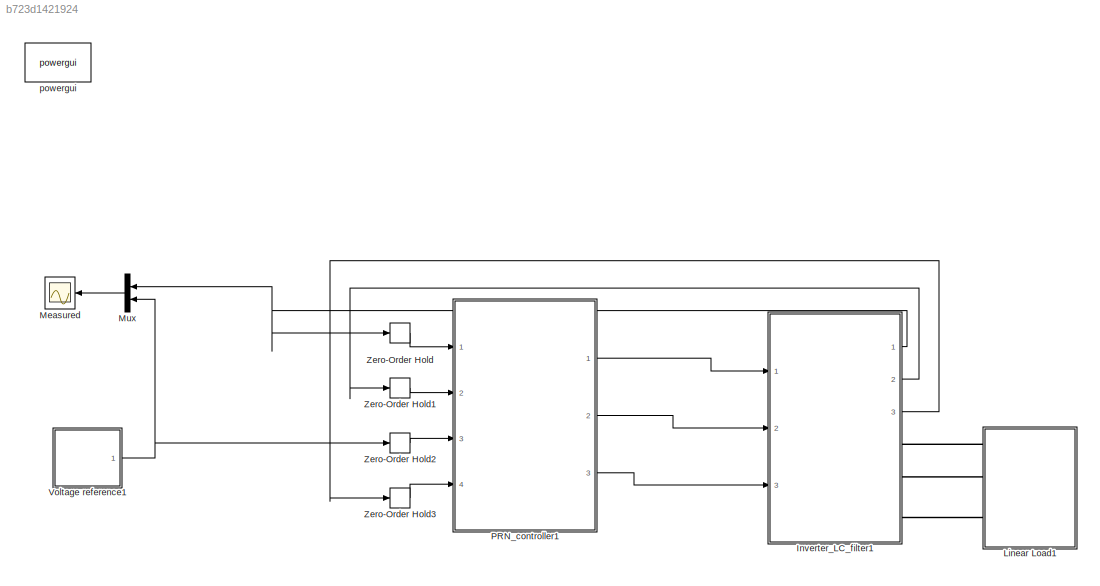
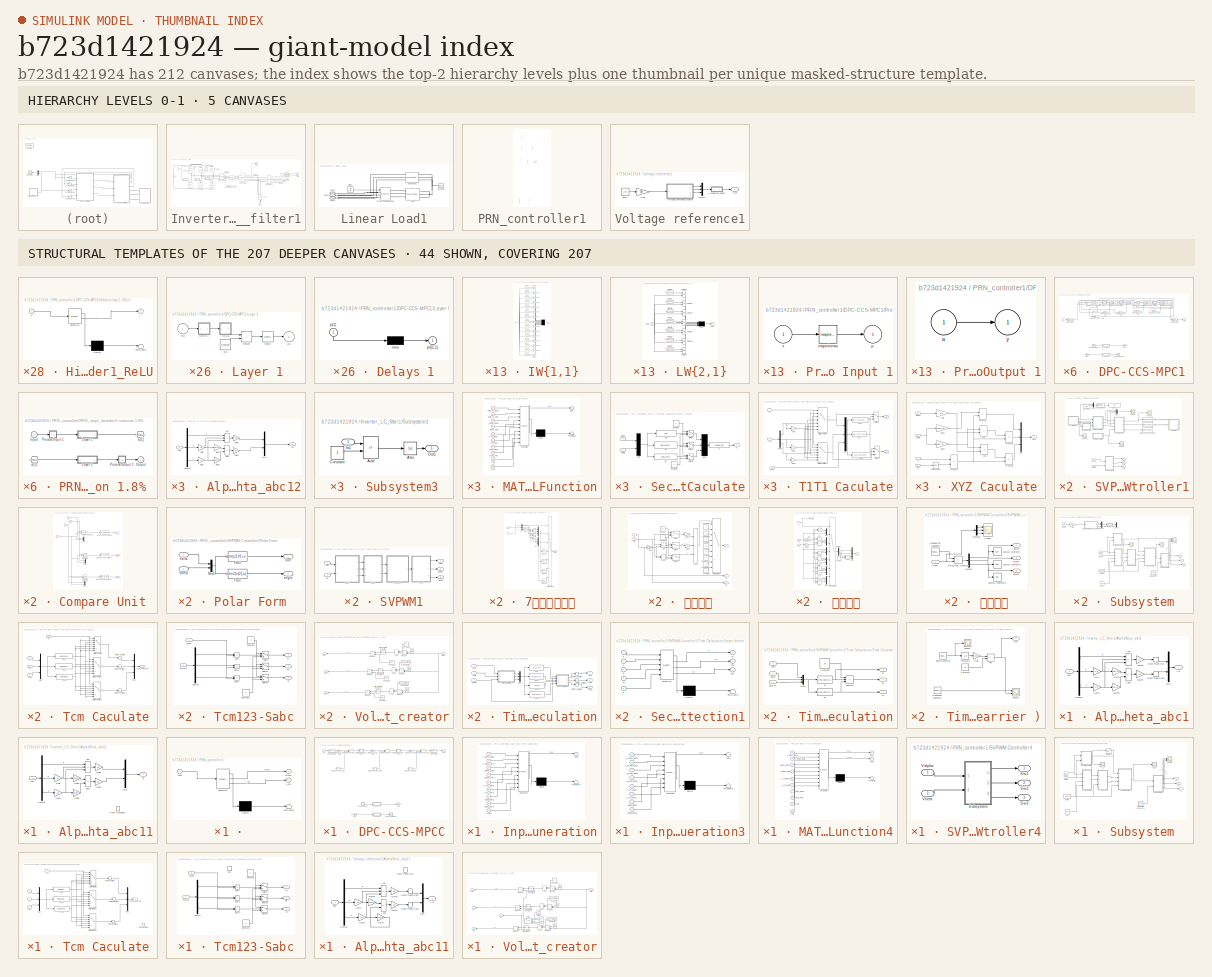
[diagram: thumbnail index - top-2 hierarchy levels (5 canvases) + 44 structural-template representatives of the remaining 207 canvases]
MODEL slx_b723d1421924
KIND model
CONFIG AbsTol = auto
CONFIG EnableMultiTasking = on
CONFIG FixedStep = 1e-7
CONFIG InitFcn = clc\n%initialization file\nRl=2;\nRload=20;\nL=5.02e-3;\n%C=100e-6;\nC=15e-6;\nerrorL= 0;\nerrorC= 0;\nwref=2*pi*50;\nVdc=200;\n%T=20e-6;original\nTs=1e-4;\nVref=50;\nVref1=50;\nTd=4e-6;\nTsa=1e-4; \n%Tsa=5e-5; \n%load('network_parameters.mat')\n%bias_fc1=[-0.094904266;-0.15736845;0.28805807;0.091102794;0.28289029;0.16507582;0.16580801;0.00051655335;0.18097930;0.16620283;-0.086860508;0.0097615607;0.18068320;0.022967...<+8068ch>
CONFIG MaxStep = auto
CONFIG MinStep = auto
CONFIG RelTol = 1e-3
CONFIG SampleTimeConstraint = Unconstrained
CONFIG SolverName = FixedStepDiscrete
CONFIG StartTime = 0.0
CONFIG StopTime = 1.1
BLOCK [SubSystem] Inverter_LC_filter1
  Ports = [3, 3, 0, 0, 0, 0, 3]
  RequestExecContextInheritance = off
BLOCK [SubSystem] Inverter_LC_filter1/AlphaBeta_abc1
  NameLocation = top
  Ports = [1, 1]
  RequestExecContextInheritance = off
BLOCK [Outport] Inverter_LC_filter1/AlphaBeta_abc1/AB
  VectorParamsAs1DForOutWhenUnconnected = off
BLOCK [Sum] Inverter_LC_filter1/AlphaBeta_abc1/Add
  IconShape = rectangular
  Inputs = +--
  Ports = [3, 1]
BLOCK [Sum] Inverter_LC_filter1/AlphaBeta_abc1/Add1
  IconShape = rectangular
  Inputs = +-
  Ports = [2, 1]
BLOCK [Demux] Inverter_LC_filter1/AlphaBeta_abc1/Demux
  Outputs = 3
  Ports = [1, 3]
BLOCK [Gain] Inverter_LC_filter1/AlphaBeta_abc1/Gain
  Gain = 1/2
BLOCK [Gain] Inverter_LC_filter1/AlphaBeta_abc1/Gain1
  Gain = 1/2
BLOCK [Gain] Inverter_LC_filter1/AlphaBeta_abc1/Gain2
  Gain = sqrt(3)
BLOCK [Gain] Inverter_LC_filter1/AlphaBeta_abc1/Gain3
  Gain = sqrt(3)
BLOCK [Gain] Inverter_LC_filter1/AlphaBeta_abc1/Gain4
  Gain = 2/3
BLOCK [Gain] Inverter_LC_filter1/AlphaBeta_abc1/Gain5
  Gain = 2/3
BLOCK [Mux] Inverter_LC_filter1/AlphaBeta_abc1/Mux
  DisplayOption = bar
  Inputs = 2
  Ports = [2, 1]
BLOCK [RateTransition] Inverter_LC_filter1/AlphaBeta_abc1/Rate Transition
  OutPortSampleTime = 1e-4
BLOCK [RateTransition] Inverter_LC_filter1/AlphaBeta_abc1/Rate Transition1
  OutPortSampleTime = 1e-4
BLOCK [Inport] Inverter_LC_filter1/AlphaBeta_abc1/abc
BLOCK [SubSystem] Inverter_LC_filter1/AlphaBeta_abc11
  NameLocation = top
  Ports = [1, 1]
  RequestExecContextInheritance = off
BLOCK [Outport] Inverter_LC_filter1/AlphaBeta_abc11/AB
  VectorParamsAs1DForOutWhenUnconnected = off
BLOCK [Sum] Inverter_LC_filter1/AlphaBeta_abc11/Add
  IconShape = rectangular
  Inputs = +--
  Ports = [3, 1]
BLOCK [Sum] Inverter_LC_filter1/AlphaBeta_abc11/Add1
  IconShape = rectangular
  Inputs = +-
  Ports = [2, 1]
BLOCK [Demux] Inverter_LC_filter1/AlphaBeta_abc11/Demux
  Outputs = 3
  Ports = [1, 3]
BLOCK [Gain] Inverter_LC_filter1/AlphaBeta_abc11/Gain
  Gain = 1/2
BLOCK [Gain] Inverter_LC_filter1/AlphaBeta_abc11/Gain1
  Gain = 1/2
BLOCK [Gain] Inverter_LC_filter1/AlphaBeta_abc11/Gain2
  Gain = sqrt(3)
BLOCK [Gain] Inverter_LC_filter1/AlphaBeta_abc11/Gain3
  Gain = sqrt(3)
BLOCK [Gain] Inverter_LC_filter1/AlphaBeta_abc11/Gain4
  Gain = 2/3
BLOCK [Gain] Inverter_LC_filter1/AlphaBeta_abc11/Gain5
  Gain = 2/3
BLOCK [Mux] Inverter_LC_filter1/AlphaBeta_abc11/Mux
  DisplayOption = bar
  Inputs = 2
  Ports = [2, 1]
BLOCK [RateTransition] Inverter_LC_filter1/AlphaBeta_abc11/Rate Transition2
  OutPortSampleTime = 1e-4
BLOCK [Inport] Inverter_LC_filter1/AlphaBeta_abc11/abc
BLOCK [SubSystem] Inverter_LC_filter1/AlphaBeta_abc12
  NameLocation = top
  Ports = [1, 1]
  RequestExecContextInheritance = off
BLOCK [Outport] Inverter_LC_filter1/AlphaBeta_abc12/AB
  VectorParamsAs1DForOutWhenUnconnected = off
BLOCK [Sum] Inverter_LC_filter1/AlphaBeta_abc12/Add
  IconShape = rectangular
  Inputs = +--
  Ports = [3, 1]
BLOCK [Sum] Inverter_LC_filter1/AlphaBeta_abc12/Add1
  IconShape = rectangular
  Inputs = +-
  Ports = [2, 1]
BLOCK [Demux] Inverter_LC_filter1/AlphaBeta_abc12/Demux
  Outputs = 3
  Ports = [1, 3]
BLOCK [Gain] Inverter_LC_filter1/AlphaBeta_abc12/Gain
  Gain = 1/2
BLOCK [Gain] Inverter_LC_filter1/AlphaBeta_abc12/Gain1
  Gain = 1/2
BLOCK [Gain] Inverter_LC_filter1/AlphaBeta_abc12/Gain2
  Gain = sqrt(3)
BLOCK [Gain] Inverter_LC_filter1/AlphaBeta_abc12/Gain3
  Gain = sqrt(3)
BLOCK [Gain] Inverter_LC_filter1/AlphaBeta_abc12/Gain4
  Gain = 2/3
BLOCK [Gain] Inverter_LC_filter1/AlphaBeta_abc12/Gain5
  Gain = 2/3
BLOCK [Mux] Inverter_LC_filter1/AlphaBeta_abc12/Mux
  DisplayOption = bar
  Inputs = 2
  Ports = [2, 1]
BLOCK [Inport] Inverter_LC_filter1/AlphaBeta_abc12/abc
BLOCK [PMIOPort] Inverter_LC_filter1/Conn1
  Side = Right
BLOCK [PMIOPort] Inverter_LC_filter1/Conn2
  Port = 2
  Side = Right
BLOCK [PMIOPort] Inverter_LC_filter1/Conn3
  Port = 3
  Side = Right
BLOCK [Reference] Inverter_LC_filter1/DC  REF=spsDCVoltageSourceLib/DC Voltage Source
  NameLocation = right
  Ports = [0, 0, 0, 0, 0, 1, 1]
  SourceBlock = spsDCVoltageSourceLib/DC Voltage Source
  SourceProductBaseCode = PS
  SourceType = DC Voltage Source
BLOCK [Reference] Inverter_LC_filter1/Ground  REF=spsGroundLib/Ground
  NameLocation = right
  Ports = [0, 0, 0, 0, 0, 1]
  SourceBlock = spsGroundLib/Ground
  SourceProductBaseCode = PS
  SourceType = Ground
BLOCK [Reference] Inverter_LC_filter1/IGBT//Diode  REF=spsIGBTDiodeLib/IGBT//Diode
  NameLocation = left
  Ports = [1, 0, 0, 0, 0, 1, 1]
  SourceBlock = spsIGBTDiodeLib/IGBT//Diode
  SourceProductBaseCode = PS
  SourceType = IGBT/Diode
BLOCK [Reference] Inverter_LC_filter1/IGBT//Diode1  REF=spsIGBTDiodeLib/IGBT//Diode
  NameLocation = left
  Ports = [1, 0, 0, 0, 0, 1, 1]
  SourceBlock = spsIGBTDiodeLib/IGBT//Diode
  SourceProductBaseCode = PS
  SourceType = IGBT/Diode
BLOCK [Reference] Inverter_LC_filter1/IGBT//Diode2  REF=spsIGBTDiodeLib/IGBT//Diode
  NameLocation = left
  Ports = [1, 0, 0, 0, 0, 1, 1]
  SourceBlock = spsIGBTDiodeLib/IGBT//Diode
  SourceProductBaseCode = PS
  SourceType = IGBT/Diode
BLOCK [Reference] Inverter_LC_filter1/IGBT//Diode3  REF=spsIGBTDiodeLib/IGBT//Diode
  NameLocation = left
  Ports = [1, 0, 0, 0, 0, 1, 1]
  SourceBlock = spsIGBTDiodeLib/IGBT//Diode
  SourceProductBaseCode = PS
  SourceType = IGBT/Diode
BLOCK [Reference] Inverter_LC_filter1/IGBT//Diode4  REF=spsIGBTDiodeLib/IGBT//Diode
  NameLocation = left
  Ports = [1, 0, 0, 0, 0, 1, 1]
  SourceBlock = spsIGBTDiodeLib/IGBT//Diode
  SourceProductBaseCode = PS
  SourceType = IGBT/Diode
BLOCK [Reference] Inverter_LC_filter1/IGBT//Diode5  REF=spsIGBTDiodeLib/IGBT//Diode
  NameLocation = left
  Ports = [1, 0, 0, 0, 0, 1, 1]
  SourceBlock = spsIGBTDiodeLib/IGBT//Diode
  SourceProductBaseCode = PS
  SourceType = IGBT/Diode
BLOCK [Inport] Inverter_LC_filter1/S1
  NameLocation = top
BLOCK [Inport] Inverter_LC_filter1/S2
  NameLocation = top
  Port = 2
BLOCK [Inport] Inverter_LC_filter1/S3
  NameLocation = top
  Port = 3
BLOCK [SubSystem] Inverter_LC_filter1/Subsystem3
  Ports = [1, 1]
  RequestExecContextInheritance = off
BLOCK [Abs] Inverter_LC_filter1/Subsystem3/Abs
  SaturateOnIntegerOverflow = off
BLOCK [Sum] Inverter_LC_filter1/Subsystem3/Add
  IconShape = rectangular
  Inputs = +-
  Ports = [2, 1]
BLOCK [Constant] Inverter_LC_filter1/Subsystem3/Constant
BLOCK [Inport] Inverter_LC_filter1/Subsystem3/In1
BLOCK [Outport] Inverter_LC_filter1/Subsystem3/Out1
  VectorParamsAs1DForOutWhenUnconnected = off
BLOCK [SubSystem] Inverter_LC_filter1/Subsystem4
  Ports = [1, 1]
  RequestExecContextInheritance = off
BLOCK [Abs] Inverter_LC_filter1/Subsystem4/Abs
  SaturateOnIntegerOverflow = off
BLOCK [Sum] Inverter_LC_filter1/Subsystem4/Add
  IconShape = rectangular
  Inputs = +-
  Ports = [2, 1]
BLOCK [Constant] Inverter_LC_filter1/Subsystem4/Constant
BLOCK [Inport] Inverter_LC_filter1/Subsystem4/In1
BLOCK [Outport] Inverter_LC_filter1/Subsystem4/Out1
  VectorParamsAs1DForOutWhenUnconnected = off
BLOCK [SubSystem] Inverter_LC_filter1/Subsystem5
  Ports = [1, 1]
  RequestExecContextInheritance = off
BLOCK [Abs] Inverter_LC_filter1/Subsystem5/Abs
  SaturateOnIntegerOverflow = off
BLOCK [Sum] Inverter_LC_filter1/Subsystem5/Add
  IconShape = rectangular
  Inputs = +-
  Ports = [2, 1]
BLOCK [Constant] Inverter_LC_filter1/Subsystem5/Constant
BLOCK [Inport] Inverter_LC_filter1/Subsystem5/In1
BLOCK [Outport] Inverter_LC_filter1/Subsystem5/Out1
  VectorParamsAs1DForOutWhenUnconnected = off
BLOCK [Terminator] Inverter_LC_filter1/Terminator6
BLOCK [Terminator] Inverter_LC_filter1/Terminator8
BLOCK [Reference] Inverter_LC_filter1/Three-Phase V-I Measurement1  REF=spsThreePhaseVIMeasurementLib/Three-Phase
V-I Measurement
  Ports = [0, 2, 0, 0, 0, 3, 3]
  SourceBlock = spsThreePhaseVIMeasurementLib/Three-Phase\nV-I Measurement
  SourceProductBaseCode = PS
  SourceType = Three-Phase VI Measurement
BLOCK [Reference] Inverter_LC_filter1/Three-Phase V-I Measurement2  REF=spsThreePhaseVIMeasurementLib/Three-Phase
V-I Measurement
  Ports = [0, 2, 0, 0, 0, 3, 3]
  SourceBlock = spsThreePhaseVIMeasurementLib/Three-Phase\nV-I Measurement
  SourceProductBaseCode = PS
  SourceType = Three-Phase VI Measurement
BLOCK [Reference] Inverter_LC_filter1/Three-Phase V-I Measurement3  REF=spsThreePhaseVIMeasurementLib/Three-Phase
V-I Measurement
  Ports = [0, 2, 0, 0, 0, 3, 3]
  SourceBlock = spsThreePhaseVIMeasurementLib/Three-Phase\nV-I Measurement
  SourceProductBaseCode = PS
  SourceType = Three-Phase VI Measurement
BLOCK [Scope] Inverter_LC_filter1/Vabc
  Floating = off
  NumInputPorts = 1
  Ports = [1]
  ScopeSpecificationString = Simulink.scopes.TimeScopeBlockCfg('CurrentConfiguration', extmgr.ConfigurationSet(extmgr.Configuration('Core','General UI',true),extmgr.Configuration('Core','Source UI',true),extmgr.Configuration('Sources','WiredSimulink',true,'DataLoggingVariableName','v_phase','DataLogging',true,'DataLoggingSaveFormat','Array'),extmgr.Configuration('Visuals','Time Domain',true,'SerializedDisplays',{struct('MinYL...<+1602ch>
BLOCK [Reference] Inverter_LC_filter1/capacitor  REF=spsThreePhaseSeriesRLCBranchLib/Three-Phase
Series RLC Branch
  AttributesFormatString = \n
  NameLocation = left
  Ports = [0, 0, 0, 0, 0, 3, 3]
  SourceBlock = spsThreePhaseSeriesRLCBranchLib/Three-Phase\nSeries RLC Branch
  SourceProductBaseCode = PS
  SourceType = Three-Phase Series RLC Branch
BLOCK [Outport] Inverter_LC_filter1/i_L
  Port = 2
  VectorParamsAs1DForOutWhenUnconnected = off
BLOCK [Outport] Inverter_LC_filter1/i_load
  Port = 3
  VectorParamsAs1DForOutWhenUnconnected = off
BLOCK [Reference] Inverter_LC_filter1/inductor  REF=spsThreePhaseSeriesRLCBranchLib/Three-Phase
Series RLC Branch
  AttributesFormatString = \n
  Ports = [0, 0, 0, 0, 0, 3, 3]
  SourceBlock = spsThreePhaseSeriesRLCBranchLib/Three-Phase\nSeries RLC Branch
  SourceProductBaseCode = PS
  SourceType = Three-Phase Series RLC Branch
BLOCK [Outport] Inverter_LC_filter1/v_out
  VectorParamsAs1DForOutWhenUnconnected = off
BLOCK [SubSystem] Linear Load1
  Ports = [0, 0, 0, 0, 0, 3]
  RequestExecContextInheritance = off
BLOCK [PMIOPort] Linear Load1/Conn1
  Side = Left
BLOCK [PMIOPort] Linear Load1/Conn2
  Port = 2
  Side = Left
BLOCK [PMIOPort] Linear Load1/Conn3
  Port = 3
  Side = Left
BLOCK [Reference] Linear Load1/Ground3  REF=spsGroundLib/Ground
  NameLocation = top
  Ports = [0, 0, 0, 0, 0, 1]
  SourceBlock = spsGroundLib/Ground
  SourceProductBaseCode = PS
  SourceType = Ground
BLOCK [Reference] Linear Load1/Linear load3  REF=spsThreePhaseSeriesRLCBranchLib/Three-Phase
Series RLC Branch
  AttributesFormatString = \n
  Ports = [0, 0, 0, 0, 0, 3, 3]
  SourceBlock = spsThreePhaseSeriesRLCBranchLib/Three-Phase\nSeries RLC Branch
  SourceProductBaseCode = PS
  SourceType = Three-Phase Series RLC Branch
BLOCK [Reference] Linear Load1/Load  REF=spsThreePhaseSeriesRLCBranchLib/Three-Phase
Series RLC Branch
  AttributesFormatString = \n
  Ports = [0, 0, 0, 0, 0, 3, 3]
  SourceBlock = spsThreePhaseSeriesRLCBranchLib/Three-Phase\nSeries RLC Branch
  SourceProductBaseCode = PS
  SourceType = Three-Phase Series RLC Branch
BLOCK [Step] Linear Load1/Step3
  SampleTime = 0
  Time = 0.6
BLOCK [Reference] Linear Load1/Three-Phase Breaker  REF=spsThreePhaseBreakerLib/Three-Phase Breaker
  Ports = [1, 0, 0, 0, 0, 3, 3]
  SourceBlock = spsThreePhaseBreakerLib/Three-Phase Breaker
  SourceProductBaseCode = PS
  SourceType = Three-Phase Breaker
BLOCK [Scope] Measured 
  Floating = off
  NameLocation = top
  NumInputPorts = 1
  Ports = [1]
  ScopeSpecificationString = Simulink.scopes.TimeScopeBlockCfg('CurrentConfiguration', extmgr.ConfigurationSet(extmgr.Configuration('Core','General UI',true,'FigureColor',[0 0 0]),extmgr.Configuration('Core','Source UI',true),extmgr.Configuration('Sources','WiredSimulink',true,'DataLoggingVariableName','ScopeData2','DataLogging',true,'DataLoggingMaxPoints','50000'),extmgr.Configuration('Visuals','Time Domain',true,'Serialized...<+1600ch>
BLOCK [Mux] Mux
  DisplayOption = bar
  Inputs = 2
  NameLocation = top
  Ports = [2, 1]
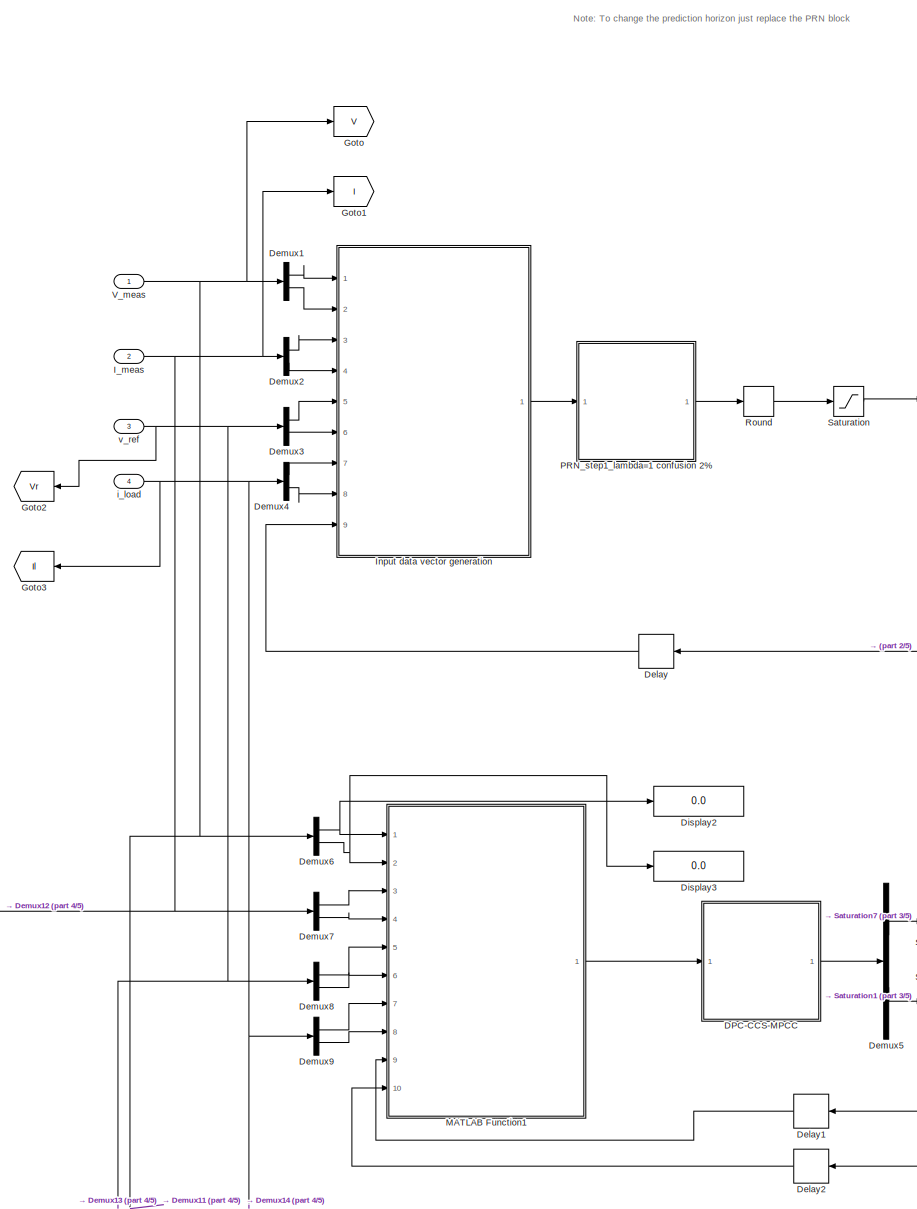
[diagram: PRN_controller1 - part 1/5, top left region]
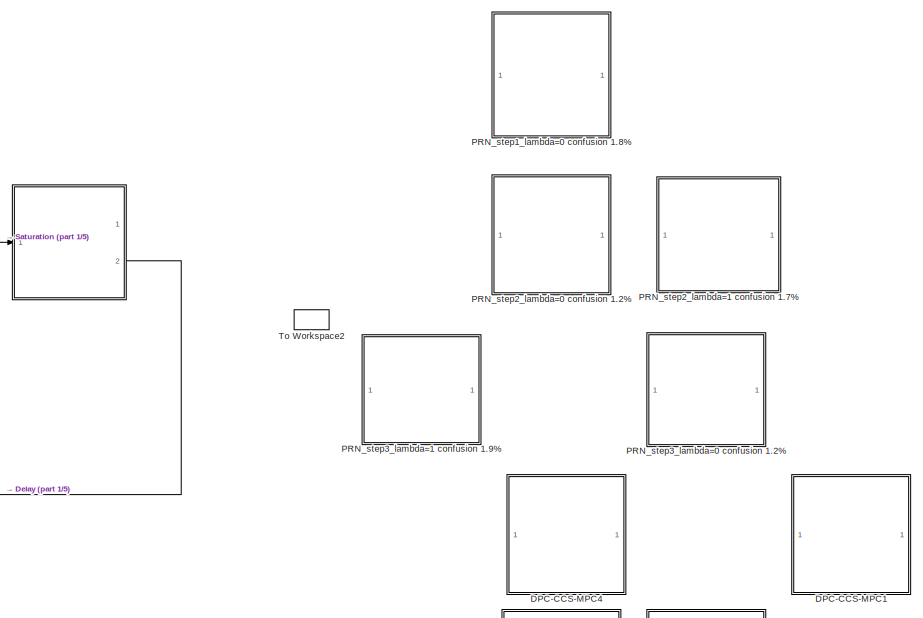
[diagram: PRN_controller1 - part 2/5, top right region]
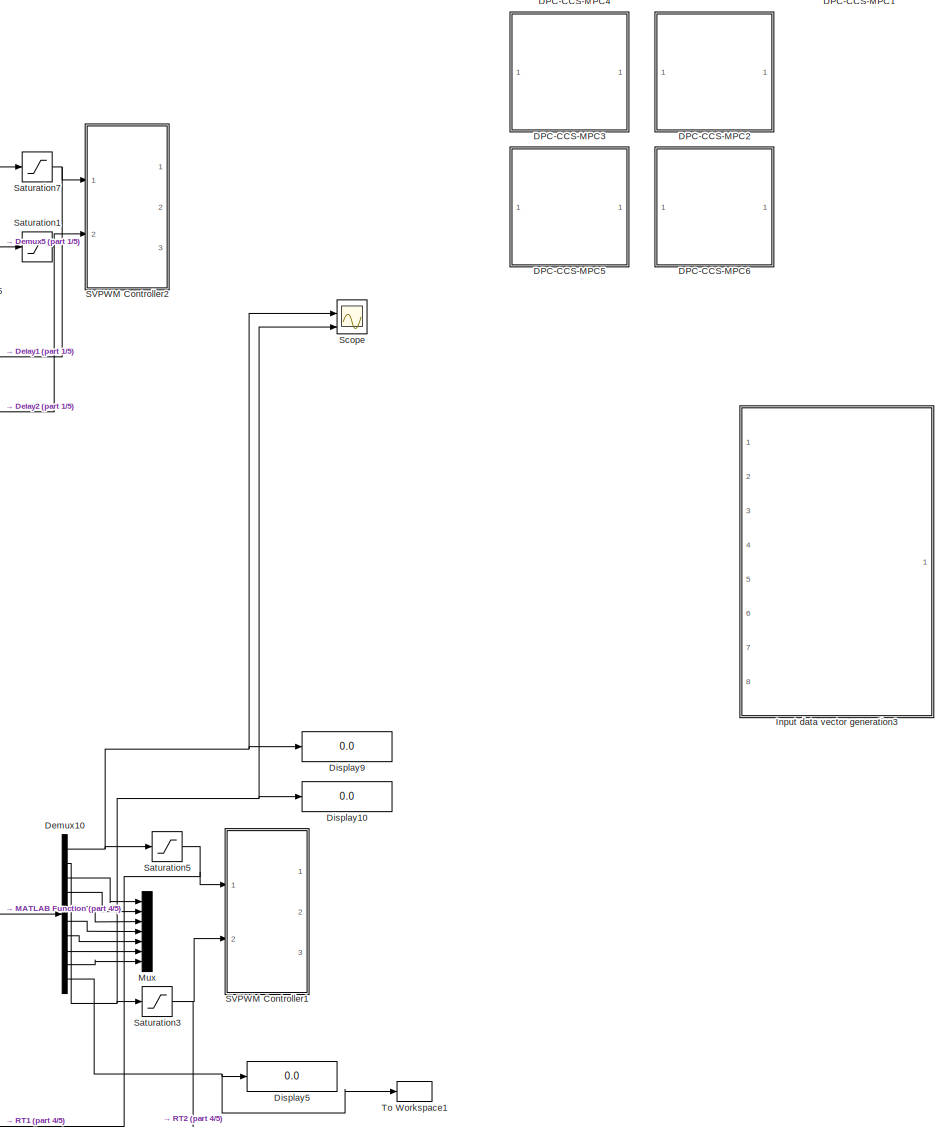
[diagram: PRN_controller1 - part 3/5, top right region]
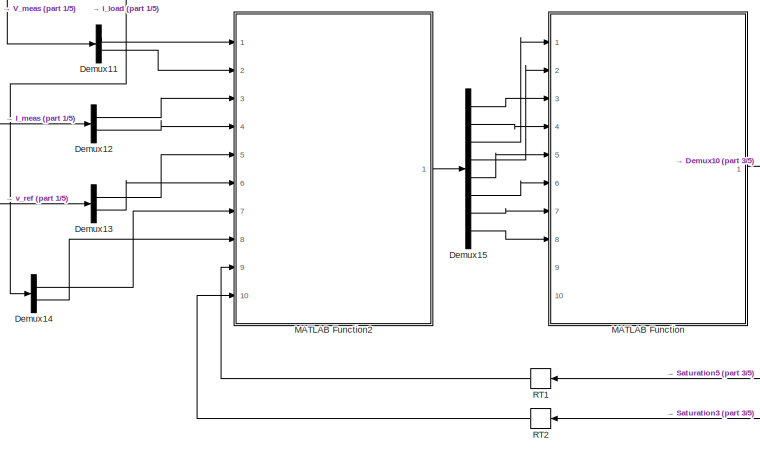
[diagram: PRN_controller1 - part 4/5, middle left region]
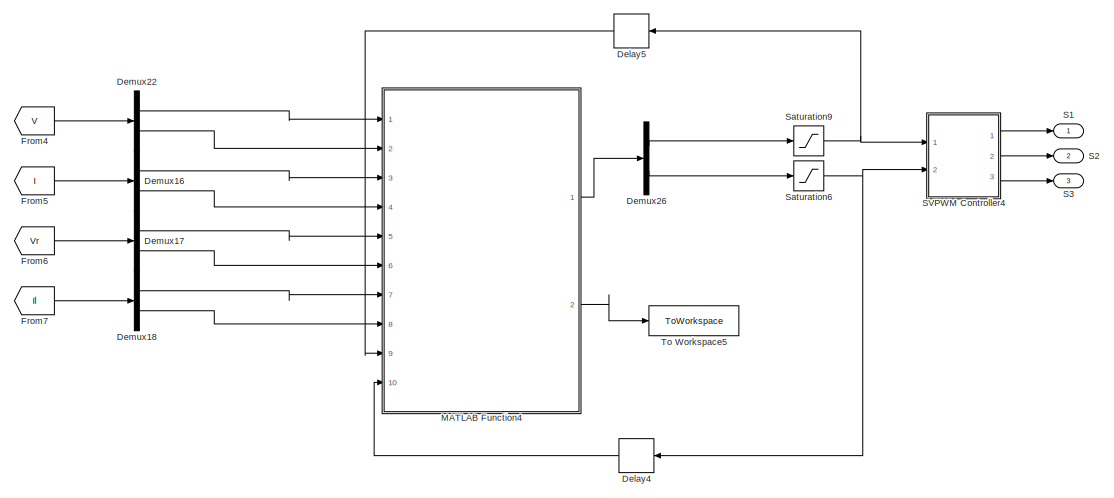
[diagram: PRN_controller1 - part 5/5, bottom center region]
BLOCK [SubSystem] PRN_controller1
  Ports = [4, 3]
  RequestExecContextInheritance = off
  SystemSampleTime = Ts
BLOCK [SubSystem] PRN_controller1/ 
  Commented = on
  ErrorFcn = Stateflow.Translate.translate
  PermitHierarchicalResolution = ExplicitOnly
  Ports = [1, 2]
  RequestExecContextInheritance = off
  SFBlockType = MATLAB Function
BLOCK [Demux] PRN_controller1/ / Demux 
  Outputs = 1
  Ports = [1, 1]
BLOCK [S-Function] PRN_controller1/ / SFunction 
  EnableBusSupport = on
  FunctionName = sf_sfun
  PortCounts = [1 3]
  Ports = [1, 3]
  SFcnIsStateOwnerBlock = off
  SFunctionDeploymentMode = off
  Tag = Stateflow S-Function 11
BLOCK [Terminator] PRN_controller1/ / Terminator 
BLOCK [Inport] PRN_controller1/ /input
BLOCK [Outport] PRN_controller1/ /states
  VectorParamsAs1DForOutWhenUnconnected = off
BLOCK [Outport] PRN_controller1/ /x_old
  Port = 2
  VectorParamsAs1DForOutWhenUnconnected = off
BLOCK [SubSystem] PRN_controller1/DPC-CCS-MPC1
  Commented = on
  Ports = [1, 1]
  RequestExecContextInheritance = off
BLOCK [From] PRN_controller1/DPC-CCS-MPC1/ a{1} 
  Commented = on
  GotoTag = feedback1
BLOCK [DataTypeConversion] PRN_controller1/DPC-CCS-MPC1/Data Type Conversion
  OutDataTypeStr = double
  RndMeth = Floor
  SaturateOnIntegerOverflow = off
BLOCK [DataTypeConversion] PRN_controller1/DPC-CCS-MPC1/Data Type Conversion1
  OutDataTypeStr = single
  RndMeth = Floor
  SaturateOnIntegerOverflow = off
BLOCK [Constant] PRN_controller1/DPC-CCS-MPC1/HiddenLayer1_Bias
  Value = HiddenLayer1_bias
BLOCK [Gain] PRN_controller1/DPC-CCS-MPC1/HiddenLayer1_Gain
  Gain = HiddenLayer1_weight
  Multiplication = Matrix(u*K)
BLOCK [SubSystem] PRN_controller1/DPC-CCS-MPC1/HiddenLayer1_ReLU
  ErrorFcn = Stateflow.Translate.translate
  PermitHierarchicalResolution = ExplicitOnly
  Ports = [1, 1]
  RequestExecContextInheritance = off
  SFBlockType = MATLAB Function
  TreatAsAtomicUnit = on
BLOCK [Demux] PRN_controller1/DPC-CCS-MPC1/HiddenLayer1_ReLU/ Demux 
  Outputs = 1
  Ports = [1, 1]
BLOCK [S-Function] PRN_controller1/DPC-CCS-MPC1/HiddenLayer1_ReLU/ SFunction 
  EnableBusSupport = on
  FunctionName = sf_sfun
  PortCounts = [1 2]
  Ports = [1, 2]
  SFcnIsStateOwnerBlock = off
  SFunctionDeploymentMode = off
  Tag = Stateflow S-Function 14
BLOCK [Terminator] PRN_controller1/DPC-CCS-MPC1/HiddenLayer1_ReLU/ Terminator 
BLOCK [Inport] PRN_controller1/DPC-CCS-MPC1/HiddenLayer1_ReLU/u
BLOCK [Outport] PRN_controller1/DPC-CCS-MPC1/HiddenLayer1_ReLU/y
BLOCK [Sum] PRN_controller1/DPC-CCS-MPC1/HiddenLayer1_Sum
  IconShape = rectangular
  Inputs = |++
  Ports = [2, 1]
BLOCK [Constant] PRN_controller1/DPC-CCS-MPC1/HiddenLayer2_Bias
  Value = HiddenLayer2_bias
BLOCK [Gain] PRN_controller1/DPC-CCS-MPC1/HiddenLayer2_Gain
  Gain = HiddenLayer2_weight
  Multiplication = Matrix(u*K)
BLOCK [SubSystem] PRN_controller1/DPC-CCS-MPC1/HiddenLayer2_ReLU
  ErrorFcn = Stateflow.Translate.translate
  PermitHierarchicalResolution = ExplicitOnly
  Ports = [1, 1]
  RequestExecContextInheritance = off
  SFBlockType = MATLAB Function
  TreatAsAtomicUnit = on
BLOCK [Demux] PRN_controller1/DPC-CCS-MPC1/HiddenLayer2_ReLU/ Demux 
  Outputs = 1
  Ports = [1, 1]
BLOCK [S-Function] PRN_controller1/DPC-CCS-MPC1/HiddenLayer2_ReLU/ SFunction 
  EnableBusSupport = on
  FunctionName = sf_sfun
  PortCounts = [1 2]
  Ports = [1, 2]
  SFcnIsStateOwnerBlock = off
  SFunctionDeploymentMode = off
  Tag = Stateflow S-Function 19
BLOCK [Terminator] PRN_controller1/DPC-CCS-MPC1/HiddenLayer2_ReLU/ Terminator 
BLOCK [Inport] PRN_controller1/DPC-CCS-MPC1/HiddenLayer2_ReLU/u
BLOCK [Outport] PRN_controller1/DPC-CCS-MPC1/HiddenLayer2_ReLU/y
BLOCK [Sum] PRN_controller1/DPC-CCS-MPC1/HiddenLayer2_Sum
  IconShape = rectangular
  Inputs = |++
  Ports = [2, 1]
BLOCK [Constant] PRN_controller1/DPC-CCS-MPC1/HiddenLayer3_Bias
  Value = HiddenLayer3_bias
BLOCK [Gain] PRN_controller1/DPC-CCS-MPC1/HiddenLayer3_Gain
  Gain = HiddenLayer3_weight
  Multiplication = Matrix(u*K)
BLOCK [SubSystem] PRN_controller1/DPC-CCS-MPC1/HiddenLayer3_ReLU
  ErrorFcn = Stateflow.Translate.translate
  PermitHierarchicalResolution = ExplicitOnly
  Ports = [1, 1]
  RequestExecContextInheritance = off
  SFBlockType = MATLAB Function
  TreatAsAtomicUnit = on
BLOCK [Demux] PRN_controller1/DPC-CCS-MPC1/HiddenLayer3_ReLU/ Demux 
  Outputs = 1
  Ports = [1, 1]
BLOCK [S-Function] PRN_controller1/DPC-CCS-MPC1/HiddenLayer3_ReLU/ SFunction 
  EnableBusSupport = on
  FunctionName = sf_sfun
  PortCounts = [1 2]
  Ports = [1, 2]
  SFcnIsStateOwnerBlock = off
  SFunctionDeploymentMode = off
  Tag = Stateflow S-Function 20
BLOCK [Terminator] PRN_controller1/DPC-CCS-MPC1/HiddenLayer3_ReLU/ Terminator 
BLOCK [Inport] PRN_controller1/DPC-CCS-MPC1/HiddenLayer3_ReLU/u
BLOCK [Outport] PRN_controller1/DPC-CCS-MPC1/HiddenLayer3_ReLU/y
BLOCK [Sum] PRN_controller1/DPC-CCS-MPC1/HiddenLayer3_Sum
  IconShape = rectangular
  Inputs = |++
  Ports = [2, 1]
BLOCK [Constant] PRN_controller1/DPC-CCS-MPC1/HiddenLayer4_Bias
  Value = HiddenLayer4_bias
BLOCK [Gain] PRN_controller1/DPC-CCS-MPC1/HiddenLayer4_Gain
  Gain = HiddenLayer4_weight
  Multiplication = Matrix(u*K)
BLOCK [SubSystem] PRN_controller1/DPC-CCS-MPC1/HiddenLayer4_ReLU
  ErrorFcn = Stateflow.Translate.translate
  PermitHierarchicalResolution = ExplicitOnly
  Ports = [1, 1]
  RequestExecContextInheritance = off
  SFBlockType = MATLAB Function
  TreatAsAtomicUnit = on
BLOCK [Demux] PRN_controller1/DPC-CCS-MPC1/HiddenLayer4_ReLU/ Demux 
  Outputs = 1
  Ports = [1, 1]
BLOCK [S-Function] PRN_controller1/DPC-CCS-MPC1/HiddenLayer4_ReLU/ SFunction 
  EnableBusSupport = on
  FunctionName = sf_sfun
  PortCounts = [1 2]
  Ports = [1, 2]
  SFcnIsStateOwnerBlock = off
  SFunctionDeploymentMode = off
  Tag = Stateflow S-Function 21
BLOCK [Terminator] PRN_controller1/DPC-CCS-MPC1/HiddenLayer4_ReLU/ Terminator 
BLOCK [Inport] PRN_controller1/DPC-CCS-MPC1/HiddenLayer4_ReLU/u
BLOCK [Outport] PRN_controller1/DPC-CCS-MPC1/HiddenLayer4_ReLU/y
BLOCK [Sum] PRN_controller1/DPC-CCS-MPC1/HiddenLayer4_Sum
  IconShape = rectangular
  Inputs = |++
  Ports = [2, 1]
BLOCK [Inport] PRN_controller1/DPC-CCS-MPC1/In1
BLOCK [SubSystem] PRN_controller1/DPC-CCS-MPC1/Layer 1
  Commented = on
  Ports = [1, 1]
  RequestExecContextInheritance = off
BLOCK [SubSystem] PRN_controller1/DPC-CCS-MPC1/Layer 1/Delays 1
  Ports = [1, 1]
  RequestExecContextInheritance = off
BLOCK [Mux] PRN_controller1/DPC-CCS-MPC1/Layer 1/Delays 1/mux
  Inputs = 1
  Ports = [1, 1]
BLOCK [Outport] PRN_controller1/DPC-CCS-MPC1/Layer 1/Delays 1/pd{1,1}
BLOCK [Inport] PRN_controller1/DPC-CCS-MPC1/Layer 1/Delays 1/p{1}
  NameLocation = left
  PortDimensions = 8
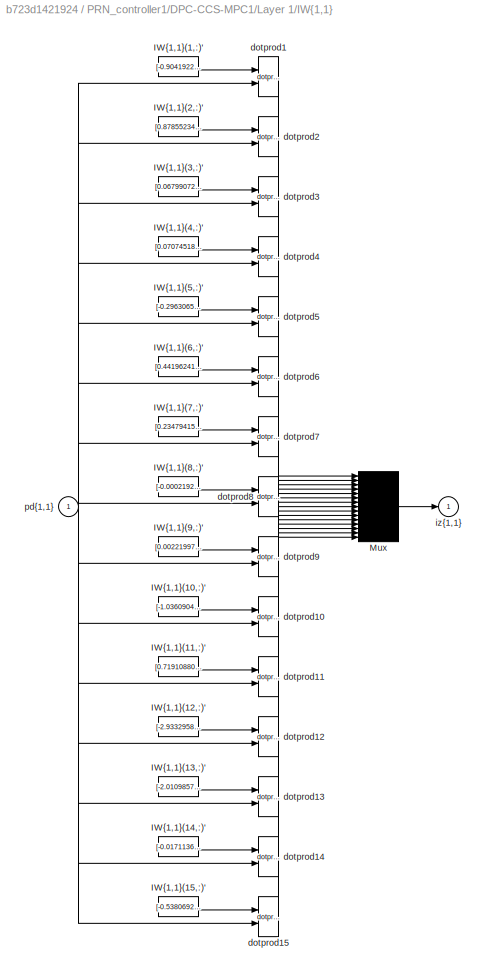
BLOCK [SubSystem] PRN_controller1/DPC-CCS-MPC1/Layer 1/IW{1,1}
  Ports = [1, 1]
  RequestExecContextInheritance = off
BLOCK [Constant] PRN_controller1/DPC-CCS-MPC1/Layer 1/IW{1,1}/IW{1,1}(1,:)'
  Value = [-0.90419223707738372;-1.4343037631304167;0.84670863425173315;1.4592594100869951;0.10268997952413135;0.17192939610111693;-1.0947662886639049;-0.12892153439045179]
BLOCK [Constant] PRN_controller1/DPC-CCS-MPC1/Layer 1/IW{1,1}/IW{1,1}(10,:)'
  Value = [-1.0360904262833039;2.1269985950999963;1.0591578961575476;-1.8911947265654252;0.12222899356362021;-0.21454603214434087;1.0321689851653084;0.31705622949421042]
BLOCK [Constant] PRN_controller1/DPC-CCS-MPC1/Layer 1/IW{1,1}/IW{1,1}(11,:)'
  Value = [0.71910880089139229;-1.4954489577087631;-0.80577748632820378;1.3939860441659877;-0.094092007111237413;0.16232074219822765;-0.67261882429532494;0.098054372095114375]
BLOCK [Constant] PRN_controller1/DPC-CCS-MPC1/Layer 1/IW{1,1}/IW{1,1}(12,:)'
  Value = [-2.9332958169061718;0.24950066397585177;2.998994545044456;-0.027275261070770978;0.35933041538573646;-0.0012229000735380414;-0.56599808390398554;0.43507989165284272]
BLOCK [Constant] PRN_controller1/DPC-CCS-MPC1/Layer 1/IW{1,1}/IW{1,1}(13,:)'
  Value = [-2.0109857765623449;0.14703327323102056;1.9958868524356759;-0.010923897197350161;0.23355269112365887;-0.0017149046451916678;-0.4490699018195074;-0.1781015680062589]
BLOCK [Constant] PRN_controller1/DPC-CCS-MPC1/Layer 1/IW{1,1}/IW{1,1}(14,:)'
  Value = [-0.017113693211218018;-0.0047085532227480291;-0.012529267451761104;-0.0068990515421236513;0.0035053330091433447;-0.0017313021757524676;-10.112146048496369;-0.013928657086986056]
BLOCK [Constant] PRN_controller1/DPC-CCS-MPC1/Layer 1/IW{1,1}/IW{1,1}(15,:)'
  Value = [-0.53806921014410247;-0.92807915084975956;-0.75044570642532882;-0.74895352398937232;-0.13991626411514652;-0.11248354825213135;0.85478986648675137;-1.8375580777055129]
BLOCK [Constant] PRN_controller1/DPC-CCS-MPC1/Layer 1/IW{1,1}/IW{1,1}(2,:)'
  Value = [0.87855234579565511;1.4156624208614954;-0.80585990811740982;-1.4151503140528334;-0.096372498748147309;-0.16688634524379917;0.99960665147311112;-0.11712796120433754]
BLOCK [Constant] PRN_controller1/DPC-CCS-MPC1/Layer 1/IW{1,1}/IW{1,1}(3,:)'
  Value = [0.06799072543815686;0.17958946053952948;0.31087307044721013;0.50252571367343735;0.045283769407576502;0.080128130907266559;-0.25390057872751204;-0.72277550069080299]
BLOCK [Constant] PRN_controller1/DPC-CCS-MPC1/Layer 1/IW{1,1}/IW{1,1}(4,:)'
  Value = [0.070745188214225541;0.17961654516752218;0.60128249255245525;-0.84170941538096888;0.093952637532634359;-0.12359159785980574;0.3724369748825031;-0.67858219961746657]
BLOCK [Constant] PRN_controller1/DPC-CCS-MPC1/Layer 1/IW{1,1}/IW{1,1}(5,:)'
  Value = [-0.29630657986202363;0.19484317749671162;-0.48043924181345066;0.299590158569079;-0.075136768624160799;0.052281131266941644;-0.0550846972763534;-0.76997692460640044]
BLOCK [Constant] PRN_controller1/DPC-CCS-MPC1/Layer 1/IW{1,1}/IW{1,1}(6,:)'
  Value = [0.44196241811918469;-0.032055135187935603;-1.3142813844823593;0.11812388937772607;-0.17666452052034404;0.015896200837484057;0.17991657098907859;0.72904793549696945]
BLOCK [Constant] PRN_controller1/DPC-CCS-MPC1/Layer 1/IW{1,1}/IW{1,1}(7,:)'
  Value = [0.23479415919674354;0.31344263777582626;0.42059781507203292;0.37261119887377192;0.068073638845391873;0.061223043653048752;-0.32212857524313759;0.9672163573155601]
BLOCK [Constant] PRN_controller1/DPC-CCS-MPC1/Layer 1/IW{1,1}/IW{1,1}(8,:)'
  Value = [-0.00021924491660631359;0.015822682170862044;0.017853096757953411;-0.011932349049892016;0.0018407891691169069;-0.0030015758960702079;-10.860295797725927;0.016305231706749579]
BLOCK [Constant] PRN_controller1/DPC-CCS-MPC1/Layer 1/IW{1,1}/IW{1,1}(9,:)'
  Value = [0.0022199776122051296;0.02219272022769107;0.025672095869670113;0.010437498871763441;0.0071582324771227307;0.0023984309328512268;10.560252784389819;0.0014753577805076974]
BLOCK [Mux] PRN_controller1/DPC-CCS-MPC1/Layer 1/IW{1,1}/Mux
  Inputs = 15
  Ports = [15, 1]
BLOCK [Reference] PRN_controller1/DPC-CCS-MPC1/Layer 1/IW{1,1}/dotprod1  REF=neural/Weight Functions/dotprod
  Ports = [2, 1]
  SourceBlock = neural/Weight Functions/dotprod
  SourceProductBaseCode = NN
  SourceType = DOTPROD
BLOCK [Reference] PRN_controller1/DPC-CCS-MPC1/Layer 1/IW{1,1}/dotprod10  REF=neural/Weight Functions/dotprod
  Ports = [2, 1]
  SourceBlock = neural/Weight Functions/dotprod
  SourceProductBaseCode = NN
  SourceType = DOTPROD
BLOCK [Reference] PRN_controller1/DPC-CCS-MPC1/Layer 1/IW{1,1}/dotprod11  REF=neural/Weight Functions/dotprod
  Ports = [2, 1]
  SourceBlock = neural/Weight Functions/dotprod
  SourceProductBaseCode = NN
  SourceType = DOTPROD
BLOCK [Reference] PRN_controller1/DPC-CCS-MPC1/Layer 1/IW{1,1}/dotprod12  REF=neural/Weight Functions/dotprod
  Ports = [2, 1]
  SourceBlock = neural/Weight Functions/dotprod
  SourceProductBaseCode = NN
  SourceType = DOTPROD
BLOCK [Reference] PRN_controller1/DPC-CCS-MPC1/Layer 1/IW{1,1}/dotprod13  REF=neural/Weight Functions/dotprod
  Ports = [2, 1]
  SourceBlock = neural/Weight Functions/dotprod
  SourceProductBaseCode = NN
  SourceType = DOTPROD
BLOCK [Reference] PRN_controller1/DPC-CCS-MPC1/Layer 1/IW{1,1}/dotprod14  REF=neural/Weight Functions/dotprod
  Ports = [2, 1]
  SourceBlock = neural/Weight Functions/dotprod
  SourceProductBaseCode = NN
  SourceType = DOTPROD
BLOCK [Reference] PRN_controller1/DPC-CCS-MPC1/Layer 1/IW{1,1}/dotprod15  REF=neural/Weight Functions/dotprod
  Ports = [2, 1]
  SourceBlock = neural/Weight Functions/dotprod
  SourceProductBaseCode = NN
  SourceType = DOTPROD
BLOCK [Reference] PRN_controller1/DPC-CCS-MPC1/Layer 1/IW{1,1}/dotprod2  REF=neural/Weight Functions/dotprod
  Ports = [2, 1]
  SourceBlock = neural/Weight Functions/dotprod
  SourceProductBaseCode = NN
  SourceType = DOTPROD
BLOCK [Reference] PRN_controller1/DPC-CCS-MPC1/Layer 1/IW{1,1}/dotprod3  REF=neural/Weight Functions/dotprod
  Ports = [2, 1]
  SourceBlock = neural/Weight Functions/dotprod
  SourceProductBaseCode = NN
  SourceType = DOTPROD
BLOCK [Reference] PRN_controller1/DPC-CCS-MPC1/Layer 1/IW{1,1}/dotprod4  REF=neural/Weight Functions/dotprod
  Ports = [2, 1]
  SourceBlock = neural/Weight Functions/dotprod
  SourceProductBaseCode = NN
  SourceType = DOTPROD
BLOCK [Reference] PRN_controller1/DPC-CCS-MPC1/Layer 1/IW{1,1}/dotprod5  REF=neural/Weight Functions/dotprod
  Ports = [2, 1]
  SourceBlock = neural/Weight Functions/dotprod
  SourceProductBaseCode = NN
  SourceType = DOTPROD
BLOCK [Reference] PRN_controller1/DPC-CCS-MPC1/Layer 1/IW{1,1}/dotprod6  REF=neural/Weight Functions/dotprod
  Ports = [2, 1]
  SourceBlock = neural/Weight Functions/dotprod
  SourceProductBaseCode = NN
  SourceType = DOTPROD
BLOCK [Reference] PRN_controller1/DPC-CCS-MPC1/Layer 1/IW{1,1}/dotprod7  REF=neural/Weight Functions/dotprod
  Ports = [2, 1]
  SourceBlock = neural/Weight Functions/dotprod
  SourceProductBaseCode = NN
  SourceType = DOTPROD
BLOCK [Reference] PRN_controller1/DPC-CCS-MPC1/Layer 1/IW{1,1}/dotprod8  REF=neural/Weight Functions/dotprod
  Ports = [2, 1]
  SourceBlock = neural/Weight Functions/dotprod
  SourceProductBaseCode = NN
  SourceType = DOTPROD
BLOCK [Reference] PRN_controller1/DPC-CCS-MPC1/Layer 1/IW{1,1}/dotprod9  REF=neural/Weight Functions/dotprod
  Ports = [2, 1]
  SourceBlock = neural/Weight Functions/dotprod
  SourceProductBaseCode = NN
  SourceType = DOTPROD
BLOCK [Outport] PRN_controller1/DPC-CCS-MPC1/Layer 1/IW{1,1}/iz{1,1}
BLOCK [Inport] PRN_controller1/DPC-CCS-MPC1/Layer 1/IW{1,1}/pd{1,1}
  PortDimensions = 8
BLOCK [Outport] PRN_controller1/DPC-CCS-MPC1/Layer 1/a{1}
  InitialOutput = [0;0;0;0;0;0;0;0;0;0;0;0;0;0;0]
BLOCK [Constant] PRN_controller1/DPC-CCS-MPC1/Layer 1/b{1}
  Value = [-0.97814010112467376;-0.70639413452568278;0.6304878155598197;0.65450949826839466;0.62539187193842094;-0.58845985128367628;-0.44583285471602196;-3.768699542336861;-7.4350174924780106;1.4119680299774733;0.40600395965295383;1.3595552651952549;-0.4319062590836647;-6.9865287572192285;3.2859850729970805]  <repeated x8 — deduplicated; at blocks: b{1}>
BLOCK [Sum] PRN_controller1/DPC-CCS-MPC1/Layer 1/netsum
  IconShape = rectangular
  InputSameDT = on
  Inputs = 2
  OutDataTypeStr = Inherit: Same as first input
  Ports = [2, 1]
  SaturateOnIntegerOverflow = on
BLOCK [Inport] PRN_controller1/DPC-CCS-MPC1/Layer 1/p{1}
  PortDimensions = 8
BLOCK [Reference] PRN_controller1/DPC-CCS-MPC1/Layer 1/tansig  REF=neural/Transfer Functions/tansig
  Ports = [1, 1]
  SourceBlock = neural/Transfer Functions/tansig
  SourceProductBaseCode = NN
  SourceType = TANSIG
BLOCK [SubSystem] PRN_controller1/DPC-CCS-MPC1/Layer 2
  Commented = on
  Ports = [1, 1]
  RequestExecContextInheritance = off
BLOCK [SubSystem] PRN_controller1/DPC-CCS-MPC1/Layer 2/Delays 1
  Ports = [1, 1]
  RequestExecContextInheritance = off
BLOCK [Mux] PRN_controller1/DPC-CCS-MPC1/Layer 2/Delays 1/mux
  Inputs = 1
  Ports = [1, 1]
BLOCK [Outport] PRN_controller1/DPC-CCS-MPC1/Layer 2/Delays 1/pd{2,1}
BLOCK [Inport] PRN_controller1/DPC-CCS-MPC1/Layer 2/Delays 1/p{2}
  NameLocation = left
  PortDimensions = 15
BLOCK [SubSystem] PRN_controller1/DPC-CCS-MPC1/Layer 2/LW{2,1}
  Ports = [1, 1]
  RequestExecContextInheritance = off
BLOCK [Constant] PRN_controller1/DPC-CCS-MPC1/Layer 2/LW{2,1}/IW{2,1}(1,:)'
  Value = [-0.48068442845566089;-0.77896586602832385;0.054234845377817822;-0.51975255698429612;0.34660648033353519;0.19727111769818692;0.28300426105949794;-0.28729327339732824;-0.07108799595046851;-0.20073876991057454;-0.018441210928147735;0.017176020465646112;-0.23332259581077733;0.028855681088329296;0.16742482242374579]  <repeated x8 — deduplicated; at blocks: IW{2,1}(1,:)'>
BLOCK [Constant] PRN_controller1/DPC-CCS-MPC1/Layer 2/LW{2,1}/IW{2,1}(2,:)'
  Value = [-13.090782526377641;11.758485673427447;-7.7027172426051038;-6.7398661562092572;12.199313640321435;11.060220205255234;-8.3706073098709872;-11.155216998960436;-13.246008856084668;-7.674193221427819;11.555148330510777;-7.4738470699062827;-9.477587005726992;13.900313060743342;3.3467736810894917]  <repeated x8 — deduplicated; at blocks: IW{2,1}(2,:)'>
BLOCK [Constant] PRN_controller1/DPC-CCS-MPC1/Layer 2/LW{2,1}/IW{2,1}(3,:)'
  Value = [-12.574805290840933;11.701056154120211;-14.949859519831817;8.7419880664366882;-2.3079448995205665;9.8348747946801716;-13.237074031925085;5.2605750655565782;-12.881746685680186;8.0651492644250631;-13.037408185649793;-7.4031453882813558;-10.745565324774336;16.10535003688214;4.4400107926149683]  <repeated x8 — deduplicated; at blocks: IW{2,1}(3,:)'>
BLOCK [Constant] PRN_controller1/DPC-CCS-MPC1/Layer 2/LW{2,1}/IW{2,1}(4,:)'
  Value = [-12.655332448851839;11.886241276869194;-10.007057663352805;9.5438320054961245;-15.066339203853822;-9.0251675203608279;-4.0621395957796134;16.870338026504367;2.1004102802706646;7.8064720158645553;-12.197836142702275;7.436606172184498;9.9547920023598682;1.2103825333930327;2.1378092702969411]  <repeated x8 — deduplicated; at blocks: IW{2,1}(4,:)'>
BLOCK [Constant] PRN_controller1/DPC-CCS-MPC1/Layer 2/LW{2,1}/IW{2,1}(5,:)'
  Value = [13.023761545936793;-13.074755036794572;8.4024680079055383;6.4962652976628856;-12.207613385667315;-10.184961968307588;8.8621333976334302;10.479925940931661;13.280341406333124;7.0918895017185211;-12.272437483690966;7.2040614554183398;10.232889193801409;-13.739661561342603;-3.3072725979826005]  <repeated x8 — deduplicated; at blocks: IW{2,1}(5,:)'>
BLOCK [Constant] PRN_controller1/DPC-CCS-MPC1/Layer 2/LW{2,1}/IW{2,1}(6,:)'
  Value = [12.940712039821419;-12.278757448139016;14.877192439108246;-9.248138366574354;2.4592715855591316;-9.6783751632331576;13.051417879204624;-5.8274426608852661;12.835483936315889;-8.3563998043042016;12.201599889995984;7.0838171303148796;10.478787962605068;-15.979816863163157;-5.4053031844948762]  <repeated x8 — deduplicated; at blocks: IW{2,1}(6,:)'>
BLOCK [Constant] PRN_controller1/DPC-CCS-MPC1/Layer 2/LW{2,1}/IW{2,1}(7,:)'
  Value = [12.531981059481762;-12.820646080435997;10.460799203701455;-9.4449323590818199;15.355487277606741;9.7772670328941658;4.739445206144711;-17.464164600976304;-2.1818929035993331;-7.6249191088821044;12.155063181559283;-7.1741158819575155;-9.6214011692414623;-0.97617963352837422;-1.7228070276264482]  <repeated x8 — deduplicated; at blocks: IW{2,1}(7,:)'>
BLOCK [Mux] PRN_controller1/DPC-CCS-MPC1/Layer 2/LW{2,1}/Mux
  Inputs = 7
  Ports = [7, 1]
BLOCK [Inport] PRN_controller1/DPC-CCS-MPC1/Layer 2/LW{2,1}/ad{2,1}
  PortDimensions = 15
BLOCK [Reference] PRN_controller1/DPC-CCS-MPC1/Layer 2/LW{2,1}/dotprod1  REF=neural/Weight Functions/dotprod
  Ports = [2, 1]
  SourceBlock = neural/Weight Functions/dotprod
  SourceProductBaseCode = NN
  SourceType = DOTPROD
BLOCK [Reference] PRN_controller1/DPC-CCS-MPC1/Layer 2/LW{2,1}/dotprod2  REF=neural/Weight Functions/dotprod
  Ports = [2, 1]
  SourceBlock = neural/Weight Functions/dotprod
  SourceProductBaseCode = NN
  SourceType = DOTPROD
BLOCK [Reference] PRN_controller1/DPC-CCS-MPC1/Layer 2/LW{2,1}/dotprod3  REF=neural/Weight Functions/dotprod
  Ports = [2, 1]
  SourceBlock = neural/Weight Functions/dotprod
  SourceProductBaseCode = NN
  SourceType = DOTPROD
BLOCK [Reference] PRN_controller1/DPC-CCS-MPC1/Layer 2/LW{2,1}/dotprod4  REF=neural/Weight Functions/dotprod
  Ports = [2, 1]
  SourceBlock = neural/Weight Functions/dotprod
  SourceProductBaseCode = NN
  SourceType = DOTPROD
BLOCK [Reference] PRN_controller1/DPC-CCS-MPC1/Layer 2/LW{2,1}/dotprod5  REF=neural/Weight Functions/dotprod
  Ports = [2, 1]
  SourceBlock = neural/Weight Functions/dotprod
  SourceProductBaseCode = NN
  SourceType = DOTPROD
BLOCK [Reference] PRN_controller1/DPC-CCS-MPC1/Layer 2/LW{2,1}/dotprod6  REF=neural/Weight Functions/dotprod
  Ports = [2, 1]
  SourceBlock = neural/Weight Functions/dotprod
  SourceProductBaseCode = NN
  SourceType = DOTPROD
BLOCK [Reference] PRN_controller1/DPC-CCS-MPC1/Layer 2/LW{2,1}/dotprod7  REF=neural/Weight Functions/dotprod
  Ports = [2, 1]
  SourceBlock = neural/Weight Functions/dotprod
  SourceProductBaseCode = NN
  SourceType = DOTPROD
BLOCK [Outport] PRN_controller1/DPC-CCS-MPC1/Layer 2/LW{2,1}/lz{2,1}
BLOCK [Inport] PRN_controller1/DPC-CCS-MPC1/Layer 2/a{1} 
  PortDimensions = 15
BLOCK [Outport] PRN_controller1/DPC-CCS-MPC1/Layer 2/a{2}
  InitialOutput = [0;0;0;0;0;0;0]
BLOCK [Constant] PRN_controller1/DPC-CCS-MPC1/Layer 2/b{2}
  Value = [2.4622713205749513;-0.87948961241085144;0.63923824548990971;-0.28476247027188423;0.40616910966443281;-0.36123753153286592;-1.8396821452923413]
BLOCK [Sum] PRN_controller1/DPC-CCS-MPC1/Layer 2/netsum
  IconShape = rectangular
  InputSameDT = on
  Inputs = 2
  OutDataTypeStr = Inherit: Same as first input
  Ports = [2, 1]
  SaturateOnIntegerOverflow = on
BLOCK [Reference] PRN_controller1/DPC-CCS-MPC1/Layer 2/softmax  REF=neural/Transfer Functions/softmax
  Ports = [1, 1]
  SourceBlock = neural/Transfer Functions/softmax
  SourceProductBaseCode = NN
  SourceType = SOFTMAX
BLOCK [Outport] PRN_controller1/DPC-CCS-MPC1/Out1
BLOCK [Constant] PRN_controller1/DPC-CCS-MPC1/OutputLayer_Bias
  Value = OutputLayer_bias
BLOCK [Gain] PRN_controller1/DPC-CCS-MPC1/OutputLayer_Gain
  Gain = OutputLayer_weight
  Multiplication = Matrix(u*K)
BLOCK [Sum] PRN_controller1/DPC-CCS-MPC1/OutputLayer_Sum
  IconShape = rectangular
  Inputs = |++
  Ports = [2, 1]
BLOCK [SubSystem] PRN_controller1/DPC-CCS-MPC1/Process Input 1
  Commented = on
  Ports = [1, 1]
  RequestExecContextInheritance = off
BLOCK [Reference] PRN_controller1/DPC-CCS-MPC1/Process Input 1/mapminmax  REF=neural/Processing Functions/mapminmax
  Ports = [1, 1]
  SourceBlock = neural/Processing Functions/mapminmax
  SourceProductBaseCode = NN
  SourceType = MAPMINMAX Preprocess
BLOCK [Outport] PRN_controller1/DPC-CCS-MPC1/Process Input 1/p
  PortDimensions = 8
BLOCK [Inport] PRN_controller1/DPC-CCS-MPC1/Process Input 1/x
  PortDimensions = 8
BLOCK [SubSystem] PRN_controller1/DPC-CCS-MPC1/Process Output 1
  Commented = on
  Ports = [1, 1]
  RequestExecContextInheritance = off
BLOCK [Inport] PRN_controller1/DPC-CCS-MPC1/Process Output 1/a
  PortDimensions = 7
BLOCK [Outport] PRN_controller1/DPC-CCS-MPC1/Process Output 1/y
  PortDimensions = 7
BLOCK [Goto] PRN_controller1/DPC-CCS-MPC1/a{1}
  Commented = on
  GotoTag = feedback1
BLOCK [SubSystem] PRN_controller1/DPC-CCS-MPC2
  Commented = on
  Ports = [1, 1]
  RequestExecContextInheritance = off
BLOCK [From] PRN_controller1/DPC-CCS-MPC2/ a{1} 
  Commented = on
  GotoTag = feedback1
BLOCK [DataTypeConversion] PRN_controller1/DPC-CCS-MPC2/Data Type Conversion
  OutDataTypeStr = double
  RndMeth = Floor
  SaturateOnIntegerOverflow = off
BLOCK [DataTypeConversion] PRN_controller1/DPC-CCS-MPC2/Data Type Conversion1
  OutDataTypeStr = single
  RndMeth = Floor
  SaturateOnIntegerOverflow = off
BLOCK [Constant] PRN_controller1/DPC-CCS-MPC2/HiddenLayer1_Bias
  Value = HiddenLayer1_bias
BLOCK [Gain] PRN_controller1/DPC-CCS-MPC2/HiddenLayer1_Gain
  Gain = HiddenLayer1_weight
  Multiplication = Matrix(u*K)
BLOCK [SubSystem] PRN_controller1/DPC-CCS-MPC2/HiddenLayer1_ReLU
  ErrorFcn = Stateflow.Translate.translate
  PermitHierarchicalResolution = ExplicitOnly
  Ports = [1, 1]
  RequestExecContextInheritance = off
  SFBlockType = MATLAB Function
  TreatAsAtomicUnit = on
BLOCK [Demux] PRN_controller1/DPC-CCS-MPC2/HiddenLayer1_ReLU/ Demux 
  Outputs = 1
  Ports = [1, 1]
BLOCK [S-Function] PRN_controller1/DPC-CCS-MPC2/HiddenLayer1_ReLU/ SFunction 
  EnableBusSupport = on
  FunctionName = sf_sfun
  PortCounts = [1 2]
  Ports = [1, 2]
  SFcnIsStateOwnerBlock = off
  SFunctionDeploymentMode = off
  Tag = Stateflow S-Function 22
BLOCK [Terminator] PRN_controller1/DPC-CCS-MPC2/HiddenLayer1_ReLU/ Terminator 
BLOCK [Inport] PRN_controller1/DPC-CCS-MPC2/HiddenLayer1_ReLU/u
BLOCK [Outport] PRN_controller1/DPC-CCS-MPC2/HiddenLayer1_ReLU/y
BLOCK [Sum] PRN_controller1/DPC-CCS-MPC2/HiddenLayer1_Sum
  IconShape = rectangular
  Inputs = |++
  Ports = [2, 1]
BLOCK [Constant] PRN_controller1/DPC-CCS-MPC2/HiddenLayer2_Bias
  Value = HiddenLayer2_bias
BLOCK [Gain] PRN_controller1/DPC-CCS-MPC2/HiddenLayer2_Gain
  Gain = HiddenLayer2_weight
  Multiplication = Matrix(u*K)
BLOCK [SubSystem] PRN_controller1/DPC-CCS-MPC2/HiddenLayer2_ReLU
  ErrorFcn = Stateflow.Translate.translate
  PermitHierarchicalResolution = ExplicitOnly
  Ports = [1, 1]
  RequestExecContextInheritance = off
  SFBlockType = MATLAB Function
  TreatAsAtomicUnit = on
BLOCK [Demux] PRN_controller1/DPC-CCS-MPC2/HiddenLayer2_ReLU/ Demux 
  Outputs = 1
  Ports = [1, 1]
BLOCK [S-Function] PRN_controller1/DPC-CCS-MPC2/HiddenLayer2_ReLU/ SFunction 
  EnableBusSupport = on
  FunctionName = sf_sfun
  PortCounts = [1 2]
  Ports = [1, 2]
  SFcnIsStateOwnerBlock = off
  SFunctionDeploymentMode = off
  Tag = Stateflow S-Function 23
BLOCK [Terminator] PRN_controller1/DPC-CCS-MPC2/HiddenLayer2_ReLU/ Terminator 
BLOCK [Inport] PRN_controller1/DPC-CCS-MPC2/HiddenLayer2_ReLU/u
BLOCK [Outport] PRN_controller1/DPC-CCS-MPC2/HiddenLayer2_ReLU/y
BLOCK [Sum] PRN_controller1/DPC-CCS-MPC2/HiddenLayer2_Sum
  IconShape = rectangular
  Inputs = |++
  Ports = [2, 1]
BLOCK [Constant] PRN_controller1/DPC-CCS-MPC2/HiddenLayer3_Bias
  Value = HiddenLayer3_bias
BLOCK [Gain] PRN_controller1/DPC-CCS-MPC2/HiddenLayer3_Gain
  Gain = HiddenLayer3_weight
  Multiplication = Matrix(u*K)
BLOCK [SubSystem] PRN_controller1/DPC-CCS-MPC2/HiddenLayer3_ReLU
  ErrorFcn = Stateflow.Translate.translate
  PermitHierarchicalResolution = ExplicitOnly
  Ports = [1, 1]
  RequestExecContextInheritance = off
  SFBlockType = MATLAB Function
  TreatAsAtomicUnit = on
BLOCK [Demux] PRN_controller1/DPC-CCS-MPC2/HiddenLayer3_ReLU/ Demux 
  Outputs = 1
  Ports = [1, 1]
BLOCK [S-Function] PRN_controller1/DPC-CCS-MPC2/HiddenLayer3_ReLU/ SFunction 
  EnableBusSupport = on
  FunctionName = sf_sfun
  PortCounts = [1 2]
  Ports = [1, 2]
  SFcnIsStateOwnerBlock = off
  SFunctionDeploymentMode = off
  Tag = Stateflow S-Function 24
BLOCK [Terminator] PRN_controller1/DPC-CCS-MPC2/HiddenLayer3_ReLU/ Terminator 
BLOCK [Inport] PRN_controller1/DPC-CCS-MPC2/HiddenLayer3_ReLU/u
BLOCK [Outport] PRN_controller1/DPC-CCS-MPC2/HiddenLayer3_ReLU/y
BLOCK [Sum] PRN_controller1/DPC-CCS-MPC2/HiddenLayer3_Sum
  IconShape = rectangular
  Inputs = |++
  Ports = [2, 1]
BLOCK [Constant] PRN_controller1/DPC-CCS-MPC2/HiddenLayer4_Bias
  Value = HiddenLayer4_bias
BLOCK [Gain] PRN_controller1/DPC-CCS-MPC2/HiddenLayer4_Gain
  Gain = HiddenLayer4_weight
  Multiplication = Matrix(u*K)
BLOCK [SubSystem] PRN_controller1/DPC-CCS-MPC2/HiddenLayer4_ReLU
  ErrorFcn = Stateflow.Translate.translate
  PermitHierarchicalResolution = ExplicitOnly
  Ports = [1, 1]
  RequestExecContextInheritance = off
  SFBlockType = MATLAB Function
  TreatAsAtomicUnit = on
BLOCK [Demux] PRN_controller1/DPC-CCS-MPC2/HiddenLayer4_ReLU/ Demux 
  Outputs = 1
  Ports = [1, 1]
BLOCK [S-Function] PRN_controller1/DPC-CCS-MPC2/HiddenLayer4_ReLU/ SFunction 
  EnableBusSupport = on
  FunctionName = sf_sfun
  PortCounts = [1 2]
  Ports = [1, 2]
  SFcnIsStateOwnerBlock = off
  SFunctionDeploymentMode = off
  Tag = Stateflow S-Function 25
BLOCK [Terminator] PRN_controller1/DPC-CCS-MPC2/HiddenLayer4_ReLU/ Terminator 
BLOCK [Inport] PRN_controller1/DPC-CCS-MPC2/HiddenLayer4_ReLU/u
BLOCK [Outport] PRN_controller1/DPC-CCS-MPC2/HiddenLayer4_ReLU/y
BLOCK [Sum] PRN_controller1/DPC-CCS-MPC2/HiddenLayer4_Sum
  IconShape = rectangular
  Inputs = |++
  Ports = [2, 1]
BLOCK [Inport] PRN_controller1/DPC-CCS-MPC2/In1
BLOCK [SubSystem] PRN_controller1/DPC-CCS-MPC2/Layer 1
  Commented = on
  Ports = [1, 1]
  RequestExecContextInheritance = off
BLOCK [SubSystem] PRN_controller1/DPC-CCS-MPC2/Layer 1/Delays 1
  Ports = [1, 1]
  RequestExecContextInheritance = off
BLOCK [Mux] PRN_controller1/DPC-CCS-MPC2/Layer 1/Delays 1/mux
  Inputs = 1
  Ports = [1, 1]
BLOCK [Outport] PRN_controller1/DPC-CCS-MPC2/Layer 1/Delays 1/pd{1,1}
BLOCK [Inport] PRN_controller1/DPC-CCS-MPC2/Layer 1/Delays 1/p{1}
  NameLocation = left
  PortDimensions = 8
BLOCK [SubSystem] PRN_controller1/DPC-CCS-MPC2/Layer 1/IW{1,1}
  Ports = [1, 1]
  RequestExecContextInheritance = off
BLOCK [Constant] PRN_controller1/DPC-CCS-MPC2/Layer 1/IW{1,1}/IW{1,1}(1,:)'
  Value = [-0.90419223707738372;-1.4343037631304167;0.84670863425173315;1.4592594100869951;0.10268997952413135;0.17192939610111693;-1.0947662886639049;-0.12892153439045179]
BLOCK [Constant] PRN_controller1/DPC-CCS-MPC2/Layer 1/IW{1,1}/IW{1,1}(10,:)'
  Value = [-1.0360904262833039;2.1269985950999963;1.0591578961575476;-1.8911947265654252;0.12222899356362021;-0.21454603214434087;1.0321689851653084;0.31705622949421042]
BLOCK [Constant] PRN_controller1/DPC-CCS-MPC2/Layer 1/IW{1,1}/IW{1,1}(11,:)'
  Value = [0.71910880089139229;-1.4954489577087631;-0.80577748632820378;1.3939860441659877;-0.094092007111237413;0.16232074219822765;-0.67261882429532494;0.098054372095114375]
BLOCK [Constant] PRN_controller1/DPC-CCS-MPC2/Layer 1/IW{1,1}/IW{1,1}(12,:)'
  Value = [-2.9332958169061718;0.24950066397585177;2.998994545044456;-0.027275261070770978;0.35933041538573646;-0.0012229000735380414;-0.56599808390398554;0.43507989165284272]
BLOCK [Constant] PRN_controller1/DPC-CCS-MPC2/Layer 1/IW{1,1}/IW{1,1}(13,:)'
  Value = [-2.0109857765623449;0.14703327323102056;1.9958868524356759;-0.010923897197350161;0.23355269112365887;-0.0017149046451916678;-0.4490699018195074;-0.1781015680062589]
BLOCK [Constant] PRN_controller1/DPC-CCS-MPC2/Layer 1/IW{1,1}/IW{1,1}(14,:)'
  Value = [-0.017113693211218018;-0.0047085532227480291;-0.012529267451761104;-0.0068990515421236513;0.0035053330091433447;-0.0017313021757524676;-10.112146048496369;-0.013928657086986056]
BLOCK [Constant] PRN_controller1/DPC-CCS-MPC2/Layer 1/IW{1,1}/IW{1,1}(15,:)'
  Value = [-0.53806921014410247;-0.92807915084975956;-0.75044570642532882;-0.74895352398937232;-0.13991626411514652;-0.11248354825213135;0.85478986648675137;-1.8375580777055129]
BLOCK [Constant] PRN_controller1/DPC-CCS-MPC2/Layer 1/IW{1,1}/IW{1,1}(2,:)'
  Value = [0.87855234579565511;1.4156624208614954;-0.80585990811740982;-1.4151503140528334;-0.096372498748147309;-0.16688634524379917;0.99960665147311112;-0.11712796120433754]
BLOCK [Constant] PRN_controller1/DPC-CCS-MPC2/Layer 1/IW{1,1}/IW{1,1}(3,:)'
  Value = [0.06799072543815686;0.17958946053952948;0.31087307044721013;0.50252571367343735;0.045283769407576502;0.080128130907266559;-0.25390057872751204;-0.72277550069080299]
BLOCK [Constant] PRN_controller1/DPC-CCS-MPC2/Layer 1/IW{1,1}/IW{1,1}(4,:)'
  Value = [0.070745188214225541;0.17961654516752218;0.60128249255245525;-0.84170941538096888;0.093952637532634359;-0.12359159785980574;0.3724369748825031;-0.67858219961746657]
BLOCK [Constant] PRN_controller1/DPC-CCS-MPC2/Layer 1/IW{1,1}/IW{1,1}(5,:)'
  Value = [-0.29630657986202363;0.19484317749671162;-0.48043924181345066;0.299590158569079;-0.075136768624160799;0.052281131266941644;-0.0550846972763534;-0.76997692460640044]
BLOCK [Constant] PRN_controller1/DPC-CCS-MPC2/Layer 1/IW{1,1}/IW{1,1}(6,:)'
  Value = [0.44196241811918469;-0.032055135187935603;-1.3142813844823593;0.11812388937772607;-0.17666452052034404;0.015896200837484057;0.17991657098907859;0.72904793549696945]
BLOCK [Constant] PRN_controller1/DPC-CCS-MPC2/Layer 1/IW{1,1}/IW{1,1}(7,:)'
  Value = [0.23479415919674354;0.31344263777582626;0.42059781507203292;0.37261119887377192;0.068073638845391873;0.061223043653048752;-0.32212857524313759;0.9672163573155601]
BLOCK [Constant] PRN_controller1/DPC-CCS-MPC2/Layer 1/IW{1,1}/IW{1,1}(8,:)'
  Value = [-0.00021924491660631359;0.015822682170862044;0.017853096757953411;-0.011932349049892016;0.0018407891691169069;-0.0030015758960702079;-10.860295797725927;0.016305231706749579]
BLOCK [Constant] PRN_controller1/DPC-CCS-MPC2/Layer 1/IW{1,1}/IW{1,1}(9,:)'
  Value = [0.0022199776122051296;0.02219272022769107;0.025672095869670113;0.010437498871763441;0.0071582324771227307;0.0023984309328512268;10.560252784389819;0.0014753577805076974]
BLOCK [Mux] PRN_controller1/DPC-CCS-MPC2/Layer 1/IW{1,1}/Mux
  Inputs = 15
  Ports = [15, 1]
BLOCK [Reference] PRN_controller1/DPC-CCS-MPC2/Layer 1/IW{1,1}/dotprod1  REF=neural/Weight Functions/dotprod
  Ports = [2, 1]
  SourceBlock = neural/Weight Functions/dotprod
  SourceProductBaseCode = NN
  SourceType = DOTPROD
BLOCK [Reference] PRN_controller1/DPC-CCS-MPC2/Layer 1/IW{1,1}/dotprod10  REF=neural/Weight Functions/dotprod
  Ports = [2, 1]
  SourceBlock = neural/Weight Functions/dotprod
  SourceProductBaseCode = NN
  SourceType = DOTPROD
BLOCK [Reference] PRN_controller1/DPC-CCS-MPC2/Layer 1/IW{1,1}/dotprod11  REF=neural/Weight Functions/dotprod
  Ports = [2, 1]
  SourceBlock = neural/Weight Functions/dotprod
  SourceProductBaseCode = NN
  SourceType = DOTPROD
BLOCK [Reference] PRN_controller1/DPC-CCS-MPC2/Layer 1/IW{1,1}/dotprod12  REF=neural/Weight Functions/dotprod
  Ports = [2, 1]
  SourceBlock = neural/Weight Functions/dotprod
  SourceProductBaseCode = NN
  SourceType = DOTPROD
BLOCK [Reference] PRN_controller1/DPC-CCS-MPC2/Layer 1/IW{1,1}/dotprod13  REF=neural/Weight Functions/dotprod
  Ports = [2, 1]
  SourceBlock = neural/Weight Functions/dotprod
  SourceProductBaseCode = NN
  SourceType = DOTPROD
BLOCK [Reference] PRN_controller1/DPC-CCS-MPC2/Layer 1/IW{1,1}/dotprod14  REF=neural/Weight Functions/dotprod
  Ports = [2, 1]
  SourceBlock = neural/Weight Functions/dotprod
  SourceProductBaseCode = NN
  SourceType = DOTPROD
BLOCK [Reference] PRN_controller1/DPC-CCS-MPC2/Layer 1/IW{1,1}/dotprod15  REF=neural/Weight Functions/dotprod
  Ports = [2, 1]
  SourceBlock = neural/Weight Functions/dotprod
  SourceProductBaseCode = NN
  SourceType = DOTPROD
BLOCK [Reference] PRN_controller1/DPC-CCS-MPC2/Layer 1/IW{1,1}/dotprod2  REF=neural/Weight Functions/dotprod
  Ports = [2, 1]
  SourceBlock = neural/Weight Functions/dotprod
  SourceProductBaseCode = NN
  SourceType = DOTPROD
BLOCK [Reference] PRN_controller1/DPC-CCS-MPC2/Layer 1/IW{1,1}/dotprod3  REF=neural/Weight Functions/dotprod
  Ports = [2, 1]
  SourceBlock = neural/Weight Functions/dotprod
  SourceProductBaseCode = NN
  SourceType = DOTPROD
BLOCK [Reference] PRN_controller1/DPC-CCS-MPC2/Layer 1/IW{1,1}/dotprod4  REF=neural/Weight Functions/dotprod
  Ports = [2, 1]
  SourceBlock = neural/Weight Functions/dotprod
  SourceProductBaseCode = NN
  SourceType = DOTPROD
BLOCK [Reference] PRN_controller1/DPC-CCS-MPC2/Layer 1/IW{1,1}/dotprod5  REF=neural/Weight Functions/dotprod
  Ports = [2, 1]
  SourceBlock = neural/Weight Functions/dotprod
  SourceProductBaseCode = NN
  SourceType = DOTPROD
BLOCK [Reference] PRN_controller1/DPC-CCS-MPC2/Layer 1/IW{1,1}/dotprod6  REF=neural/Weight Functions/dotprod
  Ports = [2, 1]
  SourceBlock = neural/Weight Functions/dotprod
  SourceProductBaseCode = NN
  SourceType = DOTPROD
BLOCK [Reference] PRN_controller1/DPC-CCS-MPC2/Layer 1/IW{1,1}/dotprod7  REF=neural/Weight Functions/dotprod
  Ports = [2, 1]
  SourceBlock = neural/Weight Functions/dotprod
  SourceProductBaseCode = NN
  SourceType = DOTPROD
BLOCK [Reference] PRN_controller1/DPC-CCS-MPC2/Layer 1/IW{1,1}/dotprod8  REF=neural/Weight Functions/dotprod
  Ports = [2, 1]
  SourceBlock = neural/Weight Functions/dotprod
  SourceProductBaseCode = NN
  SourceType = DOTPROD
BLOCK [Reference] PRN_controller1/DPC-CCS-MPC2/Layer 1/IW{1,1}/dotprod9  REF=neural/Weight Functions/dotprod
  Ports = [2, 1]
  SourceBlock = neural/Weight Functions/dotprod
  SourceProductBaseCode = NN
  SourceType = DOTPROD
BLOCK [Outport] PRN_controller1/DPC-CCS-MPC2/Layer 1/IW{1,1}/iz{1,1}
BLOCK [Inport] PRN_controller1/DPC-CCS-MPC2/Layer 1/IW{1,1}/pd{1,1}
  PortDimensions = 8
BLOCK [Outport] PRN_controller1/DPC-CCS-MPC2/Layer 1/a{1}
  InitialOutput = [0;0;0;0;0;0;0;0;0;0;0;0;0;0;0]
BLOCK [Constant] PRN_controller1/DPC-CCS-MPC2/Layer 1/b{1}
BLOCK [Sum] PRN_controller1/DPC-CCS-MPC2/Layer 1/netsum
  IconShape = rectangular
  InputSameDT = on
  Inputs = 2
  OutDataTypeStr = Inherit: Same as first input
  Ports = [2, 1]
  SaturateOnIntegerOverflow = on
BLOCK [Inport] PRN_controller1/DPC-CCS-MPC2/Layer 1/p{1}
  PortDimensions = 8
BLOCK [Reference] PRN_controller1/DPC-CCS-MPC2/Layer 1/tansig  REF=neural/Transfer Functions/tansig
  Ports = [1, 1]
  SourceBlock = neural/Transfer Functions/tansig
  SourceProductBaseCode = NN
  SourceType = TANSIG
BLOCK [SubSystem] PRN_controller1/DPC-CCS-MPC2/Layer 2
  Commented = on
  Ports = [1, 1]
  RequestExecContextInheritance = off
BLOCK [SubSystem] PRN_controller1/DPC-CCS-MPC2/Layer 2/Delays 1
  Ports = [1, 1]
  RequestExecContextInheritance = off
BLOCK [Mux] PRN_controller1/DPC-CCS-MPC2/Layer 2/Delays 1/mux
  Inputs = 1
  Ports = [1, 1]
BLOCK [Outport] PRN_controller1/DPC-CCS-MPC2/Layer 2/Delays 1/pd{2,1}
BLOCK [Inport] PRN_controller1/DPC-CCS-MPC2/Layer 2/Delays 1/p{2}
  NameLocation = left
  PortDimensions = 15
BLOCK [SubSystem] PRN_controller1/DPC-CCS-MPC2/Layer 2/LW{2,1}
  Ports = [1, 1]
  RequestExecContextInheritance = off
BLOCK [Constant] PRN_controller1/DPC-CCS-MPC2/Layer 2/LW{2,1}/IW{2,1}(1,:)'
BLOCK [Constant] PRN_controller1/DPC-CCS-MPC2/Layer 2/LW{2,1}/IW{2,1}(2,:)'
BLOCK [Constant] PRN_controller1/DPC-CCS-MPC2/Layer 2/LW{2,1}/IW{2,1}(3,:)'
BLOCK [Constant] PRN_controller1/DPC-CCS-MPC2/Layer 2/LW{2,1}/IW{2,1}(4,:)'
BLOCK [Constant] PRN_controller1/DPC-CCS-MPC2/Layer 2/LW{2,1}/IW{2,1}(5,:)'
BLOCK [Constant] PRN_controller1/DPC-CCS-MPC2/Layer 2/LW{2,1}/IW{2,1}(6,:)'
BLOCK [Constant] PRN_controller1/DPC-CCS-MPC2/Layer 2/LW{2,1}/IW{2,1}(7,:)'
BLOCK [Mux] PRN_controller1/DPC-CCS-MPC2/Layer 2/LW{2,1}/Mux
  Inputs = 7
  Ports = [7, 1]
BLOCK [Inport] PRN_controller1/DPC-CCS-MPC2/Layer 2/LW{2,1}/ad{2,1}
  PortDimensions = 15
BLOCK [Reference] PRN_controller1/DPC-CCS-MPC2/Layer 2/LW{2,1}/dotprod1  REF=neural/Weight Functions/dotprod
  Ports = [2, 1]
  SourceBlock = neural/Weight Functions/dotprod
  SourceProductBaseCode = NN
  SourceType = DOTPROD
BLOCK [Reference] PRN_controller1/DPC-CCS-MPC2/Layer 2/LW{2,1}/dotprod2  REF=neural/Weight Functions/dotprod
  Ports = [2, 1]
  SourceBlock = neural/Weight Functions/dotprod
  SourceProductBaseCode = NN
  SourceType = DOTPROD
BLOCK [Reference] PRN_controller1/DPC-CCS-MPC2/Layer 2/LW{2,1}/dotprod3  REF=neural/Weight Functions/dotprod
  Ports = [2, 1]
  SourceBlock = neural/Weight Functions/dotprod
  SourceProductBaseCode = NN
  SourceType = DOTPROD
BLOCK [Reference] PRN_controller1/DPC-CCS-MPC2/Layer 2/LW{2,1}/dotprod4  REF=neural/Weight Functions/dotprod
  Ports = [2, 1]
  SourceBlock = neural/Weight Functions/dotprod
  SourceProductBaseCode = NN
  SourceType = DOTPROD
BLOCK [Reference] PRN_controller1/DPC-CCS-MPC2/Layer 2/LW{2,1}/dotprod5  REF=neural/Weight Functions/dotprod
  Ports = [2, 1]
  SourceBlock = neural/Weight Functions/dotprod
  SourceProductBaseCode = NN
  SourceType = DOTPROD
BLOCK [Reference] PRN_controller1/DPC-CCS-MPC2/Layer 2/LW{2,1}/dotprod6  REF=neural/Weight Functions/dotprod
  Ports = [2, 1]
  SourceBlock = neural/Weight Functions/dotprod
  SourceProductBaseCode = NN
  SourceType = DOTPROD
BLOCK [Reference] PRN_controller1/DPC-CCS-MPC2/Layer 2/LW{2,1}/dotprod7  REF=neural/Weight Functions/dotprod
  Ports = [2, 1]
  SourceBlock = neural/Weight Functions/dotprod
  SourceProductBaseCode = NN
  SourceType = DOTPROD
BLOCK [Outport] PRN_controller1/DPC-CCS-MPC2/Layer 2/LW{2,1}/lz{2,1}
BLOCK [Inport] PRN_controller1/DPC-CCS-MPC2/Layer 2/a{1} 
  PortDimensions = 15
BLOCK [Outport] PRN_controller1/DPC-CCS-MPC2/Layer 2/a{2}
  InitialOutput = [0;0;0;0;0;0;0]
BLOCK [Constant] PRN_controller1/DPC-CCS-MPC2/Layer 2/b{2}
  Value = [2.4622713205749513;-0.87948961241085144;0.63923824548990971;-0.28476247027188423;0.40616910966443281;-0.36123753153286592;-1.8396821452923413]
BLOCK [Sum] PRN_controller1/DPC-CCS-MPC2/Layer 2/netsum
  IconShape = rectangular
  InputSameDT = on
  Inputs = 2
  OutDataTypeStr = Inherit: Same as first input
  Ports = [2, 1]
  SaturateOnIntegerOverflow = on
BLOCK [Reference] PRN_controller1/DPC-CCS-MPC2/Layer 2/softmax  REF=neural/Transfer Functions/softmax
  Ports = [1, 1]
  SourceBlock = neural/Transfer Functions/softmax
  SourceProductBaseCode = NN
  SourceType = SOFTMAX
BLOCK [Outport] PRN_controller1/DPC-CCS-MPC2/Out1
BLOCK [Constant] PRN_controller1/DPC-CCS-MPC2/OutputLayer_Bias
  Value = OutputLayer_bias
BLOCK [Gain] PRN_controller1/DPC-CCS-MPC2/OutputLayer_Gain
  Gain = OutputLayer_weight
  Multiplication = Matrix(u*K)
BLOCK [Sum] PRN_controller1/DPC-CCS-MPC2/OutputLayer_Sum
  IconShape = rectangular
  Inputs = |++
  Ports = [2, 1]
BLOCK [SubSystem] PRN_controller1/DPC-CCS-MPC2/Process Input 1
  Commented = on
  Ports = [1, 1]
  RequestExecContextInheritance = off
BLOCK [Reference] PRN_controller1/DPC-CCS-MPC2/Process Input 1/mapminmax  REF=neural/Processing Functions/mapminmax
  Ports = [1, 1]
  SourceBlock = neural/Processing Functions/mapminmax
  SourceProductBaseCode = NN
  SourceType = MAPMINMAX Preprocess
BLOCK [Outport] PRN_controller1/DPC-CCS-MPC2/Process Input 1/p
  PortDimensions = 8
BLOCK [Inport] PRN_controller1/DPC-CCS-MPC2/Process Input 1/x
  PortDimensions = 8
BLOCK [SubSystem] PRN_controller1/DPC-CCS-MPC2/Process Output 1
  Commented = on
  Ports = [1, 1]
  RequestExecContextInheritance = off
BLOCK [Inport] PRN_controller1/DPC-CCS-MPC2/Process Output 1/a
  PortDimensions = 7
BLOCK [Outport] PRN_controller1/DPC-CCS-MPC2/Process Output 1/y
  PortDimensions = 7
BLOCK [Goto] PRN_controller1/DPC-CCS-MPC2/a{1}
  Commented = on
  GotoTag = feedback1
BLOCK [SubSystem] PRN_controller1/DPC-CCS-MPC3
  Commented = on
  Ports = [1, 1]
  RequestExecContextInheritance = off
BLOCK [From] PRN_controller1/DPC-CCS-MPC3/ a{1} 
  Commented = on
  GotoTag = feedback1
BLOCK [DataTypeConversion] PRN_controller1/DPC-CCS-MPC3/Data Type Conversion
  OutDataTypeStr = double
  RndMeth = Floor
  SaturateOnIntegerOverflow = off
BLOCK [DataTypeConversion] PRN_controller1/DPC-CCS-MPC3/Data Type Conversion1
  OutDataTypeStr = single
  RndMeth = Floor
  SaturateOnIntegerOverflow = off
BLOCK [Constant] PRN_controller1/DPC-CCS-MPC3/HiddenLayer1_Bias
  Value = HiddenLayer1_bias
BLOCK [Gain] PRN_controller1/DPC-CCS-MPC3/HiddenLayer1_Gain
  Gain = HiddenLayer1_weight
  Multiplication = Matrix(u*K)
BLOCK [SubSystem] PRN_controller1/DPC-CCS-MPC3/HiddenLayer1_ReLU
  ErrorFcn = Stateflow.Translate.translate
  PermitHierarchicalResolution = ExplicitOnly
  Ports = [1, 1]
  RequestExecContextInheritance = off
  SFBlockType = MATLAB Function
  TreatAsAtomicUnit = on
BLOCK [Demux] PRN_controller1/DPC-CCS-MPC3/HiddenLayer1_ReLU/ Demux 
  Outputs = 1
  Ports = [1, 1]
BLOCK [S-Function] PRN_controller1/DPC-CCS-MPC3/HiddenLayer1_ReLU/ SFunction 
  EnableBusSupport = on
  FunctionName = sf_sfun
  PortCounts = [1 2]
  Ports = [1, 2]
  SFcnIsStateOwnerBlock = off
  SFunctionDeploymentMode = off
  Tag = Stateflow S-Function 27
BLOCK [Terminator] PRN_controller1/DPC-CCS-MPC3/HiddenLayer1_ReLU/ Terminator 
BLOCK [Inport] PRN_controller1/DPC-CCS-MPC3/HiddenLayer1_ReLU/u
BLOCK [Outport] PRN_controller1/DPC-CCS-MPC3/HiddenLayer1_ReLU/y
BLOCK [Sum] PRN_controller1/DPC-CCS-MPC3/HiddenLayer1_Sum
  IconShape = rectangular
  Inputs = |++
  Ports = [2, 1]
BLOCK [Constant] PRN_controller1/DPC-CCS-MPC3/HiddenLayer2_Bias
  Value = HiddenLayer2_bias
BLOCK [Gain] PRN_controller1/DPC-CCS-MPC3/HiddenLayer2_Gain
  Gain = HiddenLayer2_weight
  Multiplication = Matrix(u*K)
BLOCK [SubSystem] PRN_controller1/DPC-CCS-MPC3/HiddenLayer2_ReLU
  ErrorFcn = Stateflow.Translate.translate
  PermitHierarchicalResolution = ExplicitOnly
  Ports = [1, 1]
  RequestExecContextInheritance = off
  SFBlockType = MATLAB Function
  TreatAsAtomicUnit = on
BLOCK [Demux] PRN_controller1/DPC-CCS-MPC3/HiddenLayer2_ReLU/ Demux 
  Outputs = 1
  Ports = [1, 1]
BLOCK [S-Function] PRN_controller1/DPC-CCS-MPC3/HiddenLayer2_ReLU/ SFunction 
  EnableBusSupport = on
  FunctionName = sf_sfun
  PortCounts = [1 2]
  Ports = [1, 2]
  SFcnIsStateOwnerBlock = off
  SFunctionDeploymentMode = off
  Tag = Stateflow S-Function 28
BLOCK [Terminator] PRN_controller1/DPC-CCS-MPC3/HiddenLayer2_ReLU/ Terminator 
BLOCK [Inport] PRN_controller1/DPC-CCS-MPC3/HiddenLayer2_ReLU/u
BLOCK [Outport] PRN_controller1/DPC-CCS-MPC3/HiddenLayer2_ReLU/y
BLOCK [Sum] PRN_controller1/DPC-CCS-MPC3/HiddenLayer2_Sum
  IconShape = rectangular
  Inputs = |++
  Ports = [2, 1]
BLOCK [Constant] PRN_controller1/DPC-CCS-MPC3/HiddenLayer3_Bias
  Value = HiddenLayer3_bias
BLOCK [Gain] PRN_controller1/DPC-CCS-MPC3/HiddenLayer3_Gain
  Gain = HiddenLayer3_weight
  Multiplication = Matrix(u*K)
BLOCK [SubSystem] PRN_controller1/DPC-CCS-MPC3/HiddenLayer3_ReLU
  ErrorFcn = Stateflow.Translate.translate
  PermitHierarchicalResolution = ExplicitOnly
  Ports = [1, 1]
  RequestExecContextInheritance = off
  SFBlockType = MATLAB Function
  TreatAsAtomicUnit = on
BLOCK [Demux] PRN_controller1/DPC-CCS-MPC3/HiddenLayer3_ReLU/ Demux 
  Outputs = 1
  Ports = [1, 1]
BLOCK [S-Function] PRN_controller1/DPC-CCS-MPC3/HiddenLayer3_ReLU/ SFunction 
  EnableBusSupport = on
  FunctionName = sf_sfun
  PortCounts = [1 2]
  Ports = [1, 2]
  SFcnIsStateOwnerBlock = off
  SFunctionDeploymentMode = off
  Tag = Stateflow S-Function 29
BLOCK [Terminator] PRN_controller1/DPC-CCS-MPC3/HiddenLayer3_ReLU/ Terminator 
BLOCK [Inport] PRN_controller1/DPC-CCS-MPC3/HiddenLayer3_ReLU/u
BLOCK [Outport] PRN_controller1/DPC-CCS-MPC3/HiddenLayer3_ReLU/y
BLOCK [Sum] PRN_controller1/DPC-CCS-MPC3/HiddenLayer3_Sum
  IconShape = rectangular
  Inputs = |++
  Ports = [2, 1]
BLOCK [Constant] PRN_controller1/DPC-CCS-MPC3/HiddenLayer4_Bias
  Value = HiddenLayer4_bias
BLOCK [Gain] PRN_controller1/DPC-CCS-MPC3/HiddenLayer4_Gain
  Gain = HiddenLayer4_weight
  Multiplication = Matrix(u*K)
BLOCK [SubSystem] PRN_controller1/DPC-CCS-MPC3/HiddenLayer4_ReLU
  ErrorFcn = Stateflow.Translate.translate
  PermitHierarchicalResolution = ExplicitOnly
  Ports = [1, 1]
  RequestExecContextInheritance = off
  SFBlockType = MATLAB Function
  TreatAsAtomicUnit = on
BLOCK [Demux] PRN_controller1/DPC-CCS-MPC3/HiddenLayer4_ReLU/ Demux 
  Outputs = 1
  Ports = [1, 1]
BLOCK [S-Function] PRN_controller1/DPC-CCS-MPC3/HiddenLayer4_ReLU/ SFunction 
  EnableBusSupport = on
  FunctionName = sf_sfun
  PortCounts = [1 2]
  Ports = [1, 2]
  SFcnIsStateOwnerBlock = off
  SFunctionDeploymentMode = off
  Tag = Stateflow S-Function 30
BLOCK [Terminator] PRN_controller1/DPC-CCS-MPC3/HiddenLayer4_ReLU/ Terminator 
BLOCK [Inport] PRN_controller1/DPC-CCS-MPC3/HiddenLayer4_ReLU/u
BLOCK [Outport] PRN_controller1/DPC-CCS-MPC3/HiddenLayer4_ReLU/y
BLOCK [Sum] PRN_controller1/DPC-CCS-MPC3/HiddenLayer4_Sum
  IconShape = rectangular
  Inputs = |++
  Ports = [2, 1]
BLOCK [Inport] PRN_controller1/DPC-CCS-MPC3/In1
BLOCK [SubSystem] PRN_controller1/DPC-CCS-MPC3/Layer 1
  Commented = on
  Ports = [1, 1]
  RequestExecContextInheritance = off
BLOCK [SubSystem] PRN_controller1/DPC-CCS-MPC3/Layer 1/Delays 1
  Ports = [1, 1]
  RequestExecContextInheritance = off
BLOCK [Mux] PRN_controller1/DPC-CCS-MPC3/Layer 1/Delays 1/mux
  Inputs = 1
  Ports = [1, 1]
BLOCK [Outport] PRN_controller1/DPC-CCS-MPC3/Layer 1/Delays 1/pd{1,1}
BLOCK [Inport] PRN_controller1/DPC-CCS-MPC3/Layer 1/Delays 1/p{1}
  NameLocation = left
  PortDimensions = 8
BLOCK [SubSystem] PRN_controller1/DPC-CCS-MPC3/Layer 1/IW{1,1}
  Ports = [1, 1]
  RequestExecContextInheritance = off
BLOCK [Constant] PRN_controller1/DPC-CCS-MPC3/Layer 1/IW{1,1}/IW{1,1}(1,:)'
  Value = [-0.90419223707738372;-1.4343037631304167;0.84670863425173315;1.4592594100869951;0.10268997952413135;0.17192939610111693;-1.0947662886639049;-0.12892153439045179]
BLOCK [Constant] PRN_controller1/DPC-CCS-MPC3/Layer 1/IW{1,1}/IW{1,1}(10,:)'
  Value = [-1.0360904262833039;2.1269985950999963;1.0591578961575476;-1.8911947265654252;0.12222899356362021;-0.21454603214434087;1.0321689851653084;0.31705622949421042]
BLOCK [Constant] PRN_controller1/DPC-CCS-MPC3/Layer 1/IW{1,1}/IW{1,1}(11,:)'
  Value = [0.71910880089139229;-1.4954489577087631;-0.80577748632820378;1.3939860441659877;-0.094092007111237413;0.16232074219822765;-0.67261882429532494;0.098054372095114375]
BLOCK [Constant] PRN_controller1/DPC-CCS-MPC3/Layer 1/IW{1,1}/IW{1,1}(12,:)'
  Value = [-2.9332958169061718;0.24950066397585177;2.998994545044456;-0.027275261070770978;0.35933041538573646;-0.0012229000735380414;-0.56599808390398554;0.43507989165284272]
BLOCK [Constant] PRN_controller1/DPC-CCS-MPC3/Layer 1/IW{1,1}/IW{1,1}(13,:)'
  Value = [-2.0109857765623449;0.14703327323102056;1.9958868524356759;-0.010923897197350161;0.23355269112365887;-0.0017149046451916678;-0.4490699018195074;-0.1781015680062589]
BLOCK [Constant] PRN_controller1/DPC-CCS-MPC3/Layer 1/IW{1,1}/IW{1,1}(14,:)'
  Value = [-0.017113693211218018;-0.0047085532227480291;-0.012529267451761104;-0.0068990515421236513;0.0035053330091433447;-0.0017313021757524676;-10.112146048496369;-0.013928657086986056]
BLOCK [Constant] PRN_controller1/DPC-CCS-MPC3/Layer 1/IW{1,1}/IW{1,1}(15,:)'
  Value = [-0.53806921014410247;-0.92807915084975956;-0.75044570642532882;-0.74895352398937232;-0.13991626411514652;-0.11248354825213135;0.85478986648675137;-1.8375580777055129]
BLOCK [Constant] PRN_controller1/DPC-CCS-MPC3/Layer 1/IW{1,1}/IW{1,1}(2,:)'
  Value = [0.87855234579565511;1.4156624208614954;-0.80585990811740982;-1.4151503140528334;-0.096372498748147309;-0.16688634524379917;0.99960665147311112;-0.11712796120433754]
BLOCK [Constant] PRN_controller1/DPC-CCS-MPC3/Layer 1/IW{1,1}/IW{1,1}(3,:)'
  Value = [0.06799072543815686;0.17958946053952948;0.31087307044721013;0.50252571367343735;0.045283769407576502;0.080128130907266559;-0.25390057872751204;-0.72277550069080299]
BLOCK [Constant] PRN_controller1/DPC-CCS-MPC3/Layer 1/IW{1,1}/IW{1,1}(4,:)'
  Value = [0.070745188214225541;0.17961654516752218;0.60128249255245525;-0.84170941538096888;0.093952637532634359;-0.12359159785980574;0.3724369748825031;-0.67858219961746657]
BLOCK [Constant] PRN_controller1/DPC-CCS-MPC3/Layer 1/IW{1,1}/IW{1,1}(5,:)'
  Value = [-0.29630657986202363;0.19484317749671162;-0.48043924181345066;0.299590158569079;-0.075136768624160799;0.052281131266941644;-0.0550846972763534;-0.76997692460640044]
BLOCK [Constant] PRN_controller1/DPC-CCS-MPC3/Layer 1/IW{1,1}/IW{1,1}(6,:)'
  Value = [0.44196241811918469;-0.032055135187935603;-1.3142813844823593;0.11812388937772607;-0.17666452052034404;0.015896200837484057;0.17991657098907859;0.72904793549696945]
BLOCK [Constant] PRN_controller1/DPC-CCS-MPC3/Layer 1/IW{1,1}/IW{1,1}(7,:)'
  Value = [0.23479415919674354;0.31344263777582626;0.42059781507203292;0.37261119887377192;0.068073638845391873;0.061223043653048752;-0.32212857524313759;0.9672163573155601]
BLOCK [Constant] PRN_controller1/DPC-CCS-MPC3/Layer 1/IW{1,1}/IW{1,1}(8,:)'
  Value = [-0.00021924491660631359;0.015822682170862044;0.017853096757953411;-0.011932349049892016;0.0018407891691169069;-0.0030015758960702079;-10.860295797725927;0.016305231706749579]
BLOCK [Constant] PRN_controller1/DPC-CCS-MPC3/Layer 1/IW{1,1}/IW{1,1}(9,:)'
  Value = [0.0022199776122051296;0.02219272022769107;0.025672095869670113;0.010437498871763441;0.0071582324771227307;0.0023984309328512268;10.560252784389819;0.0014753577805076974]
BLOCK [Mux] PRN_controller1/DPC-CCS-MPC3/Layer 1/IW{1,1}/Mux
  Inputs = 15
  Ports = [15, 1]
BLOCK [Reference] PRN_controller1/DPC-CCS-MPC3/Layer 1/IW{1,1}/dotprod1  REF=neural/Weight Functions/dotprod
  Ports = [2, 1]
  SourceBlock = neural/Weight Functions/dotprod
  SourceProductBaseCode = NN
  SourceType = DOTPROD
BLOCK [Reference] PRN_controller1/DPC-CCS-MPC3/Layer 1/IW{1,1}/dotprod10  REF=neural/Weight Functions/dotprod
  Ports = [2, 1]
  SourceBlock = neural/Weight Functions/dotprod
  SourceProductBaseCode = NN
  SourceType = DOTPROD
BLOCK [Reference] PRN_controller1/DPC-CCS-MPC3/Layer 1/IW{1,1}/dotprod11  REF=neural/Weight Functions/dotprod
  Ports = [2, 1]
  SourceBlock = neural/Weight Functions/dotprod
  SourceProductBaseCode = NN
  SourceType = DOTPROD
BLOCK [Reference] PRN_controller1/DPC-CCS-MPC3/Layer 1/IW{1,1}/dotprod12  REF=neural/Weight Functions/dotprod
  Ports = [2, 1]
  SourceBlock = neural/Weight Functions/dotprod
  SourceProductBaseCode = NN
  SourceType = DOTPROD
BLOCK [Reference] PRN_controller1/DPC-CCS-MPC3/Layer 1/IW{1,1}/dotprod13  REF=neural/Weight Functions/dotprod
  Ports = [2, 1]
  SourceBlock = neural/Weight Functions/dotprod
  SourceProductBaseCode = NN
  SourceType = DOTPROD
BLOCK [Reference] PRN_controller1/DPC-CCS-MPC3/Layer 1/IW{1,1}/dotprod14  REF=neural/Weight Functions/dotprod
  Ports = [2, 1]
  SourceBlock = neural/Weight Functions/dotprod
  SourceProductBaseCode = NN
  SourceType = DOTPROD
BLOCK [Reference] PRN_controller1/DPC-CCS-MPC3/Layer 1/IW{1,1}/dotprod15  REF=neural/Weight Functions/dotprod
  Ports = [2, 1]
  SourceBlock = neural/Weight Functions/dotprod
  SourceProductBaseCode = NN
  SourceType = DOTPROD
BLOCK [Reference] PRN_controller1/DPC-CCS-MPC3/Layer 1/IW{1,1}/dotprod2  REF=neural/Weight Functions/dotprod
  Ports = [2, 1]
  SourceBlock = neural/Weight Functions/dotprod
  SourceProductBaseCode = NN
  SourceType = DOTPROD
BLOCK [Reference] PRN_controller1/DPC-CCS-MPC3/Layer 1/IW{1,1}/dotprod3  REF=neural/Weight Functions/dotprod
  Ports = [2, 1]
  SourceBlock = neural/Weight Functions/dotprod
  SourceProductBaseCode = NN
  SourceType = DOTPROD
BLOCK [Reference] PRN_controller1/DPC-CCS-MPC3/Layer 1/IW{1,1}/dotprod4  REF=neural/Weight Functions/dotprod
  Ports = [2, 1]
  SourceBlock = neural/Weight Functions/dotprod
  SourceProductBaseCode = NN
  SourceType = DOTPROD
BLOCK [Reference] PRN_controller1/DPC-CCS-MPC3/Layer 1/IW{1,1}/dotprod5  REF=neural/Weight Functions/dotprod
  Ports = [2, 1]
  SourceBlock = neural/Weight Functions/dotprod
  SourceProductBaseCode = NN
  SourceType = DOTPROD
BLOCK [Reference] PRN_controller1/DPC-CCS-MPC3/Layer 1/IW{1,1}/dotprod6  REF=neural/Weight Functions/dotprod
  Ports = [2, 1]
  SourceBlock = neural/Weight Functions/dotprod
  SourceProductBaseCode = NN
  SourceType = DOTPROD
BLOCK [Reference] PRN_controller1/DPC-CCS-MPC3/Layer 1/IW{1,1}/dotprod7  REF=neural/Weight Functions/dotprod
  Ports = [2, 1]
  SourceBlock = neural/Weight Functions/dotprod
  SourceProductBaseCode = NN
  SourceType = DOTPROD
BLOCK [Reference] PRN_controller1/DPC-CCS-MPC3/Layer 1/IW{1,1}/dotprod8  REF=neural/Weight Functions/dotprod
  Ports = [2, 1]
  SourceBlock = neural/Weight Functions/dotprod
  SourceProductBaseCode = NN
  SourceType = DOTPROD
BLOCK [Reference] PRN_controller1/DPC-CCS-MPC3/Layer 1/IW{1,1}/dotprod9  REF=neural/Weight Functions/dotprod
  Ports = [2, 1]
  SourceBlock = neural/Weight Functions/dotprod
  SourceProductBaseCode = NN
  SourceType = DOTPROD
BLOCK [Outport] PRN_controller1/DPC-CCS-MPC3/Layer 1/IW{1,1}/iz{1,1}
BLOCK [Inport] PRN_controller1/DPC-CCS-MPC3/Layer 1/IW{1,1}/pd{1,1}
  PortDimensions = 8
BLOCK [Outport] PRN_controller1/DPC-CCS-MPC3/Layer 1/a{1}
  InitialOutput = [0;0;0;0;0;0;0;0;0;0;0;0;0;0;0]
BLOCK [Constant] PRN_controller1/DPC-CCS-MPC3/Layer 1/b{1}
BLOCK [Sum] PRN_controller1/DPC-CCS-MPC3/Layer 1/netsum
  IconShape = rectangular
  InputSameDT = on
  Inputs = 2
  OutDataTypeStr = Inherit: Same as first input
  Ports = [2, 1]
  SaturateOnIntegerOverflow = on
BLOCK [Inport] PRN_controller1/DPC-CCS-MPC3/Layer 1/p{1}
  PortDimensions = 8
BLOCK [Reference] PRN_controller1/DPC-CCS-MPC3/Layer 1/tansig  REF=neural/Transfer Functions/tansig
  Ports = [1, 1]
  SourceBlock = neural/Transfer Functions/tansig
  SourceProductBaseCode = NN
  SourceType = TANSIG
BLOCK [SubSystem] PRN_controller1/DPC-CCS-MPC3/Layer 2
  Commented = on
  Ports = [1, 1]
  RequestExecContextInheritance = off
BLOCK [SubSystem] PRN_controller1/DPC-CCS-MPC3/Layer 2/Delays 1
  Ports = [1, 1]
  RequestExecContextInheritance = off
BLOCK [Mux] PRN_controller1/DPC-CCS-MPC3/Layer 2/Delays 1/mux
  Inputs = 1
  Ports = [1, 1]
BLOCK [Outport] PRN_controller1/DPC-CCS-MPC3/Layer 2/Delays 1/pd{2,1}
BLOCK [Inport] PRN_controller1/DPC-CCS-MPC3/Layer 2/Delays 1/p{2}
  NameLocation = left
  PortDimensions = 15
BLOCK [SubSystem] PRN_controller1/DPC-CCS-MPC3/Layer 2/LW{2,1}
  Ports = [1, 1]
  RequestExecContextInheritance = off
BLOCK [Constant] PRN_controller1/DPC-CCS-MPC3/Layer 2/LW{2,1}/IW{2,1}(1,:)'
BLOCK [Constant] PRN_controller1/DPC-CCS-MPC3/Layer 2/LW{2,1}/IW{2,1}(2,:)'
BLOCK [Constant] PRN_controller1/DPC-CCS-MPC3/Layer 2/LW{2,1}/IW{2,1}(3,:)'
BLOCK [Constant] PRN_controller1/DPC-CCS-MPC3/Layer 2/LW{2,1}/IW{2,1}(4,:)'
BLOCK [Constant] PRN_controller1/DPC-CCS-MPC3/Layer 2/LW{2,1}/IW{2,1}(5,:)'
BLOCK [Constant] PRN_controller1/DPC-CCS-MPC3/Layer 2/LW{2,1}/IW{2,1}(6,:)'
BLOCK [Constant] PRN_controller1/DPC-CCS-MPC3/Layer 2/LW{2,1}/IW{2,1}(7,:)'
BLOCK [Mux] PRN_controller1/DPC-CCS-MPC3/Layer 2/LW{2,1}/Mux
  Inputs = 7
  Ports = [7, 1]
BLOCK [Inport] PRN_controller1/DPC-CCS-MPC3/Layer 2/LW{2,1}/ad{2,1}
  PortDimensions = 15
BLOCK [Reference] PRN_controller1/DPC-CCS-MPC3/Layer 2/LW{2,1}/dotprod1  REF=neural/Weight Functions/dotprod
  Ports = [2, 1]
  SourceBlock = neural/Weight Functions/dotprod
  SourceProductBaseCode = NN
  SourceType = DOTPROD
BLOCK [Reference] PRN_controller1/DPC-CCS-MPC3/Layer 2/LW{2,1}/dotprod2  REF=neural/Weight Functions/dotprod
  Ports = [2, 1]
  SourceBlock = neural/Weight Functions/dotprod
  SourceProductBaseCode = NN
  SourceType = DOTPROD
BLOCK [Reference] PRN_controller1/DPC-CCS-MPC3/Layer 2/LW{2,1}/dotprod3  REF=neural/Weight Functions/dotprod
  Ports = [2, 1]
  SourceBlock = neural/Weight Functions/dotprod
  SourceProductBaseCode = NN
  SourceType = DOTPROD
BLOCK [Reference] PRN_controller1/DPC-CCS-MPC3/Layer 2/LW{2,1}/dotprod4  REF=neural/Weight Functions/dotprod
  Ports = [2, 1]
  SourceBlock = neural/Weight Functions/dotprod
  SourceProductBaseCode = NN
  SourceType = DOTPROD
BLOCK [Reference] PRN_controller1/DPC-CCS-MPC3/Layer 2/LW{2,1}/dotprod5  REF=neural/Weight Functions/dotprod
  Ports = [2, 1]
  SourceBlock = neural/Weight Functions/dotprod
  SourceProductBaseCode = NN
  SourceType = DOTPROD
BLOCK [Reference] PRN_controller1/DPC-CCS-MPC3/Layer 2/LW{2,1}/dotprod6  REF=neural/Weight Functions/dotprod
  Ports = [2, 1]
  SourceBlock = neural/Weight Functions/dotprod
  SourceProductBaseCode = NN
  SourceType = DOTPROD
BLOCK [Reference] PRN_controller1/DPC-CCS-MPC3/Layer 2/LW{2,1}/dotprod7  REF=neural/Weight Functions/dotprod
  Ports = [2, 1]
  SourceBlock = neural/Weight Functions/dotprod
  SourceProductBaseCode = NN
  SourceType = DOTPROD
BLOCK [Outport] PRN_controller1/DPC-CCS-MPC3/Layer 2/LW{2,1}/lz{2,1}
BLOCK [Inport] PRN_controller1/DPC-CCS-MPC3/Layer 2/a{1} 
  PortDimensions = 15
BLOCK [Outport] PRN_controller1/DPC-CCS-MPC3/Layer 2/a{2}
  InitialOutput = [0;0;0;0;0;0;0]
BLOCK [Constant] PRN_controller1/DPC-CCS-MPC3/Layer 2/b{2}
  Value = [2.4622713205749513;-0.87948961241085144;0.63923824548990971;-0.28476247027188423;0.40616910966443281;-0.36123753153286592;-1.8396821452923413]
BLOCK [Sum] PRN_controller1/DPC-CCS-MPC3/Layer 2/netsum
  IconShape = rectangular
  InputSameDT = on
  Inputs = 2
  OutDataTypeStr = Inherit: Same as first input
  Ports = [2, 1]
  SaturateOnIntegerOverflow = on
BLOCK [Reference] PRN_controller1/DPC-CCS-MPC3/Layer 2/softmax  REF=neural/Transfer Functions/softmax
  Ports = [1, 1]
  SourceBlock = neural/Transfer Functions/softmax
  SourceProductBaseCode = NN
  SourceType = SOFTMAX
BLOCK [Outport] PRN_controller1/DPC-CCS-MPC3/Out1
BLOCK [Constant] PRN_controller1/DPC-CCS-MPC3/OutputLayer_Bias
  Value = OutputLayer_bias
BLOCK [Gain] PRN_controller1/DPC-CCS-MPC3/OutputLayer_Gain
  Gain = OutputLayer_weight
  Multiplication = Matrix(u*K)
BLOCK [Sum] PRN_controller1/DPC-CCS-MPC3/OutputLayer_Sum
  IconShape = rectangular
  Inputs = |++
  Ports = [2, 1]
BLOCK [SubSystem] PRN_controller1/DPC-CCS-MPC3/Process Input 1
  Commented = on
  Ports = [1, 1]
  RequestExecContextInheritance = off
BLOCK [Reference] PRN_controller1/DPC-CCS-MPC3/Process Input 1/mapminmax  REF=neural/Processing Functions/mapminmax
  Ports = [1, 1]
  SourceBlock = neural/Processing Functions/mapminmax
  SourceProductBaseCode = NN
  SourceType = MAPMINMAX Preprocess
BLOCK [Outport] PRN_controller1/DPC-CCS-MPC3/Process Input 1/p
  PortDimensions = 8
BLOCK [Inport] PRN_controller1/DPC-CCS-MPC3/Process Input 1/x
  PortDimensions = 8
BLOCK [SubSystem] PRN_controller1/DPC-CCS-MPC3/Process Output 1
  Commented = on
  Ports = [1, 1]
  RequestExecContextInheritance = off
BLOCK [Inport] PRN_controller1/DPC-CCS-MPC3/Process Output 1/a
  PortDimensions = 7
BLOCK [Outport] PRN_controller1/DPC-CCS-MPC3/Process Output 1/y
  PortDimensions = 7
BLOCK [Goto] PRN_controller1/DPC-CCS-MPC3/a{1}
  Commented = on
  GotoTag = feedback1
BLOCK [SubSystem] PRN_controller1/DPC-CCS-MPC4
  Commented = on
  Ports = [1, 1]
  RequestExecContextInheritance = off
BLOCK [From] PRN_controller1/DPC-CCS-MPC4/ a{1} 
  Commented = on
  GotoTag = feedback1
BLOCK [DataTypeConversion] PRN_controller1/DPC-CCS-MPC4/Data Type Conversion
  OutDataTypeStr = double
  RndMeth = Floor
  SaturateOnIntegerOverflow = off
BLOCK [DataTypeConversion] PRN_controller1/DPC-CCS-MPC4/Data Type Conversion1
  OutDataTypeStr = single
  RndMeth = Floor
  SaturateOnIntegerOverflow = off
BLOCK [Constant] PRN_controller1/DPC-CCS-MPC4/HiddenLayer1_Bias
  Value = HiddenLayer1_bias
BLOCK [Gain] PRN_controller1/DPC-CCS-MPC4/HiddenLayer1_Gain
  Gain = HiddenLayer1_weight
  Multiplication = Matrix(u*K)
BLOCK [SubSystem] PRN_controller1/DPC-CCS-MPC4/HiddenLayer1_ReLU
  ErrorFcn = Stateflow.Translate.translate
  PermitHierarchicalResolution = ExplicitOnly
  Ports = [1, 1]
  RequestExecContextInheritance = off
  SFBlockType = MATLAB Function
  TreatAsAtomicUnit = on
BLOCK [Demux] PRN_controller1/DPC-CCS-MPC4/HiddenLayer1_ReLU/ Demux 
  Outputs = 1
  Ports = [1, 1]
BLOCK [S-Function] PRN_controller1/DPC-CCS-MPC4/HiddenLayer1_ReLU/ SFunction 
  EnableBusSupport = on
  FunctionName = sf_sfun
  PortCounts = [1 2]
  Ports = [1, 2]
  SFcnIsStateOwnerBlock = off
  SFunctionDeploymentMode = off
  Tag = Stateflow S-Function 31
BLOCK [Terminator] PRN_controller1/DPC-CCS-MPC4/HiddenLayer1_ReLU/ Terminator 
BLOCK [Inport] PRN_controller1/DPC-CCS-MPC4/HiddenLayer1_ReLU/u
BLOCK [Outport] PRN_controller1/DPC-CCS-MPC4/HiddenLayer1_ReLU/y
BLOCK [Sum] PRN_controller1/DPC-CCS-MPC4/HiddenLayer1_Sum
  IconShape = rectangular
  Inputs = |++
  Ports = [2, 1]
BLOCK [Constant] PRN_controller1/DPC-CCS-MPC4/HiddenLayer2_Bias
  Value = HiddenLayer2_bias
BLOCK [Gain] PRN_controller1/DPC-CCS-MPC4/HiddenLayer2_Gain
  Gain = HiddenLayer2_weight
  Multiplication = Matrix(u*K)
BLOCK [SubSystem] PRN_controller1/DPC-CCS-MPC4/HiddenLayer2_ReLU
  ErrorFcn = Stateflow.Translate.translate
  PermitHierarchicalResolution = ExplicitOnly
  Ports = [1, 1]
  RequestExecContextInheritance = off
  SFBlockType = MATLAB Function
  TreatAsAtomicUnit = on
BLOCK [Demux] PRN_controller1/DPC-CCS-MPC4/HiddenLayer2_ReLU/ Demux 
  Outputs = 1
  Ports = [1, 1]
BLOCK [S-Function] PRN_controller1/DPC-CCS-MPC4/HiddenLayer2_ReLU/ SFunction 
  EnableBusSupport = on
  FunctionName = sf_sfun
  PortCounts = [1 2]
  Ports = [1, 2]
  SFcnIsStateOwnerBlock = off
  SFunctionDeploymentMode = off
  Tag = Stateflow S-Function 32
BLOCK [Terminator] PRN_controller1/DPC-CCS-MPC4/HiddenLayer2_ReLU/ Terminator 
BLOCK [Inport] PRN_controller1/DPC-CCS-MPC4/HiddenLayer2_ReLU/u
BLOCK [Outport] PRN_controller1/DPC-CCS-MPC4/HiddenLayer2_ReLU/y
BLOCK [Sum] PRN_controller1/DPC-CCS-MPC4/HiddenLayer2_Sum
  IconShape = rectangular
  Inputs = |++
  Ports = [2, 1]
BLOCK [Constant] PRN_controller1/DPC-CCS-MPC4/HiddenLayer3_Bias
  Value = HiddenLayer3_bias
BLOCK [Gain] PRN_controller1/DPC-CCS-MPC4/HiddenLayer3_Gain
  Gain = HiddenLayer3_weight
  Multiplication = Matrix(u*K)
BLOCK [SubSystem] PRN_controller1/DPC-CCS-MPC4/HiddenLayer3_ReLU
  ErrorFcn = Stateflow.Translate.translate
  PermitHierarchicalResolution = ExplicitOnly
  Ports = [1, 1]
  RequestExecContextInheritance = off
  SFBlockType = MATLAB Function
  TreatAsAtomicUnit = on
BLOCK [Demux] PRN_controller1/DPC-CCS-MPC4/HiddenLayer3_ReLU/ Demux 
  Outputs = 1
  Ports = [1, 1]
BLOCK [S-Function] PRN_controller1/DPC-CCS-MPC4/HiddenLayer3_ReLU/ SFunction 
  EnableBusSupport = on
  FunctionName = sf_sfun
  PortCounts = [1 2]
  Ports = [1, 2]
  SFcnIsStateOwnerBlock = off
  SFunctionDeploymentMode = off
  Tag = Stateflow S-Function 33
BLOCK [Terminator] PRN_controller1/DPC-CCS-MPC4/HiddenLayer3_ReLU/ Terminator 
BLOCK [Inport] PRN_controller1/DPC-CCS-MPC4/HiddenLayer3_ReLU/u
BLOCK [Outport] PRN_controller1/DPC-CCS-MPC4/HiddenLayer3_ReLU/y
BLOCK [Sum] PRN_controller1/DPC-CCS-MPC4/HiddenLayer3_Sum
  IconShape = rectangular
  Inputs = |++
  Ports = [2, 1]
BLOCK [Constant] PRN_controller1/DPC-CCS-MPC4/HiddenLayer4_Bias
  Value = HiddenLayer4_bias
BLOCK [Gain] PRN_controller1/DPC-CCS-MPC4/HiddenLayer4_Gain
  Gain = HiddenLayer4_weight
  Multiplication = Matrix(u*K)
BLOCK [SubSystem] PRN_controller1/DPC-CCS-MPC4/HiddenLayer4_ReLU
  ErrorFcn = Stateflow.Translate.translate
  PermitHierarchicalResolution = ExplicitOnly
  Ports = [1, 1]
  RequestExecContextInheritance = off
  SFBlockType = MATLAB Function
  TreatAsAtomicUnit = on
BLOCK [Demux] PRN_controller1/DPC-CCS-MPC4/HiddenLayer4_ReLU/ Demux 
  Outputs = 1
  Ports = [1, 1]
BLOCK [S-Function] PRN_controller1/DPC-CCS-MPC4/HiddenLayer4_ReLU/ SFunction 
  EnableBusSupport = on
  FunctionName = sf_sfun
  PortCounts = [1 2]
  Ports = [1, 2]
  SFcnIsStateOwnerBlock = off
  SFunctionDeploymentMode = off
  Tag = Stateflow S-Function 34
BLOCK [Terminator] PRN_controller1/DPC-CCS-MPC4/HiddenLayer4_ReLU/ Terminator 
BLOCK [Inport] PRN_controller1/DPC-CCS-MPC4/HiddenLayer4_ReLU/u
BLOCK [Outport] PRN_controller1/DPC-CCS-MPC4/HiddenLayer4_ReLU/y
BLOCK [Sum] PRN_controller1/DPC-CCS-MPC4/HiddenLayer4_Sum
  IconShape = rectangular
  Inputs = |++
  Ports = [2, 1]
BLOCK [Inport] PRN_controller1/DPC-CCS-MPC4/In1
BLOCK [SubSystem] PRN_controller1/DPC-CCS-MPC4/Layer 1
  Commented = on
  Ports = [1, 1]
  RequestExecContextInheritance = off
BLOCK [SubSystem] PRN_controller1/DPC-CCS-MPC4/Layer 1/Delays 1
  Ports = [1, 1]
  RequestExecContextInheritance = off
BLOCK [Mux] PRN_controller1/DPC-CCS-MPC4/Layer 1/Delays 1/mux
  Inputs = 1
  Ports = [1, 1]
BLOCK [Outport] PRN_controller1/DPC-CCS-MPC4/Layer 1/Delays 1/pd{1,1}
BLOCK [Inport] PRN_controller1/DPC-CCS-MPC4/Layer 1/Delays 1/p{1}
  NameLocation = left
  PortDimensions = 8
BLOCK [SubSystem] PRN_controller1/DPC-CCS-MPC4/Layer 1/IW{1,1}
  Ports = [1, 1]
  RequestExecContextInheritance = off
BLOCK [Constant] PRN_controller1/DPC-CCS-MPC4/Layer 1/IW{1,1}/IW{1,1}(1,:)'
  Value = [-0.90419223707738372;-1.4343037631304167;0.84670863425173315;1.4592594100869951;0.10268997952413135;0.17192939610111693;-1.0947662886639049;-0.12892153439045179]
BLOCK [Constant] PRN_controller1/DPC-CCS-MPC4/Layer 1/IW{1,1}/IW{1,1}(10,:)'
  Value = [-1.0360904262833039;2.1269985950999963;1.0591578961575476;-1.8911947265654252;0.12222899356362021;-0.21454603214434087;1.0321689851653084;0.31705622949421042]
BLOCK [Constant] PRN_controller1/DPC-CCS-MPC4/Layer 1/IW{1,1}/IW{1,1}(11,:)'
  Value = [0.71910880089139229;-1.4954489577087631;-0.80577748632820378;1.3939860441659877;-0.094092007111237413;0.16232074219822765;-0.67261882429532494;0.098054372095114375]
BLOCK [Constant] PRN_controller1/DPC-CCS-MPC4/Layer 1/IW{1,1}/IW{1,1}(12,:)'
  Value = [-2.9332958169061718;0.24950066397585177;2.998994545044456;-0.027275261070770978;0.35933041538573646;-0.0012229000735380414;-0.56599808390398554;0.43507989165284272]
BLOCK [Constant] PRN_controller1/DPC-CCS-MPC4/Layer 1/IW{1,1}/IW{1,1}(13,:)'
  Value = [-2.0109857765623449;0.14703327323102056;1.9958868524356759;-0.010923897197350161;0.23355269112365887;-0.0017149046451916678;-0.4490699018195074;-0.1781015680062589]
BLOCK [Constant] PRN_controller1/DPC-CCS-MPC4/Layer 1/IW{1,1}/IW{1,1}(14,:)'
  Value = [-0.017113693211218018;-0.0047085532227480291;-0.012529267451761104;-0.0068990515421236513;0.0035053330091433447;-0.0017313021757524676;-10.112146048496369;-0.013928657086986056]
BLOCK [Constant] PRN_controller1/DPC-CCS-MPC4/Layer 1/IW{1,1}/IW{1,1}(15,:)'
  Value = [-0.53806921014410247;-0.92807915084975956;-0.75044570642532882;-0.74895352398937232;-0.13991626411514652;-0.11248354825213135;0.85478986648675137;-1.8375580777055129]
BLOCK [Constant] PRN_controller1/DPC-CCS-MPC4/Layer 1/IW{1,1}/IW{1,1}(2,:)'
  Value = [0.87855234579565511;1.4156624208614954;-0.80585990811740982;-1.4151503140528334;-0.096372498748147309;-0.16688634524379917;0.99960665147311112;-0.11712796120433754]
BLOCK [Constant] PRN_controller1/DPC-CCS-MPC4/Layer 1/IW{1,1}/IW{1,1}(3,:)'
  Value = [0.06799072543815686;0.17958946053952948;0.31087307044721013;0.50252571367343735;0.045283769407576502;0.080128130907266559;-0.25390057872751204;-0.72277550069080299]
BLOCK [Constant] PRN_controller1/DPC-CCS-MPC4/Layer 1/IW{1,1}/IW{1,1}(4,:)'
  Value = [0.070745188214225541;0.17961654516752218;0.60128249255245525;-0.84170941538096888;0.093952637532634359;-0.12359159785980574;0.3724369748825031;-0.67858219961746657]
BLOCK [Constant] PRN_controller1/DPC-CCS-MPC4/Layer 1/IW{1,1}/IW{1,1}(5,:)'
  Value = [-0.29630657986202363;0.19484317749671162;-0.48043924181345066;0.299590158569079;-0.075136768624160799;0.052281131266941644;-0.0550846972763534;-0.76997692460640044]
BLOCK [Constant] PRN_controller1/DPC-CCS-MPC4/Layer 1/IW{1,1}/IW{1,1}(6,:)'
  Value = [0.44196241811918469;-0.032055135187935603;-1.3142813844823593;0.11812388937772607;-0.17666452052034404;0.015896200837484057;0.17991657098907859;0.72904793549696945]
BLOCK [Constant] PRN_controller1/DPC-CCS-MPC4/Layer 1/IW{1,1}/IW{1,1}(7,:)'
  Value = [0.23479415919674354;0.31344263777582626;0.42059781507203292;0.37261119887377192;0.068073638845391873;0.061223043653048752;-0.32212857524313759;0.9672163573155601]
BLOCK [Constant] PRN_controller1/DPC-CCS-MPC4/Layer 1/IW{1,1}/IW{1,1}(8,:)'
  Value = [-0.00021924491660631359;0.015822682170862044;0.017853096757953411;-0.011932349049892016;0.0018407891691169069;-0.0030015758960702079;-10.860295797725927;0.016305231706749579]
BLOCK [Constant] PRN_controller1/DPC-CCS-MPC4/Layer 1/IW{1,1}/IW{1,1}(9,:)'
  Value = [0.0022199776122051296;0.02219272022769107;0.025672095869670113;0.010437498871763441;0.0071582324771227307;0.0023984309328512268;10.560252784389819;0.0014753577805076974]
BLOCK [Mux] PRN_controller1/DPC-CCS-MPC4/Layer 1/IW{1,1}/Mux
  Inputs = 15
  Ports = [15, 1]
BLOCK [Reference] PRN_controller1/DPC-CCS-MPC4/Layer 1/IW{1,1}/dotprod1  REF=neural/Weight Functions/dotprod
  Ports = [2, 1]
  SourceBlock = neural/Weight Functions/dotprod
  SourceProductBaseCode = NN
  SourceType = DOTPROD
BLOCK [Reference] PRN_controller1/DPC-CCS-MPC4/Layer 1/IW{1,1}/dotprod10  REF=neural/Weight Functions/dotprod
  Ports = [2, 1]
  SourceBlock = neural/Weight Functions/dotprod
  SourceProductBaseCode = NN
  SourceType = DOTPROD
BLOCK [Reference] PRN_controller1/DPC-CCS-MPC4/Layer 1/IW{1,1}/dotprod11  REF=neural/Weight Functions/dotprod
  Ports = [2, 1]
  SourceBlock = neural/Weight Functions/dotprod
  SourceProductBaseCode = NN
  SourceType = DOTPROD
BLOCK [Reference] PRN_controller1/DPC-CCS-MPC4/Layer 1/IW{1,1}/dotprod12  REF=neural/Weight Functions/dotprod
  Ports = [2, 1]
  SourceBlock = neural/Weight Functions/dotprod
  SourceProductBaseCode = NN
  SourceType = DOTPROD
BLOCK [Reference] PRN_controller1/DPC-CCS-MPC4/Layer 1/IW{1,1}/dotprod13  REF=neural/Weight Functions/dotprod
  Ports = [2, 1]
  SourceBlock = neural/Weight Functions/dotprod
  SourceProductBaseCode = NN
  SourceType = DOTPROD
BLOCK [Reference] PRN_controller1/DPC-CCS-MPC4/Layer 1/IW{1,1}/dotprod14  REF=neural/Weight Functions/dotprod
  Ports = [2, 1]
  SourceBlock = neural/Weight Functions/dotprod
  SourceProductBaseCode = NN
  SourceType = DOTPROD
BLOCK [Reference] PRN_controller1/DPC-CCS-MPC4/Layer 1/IW{1,1}/dotprod15  REF=neural/Weight Functions/dotprod
  Ports = [2, 1]
  SourceBlock = neural/Weight Functions/dotprod
  SourceProductBaseCode = NN
  SourceType = DOTPROD
BLOCK [Reference] PRN_controller1/DPC-CCS-MPC4/Layer 1/IW{1,1}/dotprod2  REF=neural/Weight Functions/dotprod
  Ports = [2, 1]
  SourceBlock = neural/Weight Functions/dotprod
  SourceProductBaseCode = NN
  SourceType = DOTPROD
BLOCK [Reference] PRN_controller1/DPC-CCS-MPC4/Layer 1/IW{1,1}/dotprod3  REF=neural/Weight Functions/dotprod
  Ports = [2, 1]
  SourceBlock = neural/Weight Functions/dotprod
  SourceProductBaseCode = NN
  SourceType = DOTPROD
BLOCK [Reference] PRN_controller1/DPC-CCS-MPC4/Layer 1/IW{1,1}/dotprod4  REF=neural/Weight Functions/dotprod
  Ports = [2, 1]
  SourceBlock = neural/Weight Functions/dotprod
  SourceProductBaseCode = NN
  SourceType = DOTPROD
BLOCK [Reference] PRN_controller1/DPC-CCS-MPC4/Layer 1/IW{1,1}/dotprod5  REF=neural/Weight Functions/dotprod
  Ports = [2, 1]
  SourceBlock = neural/Weight Functions/dotprod
  SourceProductBaseCode = NN
  SourceType = DOTPROD
BLOCK [Reference] PRN_controller1/DPC-CCS-MPC4/Layer 1/IW{1,1}/dotprod6  REF=neural/Weight Functions/dotprod
  Ports = [2, 1]
  SourceBlock = neural/Weight Functions/dotprod
  SourceProductBaseCode = NN
  SourceType = DOTPROD
BLOCK [Reference] PRN_controller1/DPC-CCS-MPC4/Layer 1/IW{1,1}/dotprod7  REF=neural/Weight Functions/dotprod
  Ports = [2, 1]
  SourceBlock = neural/Weight Functions/dotprod
  SourceProductBaseCode = NN
  SourceType = DOTPROD
BLOCK [Reference] PRN_controller1/DPC-CCS-MPC4/Layer 1/IW{1,1}/dotprod8  REF=neural/Weight Functions/dotprod
  Ports = [2, 1]
  SourceBlock = neural/Weight Functions/dotprod
  SourceProductBaseCode = NN
  SourceType = DOTPROD
BLOCK [Reference] PRN_controller1/DPC-CCS-MPC4/Layer 1/IW{1,1}/dotprod9  REF=neural/Weight Functions/dotprod
  Ports = [2, 1]
  SourceBlock = neural/Weight Functions/dotprod
  SourceProductBaseCode = NN
  SourceType = DOTPROD
BLOCK [Outport] PRN_controller1/DPC-CCS-MPC4/Layer 1/IW{1,1}/iz{1,1}
BLOCK [Inport] PRN_controller1/DPC-CCS-MPC4/Layer 1/IW{1,1}/pd{1,1}
  PortDimensions = 8
BLOCK [Outport] PRN_controller1/DPC-CCS-MPC4/Layer 1/a{1}
  InitialOutput = [0;0;0;0;0;0;0;0;0;0;0;0;0;0;0]
BLOCK [Constant] PRN_controller1/DPC-CCS-MPC4/Layer 1/b{1}
BLOCK [Sum] PRN_controller1/DPC-CCS-MPC4/Layer 1/netsum
  IconShape = rectangular
  InputSameDT = on
  Inputs = 2
  OutDataTypeStr = Inherit: Same as first input
  Ports = [2, 1]
  SaturateOnIntegerOverflow = on
BLOCK [Inport] PRN_controller1/DPC-CCS-MPC4/Layer 1/p{1}
  PortDimensions = 8
BLOCK [Reference] PRN_controller1/DPC-CCS-MPC4/Layer 1/tansig  REF=neural/Transfer Functions/tansig
  Ports = [1, 1]
  SourceBlock = neural/Transfer Functions/tansig
  SourceProductBaseCode = NN
  SourceType = TANSIG
BLOCK [SubSystem] PRN_controller1/DPC-CCS-MPC4/Layer 2
  Commented = on
  Ports = [1, 1]
  RequestExecContextInheritance = off
BLOCK [SubSystem] PRN_controller1/DPC-CCS-MPC4/Layer 2/Delays 1
  Ports = [1, 1]
  RequestExecContextInheritance = off
BLOCK [Mux] PRN_controller1/DPC-CCS-MPC4/Layer 2/Delays 1/mux
  Inputs = 1
  Ports = [1, 1]
BLOCK [Outport] PRN_controller1/DPC-CCS-MPC4/Layer 2/Delays 1/pd{2,1}
BLOCK [Inport] PRN_controller1/DPC-CCS-MPC4/Layer 2/Delays 1/p{2}
  NameLocation = left
  PortDimensions = 15
BLOCK [SubSystem] PRN_controller1/DPC-CCS-MPC4/Layer 2/LW{2,1}
  Ports = [1, 1]
  RequestExecContextInheritance = off
BLOCK [Constant] PRN_controller1/DPC-CCS-MPC4/Layer 2/LW{2,1}/IW{2,1}(1,:)'
BLOCK [Constant] PRN_controller1/DPC-CCS-MPC4/Layer 2/LW{2,1}/IW{2,1}(2,:)'
BLOCK [Constant] PRN_controller1/DPC-CCS-MPC4/Layer 2/LW{2,1}/IW{2,1}(3,:)'
BLOCK [Constant] PRN_controller1/DPC-CCS-MPC4/Layer 2/LW{2,1}/IW{2,1}(4,:)'
BLOCK [Constant] PRN_controller1/DPC-CCS-MPC4/Layer 2/LW{2,1}/IW{2,1}(5,:)'
BLOCK [Constant] PRN_controller1/DPC-CCS-MPC4/Layer 2/LW{2,1}/IW{2,1}(6,:)'
BLOCK [Constant] PRN_controller1/DPC-CCS-MPC4/Layer 2/LW{2,1}/IW{2,1}(7,:)'
BLOCK [Mux] PRN_controller1/DPC-CCS-MPC4/Layer 2/LW{2,1}/Mux
  Inputs = 7
  Ports = [7, 1]
BLOCK [Inport] PRN_controller1/DPC-CCS-MPC4/Layer 2/LW{2,1}/ad{2,1}
  PortDimensions = 15
BLOCK [Reference] PRN_controller1/DPC-CCS-MPC4/Layer 2/LW{2,1}/dotprod1  REF=neural/Weight Functions/dotprod
  Ports = [2, 1]
  SourceBlock = neural/Weight Functions/dotprod
  SourceProductBaseCode = NN
  SourceType = DOTPROD
BLOCK [Reference] PRN_controller1/DPC-CCS-MPC4/Layer 2/LW{2,1}/dotprod2  REF=neural/Weight Functions/dotprod
  Ports = [2, 1]
  SourceBlock = neural/Weight Functions/dotprod
  SourceProductBaseCode = NN
  SourceType = DOTPROD
BLOCK [Reference] PRN_controller1/DPC-CCS-MPC4/Layer 2/LW{2,1}/dotprod3  REF=neural/Weight Functions/dotprod
  Ports = [2, 1]
  SourceBlock = neural/Weight Functions/dotprod
  SourceProductBaseCode = NN
  SourceType = DOTPROD
BLOCK [Reference] PRN_controller1/DPC-CCS-MPC4/Layer 2/LW{2,1}/dotprod4  REF=neural/Weight Functions/dotprod
  Ports = [2, 1]
  SourceBlock = neural/Weight Functions/dotprod
  SourceProductBaseCode = NN
  SourceType = DOTPROD
BLOCK [Reference] PRN_controller1/DPC-CCS-MPC4/Layer 2/LW{2,1}/dotprod5  REF=neural/Weight Functions/dotprod
  Ports = [2, 1]
  SourceBlock = neural/Weight Functions/dotprod
  SourceProductBaseCode = NN
  SourceType = DOTPROD
BLOCK [Reference] PRN_controller1/DPC-CCS-MPC4/Layer 2/LW{2,1}/dotprod6  REF=neural/Weight Functions/dotprod
  Ports = [2, 1]
  SourceBlock = neural/Weight Functions/dotprod
  SourceProductBaseCode = NN
  SourceType = DOTPROD
BLOCK [Reference] PRN_controller1/DPC-CCS-MPC4/Layer 2/LW{2,1}/dotprod7  REF=neural/Weight Functions/dotprod
  Ports = [2, 1]
  SourceBlock = neural/Weight Functions/dotprod
  SourceProductBaseCode = NN
  SourceType = DOTPROD
BLOCK [Outport] PRN_controller1/DPC-CCS-MPC4/Layer 2/LW{2,1}/lz{2,1}
BLOCK [Inport] PRN_controller1/DPC-CCS-MPC4/Layer 2/a{1} 
  PortDimensions = 15
BLOCK [Outport] PRN_controller1/DPC-CCS-MPC4/Layer 2/a{2}
  InitialOutput = [0;0;0;0;0;0;0]
BLOCK [Constant] PRN_controller1/DPC-CCS-MPC4/Layer 2/b{2}
  Value = [2.4622713205749513;-0.87948961241085144;0.63923824548990971;-0.28476247027188423;0.40616910966443281;-0.36123753153286592;-1.8396821452923413]
BLOCK [Sum] PRN_controller1/DPC-CCS-MPC4/Layer 2/netsum
  IconShape = rectangular
  InputSameDT = on
  Inputs = 2
  OutDataTypeStr = Inherit: Same as first input
  Ports = [2, 1]
  SaturateOnIntegerOverflow = on
BLOCK [Reference] PRN_controller1/DPC-CCS-MPC4/Layer 2/softmax  REF=neural/Transfer Functions/softmax
  Ports = [1, 1]
  SourceBlock = neural/Transfer Functions/softmax
  SourceProductBaseCode = NN
  SourceType = SOFTMAX
BLOCK [Outport] PRN_controller1/DPC-CCS-MPC4/Out1
BLOCK [Constant] PRN_controller1/DPC-CCS-MPC4/OutputLayer_Bias
  Value = OutputLayer_bias
BLOCK [Gain] PRN_controller1/DPC-CCS-MPC4/OutputLayer_Gain
  Gain = OutputLayer_weight
  Multiplication = Matrix(u*K)
BLOCK [Sum] PRN_controller1/DPC-CCS-MPC4/OutputLayer_Sum
  IconShape = rectangular
  Inputs = |++
  Ports = [2, 1]
BLOCK [SubSystem] PRN_controller1/DPC-CCS-MPC4/Process Input 1
  Commented = on
  Ports = [1, 1]
  RequestExecContextInheritance = off
BLOCK [Reference] PRN_controller1/DPC-CCS-MPC4/Process Input 1/mapminmax  REF=neural/Processing Functions/mapminmax
  Ports = [1, 1]
  SourceBlock = neural/Processing Functions/mapminmax
  SourceProductBaseCode = NN
  SourceType = MAPMINMAX Preprocess
BLOCK [Outport] PRN_controller1/DPC-CCS-MPC4/Process Input 1/p
  PortDimensions = 8
BLOCK [Inport] PRN_controller1/DPC-CCS-MPC4/Process Input 1/x
  PortDimensions = 8
BLOCK [SubSystem] PRN_controller1/DPC-CCS-MPC4/Process Output 1
  Commented = on
  Ports = [1, 1]
  RequestExecContextInheritance = off
BLOCK [Inport] PRN_controller1/DPC-CCS-MPC4/Process Output 1/a
  PortDimensions = 7
BLOCK [Outport] PRN_controller1/DPC-CCS-MPC4/Process Output 1/y
  PortDimensions = 7
BLOCK [Goto] PRN_controller1/DPC-CCS-MPC4/a{1}
  Commented = on
  GotoTag = feedback1
BLOCK [SubSystem] PRN_controller1/DPC-CCS-MPC5
  Commented = on
  Ports = [1, 1]
  RequestExecContextInheritance = off
BLOCK [From] PRN_controller1/DPC-CCS-MPC5/ a{1} 
  Commented = on
  GotoTag = feedback1
BLOCK [DataTypeConversion] PRN_controller1/DPC-CCS-MPC5/Data Type Conversion
  OutDataTypeStr = double
  RndMeth = Floor
  SaturateOnIntegerOverflow = off
BLOCK [DataTypeConversion] PRN_controller1/DPC-CCS-MPC5/Data Type Conversion1
  OutDataTypeStr = single
  RndMeth = Floor
  SaturateOnIntegerOverflow = off
BLOCK [Constant] PRN_controller1/DPC-CCS-MPC5/HiddenLayer1_Bias
  Value = HiddenLayer1_bias
BLOCK [Gain] PRN_controller1/DPC-CCS-MPC5/HiddenLayer1_Gain
  Gain = HiddenLayer1_weight
  Multiplication = Matrix(u*K)
BLOCK [SubSystem] PRN_controller1/DPC-CCS-MPC5/HiddenLayer1_ReLU
  ErrorFcn = Stateflow.Translate.translate
  PermitHierarchicalResolution = ExplicitOnly
  Ports = [1, 1]
  RequestExecContextInheritance = off
  SFBlockType = MATLAB Function
  TreatAsAtomicUnit = on
BLOCK [Demux] PRN_controller1/DPC-CCS-MPC5/HiddenLayer1_ReLU/ Demux 
  Outputs = 1
  Ports = [1, 1]
BLOCK [S-Function] PRN_controller1/DPC-CCS-MPC5/HiddenLayer1_ReLU/ SFunction 
  EnableBusSupport = on
  FunctionName = sf_sfun
  PortCounts = [1 2]
  Ports = [1, 2]
  SFcnIsStateOwnerBlock = off
  SFunctionDeploymentMode = off
  Tag = Stateflow S-Function 35
BLOCK [Terminator] PRN_controller1/DPC-CCS-MPC5/HiddenLayer1_ReLU/ Terminator 
BLOCK [Inport] PRN_controller1/DPC-CCS-MPC5/HiddenLayer1_ReLU/u
BLOCK [Outport] PRN_controller1/DPC-CCS-MPC5/HiddenLayer1_ReLU/y
BLOCK [Sum] PRN_controller1/DPC-CCS-MPC5/HiddenLayer1_Sum
  IconShape = rectangular
  Inputs = |++
  Ports = [2, 1]
BLOCK [Constant] PRN_controller1/DPC-CCS-MPC5/HiddenLayer2_Bias
  Value = HiddenLayer2_bias
BLOCK [Gain] PRN_controller1/DPC-CCS-MPC5/HiddenLayer2_Gain
  Gain = HiddenLayer2_weight
  Multiplication = Matrix(u*K)
BLOCK [SubSystem] PRN_controller1/DPC-CCS-MPC5/HiddenLayer2_ReLU
  ErrorFcn = Stateflow.Translate.translate
  PermitHierarchicalResolution = ExplicitOnly
  Ports = [1, 1]
  RequestExecContextInheritance = off
  SFBlockType = MATLAB Function
  TreatAsAtomicUnit = on
BLOCK [Demux] PRN_controller1/DPC-CCS-MPC5/HiddenLayer2_ReLU/ Demux 
  Outputs = 1
  Ports = [1, 1]
BLOCK [S-Function] PRN_controller1/DPC-CCS-MPC5/HiddenLayer2_ReLU/ SFunction 
  EnableBusSupport = on
  FunctionName = sf_sfun
  PortCounts = [1 2]
  Ports = [1, 2]
  SFcnIsStateOwnerBlock = off
  SFunctionDeploymentMode = off
  Tag = Stateflow S-Function 36
BLOCK [Terminator] PRN_controller1/DPC-CCS-MPC5/HiddenLayer2_ReLU/ Terminator 
BLOCK [Inport] PRN_controller1/DPC-CCS-MPC5/HiddenLayer2_ReLU/u
BLOCK [Outport] PRN_controller1/DPC-CCS-MPC5/HiddenLayer2_ReLU/y
BLOCK [Sum] PRN_controller1/DPC-CCS-MPC5/HiddenLayer2_Sum
  IconShape = rectangular
  Inputs = |++
  Ports = [2, 1]
BLOCK [Constant] PRN_controller1/DPC-CCS-MPC5/HiddenLayer3_Bias
  Value = HiddenLayer3_bias
BLOCK [Gain] PRN_controller1/DPC-CCS-MPC5/HiddenLayer3_Gain
  Gain = HiddenLayer3_weight
  Multiplication = Matrix(u*K)
BLOCK [SubSystem] PRN_controller1/DPC-CCS-MPC5/HiddenLayer3_ReLU
  ErrorFcn = Stateflow.Translate.translate
  PermitHierarchicalResolution = ExplicitOnly
  Ports = [1, 1]
  RequestExecContextInheritance = off
  SFBlockType = MATLAB Function
  TreatAsAtomicUnit = on
BLOCK [Demux] PRN_controller1/DPC-CCS-MPC5/HiddenLayer3_ReLU/ Demux 
  Outputs = 1
  Ports = [1, 1]
BLOCK [S-Function] PRN_controller1/DPC-CCS-MPC5/HiddenLayer3_ReLU/ SFunction 
  EnableBusSupport = on
  FunctionName = sf_sfun
  PortCounts = [1 2]
  Ports = [1, 2]
  SFcnIsStateOwnerBlock = off
  SFunctionDeploymentMode = off
  Tag = Stateflow S-Function 37
BLOCK [Terminator] PRN_controller1/DPC-CCS-MPC5/HiddenLayer3_ReLU/ Terminator 
BLOCK [Inport] PRN_controller1/DPC-CCS-MPC5/HiddenLayer3_ReLU/u
BLOCK [Outport] PRN_controller1/DPC-CCS-MPC5/HiddenLayer3_ReLU/y
BLOCK [Sum] PRN_controller1/DPC-CCS-MPC5/HiddenLayer3_Sum
  IconShape = rectangular
  Inputs = |++
  Ports = [2, 1]
BLOCK [Constant] PRN_controller1/DPC-CCS-MPC5/HiddenLayer4_Bias
  Value = HiddenLayer4_bias
BLOCK [Gain] PRN_controller1/DPC-CCS-MPC5/HiddenLayer4_Gain
  Gain = HiddenLayer4_weight
  Multiplication = Matrix(u*K)
BLOCK [SubSystem] PRN_controller1/DPC-CCS-MPC5/HiddenLayer4_ReLU
  ErrorFcn = Stateflow.Translate.translate
  PermitHierarchicalResolution = ExplicitOnly
  Ports = [1, 1]
  RequestExecContextInheritance = off
  SFBlockType = MATLAB Function
  TreatAsAtomicUnit = on
BLOCK [Demux] PRN_controller1/DPC-CCS-MPC5/HiddenLayer4_ReLU/ Demux 
  Outputs = 1
  Ports = [1, 1]
BLOCK [S-Function] PRN_controller1/DPC-CCS-MPC5/HiddenLayer4_ReLU/ SFunction 
  EnableBusSupport = on
  FunctionName = sf_sfun
  PortCounts = [1 2]
  Ports = [1, 2]
  SFcnIsStateOwnerBlock = off
  SFunctionDeploymentMode = off
  Tag = Stateflow S-Function 38
BLOCK [Terminator] PRN_controller1/DPC-CCS-MPC5/HiddenLayer4_ReLU/ Terminator 
BLOCK [Inport] PRN_controller1/DPC-CCS-MPC5/HiddenLayer4_ReLU/u
BLOCK [Outport] PRN_controller1/DPC-CCS-MPC5/HiddenLayer4_ReLU/y
BLOCK [Sum] PRN_controller1/DPC-CCS-MPC5/HiddenLayer4_Sum
  IconShape = rectangular
  Inputs = |++
  Ports = [2, 1]
BLOCK [Inport] PRN_controller1/DPC-CCS-MPC5/In1
BLOCK [SubSystem] PRN_controller1/DPC-CCS-MPC5/Layer 1
  Commented = on
  Ports = [1, 1]
  RequestExecContextInheritance = off
BLOCK [SubSystem] PRN_controller1/DPC-CCS-MPC5/Layer 1/Delays 1
  Ports = [1, 1]
  RequestExecContextInheritance = off
BLOCK [Mux] PRN_controller1/DPC-CCS-MPC5/Layer 1/Delays 1/mux
  Inputs = 1
  Ports = [1, 1]
BLOCK [Outport] PRN_controller1/DPC-CCS-MPC5/Layer 1/Delays 1/pd{1,1}
BLOCK [Inport] PRN_controller1/DPC-CCS-MPC5/Layer 1/Delays 1/p{1}
  NameLocation = left
  PortDimensions = 8
BLOCK [SubSystem] PRN_controller1/DPC-CCS-MPC5/Layer 1/IW{1,1}
  Ports = [1, 1]
  RequestExecContextInheritance = off
BLOCK [Constant] PRN_controller1/DPC-CCS-MPC5/Layer 1/IW{1,1}/IW{1,1}(1,:)'
  Value = [-0.90419223707738372;-1.4343037631304167;0.84670863425173315;1.4592594100869951;0.10268997952413135;0.17192939610111693;-1.0947662886639049;-0.12892153439045179]
BLOCK [Constant] PRN_controller1/DPC-CCS-MPC5/Layer 1/IW{1,1}/IW{1,1}(10,:)'
  Value = [-1.0360904262833039;2.1269985950999963;1.0591578961575476;-1.8911947265654252;0.12222899356362021;-0.21454603214434087;1.0321689851653084;0.31705622949421042]
BLOCK [Constant] PRN_controller1/DPC-CCS-MPC5/Layer 1/IW{1,1}/IW{1,1}(11,:)'
  Value = [0.71910880089139229;-1.4954489577087631;-0.80577748632820378;1.3939860441659877;-0.094092007111237413;0.16232074219822765;-0.67261882429532494;0.098054372095114375]
BLOCK [Constant] PRN_controller1/DPC-CCS-MPC5/Layer 1/IW{1,1}/IW{1,1}(12,:)'
  Value = [-2.9332958169061718;0.24950066397585177;2.998994545044456;-0.027275261070770978;0.35933041538573646;-0.0012229000735380414;-0.56599808390398554;0.43507989165284272]
BLOCK [Constant] PRN_controller1/DPC-CCS-MPC5/Layer 1/IW{1,1}/IW{1,1}(13,:)'
  Value = [-2.0109857765623449;0.14703327323102056;1.9958868524356759;-0.010923897197350161;0.23355269112365887;-0.0017149046451916678;-0.4490699018195074;-0.1781015680062589]
BLOCK [Constant] PRN_controller1/DPC-CCS-MPC5/Layer 1/IW{1,1}/IW{1,1}(14,:)'
  Value = [-0.017113693211218018;-0.0047085532227480291;-0.012529267451761104;-0.0068990515421236513;0.0035053330091433447;-0.0017313021757524676;-10.112146048496369;-0.013928657086986056]
BLOCK [Constant] PRN_controller1/DPC-CCS-MPC5/Layer 1/IW{1,1}/IW{1,1}(15,:)'
  Value = [-0.53806921014410247;-0.92807915084975956;-0.75044570642532882;-0.74895352398937232;-0.13991626411514652;-0.11248354825213135;0.85478986648675137;-1.8375580777055129]
BLOCK [Constant] PRN_controller1/DPC-CCS-MPC5/Layer 1/IW{1,1}/IW{1,1}(2,:)'
  Value = [0.87855234579565511;1.4156624208614954;-0.80585990811740982;-1.4151503140528334;-0.096372498748147309;-0.16688634524379917;0.99960665147311112;-0.11712796120433754]
BLOCK [Constant] PRN_controller1/DPC-CCS-MPC5/Layer 1/IW{1,1}/IW{1,1}(3,:)'
  Value = [0.06799072543815686;0.17958946053952948;0.31087307044721013;0.50252571367343735;0.045283769407576502;0.080128130907266559;-0.25390057872751204;-0.72277550069080299]
BLOCK [Constant] PRN_controller1/DPC-CCS-MPC5/Layer 1/IW{1,1}/IW{1,1}(4,:)'
  Value = [0.070745188214225541;0.17961654516752218;0.60128249255245525;-0.84170941538096888;0.093952637532634359;-0.12359159785980574;0.3724369748825031;-0.67858219961746657]
BLOCK [Constant] PRN_controller1/DPC-CCS-MPC5/Layer 1/IW{1,1}/IW{1,1}(5,:)'
  Value = [-0.29630657986202363;0.19484317749671162;-0.48043924181345066;0.299590158569079;-0.075136768624160799;0.052281131266941644;-0.0550846972763534;-0.76997692460640044]
BLOCK [Constant] PRN_controller1/DPC-CCS-MPC5/Layer 1/IW{1,1}/IW{1,1}(6,:)'
  Value = [0.44196241811918469;-0.032055135187935603;-1.3142813844823593;0.11812388937772607;-0.17666452052034404;0.015896200837484057;0.17991657098907859;0.72904793549696945]
BLOCK [Constant] PRN_controller1/DPC-CCS-MPC5/Layer 1/IW{1,1}/IW{1,1}(7,:)'
  Value = [0.23479415919674354;0.31344263777582626;0.42059781507203292;0.37261119887377192;0.068073638845391873;0.061223043653048752;-0.32212857524313759;0.9672163573155601]
BLOCK [Constant] PRN_controller1/DPC-CCS-MPC5/Layer 1/IW{1,1}/IW{1,1}(8,:)'
  Value = [-0.00021924491660631359;0.015822682170862044;0.017853096757953411;-0.011932349049892016;0.0018407891691169069;-0.0030015758960702079;-10.860295797725927;0.016305231706749579]
BLOCK [Constant] PRN_controller1/DPC-CCS-MPC5/Layer 1/IW{1,1}/IW{1,1}(9,:)'
  Value = [0.0022199776122051296;0.02219272022769107;0.025672095869670113;0.010437498871763441;0.0071582324771227307;0.0023984309328512268;10.560252784389819;0.0014753577805076974]
BLOCK [Mux] PRN_controller1/DPC-CCS-MPC5/Layer 1/IW{1,1}/Mux
  Inputs = 15
  Ports = [15, 1]
BLOCK [Reference] PRN_controller1/DPC-CCS-MPC5/Layer 1/IW{1,1}/dotprod1  REF=neural/Weight Functions/dotprod
  Ports = [2, 1]
  SourceBlock = neural/Weight Functions/dotprod
  SourceProductBaseCode = NN
  SourceType = DOTPROD
BLOCK [Reference] PRN_controller1/DPC-CCS-MPC5/Layer 1/IW{1,1}/dotprod10  REF=neural/Weight Functions/dotprod
  Ports = [2, 1]
  SourceBlock = neural/Weight Functions/dotprod
  SourceProductBaseCode = NN
  SourceType = DOTPROD
BLOCK [Reference] PRN_controller1/DPC-CCS-MPC5/Layer 1/IW{1,1}/dotprod11  REF=neural/Weight Functions/dotprod
  Ports = [2, 1]
  SourceBlock = neural/Weight Functions/dotprod
  SourceProductBaseCode = NN
  SourceType = DOTPROD
BLOCK [Reference] PRN_controller1/DPC-CCS-MPC5/Layer 1/IW{1,1}/dotprod12  REF=neural/Weight Functions/dotprod
  Ports = [2, 1]
  SourceBlock = neural/Weight Functions/dotprod
  SourceProductBaseCode = NN
  SourceType = DOTPROD
BLOCK [Reference] PRN_controller1/DPC-CCS-MPC5/Layer 1/IW{1,1}/dotprod13  REF=neural/Weight Functions/dotprod
  Ports = [2, 1]
  SourceBlock = neural/Weight Functions/dotprod
  SourceProductBaseCode = NN
  SourceType = DOTPROD
BLOCK [Reference] PRN_controller1/DPC-CCS-MPC5/Layer 1/IW{1,1}/dotprod14  REF=neural/Weight Functions/dotprod
  Ports = [2, 1]
  SourceBlock = neural/Weight Functions/dotprod
  SourceProductBaseCode = NN
  SourceType = DOTPROD
BLOCK [Reference] PRN_controller1/DPC-CCS-MPC5/Layer 1/IW{1,1}/dotprod15  REF=neural/Weight Functions/dotprod
  Ports = [2, 1]
  SourceBlock = neural/Weight Functions/dotprod
  SourceProductBaseCode = NN
  SourceType = DOTPROD
BLOCK [Reference] PRN_controller1/DPC-CCS-MPC5/Layer 1/IW{1,1}/dotprod2  REF=neural/Weight Functions/dotprod
  Ports = [2, 1]
  SourceBlock = neural/Weight Functions/dotprod
  SourceProductBaseCode = NN
  SourceType = DOTPROD
BLOCK [Reference] PRN_controller1/DPC-CCS-MPC5/Layer 1/IW{1,1}/dotprod3  REF=neural/Weight Functions/dotprod
  Ports = [2, 1]
  SourceBlock = neural/Weight Functions/dotprod
  SourceProductBaseCode = NN
  SourceType = DOTPROD
BLOCK [Reference] PRN_controller1/DPC-CCS-MPC5/Layer 1/IW{1,1}/dotprod4  REF=neural/Weight Functions/dotprod
  Ports = [2, 1]
  SourceBlock = neural/Weight Functions/dotprod
  SourceProductBaseCode = NN
  SourceType = DOTPROD
BLOCK [Reference] PRN_controller1/DPC-CCS-MPC5/Layer 1/IW{1,1}/dotprod5  REF=neural/Weight Functions/dotprod
  Ports = [2, 1]
  SourceBlock = neural/Weight Functions/dotprod
  SourceProductBaseCode = NN
  SourceType = DOTPROD
BLOCK [Reference] PRN_controller1/DPC-CCS-MPC5/Layer 1/IW{1,1}/dotprod6  REF=neural/Weight Functions/dotprod
  Ports = [2, 1]
  SourceBlock = neural/Weight Functions/dotprod
  SourceProductBaseCode = NN
  SourceType = DOTPROD
BLOCK [Reference] PRN_controller1/DPC-CCS-MPC5/Layer 1/IW{1,1}/dotprod7  REF=neural/Weight Functions/dotprod
  Ports = [2, 1]
  SourceBlock = neural/Weight Functions/dotprod
  SourceProductBaseCode = NN
  SourceType = DOTPROD
BLOCK [Reference] PRN_controller1/DPC-CCS-MPC5/Layer 1/IW{1,1}/dotprod8  REF=neural/Weight Functions/dotprod
  Ports = [2, 1]
  SourceBlock = neural/Weight Functions/dotprod
  SourceProductBaseCode = NN
  SourceType = DOTPROD
BLOCK [Reference] PRN_controller1/DPC-CCS-MPC5/Layer 1/IW{1,1}/dotprod9  REF=neural/Weight Functions/dotprod
  Ports = [2, 1]
  SourceBlock = neural/Weight Functions/dotprod
  SourceProductBaseCode = NN
  SourceType = DOTPROD
BLOCK [Outport] PRN_controller1/DPC-CCS-MPC5/Layer 1/IW{1,1}/iz{1,1}
BLOCK [Inport] PRN_controller1/DPC-CCS-MPC5/Layer 1/IW{1,1}/pd{1,1}
  PortDimensions = 8
BLOCK [Outport] PRN_controller1/DPC-CCS-MPC5/Layer 1/a{1}
  InitialOutput = [0;0;0;0;0;0;0;0;0;0;0;0;0;0;0]
BLOCK [Constant] PRN_controller1/DPC-CCS-MPC5/Layer 1/b{1}
BLOCK [Sum] PRN_controller1/DPC-CCS-MPC5/Layer 1/netsum
  IconShape = rectangular
  InputSameDT = on
  Inputs = 2
  OutDataTypeStr = Inherit: Same as first input
  Ports = [2, 1]
  SaturateOnIntegerOverflow = on
BLOCK [Inport] PRN_controller1/DPC-CCS-MPC5/Layer 1/p{1}
  PortDimensions = 8
BLOCK [Reference] PRN_controller1/DPC-CCS-MPC5/Layer 1/tansig  REF=neural/Transfer Functions/tansig
  Ports = [1, 1]
  SourceBlock = neural/Transfer Functions/tansig
  SourceProductBaseCode = NN
  SourceType = TANSIG
BLOCK [SubSystem] PRN_controller1/DPC-CCS-MPC5/Layer 2
  Commented = on
  Ports = [1, 1]
  RequestExecContextInheritance = off
BLOCK [SubSystem] PRN_controller1/DPC-CCS-MPC5/Layer 2/Delays 1
  Ports = [1, 1]
  RequestExecContextInheritance = off
BLOCK [Mux] PRN_controller1/DPC-CCS-MPC5/Layer 2/Delays 1/mux
  Inputs = 1
  Ports = [1, 1]
BLOCK [Outport] PRN_controller1/DPC-CCS-MPC5/Layer 2/Delays 1/pd{2,1}
BLOCK [Inport] PRN_controller1/DPC-CCS-MPC5/Layer 2/Delays 1/p{2}
  NameLocation = left
  PortDimensions = 15
BLOCK [SubSystem] PRN_controller1/DPC-CCS-MPC5/Layer 2/LW{2,1}
  Ports = [1, 1]
  RequestExecContextInheritance = off
BLOCK [Constant] PRN_controller1/DPC-CCS-MPC5/Layer 2/LW{2,1}/IW{2,1}(1,:)'
BLOCK [Constant] PRN_controller1/DPC-CCS-MPC5/Layer 2/LW{2,1}/IW{2,1}(2,:)'
BLOCK [Constant] PRN_controller1/DPC-CCS-MPC5/Layer 2/LW{2,1}/IW{2,1}(3,:)'
BLOCK [Constant] PRN_controller1/DPC-CCS-MPC5/Layer 2/LW{2,1}/IW{2,1}(4,:)'
BLOCK [Constant] PRN_controller1/DPC-CCS-MPC5/Layer 2/LW{2,1}/IW{2,1}(5,:)'
BLOCK [Constant] PRN_controller1/DPC-CCS-MPC5/Layer 2/LW{2,1}/IW{2,1}(6,:)'
BLOCK [Constant] PRN_controller1/DPC-CCS-MPC5/Layer 2/LW{2,1}/IW{2,1}(7,:)'
BLOCK [Mux] PRN_controller1/DPC-CCS-MPC5/Layer 2/LW{2,1}/Mux
  Inputs = 7
  Ports = [7, 1]
BLOCK [Inport] PRN_controller1/DPC-CCS-MPC5/Layer 2/LW{2,1}/ad{2,1}
  PortDimensions = 15
BLOCK [Reference] PRN_controller1/DPC-CCS-MPC5/Layer 2/LW{2,1}/dotprod1  REF=neural/Weight Functions/dotprod
  Ports = [2, 1]
  SourceBlock = neural/Weight Functions/dotprod
  SourceProductBaseCode = NN
  SourceType = DOTPROD
BLOCK [Reference] PRN_controller1/DPC-CCS-MPC5/Layer 2/LW{2,1}/dotprod2  REF=neural/Weight Functions/dotprod
  Ports = [2, 1]
  SourceBlock = neural/Weight Functions/dotprod
  SourceProductBaseCode = NN
  SourceType = DOTPROD
BLOCK [Reference] PRN_controller1/DPC-CCS-MPC5/Layer 2/LW{2,1}/dotprod3  REF=neural/Weight Functions/dotprod
  Ports = [2, 1]
  SourceBlock = neural/Weight Functions/dotprod
  SourceProductBaseCode = NN
  SourceType = DOTPROD
BLOCK [Reference] PRN_controller1/DPC-CCS-MPC5/Layer 2/LW{2,1}/dotprod4  REF=neural/Weight Functions/dotprod
  Ports = [2, 1]
  SourceBlock = neural/Weight Functions/dotprod
  SourceProductBaseCode = NN
  SourceType = DOTPROD
BLOCK [Reference] PRN_controller1/DPC-CCS-MPC5/Layer 2/LW{2,1}/dotprod5  REF=neural/Weight Functions/dotprod
  Ports = [2, 1]
  SourceBlock = neural/Weight Functions/dotprod
  SourceProductBaseCode = NN
  SourceType = DOTPROD
BLOCK [Reference] PRN_controller1/DPC-CCS-MPC5/Layer 2/LW{2,1}/dotprod6  REF=neural/Weight Functions/dotprod
  Ports = [2, 1]
  SourceBlock = neural/Weight Functions/dotprod
  SourceProductBaseCode = NN
  SourceType = DOTPROD
BLOCK [Reference] PRN_controller1/DPC-CCS-MPC5/Layer 2/LW{2,1}/dotprod7  REF=neural/Weight Functions/dotprod
  Ports = [2, 1]
  SourceBlock = neural/Weight Functions/dotprod
  SourceProductBaseCode = NN
  SourceType = DOTPROD
BLOCK [Outport] PRN_controller1/DPC-CCS-MPC5/Layer 2/LW{2,1}/lz{2,1}
BLOCK [Inport] PRN_controller1/DPC-CCS-MPC5/Layer 2/a{1} 
  PortDimensions = 15
BLOCK [Outport] PRN_controller1/DPC-CCS-MPC5/Layer 2/a{2}
  InitialOutput = [0;0;0;0;0;0;0]
BLOCK [Constant] PRN_controller1/DPC-CCS-MPC5/Layer 2/b{2}
  Value = [2.4622713205749513;-0.87948961241085144;0.63923824548990971;-0.28476247027188423;0.40616910966443281;-0.36123753153286592;-1.8396821452923413]
BLOCK [Sum] PRN_controller1/DPC-CCS-MPC5/Layer 2/netsum
  IconShape = rectangular
  InputSameDT = on
  Inputs = 2
  OutDataTypeStr = Inherit: Same as first input
  Ports = [2, 1]
  SaturateOnIntegerOverflow = on
BLOCK [Reference] PRN_controller1/DPC-CCS-MPC5/Layer 2/softmax  REF=neural/Transfer Functions/softmax
  Ports = [1, 1]
  SourceBlock = neural/Transfer Functions/softmax
  SourceProductBaseCode = NN
  SourceType = SOFTMAX
BLOCK [Outport] PRN_controller1/DPC-CCS-MPC5/Out1
BLOCK [Constant] PRN_controller1/DPC-CCS-MPC5/OutputLayer_Bias
  Value = OutputLayer_bias
BLOCK [Gain] PRN_controller1/DPC-CCS-MPC5/OutputLayer_Gain
  Gain = OutputLayer_weight
  Multiplication = Matrix(u*K)
BLOCK [Sum] PRN_controller1/DPC-CCS-MPC5/OutputLayer_Sum
  IconShape = rectangular
  Inputs = |++
  Ports = [2, 1]
BLOCK [SubSystem] PRN_controller1/DPC-CCS-MPC5/Process Input 1
  Commented = on
  Ports = [1, 1]
  RequestExecContextInheritance = off
BLOCK [Reference] PRN_controller1/DPC-CCS-MPC5/Process Input 1/mapminmax  REF=neural/Processing Functions/mapminmax
  Ports = [1, 1]
  SourceBlock = neural/Processing Functions/mapminmax
  SourceProductBaseCode = NN
  SourceType = MAPMINMAX Preprocess
BLOCK [Outport] PRN_controller1/DPC-CCS-MPC5/Process Input 1/p
  PortDimensions = 8
BLOCK [Inport] PRN_controller1/DPC-CCS-MPC5/Process Input 1/x
  PortDimensions = 8
BLOCK [SubSystem] PRN_controller1/DPC-CCS-MPC5/Process Output 1
  Commented = on
  Ports = [1, 1]
  RequestExecContextInheritance = off
BLOCK [Inport] PRN_controller1/DPC-CCS-MPC5/Process Output 1/a
  PortDimensions = 7
BLOCK [Outport] PRN_controller1/DPC-CCS-MPC5/Process Output 1/y
  PortDimensions = 7
BLOCK [Goto] PRN_controller1/DPC-CCS-MPC5/a{1}
  Commented = on
  GotoTag = feedback1
BLOCK [SubSystem] PRN_controller1/DPC-CCS-MPC6
  Commented = on
  Ports = [1, 1]
  RequestExecContextInheritance = off
BLOCK [From] PRN_controller1/DPC-CCS-MPC6/ a{1} 
  Commented = on
  GotoTag = feedback1
BLOCK [DataTypeConversion] PRN_controller1/DPC-CCS-MPC6/Data Type Conversion
  OutDataTypeStr = double
  RndMeth = Floor
  SaturateOnIntegerOverflow = off
BLOCK [DataTypeConversion] PRN_controller1/DPC-CCS-MPC6/Data Type Conversion1
  OutDataTypeStr = single
  RndMeth = Floor
  SaturateOnIntegerOverflow = off
BLOCK [Constant] PRN_controller1/DPC-CCS-MPC6/HiddenLayer1_Bias
  Value = HiddenLayer1_bias
BLOCK [Gain] PRN_controller1/DPC-CCS-MPC6/HiddenLayer1_Gain
  Gain = HiddenLayer1_weight
  Multiplication = Matrix(u*K)
BLOCK [SubSystem] PRN_controller1/DPC-CCS-MPC6/HiddenLayer1_ReLU
  ErrorFcn = Stateflow.Translate.translate
  PermitHierarchicalResolution = ExplicitOnly
  Ports = [1, 1]
  RequestExecContextInheritance = off
  SFBlockType = MATLAB Function
  TreatAsAtomicUnit = on
BLOCK [Demux] PRN_controller1/DPC-CCS-MPC6/HiddenLayer1_ReLU/ Demux 
  Outputs = 1
  Ports = [1, 1]
BLOCK [S-Function] PRN_controller1/DPC-CCS-MPC6/HiddenLayer1_ReLU/ SFunction 
  EnableBusSupport = on
  FunctionName = sf_sfun
  PortCounts = [1 2]
  Ports = [1, 2]
  SFcnIsStateOwnerBlock = off
  SFunctionDeploymentMode = off
  Tag = Stateflow S-Function 40
BLOCK [Terminator] PRN_controller1/DPC-CCS-MPC6/HiddenLayer1_ReLU/ Terminator 
BLOCK [Inport] PRN_controller1/DPC-CCS-MPC6/HiddenLayer1_ReLU/u
BLOCK [Outport] PRN_controller1/DPC-CCS-MPC6/HiddenLayer1_ReLU/y
BLOCK [Sum] PRN_controller1/DPC-CCS-MPC6/HiddenLayer1_Sum
  IconShape = rectangular
  Inputs = |++
  Ports = [2, 1]
BLOCK [Constant] PRN_controller1/DPC-CCS-MPC6/HiddenLayer2_Bias
  Value = HiddenLayer2_bias
BLOCK [Gain] PRN_controller1/DPC-CCS-MPC6/HiddenLayer2_Gain
  Gain = HiddenLayer2_weight
  Multiplication = Matrix(u*K)
BLOCK [SubSystem] PRN_controller1/DPC-CCS-MPC6/HiddenLayer2_ReLU
  ErrorFcn = Stateflow.Translate.translate
  PermitHierarchicalResolution = ExplicitOnly
  Ports = [1, 1]
  RequestExecContextInheritance = off
  SFBlockType = MATLAB Function
  TreatAsAtomicUnit = on
BLOCK [Demux] PRN_controller1/DPC-CCS-MPC6/HiddenLayer2_ReLU/ Demux 
  Outputs = 1
  Ports = [1, 1]
BLOCK [S-Function] PRN_controller1/DPC-CCS-MPC6/HiddenLayer2_ReLU/ SFunction 
  EnableBusSupport = on
  FunctionName = sf_sfun
  PortCounts = [1 2]
  Ports = [1, 2]
  SFcnIsStateOwnerBlock = off
  SFunctionDeploymentMode = off
  Tag = Stateflow S-Function 41
BLOCK [Terminator] PRN_controller1/DPC-CCS-MPC6/HiddenLayer2_ReLU/ Terminator 
BLOCK [Inport] PRN_controller1/DPC-CCS-MPC6/HiddenLayer2_ReLU/u
BLOCK [Outport] PRN_controller1/DPC-CCS-MPC6/HiddenLayer2_ReLU/y
BLOCK [Sum] PRN_controller1/DPC-CCS-MPC6/HiddenLayer2_Sum
  IconShape = rectangular
  Inputs = |++
  Ports = [2, 1]
BLOCK [Constant] PRN_controller1/DPC-CCS-MPC6/HiddenLayer3_Bias
  Value = HiddenLayer3_bias
BLOCK [Gain] PRN_controller1/DPC-CCS-MPC6/HiddenLayer3_Gain
  Gain = HiddenLayer3_weight
  Multiplication = Matrix(u*K)
BLOCK [SubSystem] PRN_controller1/DPC-CCS-MPC6/HiddenLayer3_ReLU
  ErrorFcn = Stateflow.Translate.translate
  PermitHierarchicalResolution = ExplicitOnly
  Ports = [1, 1]
  RequestExecContextInheritance = off
  SFBlockType = MATLAB Function
  TreatAsAtomicUnit = on
BLOCK [Demux] PRN_controller1/DPC-CCS-MPC6/HiddenLayer3_ReLU/ Demux 
  Outputs = 1
  Ports = [1, 1]
BLOCK [S-Function] PRN_controller1/DPC-CCS-MPC6/HiddenLayer3_ReLU/ SFunction 
  EnableBusSupport = on
  FunctionName = sf_sfun
  PortCounts = [1 2]
  Ports = [1, 2]
  SFcnIsStateOwnerBlock = off
  SFunctionDeploymentMode = off
  Tag = Stateflow S-Function 42
BLOCK [Terminator] PRN_controller1/DPC-CCS-MPC6/HiddenLayer3_ReLU/ Terminator 
BLOCK [Inport] PRN_controller1/DPC-CCS-MPC6/HiddenLayer3_ReLU/u
BLOCK [Outport] PRN_controller1/DPC-CCS-MPC6/HiddenLayer3_ReLU/y
BLOCK [Sum] PRN_controller1/DPC-CCS-MPC6/HiddenLayer3_Sum
  IconShape = rectangular
  Inputs = |++
  Ports = [2, 1]
BLOCK [Constant] PRN_controller1/DPC-CCS-MPC6/HiddenLayer4_Bias
  Value = HiddenLayer4_bias
BLOCK [Gain] PRN_controller1/DPC-CCS-MPC6/HiddenLayer4_Gain
  Gain = HiddenLayer4_weight
  Multiplication = Matrix(u*K)
BLOCK [SubSystem] PRN_controller1/DPC-CCS-MPC6/HiddenLayer4_ReLU
  ErrorFcn = Stateflow.Translate.translate
  PermitHierarchicalResolution = ExplicitOnly
  Ports = [1, 1]
  RequestExecContextInheritance = off
  SFBlockType = MATLAB Function
  TreatAsAtomicUnit = on
BLOCK [Demux] PRN_controller1/DPC-CCS-MPC6/HiddenLayer4_ReLU/ Demux 
  Outputs = 1
  Ports = [1, 1]
BLOCK [S-Function] PRN_controller1/DPC-CCS-MPC6/HiddenLayer4_ReLU/ SFunction 
  EnableBusSupport = on
  FunctionName = sf_sfun
  PortCounts = [1 2]
  Ports = [1, 2]
  SFcnIsStateOwnerBlock = off
  SFunctionDeploymentMode = off
  Tag = Stateflow S-Function 43
BLOCK [Terminator] PRN_controller1/DPC-CCS-MPC6/HiddenLayer4_ReLU/ Terminator 
BLOCK [Inport] PRN_controller1/DPC-CCS-MPC6/HiddenLayer4_ReLU/u
BLOCK [Outport] PRN_controller1/DPC-CCS-MPC6/HiddenLayer4_ReLU/y
BLOCK [Sum] PRN_controller1/DPC-CCS-MPC6/HiddenLayer4_Sum
  IconShape = rectangular
  Inputs = |++
  Ports = [2, 1]
BLOCK [Inport] PRN_controller1/DPC-CCS-MPC6/In1
BLOCK [SubSystem] PRN_controller1/DPC-CCS-MPC6/Layer 1
  Commented = on
  Ports = [1, 1]
  RequestExecContextInheritance = off
BLOCK [SubSystem] PRN_controller1/DPC-CCS-MPC6/Layer 1/Delays 1
  Ports = [1, 1]
  RequestExecContextInheritance = off
BLOCK [Mux] PRN_controller1/DPC-CCS-MPC6/Layer 1/Delays 1/mux
  Inputs = 1
  Ports = [1, 1]
BLOCK [Outport] PRN_controller1/DPC-CCS-MPC6/Layer 1/Delays 1/pd{1,1}
BLOCK [Inport] PRN_controller1/DPC-CCS-MPC6/Layer 1/Delays 1/p{1}
  NameLocation = left
  PortDimensions = 8
BLOCK [SubSystem] PRN_controller1/DPC-CCS-MPC6/Layer 1/IW{1,1}
  Ports = [1, 1]
  RequestExecContextInheritance = off
BLOCK [Constant] PRN_controller1/DPC-CCS-MPC6/Layer 1/IW{1,1}/IW{1,1}(1,:)'
  Value = [-0.90419223707738372;-1.4343037631304167;0.84670863425173315;1.4592594100869951;0.10268997952413135;0.17192939610111693;-1.0947662886639049;-0.12892153439045179]
BLOCK [Constant] PRN_controller1/DPC-CCS-MPC6/Layer 1/IW{1,1}/IW{1,1}(10,:)'
  Value = [-1.0360904262833039;2.1269985950999963;1.0591578961575476;-1.8911947265654252;0.12222899356362021;-0.21454603214434087;1.0321689851653084;0.31705622949421042]
BLOCK [Constant] PRN_controller1/DPC-CCS-MPC6/Layer 1/IW{1,1}/IW{1,1}(11,:)'
  Value = [0.71910880089139229;-1.4954489577087631;-0.80577748632820378;1.3939860441659877;-0.094092007111237413;0.16232074219822765;-0.67261882429532494;0.098054372095114375]
BLOCK [Constant] PRN_controller1/DPC-CCS-MPC6/Layer 1/IW{1,1}/IW{1,1}(12,:)'
  Value = [-2.9332958169061718;0.24950066397585177;2.998994545044456;-0.027275261070770978;0.35933041538573646;-0.0012229000735380414;-0.56599808390398554;0.43507989165284272]
BLOCK [Constant] PRN_controller1/DPC-CCS-MPC6/Layer 1/IW{1,1}/IW{1,1}(13,:)'
  Value = [-2.0109857765623449;0.14703327323102056;1.9958868524356759;-0.010923897197350161;0.23355269112365887;-0.0017149046451916678;-0.4490699018195074;-0.1781015680062589]
BLOCK [Constant] PRN_controller1/DPC-CCS-MPC6/Layer 1/IW{1,1}/IW{1,1}(14,:)'
  Value = [-0.017113693211218018;-0.0047085532227480291;-0.012529267451761104;-0.0068990515421236513;0.0035053330091433447;-0.0017313021757524676;-10.112146048496369;-0.013928657086986056]
BLOCK [Constant] PRN_controller1/DPC-CCS-MPC6/Layer 1/IW{1,1}/IW{1,1}(15,:)'
  Value = [-0.53806921014410247;-0.92807915084975956;-0.75044570642532882;-0.74895352398937232;-0.13991626411514652;-0.11248354825213135;0.85478986648675137;-1.8375580777055129]
BLOCK [Constant] PRN_controller1/DPC-CCS-MPC6/Layer 1/IW{1,1}/IW{1,1}(2,:)'
  Value = [0.87855234579565511;1.4156624208614954;-0.80585990811740982;-1.4151503140528334;-0.096372498748147309;-0.16688634524379917;0.99960665147311112;-0.11712796120433754]
BLOCK [Constant] PRN_controller1/DPC-CCS-MPC6/Layer 1/IW{1,1}/IW{1,1}(3,:)'
  Value = [0.06799072543815686;0.17958946053952948;0.31087307044721013;0.50252571367343735;0.045283769407576502;0.080128130907266559;-0.25390057872751204;-0.72277550069080299]
BLOCK [Constant] PRN_controller1/DPC-CCS-MPC6/Layer 1/IW{1,1}/IW{1,1}(4,:)'
  Value = [0.070745188214225541;0.17961654516752218;0.60128249255245525;-0.84170941538096888;0.093952637532634359;-0.12359159785980574;0.3724369748825031;-0.67858219961746657]
BLOCK [Constant] PRN_controller1/DPC-CCS-MPC6/Layer 1/IW{1,1}/IW{1,1}(5,:)'
  Value = [-0.29630657986202363;0.19484317749671162;-0.48043924181345066;0.299590158569079;-0.075136768624160799;0.052281131266941644;-0.0550846972763534;-0.76997692460640044]
BLOCK [Constant] PRN_controller1/DPC-CCS-MPC6/Layer 1/IW{1,1}/IW{1,1}(6,:)'
  Value = [0.44196241811918469;-0.032055135187935603;-1.3142813844823593;0.11812388937772607;-0.17666452052034404;0.015896200837484057;0.17991657098907859;0.72904793549696945]
BLOCK [Constant] PRN_controller1/DPC-CCS-MPC6/Layer 1/IW{1,1}/IW{1,1}(7,:)'
  Value = [0.23479415919674354;0.31344263777582626;0.42059781507203292;0.37261119887377192;0.068073638845391873;0.061223043653048752;-0.32212857524313759;0.9672163573155601]
BLOCK [Constant] PRN_controller1/DPC-CCS-MPC6/Layer 1/IW{1,1}/IW{1,1}(8,:)'
  Value = [-0.00021924491660631359;0.015822682170862044;0.017853096757953411;-0.011932349049892016;0.0018407891691169069;-0.0030015758960702079;-10.860295797725927;0.016305231706749579]
BLOCK [Constant] PRN_controller1/DPC-CCS-MPC6/Layer 1/IW{1,1}/IW{1,1}(9,:)'
  Value = [0.0022199776122051296;0.02219272022769107;0.025672095869670113;0.010437498871763441;0.0071582324771227307;0.0023984309328512268;10.560252784389819;0.0014753577805076974]
BLOCK [Mux] PRN_controller1/DPC-CCS-MPC6/Layer 1/IW{1,1}/Mux
  Inputs = 15
  Ports = [15, 1]
BLOCK [Reference] PRN_controller1/DPC-CCS-MPC6/Layer 1/IW{1,1}/dotprod1  REF=neural/Weight Functions/dotprod
  Ports = [2, 1]
  SourceBlock = neural/Weight Functions/dotprod
  SourceProductBaseCode = NN
  SourceType = DOTPROD
BLOCK [Reference] PRN_controller1/DPC-CCS-MPC6/Layer 1/IW{1,1}/dotprod10  REF=neural/Weight Functions/dotprod
  Ports = [2, 1]
  SourceBlock = neural/Weight Functions/dotprod
  SourceProductBaseCode = NN
  SourceType = DOTPROD
BLOCK [Reference] PRN_controller1/DPC-CCS-MPC6/Layer 1/IW{1,1}/dotprod11  REF=neural/Weight Functions/dotprod
  Ports = [2, 1]
  SourceBlock = neural/Weight Functions/dotprod
  SourceProductBaseCode = NN
  SourceType = DOTPROD
BLOCK [Reference] PRN_controller1/DPC-CCS-MPC6/Layer 1/IW{1,1}/dotprod12  REF=neural/Weight Functions/dotprod
  Ports = [2, 1]
  SourceBlock = neural/Weight Functions/dotprod
  SourceProductBaseCode = NN
  SourceType = DOTPROD
BLOCK [Reference] PRN_controller1/DPC-CCS-MPC6/Layer 1/IW{1,1}/dotprod13  REF=neural/Weight Functions/dotprod
  Ports = [2, 1]
  SourceBlock = neural/Weight Functions/dotprod
  SourceProductBaseCode = NN
  SourceType = DOTPROD
BLOCK [Reference] PRN_controller1/DPC-CCS-MPC6/Layer 1/IW{1,1}/dotprod14  REF=neural/Weight Functions/dotprod
  Ports = [2, 1]
  SourceBlock = neural/Weight Functions/dotprod
  SourceProductBaseCode = NN
  SourceType = DOTPROD
BLOCK [Reference] PRN_controller1/DPC-CCS-MPC6/Layer 1/IW{1,1}/dotprod15  REF=neural/Weight Functions/dotprod
  Ports = [2, 1]
  SourceBlock = neural/Weight Functions/dotprod
  SourceProductBaseCode = NN
  SourceType = DOTPROD
BLOCK [Reference] PRN_controller1/DPC-CCS-MPC6/Layer 1/IW{1,1}/dotprod2  REF=neural/Weight Functions/dotprod
  Ports = [2, 1]
  SourceBlock = neural/Weight Functions/dotprod
  SourceProductBaseCode = NN
  SourceType = DOTPROD
BLOCK [Reference] PRN_controller1/DPC-CCS-MPC6/Layer 1/IW{1,1}/dotprod3  REF=neural/Weight Functions/dotprod
  Ports = [2, 1]
  SourceBlock = neural/Weight Functions/dotprod
  SourceProductBaseCode = NN
  SourceType = DOTPROD
BLOCK [Reference] PRN_controller1/DPC-CCS-MPC6/Layer 1/IW{1,1}/dotprod4  REF=neural/Weight Functions/dotprod
  Ports = [2, 1]
  SourceBlock = neural/Weight Functions/dotprod
  SourceProductBaseCode = NN
  SourceType = DOTPROD
BLOCK [Reference] PRN_controller1/DPC-CCS-MPC6/Layer 1/IW{1,1}/dotprod5  REF=neural/Weight Functions/dotprod
  Ports = [2, 1]
  SourceBlock = neural/Weight Functions/dotprod
  SourceProductBaseCode = NN
  SourceType = DOTPROD
BLOCK [Reference] PRN_controller1/DPC-CCS-MPC6/Layer 1/IW{1,1}/dotprod6  REF=neural/Weight Functions/dotprod
  Ports = [2, 1]
  SourceBlock = neural/Weight Functions/dotprod
  SourceProductBaseCode = NN
  SourceType = DOTPROD
BLOCK [Reference] PRN_controller1/DPC-CCS-MPC6/Layer 1/IW{1,1}/dotprod7  REF=neural/Weight Functions/dotprod
  Ports = [2, 1]
  SourceBlock = neural/Weight Functions/dotprod
  SourceProductBaseCode = NN
  SourceType = DOTPROD
BLOCK [Reference] PRN_controller1/DPC-CCS-MPC6/Layer 1/IW{1,1}/dotprod8  REF=neural/Weight Functions/dotprod
  Ports = [2, 1]
  SourceBlock = neural/Weight Functions/dotprod
  SourceProductBaseCode = NN
  SourceType = DOTPROD
BLOCK [Reference] PRN_controller1/DPC-CCS-MPC6/Layer 1/IW{1,1}/dotprod9  REF=neural/Weight Functions/dotprod
  Ports = [2, 1]
  SourceBlock = neural/Weight Functions/dotprod
  SourceProductBaseCode = NN
  SourceType = DOTPROD
BLOCK [Outport] PRN_controller1/DPC-CCS-MPC6/Layer 1/IW{1,1}/iz{1,1}
BLOCK [Inport] PRN_controller1/DPC-CCS-MPC6/Layer 1/IW{1,1}/pd{1,1}
  PortDimensions = 8
BLOCK [Outport] PRN_controller1/DPC-CCS-MPC6/Layer 1/a{1}
  InitialOutput = [0;0;0;0;0;0;0;0;0;0;0;0;0;0;0]
BLOCK [Constant] PRN_controller1/DPC-CCS-MPC6/Layer 1/b{1}
BLOCK [Sum] PRN_controller1/DPC-CCS-MPC6/Layer 1/netsum
  IconShape = rectangular
  InputSameDT = on
  Inputs = 2
  OutDataTypeStr = Inherit: Same as first input
  Ports = [2, 1]
  SaturateOnIntegerOverflow = on
BLOCK [Inport] PRN_controller1/DPC-CCS-MPC6/Layer 1/p{1}
  PortDimensions = 8
BLOCK [Reference] PRN_controller1/DPC-CCS-MPC6/Layer 1/tansig  REF=neural/Transfer Functions/tansig
  Ports = [1, 1]
  SourceBlock = neural/Transfer Functions/tansig
  SourceProductBaseCode = NN
  SourceType = TANSIG
BLOCK [SubSystem] PRN_controller1/DPC-CCS-MPC6/Layer 2
  Commented = on
  Ports = [1, 1]
  RequestExecContextInheritance = off
BLOCK [SubSystem] PRN_controller1/DPC-CCS-MPC6/Layer 2/Delays 1
  Ports = [1, 1]
  RequestExecContextInheritance = off
BLOCK [Mux] PRN_controller1/DPC-CCS-MPC6/Layer 2/Delays 1/mux
  Inputs = 1
  Ports = [1, 1]
BLOCK [Outport] PRN_controller1/DPC-CCS-MPC6/Layer 2/Delays 1/pd{2,1}
BLOCK [Inport] PRN_controller1/DPC-CCS-MPC6/Layer 2/Delays 1/p{2}
  NameLocation = left
  PortDimensions = 15
BLOCK [SubSystem] PRN_controller1/DPC-CCS-MPC6/Layer 2/LW{2,1}
  Ports = [1, 1]
  RequestExecContextInheritance = off
BLOCK [Constant] PRN_controller1/DPC-CCS-MPC6/Layer 2/LW{2,1}/IW{2,1}(1,:)'
BLOCK [Constant] PRN_controller1/DPC-CCS-MPC6/Layer 2/LW{2,1}/IW{2,1}(2,:)'
BLOCK [Constant] PRN_controller1/DPC-CCS-MPC6/Layer 2/LW{2,1}/IW{2,1}(3,:)'
BLOCK [Constant] PRN_controller1/DPC-CCS-MPC6/Layer 2/LW{2,1}/IW{2,1}(4,:)'
BLOCK [Constant] PRN_controller1/DPC-CCS-MPC6/Layer 2/LW{2,1}/IW{2,1}(5,:)'
BLOCK [Constant] PRN_controller1/DPC-CCS-MPC6/Layer 2/LW{2,1}/IW{2,1}(6,:)'
BLOCK [Constant] PRN_controller1/DPC-CCS-MPC6/Layer 2/LW{2,1}/IW{2,1}(7,:)'
BLOCK [Mux] PRN_controller1/DPC-CCS-MPC6/Layer 2/LW{2,1}/Mux
  Inputs = 7
  Ports = [7, 1]
BLOCK [Inport] PRN_controller1/DPC-CCS-MPC6/Layer 2/LW{2,1}/ad{2,1}
  PortDimensions = 15
BLOCK [Reference] PRN_controller1/DPC-CCS-MPC6/Layer 2/LW{2,1}/dotprod1  REF=neural/Weight Functions/dotprod
  Ports = [2, 1]
  SourceBlock = neural/Weight Functions/dotprod
  SourceProductBaseCode = NN
  SourceType = DOTPROD
BLOCK [Reference] PRN_controller1/DPC-CCS-MPC6/Layer 2/LW{2,1}/dotprod2  REF=neural/Weight Functions/dotprod
  Ports = [2, 1]
  SourceBlock = neural/Weight Functions/dotprod
  SourceProductBaseCode = NN
  SourceType = DOTPROD
BLOCK [Reference] PRN_controller1/DPC-CCS-MPC6/Layer 2/LW{2,1}/dotprod3  REF=neural/Weight Functions/dotprod
  Ports = [2, 1]
  SourceBlock = neural/Weight Functions/dotprod
  SourceProductBaseCode = NN
  SourceType = DOTPROD
BLOCK [Reference] PRN_controller1/DPC-CCS-MPC6/Layer 2/LW{2,1}/dotprod4  REF=neural/Weight Functions/dotprod
  Ports = [2, 1]
  SourceBlock = neural/Weight Functions/dotprod
  SourceProductBaseCode = NN
  SourceType = DOTPROD
BLOCK [Reference] PRN_controller1/DPC-CCS-MPC6/Layer 2/LW{2,1}/dotprod5  REF=neural/Weight Functions/dotprod
  Ports = [2, 1]
  SourceBlock = neural/Weight Functions/dotprod
  SourceProductBaseCode = NN
  SourceType = DOTPROD
BLOCK [Reference] PRN_controller1/DPC-CCS-MPC6/Layer 2/LW{2,1}/dotprod6  REF=neural/Weight Functions/dotprod
  Ports = [2, 1]
  SourceBlock = neural/Weight Functions/dotprod
  SourceProductBaseCode = NN
  SourceType = DOTPROD
BLOCK [Reference] PRN_controller1/DPC-CCS-MPC6/Layer 2/LW{2,1}/dotprod7  REF=neural/Weight Functions/dotprod
  Ports = [2, 1]
  SourceBlock = neural/Weight Functions/dotprod
  SourceProductBaseCode = NN
  SourceType = DOTPROD
BLOCK [Outport] PRN_controller1/DPC-CCS-MPC6/Layer 2/LW{2,1}/lz{2,1}
BLOCK [Inport] PRN_controller1/DPC-CCS-MPC6/Layer 2/a{1} 
  PortDimensions = 15
BLOCK [Outport] PRN_controller1/DPC-CCS-MPC6/Layer 2/a{2}
  InitialOutput = [0;0;0;0;0;0;0]
BLOCK [Constant] PRN_controller1/DPC-CCS-MPC6/Layer 2/b{2}
  Value = [2.4622713205749513;-0.87948961241085144;0.63923824548990971;-0.28476247027188423;0.40616910966443281;-0.36123753153286592;-1.8396821452923413]
BLOCK [Sum] PRN_controller1/DPC-CCS-MPC6/Layer 2/netsum
  IconShape = rectangular
  InputSameDT = on
  Inputs = 2
  OutDataTypeStr = Inherit: Same as first input
  Ports = [2, 1]
  SaturateOnIntegerOverflow = on
BLOCK [Reference] PRN_controller1/DPC-CCS-MPC6/Layer 2/softmax  REF=neural/Transfer Functions/softmax
  Ports = [1, 1]
  SourceBlock = neural/Transfer Functions/softmax
  SourceProductBaseCode = NN
  SourceType = SOFTMAX
BLOCK [Outport] PRN_controller1/DPC-CCS-MPC6/Out1
BLOCK [Constant] PRN_controller1/DPC-CCS-MPC6/OutputLayer_Bias
  Value = OutputLayer_bias
BLOCK [Gain] PRN_controller1/DPC-CCS-MPC6/OutputLayer_Gain
  Gain = OutputLayer_weight
  Multiplication = Matrix(u*K)
BLOCK [Sum] PRN_controller1/DPC-CCS-MPC6/OutputLayer_Sum
  IconShape = rectangular
  Inputs = |++
  Ports = [2, 1]
BLOCK [SubSystem] PRN_controller1/DPC-CCS-MPC6/Process Input 1
  Commented = on
  Ports = [1, 1]
  RequestExecContextInheritance = off
BLOCK [Reference] PRN_controller1/DPC-CCS-MPC6/Process Input 1/mapminmax  REF=neural/Processing Functions/mapminmax
  Ports = [1, 1]
  SourceBlock = neural/Processing Functions/mapminmax
  SourceProductBaseCode = NN
  SourceType = MAPMINMAX Preprocess
BLOCK [Outport] PRN_controller1/DPC-CCS-MPC6/Process Input 1/p
  PortDimensions = 8
BLOCK [Inport] PRN_controller1/DPC-CCS-MPC6/Process Input 1/x
  PortDimensions = 8
BLOCK [SubSystem] PRN_controller1/DPC-CCS-MPC6/Process Output 1
  Commented = on
  Ports = [1, 1]
  RequestExecContextInheritance = off
BLOCK [Inport] PRN_controller1/DPC-CCS-MPC6/Process Output 1/a
  PortDimensions = 7
BLOCK [Outport] PRN_controller1/DPC-CCS-MPC6/Process Output 1/y
  PortDimensions = 7
BLOCK [Goto] PRN_controller1/DPC-CCS-MPC6/a{1}
  Commented = on
  GotoTag = feedback1
BLOCK [SubSystem] PRN_controller1/DPC-CCS-MPCC
  Commented = on
  Ports = [1, 1]
  RequestExecContextInheritance = off
BLOCK [From] PRN_controller1/DPC-CCS-MPCC/ a{1} 
  Commented = on
  GotoTag = feedback1
BLOCK [DataTypeConversion] PRN_controller1/DPC-CCS-MPCC/Data Type Conversion
  OutDataTypeStr = double
  RndMeth = Floor
  SaturateOnIntegerOverflow = off
BLOCK [DataTypeConversion] PRN_controller1/DPC-CCS-MPCC/Data Type Conversion1
  NameLocation = top
  OutDataTypeStr = single
  RndMeth = Floor
  SaturateOnIntegerOverflow = off
BLOCK [Constant] PRN_controller1/DPC-CCS-MPCC/HiddenLayer1_Bias
  Value = bias_fc1
BLOCK [Gain] PRN_controller1/DPC-CCS-MPCC/HiddenLayer1_Gain
  Gain = weights_fc1
  Multiplication = Matrix(u*K)
BLOCK [SubSystem] PRN_controller1/DPC-CCS-MPCC/HiddenLayer1_ReLU
  ErrorFcn = Stateflow.Translate.translate
  PermitHierarchicalResolution = ExplicitOnly
  Ports = [1, 1]
  RequestExecContextInheritance = off
  SFBlockType = MATLAB Function
  TreatAsAtomicUnit = on
BLOCK [Demux] PRN_controller1/DPC-CCS-MPCC/HiddenLayer1_ReLU/ Demux 
  Outputs = 1
  Ports = [1, 1]
BLOCK [S-Function] PRN_controller1/DPC-CCS-MPCC/HiddenLayer1_ReLU/ SFunction 
  EnableBusSupport = on
  FunctionName = sf_sfun
  PortCounts = [1 2]
  Ports = [1, 2]
  SFcnIsStateOwnerBlock = off
  SFunctionDeploymentMode = off
  Tag = Stateflow S-Function 15
BLOCK [Terminator] PRN_controller1/DPC-CCS-MPCC/HiddenLayer1_ReLU/ Terminator 
BLOCK [Inport] PRN_controller1/DPC-CCS-MPCC/HiddenLayer1_ReLU/u
BLOCK [Outport] PRN_controller1/DPC-CCS-MPCC/HiddenLayer1_ReLU/y
BLOCK [Sum] PRN_controller1/DPC-CCS-MPCC/HiddenLayer1_Sum
  IconShape = rectangular
  Inputs = |++
  Ports = [2, 1]
BLOCK [Constant] PRN_controller1/DPC-CCS-MPCC/HiddenLayer2_Bias
  Value = bias_fc2
BLOCK [Gain] PRN_controller1/DPC-CCS-MPCC/HiddenLayer2_Gain
  Gain = weights_fc2
  Multiplication = Matrix(u*K)
BLOCK [Sum] PRN_controller1/DPC-CCS-MPCC/HiddenLayer2_Sum
  IconShape = rectangular
  Inputs = |++
  Ports = [2, 1]
BLOCK [SubSystem] PRN_controller1/DPC-CCS-MPCC/HiddenLayer4_ReLU
  ErrorFcn = Stateflow.Translate.translate
  PermitHierarchicalResolution = ExplicitOnly
  Ports = [1, 1]
  RequestExecContextInheritance = off
  SFBlockType = MATLAB Function
  TreatAsAtomicUnit = on
BLOCK [Demux] PRN_controller1/DPC-CCS-MPCC/HiddenLayer4_ReLU/ Demux 
  Outputs = 1
  Ports = [1, 1]
BLOCK [S-Function] PRN_controller1/DPC-CCS-MPCC/HiddenLayer4_ReLU/ SFunction 
  EnableBusSupport = on
  FunctionName = sf_sfun
  PortCounts = [1 2]
  Ports = [1, 2]
  SFcnIsStateOwnerBlock = off
  SFunctionDeploymentMode = off
  Tag = Stateflow S-Function 18
BLOCK [Terminator] PRN_controller1/DPC-CCS-MPCC/HiddenLayer4_ReLU/ Terminator 
BLOCK [Inport] PRN_controller1/DPC-CCS-MPCC/HiddenLayer4_ReLU/u
BLOCK [Outport] PRN_controller1/DPC-CCS-MPCC/HiddenLayer4_ReLU/y
BLOCK [Inport] PRN_controller1/DPC-CCS-MPCC/In1
BLOCK [SubSystem] PRN_controller1/DPC-CCS-MPCC/Layer 1
  Commented = on
  Ports = [1, 1]
  RequestExecContextInheritance = off
BLOCK [SubSystem] PRN_controller1/DPC-CCS-MPCC/Layer 1/Delays 1
  Ports = [1, 1]
  RequestExecContextInheritance = off
BLOCK [Mux] PRN_controller1/DPC-CCS-MPCC/Layer 1/Delays 1/mux
  Inputs = 1
  Ports = [1, 1]
BLOCK [Outport] PRN_controller1/DPC-CCS-MPCC/Layer 1/Delays 1/pd{1,1}
BLOCK [Inport] PRN_controller1/DPC-CCS-MPCC/Layer 1/Delays 1/p{1}
  NameLocation = left
  PortDimensions = 8
BLOCK [SubSystem] PRN_controller1/DPC-CCS-MPCC/Layer 1/IW{1,1}
  Ports = [1, 1]
  RequestExecContextInheritance = off
BLOCK [Constant] PRN_controller1/DPC-CCS-MPCC/Layer 1/IW{1,1}/IW{1,1}(1,:)'
  Value = [-0.90419223707738372;-1.4343037631304167;0.84670863425173315;1.4592594100869951;0.10268997952413135;0.17192939610111693;-1.0947662886639049;-0.12892153439045179]
BLOCK [Constant] PRN_controller1/DPC-CCS-MPCC/Layer 1/IW{1,1}/IW{1,1}(10,:)'
  Value = [-1.0360904262833039;2.1269985950999963;1.0591578961575476;-1.8911947265654252;0.12222899356362021;-0.21454603214434087;1.0321689851653084;0.31705622949421042]
BLOCK [Constant] PRN_controller1/DPC-CCS-MPCC/Layer 1/IW{1,1}/IW{1,1}(11,:)'
  Value = [0.71910880089139229;-1.4954489577087631;-0.80577748632820378;1.3939860441659877;-0.094092007111237413;0.16232074219822765;-0.67261882429532494;0.098054372095114375]
BLOCK [Constant] PRN_controller1/DPC-CCS-MPCC/Layer 1/IW{1,1}/IW{1,1}(12,:)'
  Value = [-2.9332958169061718;0.24950066397585177;2.998994545044456;-0.027275261070770978;0.35933041538573646;-0.0012229000735380414;-0.56599808390398554;0.43507989165284272]
BLOCK [Constant] PRN_controller1/DPC-CCS-MPCC/Layer 1/IW{1,1}/IW{1,1}(13,:)'
  Value = [-2.0109857765623449;0.14703327323102056;1.9958868524356759;-0.010923897197350161;0.23355269112365887;-0.0017149046451916678;-0.4490699018195074;-0.1781015680062589]
BLOCK [Constant] PRN_controller1/DPC-CCS-MPCC/Layer 1/IW{1,1}/IW{1,1}(14,:)'
  Value = [-0.017113693211218018;-0.0047085532227480291;-0.012529267451761104;-0.0068990515421236513;0.0035053330091433447;-0.0017313021757524676;-10.112146048496369;-0.013928657086986056]
BLOCK [Constant] PRN_controller1/DPC-CCS-MPCC/Layer 1/IW{1,1}/IW{1,1}(15,:)'
  Value = [-0.53806921014410247;-0.92807915084975956;-0.75044570642532882;-0.74895352398937232;-0.13991626411514652;-0.11248354825213135;0.85478986648675137;-1.8375580777055129]
BLOCK [Constant] PRN_controller1/DPC-CCS-MPCC/Layer 1/IW{1,1}/IW{1,1}(2,:)'
  Value = [0.87855234579565511;1.4156624208614954;-0.80585990811740982;-1.4151503140528334;-0.096372498748147309;-0.16688634524379917;0.99960665147311112;-0.11712796120433754]
BLOCK [Constant] PRN_controller1/DPC-CCS-MPCC/Layer 1/IW{1,1}/IW{1,1}(3,:)'
  Value = [0.06799072543815686;0.17958946053952948;0.31087307044721013;0.50252571367343735;0.045283769407576502;0.080128130907266559;-0.25390057872751204;-0.72277550069080299]
BLOCK [Constant] PRN_controller1/DPC-CCS-MPCC/Layer 1/IW{1,1}/IW{1,1}(4,:)'
  Value = [0.070745188214225541;0.17961654516752218;0.60128249255245525;-0.84170941538096888;0.093952637532634359;-0.12359159785980574;0.3724369748825031;-0.67858219961746657]
BLOCK [Constant] PRN_controller1/DPC-CCS-MPCC/Layer 1/IW{1,1}/IW{1,1}(5,:)'
  Value = [-0.29630657986202363;0.19484317749671162;-0.48043924181345066;0.299590158569079;-0.075136768624160799;0.052281131266941644;-0.0550846972763534;-0.76997692460640044]
BLOCK [Constant] PRN_controller1/DPC-CCS-MPCC/Layer 1/IW{1,1}/IW{1,1}(6,:)'
  Value = [0.44196241811918469;-0.032055135187935603;-1.3142813844823593;0.11812388937772607;-0.17666452052034404;0.015896200837484057;0.17991657098907859;0.72904793549696945]
BLOCK [Constant] PRN_controller1/DPC-CCS-MPCC/Layer 1/IW{1,1}/IW{1,1}(7,:)'
  Value = [0.23479415919674354;0.31344263777582626;0.42059781507203292;0.37261119887377192;0.068073638845391873;0.061223043653048752;-0.32212857524313759;0.9672163573155601]
BLOCK [Constant] PRN_controller1/DPC-CCS-MPCC/Layer 1/IW{1,1}/IW{1,1}(8,:)'
  Value = [-0.00021924491660631359;0.015822682170862044;0.017853096757953411;-0.011932349049892016;0.0018407891691169069;-0.0030015758960702079;-10.860295797725927;0.016305231706749579]
BLOCK [Constant] PRN_controller1/DPC-CCS-MPCC/Layer 1/IW{1,1}/IW{1,1}(9,:)'
  Value = [0.0022199776122051296;0.02219272022769107;0.025672095869670113;0.010437498871763441;0.0071582324771227307;0.0023984309328512268;10.560252784389819;0.0014753577805076974]
BLOCK [Mux] PRN_controller1/DPC-CCS-MPCC/Layer 1/IW{1,1}/Mux
  Inputs = 15
  Ports = [15, 1]
BLOCK [Reference] PRN_controller1/DPC-CCS-MPCC/Layer 1/IW{1,1}/dotprod1  REF=neural/Weight Functions/dotprod
  Ports = [2, 1]
  SourceBlock = neural/Weight Functions/dotprod
  SourceProductBaseCode = NN
  SourceType = DOTPROD
BLOCK [Reference] PRN_controller1/DPC-CCS-MPCC/Layer 1/IW{1,1}/dotprod10  REF=neural/Weight Functions/dotprod
  Ports = [2, 1]
  SourceBlock = neural/Weight Functions/dotprod
  SourceProductBaseCode = NN
  SourceType = DOTPROD
BLOCK [Reference] PRN_controller1/DPC-CCS-MPCC/Layer 1/IW{1,1}/dotprod11  REF=neural/Weight Functions/dotprod
  Ports = [2, 1]
  SourceBlock = neural/Weight Functions/dotprod
  SourceProductBaseCode = NN
  SourceType = DOTPROD
BLOCK [Reference] PRN_controller1/DPC-CCS-MPCC/Layer 1/IW{1,1}/dotprod12  REF=neural/Weight Functions/dotprod
  Ports = [2, 1]
  SourceBlock = neural/Weight Functions/dotprod
  SourceProductBaseCode = NN
  SourceType = DOTPROD
BLOCK [Reference] PRN_controller1/DPC-CCS-MPCC/Layer 1/IW{1,1}/dotprod13  REF=neural/Weight Functions/dotprod
  Ports = [2, 1]
  SourceBlock = neural/Weight Functions/dotprod
  SourceProductBaseCode = NN
  SourceType = DOTPROD
BLOCK [Reference] PRN_controller1/DPC-CCS-MPCC/Layer 1/IW{1,1}/dotprod14  REF=neural/Weight Functions/dotprod
  Ports = [2, 1]
  SourceBlock = neural/Weight Functions/dotprod
  SourceProductBaseCode = NN
  SourceType = DOTPROD
BLOCK [Reference] PRN_controller1/DPC-CCS-MPCC/Layer 1/IW{1,1}/dotprod15  REF=neural/Weight Functions/dotprod
  Ports = [2, 1]
  SourceBlock = neural/Weight Functions/dotprod
  SourceProductBaseCode = NN
  SourceType = DOTPROD
BLOCK [Reference] PRN_controller1/DPC-CCS-MPCC/Layer 1/IW{1,1}/dotprod2  REF=neural/Weight Functions/dotprod
  Ports = [2, 1]
  SourceBlock = neural/Weight Functions/dotprod
  SourceProductBaseCode = NN
  SourceType = DOTPROD
BLOCK [Reference] PRN_controller1/DPC-CCS-MPCC/Layer 1/IW{1,1}/dotprod3  REF=neural/Weight Functions/dotprod
  Ports = [2, 1]
  SourceBlock = neural/Weight Functions/dotprod
  SourceProductBaseCode = NN
  SourceType = DOTPROD
BLOCK [Reference] PRN_controller1/DPC-CCS-MPCC/Layer 1/IW{1,1}/dotprod4  REF=neural/Weight Functions/dotprod
  Ports = [2, 1]
  SourceBlock = neural/Weight Functions/dotprod
  SourceProductBaseCode = NN
  SourceType = DOTPROD
BLOCK [Reference] PRN_controller1/DPC-CCS-MPCC/Layer 1/IW{1,1}/dotprod5  REF=neural/Weight Functions/dotprod
  Ports = [2, 1]
  SourceBlock = neural/Weight Functions/dotprod
  SourceProductBaseCode = NN
  SourceType = DOTPROD
BLOCK [Reference] PRN_controller1/DPC-CCS-MPCC/Layer 1/IW{1,1}/dotprod6  REF=neural/Weight Functions/dotprod
  Ports = [2, 1]
  SourceBlock = neural/Weight Functions/dotprod
  SourceProductBaseCode = NN
  SourceType = DOTPROD
BLOCK [Reference] PRN_controller1/DPC-CCS-MPCC/Layer 1/IW{1,1}/dotprod7  REF=neural/Weight Functions/dotprod
  Ports = [2, 1]
  SourceBlock = neural/Weight Functions/dotprod
  SourceProductBaseCode = NN
  SourceType = DOTPROD
BLOCK [Reference] PRN_controller1/DPC-CCS-MPCC/Layer 1/IW{1,1}/dotprod8  REF=neural/Weight Functions/dotprod
  Ports = [2, 1]
  SourceBlock = neural/Weight Functions/dotprod
  SourceProductBaseCode = NN
  SourceType = DOTPROD
BLOCK [Reference] PRN_controller1/DPC-CCS-MPCC/Layer 1/IW{1,1}/dotprod9  REF=neural/Weight Functions/dotprod
  Ports = [2, 1]
  SourceBlock = neural/Weight Functions/dotprod
  SourceProductBaseCode = NN
  SourceType = DOTPROD
BLOCK [Outport] PRN_controller1/DPC-CCS-MPCC/Layer 1/IW{1,1}/iz{1,1}
BLOCK [Inport] PRN_controller1/DPC-CCS-MPCC/Layer 1/IW{1,1}/pd{1,1}
  PortDimensions = 8
BLOCK [Outport] PRN_controller1/DPC-CCS-MPCC/Layer 1/a{1}
  InitialOutput = [0;0;0;0;0;0;0;0;0;0;0;0;0;0;0]
BLOCK [Constant] PRN_controller1/DPC-CCS-MPCC/Layer 1/b{1}
BLOCK [Sum] PRN_controller1/DPC-CCS-MPCC/Layer 1/netsum
  IconShape = rectangular
  InputSameDT = on
  Inputs = 2
  OutDataTypeStr = Inherit: Same as first input
  Ports = [2, 1]
  SaturateOnIntegerOverflow = on
BLOCK [Inport] PRN_controller1/DPC-CCS-MPCC/Layer 1/p{1}
  PortDimensions = 8
BLOCK [Reference] PRN_controller1/DPC-CCS-MPCC/Layer 1/tansig  REF=neural/Transfer Functions/tansig
  Ports = [1, 1]
  SourceBlock = neural/Transfer Functions/tansig
  SourceProductBaseCode = NN
  SourceType = TANSIG
BLOCK [SubSystem] PRN_controller1/DPC-CCS-MPCC/Layer 2
  Commented = on
  Ports = [1, 1]
  RequestExecContextInheritance = off
BLOCK [SubSystem] PRN_controller1/DPC-CCS-MPCC/Layer 2/Delays 1
  Ports = [1, 1]
  RequestExecContextInheritance = off
BLOCK [Mux] PRN_controller1/DPC-CCS-MPCC/Layer 2/Delays 1/mux
  Inputs = 1
  Ports = [1, 1]
BLOCK [Outport] PRN_controller1/DPC-CCS-MPCC/Layer 2/Delays 1/pd{2,1}
BLOCK [Inport] PRN_controller1/DPC-CCS-MPCC/Layer 2/Delays 1/p{2}
  NameLocation = left
  PortDimensions = 15
BLOCK [SubSystem] PRN_controller1/DPC-CCS-MPCC/Layer 2/LW{2,1}
  Ports = [1, 1]
  RequestExecContextInheritance = off
BLOCK [Constant] PRN_controller1/DPC-CCS-MPCC/Layer 2/LW{2,1}/IW{2,1}(1,:)'
BLOCK [Constant] PRN_controller1/DPC-CCS-MPCC/Layer 2/LW{2,1}/IW{2,1}(2,:)'
BLOCK [Constant] PRN_controller1/DPC-CCS-MPCC/Layer 2/LW{2,1}/IW{2,1}(3,:)'
BLOCK [Constant] PRN_controller1/DPC-CCS-MPCC/Layer 2/LW{2,1}/IW{2,1}(4,:)'
BLOCK [Constant] PRN_controller1/DPC-CCS-MPCC/Layer 2/LW{2,1}/IW{2,1}(5,:)'
BLOCK [Constant] PRN_controller1/DPC-CCS-MPCC/Layer 2/LW{2,1}/IW{2,1}(6,:)'
BLOCK [Constant] PRN_controller1/DPC-CCS-MPCC/Layer 2/LW{2,1}/IW{2,1}(7,:)'
BLOCK [Mux] PRN_controller1/DPC-CCS-MPCC/Layer 2/LW{2,1}/Mux
  Inputs = 7
  Ports = [7, 1]
BLOCK [Inport] PRN_controller1/DPC-CCS-MPCC/Layer 2/LW{2,1}/ad{2,1}
  PortDimensions = 15
BLOCK [Reference] PRN_controller1/DPC-CCS-MPCC/Layer 2/LW{2,1}/dotprod1  REF=neural/Weight Functions/dotprod
  Ports = [2, 1]
  SourceBlock = neural/Weight Functions/dotprod
  SourceProductBaseCode = NN
  SourceType = DOTPROD
BLOCK [Reference] PRN_controller1/DPC-CCS-MPCC/Layer 2/LW{2,1}/dotprod2  REF=neural/Weight Functions/dotprod
  Ports = [2, 1]
  SourceBlock = neural/Weight Functions/dotprod
  SourceProductBaseCode = NN
  SourceType = DOTPROD
BLOCK [Reference] PRN_controller1/DPC-CCS-MPCC/Layer 2/LW{2,1}/dotprod3  REF=neural/Weight Functions/dotprod
  Ports = [2, 1]
  SourceBlock = neural/Weight Functions/dotprod
  SourceProductBaseCode = NN
  SourceType = DOTPROD
BLOCK [Reference] PRN_controller1/DPC-CCS-MPCC/Layer 2/LW{2,1}/dotprod4  REF=neural/Weight Functions/dotprod
  Ports = [2, 1]
  SourceBlock = neural/Weight Functions/dotprod
  SourceProductBaseCode = NN
  SourceType = DOTPROD
BLOCK [Reference] PRN_controller1/DPC-CCS-MPCC/Layer 2/LW{2,1}/dotprod5  REF=neural/Weight Functions/dotprod
  Ports = [2, 1]
  SourceBlock = neural/Weight Functions/dotprod
  SourceProductBaseCode = NN
  SourceType = DOTPROD
BLOCK [Reference] PRN_controller1/DPC-CCS-MPCC/Layer 2/LW{2,1}/dotprod6  REF=neural/Weight Functions/dotprod
  Ports = [2, 1]
  SourceBlock = neural/Weight Functions/dotprod
  SourceProductBaseCode = NN
  SourceType = DOTPROD
BLOCK [Reference] PRN_controller1/DPC-CCS-MPCC/Layer 2/LW{2,1}/dotprod7  REF=neural/Weight Functions/dotprod
  Ports = [2, 1]
  SourceBlock = neural/Weight Functions/dotprod
  SourceProductBaseCode = NN
  SourceType = DOTPROD
BLOCK [Outport] PRN_controller1/DPC-CCS-MPCC/Layer 2/LW{2,1}/lz{2,1}
BLOCK [Inport] PRN_controller1/DPC-CCS-MPCC/Layer 2/a{1} 
  PortDimensions = 15
BLOCK [Outport] PRN_controller1/DPC-CCS-MPCC/Layer 2/a{2}
  InitialOutput = [0;0;0;0;0;0;0]
BLOCK [Constant] PRN_controller1/DPC-CCS-MPCC/Layer 2/b{2}
  Value = [2.4622713205749513;-0.87948961241085144;0.63923824548990971;-0.28476247027188423;0.40616910966443281;-0.36123753153286592;-1.8396821452923413]
BLOCK [Sum] PRN_controller1/DPC-CCS-MPCC/Layer 2/netsum
  IconShape = rectangular
  InputSameDT = on
  Inputs = 2
  OutDataTypeStr = Inherit: Same as first input
  Ports = [2, 1]
  SaturateOnIntegerOverflow = on
BLOCK [Reference] PRN_controller1/DPC-CCS-MPCC/Layer 2/softmax  REF=neural/Transfer Functions/softmax
  Ports = [1, 1]
  SourceBlock = neural/Transfer Functions/softmax
  SourceProductBaseCode = NN
  SourceType = SOFTMAX
BLOCK [Outport] PRN_controller1/DPC-CCS-MPCC/Out1
BLOCK [Constant] PRN_controller1/DPC-CCS-MPCC/OutputLayer_Bias
  Value = bias_fc3
BLOCK [Gain] PRN_controller1/DPC-CCS-MPCC/OutputLayer_Gain
  Gain = weights_fc3
  Multiplication = Matrix(u*K)
BLOCK [Sum] PRN_controller1/DPC-CCS-MPCC/OutputLayer_Sum
  IconShape = rectangular
  Inputs = |++
  Ports = [2, 1]
BLOCK [SubSystem] PRN_controller1/DPC-CCS-MPCC/Process Input 1
  Commented = on
  Ports = [1, 1]
  RequestExecContextInheritance = off
BLOCK [Reference] PRN_controller1/DPC-CCS-MPCC/Process Input 1/mapminmax  REF=neural/Processing Functions/mapminmax
  Ports = [1, 1]
  SourceBlock = neural/Processing Functions/mapminmax
  SourceProductBaseCode = NN
  SourceType = MAPMINMAX Preprocess
BLOCK [Outport] PRN_controller1/DPC-CCS-MPCC/Process Input 1/p
  PortDimensions = 8
BLOCK [Inport] PRN_controller1/DPC-CCS-MPCC/Process Input 1/x
  PortDimensions = 8
BLOCK [SubSystem] PRN_controller1/DPC-CCS-MPCC/Process Output 1
  Commented = on
  Ports = [1, 1]
  RequestExecContextInheritance = off
BLOCK [Inport] PRN_controller1/DPC-CCS-MPCC/Process Output 1/a
  PortDimensions = 7
BLOCK [Outport] PRN_controller1/DPC-CCS-MPCC/Process Output 1/y
  PortDimensions = 7
BLOCK [Goto] PRN_controller1/DPC-CCS-MPCC/a{1}
  Commented = on
  GotoTag = feedback1
BLOCK [Delay] PRN_controller1/Delay
  Commented = on
  DelayLength = 1
  InputPortMap = u0
  NameLocation = top
  Ports = [1, 1]
  SampleTime = Ts
BLOCK [Delay] PRN_controller1/Delay1
  Commented = on
  DelayLength = 1
  InitialCondition = 0
  InputPortMap = u0
  NameLocation = top
  Ports = [1, 1]
  SampleTime = Tsa
BLOCK [Delay] PRN_controller1/Delay2
  Commented = on
  DelayLength = 1
  InitialCondition = 0
  InputPortMap = u0
  NameLocation = top
  Ports = [1, 1]
  SampleTime = Tsa
BLOCK [Delay] PRN_controller1/Delay4
  DelayLength = 1
  InitialCondition = 0
  InputPortMap = u0
  NameLocation = top
  Ports = [1, 1]
  SampleTime = 1e-4
BLOCK [Delay] PRN_controller1/Delay5
  DelayLength = 1
  InitialCondition = 0
  InputPortMap = u0
  NameLocation = top
  Ports = [1, 1]
  SampleTime = 1e-4
BLOCK [Demux] PRN_controller1/Demux1
  Commented = on
  Outputs = 2
  Ports = [1, 2]
BLOCK [Demux] PRN_controller1/Demux10
  Commented = on
  Outputs = 10
  Ports = [1, 10]
BLOCK [Demux] PRN_controller1/Demux11
  Commented = on
  Outputs = 2
  Ports = [1, 2]
BLOCK [Demux] PRN_controller1/Demux12
  Commented = on
  Outputs = 2
  Ports = [1, 2]
BLOCK [Demux] PRN_controller1/Demux13
  Commented = on
  Outputs = 2
  Ports = [1, 2]
BLOCK [Demux] PRN_controller1/Demux14
  Commented = on
  Outputs = 2
  Ports = [1, 2]
BLOCK [Demux] PRN_controller1/Demux15
  Commented = on
  Outputs = 8
  Ports = [1, 8]
BLOCK [Demux] PRN_controller1/Demux16
  Outputs = 2
  Ports = [1, 2]
BLOCK [Demux] PRN_controller1/Demux17
  Outputs = 2
  Ports = [1, 2]
BLOCK [Demux] PRN_controller1/Demux18
  Outputs = 2
  Ports = [1, 2]
BLOCK [Demux] PRN_controller1/Demux2
  Commented = on
  Outputs = 2
  Ports = [1, 2]
BLOCK [Demux] PRN_controller1/Demux22
  Outputs = 2
  Ports = [1, 2]
BLOCK [Demux] PRN_controller1/Demux26
  Outputs = 2
  Ports = [1, 2]
BLOCK [Demux] PRN_controller1/Demux3
  Commented = on
  Outputs = 2
  Ports = [1, 2]
BLOCK [Demux] PRN_controller1/Demux4
  Commented = on
  Outputs = 2
  Ports = [1, 2]
BLOCK [Demux] PRN_controller1/Demux5
  Commented = on
  Outputs = 2
  Ports = [1, 2]
BLOCK [Demux] PRN_controller1/Demux6
  Commented = on
  Outputs = 2
  Ports = [1, 2]
BLOCK [Demux] PRN_controller1/Demux7
  Commented = on
  Outputs = 2
  Ports = [1, 2]
BLOCK [Demux] PRN_controller1/Demux8
  Commented = on
  Outputs = 2
  Ports = [1, 2]
BLOCK [Demux] PRN_controller1/Demux9
  Commented = on
  Outputs = 2
  Ports = [1, 2]
BLOCK [Display] PRN_controller1/Display10
  Decimation = 1
  Ports = [1]
BLOCK [Display] PRN_controller1/Display2
  Commented = on
  Decimation = 1
  Ports = [1]
BLOCK [Display] PRN_controller1/Display3
  Commented = on
  Decimation = 1
  Ports = [1]
BLOCK [Display] PRN_controller1/Display5
  Commented = on
  Decimation = 1
  Ports = [1]
BLOCK [Display] PRN_controller1/Display9
  Decimation = 1
  Ports = [1]
BLOCK [From] PRN_controller1/From4
  GotoTag = V
BLOCK [From] PRN_controller1/From5
  GotoTag = I
BLOCK [From] PRN_controller1/From6
  GotoTag = Vr
BLOCK [From] PRN_controller1/From7
  GotoTag = Il
BLOCK [Goto] PRN_controller1/Goto
  GotoTag = V
BLOCK [Goto] PRN_controller1/Goto1
  GotoTag = I
BLOCK [Goto] PRN_controller1/Goto2
  GotoTag = Vr
  NameLocation = top
BLOCK [Goto] PRN_controller1/Goto3
  GotoTag = Il
  NameLocation = top
BLOCK [Inport] PRN_controller1/I_meas
  Port = 2
BLOCK [SubSystem] PRN_controller1/Input data vector generation
  Commented = on
  ErrorFcn = Stateflow.Translate.translate
  PermitHierarchicalResolution = ExplicitOnly
  Ports = [9, 1]
  RequestExecContextInheritance = off
  SFBlockType = MATLAB Function
  SystemSampleTime = Ts
BLOCK [Demux] PRN_controller1/Input data vector generation/ Demux 
  Outputs = 1
  Ports = [1, 1]
BLOCK [S-Function] PRN_controller1/Input data vector generation/ SFunction 
  EnableBusSupport = on
  FunctionName = sf_sfun
  PortCounts = [9 2]
  Ports = [9, 2]
  SFcnIsStateOwnerBlock = off
  SFunctionDeploymentMode = off
  Tag = Stateflow S-Function 13
BLOCK [Terminator] PRN_controller1/Input data vector generation/ Terminator 
BLOCK [Outport] PRN_controller1/Input data vector generation/Input
  VectorParamsAs1DForOutWhenUnconnected = off
BLOCK [Inport] PRN_controller1/Input data vector generation/i_load_alpha
  Port = 7
BLOCK [Inport] PRN_controller1/Input data vector generation/i_load_beta
  Port = 8
BLOCK [Inport] PRN_controller1/Input data vector generation/i_meas_alpha
  Port = 3
BLOCK [Inport] PRN_controller1/Input data vector generation/i_meas_beta
  Port = 4
BLOCK [Inport] PRN_controller1/Input data vector generation/v_meas_alpha
BLOCK [Inport] PRN_controller1/Input data vector generation/v_meas_beta
  Port = 2
BLOCK [Inport] PRN_controller1/Input data vector generation/v_ref_alpha
  Port = 5
BLOCK [Inport] PRN_controller1/Input data vector generation/v_ref_beta
  Port = 6
BLOCK [Inport] PRN_controller1/Input data vector generation/x_old
  Port = 9
BLOCK [SubSystem] PRN_controller1/Input data vector generation3
  Commented = on
  ErrorFcn = Stateflow.Translate.translate
  PermitHierarchicalResolution = ExplicitOnly
  Ports = [8, 1]
  RequestExecContextInheritance = off
  SFBlockType = MATLAB Function
  SystemSampleTime = Ts
BLOCK [Demux] PRN_controller1/Input data vector generation3/ Demux 
  Outputs = 1
  Ports = [1, 1]
BLOCK [S-Function] PRN_controller1/Input data vector generation3/ SFunction 
  EnableBusSupport = on
  FunctionName = sf_sfun
  PortCounts = [8 2]
  Ports = [8, 2]
  SFcnIsStateOwnerBlock = off
  SFunctionDeploymentMode = off
  Tag = Stateflow S-Function 8
BLOCK [Terminator] PRN_controller1/Input data vector generation3/ Terminator 
BLOCK [Outport] PRN_controller1/Input data vector generation3/Input
  VectorParamsAs1DForOutWhenUnconnected = off
BLOCK [Inport] PRN_controller1/Input data vector generation3/i_load_alpha
  Port = 7
BLOCK [Inport] PRN_controller1/Input data vector generation3/i_load_beta
  Port = 8
BLOCK [Inport] PRN_controller1/Input data vector generation3/i_meas_alpha
  Port = 3
BLOCK [Inport] PRN_controller1/Input data vector generation3/i_meas_beta
  Port = 4
BLOCK [Inport] PRN_controller1/Input data vector generation3/v_meas_alpha
BLOCK [Inport] PRN_controller1/Input data vector generation3/v_meas_beta
  Port = 2
BLOCK [Inport] PRN_controller1/Input data vector generation3/v_ref_alpha
  Port = 5
BLOCK [Inport] PRN_controller1/Input data vector generation3/v_ref_beta
  Port = 6
BLOCK [SubSystem] PRN_controller1/MATLAB Function
  Commented = on
  ErrorFcn = Stateflow.Translate.translate
  PermitHierarchicalResolution = ExplicitOnly
  Ports = [10, 1]
  RequestExecContextInheritance = off
  SFBlockType = MATLAB Function
  TreatAsAtomicUnit = on
BLOCK [Demux] PRN_controller1/MATLAB Function/ Demux 
  Outputs = 1
  Ports = [1, 1]
BLOCK [S-Function] PRN_controller1/MATLAB Function/ SFunction 
  EnableBusSupport = on
  FunctionName = sf_sfun
  PortCounts = [10 2]
  Ports = [10, 2]
  SFcnIsStateOwnerBlock = off
  SFunctionDeploymentMode = off
  Tag = Stateflow S-Function 9
BLOCK [Terminator] PRN_controller1/MATLAB Function/ Terminator 
BLOCK [Outport] PRN_controller1/MATLAB Function/Input
BLOCK [Inport] PRN_controller1/MATLAB Function/a_old
  Port = 9
BLOCK [Inport] PRN_controller1/MATLAB Function/b_old
  Port = 10
BLOCK [Inport] PRN_controller1/MATLAB Function/delta_Vc_alpha
BLOCK [Inport] PRN_controller1/MATLAB Function/delta_Vc_beta
  Port = 2
BLOCK [Inport] PRN_controller1/MATLAB Function/i_load_alpha
  Port = 7
BLOCK [Inport] PRN_controller1/MATLAB Function/i_load_beta
  Port = 8
BLOCK [Inport] PRN_controller1/MATLAB Function/i_meas_alpha
  Port = 3
BLOCK [Inport] PRN_controller1/MATLAB Function/i_meas_beta
  Port = 4
BLOCK [Inport] PRN_controller1/MATLAB Function/v_ref_alpha
  Port = 5
BLOCK [Inport] PRN_controller1/MATLAB Function/v_ref_beta
  Port = 6
BLOCK [SubSystem] PRN_controller1/MATLAB Function1
  Commented = on
  ErrorFcn = Stateflow.Translate.translate
  PermitHierarchicalResolution = ExplicitOnly
  Ports = [10, 1]
  RequestExecContextInheritance = off
  SFBlockType = MATLAB Function
  SystemSampleTime = 1e-5
  TreatAsAtomicUnit = on
BLOCK [Demux] PRN_controller1/MATLAB Function1/ Demux 
  Outputs = 1
  Ports = [1, 1]
BLOCK [S-Function] PRN_controller1/MATLAB Function1/ SFunction 
  EnableBusSupport = on
  FunctionName = sf_sfun
  PortCounts = [10 2]
  Ports = [10, 2]
  SFcnIsStateOwnerBlock = off
  SFunctionDeploymentMode = off
  Tag = Stateflow S-Function 4
BLOCK [Terminator] PRN_controller1/MATLAB Function1/ Terminator 
BLOCK [Outport] PRN_controller1/MATLAB Function1/Input
BLOCK [Inport] PRN_controller1/MATLAB Function1/a_old
  Port = 9
BLOCK [Inport] PRN_controller1/MATLAB Function1/b_old
  Port = 10
BLOCK [Inport] PRN_controller1/MATLAB Function1/i_load_alpha
  Port = 7
BLOCK [Inport] PRN_controller1/MATLAB Function1/i_load_beta
  Port = 8
BLOCK [Inport] PRN_controller1/MATLAB Function1/i_meas_alpha
  Port = 3
BLOCK [Inport] PRN_controller1/MATLAB Function1/i_meas_beta
  Port = 4
BLOCK [Inport] PRN_controller1/MATLAB Function1/v_meas_alpha
BLOCK [Inport] PRN_controller1/MATLAB Function1/v_meas_beta
  Port = 2
BLOCK [Inport] PRN_controller1/MATLAB Function1/v_ref_alpha
  Port = 5
BLOCK [Inport] PRN_controller1/MATLAB Function1/v_ref_beta
  Port = 6
BLOCK [SubSystem] PRN_controller1/MATLAB Function2
  Commented = on
  ErrorFcn = Stateflow.Translate.translate
  PermitHierarchicalResolution = ExplicitOnly
  Ports = [10, 1]
  RequestExecContextInheritance = off
  SFBlockType = MATLAB Function
  SystemSampleTime = Tsa
  TreatAsAtomicUnit = on
BLOCK [Demux] PRN_controller1/MATLAB Function2/ Demux 
  Outputs = 1
  Ports = [1, 1]
BLOCK [S-Function] PRN_controller1/MATLAB Function2/ SFunction 
  EnableBusSupport = on
  FunctionName = sf_sfun
  PortCounts = [10 2]
  Ports = [10, 2]
  SFcnIsStateOwnerBlock = off
  SFunctionDeploymentMode = off
  Tag = Stateflow S-Function 26
BLOCK [Terminator] PRN_controller1/MATLAB Function2/ Terminator 
BLOCK [Outport] PRN_controller1/MATLAB Function2/Input
BLOCK [Inport] PRN_controller1/MATLAB Function2/a_old
  Port = 9
BLOCK [Inport] PRN_controller1/MATLAB Function2/b_old
  Port = 10
BLOCK [Inport] PRN_controller1/MATLAB Function2/i_load_alpha
  Port = 7
BLOCK [Inport] PRN_controller1/MATLAB Function2/i_load_beta
  Port = 8
BLOCK [Inport] PRN_controller1/MATLAB Function2/i_meas_alpha
  Port = 3
BLOCK [Inport] PRN_controller1/MATLAB Function2/i_meas_beta
  Port = 4
BLOCK [Inport] PRN_controller1/MATLAB Function2/v_meas_alpha
BLOCK [Inport] PRN_controller1/MATLAB Function2/v_meas_beta
  Port = 2
BLOCK [Inport] PRN_controller1/MATLAB Function2/v_ref_alpha
  Port = 5
BLOCK [Inport] PRN_controller1/MATLAB Function2/v_ref_beta
  Port = 6
BLOCK [SubSystem] PRN_controller1/MATLAB Function4
  ErrorFcn = Stateflow.Translate.translate
  PermitHierarchicalResolution = ExplicitOnly
  Ports = [10, 2]
  RequestExecContextInheritance = off
  SFBlockType = MATLAB Function
  TreatAsAtomicUnit = on
BLOCK [Demux] PRN_controller1/MATLAB Function4/ Demux 
  Outputs = 1
  Ports = [1, 1]
BLOCK [S-Function] PRN_controller1/MATLAB Function4/ SFunction 
  EnableBusSupport = on
  FunctionName = sf_sfun
  PortCounts = [10 3]
  Ports = [10, 3]
  SFcnIsStateOwnerBlock = off
  SFunctionDeploymentMode = off
  Tag = Stateflow S-Function 46
BLOCK [Terminator] PRN_controller1/MATLAB Function4/ Terminator 
BLOCK [Outport] PRN_controller1/MATLAB Function4/Input
BLOCK [Outport] PRN_controller1/MATLAB Function4/Input1
  Port = 2
BLOCK [Inport] PRN_controller1/MATLAB Function4/a_old
  Port = 9
BLOCK [Inport] PRN_controller1/MATLAB Function4/b_old
  Port = 10
BLOCK [Inport] PRN_controller1/MATLAB Function4/i_load_alpha
  Port = 7
BLOCK [Inport] PRN_controller1/MATLAB Function4/i_load_beta
  Port = 8
BLOCK [Inport] PRN_controller1/MATLAB Function4/i_meas_alpha
  Port = 3
BLOCK [Inport] PRN_controller1/MATLAB Function4/i_meas_beta
  Port = 4
BLOCK [Inport] PRN_controller1/MATLAB Function4/v_meas_alpha
BLOCK [Inport] PRN_controller1/MATLAB Function4/v_meas_beta
  Port = 2
BLOCK [Inport] PRN_controller1/MATLAB Function4/v_ref_alpha
  Port = 5
BLOCK [Inport] PRN_controller1/MATLAB Function4/v_ref_beta
  Port = 6
BLOCK [Mux] PRN_controller1/Mux
  Commented = on
  DisplayOption = bar
  Inputs = 7
  Ports = [7, 1]
BLOCK [SubSystem] PRN_controller1/PRN_step1_lambda=0 confusion 1.8% 
  Commented = on
  Ports = [1, 1]
  RequestExecContextInheritance = off
BLOCK [From] PRN_controller1/PRN_step1_lambda=0 confusion 1.8% / a{1} 
  GotoTag = feedback1
BLOCK [Inport] PRN_controller1/PRN_step1_lambda=0 confusion 1.8% /Input
  PortDimensions = 8
BLOCK [SubSystem] PRN_controller1/PRN_step1_lambda=0 confusion 1.8% /Layer 1
  Ports = [1, 1]
  RequestExecContextInheritance = off
BLOCK [SubSystem] PRN_controller1/PRN_step1_lambda=0 confusion 1.8% /Layer 1/Delays 1
  Ports = [1, 1]
  RequestExecContextInheritance = off
BLOCK [Mux] PRN_controller1/PRN_step1_lambda=0 confusion 1.8% /Layer 1/Delays 1/mux
  Inputs = 1
  Ports = [1, 1]
BLOCK [Outport] PRN_controller1/PRN_step1_lambda=0 confusion 1.8% /Layer 1/Delays 1/pd{1,1}
  VectorParamsAs1DForOutWhenUnconnected = off
BLOCK [Inport] PRN_controller1/PRN_step1_lambda=0 confusion 1.8% /Layer 1/Delays 1/p{1}
  NameLocation = left
  PortDimensions = 8
BLOCK [SubSystem] PRN_controller1/PRN_step1_lambda=0 confusion 1.8% /Layer 1/IW{1,1}
  Ports = [1, 1]
  RequestExecContextInheritance = off
BLOCK [Constant] PRN_controller1/PRN_step1_lambda=0 confusion 1.8% /Layer 1/IW{1,1}/IW{1,1}(1,:)'
  Value = [-0.270774100443692822270946862772689200937747955322265625;-0.377923991256247482350971722553367726504802703857421875;-0.72842582502794372967258595963357947766780853271484375;0.0428066083975811029205260638264007866382598876953125;-0.161146634971721713913694884467986412346363067626953125;0.0030711043962679228369605510806650272570550441741943359375;-0.1175451859968650036858406338069471530616283416748...<+64ch>
BLOCK [Constant] PRN_controller1/PRN_step1_lambda=0 confusion 1.8% /Layer 1/IW{1,1}/IW{1,1}(10,:)'
  Value = [0.3949509184066528622025771255721338093280792236328125;-0.96339531137754585987664768254035152494907379150390625;-0.80843705008865562877673482944373972713947296142578125;1.44230869370479997115808146190829575061798095703125;-0.1632438438399645141974048101474181748926639556884765625;0.287101585478114207372613009283668361604213714599609375;-0.41140198993607646205106220804736949503421783447265625;0.31...<+53ch>
BLOCK [Constant] PRN_controller1/PRN_step1_lambda=0 confusion 1.8% /Layer 1/IW{1,1}/IW{1,1}(11,:)'
  Value = [-1.9443361488286134974856622648076154291629791259765625;-0.0246605885025416894651417720751851447857916355133056640625;3.303940976620426628329596496769227087497711181640625;-0.055118868045969826585661621720646508038043975830078125;0.6744794594785437080730616798973642289638519287109375;-0.01370314064556618464940651591632558847777545452117919921875;1.8788338713546146596655717075918801128864288330078...<+60ch>
BLOCK [Constant] PRN_controller1/PRN_step1_lambda=0 confusion 1.8% /Layer 1/IW{1,1}/IW{1,1}(12,:)'
  Value = [1.2312281880050497395728825722471810877323150634765625;0.03381382453838928381362194386383634991943836212158203125;-1.997953745082188259374333938467316329479217529296875;0.006050490435243434557410768803720202413387596607208251953125;-0.40188145577673994868206364117213524878025054931640625;0.00487747637779066545160588930230005644261837005615234375;4.0408678197844656310167010815348476171493530273437...<+61ch>
BLOCK [Constant] PRN_controller1/PRN_step1_lambda=0 confusion 1.8% /Layer 1/IW{1,1}/IW{1,1}(13,:)'
  Value = [0.398356946551540136436386774221318773925304412841796875;0.58333202462323274772870718152262270450592041015625;-0.94795137930978723428410148699185810983180999755859375;-1.5539476085410106609430158641771413385868072509765625;-0.203681450164134691949158195711788721382617950439453125;-0.3337612470944868459099552637781016528606414794921875;-0.387970682076521022896287149706040509045124053955078125;0.86...<+52ch>
BLOCK [Constant] PRN_controller1/PRN_step1_lambda=0 confusion 1.8% /Layer 1/IW{1,1}/IW{1,1}(14,:)'
  Value = [-0.06966961067773258520219314959831535816192626953125;-0.2168848401276391724135095273595652543008327484130859375;0.5412261246596778985207265577628277242183685302734375;0.9548054013097502235041247331537306308746337890625;0.11669206949056791511321051757477107457816600799560546875;0.1964408477154842014300584196462295949459075927734375;0.5688699743321177226818008421105332672595977783203125;0.50093346...<+46ch>
BLOCK [Constant] PRN_controller1/PRN_step1_lambda=0 confusion 1.8% /Layer 1/IW{1,1}/IW{1,1}(15,:)'
  Value = [-0.204703002412812751220627660586615093052387237548828125;0.373913871980484702195468571517267264425754547119140625;0.849837857275524743982941799913533031940460205078125;-1.4798114040346153075233814888633787631988525390625;0.1852023082098074591161918078796588815748691558837890625;-0.321364610418449270223817393343779258430004119873046875;0.31905685601209998747407325936364941298961639404296875;0.794...<+51ch>
BLOCK [Constant] PRN_controller1/PRN_step1_lambda=0 confusion 1.8% /Layer 1/IW{1,1}/IW{1,1}(2,:)'
  Value = [0.0209508666353816243310692613022183650173246860504150390625;1.141405922589145749412864461191929876804351806640625;-0.030137063585590116721046882730661309324204921722412109375;-0.0145723243339853265887473554585085366852581501007080078125;-0.006883584573854521944380469022917168331332504749298095703125;0.0139509710430312135198693823667781543917953968048095703125;-0.068601455708767189456409596459707...<+76ch>
BLOCK [Constant] PRN_controller1/PRN_step1_lambda=0 confusion 1.8% /Layer 1/IW{1,1}/IW{1,1}(3,:)'
  Value = [-1.57243644502148871566760135465301573276519775390625;-0.06202407827570900755720373354051844216883182525634765625;2.502071201869793259930929707479663193225860595703125;-0.06560580071821923986430391551039065234363079071044921875;0.50583129213485922281989815019187517464160919189453125;-0.01453836944103245078230290943110958323813974857330322265625;1.53278492432873170159268738643731921911239624023437...<+61ch>
BLOCK [Constant] PRN_controller1/PRN_step1_lambda=0 confusion 1.8% /Layer 1/IW{1,1}/IW{1,1}(4,:)'
  Value = [0.01027576514359336383452880880895463633351027965545654296875;-0.1017307177127622086487690467038191854953765869140625;-0.0291058001613075968683208571974319056607782840728759765625;0.046485210771632402837472142209662706591188907623291015625;0.002150754041501793702162448340686751180328428745269775390625;0.00686063118716418764153619491708013811148703098297119140625;-4.5132456085036434245694181299768...<+79ch>
BLOCK [Constant] PRN_controller1/PRN_step1_lambda=0 confusion 1.8% /Layer 1/IW{1,1}/IW{1,1}(5,:)'
  Value = [-1.1516078663201236853552700267755426466464996337890625;-0.10850450639424992493875521404333994723856449127197265625;0.0647711189039793244770493174655712209641933441162109375;0.0039366222371914998123809681374041247181594371795654296875;-0.0176882642355602505424005954637323156930506229400634765625;-0.00113690975208848347142998047587525434209965169429779052734375;0.1384606772063600443889441748979152...<+76ch>
BLOCK [Constant] PRN_controller1/PRN_step1_lambda=0 confusion 1.8% /Layer 1/IW{1,1}/IW{1,1}(6,:)'
  Value = [-0.07137054836052843242999443873486598022282123565673828125;-0.03139486387107727483058994266684749163687229156494140625;-0.004571762123365336223657084957494589616544544696807861328125;0.10747318014079935977189705909040640108287334442138671875;-0.0072624724961645459320180862050619907677173614501953125;0.018717562418991827433156771576250321231782436370849609375;-11.457790676133070562059401709120720...<+77ch>
BLOCK [Constant] PRN_controller1/PRN_step1_lambda=0 confusion 1.8% /Layer 1/IW{1,1}/IW{1,1}(7,:)'
  Value = [-0.58848369861097260535842679018969647586345672607421875;-0.897004538810684426408670333330519497394561767578125;0.77651786058189131711770869515021331608295440673828125;1.36782011494449573518750185030512511730194091796875;0.15243561583761444655493733080220408737659454345703125;0.269294383518696667234593178363866172730922698974609375;0.34210062919366690525890817298204638063907623291015625;0.3992723...<+46ch>
BLOCK [Constant] PRN_controller1/PRN_step1_lambda=0 confusion 1.8% /Layer 1/IW{1,1}/IW{1,1}(8,:)'
  Value = [-0.018412160628720586341700027332990430295467376708984375;-0.039265634136902004269753518883590004406869411468505859375;-0.0301660105441373845025498923178020049817860126495361328125;0.06140741621764526925186800099254469387233257293701171875;-0.00883856898766985539517282433052969281561672687530517578125;0.01210525081150629241044658357395746861584484577178955078125;-2.9549834352609694043678700836608...<+81ch>
BLOCK [Constant] PRN_controller1/PRN_step1_lambda=0 confusion 1.8% /Layer 1/IW{1,1}/IW{1,1}(9,:)'
  Value = [-1.11723692615904379721314398921094834804534912109375;0.36847670019727452039859372234786860644817352294921875;0.1044652219953556560039231726477737538516521453857421875;-0.0012703037992418246028558659332929892116226255893707275390625;-0.01201826735433365010707884579232995747588574886322021484375;0.00851507248141251428530384970372324460186064243316650390625;-0.04065510873704063915523576611121825408...<+75ch>
BLOCK [Mux] PRN_controller1/PRN_step1_lambda=0 confusion 1.8% /Layer 1/IW{1,1}/Mux
  Inputs = 15
  Ports = [15, 1]
BLOCK [Reference] PRN_controller1/PRN_step1_lambda=0 confusion 1.8% /Layer 1/IW{1,1}/dotprod1  REF=neural/Weight Functions/dotprod
  Ports = [2, 1]
  SourceBlock = neural/Weight Functions/dotprod
  SourceProductBaseCode = NN
  SourceType = DOTPROD
BLOCK [Reference] PRN_controller1/PRN_step1_lambda=0 confusion 1.8% /Layer 1/IW{1,1}/dotprod10  REF=neural/Weight Functions/dotprod
  Ports = [2, 1]
  SourceBlock = neural/Weight Functions/dotprod
  SourceProductBaseCode = NN
  SourceType = DOTPROD
BLOCK [Reference] PRN_controller1/PRN_step1_lambda=0 confusion 1.8% /Layer 1/IW{1,1}/dotprod11  REF=neural/Weight Functions/dotprod
  Ports = [2, 1]
  SourceBlock = neural/Weight Functions/dotprod
  SourceProductBaseCode = NN
  SourceType = DOTPROD
BLOCK [Reference] PRN_controller1/PRN_step1_lambda=0 confusion 1.8% /Layer 1/IW{1,1}/dotprod12  REF=neural/Weight Functions/dotprod
  Ports = [2, 1]
  SourceBlock = neural/Weight Functions/dotprod
  SourceProductBaseCode = NN
  SourceType = DOTPROD
BLOCK [Reference] PRN_controller1/PRN_step1_lambda=0 confusion 1.8% /Layer 1/IW{1,1}/dotprod13  REF=neural/Weight Functions/dotprod
  Ports = [2, 1]
  SourceBlock = neural/Weight Functions/dotprod
  SourceProductBaseCode = NN
  SourceType = DOTPROD
BLOCK [Reference] PRN_controller1/PRN_step1_lambda=0 confusion 1.8% /Layer 1/IW{1,1}/dotprod14  REF=neural/Weight Functions/dotprod
  Ports = [2, 1]
  SourceBlock = neural/Weight Functions/dotprod
  SourceProductBaseCode = NN
  SourceType = DOTPROD
BLOCK [Reference] PRN_controller1/PRN_step1_lambda=0 confusion 1.8% /Layer 1/IW{1,1}/dotprod15  REF=neural/Weight Functions/dotprod
  Ports = [2, 1]
  SourceBlock = neural/Weight Functions/dotprod
  SourceProductBaseCode = NN
  SourceType = DOTPROD
BLOCK [Reference] PRN_controller1/PRN_step1_lambda=0 confusion 1.8% /Layer 1/IW{1,1}/dotprod2  REF=neural/Weight Functions/dotprod
  Ports = [2, 1]
  SourceBlock = neural/Weight Functions/dotprod
  SourceProductBaseCode = NN
  SourceType = DOTPROD
BLOCK [Reference] PRN_controller1/PRN_step1_lambda=0 confusion 1.8% /Layer 1/IW{1,1}/dotprod3  REF=neural/Weight Functions/dotprod
  Ports = [2, 1]
  SourceBlock = neural/Weight Functions/dotprod
  SourceProductBaseCode = NN
  SourceType = DOTPROD
BLOCK [Reference] PRN_controller1/PRN_step1_lambda=0 confusion 1.8% /Layer 1/IW{1,1}/dotprod4  REF=neural/Weight Functions/dotprod
  Ports = [2, 1]
  SourceBlock = neural/Weight Functions/dotprod
  SourceProductBaseCode = NN
  SourceType = DOTPROD
BLOCK [Reference] PRN_controller1/PRN_step1_lambda=0 confusion 1.8% /Layer 1/IW{1,1}/dotprod5  REF=neural/Weight Functions/dotprod
  Ports = [2, 1]
  SourceBlock = neural/Weight Functions/dotprod
  SourceProductBaseCode = NN
  SourceType = DOTPROD
BLOCK [Reference] PRN_controller1/PRN_step1_lambda=0 confusion 1.8% /Layer 1/IW{1,1}/dotprod6  REF=neural/Weight Functions/dotprod
  Ports = [2, 1]
  SourceBlock = neural/Weight Functions/dotprod
  SourceProductBaseCode = NN
  SourceType = DOTPROD
BLOCK [Reference] PRN_controller1/PRN_step1_lambda=0 confusion 1.8% /Layer 1/IW{1,1}/dotprod7  REF=neural/Weight Functions/dotprod
  Ports = [2, 1]
  SourceBlock = neural/Weight Functions/dotprod
  SourceProductBaseCode = NN
  SourceType = DOTPROD
BLOCK [Reference] PRN_controller1/PRN_step1_lambda=0 confusion 1.8% /Layer 1/IW{1,1}/dotprod8  REF=neural/Weight Functions/dotprod
  Ports = [2, 1]
  SourceBlock = neural/Weight Functions/dotprod
  SourceProductBaseCode = NN
  SourceType = DOTPROD
BLOCK [Reference] PRN_controller1/PRN_step1_lambda=0 confusion 1.8% /Layer 1/IW{1,1}/dotprod9  REF=neural/Weight Functions/dotprod
  Ports = [2, 1]
  SourceBlock = neural/Weight Functions/dotprod
  SourceProductBaseCode = NN
  SourceType = DOTPROD
BLOCK [Outport] PRN_controller1/PRN_step1_lambda=0 confusion 1.8% /Layer 1/IW{1,1}/iz{1,1}
  VectorParamsAs1DForOutWhenUnconnected = off
BLOCK [Inport] PRN_controller1/PRN_step1_lambda=0 confusion 1.8% /Layer 1/IW{1,1}/pd{1,1}
  PortDimensions = 8
BLOCK [Outport] PRN_controller1/PRN_step1_lambda=0 confusion 1.8% /Layer 1/a{1}
  InitialOutput = [0;0;0;0;0;0;0;0;0;0;0;0;0;0;0]
  VectorParamsAs1DForOutWhenUnconnected = off
BLOCK [Constant] PRN_controller1/PRN_step1_lambda=0 confusion 1.8% /Layer 1/b{1}
  Value = [-0.52124366158922341707437908553401939570903778076171875;1.665473451467267551606710185296833515167236328125;1.4167468733061510111070901984930969774723052978515625;1.5364725760945907584442693405435420572757720947265625;-1.629929756602536361498323458363302052021026611328125;-4.53951641517102988387932782643474638462066650390625;0.51955041256274714367435763051616959273815155029296875;0.04174740330105...<+438ch>
BLOCK [Sum] PRN_controller1/PRN_step1_lambda=0 confusion 1.8% /Layer 1/netsum
  IconShape = rectangular
  InputSameDT = on
  Inputs = 2
  OutDataTypeStr = Inherit: Same as first input
  Ports = [2, 1]
  SaturateOnIntegerOverflow = on
BLOCK [Inport] PRN_controller1/PRN_step1_lambda=0 confusion 1.8% /Layer 1/p{1}
  PortDimensions = 8
BLOCK [Reference] PRN_controller1/PRN_step1_lambda=0 confusion 1.8% /Layer 1/tansig  REF=neural/Transfer Functions/tansig
  Ports = [1, 1]
  SourceBlock = neural/Transfer Functions/tansig
  SourceProductBaseCode = NN
  SourceType = TANSIG
BLOCK [SubSystem] PRN_controller1/PRN_step1_lambda=0 confusion 1.8% /Layer 2
  Ports = [1, 1]
  RequestExecContextInheritance = off
BLOCK [SubSystem] PRN_controller1/PRN_step1_lambda=0 confusion 1.8% /Layer 2/Delays 1
  Ports = [1, 1]
  RequestExecContextInheritance = off
BLOCK [Mux] PRN_controller1/PRN_step1_lambda=0 confusion 1.8% /Layer 2/Delays 1/mux
  Inputs = 1
  Ports = [1, 1]
BLOCK [Outport] PRN_controller1/PRN_step1_lambda=0 confusion 1.8% /Layer 2/Delays 1/pd{2,1}
  VectorParamsAs1DForOutWhenUnconnected = off
BLOCK [Inport] PRN_controller1/PRN_step1_lambda=0 confusion 1.8% /Layer 2/Delays 1/p{2}
  NameLocation = left
  PortDimensions = 15
BLOCK [SubSystem] PRN_controller1/PRN_step1_lambda=0 confusion 1.8% /Layer 2/LW{2,1}
  Ports = [1, 1]
  RequestExecContextInheritance = off
BLOCK [Constant] PRN_controller1/PRN_step1_lambda=0 confusion 1.8% /Layer 2/LW{2,1}/IW{2,1}(1,:)'
  Value = [0.56004881291770025608656169424648396670818328857421875;-0.4167766500190592804386824354878626763820648193359375;0.7027115741622245170816540849045850336551666259765625;-0.1979098119835354385731562842920538969337940216064453125;-0.76710870428047972513496688407030887901782989501953125;0.14989197912737239892777552086045034229755401611328125;-0.036639214849172152543843594685313291847705841064453125;-0...<+445ch>
BLOCK [Constant] PRN_controller1/PRN_step1_lambda=0 confusion 1.8% /Layer 2/LW{2,1}/IW{2,1}(2,:)'
  Value = [7.6149899471284445695573595003224909305572509765625;1.782347226286320474031299454509280622005462646484375;-12.57999485645797932420464348979294300079345703125;1.26877732520783315095513898995704948902130126953125;-14.4188535700888902368888011551462113857269287109375;-6.61504297379536065903948838240467011928558349609375;-16.86169853498910953248923760838806629180908203125;-13.626527982952159945284620...<+393ch>
BLOCK [Constant] PRN_controller1/PRN_step1_lambda=0 confusion 1.8% /Layer 2/LW{2,1}/IW{2,1}(3,:)'
  Value = [6.13993038957761516627442688331939280033111572265625;13.8795296152951141976927829091437160968780517578125;-11.809112376744895556157644023187458515167236328125;-10.722582311145618660930267651565372943878173828125;-11.986970882964850915186616475693881511688232421875;1.4692417432582456360279365981114096939563751220703125;-16.731029147786859567759165656752884387969970703125;-0.18408300710098182695340...<+394ch>
BLOCK [Constant] PRN_controller1/PRN_step1_lambda=0 confusion 1.8% /Layer 2/LW{2,1}/IW{2,1}(4,:)'
  Value = [-8.396577658016827427900352631695568561553955078125;13.2600037508403065800166586996056139469146728515625;12.875544498434834395084180869162082672119140625;-6.9059620011110620652061697910539805889129638671875;3.61078510495647009292952134273946285247802734375;9.07922789301482424662026460282504558563232421875;-18.000994291278392012145559419877827167510986328125;-5.475165636433624527512620261404663324...<+383ch>
BLOCK [Constant] PRN_controller1/PRN_step1_lambda=0 confusion 1.8% /Layer 2/LW{2,1}/IW{2,1}(5,:)'
  Value = [-7.1483387298422496058947217534296214580535888671875;-1.88998021815583339133581830537877976894378662109375;13.3410568656592420921924713184125721454620361328125;-1.40510107980337917155111426836811006069183349609375;14.421024684729911058411744306795299053192138671875;6.89587356336971435410987396608106791973114013671875;16.103193654181534810732046025805175304412841796875;11.8540624871861393074823354...<+387ch>
BLOCK [Constant] PRN_controller1/PRN_step1_lambda=0 confusion 1.8% /Layer 2/LW{2,1}/IW{2,1}(6,:)'
  Value = [-5.8137819845396965234840536140836775302886962890625;-13.69421969591900989371424657292664051055908203125;11.2289967349459747225637329393066465854644775390625;9.7604389217467844019893163931556046009063720703125;12.0646151213744605712463453528471291065216064453125;-1.412500230284539082248329577851109206676483154296875;17.745392494471030175873238476924598217010498046875;0.055098721315072159143699792...<+398ch>
BLOCK [Constant] PRN_controller1/PRN_step1_lambda=0 confusion 1.8% /Layer 2/LW{2,1}/IW{2,1}(7,:)'
  Value = [8.8295662417390570197994748014025390148162841796875;-13.509076822134506556949418154545128345489501953125;-11.0916209793125748461761759244836866855621337890625;5.85751608631502573842908532242290675640106201171875;-3.6063071339616126209648427902720868587493896484375;-8.8450580410275865261837680009193718433380126953125;17.52182466927181536675561801530420780181884765625;6.4674214374927725401676070760...<+384ch>
BLOCK [Mux] PRN_controller1/PRN_step1_lambda=0 confusion 1.8% /Layer 2/LW{2,1}/Mux
  Inputs = 7
  Ports = [7, 1]
BLOCK [Inport] PRN_controller1/PRN_step1_lambda=0 confusion 1.8% /Layer 2/LW{2,1}/ad{2,1}
  PortDimensions = 15
BLOCK [Reference] PRN_controller1/PRN_step1_lambda=0 confusion 1.8% /Layer 2/LW{2,1}/dotprod1  REF=neural/Weight Functions/dotprod
  Ports = [2, 1]
  SourceBlock = neural/Weight Functions/dotprod
  SourceProductBaseCode = NN
  SourceType = DOTPROD
BLOCK [Reference] PRN_controller1/PRN_step1_lambda=0 confusion 1.8% /Layer 2/LW{2,1}/dotprod2  REF=neural/Weight Functions/dotprod
  Ports = [2, 1]
  SourceBlock = neural/Weight Functions/dotprod
  SourceProductBaseCode = NN
  SourceType = DOTPROD
BLOCK [Reference] PRN_controller1/PRN_step1_lambda=0 confusion 1.8% /Layer 2/LW{2,1}/dotprod3  REF=neural/Weight Functions/dotprod
  Ports = [2, 1]
  SourceBlock = neural/Weight Functions/dotprod
  SourceProductBaseCode = NN
  SourceType = DOTPROD
BLOCK [Reference] PRN_controller1/PRN_step1_lambda=0 confusion 1.8% /Layer 2/LW{2,1}/dotprod4  REF=neural/Weight Functions/dotprod
  Ports = [2, 1]
  SourceBlock = neural/Weight Functions/dotprod
  SourceProductBaseCode = NN
  SourceType = DOTPROD
BLOCK [Reference] PRN_controller1/PRN_step1_lambda=0 confusion 1.8% /Layer 2/LW{2,1}/dotprod5  REF=neural/Weight Functions/dotprod
  Ports = [2, 1]
  SourceBlock = neural/Weight Functions/dotprod
  SourceProductBaseCode = NN
  SourceType = DOTPROD
BLOCK [Reference] PRN_controller1/PRN_step1_lambda=0 confusion 1.8% /Layer 2/LW{2,1}/dotprod6  REF=neural/Weight Functions/dotprod
  Ports = [2, 1]
  SourceBlock = neural/Weight Functions/dotprod
  SourceProductBaseCode = NN
  SourceType = DOTPROD
BLOCK [Reference] PRN_controller1/PRN_step1_lambda=0 confusion 1.8% /Layer 2/LW{2,1}/dotprod7  REF=neural/Weight Functions/dotprod
  Ports = [2, 1]
  SourceBlock = neural/Weight Functions/dotprod
  SourceProductBaseCode = NN
  SourceType = DOTPROD
BLOCK [Outport] PRN_controller1/PRN_step1_lambda=0 confusion 1.8% /Layer 2/LW{2,1}/lz{2,1}
  VectorParamsAs1DForOutWhenUnconnected = off
BLOCK [Inport] PRN_controller1/PRN_step1_lambda=0 confusion 1.8% /Layer 2/a{1} 
  PortDimensions = 15
BLOCK [Outport] PRN_controller1/PRN_step1_lambda=0 confusion 1.8% /Layer 2/a{2}
  InitialOutput = [0;0;0;0;0;0;0]
  VectorParamsAs1DForOutWhenUnconnected = off
BLOCK [Constant] PRN_controller1/PRN_step1_lambda=0 confusion 1.8% /Layer 2/b{2}
  Value = [0.7068383182896003091855163802392780780792236328125;-1.0285047098978215007747394338366575539112091064453125;4.98350003439748956424182324553839862346649169921875;3.4764509968644023985007152077741920948028564453125;1.279635650803080171300507572595961391925811767578125;-3.962076770350438703616191560286097228527069091796875;-3.333294076097548241932599921710789203643798828125]
BLOCK [Sum] PRN_controller1/PRN_step1_lambda=0 confusion 1.8% /Layer 2/netsum
  IconShape = rectangular
  InputSameDT = on
  Inputs = 2
  OutDataTypeStr = Inherit: Same as first input
  Ports = [2, 1]
  SaturateOnIntegerOverflow = on
BLOCK [Reference] PRN_controller1/PRN_step1_lambda=0 confusion 1.8% /Layer 2/softmax  REF=neural/Transfer Functions/softmax
  Ports = [1, 1]
  SourceBlock = neural/Transfer Functions/softmax
  SourceProductBaseCode = NN
  SourceType = SOFTMAX
BLOCK [Outport] PRN_controller1/PRN_step1_lambda=0 confusion 1.8% /Output
  InitialOutput = [0;0;0;0;0;0;0]
  VectorParamsAs1DForOutWhenUnconnected = off
BLOCK [SubSystem] PRN_controller1/PRN_step1_lambda=0 confusion 1.8% /Process Input 1
  Ports = [1, 1]
  RequestExecContextInheritance = off
BLOCK [Reference] PRN_controller1/PRN_step1_lambda=0 confusion 1.8% /Process Input 1/mapminmax  REF=neural/Processing Functions/mapminmax
  Ports = [1, 1]
  SourceBlock = neural/Processing Functions/mapminmax
  SourceProductBaseCode = NN
  SourceType = MAPMINMAX Preprocess
BLOCK [Outport] PRN_controller1/PRN_step1_lambda=0 confusion 1.8% /Process Input 1/p
  PortDimensions = 8
  VectorParamsAs1DForOutWhenUnconnected = off
BLOCK [Inport] PRN_controller1/PRN_step1_lambda=0 confusion 1.8% /Process Input 1/x
  PortDimensions = 8
BLOCK [SubSystem] PRN_controller1/PRN_step1_lambda=0 confusion 1.8% /Process Output 1
  Ports = [1, 1]
  RequestExecContextInheritance = off
BLOCK [Inport] PRN_controller1/PRN_step1_lambda=0 confusion 1.8% /Process Output 1/a
  PortDimensions = 7
BLOCK [Outport] PRN_controller1/PRN_step1_lambda=0 confusion 1.8% /Process Output 1/y
  PortDimensions = 7
  VectorParamsAs1DForOutWhenUnconnected = off
BLOCK [Goto] PRN_controller1/PRN_step1_lambda=0 confusion 1.8% /a{1}
  GotoTag = feedback1
BLOCK [SubSystem] PRN_controller1/PRN_step1_lambda=1 confusion 2% 
  Commented = on
  Ports = [1, 1]
  RequestExecContextInheritance = off
BLOCK [From] PRN_controller1/PRN_step1_lambda=1 confusion 2% / a{1} 
  GotoTag = feedback1
BLOCK [Inport] PRN_controller1/PRN_step1_lambda=1 confusion 2% /Input
  PortDimensions = 8
BLOCK [SubSystem] PRN_controller1/PRN_step1_lambda=1 confusion 2% /Layer 1
  Ports = [1, 1]
  RequestExecContextInheritance = off
BLOCK [SubSystem] PRN_controller1/PRN_step1_lambda=1 confusion 2% /Layer 1/Delays 1
  Ports = [1, 1]
  RequestExecContextInheritance = off
BLOCK [Mux] PRN_controller1/PRN_step1_lambda=1 confusion 2% /Layer 1/Delays 1/mux
  Inputs = 1
  Ports = [1, 1]
BLOCK [Outport] PRN_controller1/PRN_step1_lambda=1 confusion 2% /Layer 1/Delays 1/pd{1,1}
BLOCK [Inport] PRN_controller1/PRN_step1_lambda=1 confusion 2% /Layer 1/Delays 1/p{1}
  NameLocation = left
  PortDimensions = 8
BLOCK [SubSystem] PRN_controller1/PRN_step1_lambda=1 confusion 2% /Layer 1/IW{1,1}
  Ports = [1, 1]
  RequestExecContextInheritance = off
BLOCK [Constant] PRN_controller1/PRN_step1_lambda=1 confusion 2% /Layer 1/IW{1,1}/IW{1,1}(1,:)'
  Value = [-0.90419223707738372;-1.4343037631304167;0.84670863425173315;1.4592594100869951;0.10268997952413135;0.17192939610111693;-1.0947662886639049;-0.12892153439045179]
BLOCK [Constant] PRN_controller1/PRN_step1_lambda=1 confusion 2% /Layer 1/IW{1,1}/IW{1,1}(10,:)'
  Value = [-1.0360904262833039;2.1269985950999963;1.0591578961575476;-1.8911947265654252;0.12222899356362021;-0.21454603214434087;1.0321689851653084;0.31705622949421042]
BLOCK [Constant] PRN_controller1/PRN_step1_lambda=1 confusion 2% /Layer 1/IW{1,1}/IW{1,1}(11,:)'
  Value = [0.71910880089139229;-1.4954489577087631;-0.80577748632820378;1.3939860441659877;-0.094092007111237413;0.16232074219822765;-0.67261882429532494;0.098054372095114375]
BLOCK [Constant] PRN_controller1/PRN_step1_lambda=1 confusion 2% /Layer 1/IW{1,1}/IW{1,1}(12,:)'
  Value = [-2.9332958169061718;0.24950066397585177;2.998994545044456;-0.027275261070770978;0.35933041538573646;-0.0012229000735380414;-0.56599808390398554;0.43507989165284272]
BLOCK [Constant] PRN_controller1/PRN_step1_lambda=1 confusion 2% /Layer 1/IW{1,1}/IW{1,1}(13,:)'
  Value = [-2.0109857765623449;0.14703327323102056;1.9958868524356759;-0.010923897197350161;0.23355269112365887;-0.0017149046451916678;-0.4490699018195074;-0.1781015680062589]
BLOCK [Constant] PRN_controller1/PRN_step1_lambda=1 confusion 2% /Layer 1/IW{1,1}/IW{1,1}(14,:)'
  Value = [-0.017113693211218018;-0.0047085532227480291;-0.012529267451761104;-0.0068990515421236513;0.0035053330091433447;-0.0017313021757524676;-10.112146048496369;-0.013928657086986056]
BLOCK [Constant] PRN_controller1/PRN_step1_lambda=1 confusion 2% /Layer 1/IW{1,1}/IW{1,1}(15,:)'
  Value = [-0.53806921014410247;-0.92807915084975956;-0.75044570642532882;-0.74895352398937232;-0.13991626411514652;-0.11248354825213135;0.85478986648675137;-1.8375580777055129]
BLOCK [Constant] PRN_controller1/PRN_step1_lambda=1 confusion 2% /Layer 1/IW{1,1}/IW{1,1}(2,:)'
  Value = [0.87855234579565511;1.4156624208614954;-0.80585990811740982;-1.4151503140528334;-0.096372498748147309;-0.16688634524379917;0.99960665147311112;-0.11712796120433754]
BLOCK [Constant] PRN_controller1/PRN_step1_lambda=1 confusion 2% /Layer 1/IW{1,1}/IW{1,1}(3,:)'
  Value = [0.06799072543815686;0.17958946053952948;0.31087307044721013;0.50252571367343735;0.045283769407576502;0.080128130907266559;-0.25390057872751204;-0.72277550069080299]
BLOCK [Constant] PRN_controller1/PRN_step1_lambda=1 confusion 2% /Layer 1/IW{1,1}/IW{1,1}(4,:)'
  Value = [0.070745188214225541;0.17961654516752218;0.60128249255245525;-0.84170941538096888;0.093952637532634359;-0.12359159785980574;0.3724369748825031;-0.67858219961746657]
BLOCK [Constant] PRN_controller1/PRN_step1_lambda=1 confusion 2% /Layer 1/IW{1,1}/IW{1,1}(5,:)'
  Value = [-0.29630657986202363;0.19484317749671162;-0.48043924181345066;0.299590158569079;-0.075136768624160799;0.052281131266941644;-0.0550846972763534;-0.76997692460640044]
BLOCK [Constant] PRN_controller1/PRN_step1_lambda=1 confusion 2% /Layer 1/IW{1,1}/IW{1,1}(6,:)'
  Value = [0.44196241811918469;-0.032055135187935603;-1.3142813844823593;0.11812388937772607;-0.17666452052034404;0.015896200837484057;0.17991657098907859;0.72904793549696945]
BLOCK [Constant] PRN_controller1/PRN_step1_lambda=1 confusion 2% /Layer 1/IW{1,1}/IW{1,1}(7,:)'
  Value = [0.23479415919674354;0.31344263777582626;0.42059781507203292;0.37261119887377192;0.068073638845391873;0.061223043653048752;-0.32212857524313759;0.9672163573155601]
BLOCK [Constant] PRN_controller1/PRN_step1_lambda=1 confusion 2% /Layer 1/IW{1,1}/IW{1,1}(8,:)'
  Value = [-0.00021924491660631359;0.015822682170862044;0.017853096757953411;-0.011932349049892016;0.0018407891691169069;-0.0030015758960702079;-10.860295797725927;0.016305231706749579]
BLOCK [Constant] PRN_controller1/PRN_step1_lambda=1 confusion 2% /Layer 1/IW{1,1}/IW{1,1}(9,:)'
  Value = [0.0022199776122051296;0.02219272022769107;0.025672095869670113;0.010437498871763441;0.0071582324771227307;0.0023984309328512268;10.560252784389819;0.0014753577805076974]
BLOCK [Mux] PRN_controller1/PRN_step1_lambda=1 confusion 2% /Layer 1/IW{1,1}/Mux
  Inputs = 15
  Ports = [15, 1]
BLOCK [Reference] PRN_controller1/PRN_step1_lambda=1 confusion 2% /Layer 1/IW{1,1}/dotprod1  REF=neural/Weight Functions/dotprod
  Ports = [2, 1]
  SourceBlock = neural/Weight Functions/dotprod
  SourceProductBaseCode = NN
  SourceType = DOTPROD
BLOCK [Reference] PRN_controller1/PRN_step1_lambda=1 confusion 2% /Layer 1/IW{1,1}/dotprod10  REF=neural/Weight Functions/dotprod
  Ports = [2, 1]
  SourceBlock = neural/Weight Functions/dotprod
  SourceProductBaseCode = NN
  SourceType = DOTPROD
BLOCK [Reference] PRN_controller1/PRN_step1_lambda=1 confusion 2% /Layer 1/IW{1,1}/dotprod11  REF=neural/Weight Functions/dotprod
  Ports = [2, 1]
  SourceBlock = neural/Weight Functions/dotprod
  SourceProductBaseCode = NN
  SourceType = DOTPROD
BLOCK [Reference] PRN_controller1/PRN_step1_lambda=1 confusion 2% /Layer 1/IW{1,1}/dotprod12  REF=neural/Weight Functions/dotprod
  Ports = [2, 1]
  SourceBlock = neural/Weight Functions/dotprod
  SourceProductBaseCode = NN
  SourceType = DOTPROD
BLOCK [Reference] PRN_controller1/PRN_step1_lambda=1 confusion 2% /Layer 1/IW{1,1}/dotprod13  REF=neural/Weight Functions/dotprod
  Ports = [2, 1]
  SourceBlock = neural/Weight Functions/dotprod
  SourceProductBaseCode = NN
  SourceType = DOTPROD
BLOCK [Reference] PRN_controller1/PRN_step1_lambda=1 confusion 2% /Layer 1/IW{1,1}/dotprod14  REF=neural/Weight Functions/dotprod
  Ports = [2, 1]
  SourceBlock = neural/Weight Functions/dotprod
  SourceProductBaseCode = NN
  SourceType = DOTPROD
BLOCK [Reference] PRN_controller1/PRN_step1_lambda=1 confusion 2% /Layer 1/IW{1,1}/dotprod15  REF=neural/Weight Functions/dotprod
  Ports = [2, 1]
  SourceBlock = neural/Weight Functions/dotprod
  SourceProductBaseCode = NN
  SourceType = DOTPROD
BLOCK [Reference] PRN_controller1/PRN_step1_lambda=1 confusion 2% /Layer 1/IW{1,1}/dotprod2  REF=neural/Weight Functions/dotprod
  Ports = [2, 1]
  SourceBlock = neural/Weight Functions/dotprod
  SourceProductBaseCode = NN
  SourceType = DOTPROD
BLOCK [Reference] PRN_controller1/PRN_step1_lambda=1 confusion 2% /Layer 1/IW{1,1}/dotprod3  REF=neural/Weight Functions/dotprod
  Ports = [2, 1]
  SourceBlock = neural/Weight Functions/dotprod
  SourceProductBaseCode = NN
  SourceType = DOTPROD
BLOCK [Reference] PRN_controller1/PRN_step1_lambda=1 confusion 2% /Layer 1/IW{1,1}/dotprod4  REF=neural/Weight Functions/dotprod
  Ports = [2, 1]
  SourceBlock = neural/Weight Functions/dotprod
  SourceProductBaseCode = NN
  SourceType = DOTPROD
BLOCK [Reference] PRN_controller1/PRN_step1_lambda=1 confusion 2% /Layer 1/IW{1,1}/dotprod5  REF=neural/Weight Functions/dotprod
  Ports = [2, 1]
  SourceBlock = neural/Weight Functions/dotprod
  SourceProductBaseCode = NN
  SourceType = DOTPROD
BLOCK [Reference] PRN_controller1/PRN_step1_lambda=1 confusion 2% /Layer 1/IW{1,1}/dotprod6  REF=neural/Weight Functions/dotprod
  Ports = [2, 1]
  SourceBlock = neural/Weight Functions/dotprod
  SourceProductBaseCode = NN
  SourceType = DOTPROD
BLOCK [Reference] PRN_controller1/PRN_step1_lambda=1 confusion 2% /Layer 1/IW{1,1}/dotprod7  REF=neural/Weight Functions/dotprod
  Ports = [2, 1]
  SourceBlock = neural/Weight Functions/dotprod
  SourceProductBaseCode = NN
  SourceType = DOTPROD
BLOCK [Reference] PRN_controller1/PRN_step1_lambda=1 confusion 2% /Layer 1/IW{1,1}/dotprod8  REF=neural/Weight Functions/dotprod
  Ports = [2, 1]
  SourceBlock = neural/Weight Functions/dotprod
  SourceProductBaseCode = NN
  SourceType = DOTPROD
BLOCK [Reference] PRN_controller1/PRN_step1_lambda=1 confusion 2% /Layer 1/IW{1,1}/dotprod9  REF=neural/Weight Functions/dotprod
  Ports = [2, 1]
  SourceBlock = neural/Weight Functions/dotprod
  SourceProductBaseCode = NN
  SourceType = DOTPROD
BLOCK [Outport] PRN_controller1/PRN_step1_lambda=1 confusion 2% /Layer 1/IW{1,1}/iz{1,1}
BLOCK [Inport] PRN_controller1/PRN_step1_lambda=1 confusion 2% /Layer 1/IW{1,1}/pd{1,1}
  PortDimensions = 8
BLOCK [Outport] PRN_controller1/PRN_step1_lambda=1 confusion 2% /Layer 1/a{1}
  InitialOutput = [0;0;0;0;0;0;0;0;0;0;0;0;0;0;0]
BLOCK [Constant] PRN_controller1/PRN_step1_lambda=1 confusion 2% /Layer 1/b{1}
BLOCK [Sum] PRN_controller1/PRN_step1_lambda=1 confusion 2% /Layer 1/netsum
  IconShape = rectangular
  InputSameDT = on
  Inputs = 2
  OutDataTypeStr = Inherit: Same as first input
  Ports = [2, 1]
  SaturateOnIntegerOverflow = on
BLOCK [Inport] PRN_controller1/PRN_step1_lambda=1 confusion 2% /Layer 1/p{1}
  PortDimensions = 8
BLOCK [Reference] PRN_controller1/PRN_step1_lambda=1 confusion 2% /Layer 1/tansig  REF=neural/Transfer Functions/tansig
  Ports = [1, 1]
  SourceBlock = neural/Transfer Functions/tansig
  SourceProductBaseCode = NN
  SourceType = TANSIG
BLOCK [SubSystem] PRN_controller1/PRN_step1_lambda=1 confusion 2% /Layer 2
  Ports = [1, 1]
  RequestExecContextInheritance = off
BLOCK [SubSystem] PRN_controller1/PRN_step1_lambda=1 confusion 2% /Layer 2/Delays 1
  Ports = [1, 1]
  RequestExecContextInheritance = off
BLOCK [Mux] PRN_controller1/PRN_step1_lambda=1 confusion 2% /Layer 2/Delays 1/mux
  Inputs = 1
  Ports = [1, 1]
BLOCK [Outport] PRN_controller1/PRN_step1_lambda=1 confusion 2% /Layer 2/Delays 1/pd{2,1}
BLOCK [Inport] PRN_controller1/PRN_step1_lambda=1 confusion 2% /Layer 2/Delays 1/p{2}
  NameLocation = left
  PortDimensions = 15
BLOCK [SubSystem] PRN_controller1/PRN_step1_lambda=1 confusion 2% /Layer 2/LW{2,1}
  Ports = [1, 1]
  RequestExecContextInheritance = off
BLOCK [Constant] PRN_controller1/PRN_step1_lambda=1 confusion 2% /Layer 2/LW{2,1}/IW{2,1}(1,:)'
BLOCK [Constant] PRN_controller1/PRN_step1_lambda=1 confusion 2% /Layer 2/LW{2,1}/IW{2,1}(2,:)'
BLOCK [Constant] PRN_controller1/PRN_step1_lambda=1 confusion 2% /Layer 2/LW{2,1}/IW{2,1}(3,:)'
BLOCK [Constant] PRN_controller1/PRN_step1_lambda=1 confusion 2% /Layer 2/LW{2,1}/IW{2,1}(4,:)'
BLOCK [Constant] PRN_controller1/PRN_step1_lambda=1 confusion 2% /Layer 2/LW{2,1}/IW{2,1}(5,:)'
BLOCK [Constant] PRN_controller1/PRN_step1_lambda=1 confusion 2% /Layer 2/LW{2,1}/IW{2,1}(6,:)'
BLOCK [Constant] PRN_controller1/PRN_step1_lambda=1 confusion 2% /Layer 2/LW{2,1}/IW{2,1}(7,:)'
BLOCK [Mux] PRN_controller1/PRN_step1_lambda=1 confusion 2% /Layer 2/LW{2,1}/Mux
  Inputs = 7
  Ports = [7, 1]
BLOCK [Inport] PRN_controller1/PRN_step1_lambda=1 confusion 2% /Layer 2/LW{2,1}/ad{2,1}
  PortDimensions = 15
BLOCK [Reference] PRN_controller1/PRN_step1_lambda=1 confusion 2% /Layer 2/LW{2,1}/dotprod1  REF=neural/Weight Functions/dotprod
  Ports = [2, 1]
  SourceBlock = neural/Weight Functions/dotprod
  SourceProductBaseCode = NN
  SourceType = DOTPROD
BLOCK [Reference] PRN_controller1/PRN_step1_lambda=1 confusion 2% /Layer 2/LW{2,1}/dotprod2  REF=neural/Weight Functions/dotprod
  Ports = [2, 1]
  SourceBlock = neural/Weight Functions/dotprod
  SourceProductBaseCode = NN
  SourceType = DOTPROD
BLOCK [Reference] PRN_controller1/PRN_step1_lambda=1 confusion 2% /Layer 2/LW{2,1}/dotprod3  REF=neural/Weight Functions/dotprod
  Ports = [2, 1]
  SourceBlock = neural/Weight Functions/dotprod
  SourceProductBaseCode = NN
  SourceType = DOTPROD
BLOCK [Reference] PRN_controller1/PRN_step1_lambda=1 confusion 2% /Layer 2/LW{2,1}/dotprod4  REF=neural/Weight Functions/dotprod
  Ports = [2, 1]
  SourceBlock = neural/Weight Functions/dotprod
  SourceProductBaseCode = NN
  SourceType = DOTPROD
BLOCK [Reference] PRN_controller1/PRN_step1_lambda=1 confusion 2% /Layer 2/LW{2,1}/dotprod5  REF=neural/Weight Functions/dotprod
  Ports = [2, 1]
  SourceBlock = neural/Weight Functions/dotprod
  SourceProductBaseCode = NN
  SourceType = DOTPROD
BLOCK [Reference] PRN_controller1/PRN_step1_lambda=1 confusion 2% /Layer 2/LW{2,1}/dotprod6  REF=neural/Weight Functions/dotprod
  Ports = [2, 1]
  SourceBlock = neural/Weight Functions/dotprod
  SourceProductBaseCode = NN
  SourceType = DOTPROD
BLOCK [Reference] PRN_controller1/PRN_step1_lambda=1 confusion 2% /Layer 2/LW{2,1}/dotprod7  REF=neural/Weight Functions/dotprod
  Ports = [2, 1]
  SourceBlock = neural/Weight Functions/dotprod
  SourceProductBaseCode = NN
  SourceType = DOTPROD
BLOCK [Outport] PRN_controller1/PRN_step1_lambda=1 confusion 2% /Layer 2/LW{2,1}/lz{2,1}
BLOCK [Inport] PRN_controller1/PRN_step1_lambda=1 confusion 2% /Layer 2/a{1} 
  PortDimensions = 15
BLOCK [Outport] PRN_controller1/PRN_step1_lambda=1 confusion 2% /Layer 2/a{2}
  InitialOutput = [0;0;0;0;0;0;0]
BLOCK [Constant] PRN_controller1/PRN_step1_lambda=1 confusion 2% /Layer 2/b{2}
  Value = [2.4622713205749513;-0.87948961241085144;0.63923824548990971;-0.28476247027188423;0.40616910966443281;-0.36123753153286592;-1.8396821452923413]
BLOCK [Sum] PRN_controller1/PRN_step1_lambda=1 confusion 2% /Layer 2/netsum
  IconShape = rectangular
  InputSameDT = on
  Inputs = 2
  OutDataTypeStr = Inherit: Same as first input
  Ports = [2, 1]
  SaturateOnIntegerOverflow = on
BLOCK [Reference] PRN_controller1/PRN_step1_lambda=1 confusion 2% /Layer 2/softmax  REF=neural/Transfer Functions/softmax
  Ports = [1, 1]
  SourceBlock = neural/Transfer Functions/softmax
  SourceProductBaseCode = NN
  SourceType = SOFTMAX
BLOCK [Outport] PRN_controller1/PRN_step1_lambda=1 confusion 2% /Output
  InitialOutput = [0;0;0;0;0;0;0]
BLOCK [SubSystem] PRN_controller1/PRN_step1_lambda=1 confusion 2% /Process Input 1
  Ports = [1, 1]
  RequestExecContextInheritance = off
BLOCK [Reference] PRN_controller1/PRN_step1_lambda=1 confusion 2% /Process Input 1/mapminmax  REF=neural/Processing Functions/mapminmax
  Ports = [1, 1]
  SourceBlock = neural/Processing Functions/mapminmax
  SourceProductBaseCode = NN
  SourceType = MAPMINMAX Preprocess
BLOCK [Outport] PRN_controller1/PRN_step1_lambda=1 confusion 2% /Process Input 1/p
  PortDimensions = 8
BLOCK [Inport] PRN_controller1/PRN_step1_lambda=1 confusion 2% /Process Input 1/x
  PortDimensions = 8
BLOCK [SubSystem] PRN_controller1/PRN_step1_lambda=1 confusion 2% /Process Output 1
  Ports = [1, 1]
  RequestExecContextInheritance = off
BLOCK [Inport] PRN_controller1/PRN_step1_lambda=1 confusion 2% /Process Output 1/a
  PortDimensions = 7
BLOCK [Outport] PRN_controller1/PRN_step1_lambda=1 confusion 2% /Process Output 1/y
  PortDimensions = 7
BLOCK [Goto] PRN_controller1/PRN_step1_lambda=1 confusion 2% /a{1}
  GotoTag = feedback1
BLOCK [SubSystem] PRN_controller1/PRN_step2_lambda=0 confusion 1.2% 
  Commented = on
  Ports = [1, 1]
  RequestExecContextInheritance = off
BLOCK [From] PRN_controller1/PRN_step2_lambda=0 confusion 1.2% / a{1} 
  GotoTag = feedback1
BLOCK [Inport] PRN_controller1/PRN_step2_lambda=0 confusion 1.2% /Input
  PortDimensions = 8
BLOCK [SubSystem] PRN_controller1/PRN_step2_lambda=0 confusion 1.2% /Layer 1
  Ports = [1, 1]
  RequestExecContextInheritance = off
BLOCK [SubSystem] PRN_controller1/PRN_step2_lambda=0 confusion 1.2% /Layer 1/Delays 1
  Ports = [1, 1]
  RequestExecContextInheritance = off
BLOCK [Mux] PRN_controller1/PRN_step2_lambda=0 confusion 1.2% /Layer 1/Delays 1/mux
  Inputs = 1
  Ports = [1, 1]
BLOCK [Outport] PRN_controller1/PRN_step2_lambda=0 confusion 1.2% /Layer 1/Delays 1/pd{1,1}
BLOCK [Inport] PRN_controller1/PRN_step2_lambda=0 confusion 1.2% /Layer 1/Delays 1/p{1}
  NameLocation = left
  PortDimensions = 8
BLOCK [SubSystem] PRN_controller1/PRN_step2_lambda=0 confusion 1.2% /Layer 1/IW{1,1}
  Ports = [1, 1]
  RequestExecContextInheritance = off
BLOCK [Constant] PRN_controller1/PRN_step2_lambda=0 confusion 1.2% /Layer 1/IW{1,1}/IW{1,1}(1,:)'
  Value = [0.18988761183693942;0.45479120920528443;0.13334717289523315;0.28764078503477114;0.029069916403632837;0.062031203946293641;-0.011703134558631693;-1.5045502108519948]
BLOCK [Constant] PRN_controller1/PRN_step2_lambda=0 confusion 1.2% /Layer 1/IW{1,1}/IW{1,1}(10,:)'
  Value = [0.21517224353891953;0.10354578344593571;-0.29280155752726938;-0.1345444096227234;-0.029413545122187235;-0.020471404126694199;7.0180405065787985;0.019279080333051379]
BLOCK [Constant] PRN_controller1/PRN_step2_lambda=0 confusion 1.2% /Layer 1/IW{1,1}/IW{1,1}(11,:)'
  Value = [0.1879733442070696;-0.42650468842488076;0.1777487042313447;-0.31054044586737373;0.033286894603652625;-0.070261403930847205;0.057402909294182104;-1.4530379672794724]
BLOCK [Constant] PRN_controller1/PRN_step2_lambda=0 confusion 1.2% /Layer 1/IW{1,1}/IW{1,1}(12,:)'
  Value = [-1.6089931523936916;0.047378663209577968;2.3582740533362618;-0.018900241854991371;0.34502504764441744;-0.0024370489242548188;0.95388654216139113;-0.00034198443501521459]
BLOCK [Constant] PRN_controller1/PRN_step2_lambda=0 confusion 1.2% /Layer 1/IW{1,1}/IW{1,1}(13,:)'
  Value = [1.6590284042527335;-0.029691570637719385;-2.420333011764511;0.001957240218310851;-0.35303274050557876;0.00067590001897183572;-1.4883276287704601;0.048389794171397056]
BLOCK [Constant] PRN_controller1/PRN_step2_lambda=0 confusion 1.2% /Layer 1/IW{1,1}/IW{1,1}(14,:)'
  Value = [0.07705567344816705;-0.43775856753610981;-0.14860810306520503;0.57543707594884619;-0.020833030359585676;0.084117093670995638;-6.1112991086594999;0.023563766338112281]
BLOCK [Constant] PRN_controller1/PRN_step2_lambda=0 confusion 1.2% /Layer 1/IW{1,1}/IW{1,1}(15,:)'
  Value = [-0.0063558209315718187;0.0081104421905015822;0.024739261506072394;0.0063420151811053992;-0.009741256124329415;0.0023693291587608693;10.68393243724883;0.010659677981100906]
BLOCK [Constant] PRN_controller1/PRN_step2_lambda=0 confusion 1.2% /Layer 1/IW{1,1}/IW{1,1}(2,:)'
  Value = [-0.41681467952960649;-0.14723808564373678;-0.34510982843102073;-0.055419538231183563;-0.070457249259584701;-0.016609273767400221;-0.10011941404284246;-1.4064150925783514]
BLOCK [Constant] PRN_controller1/PRN_step2_lambda=0 confusion 1.2% /Layer 1/IW{1,1}/IW{1,1}(3,:)'
  Value = [-0.63779223190524714;1.3089265889742094;1.0099272782064077;-1.7782431692288829;0.14787768325769968;-0.25773095032053295;0.5762042216670813;0.019250685197228199]
BLOCK [Constant] PRN_controller1/PRN_step2_lambda=0 confusion 1.2% /Layer 1/IW{1,1}/IW{1,1}(4,:)'
  Value = [0.0049662340450253644;0.0027920242133539904;-0.0084094858740798289;-0.0016499873008671709;-7.5509874492727335e-05;-0.00070562880438428371;13.923080851000972;0.011870302566596068]
BLOCK [Constant] PRN_controller1/PRN_step2_lambda=0 confusion 1.2% /Layer 1/IW{1,1}/IW{1,1}(5,:)'
  Value = [-1.0438311125593551;-0.083538361006639084;-0.022262702755159968;-0.018213348766992748;-0.024047472113460523;-0.012066443405489105;0.051184460497244344;2.7956993931675327]
BLOCK [Constant] PRN_controller1/PRN_step2_lambda=0 confusion 1.2% /Layer 1/IW{1,1}/IW{1,1}(6,:)'
  Value = [-0.58602716039706693;0.76467958597998753;7.7161944109006646e-05;-0.0093612623845278041;-0.020561503299538025;0.02072159082027758;0.054083091295588824;-2.4758636345563332]
BLOCK [Constant] PRN_controller1/PRN_step2_lambda=0 confusion 1.2% /Layer 1/IW{1,1}/IW{1,1}(7,:)'
  Value = [-1.2032541110124113;-2.0933735523898589;1.6480996416700979;2.8980478769844598;0.23959562818576563;0.41936583339329719;0.30480018083781041;0.021577586362392716]
BLOCK [Constant] PRN_controller1/PRN_step2_lambda=0 confusion 1.2% /Layer 1/IW{1,1}/IW{1,1}(8,:)'
  Value = [-0.44276479245327499;-1.0323877793943932;-0.027257727339462343;-0.036085487514109713;-0.020450677716685225;-0.03664842454303413;-0.06536350473615829;-3.118503573006095]
BLOCK [Constant] PRN_controller1/PRN_step2_lambda=0 confusion 1.2% /Layer 1/IW{1,1}/IW{1,1}(9,:)'
  Value = [-1.1605598850679089;-1.9878796152375302;1.5754594084106026;2.7435015192139764;0.22763267800426545;0.3953764740050007;1.2610981127648317;-0.059229861802444661]
BLOCK [Mux] PRN_controller1/PRN_step2_lambda=0 confusion 1.2% /Layer 1/IW{1,1}/Mux
  Inputs = 15
  Ports = [15, 1]
BLOCK [Reference] PRN_controller1/PRN_step2_lambda=0 confusion 1.2% /Layer 1/IW{1,1}/dotprod1  REF=neural/Weight Functions/dotprod
  Ports = [2, 1]
  SourceBlock = neural/Weight Functions/dotprod
  SourceProductBaseCode = NN
  SourceType = DOTPROD
BLOCK [Reference] PRN_controller1/PRN_step2_lambda=0 confusion 1.2% /Layer 1/IW{1,1}/dotprod10  REF=neural/Weight Functions/dotprod
  Ports = [2, 1]
  SourceBlock = neural/Weight Functions/dotprod
  SourceProductBaseCode = NN
  SourceType = DOTPROD
BLOCK [Reference] PRN_controller1/PRN_step2_lambda=0 confusion 1.2% /Layer 1/IW{1,1}/dotprod11  REF=neural/Weight Functions/dotprod
  Ports = [2, 1]
  SourceBlock = neural/Weight Functions/dotprod
  SourceProductBaseCode = NN
  SourceType = DOTPROD
BLOCK [Reference] PRN_controller1/PRN_step2_lambda=0 confusion 1.2% /Layer 1/IW{1,1}/dotprod12  REF=neural/Weight Functions/dotprod
  Ports = [2, 1]
  SourceBlock = neural/Weight Functions/dotprod
  SourceProductBaseCode = NN
  SourceType = DOTPROD
BLOCK [Reference] PRN_controller1/PRN_step2_lambda=0 confusion 1.2% /Layer 1/IW{1,1}/dotprod13  REF=neural/Weight Functions/dotprod
  Ports = [2, 1]
  SourceBlock = neural/Weight Functions/dotprod
  SourceProductBaseCode = NN
  SourceType = DOTPROD
BLOCK [Reference] PRN_controller1/PRN_step2_lambda=0 confusion 1.2% /Layer 1/IW{1,1}/dotprod14  REF=neural/Weight Functions/dotprod
  Ports = [2, 1]
  SourceBlock = neural/Weight Functions/dotprod
  SourceProductBaseCode = NN
  SourceType = DOTPROD
BLOCK [Reference] PRN_controller1/PRN_step2_lambda=0 confusion 1.2% /Layer 1/IW{1,1}/dotprod15  REF=neural/Weight Functions/dotprod
  Ports = [2, 1]
  SourceBlock = neural/Weight Functions/dotprod
  SourceProductBaseCode = NN
  SourceType = DOTPROD
BLOCK [Reference] PRN_controller1/PRN_step2_lambda=0 confusion 1.2% /Layer 1/IW{1,1}/dotprod2  REF=neural/Weight Functions/dotprod
  Ports = [2, 1]
  SourceBlock = neural/Weight Functions/dotprod
  SourceProductBaseCode = NN
  SourceType = DOTPROD
BLOCK [Reference] PRN_controller1/PRN_step2_lambda=0 confusion 1.2% /Layer 1/IW{1,1}/dotprod3  REF=neural/Weight Functions/dotprod
  Ports = [2, 1]
  SourceBlock = neural/Weight Functions/dotprod
  SourceProductBaseCode = NN
  SourceType = DOTPROD
BLOCK [Reference] PRN_controller1/PRN_step2_lambda=0 confusion 1.2% /Layer 1/IW{1,1}/dotprod4  REF=neural/Weight Functions/dotprod
  Ports = [2, 1]
  SourceBlock = neural/Weight Functions/dotprod
  SourceProductBaseCode = NN
  SourceType = DOTPROD
BLOCK [Reference] PRN_controller1/PRN_step2_lambda=0 confusion 1.2% /Layer 1/IW{1,1}/dotprod5  REF=neural/Weight Functions/dotprod
  Ports = [2, 1]
  SourceBlock = neural/Weight Functions/dotprod
  SourceProductBaseCode = NN
  SourceType = DOTPROD
BLOCK [Reference] PRN_controller1/PRN_step2_lambda=0 confusion 1.2% /Layer 1/IW{1,1}/dotprod6  REF=neural/Weight Functions/dotprod
  Ports = [2, 1]
  SourceBlock = neural/Weight Functions/dotprod
  SourceProductBaseCode = NN
  SourceType = DOTPROD
BLOCK [Reference] PRN_controller1/PRN_step2_lambda=0 confusion 1.2% /Layer 1/IW{1,1}/dotprod7  REF=neural/Weight Functions/dotprod
  Ports = [2, 1]
  SourceBlock = neural/Weight Functions/dotprod
  SourceProductBaseCode = NN
  SourceType = DOTPROD
BLOCK [Reference] PRN_controller1/PRN_step2_lambda=0 confusion 1.2% /Layer 1/IW{1,1}/dotprod8  REF=neural/Weight Functions/dotprod
  Ports = [2, 1]
  SourceBlock = neural/Weight Functions/dotprod
  SourceProductBaseCode = NN
  SourceType = DOTPROD
BLOCK [Reference] PRN_controller1/PRN_step2_lambda=0 confusion 1.2% /Layer 1/IW{1,1}/dotprod9  REF=neural/Weight Functions/dotprod
  Ports = [2, 1]
  SourceBlock = neural/Weight Functions/dotprod
  SourceProductBaseCode = NN
  SourceType = DOTPROD
BLOCK [Outport] PRN_controller1/PRN_step2_lambda=0 confusion 1.2% /Layer 1/IW{1,1}/iz{1,1}
BLOCK [Inport] PRN_controller1/PRN_step2_lambda=0 confusion 1.2% /Layer 1/IW{1,1}/pd{1,1}
  PortDimensions = 8
BLOCK [Outport] PRN_controller1/PRN_step2_lambda=0 confusion 1.2% /Layer 1/a{1}
  InitialOutput = [0;0;0;0;0;0;0;0;0;0;0;0;0;0;0]
BLOCK [Constant] PRN_controller1/PRN_step2_lambda=0 confusion 1.2% /Layer 1/b{1}
  Value = [1.3201991889690485;1.4116846636963674;0.1325043495533858;4.7924074010705846;2.7714890482359587;-2.5281950378812876;0.53181092744408798;-3.2002594607490651;-1.5223025085963271;-1.9228941455129025;1.4694024237251446;0.83237827922587337;1.1140489378009601;2.2346192919684471;6.5160341228519929]
BLOCK [Sum] PRN_controller1/PRN_step2_lambda=0 confusion 1.2% /Layer 1/netsum
  IconShape = rectangular
  InputSameDT = on
  Inputs = 2
  OutDataTypeStr = Inherit: Same as first input
  Ports = [2, 1]
  SaturateOnIntegerOverflow = on
BLOCK [Inport] PRN_controller1/PRN_step2_lambda=0 confusion 1.2% /Layer 1/p{1}
  PortDimensions = 8
BLOCK [Reference] PRN_controller1/PRN_step2_lambda=0 confusion 1.2% /Layer 1/tansig  REF=neural/Transfer Functions/tansig
  Ports = [1, 1]
  SourceBlock = neural/Transfer Functions/tansig
  SourceProductBaseCode = NN
  SourceType = TANSIG
BLOCK [SubSystem] PRN_controller1/PRN_step2_lambda=0 confusion 1.2% /Layer 2
  Ports = [1, 1]
  RequestExecContextInheritance = off
BLOCK [SubSystem] PRN_controller1/PRN_step2_lambda=0 confusion 1.2% /Layer 2/Delays 1
  Ports = [1, 1]
  RequestExecContextInheritance = off
BLOCK [Mux] PRN_controller1/PRN_step2_lambda=0 confusion 1.2% /Layer 2/Delays 1/mux
  Inputs = 1
  Ports = [1, 1]
BLOCK [Outport] PRN_controller1/PRN_step2_lambda=0 confusion 1.2% /Layer 2/Delays 1/pd{2,1}
BLOCK [Inport] PRN_controller1/PRN_step2_lambda=0 confusion 1.2% /Layer 2/Delays 1/p{2}
  NameLocation = left
  PortDimensions = 15
BLOCK [SubSystem] PRN_controller1/PRN_step2_lambda=0 confusion 1.2% /Layer 2/LW{2,1}
  Ports = [1, 1]
  RequestExecContextInheritance = off
BLOCK [Constant] PRN_controller1/PRN_step2_lambda=0 confusion 1.2% /Layer 2/LW{2,1}/IW{2,1}(1,:)'
  Value = [0.13976755981070815;0.078958038377430623;0.16672473586620271;0.038182533361734126;0.21496755505691828;-0.0081770198298812199;-0.075518550634784867;-0.15967505839091911;-0.55552041397962593;0.36452454290162078;0.19294861423098963;0.23797902155854592;0.72511933957243979;-0.44227811319716609;0.15526161791898163]
BLOCK [Constant] PRN_controller1/PRN_step2_lambda=0 confusion 1.2% /Layer 2/LW{2,1}/IW{2,1}(2,:)'
  Value = [-5.3196486533016669;12.30287252188562;-18.317510951448256;26.921426605034807;-9.9941189068218659;-6.1135927610320167;-13.069115543175538;-4.9470940851772474;-10.819027146607052;16.877053606367298;-5.3544414104812921;-15.415515879626126;11.694718683731351;2.8354014853478278;-9.8389315278274943]
BLOCK [Constant] PRN_controller1/PRN_step2_lambda=0 confusion 1.2% /Layer 2/LW{2,1}/IW{2,1}(3,:)'
  Value = [-10.846018982367282;7.9017812256920692;18.4638373263939;10.672625737638779;-6.1271152507126505;4.4876046487282402;-14.016208491088403;-10.330476211830538;-9.5577325164054336;11.328659531844172;5.331005075507111;-14.444457509990759;11.605732110595568;-6.3035786705714507;-10.863009981780923]
BLOCK [Constant] PRN_controller1/PRN_step2_lambda=0 confusion 1.2% /Layer 2/LW{2,1}/IW{2,1}(4,:)'
  Value = [-6.8057022497919473;-3.8679234774072779;17.869797672403813;-13.939285887216442;3.2327595960767024;10.542778202441157;-13.848928341999772;-6.819623149192954;-9.7306511531810642;-3.7485854095834088;11.528009640199883;14.402779382148969;-12.892374979520085;-8.9932443522383991;-2.8903291693176736]
BLOCK [Constant] PRN_controller1/PRN_step2_lambda=0 confusion 1.2% /Layer 2/LW{2,1}/IW{2,1}(5,:)'
  Value = [5.7181251599537744;-11.752798215185607;18.288306924719294;-25.928529077554575;9.8533964230504001;5.8369209349940867;12.735802088338231;4.5214504069458519;9.133247959776817;-17.724431000363968;5.4539898697093436;15.017454400911481;-13.053351826277774;-4.3015641624288214;9.4885706928545179]
BLOCK [Constant] PRN_controller1/PRN_step2_lambda=0 confusion 1.2% /Layer 2/LW{2,1}/IW{2,1}(6,:)'
  Value = [10.97978011432501;-7.3972631249450949;-17.85464295301129;-9.9984846888547807;5.8375020003930747;-4.496204855716595;13.674516797194784;10.027907376826974;9.8055749599967399;-11.986685266827992;-5.5673724884600428;13.189708734543053;-11.890576901483376;5.091902129415673;10.904654727282979]
BLOCK [Constant] PRN_controller1/PRN_step2_lambda=0 confusion 1.2% /Layer 2/LW{2,1}/IW{2,1}(7,:)'
  Value = [7.2425954710249609;3.818042811842342;-18.510947473809196;14.588558391203923;-3.3442660126023434;-10.897825309647541;13.109139143801658;6.618805352291627;9.3451928993821465;4.3056630619456051;-11.291977473621774;-14.873302176010514;11.450646200042412;9.4062317160857614;2.8804252077349606]
BLOCK [Mux] PRN_controller1/PRN_step2_lambda=0 confusion 1.2% /Layer 2/LW{2,1}/Mux
  Inputs = 7
  Ports = [7, 1]
BLOCK [Inport] PRN_controller1/PRN_step2_lambda=0 confusion 1.2% /Layer 2/LW{2,1}/ad{2,1}
  PortDimensions = 15
BLOCK [Reference] PRN_controller1/PRN_step2_lambda=0 confusion 1.2% /Layer 2/LW{2,1}/dotprod1  REF=neural/Weight Functions/dotprod
  Ports = [2, 1]
  SourceBlock = neural/Weight Functions/dotprod
  SourceProductBaseCode = NN
  SourceType = DOTPROD
BLOCK [Reference] PRN_controller1/PRN_step2_lambda=0 confusion 1.2% /Layer 2/LW{2,1}/dotprod2  REF=neural/Weight Functions/dotprod
  Ports = [2, 1]
  SourceBlock = neural/Weight Functions/dotprod
  SourceProductBaseCode = NN
  SourceType = DOTPROD
BLOCK [Reference] PRN_controller1/PRN_step2_lambda=0 confusion 1.2% /Layer 2/LW{2,1}/dotprod3  REF=neural/Weight Functions/dotprod
  Ports = [2, 1]
  SourceBlock = neural/Weight Functions/dotprod
  SourceProductBaseCode = NN
  SourceType = DOTPROD
BLOCK [Reference] PRN_controller1/PRN_step2_lambda=0 confusion 1.2% /Layer 2/LW{2,1}/dotprod4  REF=neural/Weight Functions/dotprod
  Ports = [2, 1]
  SourceBlock = neural/Weight Functions/dotprod
  SourceProductBaseCode = NN
  SourceType = DOTPROD
BLOCK [Reference] PRN_controller1/PRN_step2_lambda=0 confusion 1.2% /Layer 2/LW{2,1}/dotprod5  REF=neural/Weight Functions/dotprod
  Ports = [2, 1]
  SourceBlock = neural/Weight Functions/dotprod
  SourceProductBaseCode = NN
  SourceType = DOTPROD
BLOCK [Reference] PRN_controller1/PRN_step2_lambda=0 confusion 1.2% /Layer 2/LW{2,1}/dotprod6  REF=neural/Weight Functions/dotprod
  Ports = [2, 1]
  SourceBlock = neural/Weight Functions/dotprod
  SourceProductBaseCode = NN
  SourceType = DOTPROD
BLOCK [Reference] PRN_controller1/PRN_step2_lambda=0 confusion 1.2% /Layer 2/LW{2,1}/dotprod7  REF=neural/Weight Functions/dotprod
  Ports = [2, 1]
  SourceBlock = neural/Weight Functions/dotprod
  SourceProductBaseCode = NN
  SourceType = DOTPROD
BLOCK [Outport] PRN_controller1/PRN_step2_lambda=0 confusion 1.2% /Layer 2/LW{2,1}/lz{2,1}
BLOCK [Inport] PRN_controller1/PRN_step2_lambda=0 confusion 1.2% /Layer 2/a{1} 
  PortDimensions = 15
BLOCK [Outport] PRN_controller1/PRN_step2_lambda=0 confusion 1.2% /Layer 2/a{2}
  InitialOutput = [0;0;0;0;0;0;0]
BLOCK [Constant] PRN_controller1/PRN_step2_lambda=0 confusion 1.2% /Layer 2/b{2}
  Value = [2.0232973067336664;-1.4293382272171176;1.8951244745946021;2.5825243838791243;-0.5416941020477577;-2.0455517441866382;-3.1158536958036356]
BLOCK [Sum] PRN_controller1/PRN_step2_lambda=0 confusion 1.2% /Layer 2/netsum
  IconShape = rectangular
  InputSameDT = on
  Inputs = 2
  OutDataTypeStr = Inherit: Same as first input
  Ports = [2, 1]
  SaturateOnIntegerOverflow = on
BLOCK [Reference] PRN_controller1/PRN_step2_lambda=0 confusion 1.2% /Layer 2/softmax  REF=neural/Transfer Functions/softmax
  Ports = [1, 1]
  SourceBlock = neural/Transfer Functions/softmax
  SourceProductBaseCode = NN
  SourceType = SOFTMAX
BLOCK [Outport] PRN_controller1/PRN_step2_lambda=0 confusion 1.2% /Output
  InitialOutput = [0;0;0;0;0;0;0]
BLOCK [SubSystem] PRN_controller1/PRN_step2_lambda=0 confusion 1.2% /Process Input 1
  Ports = [1, 1]
  RequestExecContextInheritance = off
BLOCK [Reference] PRN_controller1/PRN_step2_lambda=0 confusion 1.2% /Process Input 1/mapminmax  REF=neural/Processing Functions/mapminmax
  Ports = [1, 1]
  SourceBlock = neural/Processing Functions/mapminmax
  SourceProductBaseCode = NN
  SourceType = MAPMINMAX Preprocess
BLOCK [Outport] PRN_controller1/PRN_step2_lambda=0 confusion 1.2% /Process Input 1/p
  PortDimensions = 8
BLOCK [Inport] PRN_controller1/PRN_step2_lambda=0 confusion 1.2% /Process Input 1/x
  PortDimensions = 8
BLOCK [SubSystem] PRN_controller1/PRN_step2_lambda=0 confusion 1.2% /Process Output 1
  Ports = [1, 1]
  RequestExecContextInheritance = off
BLOCK [Inport] PRN_controller1/PRN_step2_lambda=0 confusion 1.2% /Process Output 1/a
  PortDimensions = 7
BLOCK [Outport] PRN_controller1/PRN_step2_lambda=0 confusion 1.2% /Process Output 1/y
  PortDimensions = 7
BLOCK [Goto] PRN_controller1/PRN_step2_lambda=0 confusion 1.2% /a{1}
  GotoTag = feedback1
BLOCK [SubSystem] PRN_controller1/PRN_step2_lambda=1 confusion 1.7% 
  Commented = on
  Ports = [1, 1]
  RequestExecContextInheritance = off
BLOCK [From] PRN_controller1/PRN_step2_lambda=1 confusion 1.7% / a{1} 
  GotoTag = feedback1
BLOCK [Inport] PRN_controller1/PRN_step2_lambda=1 confusion 1.7% /Input
  PortDimensions = 8
BLOCK [SubSystem] PRN_controller1/PRN_step2_lambda=1 confusion 1.7% /Layer 1
  Ports = [1, 1]
  RequestExecContextInheritance = off
BLOCK [SubSystem] PRN_controller1/PRN_step2_lambda=1 confusion 1.7% /Layer 1/Delays 1
  Ports = [1, 1]
  RequestExecContextInheritance = off
BLOCK [Mux] PRN_controller1/PRN_step2_lambda=1 confusion 1.7% /Layer 1/Delays 1/mux
  Inputs = 1
  Ports = [1, 1]
BLOCK [Outport] PRN_controller1/PRN_step2_lambda=1 confusion 1.7% /Layer 1/Delays 1/pd{1,1}
  VectorParamsAs1DForOutWhenUnconnected = off
BLOCK [Inport] PRN_controller1/PRN_step2_lambda=1 confusion 1.7% /Layer 1/Delays 1/p{1}
  NameLocation = left
  PortDimensions = 8
BLOCK [SubSystem] PRN_controller1/PRN_step2_lambda=1 confusion 1.7% /Layer 1/IW{1,1}
  Ports = [1, 1]
  RequestExecContextInheritance = off
BLOCK [Constant] PRN_controller1/PRN_step2_lambda=1 confusion 1.7% /Layer 1/IW{1,1}/IW{1,1}(1,:)'
  Value = [-0.7651934659724515253031995598576031625270843505859375;1.5463497414546123476242200922570191323757171630859375;0.58589548984599770786729777682921849191188812255859375;-1.06327764722802786678812481113709509372711181640625;0.05909192969110178828007207130212918855249881744384765625;-0.1162856457925032505063001053713378496468067169189453125;0.1593027315096293694551832231809385120868682861328125;1.000...<+50ch>
BLOCK [Constant] PRN_controller1/PRN_step2_lambda=1 confusion 1.7% /Layer 1/IW{1,1}/IW{1,1}(10,:)'
  Value = [-0.99214483171138068140493260216317139565944671630859375;0.0782369525064837423311558950445032678544521331787109375;1.846756670379117171165717081748880445957183837890625;0.00111297955003490981439051576984411440207622945308685302734375;0.2388449333572185417917665972709073685109615325927734375;-0.001914496931086680751865625182972507900558412075042724609375;1.24047157111955463903996133012697100639343...<+65ch>
BLOCK [Constant] PRN_controller1/PRN_step2_lambda=1 confusion 1.7% /Layer 1/IW{1,1}/IW{1,1}(11,:)'
  Value = [-0.033219497527077097853709375385733437724411487579345703125;-0.0602281110587875867512508420986705459654331207275390625;0.07417575156900076127630683231473085470497608184814453125;0.038721959702536216940682578524501877836883068084716796875;0.0032657168123699036564600017840120926848612725734710693359375;0.00398860855543876902107314208478783257305622100830078125;-3.7521386195236132721220201347023248...<+71ch>
BLOCK [Constant] PRN_controller1/PRN_step2_lambda=1 confusion 1.7% /Layer 1/IW{1,1}/IW{1,1}(12,:)'
  Value = [-1.2263774726952794136280999737209640443325042724609375;0.06966125351406250720831536682453588582575321197509765625;2.305913830230208017013637800118885934352874755859375;0.0157528821408052903396690425097403931431472301483154296875;0.299063958448811728629834760795347392559051513671875;0.00124413578959688066356836788628470458206720650196075439453125;0.911995622149848084170287165761692449450492858886...<+64ch>
BLOCK [Constant] PRN_controller1/PRN_step2_lambda=1 confusion 1.7% /Layer 1/IW{1,1}/IW{1,1}(13,:)'
  Value = [-0.63731892700296743914378794215735979378223419189453125;0.99240253125271760126224762643687427043914794921875;0.07075375001846563594032346600215532816946506500244140625;-0.0742688665845321061009798313534702174365520477294921875;-0.00937028509609941044622427597232672269456088542938232421875;0.0313851081384115826455882825030130334198474884033203125;0.086701799643099750070085462994029512628912925720...<+63ch>
BLOCK [Constant] PRN_controller1/PRN_step2_lambda=1 confusion 1.7% /Layer 1/IW{1,1}/IW{1,1}(14,:)'
  Value = [-0.057987607687142096735133378615500987507402896881103515625;-0.0028167021703599027550313227408196325995959341526031494140625;0.035993302604466766159152513182561961002647876739501953125;0.0663449066766968187369712950385292060673236846923828125;-0.00615632467560863448630126271154949790798127651214599609375;0.0092483449090205761822236496527693816460669040679931640625;-8.4408855159910167742509656818...<+81ch>
BLOCK [Constant] PRN_controller1/PRN_step2_lambda=1 confusion 1.7% /Layer 1/IW{1,1}/IW{1,1}(15,:)'
  Value = [-1.084356027711726344620046802447177469730377197265625;-0.2201883026083621686108671156034688465297222137451171875;0.08524291764503107160511063966623623855412006378173828125;-0.004634613240550897010627817707018039072863757610321044921875;-0.006825291069136503636916035731019292143173515796661376953125;-0.0014698982867305571305138744975238296319730579853057861328125;0.1278752468618492010854481577553...<+80ch>
BLOCK [Constant] PRN_controller1/PRN_step2_lambda=1 confusion 1.7% /Layer 1/IW{1,1}/IW{1,1}(2,:)'
  Value = [-0.471016697034889852968575496561243198812007904052734375;-1.276371098596669195757158377091400325298309326171875;0.431278009016885344184544237577938474714756011962890625;0.83410560341627781877349434580537490546703338623046875;0.048478010525333396774083638547381269745528697967529296875;0.0830854685650622981629709329354227520525455474853515625;0.39982759511003351793334559260983951389789581298828125...<+58ch>
BLOCK [Constant] PRN_controller1/PRN_step2_lambda=1 confusion 1.7% /Layer 1/IW{1,1}/IW{1,1}(3,:)'
  Value = [-0.3362645755412245751614364053239114582538604736328125;0.7309821381718177857322871204814873635768890380859375;0.5923083396818402679429027557489462196826934814453125;-1.0868983286549027678091761117684654891490936279296875;0.0782108957354503420145164227506029419600963592529296875;-0.1401773333501426799241329490541829727590084075927734375;2.89172315287663650451577268540859222412109375;0.01963547986...<+46ch>
BLOCK [Constant] PRN_controller1/PRN_step2_lambda=1 confusion 1.7% /Layer 1/IW{1,1}/IW{1,1}(4,:)'
  Value = [0.526823459791212922453951250645332038402557373046875;-1.0818455219535909606065615662373602390289306640625;-1.064087826675251147179324107128195464611053466796875;1.860055946349340683099171656067483127117156982421875;-0.1394316438346974162953983977786265313625335693359375;0.2442701370855701326068043499617488123476505279541015625;-0.398225617582876167954708535035024397075176239013671875;0.100203608...<+47ch>
BLOCK [Constant] PRN_controller1/PRN_step2_lambda=1 confusion 1.7% /Layer 1/IW{1,1}/IW{1,1}(5,:)'
  Value = [-0.024366396618155199138566757710577803663909435272216796875;0.01887465297767455807420589053435833193361759185791015625;0.05081085744105910684265126064929063431918621063232421875;-0.0205518113197338536668468123025377281010150909423828125;0.00911943486826511696963226683010361739434301853179931640625;-0.0015063684366416764913443326889819218195043504238128662109375;-11.787634709073186556338441732805...<+83ch>
BLOCK [Constant] PRN_controller1/PRN_step2_lambda=1 confusion 1.7% /Layer 1/IW{1,1}/IW{1,1}(6,:)'
  Value = [-1.01099903123152312645061101648025214672088623046875;-1.7423098944550206024217686717747710645198822021484375;1.5194758996712296461595315122394822537899017333984375;2.666102142215566406235893737175501883029937744140625;0.1895092134495851288189527394933975301682949066162109375;0.340467084010177833963695093189016915857791900634765625;0.282608358792248492985521579612395726144313812255859375;-0.23563...<+50ch>
BLOCK [Constant] PRN_controller1/PRN_step2_lambda=1 confusion 1.7% /Layer 1/IW{1,1}/IW{1,1}(7,:)'
  Value = [1.1527188362474254379463900477276183664798736572265625;1.795605135512653216522949151112698018550872802734375;-0.71743845197920863565599347566603682935237884521484375;-1.205436536182577622611233891802839934825897216796875;-0.06873303896422890135742278516772785224020481109619140625;-0.1166457678201967829156870948281721211969852447509765625;-0.125068809564795768718425961196771822869777679443359375;-...<+54ch>
BLOCK [Constant] PRN_controller1/PRN_step2_lambda=1 confusion 1.7% /Layer 1/IW{1,1}/IW{1,1}(8,:)'
  Value = [1.26396241866428038491676488774828612804412841796875;0.028076751246350506452387207900756038725376129150390625;-0.62706074643058917761351267472491599619388580322265625;0.019952807914529725741292764951140270568430423736572265625;-0.05248093004632663205466514000363531522452831268310546875;0.0025162478774470894808679144460938914562575519084930419921875;-0.163380070225960016827571052999701350927352905...<+65ch>
BLOCK [Constant] PRN_controller1/PRN_step2_lambda=1 confusion 1.7% /Layer 1/IW{1,1}/IW{1,1}(9,:)'
  Value = [0.34078438638310115660345900323591195046901702880859375;0.399163137724276750883944941961090080440044403076171875;-0.810635510622503385746995263616554439067840576171875;-1.4654619130129800108619519960484467446804046630859375;-0.1158819333317806232752644746142323128879070281982421875;-0.2041521727507044914329270568487117998301982879638671875;-0.424928572523398495608404346057795919477939605712890625...<+58ch>
BLOCK [Mux] PRN_controller1/PRN_step2_lambda=1 confusion 1.7% /Layer 1/IW{1,1}/Mux
  Inputs = 15
  Ports = [15, 1]
BLOCK [Reference] PRN_controller1/PRN_step2_lambda=1 confusion 1.7% /Layer 1/IW{1,1}/dotprod1  REF=neural/Weight Functions/dotprod
  Ports = [2, 1]
  SourceBlock = neural/Weight Functions/dotprod
  SourceProductBaseCode = NN
  SourceType = DOTPROD
BLOCK [Reference] PRN_controller1/PRN_step2_lambda=1 confusion 1.7% /Layer 1/IW{1,1}/dotprod10  REF=neural/Weight Functions/dotprod
  Ports = [2, 1]
  SourceBlock = neural/Weight Functions/dotprod
  SourceProductBaseCode = NN
  SourceType = DOTPROD
BLOCK [Reference] PRN_controller1/PRN_step2_lambda=1 confusion 1.7% /Layer 1/IW{1,1}/dotprod11  REF=neural/Weight Functions/dotprod
  Ports = [2, 1]
  SourceBlock = neural/Weight Functions/dotprod
  SourceProductBaseCode = NN
  SourceType = DOTPROD
BLOCK [Reference] PRN_controller1/PRN_step2_lambda=1 confusion 1.7% /Layer 1/IW{1,1}/dotprod12  REF=neural/Weight Functions/dotprod
  Ports = [2, 1]
  SourceBlock = neural/Weight Functions/dotprod
  SourceProductBaseCode = NN
  SourceType = DOTPROD
BLOCK [Reference] PRN_controller1/PRN_step2_lambda=1 confusion 1.7% /Layer 1/IW{1,1}/dotprod13  REF=neural/Weight Functions/dotprod
  Ports = [2, 1]
  SourceBlock = neural/Weight Functions/dotprod
  SourceProductBaseCode = NN
  SourceType = DOTPROD
BLOCK [Reference] PRN_controller1/PRN_step2_lambda=1 confusion 1.7% /Layer 1/IW{1,1}/dotprod14  REF=neural/Weight Functions/dotprod
  Ports = [2, 1]
  SourceBlock = neural/Weight Functions/dotprod
  SourceProductBaseCode = NN
  SourceType = DOTPROD
BLOCK [Reference] PRN_controller1/PRN_step2_lambda=1 confusion 1.7% /Layer 1/IW{1,1}/dotprod15  REF=neural/Weight Functions/dotprod
  Ports = [2, 1]
  SourceBlock = neural/Weight Functions/dotprod
  SourceProductBaseCode = NN
  SourceType = DOTPROD
BLOCK [Reference] PRN_controller1/PRN_step2_lambda=1 confusion 1.7% /Layer 1/IW{1,1}/dotprod2  REF=neural/Weight Functions/dotprod
  Ports = [2, 1]
  SourceBlock = neural/Weight Functions/dotprod
  SourceProductBaseCode = NN
  SourceType = DOTPROD
BLOCK [Reference] PRN_controller1/PRN_step2_lambda=1 confusion 1.7% /Layer 1/IW{1,1}/dotprod3  REF=neural/Weight Functions/dotprod
  Ports = [2, 1]
  SourceBlock = neural/Weight Functions/dotprod
  SourceProductBaseCode = NN
  SourceType = DOTPROD
BLOCK [Reference] PRN_controller1/PRN_step2_lambda=1 confusion 1.7% /Layer 1/IW{1,1}/dotprod4  REF=neural/Weight Functions/dotprod
  Ports = [2, 1]
  SourceBlock = neural/Weight Functions/dotprod
  SourceProductBaseCode = NN
  SourceType = DOTPROD
BLOCK [Reference] PRN_controller1/PRN_step2_lambda=1 confusion 1.7% /Layer 1/IW{1,1}/dotprod5  REF=neural/Weight Functions/dotprod
  Ports = [2, 1]
  SourceBlock = neural/Weight Functions/dotprod
  SourceProductBaseCode = NN
  SourceType = DOTPROD
BLOCK [Reference] PRN_controller1/PRN_step2_lambda=1 confusion 1.7% /Layer 1/IW{1,1}/dotprod6  REF=neural/Weight Functions/dotprod
  Ports = [2, 1]
  SourceBlock = neural/Weight Functions/dotprod
  SourceProductBaseCode = NN
  SourceType = DOTPROD
BLOCK [Reference] PRN_controller1/PRN_step2_lambda=1 confusion 1.7% /Layer 1/IW{1,1}/dotprod7  REF=neural/Weight Functions/dotprod
  Ports = [2, 1]
  SourceBlock = neural/Weight Functions/dotprod
  SourceProductBaseCode = NN
  SourceType = DOTPROD
BLOCK [Reference] PRN_controller1/PRN_step2_lambda=1 confusion 1.7% /Layer 1/IW{1,1}/dotprod8  REF=neural/Weight Functions/dotprod
  Ports = [2, 1]
  SourceBlock = neural/Weight Functions/dotprod
  SourceProductBaseCode = NN
  SourceType = DOTPROD
BLOCK [Reference] PRN_controller1/PRN_step2_lambda=1 confusion 1.7% /Layer 1/IW{1,1}/dotprod9  REF=neural/Weight Functions/dotprod
  Ports = [2, 1]
  SourceBlock = neural/Weight Functions/dotprod
  SourceProductBaseCode = NN
  SourceType = DOTPROD
BLOCK [Outport] PRN_controller1/PRN_step2_lambda=1 confusion 1.7% /Layer 1/IW{1,1}/iz{1,1}
  VectorParamsAs1DForOutWhenUnconnected = off
BLOCK [Inport] PRN_controller1/PRN_step2_lambda=1 confusion 1.7% /Layer 1/IW{1,1}/pd{1,1}
  PortDimensions = 8
BLOCK [Outport] PRN_controller1/PRN_step2_lambda=1 confusion 1.7% /Layer 1/a{1}
  InitialOutput = [0;0;0;0;0;0;0;0;0;0;0;0;0;0;0]
  VectorParamsAs1DForOutWhenUnconnected = off
BLOCK [Constant] PRN_controller1/PRN_step2_lambda=1 confusion 1.7% /Layer 1/b{1}
  Value = [1.2772194439665172094322542761801742017269134521484375;-1.1470404282462978162726585651398636400699615478515625;-0.88681805084243980896729908636189065873622894287109375;-0.2948835284226929420725582531304098665714263916015625;-4.17288966773609626415009188349358737468719482421875;0.451218551062041839383454089329461567103862762451171875;-1.8990022420522050250468737431219778954982757568359375;-1.39768...<+434ch>
BLOCK [Sum] PRN_controller1/PRN_step2_lambda=1 confusion 1.7% /Layer 1/netsum
  IconShape = rectangular
  InputSameDT = on
  Inputs = 2
  OutDataTypeStr = Inherit: Same as first input
  Ports = [2, 1]
  SaturateOnIntegerOverflow = on
BLOCK [Inport] PRN_controller1/PRN_step2_lambda=1 confusion 1.7% /Layer 1/p{1}
  PortDimensions = 8
BLOCK [Reference] PRN_controller1/PRN_step2_lambda=1 confusion 1.7% /Layer 1/tansig  REF=neural/Transfer Functions/tansig
  Ports = [1, 1]
  SourceBlock = neural/Transfer Functions/tansig
  SourceProductBaseCode = NN
  SourceType = TANSIG
BLOCK [SubSystem] PRN_controller1/PRN_step2_lambda=1 confusion 1.7% /Layer 2
  Ports = [1, 1]
  RequestExecContextInheritance = off
BLOCK [SubSystem] PRN_controller1/PRN_step2_lambda=1 confusion 1.7% /Layer 2/Delays 1
  Ports = [1, 1]
  RequestExecContextInheritance = off
BLOCK [Mux] PRN_controller1/PRN_step2_lambda=1 confusion 1.7% /Layer 2/Delays 1/mux
  Inputs = 1
  Ports = [1, 1]
BLOCK [Outport] PRN_controller1/PRN_step2_lambda=1 confusion 1.7% /Layer 2/Delays 1/pd{2,1}
  VectorParamsAs1DForOutWhenUnconnected = off
BLOCK [Inport] PRN_controller1/PRN_step2_lambda=1 confusion 1.7% /Layer 2/Delays 1/p{2}
  NameLocation = left
  PortDimensions = 15
BLOCK [SubSystem] PRN_controller1/PRN_step2_lambda=1 confusion 1.7% /Layer 2/LW{2,1}
  Ports = [1, 1]
  RequestExecContextInheritance = off
BLOCK [Constant] PRN_controller1/PRN_step2_lambda=1 confusion 1.7% /Layer 2/LW{2,1}/IW{2,1}(1,:)'
  Value = [-0.370246728605534036748991866261349059641361236572265625;-0.340428267239733017834879547081072814762592315673828125;-0.2340667590239834117138428837279207073152065277099609375;-0.08729856639326068201700792315023136325180530548095703125;0.596445479719733828716243806411512196063995361328125;0.274381194860716604022599085510591976344585418701171875;0.780682896266265413665053074510069563984870910644531...<+464ch>
BLOCK [Constant] PRN_controller1/PRN_step2_lambda=1 confusion 1.7% /Layer 2/LW{2,1}/IW{2,1}(2,:)'
  Value = [-7.24682050663969246073747854097746312618255615234375;-7.6066038929426778025799649185501039028167724609375;-9.6864585960611950810061898664571344852447509765625;14.1424977487736924786076997406780719757080078125;-19.58630464084439637417744961567223072052001953125;-10.472511481881692674278383492492139339447021484375;7.08802289544286789890747968456707894802093505859375;9.13221443706527757910862419521...<+383ch>
BLOCK [Constant] PRN_controller1/PRN_step2_lambda=1 confusion 1.7% /Layer 2/LW{2,1}/IW{2,1}(3,:)'
  Value = [7.39926173333758896433209883980453014373779296875;-7.7020739824404156337323001935146749019622802734375;9.92013236069234238811986870132386684417724609375;-14.0070331535960672653118308517150580883026123046875;-2.992698896557949073127247174852527678012847900390625;-11.339164502850135107792084454558789730072021484375;7.74106685583741782608058201731182634830474853515625;7.32123312121833169641149652306...<+392ch>
BLOCK [Constant] PRN_controller1/PRN_step2_lambda=1 confusion 1.7% /Layer 2/LW{2,1}/IW{2,1}(4,:)'
  Value = [6.6332260931895916655776090919971466064453125;-7.1010477592344347641528656822629272937774658203125;10.385400725878138672442219103686511516571044921875;-14.2304873183760793864394145202822983264923095703125;15.1472898942205347339040599763393402099609375;-11.7125828589875009555498763802461326122283935546875;7.59144345355515159923243118100799620151519775390625;-9.1319790495208454927933416911400854587...<+382ch>
BLOCK [Constant] PRN_controller1/PRN_step2_lambda=1 confusion 1.7% /Layer 2/LW{2,1}/IW{2,1}(5,:)'
  Value = [6.7941998780401160473729760269634425640106201171875;7.79938241668093379388437824673019349575042724609375;8.8242233733487953628582545206882059574127197265625;-13.81926798166248460120186791755259037017822265625;20.72185639294487913275588653050363063812255859375;10.6194396324554194421807551407255232334136962890625;-6.72193260834765649036626200540922582149505615234375;-8.38700258654202635000274312915...<+387ch>
BLOCK [Constant] PRN_controller1/PRN_step2_lambda=1 confusion 1.7% /Layer 2/LW{2,1}/IW{2,1}(6,:)'
  Value = [-6.5643426259917898590856566443108022212982177734375;8.7096176966250435924621342564933001995086669921875;-9.040249900839828711696100072003901004791259765625;13.8918532111783381566283424035646021366119384765625;4.7810386877978867659066963824443519115447998046875;12.3598385050164889520374345011077821254730224609375;-6.93988778854145405006192959262989461421966552734375;-6.506910743483732773029259988...<+389ch>
BLOCK [Constant] PRN_controller1/PRN_step2_lambda=1 confusion 1.7% /Layer 2/LW{2,1}/IW{2,1}(7,:)'
  Value = [-8.175111904232466031317017041146755218505859375;7.0610446279106557909699404262937605381011962890625;-9.220986441798221022736470331437885761260986328125;14.1935399210953452353578541078604757785797119140625;-15.1522538593827054143048371770419180393218994140625;11.883702950844334367275223485194146633148193359375;-6.29195935691945873458053029025904834270477294921875;7.9336588790160185169497708557173...<+389ch>
BLOCK [Mux] PRN_controller1/PRN_step2_lambda=1 confusion 1.7% /Layer 2/LW{2,1}/Mux
  Inputs = 7
  Ports = [7, 1]
BLOCK [Inport] PRN_controller1/PRN_step2_lambda=1 confusion 1.7% /Layer 2/LW{2,1}/ad{2,1}
  PortDimensions = 15
BLOCK [Reference] PRN_controller1/PRN_step2_lambda=1 confusion 1.7% /Layer 2/LW{2,1}/dotprod1  REF=neural/Weight Functions/dotprod
  Ports = [2, 1]
  SourceBlock = neural/Weight Functions/dotprod
  SourceProductBaseCode = NN
  SourceType = DOTPROD
BLOCK [Reference] PRN_controller1/PRN_step2_lambda=1 confusion 1.7% /Layer 2/LW{2,1}/dotprod2  REF=neural/Weight Functions/dotprod
  Ports = [2, 1]
  SourceBlock = neural/Weight Functions/dotprod
  SourceProductBaseCode = NN
  SourceType = DOTPROD
BLOCK [Reference] PRN_controller1/PRN_step2_lambda=1 confusion 1.7% /Layer 2/LW{2,1}/dotprod3  REF=neural/Weight Functions/dotprod
  Ports = [2, 1]
  SourceBlock = neural/Weight Functions/dotprod
  SourceProductBaseCode = NN
  SourceType = DOTPROD
BLOCK [Reference] PRN_controller1/PRN_step2_lambda=1 confusion 1.7% /Layer 2/LW{2,1}/dotprod4  REF=neural/Weight Functions/dotprod
  Ports = [2, 1]
  SourceBlock = neural/Weight Functions/dotprod
  SourceProductBaseCode = NN
  SourceType = DOTPROD
BLOCK [Reference] PRN_controller1/PRN_step2_lambda=1 confusion 1.7% /Layer 2/LW{2,1}/dotprod5  REF=neural/Weight Functions/dotprod
  Ports = [2, 1]
  SourceBlock = neural/Weight Functions/dotprod
  SourceProductBaseCode = NN
  SourceType = DOTPROD
BLOCK [Reference] PRN_controller1/PRN_step2_lambda=1 confusion 1.7% /Layer 2/LW{2,1}/dotprod6  REF=neural/Weight Functions/dotprod
  Ports = [2, 1]
  SourceBlock = neural/Weight Functions/dotprod
  SourceProductBaseCode = NN
  SourceType = DOTPROD
BLOCK [Reference] PRN_controller1/PRN_step2_lambda=1 confusion 1.7% /Layer 2/LW{2,1}/dotprod7  REF=neural/Weight Functions/dotprod
  Ports = [2, 1]
  SourceBlock = neural/Weight Functions/dotprod
  SourceProductBaseCode = NN
  SourceType = DOTPROD
BLOCK [Outport] PRN_controller1/PRN_step2_lambda=1 confusion 1.7% /Layer 2/LW{2,1}/lz{2,1}
  VectorParamsAs1DForOutWhenUnconnected = off
BLOCK [Inport] PRN_controller1/PRN_step2_lambda=1 confusion 1.7% /Layer 2/a{1} 
  PortDimensions = 15
BLOCK [Outport] PRN_controller1/PRN_step2_lambda=1 confusion 1.7% /Layer 2/a{2}
  InitialOutput = [0;0;0;0;0;0;0]
  VectorParamsAs1DForOutWhenUnconnected = off
BLOCK [Constant] PRN_controller1/PRN_step2_lambda=1 confusion 1.7% /Layer 2/b{2}
  Value = [2.935348322152533828699461082578636705875396728515625;1.1205965250861955606609399183071218430995941162109375;-0.111634451452089056289196378202177584171295166015625;2.423602326683688357178425576421432197093963623046875;-1.6815227159415211399817735582473687827587127685546875;-0.489423979977552103814986139695974998176097869873046875;-3.628990497047897445526132287341170012950897216796875]
BLOCK [Sum] PRN_controller1/PRN_step2_lambda=1 confusion 1.7% /Layer 2/netsum
  IconShape = rectangular
  InputSameDT = on
  Inputs = 2
  OutDataTypeStr = Inherit: Same as first input
  Ports = [2, 1]
  SaturateOnIntegerOverflow = on
BLOCK [Reference] PRN_controller1/PRN_step2_lambda=1 confusion 1.7% /Layer 2/softmax  REF=neural/Transfer Functions/softmax
  Ports = [1, 1]
  SourceBlock = neural/Transfer Functions/softmax
  SourceProductBaseCode = NN
  SourceType = SOFTMAX
BLOCK [Outport] PRN_controller1/PRN_step2_lambda=1 confusion 1.7% /Output
  InitialOutput = [0;0;0;0;0;0;0]
  VectorParamsAs1DForOutWhenUnconnected = off
BLOCK [SubSystem] PRN_controller1/PRN_step2_lambda=1 confusion 1.7% /Process Input 1
  Ports = [1, 1]
  RequestExecContextInheritance = off
BLOCK [Reference] PRN_controller1/PRN_step2_lambda=1 confusion 1.7% /Process Input 1/mapminmax  REF=neural/Processing Functions/mapminmax
  Ports = [1, 1]
  SourceBlock = neural/Processing Functions/mapminmax
  SourceProductBaseCode = NN
  SourceType = MAPMINMAX Preprocess
BLOCK [Outport] PRN_controller1/PRN_step2_lambda=1 confusion 1.7% /Process Input 1/p
  PortDimensions = 8
  VectorParamsAs1DForOutWhenUnconnected = off
BLOCK [Inport] PRN_controller1/PRN_step2_lambda=1 confusion 1.7% /Process Input 1/x
  PortDimensions = 8
BLOCK [SubSystem] PRN_controller1/PRN_step2_lambda=1 confusion 1.7% /Process Output 1
  Ports = [1, 1]
  RequestExecContextInheritance = off
BLOCK [Inport] PRN_controller1/PRN_step2_lambda=1 confusion 1.7% /Process Output 1/a
  PortDimensions = 7
BLOCK [Outport] PRN_controller1/PRN_step2_lambda=1 confusion 1.7% /Process Output 1/y
  PortDimensions = 7
  VectorParamsAs1DForOutWhenUnconnected = off
BLOCK [Goto] PRN_controller1/PRN_step2_lambda=1 confusion 1.7% /a{1}
  GotoTag = feedback1
BLOCK [SubSystem] PRN_controller1/PRN_step3_lambda=0 confusion 1.2% 
  Commented = on
  Ports = [1, 1]
  RequestExecContextInheritance = off
BLOCK [From] PRN_controller1/PRN_step3_lambda=0 confusion 1.2% / a{1} 
  GotoTag = feedback1
BLOCK [Inport] PRN_controller1/PRN_step3_lambda=0 confusion 1.2% /Input
  PortDimensions = 8
BLOCK [SubSystem] PRN_controller1/PRN_step3_lambda=0 confusion 1.2% /Layer 1
  Ports = [1, 1]
  RequestExecContextInheritance = off
BLOCK [SubSystem] PRN_controller1/PRN_step3_lambda=0 confusion 1.2% /Layer 1/Delays 1
  Ports = [1, 1]
  RequestExecContextInheritance = off
BLOCK [Mux] PRN_controller1/PRN_step3_lambda=0 confusion 1.2% /Layer 1/Delays 1/mux
  Inputs = 1
  Ports = [1, 1]
BLOCK [Outport] PRN_controller1/PRN_step3_lambda=0 confusion 1.2% /Layer 1/Delays 1/pd{1,1}
BLOCK [Inport] PRN_controller1/PRN_step3_lambda=0 confusion 1.2% /Layer 1/Delays 1/p{1}
  NameLocation = left
  PortDimensions = 8
BLOCK [SubSystem] PRN_controller1/PRN_step3_lambda=0 confusion 1.2% /Layer 1/IW{1,1}
  Ports = [1, 1]
  RequestExecContextInheritance = off
BLOCK [Constant] PRN_controller1/PRN_step3_lambda=0 confusion 1.2% /Layer 1/IW{1,1}/IW{1,1}(1,:)'
  Value = [0.33779497257928065;0.38917115035724897;0.32937979948906015;0.52162469784380605;0.063483652742931787;0.10004715736064362;0.071446377147565993;-0.5149675465325948]
BLOCK [Constant] PRN_controller1/PRN_step3_lambda=0 confusion 1.2% /Layer 1/IW{1,1}/IW{1,1}(10,:)'
  Value = [-0.34481403858756027;0.95673513278092137;0.035011381384810851;-0.068015145672773461;-0.0069495238165106317;0.018430528089793841;0.08989910358038429;-1.2232097401580966]
BLOCK [Constant] PRN_controller1/PRN_step3_lambda=0 confusion 1.2% /Layer 1/IW{1,1}/IW{1,1}(11,:)'
  Value = [-0.034158584441791234;0.043052463125416308;0.03023728720778418;-0.019680175381830752;0.0011213504978780317;-0.00085050265919570176;-12.466346697026923;-0.035420317013800315]
BLOCK [Constant] PRN_controller1/PRN_step3_lambda=0 confusion 1.2% /Layer 1/IW{1,1}/IW{1,1}(12,:)'
  Value = [-0.41543129453750383;0.887133797839736;1.0277794790347772;-1.8078376397176836;0.13443225248584237;-0.23831438308858616;0.61840736332182533;-0.45556007074762006]
BLOCK [Constant] PRN_controller1/PRN_step3_lambda=0 confusion 1.2% /Layer 1/IW{1,1}/IW{1,1}(13,:)'
  Value = [0.02519235006338702;0.021849895786723;-0.014695426467375502;-0.067789847353639895;-0.00082254424089997329;-0.0090965387002190715;10.937156453870783;-0.018187774893368078]
BLOCK [Constant] PRN_controller1/PRN_step3_lambda=0 confusion 1.2% /Layer 1/IW{1,1}/IW{1,1}(14,:)'
  Value = [0.0038002557940972383;0.0092423869196036536;-0.032469818183181627;-0.0027326358998880076;-0.003207268213610762;-9.8630572359544209e-05;9.2969822874341528;-0.015840572815694755]
BLOCK [Constant] PRN_controller1/PRN_step3_lambda=0 confusion 1.2% /Layer 1/IW{1,1}/IW{1,1}(15,:)'
  Value = [1.1913669574486345;0.14160715308617058;-0.16371295552994952;0.0054746686564204877;-0.0019196189494549442;0.0059610709820416465;-0.18022495976209557;0.95206701956771767]
BLOCK [Constant] PRN_controller1/PRN_step3_lambda=0 confusion 1.2% /Layer 1/IW{1,1}/IW{1,1}(2,:)'
  Value = [0.98896828057958408;0.054418808492154129;-0.19413147324846297;-0.041894317505982936;-0.014916746660362371;-0.0059532473792452394;-0.11475408557977664;-0.93848342972145227]
BLOCK [Constant] PRN_controller1/PRN_step3_lambda=0 confusion 1.2% /Layer 1/IW{1,1}/IW{1,1}(3,:)'
  Value = [-0.92769489665609717;1.9161235253378255;0.98910060440081626;-1.7221747745061387;0.10797329039242705;-0.19161057143309357;0.6165116527976533;1.0542600476571813]
BLOCK [Constant] PRN_controller1/PRN_step3_lambda=0 confusion 1.2% /Layer 1/IW{1,1}/IW{1,1}(4,:)'
  Value = [-1.2183017433694459;0.02717050003016994;2.0455349932997411;-0.011134438467698529;0.25417999272797764;-0.0037588997525767622;1.2577119008178295;0.060299263179502016]
BLOCK [Constant] PRN_controller1/PRN_step3_lambda=0 confusion 1.2% /Layer 1/IW{1,1}/IW{1,1}(5,:)'
  Value = [1.0949496002138146;-0.010435928757425409;-1.8388135421118399;0.0093226780017797665;-0.23007625333028023;0.003505592848827857;-1.0909967566212582;-0.0079883125135714744]
BLOCK [Constant] PRN_controller1/PRN_step3_lambda=0 confusion 1.2% /Layer 1/IW{1,1}/IW{1,1}(6,:)'
  Value = [0.77770169890803009;-1.5889641237253707;-1.2964198020919511;2.2213322418367221;-0.16009608909591133;0.27405826681929757;-0.74268871298879391;-0.30228715432851855]
BLOCK [Constant] PRN_controller1/PRN_step3_lambda=0 confusion 1.2% /Layer 1/IW{1,1}/IW{1,1}(7,:)'
  Value = [0.48846283989717415;1.234222916983583;-0.19808653535412601;-0.42385250690228377;-0.0052119646462549206;-0.015240284615706768;-0.10353108673067452;0.91703370666392858]
BLOCK [Constant] PRN_controller1/PRN_step3_lambda=0 confusion 1.2% /Layer 1/IW{1,1}/IW{1,1}(8,:)'
  Value = [-1.1319560963589685;-1.819607138862767;1.4811639852152541;2.6271747068258193;0.17891408988743265;0.32056703328578501;0.89345873501039641;0.2792374536039593]
BLOCK [Constant] PRN_controller1/PRN_step3_lambda=0 confusion 1.2% /Layer 1/IW{1,1}/IW{1,1}(9,:)'
  Value = [-1.0220432726243991;-1.6804605944911728;1.2440086091908871;2.2831825982340836;0.14716185240743337;0.27664169076336981;0.77605613859935507;0.22132012740771978]
BLOCK [Mux] PRN_controller1/PRN_step3_lambda=0 confusion 1.2% /Layer 1/IW{1,1}/Mux
  Inputs = 15
  Ports = [15, 1]
BLOCK [Reference] PRN_controller1/PRN_step3_lambda=0 confusion 1.2% /Layer 1/IW{1,1}/dotprod1  REF=neural/Weight Functions/dotprod
  Ports = [2, 1]
  SourceBlock = neural/Weight Functions/dotprod
  SourceProductBaseCode = NN
  SourceType = DOTPROD
BLOCK [Reference] PRN_controller1/PRN_step3_lambda=0 confusion 1.2% /Layer 1/IW{1,1}/dotprod10  REF=neural/Weight Functions/dotprod
  Ports = [2, 1]
  SourceBlock = neural/Weight Functions/dotprod
  SourceProductBaseCode = NN
  SourceType = DOTPROD
BLOCK [Reference] PRN_controller1/PRN_step3_lambda=0 confusion 1.2% /Layer 1/IW{1,1}/dotprod11  REF=neural/Weight Functions/dotprod
  Ports = [2, 1]
  SourceBlock = neural/Weight Functions/dotprod
  SourceProductBaseCode = NN
  SourceType = DOTPROD
BLOCK [Reference] PRN_controller1/PRN_step3_lambda=0 confusion 1.2% /Layer 1/IW{1,1}/dotprod12  REF=neural/Weight Functions/dotprod
  Ports = [2, 1]
  SourceBlock = neural/Weight Functions/dotprod
  SourceProductBaseCode = NN
  SourceType = DOTPROD
BLOCK [Reference] PRN_controller1/PRN_step3_lambda=0 confusion 1.2% /Layer 1/IW{1,1}/dotprod13  REF=neural/Weight Functions/dotprod
  Ports = [2, 1]
  SourceBlock = neural/Weight Functions/dotprod
  SourceProductBaseCode = NN
  SourceType = DOTPROD
BLOCK [Reference] PRN_controller1/PRN_step3_lambda=0 confusion 1.2% /Layer 1/IW{1,1}/dotprod14  REF=neural/Weight Functions/dotprod
  Ports = [2, 1]
  SourceBlock = neural/Weight Functions/dotprod
  SourceProductBaseCode = NN
  SourceType = DOTPROD
BLOCK [Reference] PRN_controller1/PRN_step3_lambda=0 confusion 1.2% /Layer 1/IW{1,1}/dotprod15  REF=neural/Weight Functions/dotprod
  Ports = [2, 1]
  SourceBlock = neural/Weight Functions/dotprod
  SourceProductBaseCode = NN
  SourceType = DOTPROD
BLOCK [Reference] PRN_controller1/PRN_step3_lambda=0 confusion 1.2% /Layer 1/IW{1,1}/dotprod2  REF=neural/Weight Functions/dotprod
  Ports = [2, 1]
  SourceBlock = neural/Weight Functions/dotprod
  SourceProductBaseCode = NN
  SourceType = DOTPROD
BLOCK [Reference] PRN_controller1/PRN_step3_lambda=0 confusion 1.2% /Layer 1/IW{1,1}/dotprod3  REF=neural/Weight Functions/dotprod
  Ports = [2, 1]
  SourceBlock = neural/Weight Functions/dotprod
  SourceProductBaseCode = NN
  SourceType = DOTPROD
BLOCK [Reference] PRN_controller1/PRN_step3_lambda=0 confusion 1.2% /Layer 1/IW{1,1}/dotprod4  REF=neural/Weight Functions/dotprod
  Ports = [2, 1]
  SourceBlock = neural/Weight Functions/dotprod
  SourceProductBaseCode = NN
  SourceType = DOTPROD
BLOCK [Reference] PRN_controller1/PRN_step3_lambda=0 confusion 1.2% /Layer 1/IW{1,1}/dotprod5  REF=neural/Weight Functions/dotprod
  Ports = [2, 1]
  SourceBlock = neural/Weight Functions/dotprod
  SourceProductBaseCode = NN
  SourceType = DOTPROD
BLOCK [Reference] PRN_controller1/PRN_step3_lambda=0 confusion 1.2% /Layer 1/IW{1,1}/dotprod6  REF=neural/Weight Functions/dotprod
  Ports = [2, 1]
  SourceBlock = neural/Weight Functions/dotprod
  SourceProductBaseCode = NN
  SourceType = DOTPROD
BLOCK [Reference] PRN_controller1/PRN_step3_lambda=0 confusion 1.2% /Layer 1/IW{1,1}/dotprod7  REF=neural/Weight Functions/dotprod
  Ports = [2, 1]
  SourceBlock = neural/Weight Functions/dotprod
  SourceProductBaseCode = NN
  SourceType = DOTPROD
BLOCK [Reference] PRN_controller1/PRN_step3_lambda=0 confusion 1.2% /Layer 1/IW{1,1}/dotprod8  REF=neural/Weight Functions/dotprod
  Ports = [2, 1]
  SourceBlock = neural/Weight Functions/dotprod
  SourceProductBaseCode = NN
  SourceType = DOTPROD
BLOCK [Reference] PRN_controller1/PRN_step3_lambda=0 confusion 1.2% /Layer 1/IW{1,1}/dotprod9  REF=neural/Weight Functions/dotprod
  Ports = [2, 1]
  SourceBlock = neural/Weight Functions/dotprod
  SourceProductBaseCode = NN
  SourceType = DOTPROD
BLOCK [Outport] PRN_controller1/PRN_step3_lambda=0 confusion 1.2% /Layer 1/IW{1,1}/iz{1,1}
BLOCK [Inport] PRN_controller1/PRN_step3_lambda=0 confusion 1.2% /Layer 1/IW{1,1}/pd{1,1}
  PortDimensions = 8
BLOCK [Outport] PRN_controller1/PRN_step3_lambda=0 confusion 1.2% /Layer 1/a{1}
  InitialOutput = [0;0;0;0;0;0;0;0;0;0;0;0;0;0;0]
BLOCK [Constant] PRN_controller1/PRN_step3_lambda=0 confusion 1.2% /Layer 1/b{1}
  Value = [0.61710062977276847;-1.4962277987517933;1.3977711125838905;-0.97541339103990088;-0.9162733512793364;0.20718016372746115;1.4540207164891112;-1.2037112827580592;0.69936733095602899;-1.6358922899313479;-4.5558427193527198;0.67242713854809044;-3.9398817770484094;0.027471970160330678;1.7038766729880068]
BLOCK [Sum] PRN_controller1/PRN_step3_lambda=0 confusion 1.2% /Layer 1/netsum
  IconShape = rectangular
  InputSameDT = on
  Inputs = 2
  OutDataTypeStr = Inherit: Same as first input
  Ports = [2, 1]
  SaturateOnIntegerOverflow = on
BLOCK [Inport] PRN_controller1/PRN_step3_lambda=0 confusion 1.2% /Layer 1/p{1}
  PortDimensions = 8
BLOCK [Reference] PRN_controller1/PRN_step3_lambda=0 confusion 1.2% /Layer 1/tansig  REF=neural/Transfer Functions/tansig
  Ports = [1, 1]
  SourceBlock = neural/Transfer Functions/tansig
  SourceProductBaseCode = NN
  SourceType = TANSIG
BLOCK [SubSystem] PRN_controller1/PRN_step3_lambda=0 confusion 1.2% /Layer 2
  Ports = [1, 1]
  RequestExecContextInheritance = off
BLOCK [SubSystem] PRN_controller1/PRN_step3_lambda=0 confusion 1.2% /Layer 2/Delays 1
  Ports = [1, 1]
  RequestExecContextInheritance = off
BLOCK [Mux] PRN_controller1/PRN_step3_lambda=0 confusion 1.2% /Layer 2/Delays 1/mux
  Inputs = 1
  Ports = [1, 1]
BLOCK [Outport] PRN_controller1/PRN_step3_lambda=0 confusion 1.2% /Layer 2/Delays 1/pd{2,1}
BLOCK [Inport] PRN_controller1/PRN_step3_lambda=0 confusion 1.2% /Layer 2/Delays 1/p{2}
  NameLocation = left
  PortDimensions = 15
BLOCK [SubSystem] PRN_controller1/PRN_step3_lambda=0 confusion 1.2% /Layer 2/LW{2,1}
  Ports = [1, 1]
  RequestExecContextInheritance = off
BLOCK [Constant] PRN_controller1/PRN_step3_lambda=0 confusion 1.2% /Layer 2/LW{2,1}/IW{2,1}(1,:)'
  Value = [0.15690028595581143;-0.22769372719134823;-0.40710186052511416;0.17172748293928339;-0.70872371900430875;0.98633739425187661;0.26806608105281693;-0.55851497077517964;0.057817740067663055;-0.045340263832779198;-0.18007628098382095;0.48076073136624048;0.55870414378455002;0.20955551807953801;0.096746603369036926]
BLOCK [Constant] PRN_controller1/PRN_step3_lambda=0 confusion 1.2% /Layer 2/LW{2,1}/IW{2,1}(2,:)'
  Value = [-8.5833843780026502;13.599141511057143;-9.2281739210710523;-14.732279998886838;17.072503453365734;11.813928817564173;8.8144806402765674;-12.888030335995044;-13.020349976311758;-6.0921001010242852;-17.283382766318759;-10.963139373799814;6.1312592504817278;18.764240016522812;11.78116552150121]
BLOCK [Constant] PRN_controller1/PRN_step3_lambda=0 confusion 1.2% /Layer 2/LW{2,1}/IW{2,1}(3,:)'
  Value = [-8.4773915400310997;10.821963436142669;8.3295734703882278;-15.361080340319443;17.802238560668158;-11.722762841955683;9.8026503432323153;-12.603306279889145;-12.512925708495446;12.487714552409972;3.222960997230139;10.430178791924366;13.057218278753959;13.733662808485326;8.7671439419337567]
BLOCK [Constant] PRN_controller1/PRN_step3_lambda=0 confusion 1.2% /Layer 2/LW{2,1}/IW{2,1}(4,:)'
  Value = [-5.3789391490169587;-7.4654699165344889;8.8730296554202344;14.866736401998478;-16.803782916999001;-11.628335643886869;9.1756427098380673;-12.383498378532426;-12.856552273583974;16.201356939344137;18.044304529365853;11.808198108744991;7.1371372496079175;-2.3234927123007099;-5.478151641455641]
BLOCK [Constant] PRN_controller1/PRN_step3_lambda=0 confusion 1.2% /Layer 2/LW{2,1}/IW{2,1}(5,:)'
  Value = [8.9967099424580379;-12.88840950760471;8.2361665217236997;15.840612149555632;-17.97938791091072;-11.727025968224504;-7.5432366350695039;12.649019982682855;13.184422446524803;5.9716681646805849;17.692253314658878;11.059434413874818;-5.885844781444618;-18.07468066726576;-13.879486529141413]
BLOCK [Constant] PRN_controller1/PRN_step3_lambda=0 confusion 1.2% /Layer 2/LW{2,1}/IW{2,1}(6,:)'
  Value = [9.2147235477631426;-9.4260006933394624;-8.2139903579917544;15.499077284963318;-17.458193013569442;12.108404990919286;-10.464821793458377;12.860000450745838;13.285808088302201;-12.521744650517569;-3.5560591366871428;-10.144851480815193;-12.878585042767721;-13.295361056371366;-9.2788620537567734]
BLOCK [Constant] PRN_controller1/PRN_step3_lambda=0 confusion 1.2% /Layer 2/LW{2,1}/IW{2,1}(7,:)'
  Value = [5.9871231761787671;7.3522098025807923;-9.1631071494910152;-14.944004127774136;16.122028806121939;11.940858225171336;-10.081020941333383;12.928124685285566;12.898859283766672;-15.433289596226986;-17.576078161409747;-10.648970931171004;-7.335884476167486;3.6344496767487064;6.1477536039088587]
BLOCK [Mux] PRN_controller1/PRN_step3_lambda=0 confusion 1.2% /Layer 2/LW{2,1}/Mux
  Inputs = 7
  Ports = [7, 1]
BLOCK [Inport] PRN_controller1/PRN_step3_lambda=0 confusion 1.2% /Layer 2/LW{2,1}/ad{2,1}
  PortDimensions = 15
BLOCK [Reference] PRN_controller1/PRN_step3_lambda=0 confusion 1.2% /Layer 2/LW{2,1}/dotprod1  REF=neural/Weight Functions/dotprod
  Ports = [2, 1]
  SourceBlock = neural/Weight Functions/dotprod
  SourceProductBaseCode = NN
  SourceType = DOTPROD
BLOCK [Reference] PRN_controller1/PRN_step3_lambda=0 confusion 1.2% /Layer 2/LW{2,1}/dotprod2  REF=neural/Weight Functions/dotprod
  Ports = [2, 1]
  SourceBlock = neural/Weight Functions/dotprod
  SourceProductBaseCode = NN
  SourceType = DOTPROD
BLOCK [Reference] PRN_controller1/PRN_step3_lambda=0 confusion 1.2% /Layer 2/LW{2,1}/dotprod3  REF=neural/Weight Functions/dotprod
  Ports = [2, 1]
  SourceBlock = neural/Weight Functions/dotprod
  SourceProductBaseCode = NN
  SourceType = DOTPROD
BLOCK [Reference] PRN_controller1/PRN_step3_lambda=0 confusion 1.2% /Layer 2/LW{2,1}/dotprod4  REF=neural/Weight Functions/dotprod
  Ports = [2, 1]
  SourceBlock = neural/Weight Functions/dotprod
  SourceProductBaseCode = NN
  SourceType = DOTPROD
BLOCK [Reference] PRN_controller1/PRN_step3_lambda=0 confusion 1.2% /Layer 2/LW{2,1}/dotprod5  REF=neural/Weight Functions/dotprod
  Ports = [2, 1]
  SourceBlock = neural/Weight Functions/dotprod
  SourceProductBaseCode = NN
  SourceType = DOTPROD
BLOCK [Reference] PRN_controller1/PRN_step3_lambda=0 confusion 1.2% /Layer 2/LW{2,1}/dotprod6  REF=neural/Weight Functions/dotprod
  Ports = [2, 1]
  SourceBlock = neural/Weight Functions/dotprod
  SourceProductBaseCode = NN
  SourceType = DOTPROD
BLOCK [Reference] PRN_controller1/PRN_step3_lambda=0 confusion 1.2% /Layer 2/LW{2,1}/dotprod7  REF=neural/Weight Functions/dotprod
  Ports = [2, 1]
  SourceBlock = neural/Weight Functions/dotprod
  SourceProductBaseCode = NN
  SourceType = DOTPROD
BLOCK [Outport] PRN_controller1/PRN_step3_lambda=0 confusion 1.2% /Layer 2/LW{2,1}/lz{2,1}
BLOCK [Inport] PRN_controller1/PRN_step3_lambda=0 confusion 1.2% /Layer 2/a{1} 
  PortDimensions = 15
BLOCK [Outport] PRN_controller1/PRN_step3_lambda=0 confusion 1.2% /Layer 2/a{2}
  InitialOutput = [0;0;0;0;0;0;0]
BLOCK [Constant] PRN_controller1/PRN_step3_lambda=0 confusion 1.2% /Layer 2/b{2}
  Value = [2.6089698844943667;-2.4856317299898203;1.0615009897756678;-0.24584184467408887;2.3696553606741495;-1.5070026621939583;-1.713574512473105]
BLOCK [Sum] PRN_controller1/PRN_step3_lambda=0 confusion 1.2% /Layer 2/netsum
  IconShape = rectangular
  InputSameDT = on
  Inputs = 2
  OutDataTypeStr = Inherit: Same as first input
  Ports = [2, 1]
  SaturateOnIntegerOverflow = on
BLOCK [Reference] PRN_controller1/PRN_step3_lambda=0 confusion 1.2% /Layer 2/softmax  REF=neural/Transfer Functions/softmax
  Ports = [1, 1]
  SourceBlock = neural/Transfer Functions/softmax
  SourceProductBaseCode = NN
  SourceType = SOFTMAX
BLOCK [Outport] PRN_controller1/PRN_step3_lambda=0 confusion 1.2% /Output
  InitialOutput = [0;0;0;0;0;0;0]
BLOCK [SubSystem] PRN_controller1/PRN_step3_lambda=0 confusion 1.2% /Process Input 1
  Ports = [1, 1]
  RequestExecContextInheritance = off
BLOCK [Reference] PRN_controller1/PRN_step3_lambda=0 confusion 1.2% /Process Input 1/mapminmax  REF=neural/Processing Functions/mapminmax
  Ports = [1, 1]
  SourceBlock = neural/Processing Functions/mapminmax
  SourceProductBaseCode = NN
  SourceType = MAPMINMAX Preprocess
BLOCK [Outport] PRN_controller1/PRN_step3_lambda=0 confusion 1.2% /Process Input 1/p
  PortDimensions = 8
BLOCK [Inport] PRN_controller1/PRN_step3_lambda=0 confusion 1.2% /Process Input 1/x
  PortDimensions = 8
BLOCK [SubSystem] PRN_controller1/PRN_step3_lambda=0 confusion 1.2% /Process Output 1
  Ports = [1, 1]
  RequestExecContextInheritance = off
BLOCK [Inport] PRN_controller1/PRN_step3_lambda=0 confusion 1.2% /Process Output 1/a
  PortDimensions = 7
BLOCK [Outport] PRN_controller1/PRN_step3_lambda=0 confusion 1.2% /Process Output 1/y
  PortDimensions = 7
BLOCK [Goto] PRN_controller1/PRN_step3_lambda=0 confusion 1.2% /a{1}
  GotoTag = feedback1
BLOCK [SubSystem] PRN_controller1/PRN_step3_lambda=1 confusion 1.9% 
  Commented = on
  Ports = [1, 1]
  RequestExecContextInheritance = off
BLOCK [From] PRN_controller1/PRN_step3_lambda=1 confusion 1.9% / a{1} 
  GotoTag = feedback1
BLOCK [Inport] PRN_controller1/PRN_step3_lambda=1 confusion 1.9% /Input
  PortDimensions = 8
BLOCK [SubSystem] PRN_controller1/PRN_step3_lambda=1 confusion 1.9% /Layer 1
  Ports = [1, 1]
  RequestExecContextInheritance = off
BLOCK [SubSystem] PRN_controller1/PRN_step3_lambda=1 confusion 1.9% /Layer 1/Delays 1
  Ports = [1, 1]
  RequestExecContextInheritance = off
BLOCK [Mux] PRN_controller1/PRN_step3_lambda=1 confusion 1.9% /Layer 1/Delays 1/mux
  Inputs = 1
  Ports = [1, 1]
BLOCK [Outport] PRN_controller1/PRN_step3_lambda=1 confusion 1.9% /Layer 1/Delays 1/pd{1,1}
  VectorParamsAs1DForOutWhenUnconnected = off
BLOCK [Inport] PRN_controller1/PRN_step3_lambda=1 confusion 1.9% /Layer 1/Delays 1/p{1}
  NameLocation = left
  PortDimensions = 8
BLOCK [SubSystem] PRN_controller1/PRN_step3_lambda=1 confusion 1.9% /Layer 1/IW{1,1}
  Ports = [1, 1]
  RequestExecContextInheritance = off
BLOCK [Constant] PRN_controller1/PRN_step3_lambda=1 confusion 1.9% /Layer 1/IW{1,1}/IW{1,1}(1,:)'
  Value = [1.5251936341221448145688555086962878704071044921875;0.0761716986472970314370201094789081253111362457275390625;-2.212018506421284058660603477619588375091552734375;0.014033879330886463165928290663941879756748676300048828125;-0.291481427383260827124189518144703470170497894287109375;0.056273532389044485235718440208074753172695636749267578125;0.1453644314937012349542300171378883533179759979248046875;0...<+58ch>
BLOCK [Constant] PRN_controller1/PRN_step3_lambda=1 confusion 1.9% /Layer 1/IW{1,1}/IW{1,1}(10,:)'
  Value = [0.39150353020051220642727685117279179394245147705078125;-0.318496254164211067827494616722106002271175384521484375;0.280890492608074915370508506384794600307941436767578125;1.162473557304268378942424533306621015071868896484375;0.03299965810026463108872718521524802781641483306884765625;0.1093567516803146677517588614136911928653717041015625;-0.208973472515700364748880701881716959178447723388671875;0....<+54ch>
BLOCK [Constant] PRN_controller1/PRN_step3_lambda=1 confusion 1.9% /Layer 1/IW{1,1}/IW{1,1}(11,:)'
  Value = [1.5394206409281532277333326419466175138950347900390625;-0.394565711483999159714386451014433987438678741455078125;-2.3646887344098299621464320807717740535736083984375;-0.1134175378823468471889412967357202433049678802490234375;-0.303702069760309278922960629643057473003864288330078125;-0.11029667537537031496430728338964399881660938262939453125;0.159746542111211392578340451109397690743207931518554687...<+60ch>
BLOCK [Constant] PRN_controller1/PRN_step3_lambda=1 confusion 1.9% /Layer 1/IW{1,1}/IW{1,1}(12,:)'
  Value = [-1.2679381002036123060605632417718879878520965576171875;-4.356429158005052822144609336874054861254990100860595703125e-05;0.044035173578454288312311604158821864984929561614990234375;0.1202546257645061011931630901017342694103717803955078125;-0.03307865260466112677928407492800033651292324066162109375;0.0078369594718372959096797103484277613461017608642578125;-0.093525530067470122319583936132403323426...<+74ch>
BLOCK [Constant] PRN_controller1/PRN_step3_lambda=1 confusion 1.9% /Layer 1/IW{1,1}/IW{1,1}(13,:)'
  Value = [0.0249091677588865294257214344497697311453521251678466796875;1.025152128278806085148744386970065534114837646484375;0.05722235032042095881354981656841118820011615753173828125;-0.20552613373486716685789588154875673353672027587890625;0.006653567304112627429912851795279493671841919422149658203125;0.022531457204402562111145158496583462692797183990478515625;0.0512545062626601904964829259370162617415189...<+69ch>
BLOCK [Constant] PRN_controller1/PRN_step3_lambda=1 confusion 1.9% /Layer 1/IW{1,1}/IW{1,1}(14,:)'
  Value = [-0.004234248574823261390687179073211154900491237640380859375;0.0029176341699167682684767921585944350226782262325286865234375;-0.0088053953750967008107242151027094223536550998687744140625;0.0004734294490055227411402782866645111425896175205707550048828125;0.00440466464857583277214825301371092791669070720672607421875;4.4179693997065352831059292793014492417569272220134735107421875e-05;11.218256018281...<+99ch>
BLOCK [Constant] PRN_controller1/PRN_step3_lambda=1 confusion 1.9% /Layer 1/IW{1,1}/IW{1,1}(15,:)'
  Value = [-0.0258814564336564308100196996065278653986752033233642578125;-0.0184375289114863151473944213876166031695902347564697265625;0.003287442257268070357201228404164794483222067356109619140625;0.031293556523300840310763959450923721306025981903076171875;0.0045732586347357641332056488181478925980627536773681640625;0.005244881134046051017472134248009751900099217891693115234375;-4.3096158204513272949043312...<+81ch>
BLOCK [Constant] PRN_controller1/PRN_step3_lambda=1 confusion 1.9% /Layer 1/IW{1,1}/IW{1,1}(2,:)'
  Value = [0.484065652158288173279032662321696989238262176513671875;1.497801666840356205057105398736894130706787109375;-0.70056302592506469739674912489135749638080596923828125;-1.9158348997617979936336496393778361380100250244140625;-0.08621197288587560680905852450450765900313854217529296875;-0.177608846992538482734147464725538156926631927490234375;0.318859871317291376779934353180578909814357757568359375;0.1...<+55ch>
BLOCK [Constant] PRN_controller1/PRN_step3_lambda=1 confusion 1.9% /Layer 1/IW{1,1}/IW{1,1}(3,:)'
  Value = [-0.000619027147321387478072496346470643402426503598690032958984375;-0.0033105982641577964310786175161638311692513525485992431640625;-0.0157750219122384828518423915966195636428892612457275390625;0.003982662897583220951158722300533554516732692718505859375;-0.00932890105113352678667393291789267095737159252166748046875;0.00036152313524478595259392665894893070799298584461212158203125;9.636551266449112...<+98ch>
BLOCK [Constant] PRN_controller1/PRN_step3_lambda=1 confusion 1.9% /Layer 1/IW{1,1}/IW{1,1}(4,:)'
  Value = [-0.3228660500994962045950842366437427699565887451171875;1.3761003586115416741364469999098218977451324462890625;0.55318910674594989895780372535227797925472259521484375;-1.7058827463958807779675908022909425199031829833984375;0.07176213463596749220219095377615303732454776763916015625;-0.1551760973868972215417016968785901553928852081298828125;0.234220938555208924025663463908131234347820281982421875;0...<+56ch>
BLOCK [Constant] PRN_controller1/PRN_step3_lambda=1 confusion 1.9% /Layer 1/IW{1,1}/IW{1,1}(5,:)'
  Value = [-0.0107757968147708278749963284326440771110355854034423828125;-0.0053508009342588223888892429158659069798886775970458984375;0.039169417695379231403318698312432388775050640106201171875;0.000487698426760195384056795209204437924199737608432769775390625;0.006283453112967691232826350500317857949994504451751708984375;0.0007371245132700050828322702045625192113220691680908203125;10.6253162705085415495886...<+86ch>
BLOCK [Constant] PRN_controller1/PRN_step3_lambda=1 confusion 1.9% /Layer 1/IW{1,1}/IW{1,1}(6,:)'
  Value = [0.046913576915578035497755848837186931632459163665771484375;1.3106095926733594136948113373364321887493133544921875;0.019242866053179839835873821130007854662835597991943359375;-0.5464086208570309022292121881037019193172454833984375;0.0014750453757252680875300399065963574685156345367431640625;-0.017368373492432913340888234188241767697036266326904296875;0.10599069821036716243511932589171919971704483...<+67ch>
BLOCK [Constant] PRN_controller1/PRN_step3_lambda=1 confusion 1.9% /Layer 1/IW{1,1}/IW{1,1}(7,:)'
  Value = [0.059461525874694658166941252375181647948920726776123046875;0.0119799386983570933795650859110537567175924777984619140625;1.3561979678157560780249468734837137162685394287109375;-0.0155770769180576425239070914585681748576462268829345703125;0.18115024364478016227764101131469942629337310791015625;-0.00893017897213649151921810442900095949880778789520263671875;-0.074821026744310167866380822943028761073...<+71ch>
BLOCK [Constant] PRN_controller1/PRN_step3_lambda=1 confusion 1.9% /Layer 1/IW{1,1}/IW{1,1}(8,:)'
  Value = [-0.4408198989245624144217572393245063722133636474609375;-0.1100570619251754200806914241184131242334842681884765625;-0.21966002844799936699615727775380946695804595947265625;0.70381295228069784553071031041326932609081268310546875;-0.0191802164581464616721628857476389384828507900238037109375;0.056256769977534044901990029075022903271019458770751953125;-0.1142949505677105237477775290244608186185359954...<+67ch>
BLOCK [Constant] PRN_controller1/PRN_step3_lambda=1 confusion 1.9% /Layer 1/IW{1,1}/IW{1,1}(9,:)'
  Value = [-0.99918388690611636970828612902550958096981048583984375;0.017280188108742051966704167398347635753452777862548828125;-0.06187423364877842058007217929116450250148773193359375;-0.09713030082064298686983505604075617156922817230224609375;-0.039446361806355655088562883747727028094232082366943359375;-0.001263664429437425136548700521643695537932217121124267578125;0.01085747818693803302958489354068660759...<+78ch>
BLOCK [Mux] PRN_controller1/PRN_step3_lambda=1 confusion 1.9% /Layer 1/IW{1,1}/Mux
  Inputs = 15
  Ports = [15, 1]
BLOCK [Reference] PRN_controller1/PRN_step3_lambda=1 confusion 1.9% /Layer 1/IW{1,1}/dotprod1  REF=neural/Weight Functions/dotprod
  Ports = [2, 1]
  SourceBlock = neural/Weight Functions/dotprod
  SourceProductBaseCode = NN
  SourceType = DOTPROD
BLOCK [Reference] PRN_controller1/PRN_step3_lambda=1 confusion 1.9% /Layer 1/IW{1,1}/dotprod10  REF=neural/Weight Functions/dotprod
  Ports = [2, 1]
  SourceBlock = neural/Weight Functions/dotprod
  SourceProductBaseCode = NN
  SourceType = DOTPROD
BLOCK [Reference] PRN_controller1/PRN_step3_lambda=1 confusion 1.9% /Layer 1/IW{1,1}/dotprod11  REF=neural/Weight Functions/dotprod
  Ports = [2, 1]
  SourceBlock = neural/Weight Functions/dotprod
  SourceProductBaseCode = NN
  SourceType = DOTPROD
BLOCK [Reference] PRN_controller1/PRN_step3_lambda=1 confusion 1.9% /Layer 1/IW{1,1}/dotprod12  REF=neural/Weight Functions/dotprod
  Ports = [2, 1]
  SourceBlock = neural/Weight Functions/dotprod
  SourceProductBaseCode = NN
  SourceType = DOTPROD
BLOCK [Reference] PRN_controller1/PRN_step3_lambda=1 confusion 1.9% /Layer 1/IW{1,1}/dotprod13  REF=neural/Weight Functions/dotprod
  Ports = [2, 1]
  SourceBlock = neural/Weight Functions/dotprod
  SourceProductBaseCode = NN
  SourceType = DOTPROD
BLOCK [Reference] PRN_controller1/PRN_step3_lambda=1 confusion 1.9% /Layer 1/IW{1,1}/dotprod14  REF=neural/Weight Functions/dotprod
  Ports = [2, 1]
  SourceBlock = neural/Weight Functions/dotprod
  SourceProductBaseCode = NN
  SourceType = DOTPROD
BLOCK [Reference] PRN_controller1/PRN_step3_lambda=1 confusion 1.9% /Layer 1/IW{1,1}/dotprod15  REF=neural/Weight Functions/dotprod
  Ports = [2, 1]
  SourceBlock = neural/Weight Functions/dotprod
  SourceProductBaseCode = NN
  SourceType = DOTPROD
BLOCK [Reference] PRN_controller1/PRN_step3_lambda=1 confusion 1.9% /Layer 1/IW{1,1}/dotprod2  REF=neural/Weight Functions/dotprod
  Ports = [2, 1]
  SourceBlock = neural/Weight Functions/dotprod
  SourceProductBaseCode = NN
  SourceType = DOTPROD
BLOCK [Reference] PRN_controller1/PRN_step3_lambda=1 confusion 1.9% /Layer 1/IW{1,1}/dotprod3  REF=neural/Weight Functions/dotprod
  Ports = [2, 1]
  SourceBlock = neural/Weight Functions/dotprod
  SourceProductBaseCode = NN
  SourceType = DOTPROD
BLOCK [Reference] PRN_controller1/PRN_step3_lambda=1 confusion 1.9% /Layer 1/IW{1,1}/dotprod4  REF=neural/Weight Functions/dotprod
  Ports = [2, 1]
  SourceBlock = neural/Weight Functions/dotprod
  SourceProductBaseCode = NN
  SourceType = DOTPROD
BLOCK [Reference] PRN_controller1/PRN_step3_lambda=1 confusion 1.9% /Layer 1/IW{1,1}/dotprod5  REF=neural/Weight Functions/dotprod
  Ports = [2, 1]
  SourceBlock = neural/Weight Functions/dotprod
  SourceProductBaseCode = NN
  SourceType = DOTPROD
BLOCK [Reference] PRN_controller1/PRN_step3_lambda=1 confusion 1.9% /Layer 1/IW{1,1}/dotprod6  REF=neural/Weight Functions/dotprod
  Ports = [2, 1]
  SourceBlock = neural/Weight Functions/dotprod
  SourceProductBaseCode = NN
  SourceType = DOTPROD
BLOCK [Reference] PRN_controller1/PRN_step3_lambda=1 confusion 1.9% /Layer 1/IW{1,1}/dotprod7  REF=neural/Weight Functions/dotprod
  Ports = [2, 1]
  SourceBlock = neural/Weight Functions/dotprod
  SourceProductBaseCode = NN
  SourceType = DOTPROD
BLOCK [Reference] PRN_controller1/PRN_step3_lambda=1 confusion 1.9% /Layer 1/IW{1,1}/dotprod8  REF=neural/Weight Functions/dotprod
  Ports = [2, 1]
  SourceBlock = neural/Weight Functions/dotprod
  SourceProductBaseCode = NN
  SourceType = DOTPROD
BLOCK [Reference] PRN_controller1/PRN_step3_lambda=1 confusion 1.9% /Layer 1/IW{1,1}/dotprod9  REF=neural/Weight Functions/dotprod
  Ports = [2, 1]
  SourceBlock = neural/Weight Functions/dotprod
  SourceProductBaseCode = NN
  SourceType = DOTPROD
BLOCK [Outport] PRN_controller1/PRN_step3_lambda=1 confusion 1.9% /Layer 1/IW{1,1}/iz{1,1}
  VectorParamsAs1DForOutWhenUnconnected = off
BLOCK [Inport] PRN_controller1/PRN_step3_lambda=1 confusion 1.9% /Layer 1/IW{1,1}/pd{1,1}
  PortDimensions = 8
BLOCK [Outport] PRN_controller1/PRN_step3_lambda=1 confusion 1.9% /Layer 1/a{1}
  InitialOutput = [0;0;0;0;0;0;0;0;0;0;0;0;0;0;0]
  VectorParamsAs1DForOutWhenUnconnected = off
BLOCK [Constant] PRN_controller1/PRN_step3_lambda=1 confusion 1.9% /Layer 1/b{1}
  Value = [0.034998752457389710468493859707450610585510730743408203125;-0.05947659112714830109691632742396905086934566497802734375;-6.4376522781991951660529593937098979949951171875;-0.0843702484455231827009669132166891358792781829833984375;6.9503304657369398000810178928077220916748046875;1.347455100968813379580524269840680062770843505859375;-1.0409832629458535269151298052747733891010284423828125;-0.58709545...<+424ch>
BLOCK [Sum] PRN_controller1/PRN_step3_lambda=1 confusion 1.9% /Layer 1/netsum
  IconShape = rectangular
  InputSameDT = on
  Inputs = 2
  OutDataTypeStr = Inherit: Same as first input
  Ports = [2, 1]
  SaturateOnIntegerOverflow = on
BLOCK [Inport] PRN_controller1/PRN_step3_lambda=1 confusion 1.9% /Layer 1/p{1}
  PortDimensions = 8
BLOCK [Reference] PRN_controller1/PRN_step3_lambda=1 confusion 1.9% /Layer 1/tansig  REF=neural/Transfer Functions/tansig
  Ports = [1, 1]
  SourceBlock = neural/Transfer Functions/tansig
  SourceProductBaseCode = NN
  SourceType = TANSIG
BLOCK [SubSystem] PRN_controller1/PRN_step3_lambda=1 confusion 1.9% /Layer 2
  Ports = [1, 1]
  RequestExecContextInheritance = off
BLOCK [SubSystem] PRN_controller1/PRN_step3_lambda=1 confusion 1.9% /Layer 2/Delays 1
  Ports = [1, 1]
  RequestExecContextInheritance = off
BLOCK [Mux] PRN_controller1/PRN_step3_lambda=1 confusion 1.9% /Layer 2/Delays 1/mux
  Inputs = 1
  Ports = [1, 1]
BLOCK [Outport] PRN_controller1/PRN_step3_lambda=1 confusion 1.9% /Layer 2/Delays 1/pd{2,1}
  VectorParamsAs1DForOutWhenUnconnected = off
BLOCK [Inport] PRN_controller1/PRN_step3_lambda=1 confusion 1.9% /Layer 2/Delays 1/p{2}
  NameLocation = left
  PortDimensions = 15
BLOCK [SubSystem] PRN_controller1/PRN_step3_lambda=1 confusion 1.9% /Layer 2/LW{2,1}
  Ports = [1, 1]
  RequestExecContextInheritance = off
BLOCK [Constant] PRN_controller1/PRN_step3_lambda=1 confusion 1.9% /Layer 2/LW{2,1}/IW{2,1}(1,:)'
  Value = [0.40499802054043232413249597811955027282238006591796875;-0.14072557470528668233100688667036592960357666015625;-0.2056526498923736123725092284075799398124217987060546875;0.1598032255250504130028588178902282379567623138427734375;-0.0827679413538648656167850958809140138328075408935546875;0.336680688068341782415160423624911345541477203369140625;-0.6047275076517524272645687233307398855686187744140625;...<+452ch>
BLOCK [Constant] PRN_controller1/PRN_step3_lambda=1 confusion 1.9% /Layer 2/LW{2,1}/IW{2,1}(2,:)'
  Value = [14.3940248813762394775039865635335445404052734375;14.3785054798546436671813353314064443111419677734375;-14.8795866557387039819104757043533027172088623046875;-15.7096092259705475413511521765030920505523681640625;-15.9068807751096006342095279251225292682647705078125;1.08555046403943311617013023351319134235382080078125;-7.32584663131368341026927737402729690074920654296875;4.4225641235445243282242699...<+397ch>
BLOCK [Constant] PRN_controller1/PRN_step3_lambda=1 confusion 1.9% /Layer 2/LW{2,1}/IW{2,1}(3,:)'
  Value = [5.885604947587292912203338346444070339202880859375;10.21428050096375983457619440741837024688720703125;-13.9138916822564997488598237396217882633209228515625;15.6748575389862576656696546706371009349822998046875;-14.192465777729960763053895789198577404022216796875;15.07189441771154037041924311779439449310302734375;-3.583982225618365990982283619814552366733551025390625;-5.8720499626127482528659129457...<+391ch>
BLOCK [Constant] PRN_controller1/PRN_step3_lambda=1 confusion 1.9% /Layer 2/LW{2,1}/IW{2,1}(4,:)'
  Value = [-17.359888132529636806111739133484661579132080078125;12.3473938480964005037776587414555251598358154296875;4.9384044158969278015547388349659740924835205078125;13.6277255861241730627853030455298721790313720703125;6.460193493171406231567743816412985324859619140625;13.738123927919321687340925564058125019073486328125;5.26264698926385410260309072327800095081329345703125;-11.9574187459353193929700864828...<+392ch>
BLOCK [Constant] PRN_controller1/PRN_step3_lambda=1 confusion 1.9% /Layer 2/LW{2,1}/IW{2,1}(5,:)'
  Value = [-16.153095043785068440911345533095300197601318359375;-14.9995793369953300810948348953388631343841552734375;15.004552996060201763839359045960009098052978515625;16.488512658739988836487100343219935894012451171875;16.123079243503521951197399175725877285003662109375;0.4777721128499268221645479570725001394748687744140625;4.812748023218571091774720116518437862396240234375;-4.271778117584301703857363463...<+396ch>
BLOCK [Constant] PRN_controller1/PRN_step3_lambda=1 confusion 1.9% /Layer 2/LW{2,1}/IW{2,1}(6,:)'
  Value = [-5.23715201385094264452391144004650413990020751953125;-11.5688678250516119305757456459105014801025390625;14.3065935574037990107854056986980140209197998046875;-14.3469315955979670462738795322366058826446533203125;14.30226284976829020934019354172050952911376953125;-15.391453107936708732950137346051633358001708984375;3.9798101239914114302109737764112651348114013671875;7.10865474351109316586416753125...<+390ch>
BLOCK [Constant] PRN_controller1/PRN_step3_lambda=1 confusion 1.9% /Layer 2/LW{2,1}/IW{2,1}(7,:)'
  Value = [16.969605260788714673481081263162195682525634765625;-11.432863783008315294864587485790252685546875;-4.47698668549410339068117536953650414943695068359375;-14.4636296920502669394181793904863297939300537109375;-6.22632467728216543179087238968349993228912353515625;-14.04287507550255753585588536225259304046630859375;-5.46723019967981116451483103446662425994873046875;11.99396220200560136959211376961320...<+389ch>
BLOCK [Mux] PRN_controller1/PRN_step3_lambda=1 confusion 1.9% /Layer 2/LW{2,1}/Mux
  Inputs = 7
  Ports = [7, 1]
BLOCK [Inport] PRN_controller1/PRN_step3_lambda=1 confusion 1.9% /Layer 2/LW{2,1}/ad{2,1}
  PortDimensions = 15
BLOCK [Reference] PRN_controller1/PRN_step3_lambda=1 confusion 1.9% /Layer 2/LW{2,1}/dotprod1  REF=neural/Weight Functions/dotprod
  Ports = [2, 1]
  SourceBlock = neural/Weight Functions/dotprod
  SourceProductBaseCode = NN
  SourceType = DOTPROD
BLOCK [Reference] PRN_controller1/PRN_step3_lambda=1 confusion 1.9% /Layer 2/LW{2,1}/dotprod2  REF=neural/Weight Functions/dotprod
  Ports = [2, 1]
  SourceBlock = neural/Weight Functions/dotprod
  SourceProductBaseCode = NN
  SourceType = DOTPROD
BLOCK [Reference] PRN_controller1/PRN_step3_lambda=1 confusion 1.9% /Layer 2/LW{2,1}/dotprod3  REF=neural/Weight Functions/dotprod
  Ports = [2, 1]
  SourceBlock = neural/Weight Functions/dotprod
  SourceProductBaseCode = NN
  SourceType = DOTPROD
BLOCK [Reference] PRN_controller1/PRN_step3_lambda=1 confusion 1.9% /Layer 2/LW{2,1}/dotprod4  REF=neural/Weight Functions/dotprod
  Ports = [2, 1]
  SourceBlock = neural/Weight Functions/dotprod
  SourceProductBaseCode = NN
  SourceType = DOTPROD
BLOCK [Reference] PRN_controller1/PRN_step3_lambda=1 confusion 1.9% /Layer 2/LW{2,1}/dotprod5  REF=neural/Weight Functions/dotprod
  Ports = [2, 1]
  SourceBlock = neural/Weight Functions/dotprod
  SourceProductBaseCode = NN
  SourceType = DOTPROD
BLOCK [Reference] PRN_controller1/PRN_step3_lambda=1 confusion 1.9% /Layer 2/LW{2,1}/dotprod6  REF=neural/Weight Functions/dotprod
  Ports = [2, 1]
  SourceBlock = neural/Weight Functions/dotprod
  SourceProductBaseCode = NN
  SourceType = DOTPROD
BLOCK [Reference] PRN_controller1/PRN_step3_lambda=1 confusion 1.9% /Layer 2/LW{2,1}/dotprod7  REF=neural/Weight Functions/dotprod
  Ports = [2, 1]
  SourceBlock = neural/Weight Functions/dotprod
  SourceProductBaseCode = NN
  SourceType = DOTPROD
BLOCK [Outport] PRN_controller1/PRN_step3_lambda=1 confusion 1.9% /Layer 2/LW{2,1}/lz{2,1}
  VectorParamsAs1DForOutWhenUnconnected = off
BLOCK [Inport] PRN_controller1/PRN_step3_lambda=1 confusion 1.9% /Layer 2/a{1} 
  PortDimensions = 15
BLOCK [Outport] PRN_controller1/PRN_step3_lambda=1 confusion 1.9% /Layer 2/a{2}
  InitialOutput = [0;0;0;0;0;0;0]
  VectorParamsAs1DForOutWhenUnconnected = off
BLOCK [Constant] PRN_controller1/PRN_step3_lambda=1 confusion 1.9% /Layer 2/b{2}
  Value = [2.7658961586089265693999550421722233295440673828125;-2.96038480699204509249966577044688165187835693359375;-5.247091300521322665417756070382893085479736328125;-0.54844432488649064172392399996169842779636383056640625;4.6184636319094689582698265439830720424652099609375;3.238286282780716174301005594315938651561737060546875;-1.85616420351125110954626507009379565715789794921875]
BLOCK [Sum] PRN_controller1/PRN_step3_lambda=1 confusion 1.9% /Layer 2/netsum
  IconShape = rectangular
  InputSameDT = on
  Inputs = 2
  OutDataTypeStr = Inherit: Same as first input
  Ports = [2, 1]
  SaturateOnIntegerOverflow = on
BLOCK [Reference] PRN_controller1/PRN_step3_lambda=1 confusion 1.9% /Layer 2/softmax  REF=neural/Transfer Functions/softmax
  Ports = [1, 1]
  SourceBlock = neural/Transfer Functions/softmax
  SourceProductBaseCode = NN
  SourceType = SOFTMAX
BLOCK [Outport] PRN_controller1/PRN_step3_lambda=1 confusion 1.9% /Output
  InitialOutput = [0;0;0;0;0;0;0]
  VectorParamsAs1DForOutWhenUnconnected = off
BLOCK [SubSystem] PRN_controller1/PRN_step3_lambda=1 confusion 1.9% /Process Input 1
  Ports = [1, 1]
  RequestExecContextInheritance = off
BLOCK [Reference] PRN_controller1/PRN_step3_lambda=1 confusion 1.9% /Process Input 1/mapminmax  REF=neural/Processing Functions/mapminmax
  Ports = [1, 1]
  SourceBlock = neural/Processing Functions/mapminmax
  SourceProductBaseCode = NN
  SourceType = MAPMINMAX Preprocess
BLOCK [Outport] PRN_controller1/PRN_step3_lambda=1 confusion 1.9% /Process Input 1/p
  PortDimensions = 8
  VectorParamsAs1DForOutWhenUnconnected = off
BLOCK [Inport] PRN_controller1/PRN_step3_lambda=1 confusion 1.9% /Process Input 1/x
  PortDimensions = 8
BLOCK [SubSystem] PRN_controller1/PRN_step3_lambda=1 confusion 1.9% /Process Output 1
  Ports = [1, 1]
  RequestExecContextInheritance = off
BLOCK [Inport] PRN_controller1/PRN_step3_lambda=1 confusion 1.9% /Process Output 1/a
  PortDimensions = 7
BLOCK [Outport] PRN_controller1/PRN_step3_lambda=1 confusion 1.9% /Process Output 1/y
  PortDimensions = 7
  VectorParamsAs1DForOutWhenUnconnected = off
BLOCK [Goto] PRN_controller1/PRN_step3_lambda=1 confusion 1.9% /a{1}
  GotoTag = feedback1
BLOCK [RateTransition] PRN_controller1/RT1
  Commented = on
BLOCK [RateTransition] PRN_controller1/RT2
  Commented = on
BLOCK [Rounding] PRN_controller1/Round
  Commented = on
  Operator = round
BLOCK [Outport] PRN_controller1/S1
  VectorParamsAs1DForOutWhenUnconnected = off
BLOCK [Outport] PRN_controller1/S2
  Port = 2
  VectorParamsAs1DForOutWhenUnconnected = off
BLOCK [Outport] PRN_controller1/S3
  Port = 3
  VectorParamsAs1DForOutWhenUnconnected = off
BLOCK [SubSystem] PRN_controller1/SVPWM Controller1
  Commented = on
  Ports = [2, 3]
  RequestExecContextInheritance = off
BLOCK [SubSystem] PRN_controller1/SVPWM Controller1/Compare Unit 
  Commented = on
  Ports = [4, 3]
  RequestExecContextInheritance = off
BLOCK [DataTypeConversion] PRN_controller1/SVPWM Controller1/Compare Unit /Data Type Conversion
  RndMeth = Floor
  SaturateOnIntegerOverflow = off
BLOCK [DataTypeConversion] PRN_controller1/SVPWM Controller1/Compare Unit /Data Type Conversion1
  RndMeth = Floor
  SaturateOnIntegerOverflow = off
BLOCK [DataTypeConversion] PRN_controller1/SVPWM Controller1/Compare Unit /Data Type Conversion2
  RndMeth = Floor
  SaturateOnIntegerOverflow = off
BLOCK [Inport] PRN_controller1/SVPWM Controller1/Compare Unit /In1
BLOCK [Inport] PRN_controller1/SVPWM Controller1/Compare Unit /In2
  Port = 2
BLOCK [Inport] PRN_controller1/SVPWM Controller1/Compare Unit /In3
  Port = 3
BLOCK [Inport] PRN_controller1/SVPWM Controller1/Compare Unit /In4
  Port = 4
BLOCK [Mux] PRN_controller1/SVPWM Controller1/Compare Unit /Mux3
  DisplayOption = bar
  Inputs = 2
  Ports = [2, 1]
BLOCK [Mux] PRN_controller1/SVPWM Controller1/Compare Unit /Mux4
  DisplayOption = bar
  Inputs = 2
  Ports = [2, 1]
BLOCK [Mux] PRN_controller1/SVPWM Controller1/Compare Unit /Mux5
  DisplayOption = bar
  Inputs = 2
  Ports = [2, 1]
BLOCK [RelationalOperator] PRN_controller1/SVPWM Controller1/Compare Unit /Relational Operator
  InputSameDT = off
  OutDataTypeStr = boolean
  Ports = [2, 1]
  RndMeth = Ceiling
BLOCK [RelationalOperator] PRN_controller1/SVPWM Controller1/Compare Unit /Relational Operator1
  InputSameDT = off
  OutDataTypeStr = boolean
  Ports = [2, 1]
  RndMeth = Ceiling
BLOCK [RelationalOperator] PRN_controller1/SVPWM Controller1/Compare Unit /Relational Operator2
  InputSameDT = off
  OutDataTypeStr = boolean
  Ports = [2, 1]
  RndMeth = Ceiling
BLOCK [Outport] PRN_controller1/SVPWM Controller1/Compare Unit /S1
  VectorParamsAs1DForOutWhenUnconnected = off
BLOCK [Outport] PRN_controller1/SVPWM Controller1/Compare Unit /S2
  Port = 2
  VectorParamsAs1DForOutWhenUnconnected = off
BLOCK [Outport] PRN_controller1/SVPWM Controller1/Compare Unit /S3
  Port = 3
  VectorParamsAs1DForOutWhenUnconnected = off
BLOCK [Constant] PRN_controller1/SVPWM Controller1/Constant1
  Commented = on
  Value = Vdc
BLOCK [DataTypeConversion] PRN_controller1/SVPWM Controller1/Data Type Conversion3
  Commented = on
  RndMeth = Floor
  SaturateOnIntegerOverflow = off
BLOCK [DataTypeConversion] PRN_controller1/SVPWM Controller1/Data Type Conversion4
  Commented = on
  RndMeth = Floor
  SaturateOnIntegerOverflow = off
BLOCK [DataTypeConversion] PRN_controller1/SVPWM Controller1/Data Type Conversion5
  Commented = on
  RndMeth = Floor
  SaturateOnIntegerOverflow = off
BLOCK [Display] PRN_controller1/SVPWM Controller1/Display
  Commented = on
  Decimation = 1
  Ports = [1]
BLOCK [Fcn] PRN_controller1/SVPWM Controller1/Modulation index
  Commented = on
  Expr = ((2/3)*u(1))/(2*u(2)/pi)
BLOCK [Mux] PRN_controller1/SVPWM Controller1/Mux1
  Commented = on
  DisplayOption = bar
  Inputs = 3
  Ports = [3, 1]
BLOCK [Mux] PRN_controller1/SVPWM Controller1/Mux2
  Commented = on
  DisplayOption = bar
  Inputs = 2
  Ports = [2, 1]
BLOCK [SubSystem] PRN_controller1/SVPWM Controller1/Polar Form 
  Commented = on
  Ports = [2, 2]
  RequestExecContextInheritance = off
BLOCK [Fcn] PRN_controller1/SVPWM Controller1/Polar Form /Fcn2
  Expr = atan2(u(2),u(1))
BLOCK [Fcn] PRN_controller1/SVPWM Controller1/Polar Form /Fcn3
  Expr = sqrt(u(1)^2+u(2)^2)
BLOCK [Mux] PRN_controller1/SVPWM Controller1/Polar Form /Mux1
  DisplayOption = bar
  Inputs = 2
  Ports = [2, 1]
BLOCK [Inport] PRN_controller1/SVPWM Controller1/Polar Form /Valfa
BLOCK [Inport] PRN_controller1/SVPWM Controller1/Polar Form /Vbeta
  Port = 2
BLOCK [Outport] PRN_controller1/SVPWM Controller1/Polar Form /Vref
  VectorParamsAs1DForOutWhenUnconnected = off
BLOCK [Outport] PRN_controller1/SVPWM Controller1/Polar Form /angle
  Port = 2
  VectorParamsAs1DForOutWhenUnconnected = off
BLOCK [SubSystem] PRN_controller1/SVPWM Controller1/SVPWM1
  Commented = on
  Ports = [2, 3]
  RequestExecContextInheritance = off
BLOCK [SubSystem] PRN_controller1/SVPWM Controller1/SVPWM1/7段式时间分配
  Ports = [2, 1]
  RequestExecContextInheritance = off
BLOCK [Sum] PRN_controller1/SVPWM Controller1/SVPWM1/7段式时间分配/Add
  IconShape = rectangular
  Ports = [2, 1]
BLOCK [Sum] PRN_controller1/SVPWM Controller1/SVPWM1/7段式时间分配/Add1
  IconShape = rectangular
  Inputs = +++
  Ports = [3, 1]
BLOCK [Sum] PRN_controller1/SVPWM Controller1/SVPWM1/7段式时间分配/Add2
  IconShape = rectangular
  Ports = [2, 1]
BLOCK [Demux] PRN_controller1/SVPWM Controller1/SVPWM1/7段式时间分配/Demux
  Outputs = 3
  Ports = [1, 3]
BLOCK [Gain] PRN_controller1/SVPWM Controller1/SVPWM1/7段式时间分配/Gain
  Gain = 1/2
BLOCK [MultiPortSwitch] PRN_controller1/SVPWM Controller1/SVPWM1/7段式时间分配/Multiport Switch
  InputSameDT = off
  Inputs = 6
  Ports = [7, 1]
  SaturateOnIntegerOverflow = off
BLOCK [Mux] PRN_controller1/SVPWM Controller1/SVPWM1/7段式时间分配/Mux
  DisplayOption = bar
  Inputs = 3
  Ports = [3, 1]
BLOCK [Mux] PRN_controller1/SVPWM Controller1/SVPWM1/7段式时间分配/Mux1
  DisplayOption = bar
  Inputs = 3
  Ports = [3, 1]
BLOCK [Selector] PRN_controller1/SVPWM Controller1/SVPWM1/7段式时间分配/Selector
  IndexOptions = Index vector (dialog)
  Indices = [3 1 2]
  InputPortWidth = 3
  OutputSizes = 1
  Ports = [1, 1]
BLOCK [Selector] PRN_controller1/SVPWM Controller1/SVPWM1/7段式时间分配/Selector1
  IndexOptions = Index vector (dialog)
  Indices = [3 1 2]
  InputPortWidth = 3
  OutputSizes = 1
  Ports = [1, 1]
BLOCK [Selector] PRN_controller1/SVPWM Controller1/SVPWM1/7段式时间分配/Selector2
  IndexOptions = Index vector (dialog)
  Indices = [2 3 1]
  InputPortWidth = 3
  OutputSizes = 1
  Ports = [1, 1]
BLOCK [Selector] PRN_controller1/SVPWM Controller1/SVPWM1/7段式时间分配/Selector3
  IndexOptions = Index vector (dialog)
  Indices = [2 3 1]
  InputPortWidth = 3
  OutputSizes = 1
  Ports = [1, 1]
BLOCK [Inport] PRN_controller1/SVPWM Controller1/SVPWM1/7段式时间分配/T120
BLOCK [Outport] PRN_controller1/SVPWM Controller1/SVPWM1/7段式时间分配/vtabc
BLOCK [Inport] PRN_controller1/SVPWM Controller1/SVPWM1/7段式时间分配/扇区
  Port = 2
BLOCK [Outport] PRN_controller1/SVPWM Controller1/SVPWM1/pulse
BLOCK [Outport] PRN_controller1/SVPWM Controller1/SVPWM1/pulse1
  Port = 2
BLOCK [Outport] PRN_controller1/SVPWM Controller1/SVPWM1/pulse2
  Port = 3
BLOCK [Inport] PRN_controller1/SVPWM Controller1/SVPWM1/uα
BLOCK [Inport] PRN_controller1/SVPWM Controller1/SVPWM1/uβ
  Port = 2
BLOCK [SubSystem] PRN_controller1/SVPWM Controller1/SVPWM1/扇区判断
  Ports = [2, 3]
  RequestExecContextInheritance = off
BLOCK [Sum] PRN_controller1/SVPWM Controller1/SVPWM1/扇区判断/Add
  IconShape = rectangular
  Inputs = +-
  Ports = [2, 1]
BLOCK [Sum] PRN_controller1/SVPWM Controller1/SVPWM1/扇区判断/Add1
  IconShape = rectangular
  Ports = [2, 1]
BLOCK [Sum] PRN_controller1/SVPWM Controller1/SVPWM1/扇区判断/Add2
  IconShape = rectangular
  Inputs = +++
  Ports = [3, 1]
BLOCK [Constant] PRN_controller1/SVPWM Controller1/SVPWM1/扇区判断/Constant
  Value = 0
BLOCK [Constant] PRN_controller1/SVPWM Controller1/SVPWM1/扇区判断/Constant1
BLOCK [Constant] PRN_controller1/SVPWM Controller1/SVPWM1/扇区判断/Constant2
BLOCK [Constant] PRN_controller1/SVPWM Controller1/SVPWM1/扇区判断/Constant3
  Value = 2
BLOCK [Constant] PRN_controller1/SVPWM Controller1/SVPWM1/扇区判断/Constant4
  Value = 3
BLOCK [Constant] PRN_controller1/SVPWM Controller1/SVPWM1/扇区判断/Constant5
  Value = 0
BLOCK [Constant] PRN_controller1/SVPWM Controller1/SVPWM1/扇区判断/Constant6
  Value = 0
BLOCK [Constant] PRN_controller1/SVPWM Controller1/SVPWM1/扇区判断/Constant7
  Value = 4
BLOCK [Constant] PRN_controller1/SVPWM Controller1/SVPWM1/扇区判断/Constant8
  Value = 6
BLOCK [Constant] PRN_controller1/SVPWM Controller1/SVPWM1/扇区判断/Constant9
  Value = 5
BLOCK [Gain] PRN_controller1/SVPWM Controller1/SVPWM1/扇区判断/Gain
  Gain = sqrt(3)
BLOCK [Gain] PRN_controller1/SVPWM Controller1/SVPWM1/扇区判断/Gain1
  Gain = 4
BLOCK [Gain] PRN_controller1/SVPWM Controller1/SVPWM1/扇区判断/Gain2
  Gain = 2
BLOCK [MultiPortSwitch] PRN_controller1/SVPWM Controller1/SVPWM1/扇区判断/Multiport Switch
  DataPortOrder = Zero-based contiguous
  InputSameDT = off
  Inputs = 8
  Ports = [9, 1]
  SaturateOnIntegerOverflow = off
  zeroidx = on
BLOCK [Switch] PRN_controller1/SVPWM Controller1/SVPWM1/扇区判断/Switch
  Criteria = u2 > Threshold
  InputSameDT = off
  SaturateOnIntegerOverflow = off
BLOCK [Switch] PRN_controller1/SVPWM Controller1/SVPWM1/扇区判断/Switch1
  Criteria = u2 > Threshold
  InputSameDT = off
  SaturateOnIntegerOverflow = off
BLOCK [Switch] PRN_controller1/SVPWM Controller1/SVPWM1/扇区判断/Switch2
  Criteria = u2 > Threshold
  InputSameDT = off
  SaturateOnIntegerOverflow = off
BLOCK [Outport] PRN_controller1/SVPWM Controller1/SVPWM1/扇区判断/Uα
  Port = 2
BLOCK [Outport] PRN_controller1/SVPWM Controller1/SVPWM1/扇区判断/Uβ
  Port = 3
BLOCK [Inport] PRN_controller1/SVPWM Controller1/SVPWM1/扇区判断/uα
BLOCK [Inport] PRN_controller1/SVPWM Controller1/SVPWM1/扇区判断/uβ
  Port = 2
BLOCK [Outport] PRN_controller1/SVPWM Controller1/SVPWM1/扇区判断/扇区
BLOCK [SubSystem] PRN_controller1/SVPWM Controller1/SVPWM1/时间计算
  Ports = [3, 2]
  RequestExecContextInheritance = off
BLOCK [Sum] PRN_controller1/SVPWM Controller1/SVPWM1/时间计算/Add
  IconShape = rectangular
  Inputs = +-
  Ports = [2, 1]
BLOCK [Sum] PRN_controller1/SVPWM Controller1/SVPWM1/时间计算/Add1
  IconShape = rectangular
  Ports = [2, 1]
BLOCK [Sum] PRN_controller1/SVPWM Controller1/SVPWM1/时间计算/Add2
  IconShape = rectangular
  Inputs = -+
  Ports = [2, 1]
BLOCK [Sum] PRN_controller1/SVPWM Controller1/SVPWM1/时间计算/Add3
  IconShape = rectangular
  Inputs = --
  Ports = [2, 1]
BLOCK [Sum] PRN_controller1/SVPWM Controller1/SVPWM1/时间计算/Add4
  IconShape = rectangular
  Inputs = -+
  Ports = [2, 1]
BLOCK [Sum] PRN_controller1/SVPWM Controller1/SVPWM1/时间计算/Add5
  IconShape = rectangular
  Inputs = --
  Ports = [2, 1]
BLOCK [Sum] PRN_controller1/SVPWM Controller1/SVPWM1/时间计算/Add6
  IconShape = rectangular
  Inputs = +-
  Ports = [2, 1]
BLOCK [Sum] PRN_controller1/SVPWM Controller1/SVPWM1/时间计算/Add7
  IconShape = rectangular
  Ports = [2, 1]
BLOCK [Sum] PRN_controller1/SVPWM Controller1/SVPWM1/时间计算/Add8
  IconShape = rectangular
  Inputs = --+
  Ports = [3, 1]
BLOCK [Constant] PRN_controller1/SVPWM Controller1/SVPWM1/时间计算/Constant
BLOCK [Demux] PRN_controller1/SVPWM Controller1/SVPWM1/时间计算/Demux
  Outputs = 2
  Ports = [1, 2]
BLOCK [Gain] PRN_controller1/SVPWM Controller1/SVPWM1/时间计算/Gain
  Gain = sqrt(3)/2
BLOCK [Gain] PRN_controller1/SVPWM Controller1/SVPWM1/时间计算/Gain1
  Gain = 1/2
BLOCK [Gain] PRN_controller1/SVPWM Controller1/SVPWM1/时间计算/Gain2
  Gain = -1
BLOCK [Gain] PRN_controller1/SVPWM Controller1/SVPWM1/时间计算/Gain3
  Gain = -1
BLOCK [MultiPortSwitch] PRN_controller1/SVPWM Controller1/SVPWM1/时间计算/Multiport Switch
  InputSameDT = off
  Inputs = 6
  Ports = [7, 1]
  SaturateOnIntegerOverflow = off
BLOCK [Mux] PRN_controller1/SVPWM Controller1/SVPWM1/时间计算/Mux
  DisplayOption = bar
  Inputs = 2
  Ports = [2, 1]
BLOCK [Mux] PRN_controller1/SVPWM Controller1/SVPWM1/时间计算/Mux1
  DisplayOption = bar
  Inputs = 2
  Ports = [2, 1]
BLOCK [Mux] PRN_controller1/SVPWM Controller1/SVPWM1/时间计算/Mux2
  DisplayOption = bar
  Inputs = 2
  Ports = [2, 1]
BLOCK [Mux] PRN_controller1/SVPWM Controller1/SVPWM1/时间计算/Mux3
  DisplayOption = bar
  Inputs = 2
  Ports = [2, 1]
BLOCK [Mux] PRN_controller1/SVPWM Controller1/SVPWM1/时间计算/Mux4
  DisplayOption = bar
  Inputs = 2
  Ports = [2, 1]
BLOCK [Mux] PRN_controller1/SVPWM Controller1/SVPWM1/时间计算/Mux5
  DisplayOption = bar
  Inputs = 2
  Ports = [2, 1]
BLOCK [Mux] PRN_controller1/SVPWM Controller1/SVPWM1/时间计算/Mux6
  DisplayOption = bar
  Inputs = 3
  Ports = [3, 1]
BLOCK [Outport] PRN_controller1/SVPWM Controller1/SVPWM1/时间计算/T120
BLOCK [Inport] PRN_controller1/SVPWM Controller1/SVPWM1/时间计算/Uα
  Port = 2
BLOCK [Inport] PRN_controller1/SVPWM Controller1/SVPWM1/时间计算/uβ
  Port = 3
BLOCK [Inport] PRN_controller1/SVPWM Controller1/SVPWM1/时间计算/扇区
BLOCK [Outport] PRN_controller1/SVPWM Controller1/SVPWM1/时间计算/扇区n
  Port = 2
BLOCK [SubSystem] PRN_controller1/SVPWM Controller1/SVPWM1/载波调制
  Ports = [1, 3]
  RequestExecContextInheritance = off
BLOCK [Demux] PRN_controller1/SVPWM Controller1/SVPWM1/载波调制/Demux
  Outputs = 3
  Ports = [1, 3]
BLOCK [Demux] PRN_controller1/SVPWM Controller1/SVPWM1/载波调制/Demux1
  Outputs = 3
  Ports = [1, 3]
BLOCK [Logic] PRN_controller1/SVPWM Controller1/SVPWM1/载波调制/Logical Operator
  AllPortsSameDT = off
  Commented = on
  Operator = NOT
  OutDataTypeStr = boolean
  Ports = [1, 1]
BLOCK [Logic] PRN_controller1/SVPWM Controller1/SVPWM1/载波调制/Logical Operator1
  AllPortsSameDT = off
  Commented = on
  Operator = NOT
  OutDataTypeStr = boolean
  Ports = [1, 1]
BLOCK [Logic] PRN_controller1/SVPWM Controller1/SVPWM1/载波调制/Logical Operator2
  AllPortsSameDT = off
  Commented = on
  Operator = NOT
  OutDataTypeStr = boolean
  Ports = [1, 1]
BLOCK [RelationalOperator] PRN_controller1/SVPWM Controller1/SVPWM1/载波调制/Relational Operator
  InputSameDT = off
  Operator = >
  OutDataTypeStr = boolean
  Ports = [2, 1]
  RndMeth = Simplest
BLOCK [Reference] PRN_controller1/SVPWM Controller1/SVPWM1/载波调制/Repeating Sequence  REF=simulink/Sources/Repeating
Sequence
  Ports = [0, 1]
  SourceBlock = simulink/Sources/Repeating\nSequence
  SourceProductBaseCode = SL
  SourceType = Repeating table
BLOCK [Scope] PRN_controller1/SVPWM Controller1/SVPWM1/载波调制/Scope
  Floating = off
  NumInputPorts = 3
  Ports = [3]
  ScopeSpecificationString = Simulink.scopes.TimeScopeBlockCfg('CurrentConfiguration', extmgr.ConfigurationSet(extmgr.Configuration('Core','General UI',true),extmgr.Configuration('Core','Source UI',true),extmgr.Configuration('Sources','WiredSimulink',true,'DataLoggingVariableName','ScopeData1'),extmgr.Configuration('Visuals','Time Domain',true,'SerializedDisplays',{struct('MinYLimReal','-304.1875','MaxYLimReal','305.1875','YL...<+1631ch>
BLOCK [Outport] PRN_controller1/SVPWM Controller1/SVPWM1/载波调制/pulse
BLOCK [Outport] PRN_controller1/SVPWM Controller1/SVPWM1/载波调制/pulse1
  Port = 2
BLOCK [Outport] PRN_controller1/SVPWM Controller1/SVPWM1/载波调制/pulse2
  Port = 3
BLOCK [Inport] PRN_controller1/SVPWM Controller1/SVPWM1/载波调制/vtabc
BLOCK [Scope] PRN_controller1/SVPWM Controller1/Scope
  Commented = on
  Floating = off
  NumInputPorts = 1
  Ports = [1]
  ScopeSpecificationString = Simulink.scopes.TimeScopeBlockCfg('CurrentConfiguration', extmgr.ConfigurationSet(extmgr.Configuration('Core','General UI',true),extmgr.Configuration('Core','Source UI',true),extmgr.Configuration('Sources','WiredSimulink',true,'DataLoggingVariableName','ScopeData1'),extmgr.Configuration('Visuals','Time Domain',true,'SerializedDisplays',{struct('MinYLimReal','-0.0014','MaxYLimReal','0.00141','YLabe...<+1516ch>
BLOCK [Scope] PRN_controller1/SVPWM Controller1/Scope1
  Commented = on
  Floating = off
  NumInputPorts = 1
  Ports = [1]
  ScopeSpecificationString = Simulink.scopes.TimeScopeBlockCfg('CurrentConfiguration', extmgr.ConfigurationSet(extmgr.Configuration('Core','General UI',true),extmgr.Configuration('Core','Source UI',true),extmgr.Configuration('Sources','WiredSimulink',true,'DataLoggingVariableName','ScopeData8'),extmgr.Configuration('Visuals','Time Domain',true,'SerializedDisplays',{struct('MinYLimReal','-0.00013','MaxYLimReal','0.00115','YLab...<+1483ch>
BLOCK [Scope] PRN_controller1/SVPWM Controller1/Scope2
  Commented = on
  Floating = off
  NumInputPorts = 1
  Ports = [1]
  ScopeSpecificationString = Simulink.scopes.TimeScopeBlockCfg('CurrentConfiguration', extmgr.ConfigurationSet(extmgr.Configuration('Core','General UI',true),extmgr.Configuration('Core','Source UI',true),extmgr.Configuration('Sources','WiredSimulink',true,'DataLoggingVariableName','ScopeData3'),extmgr.Configuration('Visuals','Time Domain',true,'SerializedDisplays',{struct('MinYLimReal','-0.75','MaxYLimReal','6.75','YLabelReal...<+1457ch>
BLOCK [Scope] PRN_controller1/SVPWM Controller1/Scope3
  Commented = on
  Floating = off
  NumInputPorts = 1
  Ports = [1]
  ScopeSpecificationString = Simulink.scopes.TimeScopeBlockCfg('CurrentConfiguration', extmgr.ConfigurationSet(extmgr.Configuration('Core','General UI',true),extmgr.Configuration('Core','Source UI',true),extmgr.Configuration('Sources','WiredSimulink',true,'DataLoggingVariableName','ScopeData10'),extmgr.Configuration('Visuals','Time Domain',true,'SerializedDisplays',{struct('MinYLimReal','-0.05285','MaxYLimReal','1.01367','YLa...<+1447ch>
BLOCK [SubSystem] PRN_controller1/SVPWM Controller1/Sector detection
  Commented = on
  ErrorFcn = Stateflow.Translate.translate
  PermitHierarchicalResolution = ExplicitOnly
  Ports = [1, 1]
  RequestExecContextInheritance = off
  SFBlockType = MATLAB Function
  TreatAsAtomicUnit = on
BLOCK [Demux] PRN_controller1/SVPWM Controller1/Sector detection/ Demux 
  Outputs = 1
  Ports = [1, 1]
BLOCK [S-Function] PRN_controller1/SVPWM Controller1/Sector detection/ SFunction 
  EnableBusSupport = on
  FunctionName = sf_sfun
  PortCounts = [1 2]
  Ports = [1, 2]
  SFcnIsStateOwnerBlock = off
  SFunctionDeploymentMode = off
  Tag = Stateflow S-Function 5
BLOCK [Terminator] PRN_controller1/SVPWM Controller1/Sector detection/ Terminator 
BLOCK [Inport] PRN_controller1/SVPWM Controller1/Sector detection/u
BLOCK [Outport] PRN_controller1/SVPWM Controller1/Sector detection/y
  VectorParamsAs1DForOutWhenUnconnected = off
BLOCK [SubSystem] PRN_controller1/SVPWM Controller1/Subsystem
  Ports = [2, 3]
  RequestExecContextInheritance = off
BLOCK [SubSystem] PRN_controller1/SVPWM Controller1/Subsystem/AlphaBeta_abc11
  Commented = on
  NameLocation = top
  Ports = [1, 1]
  RequestExecContextInheritance = off
BLOCK [Outport] PRN_controller1/SVPWM Controller1/Subsystem/AlphaBeta_abc11/AB
  VectorParamsAs1DForOutWhenUnconnected = off
BLOCK [Sum] PRN_controller1/SVPWM Controller1/Subsystem/AlphaBeta_abc11/Add
  IconShape = rectangular
  Inputs = +--
  Ports = [3, 1]
BLOCK [Sum] PRN_controller1/SVPWM Controller1/Subsystem/AlphaBeta_abc11/Add1
  IconShape = rectangular
  Inputs = +-
  Ports = [2, 1]
BLOCK [Demux] PRN_controller1/SVPWM Controller1/Subsystem/AlphaBeta_abc11/Demux
  Outputs = 3
  Ports = [1, 3]
BLOCK [Gain] PRN_controller1/SVPWM Controller1/Subsystem/AlphaBeta_abc11/Gain
  Gain = 1/2
BLOCK [Gain] PRN_controller1/SVPWM Controller1/Subsystem/AlphaBeta_abc11/Gain1
  Gain = 1/2
BLOCK [Gain] PRN_controller1/SVPWM Controller1/Subsystem/AlphaBeta_abc11/Gain2
  Gain = sqrt(3)
BLOCK [Gain] PRN_controller1/SVPWM Controller1/Subsystem/AlphaBeta_abc11/Gain3
  Gain = sqrt(3)
BLOCK [Gain] PRN_controller1/SVPWM Controller1/Subsystem/AlphaBeta_abc11/Gain4
  Gain = 2/3
BLOCK [Gain] PRN_controller1/SVPWM Controller1/Subsystem/AlphaBeta_abc11/Gain5
  Gain = 2/3
BLOCK [Mux] PRN_controller1/SVPWM Controller1/Subsystem/AlphaBeta_abc11/Mux
  DisplayOption = bar
  Inputs = 2
  Ports = [2, 1]
BLOCK [Inport] PRN_controller1/SVPWM Controller1/Subsystem/AlphaBeta_abc11/abc
BLOCK [Demux] PRN_controller1/SVPWM Controller1/Subsystem/Demux
  Commented = on
  Outputs = 2
  Ports = [1, 2]
BLOCK [Mux] PRN_controller1/SVPWM Controller1/Subsystem/Mux12
  Commented = on
  DisplayOption = bar
  Inputs = 3
  Ports = [3, 1]
BLOCK [Scope] PRN_controller1/SVPWM Controller1/Subsystem/N
  Floating = off
  NumInputPorts = 1
  Ports = [1]
  ScopeSpecificationString = Simulink.scopes.TimeScopeBlockCfg('CurrentConfiguration', extmgr.ConfigurationSet(extmgr.Configuration('Core','General UI',true),extmgr.Configuration('Core','Source UI',true),extmgr.Configuration('Sources','WiredSimulink',true,'DataLogging',true,'DataLoggingVariableName','N','DataLoggingSaveFormat','StructureWithTime','SampleTime','0','DataLoggingDecimation','1','DataLoggingDecimateData',true),ext...<+1697ch>
BLOCK [Reference] PRN_controller1/SVPWM Controller1/Subsystem/Repeating Sequence  REF=simulink/Sources/Repeating
Sequence
  Ports = [0, 1]
  SourceBlock = simulink/Sources/Repeating\nSequence
  SourceProductBaseCode = SL
  SourceType = Repeating table
BLOCK [Outport] PRN_controller1/SVPWM Controller1/Subsystem/Sa
BLOCK [Outport] PRN_controller1/SVPWM Controller1/Subsystem/Sb
  Port = 2
BLOCK [Outport] PRN_controller1/SVPWM Controller1/Subsystem/Sc
  Port = 3
BLOCK [Scope] PRN_controller1/SVPWM Controller1/Subsystem/Scope
  Floating = off
  NumInputPorts = 4
  Ports = [4]
  ScopeSpecificationString = Simulink.scopes.TimeScopeBlockCfg('CurrentConfiguration', extmgr.ConfigurationSet(extmgr.Configuration('Core','General UI',true),extmgr.Configuration('Core','Source UI',true),extmgr.Configuration('Sources','WiredSimulink',true),extmgr.Configuration('Visuals','Time Domain',true,'SerializedDisplays',{struct('MinYLimReal','-0.75','MaxYLimReal','6.75','YLabelReal','','MinYLimMag','0.00000','MaxYLimMag...<+3331ch>
BLOCK [SubSystem] PRN_controller1/SVPWM Controller1/Subsystem/Sector Caculate
  Ports = [2, 1]
  RequestExecContextInheritance = off
BLOCK [Fcn] PRN_controller1/SVPWM Controller1/Subsystem/Sector Caculate/B0
  Expr = u[2]
BLOCK [Fcn] PRN_controller1/SVPWM Controller1/Subsystem/Sector Caculate/B1
  Expr = u[1]*sqrt(3/4)-0.5*u[2]
BLOCK [Fcn] PRN_controller1/SVPWM Controller1/Subsystem/Sector Caculate/B2
  Expr = -u[1]*sqrt(3/4)-u[2]*0.5
BLOCK [Constant] PRN_controller1/SVPWM Controller1/Subsystem/Sector Caculate/Constant
BLOCK [Constant] PRN_controller1/SVPWM Controller1/Subsystem/Sector Caculate/Constant1
  Value = 0
BLOCK [Mux] PRN_controller1/SVPWM Controller1/Subsystem/Sector Caculate/Mux
  Inputs = 2
  Ports = [2, 1]
BLOCK [Mux] PRN_controller1/SVPWM Controller1/Subsystem/Sector Caculate/Mux1
  Inputs = 3
  Ports = [3, 1]
BLOCK [Fcn] PRN_controller1/SVPWM Controller1/Subsystem/Sector Caculate/N
  Expr = 4*u[3]+2*u[2]+u[1]
BLOCK [Outport] PRN_controller1/SVPWM Controller1/Subsystem/Sector Caculate/N 
BLOCK [Switch] PRN_controller1/SVPWM Controller1/Subsystem/Sector Caculate/Switch
  InputSameDT = off
  SaturateOnIntegerOverflow = off
BLOCK [Switch] PRN_controller1/SVPWM Controller1/Subsystem/Sector Caculate/Switch1
  InputSameDT = off
  SaturateOnIntegerOverflow = off
BLOCK [Switch] PRN_controller1/SVPWM Controller1/Subsystem/Sector Caculate/Switch2
  InputSameDT = off
  SaturateOnIntegerOverflow = off
BLOCK [Inport] PRN_controller1/SVPWM Controller1/Subsystem/Sector Caculate/Ualpha
BLOCK [Inport] PRN_controller1/SVPWM Controller1/Subsystem/Sector Caculate/Ubeta
  Port = 2
BLOCK [SubSystem] PRN_controller1/SVPWM Controller1/Subsystem/T1T1 Caculate
  Ports = [3, 2]
  RequestExecContextInheritance = off
BLOCK [Demux] PRN_controller1/SVPWM Controller1/Subsystem/T1T1 Caculate/Demux
  Outputs = 3
  Ports = [1, 3]
BLOCK [Fcn] PRN_controller1/SVPWM Controller1/Subsystem/T1T1 Caculate/Fcn
  Expr = u(3)-u(2)-u(1)
BLOCK [Fcn] PRN_controller1/SVPWM Controller1/Subsystem/T1T1 Caculate/Fcn1
  Expr = u(1)*u(3)/(u(1)+u(2))
BLOCK [Fcn] PRN_controller1/SVPWM Controller1/Subsystem/T1T1 Caculate/Fcn2
  Expr = u(2)*u(3)/(u(1)+u(2))
BLOCK [Gain] PRN_controller1/SVPWM Controller1/Subsystem/T1T1 Caculate/Gain
  Gain = -1
BLOCK [Gain] PRN_controller1/SVPWM Controller1/Subsystem/T1T1 Caculate/Gain1
  Gain = -1
BLOCK [Gain] PRN_controller1/SVPWM Controller1/Subsystem/T1T1 Caculate/Gain2
  Gain = -1
BLOCK [MultiPortSwitch] PRN_controller1/SVPWM Controller1/Subsystem/T1T1 Caculate/Multiport Switch
  InputSameDT = off
  Inputs = 6
  Ports = [7, 1]
  SaturateOnIntegerOverflow = off
BLOCK [MultiPortSwitch] PRN_controller1/SVPWM Controller1/Subsystem/T1T1 Caculate/Multiport Switch1
  InputSameDT = off
  Inputs = 6
  Ports = [7, 1]
  SaturateOnIntegerOverflow = off
BLOCK [Mux] PRN_controller1/SVPWM Controller1/Subsystem/T1T1 Caculate/Mux
  DisplayOption = bar
  Inputs = 3
  Ports = [3, 1]
BLOCK [Inport] PRN_controller1/SVPWM Controller1/Subsystem/T1T1 Caculate/N
BLOCK [Switch] PRN_controller1/SVPWM Controller1/Subsystem/T1T1 Caculate/Switch
  InputSameDT = off
  SaturateOnIntegerOverflow = off
BLOCK [Switch] PRN_controller1/SVPWM Controller1/Subsystem/T1T1 Caculate/Switch1
  Criteria = u2 > Threshold
  InputSameDT = off
  SaturateOnIntegerOverflow = off
BLOCK [Outport] PRN_controller1/SVPWM Controller1/Subsystem/T1T1 Caculate/T1
BLOCK [Outport] PRN_controller1/SVPWM Controller1/Subsystem/T1T1 Caculate/T2
  Port = 2
BLOCK [Inport] PRN_controller1/SVPWM Controller1/Subsystem/T1T1 Caculate/Tpwm
  Port = 3
BLOCK [Inport] PRN_controller1/SVPWM Controller1/Subsystem/T1T1 Caculate/XYZ
  Port = 2
BLOCK [Scope] PRN_controller1/SVPWM Controller1/Subsystem/Tcm
  Floating = off
  NumInputPorts = 1
  Ports = [1]
  ScopeSpecificationString = Simulink.scopes.TimeScopeBlockCfg('CurrentConfiguration', extmgr.ConfigurationSet(extmgr.Configuration('Core','General UI',true),extmgr.Configuration('Core','Source UI',true),extmgr.Configuration('Sources','WiredSimulink',true,'DataLogging',true,'DataLoggingVariableName','Tcm','DataLoggingSaveFormat','StructureWithTime','SampleTime','0','DataLoggingDecimation','1','DataLoggingDecimateData',true),e...<+1769ch>
BLOCK [SubSystem] PRN_controller1/SVPWM Controller1/Subsystem/Tcm Caculate
  Ports = [4, 1]
  RequestExecContextInheritance = off
BLOCK [Fcn] PRN_controller1/SVPWM Controller1/Subsystem/Tcm Caculate/Fcn
  Expr = (u[3]-u[1]-u[2])/4
BLOCK [Fcn] PRN_controller1/SVPWM Controller1/Subsystem/Tcm Caculate/Fcn1
  Expr = (u[3]+u[1]-u[2])/4
BLOCK [Fcn] PRN_controller1/SVPWM Controller1/Subsystem/Tcm Caculate/Fcn2
  Expr = (u[3]+u[2]+u[1])/4
BLOCK [MultiPortSwitch] PRN_controller1/SVPWM Controller1/Subsystem/Tcm Caculate/Multiport Switch
  InputSameDT = off
  Inputs = 6
  Ports = [7, 1]
  SaturateOnIntegerOverflow = off
BLOCK [MultiPortSwitch] PRN_controller1/SVPWM Controller1/Subsystem/Tcm Caculate/Multiport Switch1
  InputSameDT = off
  Inputs = 6
  Ports = [7, 1]
  SaturateOnIntegerOverflow = off
BLOCK [MultiPortSwitch] PRN_controller1/SVPWM Controller1/Subsystem/Tcm Caculate/Multiport Switch2
  InputSameDT = off
  Inputs = 6
  Ports = [7, 1]
  SaturateOnIntegerOverflow = off
BLOCK [Mux] PRN_controller1/SVPWM Controller1/Subsystem/Tcm Caculate/Mux
  DisplayOption = bar
  Inputs = 3
  Ports = [3, 1]
BLOCK [Mux] PRN_controller1/SVPWM Controller1/Subsystem/Tcm Caculate/Mux1
  DisplayOption = bar
  Inputs = 3
  Ports = [3, 1]
BLOCK [Inport] PRN_controller1/SVPWM Controller1/Subsystem/Tcm Caculate/N
BLOCK [RateTransition] PRN_controller1/SVPWM Controller1/Subsystem/Tcm Caculate/Rate Transition
  OutPortSampleTime = 2e-6
BLOCK [RateTransition] PRN_controller1/SVPWM Controller1/Subsystem/Tcm Caculate/Rate Transition1
  OutPortSampleTime = 2e-6
BLOCK [RateTransition] PRN_controller1/SVPWM Controller1/Subsystem/Tcm Caculate/Rate Transition2
  OutPortSampleTime = 2e-6
BLOCK [Inport] PRN_controller1/SVPWM Controller1/Subsystem/Tcm Caculate/T1
  Port = 2
BLOCK [Inport] PRN_controller1/SVPWM Controller1/Subsystem/Tcm Caculate/T2
  Port = 3
BLOCK [Outport] PRN_controller1/SVPWM Controller1/Subsystem/Tcm Caculate/Tcm1 Tcm2 Tcm3
BLOCK [Inport] PRN_controller1/SVPWM Controller1/Subsystem/Tcm Caculate/Tpwm
  Port = 4
BLOCK [SubSystem] PRN_controller1/SVPWM Controller1/Subsystem/Tcm123-Sabc
  Ports = [2, 3]
  RequestExecContextInheritance = off
BLOCK [Constant] PRN_controller1/SVPWM Controller1/Subsystem/Tcm123-Sabc/Constant
BLOCK [Constant] PRN_controller1/SVPWM Controller1/Subsystem/Tcm123-Sabc/Constant1
  Value = 0
BLOCK [Demux] PRN_controller1/SVPWM Controller1/Subsystem/Tcm123-Sabc/Demux
  Outputs = 3
  Ports = [1, 3]
BLOCK [Outport] PRN_controller1/SVPWM Controller1/Subsystem/Tcm123-Sabc/Sa
BLOCK [Outport] PRN_controller1/SVPWM Controller1/Subsystem/Tcm123-Sabc/Sb
  Port = 2
BLOCK [Outport] PRN_controller1/SVPWM Controller1/Subsystem/Tcm123-Sabc/Sc
  Port = 3
BLOCK [Sum] PRN_controller1/SVPWM Controller1/Subsystem/Tcm123-Sabc/Sum
  IconShape = rectangular
  Inputs = -+
  Ports = [2, 1]
  SaturateOnIntegerOverflow = on
BLOCK [Sum] PRN_controller1/SVPWM Controller1/Subsystem/Tcm123-Sabc/Sum1
  IconShape = rectangular
  Inputs = -+
  Ports = [2, 1]
  SaturateOnIntegerOverflow = on
BLOCK [Sum] PRN_controller1/SVPWM Controller1/Subsystem/Tcm123-Sabc/Sum2
  IconShape = rectangular
  Inputs = -+
  Ports = [2, 1]
  SaturateOnIntegerOverflow = on
BLOCK [Switch] PRN_controller1/SVPWM Controller1/Subsystem/Tcm123-Sabc/Switch
  InputSameDT = off
BLOCK [Switch] PRN_controller1/SVPWM Controller1/Subsystem/Tcm123-Sabc/Switch1
  InputSameDT = off
BLOCK [Switch] PRN_controller1/SVPWM Controller1/Subsystem/Tcm123-Sabc/Switch2
  InputSameDT = off
BLOCK [Inport] PRN_controller1/SVPWM Controller1/Subsystem/Tcm123-Sabc/Tcm123
BLOCK [Inport] PRN_controller1/SVPWM Controller1/Subsystem/Tcm123-Sabc/Wave
  Port = 2
BLOCK [Constant] PRN_controller1/SVPWM Controller1/Subsystem/Tpwm
  Value = 0.0001
BLOCK [Inport] PRN_controller1/SVPWM Controller1/Subsystem/Ualpha
BLOCK [Inport] PRN_controller1/SVPWM Controller1/Subsystem/Ubeta
  Port = 2
BLOCK [Constant] PRN_controller1/SVPWM Controller1/Subsystem/Udc
  Value = Vdc
BLOCK [SubSystem] PRN_controller1/SVPWM Controller1/Subsystem/Voltage_reference_creator
  Commented = on
  Ports = [1, 3]
  RequestExecContextInheritance = off
BLOCK [Sum] PRN_controller1/SVPWM Controller1/Subsystem/Voltage_reference_creator/Add
  IconShape = rectangular
  NameLocation = top
  Ports = [2, 1]
BLOCK [Sum] PRN_controller1/SVPWM Controller1/Subsystem/Voltage_reference_creator/Add1
  IconShape = rectangular
  NameLocation = top
  Ports = [2, 1]
BLOCK [Sum] PRN_controller1/SVPWM Controller1/Subsystem/Voltage_reference_creator/Add2
  IconShape = rectangular
  NameLocation = top
  Ports = [2, 1]
BLOCK [Clock] PRN_controller1/SVPWM Controller1/Subsystem/Voltage_reference_creator/Clock
  NameLocation = top
BLOCK [Clock] PRN_controller1/SVPWM Controller1/Subsystem/Voltage_reference_creator/Clock1
  NameLocation = top
BLOCK [Clock] PRN_controller1/SVPWM Controller1/Subsystem/Voltage_reference_creator/Clock2
  NameLocation = top
BLOCK [Constant] PRN_controller1/SVPWM Controller1/Subsystem/Voltage_reference_creator/Constant1
  NameLocation = top
  Value = Vref
BLOCK [Constant] PRN_controller1/SVPWM Controller1/Subsystem/Voltage_reference_creator/Constant2
  NameLocation = top
  Value = 0
BLOCK [Constant] PRN_controller1/SVPWM Controller1/Subsystem/Voltage_reference_creator/Constant3
  NameLocation = top
  Value = Vref
BLOCK [Constant] PRN_controller1/SVPWM Controller1/Subsystem/Voltage_reference_creator/Constant4
  NameLocation = top
  Value = -120*pi/180
BLOCK [Constant] PRN_controller1/SVPWM Controller1/Subsystem/Voltage_reference_creator/Constant5
  NameLocation = top
  Value = Vref
BLOCK [Constant] PRN_controller1/SVPWM Controller1/Subsystem/Voltage_reference_creator/Constant6
  NameLocation = top
  Value = -240*pi/180
BLOCK [Product] PRN_controller1/SVPWM Controller1/Subsystem/Voltage_reference_creator/Product
  NameLocation = top
  Ports = [2, 1]
BLOCK [Product] PRN_controller1/SVPWM Controller1/Subsystem/Voltage_reference_creator/Product1
  NameLocation = top
  Ports = [2, 1]
BLOCK [Product] PRN_controller1/SVPWM Controller1/Subsystem/Voltage_reference_creator/Product2
  NameLocation = top
  Ports = [2, 1]
BLOCK [Product] PRN_controller1/SVPWM Controller1/Subsystem/Voltage_reference_creator/Product3
  NameLocation = top
  Ports = [2, 1]
BLOCK [Product] PRN_controller1/SVPWM Controller1/Subsystem/Voltage_reference_creator/Product4
  NameLocation = top
  Ports = [2, 1]
BLOCK [Product] PRN_controller1/SVPWM Controller1/Subsystem/Voltage_reference_creator/Product5
  NameLocation = top
  Ports = [2, 1]
BLOCK [Trigonometry] PRN_controller1/SVPWM Controller1/Subsystem/Voltage_reference_creator/Trigonometric Function
  NameLocation = top
  Ports = [1, 1]
BLOCK [Trigonometry] PRN_controller1/SVPWM Controller1/Subsystem/Voltage_reference_creator/Trigonometric Function1
  NameLocation = top
  Ports = [1, 1]
BLOCK [Trigonometry] PRN_controller1/SVPWM Controller1/Subsystem/Voltage_reference_creator/Trigonometric Function2
  NameLocation = top
  Ports = [1, 1]
BLOCK [Outport] PRN_controller1/SVPWM Controller1/Subsystem/Voltage_reference_creator/va*
  VectorParamsAs1DForOutWhenUnconnected = off
BLOCK [Outport] PRN_controller1/SVPWM Controller1/Subsystem/Voltage_reference_creator/vb*
  Port = 2
  VectorParamsAs1DForOutWhenUnconnected = off
BLOCK [Outport] PRN_controller1/SVPWM Controller1/Subsystem/Voltage_reference_creator/vc*
  Port = 3
  VectorParamsAs1DForOutWhenUnconnected = off
BLOCK [Inport] PRN_controller1/SVPWM Controller1/Subsystem/Voltage_reference_creator/wref
  NameLocation = top
BLOCK [SubSystem] PRN_controller1/SVPWM Controller1/Subsystem/XYZ Caculate
  Ports = [4, 1]
  RequestExecContextInheritance = off
BLOCK [Sum] PRN_controller1/SVPWM Controller1/Subsystem/XYZ Caculate/Add
  IconShape = rectangular
  Ports = [2, 1]
BLOCK [Sum] PRN_controller1/SVPWM Controller1/Subsystem/XYZ Caculate/Add1
  IconShape = rectangular
  Inputs = +-
  Ports = [2, 1]
BLOCK [Gain] PRN_controller1/SVPWM Controller1/Subsystem/XYZ Caculate/Gain
  Gain = 3/2
BLOCK [Gain] PRN_controller1/SVPWM Controller1/Subsystem/XYZ Caculate/Gain1
  Gain = sqrt(3)
BLOCK [Gain] PRN_controller1/SVPWM Controller1/Subsystem/XYZ Caculate/Gain2
  Gain = sqrt(3)/2
BLOCK [Math] PRN_controller1/SVPWM Controller1/Subsystem/XYZ Caculate/Math Function
  Operator = reciprocal
  Ports = [1, 1]
  SignedPower = on
BLOCK [Mux] PRN_controller1/SVPWM Controller1/Subsystem/XYZ Caculate/Mux
  DisplayOption = bar
  Inputs = 3
  Ports = [3, 1]
BLOCK [Product] PRN_controller1/SVPWM Controller1/Subsystem/XYZ Caculate/Product
  Ports = [2, 1]
  RndMeth = Zero
BLOCK [Product] PRN_controller1/SVPWM Controller1/Subsystem/XYZ Caculate/Product1
  Ports = [2, 1]
  RndMeth = Zero
BLOCK [Product] PRN_controller1/SVPWM Controller1/Subsystem/XYZ Caculate/Product2
  Ports = [2, 1]
  RndMeth = Zero
BLOCK [Product] PRN_controller1/SVPWM Controller1/Subsystem/XYZ Caculate/Product3
  Ports = [2, 1]
  RndMeth = Zero
BLOCK [Inport] PRN_controller1/SVPWM Controller1/Subsystem/XYZ Caculate/Ts
  Port = 3
BLOCK [Inport] PRN_controller1/SVPWM Controller1/Subsystem/XYZ Caculate/Ualpha
BLOCK [Inport] PRN_controller1/SVPWM Controller1/Subsystem/XYZ Caculate/Ubeta
  Port = 2
BLOCK [Inport] PRN_controller1/SVPWM Controller1/Subsystem/XYZ Caculate/Udc
  Port = 4
BLOCK [Outport] PRN_controller1/SVPWM Controller1/Subsystem/XYZ Caculate/XYZ
BLOCK [Gain] PRN_controller1/SVPWM Controller1/Subsystem/freq
  Commented = on
  Gain = 50
BLOCK [Constant] PRN_controller1/SVPWM Controller1/Subsystem/gain
  Commented = on
  Value = 2*pi
BLOCK [Outport] PRN_controller1/SVPWM Controller1/Sw1
  VectorParamsAs1DForOutWhenUnconnected = off
BLOCK [Outport] PRN_controller1/SVPWM Controller1/Sw2
  Port = 2
  VectorParamsAs1DForOutWhenUnconnected = off
BLOCK [Outport] PRN_controller1/SVPWM Controller1/Sw3
  Port = 3
  VectorParamsAs1DForOutWhenUnconnected = off
BLOCK [SubSystem] PRN_controller1/SVPWM Controller1/Time Calculation
  Commented = on
  Ports = [3, 3]
  RequestExecContextInheritance = off
BLOCK [Inport] PRN_controller1/SVPWM Controller1/Time Calculation/Angle
  Port = 2
BLOCK [Fcn] PRN_controller1/SVPWM Controller1/Time Calculation/Fcn
  Expr = Ts-u(3)/2
BLOCK [Fcn] PRN_controller1/SVPWM Controller1/Time Calculation/Fcn1
  Expr = u(3)/2+u(2)
BLOCK [Fcn] PRN_controller1/SVPWM Controller1/Time Calculation/Fcn2
  Expr = u(3)/2
BLOCK [Fcn] PRN_controller1/SVPWM Controller1/Time Calculation/Fcn3
  Expr = u(3)/2+u(1)
BLOCK [Mux] PRN_controller1/SVPWM Controller1/Time Calculation/Mux1
  DisplayOption = bar
  Inputs = 3
  Ports = [3, 1]
BLOCK [RateTransition] PRN_controller1/SVPWM Controller1/Time Calculation/Rate Transition
  OutPortSampleTime = 2e-5
BLOCK [RateTransition] PRN_controller1/SVPWM Controller1/Time Calculation/Rate Transition1
  OutPortSampleTime = 2e-5
BLOCK [RateTransition] PRN_controller1/SVPWM Controller1/Time Calculation/Rate Transition2
  OutPortSampleTime = 2e-5
BLOCK [Inport] PRN_controller1/SVPWM Controller1/Time Calculation/Section
  Port = 3
BLOCK [SubSystem] PRN_controller1/SVPWM Controller1/Time Calculation/Sector detection1
  ErrorFcn = Stateflow.Translate.translate
  PermitHierarchicalResolution = ExplicitOnly
  Ports = [5, 3]
  RequestExecContextInheritance = off
  SFBlockType = MATLAB Function
  TreatAsAtomicUnit = on
BLOCK [Demux] PRN_controller1/SVPWM Controller1/Time Calculation/Sector detection1/ Demux 
  Outputs = 1
  Ports = [1, 1]
BLOCK [S-Function] PRN_controller1/SVPWM Controller1/Time Calculation/Sector detection1/ SFunction 
  EnableBusSupport = on
  FunctionName = sf_sfun
  PortCounts = [5 4]
  Ports = [5, 4]
  SFcnIsStateOwnerBlock = off
  SFunctionDeploymentMode = off
  Tag = Stateflow S-Function 6
BLOCK [Terminator] PRN_controller1/SVPWM Controller1/Time Calculation/Sector detection1/ Terminator 
BLOCK [Outport] PRN_controller1/SVPWM Controller1/Time Calculation/Sector detection1/T1
  VectorParamsAs1DForOutWhenUnconnected = off
BLOCK [Outport] PRN_controller1/SVPWM Controller1/Time Calculation/Sector detection1/Ts2
  Port = 2
  VectorParamsAs1DForOutWhenUnconnected = off
BLOCK [Outport] PRN_controller1/SVPWM Controller1/Time Calculation/Sector detection1/Ts3
  Port = 3
  VectorParamsAs1DForOutWhenUnconnected = off
BLOCK [Inport] PRN_controller1/SVPWM Controller1/Time Calculation/Sector detection1/g
  Port = 5
BLOCK [Inport] PRN_controller1/SVPWM Controller1/Time Calculation/Sector detection1/s
BLOCK [Inport] PRN_controller1/SVPWM Controller1/Time Calculation/Sector detection1/u
  Port = 2
BLOCK [Inport] PRN_controller1/SVPWM Controller1/Time Calculation/Sector detection1/v
  Port = 3
BLOCK [Inport] PRN_controller1/SVPWM Controller1/Time Calculation/Sector detection1/w
  Port = 4
BLOCK [SubSystem] PRN_controller1/SVPWM Controller1/Time Calculation/Time Calculation
  Ports = [3, 3]
  RequestExecContextInheritance = off
BLOCK [Inport] PRN_controller1/SVPWM Controller1/Time Calculation/Time Calculation/Angle
  Port = 2
BLOCK [Constant] PRN_controller1/SVPWM Controller1/Time Calculation/Time Calculation/Constant
  Value = Ts
BLOCK [Mux] PRN_controller1/SVPWM Controller1/Time Calculation/Time Calculation/Mux1
  DisplayOption = bar
  Inputs = 3
  Ports = [3, 1]
BLOCK [Inport] PRN_controller1/SVPWM Controller1/Time Calculation/Time Calculation/Section
  Port = 3
BLOCK [Sum] PRN_controller1/SVPWM Controller1/Time Calculation/Time Calculation/Subtract
  IconShape = rectangular
  Inputs = +--
  Ports = [3, 1]
BLOCK [Outport] PRN_controller1/SVPWM Controller1/Time Calculation/Time Calculation/T0
  Port = 3
  VectorParamsAs1DForOutWhenUnconnected = off
BLOCK [Outport] PRN_controller1/SVPWM Controller1/Time Calculation/Time Calculation/T1
  VectorParamsAs1DForOutWhenUnconnected = off
BLOCK [Outport] PRN_controller1/SVPWM Controller1/Time Calculation/Time Calculation/T2
  Port = 2
  VectorParamsAs1DForOutWhenUnconnected = off
BLOCK [Fcn] PRN_controller1/SVPWM Controller1/Time Calculation/Time Calculation/Ta
  Expr = 2*Ts/(sqrt(3)*Vdc)*(u(1)*sin(pi*u(3)/3-u(2)))
BLOCK [Fcn] PRN_controller1/SVPWM Controller1/Time Calculation/Time Calculation/Tb
  Expr = 2*Ts/(sqrt(3)*Vdc)*u(1)*sin(u(2)-(u(3)-1)*pi/3)
BLOCK [Inport] PRN_controller1/SVPWM Controller1/Time Calculation/Time Calculation/Vref
BLOCK [Outport] PRN_controller1/SVPWM Controller1/Time Calculation/Tsw1
  VectorParamsAs1DForOutWhenUnconnected = off
BLOCK [Outport] PRN_controller1/SVPWM Controller1/Time Calculation/Tsw2
  Port = 2
  VectorParamsAs1DForOutWhenUnconnected = off
BLOCK [Outport] PRN_controller1/SVPWM Controller1/Time Calculation/Tsw3
  Port = 3
  VectorParamsAs1DForOutWhenUnconnected = off
BLOCK [Inport] PRN_controller1/SVPWM Controller1/Time Calculation/Vref
BLOCK [SubSystem] PRN_controller1/SVPWM Controller1/Timer ( Signal Carrier )
  Commented = on
  Ports = [0, 1]
  RequestExecContextInheritance = off
BLOCK [Sum] PRN_controller1/SVPWM Controller1/Timer ( Signal Carrier )/Add
  IconShape = rectangular
  Ports = [2, 1]
BLOCK [Constant] PRN_controller1/SVPWM Controller1/Timer ( Signal Carrier )/Constant
  Value = Ts
BLOCK [Gain] PRN_controller1/SVPWM Controller1/Timer ( Signal Carrier )/Gain
  Gain = 1/Ts
BLOCK [Integrator] PRN_controller1/SVPWM Controller1/Timer ( Signal Carrier )/Integrator
  Ports = [1, 1]
BLOCK [Outport] PRN_controller1/SVPWM Controller1/Timer ( Signal Carrier )/Out1
  VectorParamsAs1DForOutWhenUnconnected = off
BLOCK [Reference] PRN_controller1/SVPWM Controller1/Timer ( Signal Carrier )/Repeating Sequence  REF=simulink/Sources/Repeating
Sequence
  Ports = [0, 1]
  SourceBlock = simulink/Sources/Repeating\nSequence
  SourceProductBaseCode = SL
  SourceType = Repeating table
BLOCK [Scope] PRN_controller1/SVPWM Controller1/Timer ( Signal Carrier )/Scope1
  Floating = off
  NumInputPorts = 2
  Ports = [2]
  ScopeSpecificationString = Simulink.scopes.TimeScopeBlockCfg('CurrentConfiguration', extmgr.ConfigurationSet(extmgr.Configuration('Core','General UI',true,'FigureColor',[0.941176470588235 0.941176470588235 0.941176470588235]),extmgr.Configuration('Core','Source UI',true),extmgr.Configuration('Sources','WiredSimulink',true,'DataLoggingVariableName','ScopeData1'),extmgr.Configuration('Visuals','Time Domain',true,'SerializedDi...<+2283ch>
BLOCK [Scope] PRN_controller1/SVPWM Controller1/Timer ( Signal Carrier )/Scope3
  Floating = off
  NumInputPorts = 1
  Ports = [1]
  ScopeSpecificationString = Simulink.scopes.TimeScopeBlockCfg('CurrentConfiguration', extmgr.ConfigurationSet(extmgr.Configuration('Core','General UI',true,'FigureColor',[0.941176470588235 0.941176470588235 0.941176470588235]),extmgr.Configuration('Core','Source UI',true),extmgr.Configuration('Sources','WiredSimulink',true,'DataLoggingVariableName','ScopeData3'),extmgr.Configuration('Visuals','Time Domain',true,'SerializedDi...<+1626ch>
BLOCK [SignalGenerator] PRN_controller1/SVPWM Controller1/Timer ( Signal Carrier )/Signal Generator
  Amplitude = Ts
  Frequency = 1/(2*Ts)
  Ports = [0, 1]
  WaveForm = square
BLOCK [Inport] PRN_controller1/SVPWM Controller1/Valpha
BLOCK [Inport] PRN_controller1/SVPWM Controller1/Vbeta
  Port = 2
BLOCK [SubSystem] PRN_controller1/SVPWM Controller2
  Commented = on
  Ports = [2, 3]
  RequestExecContextInheritance = off
BLOCK [SubSystem] PRN_controller1/SVPWM Controller2/Compare Unit 
  Commented = on
  Ports = [4, 3]
  RequestExecContextInheritance = off
BLOCK [DataTypeConversion] PRN_controller1/SVPWM Controller2/Compare Unit /Data Type Conversion
  RndMeth = Floor
  SaturateOnIntegerOverflow = off
BLOCK [DataTypeConversion] PRN_controller1/SVPWM Controller2/Compare Unit /Data Type Conversion1
  RndMeth = Floor
  SaturateOnIntegerOverflow = off
BLOCK [DataTypeConversion] PRN_controller1/SVPWM Controller2/Compare Unit /Data Type Conversion2
  RndMeth = Floor
  SaturateOnIntegerOverflow = off
BLOCK [Inport] PRN_controller1/SVPWM Controller2/Compare Unit /In1
BLOCK [Inport] PRN_controller1/SVPWM Controller2/Compare Unit /In2
  Port = 2
BLOCK [Inport] PRN_controller1/SVPWM Controller2/Compare Unit /In3
  Port = 3
BLOCK [Inport] PRN_controller1/SVPWM Controller2/Compare Unit /In4
  Port = 4
BLOCK [Mux] PRN_controller1/SVPWM Controller2/Compare Unit /Mux3
  DisplayOption = bar
  Inputs = 2
  Ports = [2, 1]
BLOCK [Mux] PRN_controller1/SVPWM Controller2/Compare Unit /Mux4
  DisplayOption = bar
  Inputs = 2
  Ports = [2, 1]
BLOCK [Mux] PRN_controller1/SVPWM Controller2/Compare Unit /Mux5
  DisplayOption = bar
  Inputs = 2
  Ports = [2, 1]
BLOCK [RelationalOperator] PRN_controller1/SVPWM Controller2/Compare Unit /Relational Operator
  InputSameDT = off
  OutDataTypeStr = boolean
  Ports = [2, 1]
  RndMeth = Ceiling
BLOCK [RelationalOperator] PRN_controller1/SVPWM Controller2/Compare Unit /Relational Operator1
  InputSameDT = off
  OutDataTypeStr = boolean
  Ports = [2, 1]
  RndMeth = Ceiling
BLOCK [RelationalOperator] PRN_controller1/SVPWM Controller2/Compare Unit /Relational Operator2
  InputSameDT = off
  OutDataTypeStr = boolean
  Ports = [2, 1]
  RndMeth = Ceiling
BLOCK [Outport] PRN_controller1/SVPWM Controller2/Compare Unit /S1
  VectorParamsAs1DForOutWhenUnconnected = off
BLOCK [Outport] PRN_controller1/SVPWM Controller2/Compare Unit /S2
  Port = 2
  VectorParamsAs1DForOutWhenUnconnected = off
BLOCK [Outport] PRN_controller1/SVPWM Controller2/Compare Unit /S3
  Port = 3
  VectorParamsAs1DForOutWhenUnconnected = off
BLOCK [Constant] PRN_controller1/SVPWM Controller2/Constant1
  Commented = on
  Value = Vdc
BLOCK [DataTypeConversion] PRN_controller1/SVPWM Controller2/Data Type Conversion3
  Commented = on
  RndMeth = Floor
  SaturateOnIntegerOverflow = off
BLOCK [DataTypeConversion] PRN_controller1/SVPWM Controller2/Data Type Conversion4
  Commented = on
  RndMeth = Floor
  SaturateOnIntegerOverflow = off
BLOCK [DataTypeConversion] PRN_controller1/SVPWM Controller2/Data Type Conversion5
  Commented = on
  RndMeth = Floor
  SaturateOnIntegerOverflow = off
BLOCK [Display] PRN_controller1/SVPWM Controller2/Display
  Commented = on
  Decimation = 1
  Ports = [1]
BLOCK [Fcn] PRN_controller1/SVPWM Controller2/Modulation index
  Commented = on
  Expr = ((2/3)*u(1))/(2*u(2)/pi)
BLOCK [Mux] PRN_controller1/SVPWM Controller2/Mux1
  Commented = on
  DisplayOption = bar
  Inputs = 3
  Ports = [3, 1]
BLOCK [Mux] PRN_controller1/SVPWM Controller2/Mux2
  Commented = on
  DisplayOption = bar
  Inputs = 2
  Ports = [2, 1]
BLOCK [SubSystem] PRN_controller1/SVPWM Controller2/Polar Form 
  Commented = on
  Ports = [2, 2]
  RequestExecContextInheritance = off
BLOCK [Fcn] PRN_controller1/SVPWM Controller2/Polar Form /Fcn2
  Expr = atan2(u(2),u(1))
BLOCK [Fcn] PRN_controller1/SVPWM Controller2/Polar Form /Fcn3
  Expr = sqrt(u(1)^2+u(2)^2)
BLOCK [Mux] PRN_controller1/SVPWM Controller2/Polar Form /Mux1
  DisplayOption = bar
  Inputs = 2
  Ports = [2, 1]
BLOCK [Inport] PRN_controller1/SVPWM Controller2/Polar Form /Valfa
BLOCK [Inport] PRN_controller1/SVPWM Controller2/Polar Form /Vbeta
  Port = 2
BLOCK [Outport] PRN_controller1/SVPWM Controller2/Polar Form /Vref
  VectorParamsAs1DForOutWhenUnconnected = off
BLOCK [Outport] PRN_controller1/SVPWM Controller2/Polar Form /angle
  Port = 2
  VectorParamsAs1DForOutWhenUnconnected = off
BLOCK [SubSystem] PRN_controller1/SVPWM Controller2/SVPWM1
  Commented = on
  Ports = [2, 3]
  RequestExecContextInheritance = off
BLOCK [SubSystem] PRN_controller1/SVPWM Controller2/SVPWM1/7段式时间分配
  Ports = [2, 1]
  RequestExecContextInheritance = off
BLOCK [Sum] PRN_controller1/SVPWM Controller2/SVPWM1/7段式时间分配/Add
  IconShape = rectangular
  Ports = [2, 1]
BLOCK [Sum] PRN_controller1/SVPWM Controller2/SVPWM1/7段式时间分配/Add1
  IconShape = rectangular
  Inputs = +++
  Ports = [3, 1]
BLOCK [Sum] PRN_controller1/SVPWM Controller2/SVPWM1/7段式时间分配/Add2
  IconShape = rectangular
  Ports = [2, 1]
BLOCK [Demux] PRN_controller1/SVPWM Controller2/SVPWM1/7段式时间分配/Demux
  Outputs = 3
  Ports = [1, 3]
BLOCK [Gain] PRN_controller1/SVPWM Controller2/SVPWM1/7段式时间分配/Gain
  Gain = 1/2
BLOCK [MultiPortSwitch] PRN_controller1/SVPWM Controller2/SVPWM1/7段式时间分配/Multiport Switch
  InputSameDT = off
  Inputs = 6
  Ports = [7, 1]
  SaturateOnIntegerOverflow = off
BLOCK [Mux] PRN_controller1/SVPWM Controller2/SVPWM1/7段式时间分配/Mux
  DisplayOption = bar
  Inputs = 3
  Ports = [3, 1]
BLOCK [Mux] PRN_controller1/SVPWM Controller2/SVPWM1/7段式时间分配/Mux1
  DisplayOption = bar
  Inputs = 3
  Ports = [3, 1]
BLOCK [Selector] PRN_controller1/SVPWM Controller2/SVPWM1/7段式时间分配/Selector
  IndexOptions = Index vector (dialog)
  Indices = [3 1 2]
  InputPortWidth = 3
  OutputSizes = 1
  Ports = [1, 1]
BLOCK [Selector] PRN_controller1/SVPWM Controller2/SVPWM1/7段式时间分配/Selector1
  IndexOptions = Index vector (dialog)
  Indices = [3 1 2]
  InputPortWidth = 3
  OutputSizes = 1
  Ports = [1, 1]
BLOCK [Selector] PRN_controller1/SVPWM Controller2/SVPWM1/7段式时间分配/Selector2
  IndexOptions = Index vector (dialog)
  Indices = [2 3 1]
  InputPortWidth = 3
  OutputSizes = 1
  Ports = [1, 1]
BLOCK [Selector] PRN_controller1/SVPWM Controller2/SVPWM1/7段式时间分配/Selector3
  IndexOptions = Index vector (dialog)
  Indices = [2 3 1]
  InputPortWidth = 3
  OutputSizes = 1
  Ports = [1, 1]
BLOCK [Inport] PRN_controller1/SVPWM Controller2/SVPWM1/7段式时间分配/T120
BLOCK [Outport] PRN_controller1/SVPWM Controller2/SVPWM1/7段式时间分配/vtabc
BLOCK [Inport] PRN_controller1/SVPWM Controller2/SVPWM1/7段式时间分配/扇区
  Port = 2
BLOCK [Outport] PRN_controller1/SVPWM Controller2/SVPWM1/pulse
BLOCK [Outport] PRN_controller1/SVPWM Controller2/SVPWM1/pulse1
  Port = 2
BLOCK [Outport] PRN_controller1/SVPWM Controller2/SVPWM1/pulse2
  Port = 3
BLOCK [Inport] PRN_controller1/SVPWM Controller2/SVPWM1/uα
BLOCK [Inport] PRN_controller1/SVPWM Controller2/SVPWM1/uβ
  Port = 2
BLOCK [SubSystem] PRN_controller1/SVPWM Controller2/SVPWM1/扇区判断
  Ports = [2, 3]
  RequestExecContextInheritance = off
BLOCK [Sum] PRN_controller1/SVPWM Controller2/SVPWM1/扇区判断/Add
  IconShape = rectangular
  Inputs = +-
  Ports = [2, 1]
BLOCK [Sum] PRN_controller1/SVPWM Controller2/SVPWM1/扇区判断/Add1
  IconShape = rectangular
  Ports = [2, 1]
BLOCK [Sum] PRN_controller1/SVPWM Controller2/SVPWM1/扇区判断/Add2
  IconShape = rectangular
  Inputs = +++
  Ports = [3, 1]
BLOCK [Constant] PRN_controller1/SVPWM Controller2/SVPWM1/扇区判断/Constant
  Value = 0
BLOCK [Constant] PRN_controller1/SVPWM Controller2/SVPWM1/扇区判断/Constant1
BLOCK [Constant] PRN_controller1/SVPWM Controller2/SVPWM1/扇区判断/Constant2
BLOCK [Constant] PRN_controller1/SVPWM Controller2/SVPWM1/扇区判断/Constant3
  Value = 2
BLOCK [Constant] PRN_controller1/SVPWM Controller2/SVPWM1/扇区判断/Constant4
  Value = 3
BLOCK [Constant] PRN_controller1/SVPWM Controller2/SVPWM1/扇区判断/Constant5
  Value = 0
BLOCK [Constant] PRN_controller1/SVPWM Controller2/SVPWM1/扇区判断/Constant6
  Value = 0
BLOCK [Constant] PRN_controller1/SVPWM Controller2/SVPWM1/扇区判断/Constant7
  Value = 4
BLOCK [Constant] PRN_controller1/SVPWM Controller2/SVPWM1/扇区判断/Constant8
  Value = 6
BLOCK [Constant] PRN_controller1/SVPWM Controller2/SVPWM1/扇区判断/Constant9
  Value = 5
BLOCK [Gain] PRN_controller1/SVPWM Controller2/SVPWM1/扇区判断/Gain
  Gain = sqrt(3)
BLOCK [Gain] PRN_controller1/SVPWM Controller2/SVPWM1/扇区判断/Gain1
  Gain = 4
BLOCK [Gain] PRN_controller1/SVPWM Controller2/SVPWM1/扇区判断/Gain2
  Gain = 2
BLOCK [MultiPortSwitch] PRN_controller1/SVPWM Controller2/SVPWM1/扇区判断/Multiport Switch
  DataPortOrder = Zero-based contiguous
  InputSameDT = off
  Inputs = 8
  Ports = [9, 1]
  SaturateOnIntegerOverflow = off
  zeroidx = on
BLOCK [Switch] PRN_controller1/SVPWM Controller2/SVPWM1/扇区判断/Switch
  Criteria = u2 > Threshold
  InputSameDT = off
  SaturateOnIntegerOverflow = off
BLOCK [Switch] PRN_controller1/SVPWM Controller2/SVPWM1/扇区判断/Switch1
  Criteria = u2 > Threshold
  InputSameDT = off
  SaturateOnIntegerOverflow = off
BLOCK [Switch] PRN_controller1/SVPWM Controller2/SVPWM1/扇区判断/Switch2
  Criteria = u2 > Threshold
  InputSameDT = off
  SaturateOnIntegerOverflow = off
BLOCK [Outport] PRN_controller1/SVPWM Controller2/SVPWM1/扇区判断/Uα
  Port = 2
BLOCK [Outport] PRN_controller1/SVPWM Controller2/SVPWM1/扇区判断/Uβ
  Port = 3
BLOCK [Inport] PRN_controller1/SVPWM Controller2/SVPWM1/扇区判断/uα
BLOCK [Inport] PRN_controller1/SVPWM Controller2/SVPWM1/扇区判断/uβ
  Port = 2
BLOCK [Outport] PRN_controller1/SVPWM Controller2/SVPWM1/扇区判断/扇区
BLOCK [SubSystem] PRN_controller1/SVPWM Controller2/SVPWM1/时间计算
  Ports = [3, 2]
  RequestExecContextInheritance = off
BLOCK [Sum] PRN_controller1/SVPWM Controller2/SVPWM1/时间计算/Add
  IconShape = rectangular
  Inputs = +-
  Ports = [2, 1]
BLOCK [Sum] PRN_controller1/SVPWM Controller2/SVPWM1/时间计算/Add1
  IconShape = rectangular
  Ports = [2, 1]
BLOCK [Sum] PRN_controller1/SVPWM Controller2/SVPWM1/时间计算/Add2
  IconShape = rectangular
  Inputs = -+
  Ports = [2, 1]
BLOCK [Sum] PRN_controller1/SVPWM Controller2/SVPWM1/时间计算/Add3
  IconShape = rectangular
  Inputs = --
  Ports = [2, 1]
BLOCK [Sum] PRN_controller1/SVPWM Controller2/SVPWM1/时间计算/Add4
  IconShape = rectangular
  Inputs = -+
  Ports = [2, 1]
BLOCK [Sum] PRN_controller1/SVPWM Controller2/SVPWM1/时间计算/Add5
  IconShape = rectangular
  Inputs = --
  Ports = [2, 1]
BLOCK [Sum] PRN_controller1/SVPWM Controller2/SVPWM1/时间计算/Add6
  IconShape = rectangular
  Inputs = +-
  Ports = [2, 1]
BLOCK [Sum] PRN_controller1/SVPWM Controller2/SVPWM1/时间计算/Add7
  IconShape = rectangular
  Ports = [2, 1]
BLOCK [Sum] PRN_controller1/SVPWM Controller2/SVPWM1/时间计算/Add8
  IconShape = rectangular
  Inputs = --+
  Ports = [3, 1]
BLOCK [Constant] PRN_controller1/SVPWM Controller2/SVPWM1/时间计算/Constant
BLOCK [Demux] PRN_controller1/SVPWM Controller2/SVPWM1/时间计算/Demux
  Outputs = 2
  Ports = [1, 2]
BLOCK [Gain] PRN_controller1/SVPWM Controller2/SVPWM1/时间计算/Gain
  Gain = sqrt(3)/2
BLOCK [Gain] PRN_controller1/SVPWM Controller2/SVPWM1/时间计算/Gain1
  Gain = 1/2
BLOCK [Gain] PRN_controller1/SVPWM Controller2/SVPWM1/时间计算/Gain2
  Gain = -1
BLOCK [Gain] PRN_controller1/SVPWM Controller2/SVPWM1/时间计算/Gain3
  Gain = -1
BLOCK [MultiPortSwitch] PRN_controller1/SVPWM Controller2/SVPWM1/时间计算/Multiport Switch
  InputSameDT = off
  Inputs = 6
  Ports = [7, 1]
  SaturateOnIntegerOverflow = off
BLOCK [Mux] PRN_controller1/SVPWM Controller2/SVPWM1/时间计算/Mux
  DisplayOption = bar
  Inputs = 2
  Ports = [2, 1]
BLOCK [Mux] PRN_controller1/SVPWM Controller2/SVPWM1/时间计算/Mux1
  DisplayOption = bar
  Inputs = 2
  Ports = [2, 1]
BLOCK [Mux] PRN_controller1/SVPWM Controller2/SVPWM1/时间计算/Mux2
  DisplayOption = bar
  Inputs = 2
  Ports = [2, 1]
BLOCK [Mux] PRN_controller1/SVPWM Controller2/SVPWM1/时间计算/Mux3
  DisplayOption = bar
  Inputs = 2
  Ports = [2, 1]
BLOCK [Mux] PRN_controller1/SVPWM Controller2/SVPWM1/时间计算/Mux4
  DisplayOption = bar
  Inputs = 2
  Ports = [2, 1]
BLOCK [Mux] PRN_controller1/SVPWM Controller2/SVPWM1/时间计算/Mux5
  DisplayOption = bar
  Inputs = 2
  Ports = [2, 1]
BLOCK [Mux] PRN_controller1/SVPWM Controller2/SVPWM1/时间计算/Mux6
  DisplayOption = bar
  Inputs = 3
  Ports = [3, 1]
BLOCK [Outport] PRN_controller1/SVPWM Controller2/SVPWM1/时间计算/T120
BLOCK [Inport] PRN_controller1/SVPWM Controller2/SVPWM1/时间计算/Uα
  Port = 2
BLOCK [Inport] PRN_controller1/SVPWM Controller2/SVPWM1/时间计算/uβ
  Port = 3
BLOCK [Inport] PRN_controller1/SVPWM Controller2/SVPWM1/时间计算/扇区
BLOCK [Outport] PRN_controller1/SVPWM Controller2/SVPWM1/时间计算/扇区n
  Port = 2
BLOCK [SubSystem] PRN_controller1/SVPWM Controller2/SVPWM1/载波调制
  Ports = [1, 3]
  RequestExecContextInheritance = off
BLOCK [Demux] PRN_controller1/SVPWM Controller2/SVPWM1/载波调制/Demux
  Outputs = 3
  Ports = [1, 3]
BLOCK [Demux] PRN_controller1/SVPWM Controller2/SVPWM1/载波调制/Demux1
  Outputs = 3
  Ports = [1, 3]
BLOCK [Logic] PRN_controller1/SVPWM Controller2/SVPWM1/载波调制/Logical Operator
  AllPortsSameDT = off
  Commented = on
  Operator = NOT
  OutDataTypeStr = boolean
  Ports = [1, 1]
BLOCK [Logic] PRN_controller1/SVPWM Controller2/SVPWM1/载波调制/Logical Operator1
  AllPortsSameDT = off
  Commented = on
  Operator = NOT
  OutDataTypeStr = boolean
  Ports = [1, 1]
BLOCK [Logic] PRN_controller1/SVPWM Controller2/SVPWM1/载波调制/Logical Operator2
  AllPortsSameDT = off
  Commented = on
  Operator = NOT
  OutDataTypeStr = boolean
  Ports = [1, 1]
BLOCK [RelationalOperator] PRN_controller1/SVPWM Controller2/SVPWM1/载波调制/Relational Operator
  InputSameDT = off
  Operator = >
  OutDataTypeStr = boolean
  Ports = [2, 1]
  RndMeth = Simplest
BLOCK [Reference] PRN_controller1/SVPWM Controller2/SVPWM1/载波调制/Repeating Sequence  REF=simulink/Sources/Repeating
Sequence
  Ports = [0, 1]
  SourceBlock = simulink/Sources/Repeating\nSequence
  SourceProductBaseCode = SL
  SourceType = Repeating table
BLOCK [Scope] PRN_controller1/SVPWM Controller2/SVPWM1/载波调制/Scope
  Floating = off
  NumInputPorts = 3
  Ports = [3]
  ScopeSpecificationString = Simulink.scopes.TimeScopeBlockCfg('CurrentConfiguration', extmgr.ConfigurationSet(extmgr.Configuration('Core','General UI',true),extmgr.Configuration('Core','Source UI',true),extmgr.Configuration('Sources','WiredSimulink',true,'DataLoggingVariableName','ScopeData1'),extmgr.Configuration('Visuals','Time Domain',true,'SerializedDisplays',{struct('MinYLimReal','-304.1875','MaxYLimReal','305.1875','YL...<+1631ch>
BLOCK [Outport] PRN_controller1/SVPWM Controller2/SVPWM1/载波调制/pulse
BLOCK [Outport] PRN_controller1/SVPWM Controller2/SVPWM1/载波调制/pulse1
  Port = 2
BLOCK [Outport] PRN_controller1/SVPWM Controller2/SVPWM1/载波调制/pulse2
  Port = 3
BLOCK [Inport] PRN_controller1/SVPWM Controller2/SVPWM1/载波调制/vtabc
BLOCK [Scope] PRN_controller1/SVPWM Controller2/Scope
  Commented = on
  Floating = off
  NumInputPorts = 1
  Ports = [1]
  ScopeSpecificationString = Simulink.scopes.TimeScopeBlockCfg('CurrentConfiguration', extmgr.ConfigurationSet(extmgr.Configuration('Core','General UI',true),extmgr.Configuration('Core','Source UI',true),extmgr.Configuration('Sources','WiredSimulink',true,'DataLoggingVariableName','ScopeData1'),extmgr.Configuration('Visuals','Time Domain',true,'SerializedDisplays',{struct('MinYLimReal','-0.0014','MaxYLimReal','0.00141','YLabe...<+1516ch>
BLOCK [Scope] PRN_controller1/SVPWM Controller2/Scope1
  Commented = on
  Floating = off
  NumInputPorts = 1
  Ports = [1]
  ScopeSpecificationString = Simulink.scopes.TimeScopeBlockCfg('CurrentConfiguration', extmgr.ConfigurationSet(extmgr.Configuration('Core','General UI',true),extmgr.Configuration('Core','Source UI',true),extmgr.Configuration('Sources','WiredSimulink',true,'DataLoggingVariableName','ScopeData8'),extmgr.Configuration('Visuals','Time Domain',true,'SerializedDisplays',{struct('MinYLimReal','-0.00013','MaxYLimReal','0.00115','YLab...<+1483ch>
BLOCK [Scope] PRN_controller1/SVPWM Controller2/Scope2
  Commented = on
  Floating = off
  NumInputPorts = 1
  Ports = [1]
  ScopeSpecificationString = Simulink.scopes.TimeScopeBlockCfg('CurrentConfiguration', extmgr.ConfigurationSet(extmgr.Configuration('Core','General UI',true),extmgr.Configuration('Core','Source UI',true),extmgr.Configuration('Sources','WiredSimulink',true,'DataLoggingVariableName','ScopeData3'),extmgr.Configuration('Visuals','Time Domain',true,'SerializedDisplays',{struct('MinYLimReal','-0.75','MaxYLimReal','6.75','YLabelReal...<+1457ch>
BLOCK [Scope] PRN_controller1/SVPWM Controller2/Scope3
  Commented = on
  Floating = off
  NumInputPorts = 1
  Ports = [1]
  ScopeSpecificationString = Simulink.scopes.TimeScopeBlockCfg('CurrentConfiguration', extmgr.ConfigurationSet(extmgr.Configuration('Core','General UI',true),extmgr.Configuration('Core','Source UI',true),extmgr.Configuration('Sources','WiredSimulink',true,'DataLoggingVariableName','ScopeData10'),extmgr.Configuration('Visuals','Time Domain',true,'SerializedDisplays',{struct('MinYLimReal','-0.05285','MaxYLimReal','1.01367','YLa...<+1447ch>
BLOCK [SubSystem] PRN_controller1/SVPWM Controller2/Sector detection
  Commented = on
  ErrorFcn = Stateflow.Translate.translate
  PermitHierarchicalResolution = ExplicitOnly
  Ports = [1, 1]
  RequestExecContextInheritance = off
  SFBlockType = MATLAB Function
  TreatAsAtomicUnit = on
BLOCK [Demux] PRN_controller1/SVPWM Controller2/Sector detection/ Demux 
  Outputs = 1
  Ports = [1, 1]
BLOCK [S-Function] PRN_controller1/SVPWM Controller2/Sector detection/ SFunction 
  EnableBusSupport = on
  FunctionName = sf_sfun
  PortCounts = [1 2]
  Ports = [1, 2]
  SFcnIsStateOwnerBlock = off
  SFunctionDeploymentMode = off
  Tag = Stateflow S-Function 7
BLOCK [Terminator] PRN_controller1/SVPWM Controller2/Sector detection/ Terminator 
BLOCK [Inport] PRN_controller1/SVPWM Controller2/Sector detection/u
BLOCK [Outport] PRN_controller1/SVPWM Controller2/Sector detection/y
  VectorParamsAs1DForOutWhenUnconnected = off
BLOCK [SubSystem] PRN_controller1/SVPWM Controller2/Subsystem
  Ports = [2, 3]
  RequestExecContextInheritance = off
BLOCK [SubSystem] PRN_controller1/SVPWM Controller2/Subsystem/AlphaBeta_abc11
  Commented = on
  NameLocation = top
  Ports = [1, 1]
  RequestExecContextInheritance = off
BLOCK [Outport] PRN_controller1/SVPWM Controller2/Subsystem/AlphaBeta_abc11/AB
  VectorParamsAs1DForOutWhenUnconnected = off
BLOCK [Sum] PRN_controller1/SVPWM Controller2/Subsystem/AlphaBeta_abc11/Add
  IconShape = rectangular
  Inputs = +--
  Ports = [3, 1]
BLOCK [Sum] PRN_controller1/SVPWM Controller2/Subsystem/AlphaBeta_abc11/Add1
  IconShape = rectangular
  Inputs = +-
  Ports = [2, 1]
BLOCK [Demux] PRN_controller1/SVPWM Controller2/Subsystem/AlphaBeta_abc11/Demux
  Outputs = 3
  Ports = [1, 3]
BLOCK [Gain] PRN_controller1/SVPWM Controller2/Subsystem/AlphaBeta_abc11/Gain
  Gain = 1/2
BLOCK [Gain] PRN_controller1/SVPWM Controller2/Subsystem/AlphaBeta_abc11/Gain1
  Gain = 1/2
BLOCK [Gain] PRN_controller1/SVPWM Controller2/Subsystem/AlphaBeta_abc11/Gain2
  Gain = sqrt(3)
BLOCK [Gain] PRN_controller1/SVPWM Controller2/Subsystem/AlphaBeta_abc11/Gain3
  Gain = sqrt(3)
BLOCK [Gain] PRN_controller1/SVPWM Controller2/Subsystem/AlphaBeta_abc11/Gain4
  Gain = 2/3
BLOCK [Gain] PRN_controller1/SVPWM Controller2/Subsystem/AlphaBeta_abc11/Gain5
  Gain = 2/3
BLOCK [Mux] PRN_controller1/SVPWM Controller2/Subsystem/AlphaBeta_abc11/Mux
  DisplayOption = bar
  Inputs = 2
  Ports = [2, 1]
BLOCK [Inport] PRN_controller1/SVPWM Controller2/Subsystem/AlphaBeta_abc11/abc
BLOCK [Demux] PRN_controller1/SVPWM Controller2/Subsystem/Demux
  Commented = on
  Outputs = 2
  Ports = [1, 2]
BLOCK [Mux] PRN_controller1/SVPWM Controller2/Subsystem/Mux12
  Commented = on
  DisplayOption = bar
  Inputs = 3
  Ports = [3, 1]
BLOCK [Scope] PRN_controller1/SVPWM Controller2/Subsystem/N
  Floating = off
  NumInputPorts = 1
  Ports = [1]
  ScopeSpecificationString = Simulink.scopes.TimeScopeBlockCfg('CurrentConfiguration', extmgr.ConfigurationSet(extmgr.Configuration('Core','General UI',true),extmgr.Configuration('Core','Source UI',true),extmgr.Configuration('Sources','WiredSimulink',true,'DataLogging',true,'DataLoggingVariableName','N','DataLoggingSaveFormat','StructureWithTime','SampleTime','0','DataLoggingDecimation','1','DataLoggingDecimateData',true),ext...<+1698ch>
BLOCK [Reference] PRN_controller1/SVPWM Controller2/Subsystem/Repeating Sequence  REF=simulink/Sources/Repeating
Sequence
  Ports = [0, 1]
  SourceBlock = simulink/Sources/Repeating\nSequence
  SourceProductBaseCode = SL
  SourceType = Repeating table
BLOCK [Outport] PRN_controller1/SVPWM Controller2/Subsystem/Sa
BLOCK [Outport] PRN_controller1/SVPWM Controller2/Subsystem/Sb
  Port = 2
BLOCK [Outport] PRN_controller1/SVPWM Controller2/Subsystem/Sc
  Port = 3
BLOCK [Scope] PRN_controller1/SVPWM Controller2/Subsystem/Scope
  Floating = off
  NumInputPorts = 4
  Ports = [4]
  ScopeSpecificationString = Simulink.scopes.TimeScopeBlockCfg('CurrentConfiguration', extmgr.ConfigurationSet(extmgr.Configuration('Core','General UI',true),extmgr.Configuration('Core','Source UI',true),extmgr.Configuration('Sources','WiredSimulink',true),extmgr.Configuration('Visuals','Time Domain',true,'SerializedDisplays',{struct('MinYLimReal','-0.75','MaxYLimReal','6.75','YLabelReal','','MinYLimMag','0.00000','MaxYLimMag...<+3331ch>
BLOCK [SubSystem] PRN_controller1/SVPWM Controller2/Subsystem/Sector Caculate
  Ports = [2, 1]
  RequestExecContextInheritance = off
BLOCK [Fcn] PRN_controller1/SVPWM Controller2/Subsystem/Sector Caculate/B0
  Expr = u[2]
BLOCK [Fcn] PRN_controller1/SVPWM Controller2/Subsystem/Sector Caculate/B1
  Expr = u[1]*sqrt(3/4)-0.5*u[2]
BLOCK [Fcn] PRN_controller1/SVPWM Controller2/Subsystem/Sector Caculate/B2
  Expr = -u[1]*sqrt(3/4)-u[2]*0.5
BLOCK [Constant] PRN_controller1/SVPWM Controller2/Subsystem/Sector Caculate/Constant
BLOCK [Constant] PRN_controller1/SVPWM Controller2/Subsystem/Sector Caculate/Constant1
  Value = 0
BLOCK [Mux] PRN_controller1/SVPWM Controller2/Subsystem/Sector Caculate/Mux
  Inputs = 2
  Ports = [2, 1]
BLOCK [Mux] PRN_controller1/SVPWM Controller2/Subsystem/Sector Caculate/Mux1
  Inputs = 3
  Ports = [3, 1]
BLOCK [Fcn] PRN_controller1/SVPWM Controller2/Subsystem/Sector Caculate/N
  Expr = 4*u[3]+2*u[2]+u[1]
BLOCK [Outport] PRN_controller1/SVPWM Controller2/Subsystem/Sector Caculate/N 
BLOCK [Switch] PRN_controller1/SVPWM Controller2/Subsystem/Sector Caculate/Switch
  InputSameDT = off
  SaturateOnIntegerOverflow = off
BLOCK [Switch] PRN_controller1/SVPWM Controller2/Subsystem/Sector Caculate/Switch1
  InputSameDT = off
  SaturateOnIntegerOverflow = off
BLOCK [Switch] PRN_controller1/SVPWM Controller2/Subsystem/Sector Caculate/Switch2
  InputSameDT = off
  SaturateOnIntegerOverflow = off
BLOCK [Inport] PRN_controller1/SVPWM Controller2/Subsystem/Sector Caculate/Ualpha
BLOCK [Inport] PRN_controller1/SVPWM Controller2/Subsystem/Sector Caculate/Ubeta
  Port = 2
BLOCK [SubSystem] PRN_controller1/SVPWM Controller2/Subsystem/T1T1 Caculate
  Ports = [3, 2]
  RequestExecContextInheritance = off
BLOCK [Demux] PRN_controller1/SVPWM Controller2/Subsystem/T1T1 Caculate/Demux
  Outputs = 3
  Ports = [1, 3]
BLOCK [Fcn] PRN_controller1/SVPWM Controller2/Subsystem/T1T1 Caculate/Fcn
  Expr = u(3)-u(2)-u(1)
BLOCK [Fcn] PRN_controller1/SVPWM Controller2/Subsystem/T1T1 Caculate/Fcn1
  Expr = u(1)*u(3)/(u(1)+u(2))
BLOCK [Fcn] PRN_controller1/SVPWM Controller2/Subsystem/T1T1 Caculate/Fcn2
  Expr = u(2)*u(3)/(u(1)+u(2))
BLOCK [Gain] PRN_controller1/SVPWM Controller2/Subsystem/T1T1 Caculate/Gain
  Gain = -1
BLOCK [Gain] PRN_controller1/SVPWM Controller2/Subsystem/T1T1 Caculate/Gain1
  Gain = -1
BLOCK [Gain] PRN_controller1/SVPWM Controller2/Subsystem/T1T1 Caculate/Gain2
  Gain = -1
BLOCK [MultiPortSwitch] PRN_controller1/SVPWM Controller2/Subsystem/T1T1 Caculate/Multiport Switch
  InputSameDT = off
  Inputs = 6
  Ports = [7, 1]
  SaturateOnIntegerOverflow = off
BLOCK [MultiPortSwitch] PRN_controller1/SVPWM Controller2/Subsystem/T1T1 Caculate/Multiport Switch1
  InputSameDT = off
  Inputs = 6
  Ports = [7, 1]
  SaturateOnIntegerOverflow = off
BLOCK [Mux] PRN_controller1/SVPWM Controller2/Subsystem/T1T1 Caculate/Mux
  DisplayOption = bar
  Inputs = 3
  Ports = [3, 1]
BLOCK [Inport] PRN_controller1/SVPWM Controller2/Subsystem/T1T1 Caculate/N
BLOCK [Switch] PRN_controller1/SVPWM Controller2/Subsystem/T1T1 Caculate/Switch
  InputSameDT = off
  SaturateOnIntegerOverflow = off
BLOCK [Switch] PRN_controller1/SVPWM Controller2/Subsystem/T1T1 Caculate/Switch1
  Criteria = u2 > Threshold
  InputSameDT = off
  SaturateOnIntegerOverflow = off
BLOCK [Outport] PRN_controller1/SVPWM Controller2/Subsystem/T1T1 Caculate/T1
BLOCK [Outport] PRN_controller1/SVPWM Controller2/Subsystem/T1T1 Caculate/T2
  Port = 2
BLOCK [Inport] PRN_controller1/SVPWM Controller2/Subsystem/T1T1 Caculate/Tpwm
  Port = 3
BLOCK [Inport] PRN_controller1/SVPWM Controller2/Subsystem/T1T1 Caculate/XYZ
  Port = 2
BLOCK [Scope] PRN_controller1/SVPWM Controller2/Subsystem/Tcm
  Floating = off
  NumInputPorts = 1
  Ports = [1]
  ScopeSpecificationString = Simulink.scopes.TimeScopeBlockCfg('CurrentConfiguration', extmgr.ConfigurationSet(extmgr.Configuration('Core','General UI',true),extmgr.Configuration('Core','Source UI',true),extmgr.Configuration('Sources','WiredSimulink',true,'DataLogging',true,'DataLoggingVariableName','Tcm','DataLoggingSaveFormat','StructureWithTime','SampleTime','0','DataLoggingDecimation','1','DataLoggingDecimateData',true),e...<+1769ch>
BLOCK [SubSystem] PRN_controller1/SVPWM Controller2/Subsystem/Tcm Caculate
  Ports = [4, 1]
  RequestExecContextInheritance = off
BLOCK [Fcn] PRN_controller1/SVPWM Controller2/Subsystem/Tcm Caculate/Fcn
  Expr = (u[3]-u[1]-u[2])/4
BLOCK [Fcn] PRN_controller1/SVPWM Controller2/Subsystem/Tcm Caculate/Fcn1
  Expr = (u[3]+u[1]-u[2])/4
BLOCK [Fcn] PRN_controller1/SVPWM Controller2/Subsystem/Tcm Caculate/Fcn2
  Expr = (u[3]+u[2]+u[1])/4
BLOCK [MultiPortSwitch] PRN_controller1/SVPWM Controller2/Subsystem/Tcm Caculate/Multiport Switch
  InputSameDT = off
  Inputs = 6
  Ports = [7, 1]
  SaturateOnIntegerOverflow = off
BLOCK [MultiPortSwitch] PRN_controller1/SVPWM Controller2/Subsystem/Tcm Caculate/Multiport Switch1
  InputSameDT = off
  Inputs = 6
  Ports = [7, 1]
  SaturateOnIntegerOverflow = off
BLOCK [MultiPortSwitch] PRN_controller1/SVPWM Controller2/Subsystem/Tcm Caculate/Multiport Switch2
  InputSameDT = off
  Inputs = 6
  Ports = [7, 1]
  SaturateOnIntegerOverflow = off
BLOCK [Mux] PRN_controller1/SVPWM Controller2/Subsystem/Tcm Caculate/Mux
  DisplayOption = bar
  Inputs = 3
  Ports = [3, 1]
BLOCK [Mux] PRN_controller1/SVPWM Controller2/Subsystem/Tcm Caculate/Mux1
  DisplayOption = bar
  Inputs = 3
  Ports = [3, 1]
BLOCK [Inport] PRN_controller1/SVPWM Controller2/Subsystem/Tcm Caculate/N
BLOCK [RateTransition] PRN_controller1/SVPWM Controller2/Subsystem/Tcm Caculate/Rate Transition
  OutPortSampleTime = 2e-6
BLOCK [RateTransition] PRN_controller1/SVPWM Controller2/Subsystem/Tcm Caculate/Rate Transition1
  OutPortSampleTime = 2e-6
BLOCK [RateTransition] PRN_controller1/SVPWM Controller2/Subsystem/Tcm Caculate/Rate Transition2
  OutPortSampleTime = 2e-6
BLOCK [Inport] PRN_controller1/SVPWM Controller2/Subsystem/Tcm Caculate/T1
  Port = 2
BLOCK [Inport] PRN_controller1/SVPWM Controller2/Subsystem/Tcm Caculate/T2
  Port = 3
BLOCK [Outport] PRN_controller1/SVPWM Controller2/Subsystem/Tcm Caculate/Tcm1 Tcm2 Tcm3
BLOCK [Inport] PRN_controller1/SVPWM Controller2/Subsystem/Tcm Caculate/Tpwm
  Port = 4
BLOCK [SubSystem] PRN_controller1/SVPWM Controller2/Subsystem/Tcm123-Sabc
  Ports = [2, 3]
  RequestExecContextInheritance = off
BLOCK [Constant] PRN_controller1/SVPWM Controller2/Subsystem/Tcm123-Sabc/Constant
BLOCK [Constant] PRN_controller1/SVPWM Controller2/Subsystem/Tcm123-Sabc/Constant1
  Value = 0
BLOCK [Demux] PRN_controller1/SVPWM Controller2/Subsystem/Tcm123-Sabc/Demux
  Outputs = 3
  Ports = [1, 3]
BLOCK [Outport] PRN_controller1/SVPWM Controller2/Subsystem/Tcm123-Sabc/Sa
BLOCK [Outport] PRN_controller1/SVPWM Controller2/Subsystem/Tcm123-Sabc/Sb
  Port = 2
BLOCK [Outport] PRN_controller1/SVPWM Controller2/Subsystem/Tcm123-Sabc/Sc
  Port = 3
BLOCK [Sum] PRN_controller1/SVPWM Controller2/Subsystem/Tcm123-Sabc/Sum
  IconShape = rectangular
  Inputs = -+
  Ports = [2, 1]
  SaturateOnIntegerOverflow = on
BLOCK [Sum] PRN_controller1/SVPWM Controller2/Subsystem/Tcm123-Sabc/Sum1
  IconShape = rectangular
  Inputs = -+
  Ports = [2, 1]
  SaturateOnIntegerOverflow = on
BLOCK [Sum] PRN_controller1/SVPWM Controller2/Subsystem/Tcm123-Sabc/Sum2
  IconShape = rectangular
  Inputs = -+
  Ports = [2, 1]
  SaturateOnIntegerOverflow = on
BLOCK [Switch] PRN_controller1/SVPWM Controller2/Subsystem/Tcm123-Sabc/Switch
  InputSameDT = off
BLOCK [Switch] PRN_controller1/SVPWM Controller2/Subsystem/Tcm123-Sabc/Switch1
  InputSameDT = off
BLOCK [Switch] PRN_controller1/SVPWM Controller2/Subsystem/Tcm123-Sabc/Switch2
  InputSameDT = off
BLOCK [Inport] PRN_controller1/SVPWM Controller2/Subsystem/Tcm123-Sabc/Tcm123
BLOCK [Inport] PRN_controller1/SVPWM Controller2/Subsystem/Tcm123-Sabc/Wave
  Port = 2
BLOCK [Constant] PRN_controller1/SVPWM Controller2/Subsystem/Tpwm
  Value = 0.00002
BLOCK [Inport] PRN_controller1/SVPWM Controller2/Subsystem/Ualpha
BLOCK [Inport] PRN_controller1/SVPWM Controller2/Subsystem/Ubeta
  Port = 2
BLOCK [Constant] PRN_controller1/SVPWM Controller2/Subsystem/Udc
  Value = Vdc
BLOCK [SubSystem] PRN_controller1/SVPWM Controller2/Subsystem/Voltage_reference_creator
  Commented = on
  Ports = [1, 3]
  RequestExecContextInheritance = off
BLOCK [Sum] PRN_controller1/SVPWM Controller2/Subsystem/Voltage_reference_creator/Add
  IconShape = rectangular
  NameLocation = top
  Ports = [2, 1]
BLOCK [Sum] PRN_controller1/SVPWM Controller2/Subsystem/Voltage_reference_creator/Add1
  IconShape = rectangular
  NameLocation = top
  Ports = [2, 1]
BLOCK [Sum] PRN_controller1/SVPWM Controller2/Subsystem/Voltage_reference_creator/Add2
  IconShape = rectangular
  NameLocation = top
  Ports = [2, 1]
BLOCK [Clock] PRN_controller1/SVPWM Controller2/Subsystem/Voltage_reference_creator/Clock
  NameLocation = top
BLOCK [Clock] PRN_controller1/SVPWM Controller2/Subsystem/Voltage_reference_creator/Clock1
  NameLocation = top
BLOCK [Clock] PRN_controller1/SVPWM Controller2/Subsystem/Voltage_reference_creator/Clock2
  NameLocation = top
BLOCK [Constant] PRN_controller1/SVPWM Controller2/Subsystem/Voltage_reference_creator/Constant1
  NameLocation = top
  Value = Vref
BLOCK [Constant] PRN_controller1/SVPWM Controller2/Subsystem/Voltage_reference_creator/Constant2
  NameLocation = top
  Value = 0
BLOCK [Constant] PRN_controller1/SVPWM Controller2/Subsystem/Voltage_reference_creator/Constant3
  NameLocation = top
  Value = Vref
BLOCK [Constant] PRN_controller1/SVPWM Controller2/Subsystem/Voltage_reference_creator/Constant4
  NameLocation = top
  Value = -120*pi/180
BLOCK [Constant] PRN_controller1/SVPWM Controller2/Subsystem/Voltage_reference_creator/Constant5
  NameLocation = top
  Value = Vref
BLOCK [Constant] PRN_controller1/SVPWM Controller2/Subsystem/Voltage_reference_creator/Constant6
  NameLocation = top
  Value = -240*pi/180
BLOCK [Product] PRN_controller1/SVPWM Controller2/Subsystem/Voltage_reference_creator/Product
  NameLocation = top
  Ports = [2, 1]
BLOCK [Product] PRN_controller1/SVPWM Controller2/Subsystem/Voltage_reference_creator/Product1
  NameLocation = top
  Ports = [2, 1]
BLOCK [Product] PRN_controller1/SVPWM Controller2/Subsystem/Voltage_reference_creator/Product2
  NameLocation = top
  Ports = [2, 1]
BLOCK [Product] PRN_controller1/SVPWM Controller2/Subsystem/Voltage_reference_creator/Product3
  NameLocation = top
  Ports = [2, 1]
BLOCK [Product] PRN_controller1/SVPWM Controller2/Subsystem/Voltage_reference_creator/Product4
  NameLocation = top
  Ports = [2, 1]
BLOCK [Product] PRN_controller1/SVPWM Controller2/Subsystem/Voltage_reference_creator/Product5
  NameLocation = top
  Ports = [2, 1]
BLOCK [Trigonometry] PRN_controller1/SVPWM Controller2/Subsystem/Voltage_reference_creator/Trigonometric Function
  NameLocation = top
  Ports = [1, 1]
BLOCK [Trigonometry] PRN_controller1/SVPWM Controller2/Subsystem/Voltage_reference_creator/Trigonometric Function1
  NameLocation = top
  Ports = [1, 1]
BLOCK [Trigonometry] PRN_controller1/SVPWM Controller2/Subsystem/Voltage_reference_creator/Trigonometric Function2
  NameLocation = top
  Ports = [1, 1]
BLOCK [Outport] PRN_controller1/SVPWM Controller2/Subsystem/Voltage_reference_creator/va*
  VectorParamsAs1DForOutWhenUnconnected = off
BLOCK [Outport] PRN_controller1/SVPWM Controller2/Subsystem/Voltage_reference_creator/vb*
  Port = 2
  VectorParamsAs1DForOutWhenUnconnected = off
BLOCK [Outport] PRN_controller1/SVPWM Controller2/Subsystem/Voltage_reference_creator/vc*
  Port = 3
  VectorParamsAs1DForOutWhenUnconnected = off
BLOCK [Inport] PRN_controller1/SVPWM Controller2/Subsystem/Voltage_reference_creator/wref
  NameLocation = top
BLOCK [SubSystem] PRN_controller1/SVPWM Controller2/Subsystem/XYZ Caculate
  Ports = [4, 1]
  RequestExecContextInheritance = off
BLOCK [Sum] PRN_controller1/SVPWM Controller2/Subsystem/XYZ Caculate/Add
  IconShape = rectangular
  Ports = [2, 1]
BLOCK [Sum] PRN_controller1/SVPWM Controller2/Subsystem/XYZ Caculate/Add1
  IconShape = rectangular
  Inputs = +-
  Ports = [2, 1]
BLOCK [Gain] PRN_controller1/SVPWM Controller2/Subsystem/XYZ Caculate/Gain
  Gain = 3/2
BLOCK [Gain] PRN_controller1/SVPWM Controller2/Subsystem/XYZ Caculate/Gain1
  Gain = sqrt(3)
BLOCK [Gain] PRN_controller1/SVPWM Controller2/Subsystem/XYZ Caculate/Gain2
  Gain = sqrt(3)/2
BLOCK [Math] PRN_controller1/SVPWM Controller2/Subsystem/XYZ Caculate/Math Function
  Operator = reciprocal
  Ports = [1, 1]
  SignedPower = on
BLOCK [Mux] PRN_controller1/SVPWM Controller2/Subsystem/XYZ Caculate/Mux
  DisplayOption = bar
  Inputs = 3
  Ports = [3, 1]
BLOCK [Product] PRN_controller1/SVPWM Controller2/Subsystem/XYZ Caculate/Product
  Ports = [2, 1]
  RndMeth = Zero
BLOCK [Product] PRN_controller1/SVPWM Controller2/Subsystem/XYZ Caculate/Product1
  Ports = [2, 1]
  RndMeth = Zero
BLOCK [Product] PRN_controller1/SVPWM Controller2/Subsystem/XYZ Caculate/Product2
  Ports = [2, 1]
  RndMeth = Zero
BLOCK [Product] PRN_controller1/SVPWM Controller2/Subsystem/XYZ Caculate/Product3
  Ports = [2, 1]
  RndMeth = Zero
BLOCK [Inport] PRN_controller1/SVPWM Controller2/Subsystem/XYZ Caculate/Ts
  Port = 3
BLOCK [Inport] PRN_controller1/SVPWM Controller2/Subsystem/XYZ Caculate/Ualpha
BLOCK [Inport] PRN_controller1/SVPWM Controller2/Subsystem/XYZ Caculate/Ubeta
  Port = 2
BLOCK [Inport] PRN_controller1/SVPWM Controller2/Subsystem/XYZ Caculate/Udc
  Port = 4
BLOCK [Outport] PRN_controller1/SVPWM Controller2/Subsystem/XYZ Caculate/XYZ
BLOCK [Gain] PRN_controller1/SVPWM Controller2/Subsystem/freq
  Commented = on
  Gain = 50
BLOCK [Constant] PRN_controller1/SVPWM Controller2/Subsystem/gain
  Commented = on
  Value = 2*pi
BLOCK [Outport] PRN_controller1/SVPWM Controller2/Sw1
  VectorParamsAs1DForOutWhenUnconnected = off
BLOCK [Outport] PRN_controller1/SVPWM Controller2/Sw2
  Port = 2
  VectorParamsAs1DForOutWhenUnconnected = off
BLOCK [Outport] PRN_controller1/SVPWM Controller2/Sw3
  Port = 3
  VectorParamsAs1DForOutWhenUnconnected = off
BLOCK [SubSystem] PRN_controller1/SVPWM Controller2/Time Calculation
  Commented = on
  Ports = [3, 3]
  RequestExecContextInheritance = off
BLOCK [Inport] PRN_controller1/SVPWM Controller2/Time Calculation/Angle
  Port = 2
BLOCK [Fcn] PRN_controller1/SVPWM Controller2/Time Calculation/Fcn
  Expr = Ts-u(3)/2
BLOCK [Fcn] PRN_controller1/SVPWM Controller2/Time Calculation/Fcn1
  Expr = u(3)/2+u(2)
BLOCK [Fcn] PRN_controller1/SVPWM Controller2/Time Calculation/Fcn2
  Expr = u(3)/2
BLOCK [Fcn] PRN_controller1/SVPWM Controller2/Time Calculation/Fcn3
  Expr = u(3)/2+u(1)
BLOCK [Mux] PRN_controller1/SVPWM Controller2/Time Calculation/Mux1
  DisplayOption = bar
  Inputs = 3
  Ports = [3, 1]
BLOCK [RateTransition] PRN_controller1/SVPWM Controller2/Time Calculation/Rate Transition
  OutPortSampleTime = 2e-5
BLOCK [RateTransition] PRN_controller1/SVPWM Controller2/Time Calculation/Rate Transition1
  OutPortSampleTime = 2e-5
BLOCK [RateTransition] PRN_controller1/SVPWM Controller2/Time Calculation/Rate Transition2
  OutPortSampleTime = 2e-5
BLOCK [Inport] PRN_controller1/SVPWM Controller2/Time Calculation/Section
  Port = 3
BLOCK [SubSystem] PRN_controller1/SVPWM Controller2/Time Calculation/Sector detection1
  ErrorFcn = Stateflow.Translate.translate
  PermitHierarchicalResolution = ExplicitOnly
  Ports = [5, 3]
  RequestExecContextInheritance = off
  SFBlockType = MATLAB Function
  TreatAsAtomicUnit = on
BLOCK [Demux] PRN_controller1/SVPWM Controller2/Time Calculation/Sector detection1/ Demux 
  Outputs = 1
  Ports = [1, 1]
BLOCK [S-Function] PRN_controller1/SVPWM Controller2/Time Calculation/Sector detection1/ SFunction 
  EnableBusSupport = on
  FunctionName = sf_sfun
  PortCounts = [5 4]
  Ports = [5, 4]
  SFcnIsStateOwnerBlock = off
  SFunctionDeploymentMode = off
  Tag = Stateflow S-Function 10
BLOCK [Terminator] PRN_controller1/SVPWM Controller2/Time Calculation/Sector detection1/ Terminator 
BLOCK [Outport] PRN_controller1/SVPWM Controller2/Time Calculation/Sector detection1/T1
  VectorParamsAs1DForOutWhenUnconnected = off
BLOCK [Outport] PRN_controller1/SVPWM Controller2/Time Calculation/Sector detection1/Ts2
  Port = 2
  VectorParamsAs1DForOutWhenUnconnected = off
BLOCK [Outport] PRN_controller1/SVPWM Controller2/Time Calculation/Sector detection1/Ts3
  Port = 3
  VectorParamsAs1DForOutWhenUnconnected = off
BLOCK [Inport] PRN_controller1/SVPWM Controller2/Time Calculation/Sector detection1/g
  Port = 5
BLOCK [Inport] PRN_controller1/SVPWM Controller2/Time Calculation/Sector detection1/s
BLOCK [Inport] PRN_controller1/SVPWM Controller2/Time Calculation/Sector detection1/u
  Port = 2
BLOCK [Inport] PRN_controller1/SVPWM Controller2/Time Calculation/Sector detection1/v
  Port = 3
BLOCK [Inport] PRN_controller1/SVPWM Controller2/Time Calculation/Sector detection1/w
  Port = 4
BLOCK [SubSystem] PRN_controller1/SVPWM Controller2/Time Calculation/Time Calculation
  Ports = [3, 3]
  RequestExecContextInheritance = off
BLOCK [Inport] PRN_controller1/SVPWM Controller2/Time Calculation/Time Calculation/Angle
  Port = 2
BLOCK [Constant] PRN_controller1/SVPWM Controller2/Time Calculation/Time Calculation/Constant
  Value = Ts
BLOCK [Mux] PRN_controller1/SVPWM Controller2/Time Calculation/Time Calculation/Mux1
  DisplayOption = bar
  Inputs = 3
  Ports = [3, 1]
BLOCK [Inport] PRN_controller1/SVPWM Controller2/Time Calculation/Time Calculation/Section
  Port = 3
BLOCK [Sum] PRN_controller1/SVPWM Controller2/Time Calculation/Time Calculation/Subtract
  IconShape = rectangular
  Inputs = +--
  Ports = [3, 1]
BLOCK [Outport] PRN_controller1/SVPWM Controller2/Time Calculation/Time Calculation/T0
  Port = 3
  VectorParamsAs1DForOutWhenUnconnected = off
BLOCK [Outport] PRN_controller1/SVPWM Controller2/Time Calculation/Time Calculation/T1
  VectorParamsAs1DForOutWhenUnconnected = off
BLOCK [Outport] PRN_controller1/SVPWM Controller2/Time Calculation/Time Calculation/T2
  Port = 2
  VectorParamsAs1DForOutWhenUnconnected = off
BLOCK [Fcn] PRN_controller1/SVPWM Controller2/Time Calculation/Time Calculation/Ta
  Expr = 2*Ts/(sqrt(3)*Vdc)*(u(1)*sin(pi*u(3)/3-u(2)))
BLOCK [Fcn] PRN_controller1/SVPWM Controller2/Time Calculation/Time Calculation/Tb
  Expr = 2*Ts/(sqrt(3)*Vdc)*u(1)*sin(u(2)-(u(3)-1)*pi/3)
BLOCK [Inport] PRN_controller1/SVPWM Controller2/Time Calculation/Time Calculation/Vref
BLOCK [Outport] PRN_controller1/SVPWM Controller2/Time Calculation/Tsw1
  VectorParamsAs1DForOutWhenUnconnected = off
BLOCK [Outport] PRN_controller1/SVPWM Controller2/Time Calculation/Tsw2
  Port = 2
  VectorParamsAs1DForOutWhenUnconnected = off
BLOCK [Outport] PRN_controller1/SVPWM Controller2/Time Calculation/Tsw3
  Port = 3
  VectorParamsAs1DForOutWhenUnconnected = off
BLOCK [Inport] PRN_controller1/SVPWM Controller2/Time Calculation/Vref
BLOCK [SubSystem] PRN_controller1/SVPWM Controller2/Timer ( Signal Carrier )
  Commented = on
  Ports = [0, 1]
  RequestExecContextInheritance = off
BLOCK [Sum] PRN_controller1/SVPWM Controller2/Timer ( Signal Carrier )/Add
  IconShape = rectangular
  Ports = [2, 1]
BLOCK [Constant] PRN_controller1/SVPWM Controller2/Timer ( Signal Carrier )/Constant
  Value = Ts
BLOCK [Gain] PRN_controller1/SVPWM Controller2/Timer ( Signal Carrier )/Gain
  Gain = 1/Ts
BLOCK [Integrator] PRN_controller1/SVPWM Controller2/Timer ( Signal Carrier )/Integrator
  Ports = [1, 1]
BLOCK [Outport] PRN_controller1/SVPWM Controller2/Timer ( Signal Carrier )/Out1
  VectorParamsAs1DForOutWhenUnconnected = off
BLOCK [Reference] PRN_controller1/SVPWM Controller2/Timer ( Signal Carrier )/Repeating Sequence  REF=simulink/Sources/Repeating
Sequence
  Ports = [0, 1]
  SourceBlock = simulink/Sources/Repeating\nSequence
  SourceProductBaseCode = SL
  SourceType = Repeating table
BLOCK [Scope] PRN_controller1/SVPWM Controller2/Timer ( Signal Carrier )/Scope1
  Floating = off
  NumInputPorts = 2
  Ports = [2]
  ScopeSpecificationString = Simulink.scopes.TimeScopeBlockCfg('CurrentConfiguration', extmgr.ConfigurationSet(extmgr.Configuration('Core','General UI',true,'FigureColor',[0.941176470588235 0.941176470588235 0.941176470588235]),extmgr.Configuration('Core','Source UI',true),extmgr.Configuration('Sources','WiredSimulink',true,'DataLoggingVariableName','ScopeData1'),extmgr.Configuration('Visuals','Time Domain',true,'SerializedDi...<+2283ch>
BLOCK [Scope] PRN_controller1/SVPWM Controller2/Timer ( Signal Carrier )/Scope3
  Floating = off
  NumInputPorts = 1
  Ports = [1]
  ScopeSpecificationString = Simulink.scopes.TimeScopeBlockCfg('CurrentConfiguration', extmgr.ConfigurationSet(extmgr.Configuration('Core','General UI',true,'FigureColor',[0.941176470588235 0.941176470588235 0.941176470588235]),extmgr.Configuration('Core','Source UI',true),extmgr.Configuration('Sources','WiredSimulink',true,'DataLoggingVariableName','ScopeData3'),extmgr.Configuration('Visuals','Time Domain',true,'SerializedDi...<+1626ch>
BLOCK [SignalGenerator] PRN_controller1/SVPWM Controller2/Timer ( Signal Carrier )/Signal Generator
  Amplitude = Ts
  Frequency = 1/(2*Ts)
  Ports = [0, 1]
  WaveForm = square
BLOCK [Inport] PRN_controller1/SVPWM Controller2/Valpha
BLOCK [Inport] PRN_controller1/SVPWM Controller2/Vbeta
  Port = 2
BLOCK [SubSystem] PRN_controller1/SVPWM Controller4
  Ports = [2, 3]
  RequestExecContextInheritance = off
BLOCK [SubSystem] PRN_controller1/SVPWM Controller4/Subsystem
  Ports = [2, 3]
  RequestExecContextInheritance = off
BLOCK [Scope] PRN_controller1/SVPWM Controller4/Subsystem/N
  Commented = on
  Floating = off
  NumInputPorts = 1
  Ports = [1]
  ScopeSpecificationString = Simulink.scopes.TimeScopeBlockCfg('CurrentConfiguration', extmgr.ConfigurationSet(extmgr.Configuration('Core','General UI',true),extmgr.Configuration('Core','Source UI',true),extmgr.Configuration('Sources','WiredSimulink',true,'DataLogging',true,'DataLoggingVariableName','N','DataLoggingSaveFormat','StructureWithTime','SampleTime','0','DataLoggingDecimation','1','DataLoggingDecimateData',true),ext...<+1698ch>
BLOCK [Reference] PRN_controller1/SVPWM Controller4/Subsystem/Repeating Sequence  REF=simulink/Sources/Repeating
Sequence
  Ports = [0, 1]
  SourceBlock = simulink/Sources/Repeating\nSequence
  SourceProductBaseCode = SL
  SourceType = Repeating table
BLOCK [Outport] PRN_controller1/SVPWM Controller4/Subsystem/Sa
BLOCK [Saturate] PRN_controller1/SVPWM Controller4/Subsystem/Saturation9
  LowerLimit = 1
  UpperLimit = 6
BLOCK [Outport] PRN_controller1/SVPWM Controller4/Subsystem/Sb
  Port = 2
BLOCK [Outport] PRN_controller1/SVPWM Controller4/Subsystem/Sc
  Port = 3
BLOCK [Scope] PRN_controller1/SVPWM Controller4/Subsystem/Scope
  Floating = off
  NumInputPorts = 4
  Ports = [4]
  ScopeSpecificationString = Simulink.scopes.TimeScopeBlockCfg('CurrentConfiguration', extmgr.ConfigurationSet(extmgr.Configuration('Core','General UI',true),extmgr.Configuration('Core','Source UI',true),extmgr.Configuration('Sources','WiredSimulink',true),extmgr.Configuration('Visuals','Time Domain',true,'SerializedDisplays',{struct('MinYLimReal','-1.00000','MaxYLimReal','1.00000','YLabelReal','','MinYLimMag','0.00000','MaxY...<+3347ch>
BLOCK [SubSystem] PRN_controller1/SVPWM Controller4/Subsystem/Sector Caculate
  Ports = [2, 1]
  RequestExecContextInheritance = off
BLOCK [Fcn] PRN_controller1/SVPWM Controller4/Subsystem/Sector Caculate/B0
  Expr = u[2]
BLOCK [Fcn] PRN_controller1/SVPWM Controller4/Subsystem/Sector Caculate/B1
  Expr = u[1]*sqrt(3/4)-0.5*u[2]
BLOCK [Fcn] PRN_controller1/SVPWM Controller4/Subsystem/Sector Caculate/B2
  Expr = -u[1]*sqrt(3/4)-u[2]*0.5
BLOCK [Constant] PRN_controller1/SVPWM Controller4/Subsystem/Sector Caculate/Constant
BLOCK [Constant] PRN_controller1/SVPWM Controller4/Subsystem/Sector Caculate/Constant1
  Value = 0
BLOCK [Mux] PRN_controller1/SVPWM Controller4/Subsystem/Sector Caculate/Mux
  Inputs = 2
  Ports = [2, 1]
BLOCK [Mux] PRN_controller1/SVPWM Controller4/Subsystem/Sector Caculate/Mux1
  Inputs = 3
  Ports = [3, 1]
BLOCK [Fcn] PRN_controller1/SVPWM Controller4/Subsystem/Sector Caculate/N
  Expr = 4*u[3]+2*u[2]+u[1]
BLOCK [Outport] PRN_controller1/SVPWM Controller4/Subsystem/Sector Caculate/N 
BLOCK [Switch] PRN_controller1/SVPWM Controller4/Subsystem/Sector Caculate/Switch
  InputSameDT = off
  SaturateOnIntegerOverflow = off
BLOCK [Switch] PRN_controller1/SVPWM Controller4/Subsystem/Sector Caculate/Switch1
  InputSameDT = off
  SaturateOnIntegerOverflow = off
BLOCK [Switch] PRN_controller1/SVPWM Controller4/Subsystem/Sector Caculate/Switch2
  InputSameDT = off
  SaturateOnIntegerOverflow = off
BLOCK [Inport] PRN_controller1/SVPWM Controller4/Subsystem/Sector Caculate/Ualpha
BLOCK [Inport] PRN_controller1/SVPWM Controller4/Subsystem/Sector Caculate/Ubeta
  Port = 2
BLOCK [SubSystem] PRN_controller1/SVPWM Controller4/Subsystem/T1T1 Caculate
  Ports = [3, 2]
  RequestExecContextInheritance = off
BLOCK [Demux] PRN_controller1/SVPWM Controller4/Subsystem/T1T1 Caculate/Demux
  Outputs = 3
  Ports = [1, 3]
BLOCK [Fcn] PRN_controller1/SVPWM Controller4/Subsystem/T1T1 Caculate/Fcn
  Expr = u(3)-u(2)-u(1)
BLOCK [Fcn] PRN_controller1/SVPWM Controller4/Subsystem/T1T1 Caculate/Fcn1
  Expr = u(1)*u(3)/(u(1)+u(2))
BLOCK [Fcn] PRN_controller1/SVPWM Controller4/Subsystem/T1T1 Caculate/Fcn2
  Expr = u(2)*u(3)/(u(1)+u(2))
BLOCK [Gain] PRN_controller1/SVPWM Controller4/Subsystem/T1T1 Caculate/Gain
  Gain = -1
BLOCK [Gain] PRN_controller1/SVPWM Controller4/Subsystem/T1T1 Caculate/Gain1
  Gain = -1
BLOCK [Gain] PRN_controller1/SVPWM Controller4/Subsystem/T1T1 Caculate/Gain2
  Gain = -1
BLOCK [MultiPortSwitch] PRN_controller1/SVPWM Controller4/Subsystem/T1T1 Caculate/Multiport Switch
  InputSameDT = off
  Inputs = 6
  Ports = [7, 1]
  SaturateOnIntegerOverflow = off
BLOCK [MultiPortSwitch] PRN_controller1/SVPWM Controller4/Subsystem/T1T1 Caculate/Multiport Switch1
  InputSameDT = off
  Inputs = 6
  Ports = [7, 1]
  SaturateOnIntegerOverflow = off
BLOCK [Mux] PRN_controller1/SVPWM Controller4/Subsystem/T1T1 Caculate/Mux
  DisplayOption = bar
  Inputs = 3
  Ports = [3, 1]
BLOCK [Inport] PRN_controller1/SVPWM Controller4/Subsystem/T1T1 Caculate/N
BLOCK [Switch] PRN_controller1/SVPWM Controller4/Subsystem/T1T1 Caculate/Switch
  InputSameDT = off
  SaturateOnIntegerOverflow = off
BLOCK [Switch] PRN_controller1/SVPWM Controller4/Subsystem/T1T1 Caculate/Switch1
  Criteria = u2 > Threshold
  InputSameDT = off
  SaturateOnIntegerOverflow = off
BLOCK [Outport] PRN_controller1/SVPWM Controller4/Subsystem/T1T1 Caculate/T1
BLOCK [Outport] PRN_controller1/SVPWM Controller4/Subsystem/T1T1 Caculate/T2
  Port = 2
BLOCK [Inport] PRN_controller1/SVPWM Controller4/Subsystem/T1T1 Caculate/Tpwm
  Port = 3
BLOCK [Inport] PRN_controller1/SVPWM Controller4/Subsystem/T1T1 Caculate/XYZ
  Port = 2
BLOCK [Scope] PRN_controller1/SVPWM Controller4/Subsystem/Tcm
  Commented = on
  Floating = off
  NumInputPorts = 1
  Ports = [1]
  ScopeSpecificationString = Simulink.scopes.TimeScopeBlockCfg('CurrentConfiguration', extmgr.ConfigurationSet(extmgr.Configuration('Core','General UI',true),extmgr.Configuration('Core','Source UI',true),extmgr.Configuration('Sources','WiredSimulink',true,'DataLogging',true,'DataLoggingVariableName','Tcm','DataLoggingSaveFormat','StructureWithTime','SampleTime','0','DataLoggingDecimation','1','DataLoggingDecimateData',true),e...<+1768ch>
BLOCK [SubSystem] PRN_controller1/SVPWM Controller4/Subsystem/Tcm Caculate
  Ports = [4, 1]
  RequestExecContextInheritance = off
BLOCK [Fcn] PRN_controller1/SVPWM Controller4/Subsystem/Tcm Caculate/Fcn
  Expr = (u[3]-u[1]-u[2])/4
BLOCK [Fcn] PRN_controller1/SVPWM Controller4/Subsystem/Tcm Caculate/Fcn1
  Expr = (u[3]+u[1]-u[2])/4
BLOCK [Fcn] PRN_controller1/SVPWM Controller4/Subsystem/Tcm Caculate/Fcn2
  Expr = (u[3]+u[2]+u[1])/4
BLOCK [MultiPortSwitch] PRN_controller1/SVPWM Controller4/Subsystem/Tcm Caculate/Multiport Switch
  InputSameDT = off
  Inputs = 6
  Ports = [7, 1]
  SaturateOnIntegerOverflow = off
BLOCK [MultiPortSwitch] PRN_controller1/SVPWM Controller4/Subsystem/Tcm Caculate/Multiport Switch1
  InputSameDT = off
  Inputs = 6
  Ports = [7, 1]
  SaturateOnIntegerOverflow = off
BLOCK [MultiPortSwitch] PRN_controller1/SVPWM Controller4/Subsystem/Tcm Caculate/Multiport Switch2
  InputSameDT = off
  Inputs = 6
  Ports = [7, 1]
  SaturateOnIntegerOverflow = off
BLOCK [Mux] PRN_controller1/SVPWM Controller4/Subsystem/Tcm Caculate/Mux
  DisplayOption = bar
  Inputs = 3
  Ports = [3, 1]
BLOCK [Mux] PRN_controller1/SVPWM Controller4/Subsystem/Tcm Caculate/Mux1
  DisplayOption = bar
  Inputs = 3
  Ports = [3, 1]
BLOCK [Inport] PRN_controller1/SVPWM Controller4/Subsystem/Tcm Caculate/N
BLOCK [RateTransition] PRN_controller1/SVPWM Controller4/Subsystem/Tcm Caculate/Rate Transition1
  OutPortSampleTime = 1e-4
BLOCK [RateTransition] PRN_controller1/SVPWM Controller4/Subsystem/Tcm Caculate/Rate Transition2
  OutPortSampleTime = 1e-4
BLOCK [RateTransition] PRN_controller1/SVPWM Controller4/Subsystem/Tcm Caculate/Rate Transition3
  OutPortSampleTime = 1e-4
BLOCK [RateTransition] PRN_controller1/SVPWM Controller4/Subsystem/Tcm Caculate/Rate Transition4
  Commented = on
  OutPortSampleTime = 2e-6
BLOCK [Inport] PRN_controller1/SVPWM Controller4/Subsystem/Tcm Caculate/T1
  Port = 2
BLOCK [Inport] PRN_controller1/SVPWM Controller4/Subsystem/Tcm Caculate/T2
  Port = 3
BLOCK [Outport] PRN_controller1/SVPWM Controller4/Subsystem/Tcm Caculate/Tcm1 Tcm2 Tcm3
BLOCK [Inport] PRN_controller1/SVPWM Controller4/Subsystem/Tcm Caculate/Tpwm
  Port = 4
BLOCK [SubSystem] PRN_controller1/SVPWM Controller4/Subsystem/Tcm123-Sabc
  Ports = [2, 3]
  RequestExecContextInheritance = off
BLOCK [Constant] PRN_controller1/SVPWM Controller4/Subsystem/Tcm123-Sabc/Constant
BLOCK [Constant] PRN_controller1/SVPWM Controller4/Subsystem/Tcm123-Sabc/Constant1
  Value = 0
BLOCK [Demux] PRN_controller1/SVPWM Controller4/Subsystem/Tcm123-Sabc/Demux
  Outputs = 3
  Ports = [1, 3]
BLOCK [RateTransition] PRN_controller1/SVPWM Controller4/Subsystem/Tcm123-Sabc/RT3
  OutPortSampleTime = 1e-4
BLOCK [Outport] PRN_controller1/SVPWM Controller4/Subsystem/Tcm123-Sabc/Sa
BLOCK [Outport] PRN_controller1/SVPWM Controller4/Subsystem/Tcm123-Sabc/Sb
  Port = 2
BLOCK [Outport] PRN_controller1/SVPWM Controller4/Subsystem/Tcm123-Sabc/Sc
  Port = 3
BLOCK [Sum] PRN_controller1/SVPWM Controller4/Subsystem/Tcm123-Sabc/Sum
  IconShape = rectangular
  Inputs = -+
  Ports = [2, 1]
  SaturateOnIntegerOverflow = on
BLOCK [Sum] PRN_controller1/SVPWM Controller4/Subsystem/Tcm123-Sabc/Sum1
  IconShape = rectangular
  Inputs = -+
  Ports = [2, 1]
  SaturateOnIntegerOverflow = on
BLOCK [Sum] PRN_controller1/SVPWM Controller4/Subsystem/Tcm123-Sabc/Sum2
  IconShape = rectangular
  Inputs = -+
  Ports = [2, 1]
  SaturateOnIntegerOverflow = on
BLOCK [Switch] PRN_controller1/SVPWM Controller4/Subsystem/Tcm123-Sabc/Switch
  InputSameDT = off
BLOCK [Switch] PRN_controller1/SVPWM Controller4/Subsystem/Tcm123-Sabc/Switch1
  InputSameDT = off
BLOCK [Switch] PRN_controller1/SVPWM Controller4/Subsystem/Tcm123-Sabc/Switch2
  InputSameDT = off
BLOCK [Inport] PRN_controller1/SVPWM Controller4/Subsystem/Tcm123-Sabc/Tcm123
BLOCK [Inport] PRN_controller1/SVPWM Controller4/Subsystem/Tcm123-Sabc/Wave
  Port = 2
BLOCK [Constant] PRN_controller1/SVPWM Controller4/Subsystem/Tpwm
  Value = 1e-4
BLOCK [Inport] PRN_controller1/SVPWM Controller4/Subsystem/Ualpha
BLOCK [Inport] PRN_controller1/SVPWM Controller4/Subsystem/Ubeta
  Port = 2
BLOCK [Constant] PRN_controller1/SVPWM Controller4/Subsystem/Udc
  Value = Vdc
BLOCK [SubSystem] PRN_controller1/SVPWM Controller4/Subsystem/XYZ Caculate
  Ports = [4, 1]
  RequestExecContextInheritance = off
BLOCK [Sum] PRN_controller1/SVPWM Controller4/Subsystem/XYZ Caculate/Add
  IconShape = rectangular
  Ports = [2, 1]
BLOCK [Sum] PRN_controller1/SVPWM Controller4/Subsystem/XYZ Caculate/Add1
  IconShape = rectangular
  Inputs = +-
  Ports = [2, 1]
BLOCK [Gain] PRN_controller1/SVPWM Controller4/Subsystem/XYZ Caculate/Gain
  Gain = 3/2
BLOCK [Gain] PRN_controller1/SVPWM Controller4/Subsystem/XYZ Caculate/Gain1
  Gain = sqrt(3)
BLOCK [Gain] PRN_controller1/SVPWM Controller4/Subsystem/XYZ Caculate/Gain2
  Gain = sqrt(3)/2
BLOCK [Math] PRN_controller1/SVPWM Controller4/Subsystem/XYZ Caculate/Math Function
  Operator = reciprocal
  Ports = [1, 1]
  SignedPower = on
BLOCK [Mux] PRN_controller1/SVPWM Controller4/Subsystem/XYZ Caculate/Mux
  DisplayOption = bar
  Inputs = 3
  Ports = [3, 1]
BLOCK [Product] PRN_controller1/SVPWM Controller4/Subsystem/XYZ Caculate/Product
  Ports = [2, 1]
  RndMeth = Zero
BLOCK [Product] PRN_controller1/SVPWM Controller4/Subsystem/XYZ Caculate/Product1
  Ports = [2, 1]
  RndMeth = Zero
BLOCK [Product] PRN_controller1/SVPWM Controller4/Subsystem/XYZ Caculate/Product2
  Ports = [2, 1]
  RndMeth = Zero
BLOCK [Product] PRN_controller1/SVPWM Controller4/Subsystem/XYZ Caculate/Product3
  Ports = [2, 1]
  RndMeth = Zero
BLOCK [Inport] PRN_controller1/SVPWM Controller4/Subsystem/XYZ Caculate/Ts
  Port = 3
BLOCK [Inport] PRN_controller1/SVPWM Controller4/Subsystem/XYZ Caculate/Ualpha
BLOCK [Inport] PRN_controller1/SVPWM Controller4/Subsystem/XYZ Caculate/Ubeta
  Port = 2
BLOCK [Inport] PRN_controller1/SVPWM Controller4/Subsystem/XYZ Caculate/Udc
  Port = 4
BLOCK [Outport] PRN_controller1/SVPWM Controller4/Subsystem/XYZ Caculate/XYZ
BLOCK [Outport] PRN_controller1/SVPWM Controller4/Sw1
  VectorParamsAs1DForOutWhenUnconnected = off
BLOCK [Outport] PRN_controller1/SVPWM Controller4/Sw2
  Port = 2
  VectorParamsAs1DForOutWhenUnconnected = off
BLOCK [Outport] PRN_controller1/SVPWM Controller4/Sw3
  Port = 3
  VectorParamsAs1DForOutWhenUnconnected = off
BLOCK [Inport] PRN_controller1/SVPWM Controller4/Valpha
BLOCK [Inport] PRN_controller1/SVPWM Controller4/Vbeta
  Port = 2
BLOCK [Saturate] PRN_controller1/Saturation
  Commented = on
  LowerLimit = 0
  NameLocation = top
  UpperLimit = 1
BLOCK [Saturate] PRN_controller1/Saturation1
  Commented = on
  LowerLimit = -467
  UpperLimit = 467
BLOCK [Saturate] PRN_controller1/Saturation3
  Commented = on
  LowerLimit = -467
  UpperLimit = 467
BLOCK [Saturate] PRN_controller1/Saturation5
  Commented = on
  LowerLimit = -467
  UpperLimit = 467
BLOCK [Saturate] PRN_controller1/Saturation6
  LowerLimit = -134
  UpperLimit = 134
BLOCK [Saturate] PRN_controller1/Saturation7
  Commented = on
  LowerLimit = -467
  UpperLimit = 467
BLOCK [Saturate] PRN_controller1/Saturation9
  LowerLimit = -134
  UpperLimit = 134
BLOCK [Scope] PRN_controller1/Scope
  Commented = on
  Floating = off
  NumInputPorts = 4
  Ports = [4]
  ScopeSpecificationString = Simulink.scopes.TimeScopeBlockCfg('CurrentConfiguration', extmgr.ConfigurationSet(extmgr.Configuration('Core','General UI',true),extmgr.Configuration('Core','Source UI',true),extmgr.Configuration('Sources','WiredSimulink',true,'DataLoggingVariableName','ScopeData1'),extmgr.Configuration('Visuals','Time Domain',true,'SerializedDisplays',{struct('MinYLimReal','-1.00000','MaxYLimReal','1.00000','YLab...<+3552ch>
BLOCK [ToWorkspace] PRN_controller1/To Workspace1
  Commented = on
  FixptAsFi = on
  MaxDataPoints = 5000
  Ports = [1]
  SampleTime = 5e-5
  Save2DSignal = 2-D array (concatenate along first dimension)
  VariableName = gmin
BLOCK [ToWorkspace] PRN_controller1/To Workspace2
  Commented = on
  FixptAsFi = on
  MaxDataPoints = 3000
  Ports = [1]
  SampleTime = 1e-5
  Save2DSignal = 2-D array (concatenate along first dimension)
  VariableName = dataCCSMPC30v5
BLOCK [ToWorkspace] PRN_controller1/To Workspace5
  Commented = on
  MaxDataPoints = 10000
  Ports = [1]
  SampleTime = 1e-4
  Save2DSignal = 2-D array (concatenate along first dimension)
  VariableName = Data4train
BLOCK [Inport] PRN_controller1/V_meas
BLOCK [Inport] PRN_controller1/i_load
  Port = 4
BLOCK [Inport] PRN_controller1/v_ref
  Port = 3
BLOCK [SubSystem] Voltage reference1
  Ports = [0, 1]
  RequestExecContextInheritance = off
BLOCK [SubSystem] Voltage reference1/AlphaBeta_abc11
  NameLocation = top
  Ports = [1, 1]
  RequestExecContextInheritance = off
BLOCK [Outport] Voltage reference1/AlphaBeta_abc11/AB
  VectorParamsAs1DForOutWhenUnconnected = off
BLOCK [Sum] Voltage reference1/AlphaBeta_abc11/Add
  IconShape = rectangular
  Inputs = +--
  Ports = [3, 1]
BLOCK [Sum] Voltage reference1/AlphaBeta_abc11/Add1
  IconShape = rectangular
  Inputs = +-
  Ports = [2, 1]
BLOCK [Demux] Voltage reference1/AlphaBeta_abc11/Demux
  Outputs = 3
  Ports = [1, 3]
BLOCK [Gain] Voltage reference1/AlphaBeta_abc11/Gain
  Gain = 1/2
BLOCK [Gain] Voltage reference1/AlphaBeta_abc11/Gain1
  Gain = 1/2
BLOCK [Gain] Voltage reference1/AlphaBeta_abc11/Gain2
  Gain = sqrt(3)
BLOCK [Gain] Voltage reference1/AlphaBeta_abc11/Gain3
  Gain = sqrt(3)
BLOCK [Gain] Voltage reference1/AlphaBeta_abc11/Gain4
  Gain = 2/3
BLOCK [Gain] Voltage reference1/AlphaBeta_abc11/Gain5
  Gain = 2/3
BLOCK [Mux] Voltage reference1/AlphaBeta_abc11/Mux
  DisplayOption = bar
  Inputs = 2
  Ports = [2, 1]
BLOCK [RateTransition] Voltage reference1/AlphaBeta_abc11/Rate Transition
BLOCK [RateTransition] Voltage reference1/AlphaBeta_abc11/Rate Transition1
  OutPortSampleTime = 1e-4
BLOCK [RateTransition] Voltage reference1/AlphaBeta_abc11/Rate Transition2
  OutPortSampleTime = 1e-4
BLOCK [Inport] Voltage reference1/AlphaBeta_abc11/abc
BLOCK [Mux] Voltage reference1/Mux12
  DisplayOption = bar
  Inputs = 3
  Ports = [3, 1]
BLOCK [SubSystem] Voltage reference1/Voltage_reference_creator
  Ports = [1, 4]
  RequestExecContextInheritance = off
BLOCK [Sum] Voltage reference1/Voltage_reference_creator/Add
  IconShape = rectangular
  NameLocation = top
  Ports = [2, 1]
BLOCK [Sum] Voltage reference1/Voltage_reference_creator/Add1
  IconShape = rectangular
  NameLocation = top
  Ports = [2, 1]
BLOCK [Sum] Voltage reference1/Voltage_reference_creator/Add2
  IconShape = rectangular
  NameLocation = top
  Ports = [2, 1]
BLOCK [Clock] Voltage reference1/Voltage_reference_creator/Clock
  NameLocation = top
BLOCK [Clock] Voltage reference1/Voltage_reference_creator/Clock1
  NameLocation = top
BLOCK [Clock] Voltage reference1/Voltage_reference_creator/Clock2
  NameLocation = top
BLOCK [Constant] Voltage reference1/Voltage_reference_creator/Constant2
  NameLocation = top
  Value = 0
BLOCK [Constant] Voltage reference1/Voltage_reference_creator/Constant3
  NameLocation = top
  Value = Vref
BLOCK [Constant] Voltage reference1/Voltage_reference_creator/Constant4
  NameLocation = top
  Value = -120*pi/180
BLOCK [Constant] Voltage reference1/Voltage_reference_creator/Constant6
  NameLocation = top
  Value = -240*pi/180
BLOCK [Constant] Voltage reference1/Voltage_reference_creator/Constant7
  NameLocation = top
  Value = Vref1
BLOCK [Outport] Voltage reference1/Voltage_reference_creator/Ka
  Port = 4
  VectorParamsAs1DForOutWhenUnconnected = off
BLOCK [Product] Voltage reference1/Voltage_reference_creator/Product
  NameLocation = top
  Ports = [2, 1]
BLOCK [Product] Voltage reference1/Voltage_reference_creator/Product1
  NameLocation = top
  Ports = [2, 1]
BLOCK [Product] Voltage reference1/Voltage_reference_creator/Product2
  NameLocation = top
  Ports = [2, 1]
BLOCK [Product] Voltage reference1/Voltage_reference_creator/Product3
  NameLocation = top
  Ports = [2, 1]
BLOCK [Product] Voltage reference1/Voltage_reference_creator/Product4
  NameLocation = top
  Ports = [2, 1]
BLOCK [Product] Voltage reference1/Voltage_reference_creator/Product5
  NameLocation = top
  Ports = [2, 1]
BLOCK [Step] Voltage reference1/Voltage_reference_creator/Step
  NameLocation = top
  SampleTime = 0
  Time = 0.1
BLOCK [Switch] Voltage reference1/Voltage_reference_creator/Switch
  Criteria = u2 > Threshold
  InputSameDT = off
  NameLocation = top
  SaturateOnIntegerOverflow = off
BLOCK [Trigonometry] Voltage reference1/Voltage_reference_creator/Trigonometric Function
  NameLocation = top
  Ports = [1, 1]
BLOCK [Trigonometry] Voltage reference1/Voltage_reference_creator/Trigonometric Function1
  NameLocation = top
  Ports = [1, 1]
BLOCK [Trigonometry] Voltage reference1/Voltage_reference_creator/Trigonometric Function2
  NameLocation = top
  Ports = [1, 1]
BLOCK [Outport] Voltage reference1/Voltage_reference_creator/va*
  VectorParamsAs1DForOutWhenUnconnected = off
BLOCK [Outport] Voltage reference1/Voltage_reference_creator/vb*
  Port = 2
  VectorParamsAs1DForOutWhenUnconnected = off
BLOCK [Outport] Voltage reference1/Voltage_reference_creator/vc*
  Port = 3
  VectorParamsAs1DForOutWhenUnconnected = off
BLOCK [Inport] Voltage reference1/Voltage_reference_creator/wref
  NameLocation = top
BLOCK [Outport] Voltage reference1/Vref
  VectorParamsAs1DForOutWhenUnconnected = off
BLOCK [Gain] Voltage reference1/freq
  Gain = 50
BLOCK [Constant] Voltage reference1/gain
  Value = 2*pi
BLOCK [ZeroOrderHold] Zero-Order Hold
  SampleTime = 1e-4
BLOCK [ZeroOrderHold] Zero-Order Hold1
  SampleTime = 1e-4
BLOCK [ZeroOrderHold] Zero-Order Hold2
  SampleTime = 1e-4
BLOCK [ZeroOrderHold] Zero-Order Hold3
  SampleTime = 1e-4
BLOCK [Reference] powergui  REF=spspowerguiLib/powergui
  Ports = []
  Priority = 1
  SourceBlock = spspowerguiLib/powergui
  SourceProductBaseCode = PS
  SourceType = PSB option menu block
ANNOTATION PRN_controller1: Note: To change the prediction horizon just replace the PRN block
ANNOTATION PRN_controller1/SVPWM Controller1/Subsystem/T1T1 Caculate: T1
ANNOTATION PRN_controller1/SVPWM Controller1/Subsystem/T1T1 Caculate: T2
ANNOTATION PRN_controller1/SVPWM Controller2/Subsystem/T1T1 Caculate: T1
ANNOTATION PRN_controller1/SVPWM Controller2/Subsystem/T1T1 Caculate: T2
ANNOTATION PRN_controller1/SVPWM Controller4/Subsystem/T1T1 Caculate: T1
ANNOTATION PRN_controller1/SVPWM Controller4/Subsystem/T1T1 Caculate: T2
LINE Inverter_LC_filter1/AlphaBeta_abc1/Add1:1 -> Inverter_LC_filter1/AlphaBeta_abc1/Gain4:1
LINE Inverter_LC_filter1/AlphaBeta_abc1/Add:1 -> Inverter_LC_filter1/AlphaBeta_abc1/Gain5:1
LINE Inverter_LC_filter1/AlphaBeta_abc1/Demux:1 -> Inverter_LC_filter1/AlphaBeta_abc1/Add:1
LINE Inverter_LC_filter1/AlphaBeta_abc1/Demux:2 -> Inverter_LC_filter1/AlphaBeta_abc1/Gain:1
LINE Inverter_LC_filter1/AlphaBeta_abc1/Demux:3 -> Inverter_LC_filter1/AlphaBeta_abc1/Gain1:1
NET Inverter_LC_filter1/AlphaBeta_abc1/Gain1:1 -> Inverter_LC_filter1/AlphaBeta_abc1/Add:3, Inverter_LC_filter1/AlphaBeta_abc1/Gain2:1
LINE Inverter_LC_filter1/AlphaBeta_abc1/Gain2:1 -> Inverter_LC_filter1/AlphaBeta_abc1/Add1:2
LINE Inverter_LC_filter1/AlphaBeta_abc1/Gain3:1 -> Inverter_LC_filter1/AlphaBeta_abc1/Add1:1
LINE Inverter_LC_filter1/AlphaBeta_abc1/Gain4:1 -> Inverter_LC_filter1/AlphaBeta_abc1/Rate Transition1:1
LINE Inverter_LC_filter1/AlphaBeta_abc1/Gain5:1 -> Inverter_LC_filter1/AlphaBeta_abc1/Rate Transition:1
NET Inverter_LC_filter1/AlphaBeta_abc1/Gain:1 -> Inverter_LC_filter1/AlphaBeta_abc1/Add:2, Inverter_LC_filter1/AlphaBeta_abc1/Gain3:1
LINE Inverter_LC_filter1/AlphaBeta_abc1/Mux:1 -> Inverter_LC_filter1/AlphaBeta_abc1/AB:1
LINE Inverter_LC_filter1/AlphaBeta_abc1/Rate Transition1:1 -> Inverter_LC_filter1/AlphaBeta_abc1/Mux:2
LINE Inverter_LC_filter1/AlphaBeta_abc1/Rate Transition:1 -> Inverter_LC_filter1/AlphaBeta_abc1/Mux:1
LINE Inverter_LC_filter1/AlphaBeta_abc1/abc:1 -> Inverter_LC_filter1/AlphaBeta_abc1/Demux:1
LINE Inverter_LC_filter1/AlphaBeta_abc11/Add1:1 -> Inverter_LC_filter1/AlphaBeta_abc11/Gain4:1
LINE Inverter_LC_filter1/AlphaBeta_abc11/Add:1 -> Inverter_LC_filter1/AlphaBeta_abc11/Gain5:1
LINE Inverter_LC_filter1/AlphaBeta_abc11/Demux:1 -> Inverter_LC_filter1/AlphaBeta_abc11/Add:1
LINE Inverter_LC_filter1/AlphaBeta_abc11/Demux:2 -> Inverter_LC_filter1/AlphaBeta_abc11/Gain:1
LINE Inverter_LC_filter1/AlphaBeta_abc11/Demux:3 -> Inverter_LC_filter1/AlphaBeta_abc11/Gain1:1
NET Inverter_LC_filter1/AlphaBeta_abc11/Gain1:1 -> Inverter_LC_filter1/AlphaBeta_abc11/Add:3, Inverter_LC_filter1/AlphaBeta_abc11/Gain2:1
LINE Inverter_LC_filter1/AlphaBeta_abc11/Gain2:1 -> Inverter_LC_filter1/AlphaBeta_abc11/Add1:2
LINE Inverter_LC_filter1/AlphaBeta_abc11/Gain3:1 -> Inverter_LC_filter1/AlphaBeta_abc11/Add1:1
LINE Inverter_LC_filter1/AlphaBeta_abc11/Gain4:1 -> Inverter_LC_filter1/AlphaBeta_abc11/Mux:2
LINE Inverter_LC_filter1/AlphaBeta_abc11/Gain5:1 -> Inverter_LC_filter1/AlphaBeta_abc11/Mux:1
NET Inverter_LC_filter1/AlphaBeta_abc11/Gain:1 -> Inverter_LC_filter1/AlphaBeta_abc11/Add:2, Inverter_LC_filter1/AlphaBeta_abc11/Gain3:1
LINE Inverter_LC_filter1/AlphaBeta_abc11/Mux:1 -> Inverter_LC_filter1/AlphaBeta_abc11/AB:1
LINE Inverter_LC_filter1/AlphaBeta_abc11/abc:1 -> Inverter_LC_filter1/AlphaBeta_abc11/Demux:1
LINE Inverter_LC_filter1/AlphaBeta_abc11:1 -> Inverter_LC_filter1/i_L:1
LINE Inverter_LC_filter1/AlphaBeta_abc12/Add1:1 -> Inverter_LC_filter1/AlphaBeta_abc12/Gain4:1
LINE Inverter_LC_filter1/AlphaBeta_abc12/Add:1 -> Inverter_LC_filter1/AlphaBeta_abc12/Gain5:1
LINE Inverter_LC_filter1/AlphaBeta_abc12/Demux:1 -> Inverter_LC_filter1/AlphaBeta_abc12/Add:1
LINE Inverter_LC_filter1/AlphaBeta_abc12/Demux:2 -> Inverter_LC_filter1/AlphaBeta_abc12/Gain:1
LINE Inverter_LC_filter1/AlphaBeta_abc12/Demux:3 -> Inverter_LC_filter1/AlphaBeta_abc12/Gain1:1
NET Inverter_LC_filter1/AlphaBeta_abc12/Gain1:1 -> Inverter_LC_filter1/AlphaBeta_abc12/Add:3, Inverter_LC_filter1/AlphaBeta_abc12/Gain2:1
LINE Inverter_LC_filter1/AlphaBeta_abc12/Gain2:1 -> Inverter_LC_filter1/AlphaBeta_abc12/Add1:2
LINE Inverter_LC_filter1/AlphaBeta_abc12/Gain3:1 -> Inverter_LC_filter1/AlphaBeta_abc12/Add1:1
LINE Inverter_LC_filter1/AlphaBeta_abc12/Gain4:1 -> Inverter_LC_filter1/AlphaBeta_abc12/Mux:2
LINE Inverter_LC_filter1/AlphaBeta_abc12/Gain5:1 -> Inverter_LC_filter1/AlphaBeta_abc12/Mux:1
NET Inverter_LC_filter1/AlphaBeta_abc12/Gain:1 -> Inverter_LC_filter1/AlphaBeta_abc12/Add:2, Inverter_LC_filter1/AlphaBeta_abc12/Gain3:1
LINE Inverter_LC_filter1/AlphaBeta_abc12/Mux:1 -> Inverter_LC_filter1/AlphaBeta_abc12/AB:1
LINE Inverter_LC_filter1/AlphaBeta_abc12/abc:1 -> Inverter_LC_filter1/AlphaBeta_abc12/Demux:1
LINE Inverter_LC_filter1/AlphaBeta_abc12:1 -> Inverter_LC_filter1/i_load:1
LINE Inverter_LC_filter1/AlphaBeta_abc1:1 -> Inverter_LC_filter1/v_out:1
NET Inverter_LC_filter1/S1:1 -> Inverter_LC_filter1/IGBT//Diode:1, Inverter_LC_filter1/Subsystem3:1
NET Inverter_LC_filter1/S2:1 -> Inverter_LC_filter1/IGBT//Diode1:1, Inverter_LC_filter1/Subsystem4:1
NET Inverter_LC_filter1/S3:1 -> Inverter_LC_filter1/IGBT//Diode2:1, Inverter_LC_filter1/Subsystem5:1
LINE Inverter_LC_filter1/Subsystem3/Abs:1 -> Inverter_LC_filter1/Subsystem3/Out1:1
LINE Inverter_LC_filter1/Subsystem3/Add:1 -> Inverter_LC_filter1/Subsystem3/Abs:1
LINE Inverter_LC_filter1/Subsystem3/Constant:1 -> Inverter_LC_filter1/Subsystem3/Add:2
LINE Inverter_LC_filter1/Subsystem3/In1:1 -> Inverter_LC_filter1/Subsystem3/Add:1
LINE Inverter_LC_filter1/Subsystem3:1 -> Inverter_LC_filter1/IGBT//Diode5:1
LINE Inverter_LC_filter1/Subsystem4/Abs:1 -> Inverter_LC_filter1/Subsystem4/Out1:1
LINE Inverter_LC_filter1/Subsystem4/Add:1 -> Inverter_LC_filter1/Subsystem4/Abs:1
LINE Inverter_LC_filter1/Subsystem4/Constant:1 -> Inverter_LC_filter1/Subsystem4/Add:2
LINE Inverter_LC_filter1/Subsystem4/In1:1 -> Inverter_LC_filter1/Subsystem4/Add:1
LINE Inverter_LC_filter1/Subsystem4:1 -> Inverter_LC_filter1/IGBT//Diode4:1
LINE Inverter_LC_filter1/Subsystem5/Abs:1 -> Inverter_LC_filter1/Subsystem5/Out1:1
LINE Inverter_LC_filter1/Subsystem5/Add:1 -> Inverter_LC_filter1/Subsystem5/Abs:1
LINE Inverter_LC_filter1/Subsystem5/Constant:1 -> Inverter_LC_filter1/Subsystem5/Add:2
LINE Inverter_LC_filter1/Subsystem5/In1:1 -> Inverter_LC_filter1/Subsystem5/Add:1
LINE Inverter_LC_filter1/Subsystem5:1 -> Inverter_LC_filter1/IGBT//Diode3:1
LINE Inverter_LC_filter1/Three-Phase V-I Measurement1:1 -> Inverter_LC_filter1/AlphaBeta_abc1:1
LINE Inverter_LC_filter1/Three-Phase V-I Measurement1:2 -> Inverter_LC_filter1/AlphaBeta_abc12:1
LINE Inverter_LC_filter1/Three-Phase V-I Measurement2:1 -> Inverter_LC_filter1/Terminator6:1
LINE Inverter_LC_filter1/Three-Phase V-I Measurement2:2 -> Inverter_LC_filter1/AlphaBeta_abc11:1
LINE Inverter_LC_filter1/Three-Phase V-I Measurement3:1 -> Inverter_LC_filter1/Vabc:1
LINE Inverter_LC_filter1/Three-Phase V-I Measurement3:2 -> Inverter_LC_filter1/Terminator8:1
NET Inverter_LC_filter1:1 -> Mux:1, Zero-Order Hold:1
LINE Inverter_LC_filter1:2 -> Zero-Order Hold1:1
LINE Inverter_LC_filter1:3 -> Zero-Order Hold3:1
LINE Linear Load1/Step3:1 -> Linear Load1/Three-Phase Breaker:1
LINE Mux:1 -> Measured :1
LINE PRN_controller1/ :2 -> PRN_controller1/Delay:1
LINE PRN_controller1/DPC-CCS-MPC1/ a{1} :1 -> PRN_controller1/DPC-CCS-MPC1/Layer 2:1
LINE PRN_controller1/DPC-CCS-MPC1/Data Type Conversion1:1 -> PRN_controller1/DPC-CCS-MPC1/HiddenLayer1_Gain:1
LINE PRN_controller1/DPC-CCS-MPC1/Data Type Conversion:1 -> PRN_controller1/DPC-CCS-MPC1/Out1:1
LINE PRN_controller1/DPC-CCS-MPC1/HiddenLayer1_Bias:1 -> PRN_controller1/DPC-CCS-MPC1/HiddenLayer1_Sum:2
LINE PRN_controller1/DPC-CCS-MPC1/HiddenLayer1_Gain:1 -> PRN_controller1/DPC-CCS-MPC1/HiddenLayer1_Sum:1
LINE PRN_controller1/DPC-CCS-MPC1/HiddenLayer1_ReLU:1 -> PRN_controller1/DPC-CCS-MPC1/HiddenLayer2_Gain:1
LINE PRN_controller1/DPC-CCS-MPC1/HiddenLayer1_Sum:1 -> PRN_controller1/DPC-CCS-MPC1/HiddenLayer1_ReLU:1
LINE PRN_controller1/DPC-CCS-MPC1/HiddenLayer2_Bias:1 -> PRN_controller1/DPC-CCS-MPC1/HiddenLayer2_Sum:2
LINE PRN_controller1/DPC-CCS-MPC1/HiddenLayer2_Gain:1 -> PRN_controller1/DPC-CCS-MPC1/HiddenLayer2_Sum:1
LINE PRN_controller1/DPC-CCS-MPC1/HiddenLayer2_ReLU:1 -> PRN_controller1/DPC-CCS-MPC1/HiddenLayer3_Gain:1
LINE PRN_controller1/DPC-CCS-MPC1/HiddenLayer2_Sum:1 -> PRN_controller1/DPC-CCS-MPC1/HiddenLayer2_ReLU:1
LINE PRN_controller1/DPC-CCS-MPC1/HiddenLayer3_Bias:1 -> PRN_controller1/DPC-CCS-MPC1/HiddenLayer3_Sum:2
LINE PRN_controller1/DPC-CCS-MPC1/HiddenLayer3_Gain:1 -> PRN_controller1/DPC-CCS-MPC1/HiddenLayer3_Sum:1
LINE PRN_controller1/DPC-CCS-MPC1/HiddenLayer3_ReLU:1 -> PRN_controller1/DPC-CCS-MPC1/HiddenLayer4_Gain:1
LINE PRN_controller1/DPC-CCS-MPC1/HiddenLayer3_Sum:1 -> PRN_controller1/DPC-CCS-MPC1/HiddenLayer3_ReLU:1
LINE PRN_controller1/DPC-CCS-MPC1/HiddenLayer4_Bias:1 -> PRN_controller1/DPC-CCS-MPC1/HiddenLayer4_Sum:2
LINE PRN_controller1/DPC-CCS-MPC1/HiddenLayer4_Gain:1 -> PRN_controller1/DPC-CCS-MPC1/HiddenLayer4_Sum:1
LINE PRN_controller1/DPC-CCS-MPC1/HiddenLayer4_ReLU:1 -> PRN_controller1/DPC-CCS-MPC1/OutputLayer_Gain:1
LINE PRN_controller1/DPC-CCS-MPC1/HiddenLayer4_Sum:1 -> PRN_controller1/DPC-CCS-MPC1/HiddenLayer4_ReLU:1
LINE PRN_controller1/DPC-CCS-MPC1/In1:1 -> PRN_controller1/DPC-CCS-MPC1/Data Type Conversion1:1
LINE PRN_controller1/DPC-CCS-MPC1/Layer 1/Delays 1/mux:1 -> PRN_controller1/DPC-CCS-MPC1/Layer 1/Delays 1/pd{1,1}:1
LINE PRN_controller1/DPC-CCS-MPC1/Layer 1/Delays 1/p{1}:1 -> PRN_controller1/DPC-CCS-MPC1/Layer 1/Delays 1/mux:1
LINE PRN_controller1/DPC-CCS-MPC1/Layer 1/Delays 1:1 -> PRN_controller1/DPC-CCS-MPC1/Layer 1/IW{1,1}:1
LINE PRN_controller1/DPC-CCS-MPC1/Layer 1/IW{1,1}/IW{1,1}(1,:)':1 -> PRN_controller1/DPC-CCS-MPC1/Layer 1/IW{1,1}/dotprod1:1
LINE PRN_controller1/DPC-CCS-MPC1/Layer 1/IW{1,1}/IW{1,1}(10,:)':1 -> PRN_controller1/DPC-CCS-MPC1/Layer 1/IW{1,1}/dotprod10:1
LINE PRN_controller1/DPC-CCS-MPC1/Layer 1/IW{1,1}/IW{1,1}(11,:)':1 -> PRN_controller1/DPC-CCS-MPC1/Layer 1/IW{1,1}/dotprod11:1
LINE PRN_controller1/DPC-CCS-MPC1/Layer 1/IW{1,1}/IW{1,1}(12,:)':1 -> PRN_controller1/DPC-CCS-MPC1/Layer 1/IW{1,1}/dotprod12:1
LINE PRN_controller1/DPC-CCS-MPC1/Layer 1/IW{1,1}/IW{1,1}(13,:)':1 -> PRN_controller1/DPC-CCS-MPC1/Layer 1/IW{1,1}/dotprod13:1
LINE PRN_controller1/DPC-CCS-MPC1/Layer 1/IW{1,1}/IW{1,1}(14,:)':1 -> PRN_controller1/DPC-CCS-MPC1/Layer 1/IW{1,1}/dotprod14:1
LINE PRN_controller1/DPC-CCS-MPC1/Layer 1/IW{1,1}/IW{1,1}(15,:)':1 -> PRN_controller1/DPC-CCS-MPC1/Layer 1/IW{1,1}/dotprod15:1
LINE PRN_controller1/DPC-CCS-MPC1/Layer 1/IW{1,1}/IW{1,1}(2,:)':1 -> PRN_controller1/DPC-CCS-MPC1/Layer 1/IW{1,1}/dotprod2:1
LINE PRN_controller1/DPC-CCS-MPC1/Layer 1/IW{1,1}/IW{1,1}(3,:)':1 -> PRN_controller1/DPC-CCS-MPC1/Layer 1/IW{1,1}/dotprod3:1
LINE PRN_controller1/DPC-CCS-MPC1/Layer 1/IW{1,1}/IW{1,1}(4,:)':1 -> PRN_controller1/DPC-CCS-MPC1/Layer 1/IW{1,1}/dotprod4:1
LINE PRN_controller1/DPC-CCS-MPC1/Layer 1/IW{1,1}/IW{1,1}(5,:)':1 -> PRN_controller1/DPC-CCS-MPC1/Layer 1/IW{1,1}/dotprod5:1
LINE PRN_controller1/DPC-CCS-MPC1/Layer 1/IW{1,1}/IW{1,1}(6,:)':1 -> PRN_controller1/DPC-CCS-MPC1/Layer 1/IW{1,1}/dotprod6:1
LINE PRN_controller1/DPC-CCS-MPC1/Layer 1/IW{1,1}/IW{1,1}(7,:)':1 -> PRN_controller1/DPC-CCS-MPC1/Layer 1/IW{1,1}/dotprod7:1
LINE PRN_controller1/DPC-CCS-MPC1/Layer 1/IW{1,1}/IW{1,1}(8,:)':1 -> PRN_controller1/DPC-CCS-MPC1/Layer 1/IW{1,1}/dotprod8:1
LINE PRN_controller1/DPC-CCS-MPC1/Layer 1/IW{1,1}/IW{1,1}(9,:)':1 -> PRN_controller1/DPC-CCS-MPC1/Layer 1/IW{1,1}/dotprod9:1
LINE PRN_controller1/DPC-CCS-MPC1/Layer 1/IW{1,1}/Mux:1 -> PRN_controller1/DPC-CCS-MPC1/Layer 1/IW{1,1}/iz{1,1}:1
LINE PRN_controller1/DPC-CCS-MPC1/Layer 1/IW{1,1}/dotprod10:1 -> PRN_controller1/DPC-CCS-MPC1/Layer 1/IW{1,1}/Mux:10
LINE PRN_controller1/DPC-CCS-MPC1/Layer 1/IW{1,1}/dotprod11:1 -> PRN_controller1/DPC-CCS-MPC1/Layer 1/IW{1,1}/Mux:11
LINE PRN_controller1/DPC-CCS-MPC1/Layer 1/IW{1,1}/dotprod12:1 -> PRN_controller1/DPC-CCS-MPC1/Layer 1/IW{1,1}/Mux:12
LINE PRN_controller1/DPC-CCS-MPC1/Layer 1/IW{1,1}/dotprod13:1 -> PRN_controller1/DPC-CCS-MPC1/Layer 1/IW{1,1}/Mux:13
LINE PRN_controller1/DPC-CCS-MPC1/Layer 1/IW{1,1}/dotprod14:1 -> PRN_controller1/DPC-CCS-MPC1/Layer 1/IW{1,1}/Mux:14
LINE PRN_controller1/DPC-CCS-MPC1/Layer 1/IW{1,1}/dotprod15:1 -> PRN_controller1/DPC-CCS-MPC1/Layer 1/IW{1,1}/Mux:15
LINE PRN_controller1/DPC-CCS-MPC1/Layer 1/IW{1,1}/dotprod1:1 -> PRN_controller1/DPC-CCS-MPC1/Layer 1/IW{1,1}/Mux:1
LINE PRN_controller1/DPC-CCS-MPC1/Layer 1/IW{1,1}/dotprod2:1 -> PRN_controller1/DPC-CCS-MPC1/Layer 1/IW{1,1}/Mux:2
LINE PRN_controller1/DPC-CCS-MPC1/Layer 1/IW{1,1}/dotprod3:1 -> PRN_controller1/DPC-CCS-MPC1/Layer 1/IW{1,1}/Mux:3
LINE PRN_controller1/DPC-CCS-MPC1/Layer 1/IW{1,1}/dotprod4:1 -> PRN_controller1/DPC-CCS-MPC1/Layer 1/IW{1,1}/Mux:4
LINE PRN_controller1/DPC-CCS-MPC1/Layer 1/IW{1,1}/dotprod5:1 -> PRN_controller1/DPC-CCS-MPC1/Layer 1/IW{1,1}/Mux:5
LINE PRN_controller1/DPC-CCS-MPC1/Layer 1/IW{1,1}/dotprod6:1 -> PRN_controller1/DPC-CCS-MPC1/Layer 1/IW{1,1}/Mux:6
LINE PRN_controller1/DPC-CCS-MPC1/Layer 1/IW{1,1}/dotprod7:1 -> PRN_controller1/DPC-CCS-MPC1/Layer 1/IW{1,1}/Mux:7
LINE PRN_controller1/DPC-CCS-MPC1/Layer 1/IW{1,1}/dotprod8:1 -> PRN_controller1/DPC-CCS-MPC1/Layer 1/IW{1,1}/Mux:8
LINE PRN_controller1/DPC-CCS-MPC1/Layer 1/IW{1,1}/dotprod9:1 -> PRN_controller1/DPC-CCS-MPC1/Layer 1/IW{1,1}/Mux:9
NET PRN_controller1/DPC-CCS-MPC1/Layer 1/IW{1,1}/pd{1,1}:1 -> PRN_controller1/DPC-CCS-MPC1/Layer 1/IW{1,1}/dotprod10:2, PRN_controller1/DPC-CCS-MPC1/Layer 1/IW{1,1}/dotprod11:2, PRN_controller1/DPC-CCS-MPC1/Layer 1/IW{1,1}/dotprod12:2, PRN_controller1/DPC-CCS-MPC1/Layer 1/IW{1,1}/dotprod13:2, PRN_controller1/DPC-CCS-MPC1/Layer 1/IW{1,1}/dotprod14:2, PRN_controller1/DPC-CCS-MPC1/Layer 1/IW{1,1}/dotprod15:2, PRN_controller1/DPC-CCS-MPC1/Layer 1/IW{1,1}/dotprod1:2, PRN_controller1/DPC-CCS-MPC1/Layer 1/IW{1,1}/dotprod2:2, PRN_controller1/DPC-CCS-MPC1/Layer 1/IW{1,1}/dotprod3:2, PRN_controller1/DPC-CCS-MPC1/Layer 1/IW{1,1}/dotprod4:2, PRN_controller1/DPC-CCS-MPC1/Layer 1/IW{1,1}/dotprod5:2, PRN_controller1/DPC-CCS-MPC1/Layer 1/IW{1,1}/dotprod6:2, PRN_controller1/DPC-CCS-MPC1/Layer 1/IW{1,1}/dotprod7:2, PRN_controller1/DPC-CCS-MPC1/Layer 1/IW{1,1}/dotprod8:2, PRN_controller1/DPC-CCS-MPC1/Layer 1/IW{1,1}/dotprod9:2
LINE PRN_controller1/DPC-CCS-MPC1/Layer 1/IW{1,1}:1 -> PRN_controller1/DPC-CCS-MPC1/Layer 1/netsum:1
LINE PRN_controller1/DPC-CCS-MPC1/Layer 1/b{1}:1 -> PRN_controller1/DPC-CCS-MPC1/Layer 1/netsum:2
LINE PRN_controller1/DPC-CCS-MPC1/Layer 1/netsum:1 -> PRN_controller1/DPC-CCS-MPC1/Layer 1/tansig:1
LINE PRN_controller1/DPC-CCS-MPC1/Layer 1/p{1}:1 -> PRN_controller1/DPC-CCS-MPC1/Layer 1/Delays 1:1
LINE PRN_controller1/DPC-CCS-MPC1/Layer 1/tansig:1 -> PRN_controller1/DPC-CCS-MPC1/Layer 1/a{1}:1
LINE PRN_controller1/DPC-CCS-MPC1/Layer 1:1 -> PRN_controller1/DPC-CCS-MPC1/a{1}:1
LINE PRN_controller1/DPC-CCS-MPC1/Layer 2/Delays 1/mux:1 -> PRN_controller1/DPC-CCS-MPC1/Layer 2/Delays 1/pd{2,1}:1
LINE PRN_controller1/DPC-CCS-MPC1/Layer 2/Delays 1/p{2}:1 -> PRN_controller1/DPC-CCS-MPC1/Layer 2/Delays 1/mux:1
LINE PRN_controller1/DPC-CCS-MPC1/Layer 2/Delays 1:1 -> PRN_controller1/DPC-CCS-MPC1/Layer 2/LW{2,1}:1
LINE PRN_controller1/DPC-CCS-MPC1/Layer 2/LW{2,1}/IW{2,1}(1,:)':1 -> PRN_controller1/DPC-CCS-MPC1/Layer 2/LW{2,1}/dotprod1:1
LINE PRN_controller1/DPC-CCS-MPC1/Layer 2/LW{2,1}/IW{2,1}(2,:)':1 -> PRN_controller1/DPC-CCS-MPC1/Layer 2/LW{2,1}/dotprod2:1
LINE PRN_controller1/DPC-CCS-MPC1/Layer 2/LW{2,1}/IW{2,1}(3,:)':1 -> PRN_controller1/DPC-CCS-MPC1/Layer 2/LW{2,1}/dotprod3:1
LINE PRN_controller1/DPC-CCS-MPC1/Layer 2/LW{2,1}/IW{2,1}(4,:)':1 -> PRN_controller1/DPC-CCS-MPC1/Layer 2/LW{2,1}/dotprod4:1
LINE PRN_controller1/DPC-CCS-MPC1/Layer 2/LW{2,1}/IW{2,1}(5,:)':1 -> PRN_controller1/DPC-CCS-MPC1/Layer 2/LW{2,1}/dotprod5:1
LINE PRN_controller1/DPC-CCS-MPC1/Layer 2/LW{2,1}/IW{2,1}(6,:)':1 -> PRN_controller1/DPC-CCS-MPC1/Layer 2/LW{2,1}/dotprod6:1
LINE PRN_controller1/DPC-CCS-MPC1/Layer 2/LW{2,1}/IW{2,1}(7,:)':1 -> PRN_controller1/DPC-CCS-MPC1/Layer 2/LW{2,1}/dotprod7:1
LINE PRN_controller1/DPC-CCS-MPC1/Layer 2/LW{2,1}/Mux:1 -> PRN_controller1/DPC-CCS-MPC1/Layer 2/LW{2,1}/lz{2,1}:1
NET PRN_controller1/DPC-CCS-MPC1/Layer 2/LW{2,1}/ad{2,1}:1 -> PRN_controller1/DPC-CCS-MPC1/Layer 2/LW{2,1}/dotprod1:2, PRN_controller1/DPC-CCS-MPC1/Layer 2/LW{2,1}/dotprod2:2, PRN_controller1/DPC-CCS-MPC1/Layer 2/LW{2,1}/dotprod3:2, PRN_controller1/DPC-CCS-MPC1/Layer 2/LW{2,1}/dotprod4:2, PRN_controller1/DPC-CCS-MPC1/Layer 2/LW{2,1}/dotprod5:2, PRN_controller1/DPC-CCS-MPC1/Layer 2/LW{2,1}/dotprod6:2, PRN_controller1/DPC-CCS-MPC1/Layer 2/LW{2,1}/dotprod7:2
LINE PRN_controller1/DPC-CCS-MPC1/Layer 2/LW{2,1}/dotprod1:1 -> PRN_controller1/DPC-CCS-MPC1/Layer 2/LW{2,1}/Mux:1
LINE PRN_controller1/DPC-CCS-MPC1/Layer 2/LW{2,1}/dotprod2:1 -> PRN_controller1/DPC-CCS-MPC1/Layer 2/LW{2,1}/Mux:2
LINE PRN_controller1/DPC-CCS-MPC1/Layer 2/LW{2,1}/dotprod3:1 -> PRN_controller1/DPC-CCS-MPC1/Layer 2/LW{2,1}/Mux:3
LINE PRN_controller1/DPC-CCS-MPC1/Layer 2/LW{2,1}/dotprod4:1 -> PRN_controller1/DPC-CCS-MPC1/Layer 2/LW{2,1}/Mux:4
LINE PRN_controller1/DPC-CCS-MPC1/Layer 2/LW{2,1}/dotprod5:1 -> PRN_controller1/DPC-CCS-MPC1/Layer 2/LW{2,1}/Mux:5
LINE PRN_controller1/DPC-CCS-MPC1/Layer 2/LW{2,1}/dotprod6:1 -> PRN_controller1/DPC-CCS-MPC1/Layer 2/LW{2,1}/Mux:6
LINE PRN_controller1/DPC-CCS-MPC1/Layer 2/LW{2,1}/dotprod7:1 -> PRN_controller1/DPC-CCS-MPC1/Layer 2/LW{2,1}/Mux:7
LINE PRN_controller1/DPC-CCS-MPC1/Layer 2/LW{2,1}:1 -> PRN_controller1/DPC-CCS-MPC1/Layer 2/netsum:1
LINE PRN_controller1/DPC-CCS-MPC1/Layer 2/a{1} :1 -> PRN_controller1/DPC-CCS-MPC1/Layer 2/Delays 1:1
LINE PRN_controller1/DPC-CCS-MPC1/Layer 2/b{2}:1 -> PRN_controller1/DPC-CCS-MPC1/Layer 2/netsum:2
LINE PRN_controller1/DPC-CCS-MPC1/Layer 2/netsum:1 -> PRN_controller1/DPC-CCS-MPC1/Layer 2/softmax:1
LINE PRN_controller1/DPC-CCS-MPC1/Layer 2/softmax:1 -> PRN_controller1/DPC-CCS-MPC1/Layer 2/a{2}:1
LINE PRN_controller1/DPC-CCS-MPC1/Layer 2:1 -> PRN_controller1/DPC-CCS-MPC1/Process Output 1:1
LINE PRN_controller1/DPC-CCS-MPC1/OutputLayer_Bias:1 -> PRN_controller1/DPC-CCS-MPC1/OutputLayer_Sum:2
LINE PRN_controller1/DPC-CCS-MPC1/OutputLayer_Gain:1 -> PRN_controller1/DPC-CCS-MPC1/OutputLayer_Sum:1
LINE PRN_controller1/DPC-CCS-MPC1/OutputLayer_Sum:1 -> PRN_controller1/DPC-CCS-MPC1/Data Type Conversion:1
LINE PRN_controller1/DPC-CCS-MPC1/Process Input 1/mapminmax:1 -> PRN_controller1/DPC-CCS-MPC1/Process Input 1/p:1
LINE PRN_controller1/DPC-CCS-MPC1/Process Input 1/x:1 -> PRN_controller1/DPC-CCS-MPC1/Process Input 1/mapminmax:1
LINE PRN_controller1/DPC-CCS-MPC1/Process Input 1:1 -> PRN_controller1/DPC-CCS-MPC1/Layer 1:1
LINE PRN_controller1/DPC-CCS-MPC1/Process Output 1/a:1 -> PRN_controller1/DPC-CCS-MPC1/Process Output 1/y:1
LINE PRN_controller1/DPC-CCS-MPC2/ a{1} :1 -> PRN_controller1/DPC-CCS-MPC2/Layer 2:1
LINE PRN_controller1/DPC-CCS-MPC2/Data Type Conversion1:1 -> PRN_controller1/DPC-CCS-MPC2/HiddenLayer1_Gain:1
LINE PRN_controller1/DPC-CCS-MPC2/Data Type Conversion:1 -> PRN_controller1/DPC-CCS-MPC2/Out1:1
LINE PRN_controller1/DPC-CCS-MPC2/HiddenLayer1_Bias:1 -> PRN_controller1/DPC-CCS-MPC2/HiddenLayer1_Sum:2
LINE PRN_controller1/DPC-CCS-MPC2/HiddenLayer1_Gain:1 -> PRN_controller1/DPC-CCS-MPC2/HiddenLayer1_Sum:1
LINE PRN_controller1/DPC-CCS-MPC2/HiddenLayer1_ReLU:1 -> PRN_controller1/DPC-CCS-MPC2/HiddenLayer2_Gain:1
LINE PRN_controller1/DPC-CCS-MPC2/HiddenLayer1_Sum:1 -> PRN_controller1/DPC-CCS-MPC2/HiddenLayer1_ReLU:1
LINE PRN_controller1/DPC-CCS-MPC2/HiddenLayer2_Bias:1 -> PRN_controller1/DPC-CCS-MPC2/HiddenLayer2_Sum:2
LINE PRN_controller1/DPC-CCS-MPC2/HiddenLayer2_Gain:1 -> PRN_controller1/DPC-CCS-MPC2/HiddenLayer2_Sum:1
LINE PRN_controller1/DPC-CCS-MPC2/HiddenLayer2_ReLU:1 -> PRN_controller1/DPC-CCS-MPC2/HiddenLayer3_Gain:1
LINE PRN_controller1/DPC-CCS-MPC2/HiddenLayer2_Sum:1 -> PRN_controller1/DPC-CCS-MPC2/HiddenLayer2_ReLU:1
LINE PRN_controller1/DPC-CCS-MPC2/HiddenLayer3_Bias:1 -> PRN_controller1/DPC-CCS-MPC2/HiddenLayer3_Sum:2
LINE PRN_controller1/DPC-CCS-MPC2/HiddenLayer3_Gain:1 -> PRN_controller1/DPC-CCS-MPC2/HiddenLayer3_Sum:1
LINE PRN_controller1/DPC-CCS-MPC2/HiddenLayer3_ReLU:1 -> PRN_controller1/DPC-CCS-MPC2/HiddenLayer4_Gain:1
LINE PRN_controller1/DPC-CCS-MPC2/HiddenLayer3_Sum:1 -> PRN_controller1/DPC-CCS-MPC2/HiddenLayer3_ReLU:1
LINE PRN_controller1/DPC-CCS-MPC2/HiddenLayer4_Bias:1 -> PRN_controller1/DPC-CCS-MPC2/HiddenLayer4_Sum:2
LINE PRN_controller1/DPC-CCS-MPC2/HiddenLayer4_Gain:1 -> PRN_controller1/DPC-CCS-MPC2/HiddenLayer4_Sum:1
LINE PRN_controller1/DPC-CCS-MPC2/HiddenLayer4_ReLU:1 -> PRN_controller1/DPC-CCS-MPC2/OutputLayer_Gain:1
LINE PRN_controller1/DPC-CCS-MPC2/HiddenLayer4_Sum:1 -> PRN_controller1/DPC-CCS-MPC2/HiddenLayer4_ReLU:1
LINE PRN_controller1/DPC-CCS-MPC2/In1:1 -> PRN_controller1/DPC-CCS-MPC2/Data Type Conversion1:1
LINE PRN_controller1/DPC-CCS-MPC2/Layer 1/Delays 1/mux:1 -> PRN_controller1/DPC-CCS-MPC2/Layer 1/Delays 1/pd{1,1}:1
LINE PRN_controller1/DPC-CCS-MPC2/Layer 1/Delays 1/p{1}:1 -> PRN_controller1/DPC-CCS-MPC2/Layer 1/Delays 1/mux:1
LINE PRN_controller1/DPC-CCS-MPC2/Layer 1/Delays 1:1 -> PRN_controller1/DPC-CCS-MPC2/Layer 1/IW{1,1}:1
LINE PRN_controller1/DPC-CCS-MPC2/Layer 1/IW{1,1}/IW{1,1}(1,:)':1 -> PRN_controller1/DPC-CCS-MPC2/Layer 1/IW{1,1}/dotprod1:1
LINE PRN_controller1/DPC-CCS-MPC2/Layer 1/IW{1,1}/IW{1,1}(10,:)':1 -> PRN_controller1/DPC-CCS-MPC2/Layer 1/IW{1,1}/dotprod10:1
LINE PRN_controller1/DPC-CCS-MPC2/Layer 1/IW{1,1}/IW{1,1}(11,:)':1 -> PRN_controller1/DPC-CCS-MPC2/Layer 1/IW{1,1}/dotprod11:1
LINE PRN_controller1/DPC-CCS-MPC2/Layer 1/IW{1,1}/IW{1,1}(12,:)':1 -> PRN_controller1/DPC-CCS-MPC2/Layer 1/IW{1,1}/dotprod12:1
LINE PRN_controller1/DPC-CCS-MPC2/Layer 1/IW{1,1}/IW{1,1}(13,:)':1 -> PRN_controller1/DPC-CCS-MPC2/Layer 1/IW{1,1}/dotprod13:1
LINE PRN_controller1/DPC-CCS-MPC2/Layer 1/IW{1,1}/IW{1,1}(14,:)':1 -> PRN_controller1/DPC-CCS-MPC2/Layer 1/IW{1,1}/dotprod14:1
LINE PRN_controller1/DPC-CCS-MPC2/Layer 1/IW{1,1}/IW{1,1}(15,:)':1 -> PRN_controller1/DPC-CCS-MPC2/Layer 1/IW{1,1}/dotprod15:1
LINE PRN_controller1/DPC-CCS-MPC2/Layer 1/IW{1,1}/IW{1,1}(2,:)':1 -> PRN_controller1/DPC-CCS-MPC2/Layer 1/IW{1,1}/dotprod2:1
LINE PRN_controller1/DPC-CCS-MPC2/Layer 1/IW{1,1}/IW{1,1}(3,:)':1 -> PRN_controller1/DPC-CCS-MPC2/Layer 1/IW{1,1}/dotprod3:1
LINE PRN_controller1/DPC-CCS-MPC2/Layer 1/IW{1,1}/IW{1,1}(4,:)':1 -> PRN_controller1/DPC-CCS-MPC2/Layer 1/IW{1,1}/dotprod4:1
LINE PRN_controller1/DPC-CCS-MPC2/Layer 1/IW{1,1}/IW{1,1}(5,:)':1 -> PRN_controller1/DPC-CCS-MPC2/Layer 1/IW{1,1}/dotprod5:1
LINE PRN_controller1/DPC-CCS-MPC2/Layer 1/IW{1,1}/IW{1,1}(6,:)':1 -> PRN_controller1/DPC-CCS-MPC2/Layer 1/IW{1,1}/dotprod6:1
LINE PRN_controller1/DPC-CCS-MPC2/Layer 1/IW{1,1}/IW{1,1}(7,:)':1 -> PRN_controller1/DPC-CCS-MPC2/Layer 1/IW{1,1}/dotprod7:1
LINE PRN_controller1/DPC-CCS-MPC2/Layer 1/IW{1,1}/IW{1,1}(8,:)':1 -> PRN_controller1/DPC-CCS-MPC2/Layer 1/IW{1,1}/dotprod8:1
LINE PRN_controller1/DPC-CCS-MPC2/Layer 1/IW{1,1}/IW{1,1}(9,:)':1 -> PRN_controller1/DPC-CCS-MPC2/Layer 1/IW{1,1}/dotprod9:1
LINE PRN_controller1/DPC-CCS-MPC2/Layer 1/IW{1,1}/Mux:1 -> PRN_controller1/DPC-CCS-MPC2/Layer 1/IW{1,1}/iz{1,1}:1
LINE PRN_controller1/DPC-CCS-MPC2/Layer 1/IW{1,1}/dotprod10:1 -> PRN_controller1/DPC-CCS-MPC2/Layer 1/IW{1,1}/Mux:10
LINE PRN_controller1/DPC-CCS-MPC2/Layer 1/IW{1,1}/dotprod11:1 -> PRN_controller1/DPC-CCS-MPC2/Layer 1/IW{1,1}/Mux:11
LINE PRN_controller1/DPC-CCS-MPC2/Layer 1/IW{1,1}/dotprod12:1 -> PRN_controller1/DPC-CCS-MPC2/Layer 1/IW{1,1}/Mux:12
LINE PRN_controller1/DPC-CCS-MPC2/Layer 1/IW{1,1}/dotprod13:1 -> PRN_controller1/DPC-CCS-MPC2/Layer 1/IW{1,1}/Mux:13
LINE PRN_controller1/DPC-CCS-MPC2/Layer 1/IW{1,1}/dotprod14:1 -> PRN_controller1/DPC-CCS-MPC2/Layer 1/IW{1,1}/Mux:14
LINE PRN_controller1/DPC-CCS-MPC2/Layer 1/IW{1,1}/dotprod15:1 -> PRN_controller1/DPC-CCS-MPC2/Layer 1/IW{1,1}/Mux:15
LINE PRN_controller1/DPC-CCS-MPC2/Layer 1/IW{1,1}/dotprod1:1 -> PRN_controller1/DPC-CCS-MPC2/Layer 1/IW{1,1}/Mux:1
LINE PRN_controller1/DPC-CCS-MPC2/Layer 1/IW{1,1}/dotprod2:1 -> PRN_controller1/DPC-CCS-MPC2/Layer 1/IW{1,1}/Mux:2
LINE PRN_controller1/DPC-CCS-MPC2/Layer 1/IW{1,1}/dotprod3:1 -> PRN_controller1/DPC-CCS-MPC2/Layer 1/IW{1,1}/Mux:3
LINE PRN_controller1/DPC-CCS-MPC2/Layer 1/IW{1,1}/dotprod4:1 -> PRN_controller1/DPC-CCS-MPC2/Layer 1/IW{1,1}/Mux:4
LINE PRN_controller1/DPC-CCS-MPC2/Layer 1/IW{1,1}/dotprod5:1 -> PRN_controller1/DPC-CCS-MPC2/Layer 1/IW{1,1}/Mux:5
LINE PRN_controller1/DPC-CCS-MPC2/Layer 1/IW{1,1}/dotprod6:1 -> PRN_controller1/DPC-CCS-MPC2/Layer 1/IW{1,1}/Mux:6
LINE PRN_controller1/DPC-CCS-MPC2/Layer 1/IW{1,1}/dotprod7:1 -> PRN_controller1/DPC-CCS-MPC2/Layer 1/IW{1,1}/Mux:7
LINE PRN_controller1/DPC-CCS-MPC2/Layer 1/IW{1,1}/dotprod8:1 -> PRN_controller1/DPC-CCS-MPC2/Layer 1/IW{1,1}/Mux:8
LINE PRN_controller1/DPC-CCS-MPC2/Layer 1/IW{1,1}/dotprod9:1 -> PRN_controller1/DPC-CCS-MPC2/Layer 1/IW{1,1}/Mux:9
NET PRN_controller1/DPC-CCS-MPC2/Layer 1/IW{1,1}/pd{1,1}:1 -> PRN_controller1/DPC-CCS-MPC2/Layer 1/IW{1,1}/dotprod10:2, PRN_controller1/DPC-CCS-MPC2/Layer 1/IW{1,1}/dotprod11:2, PRN_controller1/DPC-CCS-MPC2/Layer 1/IW{1,1}/dotprod12:2, PRN_controller1/DPC-CCS-MPC2/Layer 1/IW{1,1}/dotprod13:2, PRN_controller1/DPC-CCS-MPC2/Layer 1/IW{1,1}/dotprod14:2, PRN_controller1/DPC-CCS-MPC2/Layer 1/IW{1,1}/dotprod15:2, PRN_controller1/DPC-CCS-MPC2/Layer 1/IW{1,1}/dotprod1:2, PRN_controller1/DPC-CCS-MPC2/Layer 1/IW{1,1}/dotprod2:2, PRN_controller1/DPC-CCS-MPC2/Layer 1/IW{1,1}/dotprod3:2, PRN_controller1/DPC-CCS-MPC2/Layer 1/IW{1,1}/dotprod4:2, PRN_controller1/DPC-CCS-MPC2/Layer 1/IW{1,1}/dotprod5:2, PRN_controller1/DPC-CCS-MPC2/Layer 1/IW{1,1}/dotprod6:2, PRN_controller1/DPC-CCS-MPC2/Layer 1/IW{1,1}/dotprod7:2, PRN_controller1/DPC-CCS-MPC2/Layer 1/IW{1,1}/dotprod8:2, PRN_controller1/DPC-CCS-MPC2/Layer 1/IW{1,1}/dotprod9:2
LINE PRN_controller1/DPC-CCS-MPC2/Layer 1/IW{1,1}:1 -> PRN_controller1/DPC-CCS-MPC2/Layer 1/netsum:1
LINE PRN_controller1/DPC-CCS-MPC2/Layer 1/b{1}:1 -> PRN_controller1/DPC-CCS-MPC2/Layer 1/netsum:2
LINE PRN_controller1/DPC-CCS-MPC2/Layer 1/netsum:1 -> PRN_controller1/DPC-CCS-MPC2/Layer 1/tansig:1
LINE PRN_controller1/DPC-CCS-MPC2/Layer 1/p{1}:1 -> PRN_controller1/DPC-CCS-MPC2/Layer 1/Delays 1:1
LINE PRN_controller1/DPC-CCS-MPC2/Layer 1/tansig:1 -> PRN_controller1/DPC-CCS-MPC2/Layer 1/a{1}:1
LINE PRN_controller1/DPC-CCS-MPC2/Layer 1:1 -> PRN_controller1/DPC-CCS-MPC2/a{1}:1
LINE PRN_controller1/DPC-CCS-MPC2/Layer 2/Delays 1/mux:1 -> PRN_controller1/DPC-CCS-MPC2/Layer 2/Delays 1/pd{2,1}:1
LINE PRN_controller1/DPC-CCS-MPC2/Layer 2/Delays 1/p{2}:1 -> PRN_controller1/DPC-CCS-MPC2/Layer 2/Delays 1/mux:1
LINE PRN_controller1/DPC-CCS-MPC2/Layer 2/Delays 1:1 -> PRN_controller1/DPC-CCS-MPC2/Layer 2/LW{2,1}:1
LINE PRN_controller1/DPC-CCS-MPC2/Layer 2/LW{2,1}/IW{2,1}(1,:)':1 -> PRN_controller1/DPC-CCS-MPC2/Layer 2/LW{2,1}/dotprod1:1
LINE PRN_controller1/DPC-CCS-MPC2/Layer 2/LW{2,1}/IW{2,1}(2,:)':1 -> PRN_controller1/DPC-CCS-MPC2/Layer 2/LW{2,1}/dotprod2:1
LINE PRN_controller1/DPC-CCS-MPC2/Layer 2/LW{2,1}/IW{2,1}(3,:)':1 -> PRN_controller1/DPC-CCS-MPC2/Layer 2/LW{2,1}/dotprod3:1
LINE PRN_controller1/DPC-CCS-MPC2/Layer 2/LW{2,1}/IW{2,1}(4,:)':1 -> PRN_controller1/DPC-CCS-MPC2/Layer 2/LW{2,1}/dotprod4:1
LINE PRN_controller1/DPC-CCS-MPC2/Layer 2/LW{2,1}/IW{2,1}(5,:)':1 -> PRN_controller1/DPC-CCS-MPC2/Layer 2/LW{2,1}/dotprod5:1
LINE PRN_controller1/DPC-CCS-MPC2/Layer 2/LW{2,1}/IW{2,1}(6,:)':1 -> PRN_controller1/DPC-CCS-MPC2/Layer 2/LW{2,1}/dotprod6:1
LINE PRN_controller1/DPC-CCS-MPC2/Layer 2/LW{2,1}/IW{2,1}(7,:)':1 -> PRN_controller1/DPC-CCS-MPC2/Layer 2/LW{2,1}/dotprod7:1
LINE PRN_controller1/DPC-CCS-MPC2/Layer 2/LW{2,1}/Mux:1 -> PRN_controller1/DPC-CCS-MPC2/Layer 2/LW{2,1}/lz{2,1}:1
NET PRN_controller1/DPC-CCS-MPC2/Layer 2/LW{2,1}/ad{2,1}:1 -> PRN_controller1/DPC-CCS-MPC2/Layer 2/LW{2,1}/dotprod1:2, PRN_controller1/DPC-CCS-MPC2/Layer 2/LW{2,1}/dotprod2:2, PRN_controller1/DPC-CCS-MPC2/Layer 2/LW{2,1}/dotprod3:2, PRN_controller1/DPC-CCS-MPC2/Layer 2/LW{2,1}/dotprod4:2, PRN_controller1/DPC-CCS-MPC2/Layer 2/LW{2,1}/dotprod5:2, PRN_controller1/DPC-CCS-MPC2/Layer 2/LW{2,1}/dotprod6:2, PRN_controller1/DPC-CCS-MPC2/Layer 2/LW{2,1}/dotprod7:2
LINE PRN_controller1/DPC-CCS-MPC2/Layer 2/LW{2,1}/dotprod1:1 -> PRN_controller1/DPC-CCS-MPC2/Layer 2/LW{2,1}/Mux:1
LINE PRN_controller1/DPC-CCS-MPC2/Layer 2/LW{2,1}/dotprod2:1 -> PRN_controller1/DPC-CCS-MPC2/Layer 2/LW{2,1}/Mux:2
LINE PRN_controller1/DPC-CCS-MPC2/Layer 2/LW{2,1}/dotprod3:1 -> PRN_controller1/DPC-CCS-MPC2/Layer 2/LW{2,1}/Mux:3
LINE PRN_controller1/DPC-CCS-MPC2/Layer 2/LW{2,1}/dotprod4:1 -> PRN_controller1/DPC-CCS-MPC2/Layer 2/LW{2,1}/Mux:4
LINE PRN_controller1/DPC-CCS-MPC2/Layer 2/LW{2,1}/dotprod5:1 -> PRN_controller1/DPC-CCS-MPC2/Layer 2/LW{2,1}/Mux:5
LINE PRN_controller1/DPC-CCS-MPC2/Layer 2/LW{2,1}/dotprod6:1 -> PRN_controller1/DPC-CCS-MPC2/Layer 2/LW{2,1}/Mux:6
LINE PRN_controller1/DPC-CCS-MPC2/Layer 2/LW{2,1}/dotprod7:1 -> PRN_controller1/DPC-CCS-MPC2/Layer 2/LW{2,1}/Mux:7
LINE PRN_controller1/DPC-CCS-MPC2/Layer 2/LW{2,1}:1 -> PRN_controller1/DPC-CCS-MPC2/Layer 2/netsum:1
LINE PRN_controller1/DPC-CCS-MPC2/Layer 2/a{1} :1 -> PRN_controller1/DPC-CCS-MPC2/Layer 2/Delays 1:1
LINE PRN_controller1/DPC-CCS-MPC2/Layer 2/b{2}:1 -> PRN_controller1/DPC-CCS-MPC2/Layer 2/netsum:2
LINE PRN_controller1/DPC-CCS-MPC2/Layer 2/netsum:1 -> PRN_controller1/DPC-CCS-MPC2/Layer 2/softmax:1
LINE PRN_controller1/DPC-CCS-MPC2/Layer 2/softmax:1 -> PRN_controller1/DPC-CCS-MPC2/Layer 2/a{2}:1
LINE PRN_controller1/DPC-CCS-MPC2/Layer 2:1 -> PRN_controller1/DPC-CCS-MPC2/Process Output 1:1
LINE PRN_controller1/DPC-CCS-MPC2/OutputLayer_Bias:1 -> PRN_controller1/DPC-CCS-MPC2/OutputLayer_Sum:2
LINE PRN_controller1/DPC-CCS-MPC2/OutputLayer_Gain:1 -> PRN_controller1/DPC-CCS-MPC2/OutputLayer_Sum:1
LINE PRN_controller1/DPC-CCS-MPC2/OutputLayer_Sum:1 -> PRN_controller1/DPC-CCS-MPC2/Data Type Conversion:1
LINE PRN_controller1/DPC-CCS-MPC2/Process Input 1/mapminmax:1 -> PRN_controller1/DPC-CCS-MPC2/Process Input 1/p:1
LINE PRN_controller1/DPC-CCS-MPC2/Process Input 1/x:1 -> PRN_controller1/DPC-CCS-MPC2/Process Input 1/mapminmax:1
LINE PRN_controller1/DPC-CCS-MPC2/Process Input 1:1 -> PRN_controller1/DPC-CCS-MPC2/Layer 1:1
LINE PRN_controller1/DPC-CCS-MPC2/Process Output 1/a:1 -> PRN_controller1/DPC-CCS-MPC2/Process Output 1/y:1
LINE PRN_controller1/DPC-CCS-MPC3/ a{1} :1 -> PRN_controller1/DPC-CCS-MPC3/Layer 2:1
LINE PRN_controller1/DPC-CCS-MPC3/Data Type Conversion1:1 -> PRN_controller1/DPC-CCS-MPC3/HiddenLayer1_Gain:1
LINE PRN_controller1/DPC-CCS-MPC3/Data Type Conversion:1 -> PRN_controller1/DPC-CCS-MPC3/Out1:1
LINE PRN_controller1/DPC-CCS-MPC3/HiddenLayer1_Bias:1 -> PRN_controller1/DPC-CCS-MPC3/HiddenLayer1_Sum:2
LINE PRN_controller1/DPC-CCS-MPC3/HiddenLayer1_Gain:1 -> PRN_controller1/DPC-CCS-MPC3/HiddenLayer1_Sum:1
LINE PRN_controller1/DPC-CCS-MPC3/HiddenLayer1_ReLU:1 -> PRN_controller1/DPC-CCS-MPC3/HiddenLayer2_Gain:1
LINE PRN_controller1/DPC-CCS-MPC3/HiddenLayer1_Sum:1 -> PRN_controller1/DPC-CCS-MPC3/HiddenLayer1_ReLU:1
LINE PRN_controller1/DPC-CCS-MPC3/HiddenLayer2_Bias:1 -> PRN_controller1/DPC-CCS-MPC3/HiddenLayer2_Sum:2
LINE PRN_controller1/DPC-CCS-MPC3/HiddenLayer2_Gain:1 -> PRN_controller1/DPC-CCS-MPC3/HiddenLayer2_Sum:1
LINE PRN_controller1/DPC-CCS-MPC3/HiddenLayer2_ReLU:1 -> PRN_controller1/DPC-CCS-MPC3/HiddenLayer3_Gain:1
LINE PRN_controller1/DPC-CCS-MPC3/HiddenLayer2_Sum:1 -> PRN_controller1/DPC-CCS-MPC3/HiddenLayer2_ReLU:1
LINE PRN_controller1/DPC-CCS-MPC3/HiddenLayer3_Bias:1 -> PRN_controller1/DPC-CCS-MPC3/HiddenLayer3_Sum:2
LINE PRN_controller1/DPC-CCS-MPC3/HiddenLayer3_Gain:1 -> PRN_controller1/DPC-CCS-MPC3/HiddenLayer3_Sum:1
LINE PRN_controller1/DPC-CCS-MPC3/HiddenLayer3_ReLU:1 -> PRN_controller1/DPC-CCS-MPC3/HiddenLayer4_Gain:1
LINE PRN_controller1/DPC-CCS-MPC3/HiddenLayer3_Sum:1 -> PRN_controller1/DPC-CCS-MPC3/HiddenLayer3_ReLU:1
LINE PRN_controller1/DPC-CCS-MPC3/HiddenLayer4_Bias:1 -> PRN_controller1/DPC-CCS-MPC3/HiddenLayer4_Sum:2
LINE PRN_controller1/DPC-CCS-MPC3/HiddenLayer4_Gain:1 -> PRN_controller1/DPC-CCS-MPC3/HiddenLayer4_Sum:1
LINE PRN_controller1/DPC-CCS-MPC3/HiddenLayer4_ReLU:1 -> PRN_controller1/DPC-CCS-MPC3/OutputLayer_Gain:1
LINE PRN_controller1/DPC-CCS-MPC3/HiddenLayer4_Sum:1 -> PRN_controller1/DPC-CCS-MPC3/HiddenLayer4_ReLU:1
LINE PRN_controller1/DPC-CCS-MPC3/In1:1 -> PRN_controller1/DPC-CCS-MPC3/Data Type Conversion1:1
LINE PRN_controller1/DPC-CCS-MPC3/Layer 1/Delays 1/mux:1 -> PRN_controller1/DPC-CCS-MPC3/Layer 1/Delays 1/pd{1,1}:1
LINE PRN_controller1/DPC-CCS-MPC3/Layer 1/Delays 1/p{1}:1 -> PRN_controller1/DPC-CCS-MPC3/Layer 1/Delays 1/mux:1
LINE PRN_controller1/DPC-CCS-MPC3/Layer 1/Delays 1:1 -> PRN_controller1/DPC-CCS-MPC3/Layer 1/IW{1,1}:1
LINE PRN_controller1/DPC-CCS-MPC3/Layer 1/IW{1,1}/IW{1,1}(1,:)':1 -> PRN_controller1/DPC-CCS-MPC3/Layer 1/IW{1,1}/dotprod1:1
LINE PRN_controller1/DPC-CCS-MPC3/Layer 1/IW{1,1}/IW{1,1}(10,:)':1 -> PRN_controller1/DPC-CCS-MPC3/Layer 1/IW{1,1}/dotprod10:1
LINE PRN_controller1/DPC-CCS-MPC3/Layer 1/IW{1,1}/IW{1,1}(11,:)':1 -> PRN_controller1/DPC-CCS-MPC3/Layer 1/IW{1,1}/dotprod11:1
LINE PRN_controller1/DPC-CCS-MPC3/Layer 1/IW{1,1}/IW{1,1}(12,:)':1 -> PRN_controller1/DPC-CCS-MPC3/Layer 1/IW{1,1}/dotprod12:1
LINE PRN_controller1/DPC-CCS-MPC3/Layer 1/IW{1,1}/IW{1,1}(13,:)':1 -> PRN_controller1/DPC-CCS-MPC3/Layer 1/IW{1,1}/dotprod13:1
LINE PRN_controller1/DPC-CCS-MPC3/Layer 1/IW{1,1}/IW{1,1}(14,:)':1 -> PRN_controller1/DPC-CCS-MPC3/Layer 1/IW{1,1}/dotprod14:1
LINE PRN_controller1/DPC-CCS-MPC3/Layer 1/IW{1,1}/IW{1,1}(15,:)':1 -> PRN_controller1/DPC-CCS-MPC3/Layer 1/IW{1,1}/dotprod15:1
LINE PRN_controller1/DPC-CCS-MPC3/Layer 1/IW{1,1}/IW{1,1}(2,:)':1 -> PRN_controller1/DPC-CCS-MPC3/Layer 1/IW{1,1}/dotprod2:1
LINE PRN_controller1/DPC-CCS-MPC3/Layer 1/IW{1,1}/IW{1,1}(3,:)':1 -> PRN_controller1/DPC-CCS-MPC3/Layer 1/IW{1,1}/dotprod3:1
LINE PRN_controller1/DPC-CCS-MPC3/Layer 1/IW{1,1}/IW{1,1}(4,:)':1 -> PRN_controller1/DPC-CCS-MPC3/Layer 1/IW{1,1}/dotprod4:1
LINE PRN_controller1/DPC-CCS-MPC3/Layer 1/IW{1,1}/IW{1,1}(5,:)':1 -> PRN_controller1/DPC-CCS-MPC3/Layer 1/IW{1,1}/dotprod5:1
LINE PRN_controller1/DPC-CCS-MPC3/Layer 1/IW{1,1}/IW{1,1}(6,:)':1 -> PRN_controller1/DPC-CCS-MPC3/Layer 1/IW{1,1}/dotprod6:1
LINE PRN_controller1/DPC-CCS-MPC3/Layer 1/IW{1,1}/IW{1,1}(7,:)':1 -> PRN_controller1/DPC-CCS-MPC3/Layer 1/IW{1,1}/dotprod7:1
LINE PRN_controller1/DPC-CCS-MPC3/Layer 1/IW{1,1}/IW{1,1}(8,:)':1 -> PRN_controller1/DPC-CCS-MPC3/Layer 1/IW{1,1}/dotprod8:1
LINE PRN_controller1/DPC-CCS-MPC3/Layer 1/IW{1,1}/IW{1,1}(9,:)':1 -> PRN_controller1/DPC-CCS-MPC3/Layer 1/IW{1,1}/dotprod9:1
LINE PRN_controller1/DPC-CCS-MPC3/Layer 1/IW{1,1}/Mux:1 -> PRN_controller1/DPC-CCS-MPC3/Layer 1/IW{1,1}/iz{1,1}:1
LINE PRN_controller1/DPC-CCS-MPC3/Layer 1/IW{1,1}/dotprod10:1 -> PRN_controller1/DPC-CCS-MPC3/Layer 1/IW{1,1}/Mux:10
LINE PRN_controller1/DPC-CCS-MPC3/Layer 1/IW{1,1}/dotprod11:1 -> PRN_controller1/DPC-CCS-MPC3/Layer 1/IW{1,1}/Mux:11
LINE PRN_controller1/DPC-CCS-MPC3/Layer 1/IW{1,1}/dotprod12:1 -> PRN_controller1/DPC-CCS-MPC3/Layer 1/IW{1,1}/Mux:12
LINE PRN_controller1/DPC-CCS-MPC3/Layer 1/IW{1,1}/dotprod13:1 -> PRN_controller1/DPC-CCS-MPC3/Layer 1/IW{1,1}/Mux:13
LINE PRN_controller1/DPC-CCS-MPC3/Layer 1/IW{1,1}/dotprod14:1 -> PRN_controller1/DPC-CCS-MPC3/Layer 1/IW{1,1}/Mux:14
LINE PRN_controller1/DPC-CCS-MPC3/Layer 1/IW{1,1}/dotprod15:1 -> PRN_controller1/DPC-CCS-MPC3/Layer 1/IW{1,1}/Mux:15
LINE PRN_controller1/DPC-CCS-MPC3/Layer 1/IW{1,1}/dotprod1:1 -> PRN_controller1/DPC-CCS-MPC3/Layer 1/IW{1,1}/Mux:1
LINE PRN_controller1/DPC-CCS-MPC3/Layer 1/IW{1,1}/dotprod2:1 -> PRN_controller1/DPC-CCS-MPC3/Layer 1/IW{1,1}/Mux:2
LINE PRN_controller1/DPC-CCS-MPC3/Layer 1/IW{1,1}/dotprod3:1 -> PRN_controller1/DPC-CCS-MPC3/Layer 1/IW{1,1}/Mux:3
LINE PRN_controller1/DPC-CCS-MPC3/Layer 1/IW{1,1}/dotprod4:1 -> PRN_controller1/DPC-CCS-MPC3/Layer 1/IW{1,1}/Mux:4
LINE PRN_controller1/DPC-CCS-MPC3/Layer 1/IW{1,1}/dotprod5:1 -> PRN_controller1/DPC-CCS-MPC3/Layer 1/IW{1,1}/Mux:5
LINE PRN_controller1/DPC-CCS-MPC3/Layer 1/IW{1,1}/dotprod6:1 -> PRN_controller1/DPC-CCS-MPC3/Layer 1/IW{1,1}/Mux:6
LINE PRN_controller1/DPC-CCS-MPC3/Layer 1/IW{1,1}/dotprod7:1 -> PRN_controller1/DPC-CCS-MPC3/Layer 1/IW{1,1}/Mux:7
LINE PRN_controller1/DPC-CCS-MPC3/Layer 1/IW{1,1}/dotprod8:1 -> PRN_controller1/DPC-CCS-MPC3/Layer 1/IW{1,1}/Mux:8
LINE PRN_controller1/DPC-CCS-MPC3/Layer 1/IW{1,1}/dotprod9:1 -> PRN_controller1/DPC-CCS-MPC3/Layer 1/IW{1,1}/Mux:9
NET PRN_controller1/DPC-CCS-MPC3/Layer 1/IW{1,1}/pd{1,1}:1 -> PRN_controller1/DPC-CCS-MPC3/Layer 1/IW{1,1}/dotprod10:2, PRN_controller1/DPC-CCS-MPC3/Layer 1/IW{1,1}/dotprod11:2, PRN_controller1/DPC-CCS-MPC3/Layer 1/IW{1,1}/dotprod12:2, PRN_controller1/DPC-CCS-MPC3/Layer 1/IW{1,1}/dotprod13:2, PRN_controller1/DPC-CCS-MPC3/Layer 1/IW{1,1}/dotprod14:2, PRN_controller1/DPC-CCS-MPC3/Layer 1/IW{1,1}/dotprod15:2, PRN_controller1/DPC-CCS-MPC3/Layer 1/IW{1,1}/dotprod1:2, PRN_controller1/DPC-CCS-MPC3/Layer 1/IW{1,1}/dotprod2:2, PRN_controller1/DPC-CCS-MPC3/Layer 1/IW{1,1}/dotprod3:2, PRN_controller1/DPC-CCS-MPC3/Layer 1/IW{1,1}/dotprod4:2, PRN_controller1/DPC-CCS-MPC3/Layer 1/IW{1,1}/dotprod5:2, PRN_controller1/DPC-CCS-MPC3/Layer 1/IW{1,1}/dotprod6:2, PRN_controller1/DPC-CCS-MPC3/Layer 1/IW{1,1}/dotprod7:2, PRN_controller1/DPC-CCS-MPC3/Layer 1/IW{1,1}/dotprod8:2, PRN_controller1/DPC-CCS-MPC3/Layer 1/IW{1,1}/dotprod9:2
LINE PRN_controller1/DPC-CCS-MPC3/Layer 1/IW{1,1}:1 -> PRN_controller1/DPC-CCS-MPC3/Layer 1/netsum:1
LINE PRN_controller1/DPC-CCS-MPC3/Layer 1/b{1}:1 -> PRN_controller1/DPC-CCS-MPC3/Layer 1/netsum:2
LINE PRN_controller1/DPC-CCS-MPC3/Layer 1/netsum:1 -> PRN_controller1/DPC-CCS-MPC3/Layer 1/tansig:1
LINE PRN_controller1/DPC-CCS-MPC3/Layer 1/p{1}:1 -> PRN_controller1/DPC-CCS-MPC3/Layer 1/Delays 1:1
LINE PRN_controller1/DPC-CCS-MPC3/Layer 1/tansig:1 -> PRN_controller1/DPC-CCS-MPC3/Layer 1/a{1}:1
LINE PRN_controller1/DPC-CCS-MPC3/Layer 1:1 -> PRN_controller1/DPC-CCS-MPC3/a{1}:1
LINE PRN_controller1/DPC-CCS-MPC3/Layer 2/Delays 1/mux:1 -> PRN_controller1/DPC-CCS-MPC3/Layer 2/Delays 1/pd{2,1}:1
LINE PRN_controller1/DPC-CCS-MPC3/Layer 2/Delays 1/p{2}:1 -> PRN_controller1/DPC-CCS-MPC3/Layer 2/Delays 1/mux:1
LINE PRN_controller1/DPC-CCS-MPC3/Layer 2/Delays 1:1 -> PRN_controller1/DPC-CCS-MPC3/Layer 2/LW{2,1}:1
LINE PRN_controller1/DPC-CCS-MPC3/Layer 2/LW{2,1}/IW{2,1}(1,:)':1 -> PRN_controller1/DPC-CCS-MPC3/Layer 2/LW{2,1}/dotprod1:1
LINE PRN_controller1/DPC-CCS-MPC3/Layer 2/LW{2,1}/IW{2,1}(2,:)':1 -> PRN_controller1/DPC-CCS-MPC3/Layer 2/LW{2,1}/dotprod2:1
LINE PRN_controller1/DPC-CCS-MPC3/Layer 2/LW{2,1}/IW{2,1}(3,:)':1 -> PRN_controller1/DPC-CCS-MPC3/Layer 2/LW{2,1}/dotprod3:1
LINE PRN_controller1/DPC-CCS-MPC3/Layer 2/LW{2,1}/IW{2,1}(4,:)':1 -> PRN_controller1/DPC-CCS-MPC3/Layer 2/LW{2,1}/dotprod4:1
LINE PRN_controller1/DPC-CCS-MPC3/Layer 2/LW{2,1}/IW{2,1}(5,:)':1 -> PRN_controller1/DPC-CCS-MPC3/Layer 2/LW{2,1}/dotprod5:1
LINE PRN_controller1/DPC-CCS-MPC3/Layer 2/LW{2,1}/IW{2,1}(6,:)':1 -> PRN_controller1/DPC-CCS-MPC3/Layer 2/LW{2,1}/dotprod6:1
LINE PRN_controller1/DPC-CCS-MPC3/Layer 2/LW{2,1}/IW{2,1}(7,:)':1 -> PRN_controller1/DPC-CCS-MPC3/Layer 2/LW{2,1}/dotprod7:1
LINE PRN_controller1/DPC-CCS-MPC3/Layer 2/LW{2,1}/Mux:1 -> PRN_controller1/DPC-CCS-MPC3/Layer 2/LW{2,1}/lz{2,1}:1
NET PRN_controller1/DPC-CCS-MPC3/Layer 2/LW{2,1}/ad{2,1}:1 -> PRN_controller1/DPC-CCS-MPC3/Layer 2/LW{2,1}/dotprod1:2, PRN_controller1/DPC-CCS-MPC3/Layer 2/LW{2,1}/dotprod2:2, PRN_controller1/DPC-CCS-MPC3/Layer 2/LW{2,1}/dotprod3:2, PRN_controller1/DPC-CCS-MPC3/Layer 2/LW{2,1}/dotprod4:2, PRN_controller1/DPC-CCS-MPC3/Layer 2/LW{2,1}/dotprod5:2, PRN_controller1/DPC-CCS-MPC3/Layer 2/LW{2,1}/dotprod6:2, PRN_controller1/DPC-CCS-MPC3/Layer 2/LW{2,1}/dotprod7:2
LINE PRN_controller1/DPC-CCS-MPC3/Layer 2/LW{2,1}/dotprod1:1 -> PRN_controller1/DPC-CCS-MPC3/Layer 2/LW{2,1}/Mux:1
LINE PRN_controller1/DPC-CCS-MPC3/Layer 2/LW{2,1}/dotprod2:1 -> PRN_controller1/DPC-CCS-MPC3/Layer 2/LW{2,1}/Mux:2
LINE PRN_controller1/DPC-CCS-MPC3/Layer 2/LW{2,1}/dotprod3:1 -> PRN_controller1/DPC-CCS-MPC3/Layer 2/LW{2,1}/Mux:3
LINE PRN_controller1/DPC-CCS-MPC3/Layer 2/LW{2,1}/dotprod4:1 -> PRN_controller1/DPC-CCS-MPC3/Layer 2/LW{2,1}/Mux:4
LINE PRN_controller1/DPC-CCS-MPC3/Layer 2/LW{2,1}/dotprod5:1 -> PRN_controller1/DPC-CCS-MPC3/Layer 2/LW{2,1}/Mux:5
LINE PRN_controller1/DPC-CCS-MPC3/Layer 2/LW{2,1}/dotprod6:1 -> PRN_controller1/DPC-CCS-MPC3/Layer 2/LW{2,1}/Mux:6
LINE PRN_controller1/DPC-CCS-MPC3/Layer 2/LW{2,1}/dotprod7:1 -> PRN_controller1/DPC-CCS-MPC3/Layer 2/LW{2,1}/Mux:7
LINE PRN_controller1/DPC-CCS-MPC3/Layer 2/LW{2,1}:1 -> PRN_controller1/DPC-CCS-MPC3/Layer 2/netsum:1
LINE PRN_controller1/DPC-CCS-MPC3/Layer 2/a{1} :1 -> PRN_controller1/DPC-CCS-MPC3/Layer 2/Delays 1:1
LINE PRN_controller1/DPC-CCS-MPC3/Layer 2/b{2}:1 -> PRN_controller1/DPC-CCS-MPC3/Layer 2/netsum:2
LINE PRN_controller1/DPC-CCS-MPC3/Layer 2/netsum:1 -> PRN_controller1/DPC-CCS-MPC3/Layer 2/softmax:1
LINE PRN_controller1/DPC-CCS-MPC3/Layer 2/softmax:1 -> PRN_controller1/DPC-CCS-MPC3/Layer 2/a{2}:1
LINE PRN_controller1/DPC-CCS-MPC3/Layer 2:1 -> PRN_controller1/DPC-CCS-MPC3/Process Output 1:1
LINE PRN_controller1/DPC-CCS-MPC3/OutputLayer_Bias:1 -> PRN_controller1/DPC-CCS-MPC3/OutputLayer_Sum:2
LINE PRN_controller1/DPC-CCS-MPC3/OutputLayer_Gain:1 -> PRN_controller1/DPC-CCS-MPC3/OutputLayer_Sum:1
LINE PRN_controller1/DPC-CCS-MPC3/OutputLayer_Sum:1 -> PRN_controller1/DPC-CCS-MPC3/Data Type Conversion:1
LINE PRN_controller1/DPC-CCS-MPC3/Process Input 1/mapminmax:1 -> PRN_controller1/DPC-CCS-MPC3/Process Input 1/p:1
LINE PRN_controller1/DPC-CCS-MPC3/Process Input 1/x:1 -> PRN_controller1/DPC-CCS-MPC3/Process Input 1/mapminmax:1
LINE PRN_controller1/DPC-CCS-MPC3/Process Input 1:1 -> PRN_controller1/DPC-CCS-MPC3/Layer 1:1
LINE PRN_controller1/DPC-CCS-MPC3/Process Output 1/a:1 -> PRN_controller1/DPC-CCS-MPC3/Process Output 1/y:1
LINE PRN_controller1/DPC-CCS-MPC4/ a{1} :1 -> PRN_controller1/DPC-CCS-MPC4/Layer 2:1
LINE PRN_controller1/DPC-CCS-MPC4/Data Type Conversion1:1 -> PRN_controller1/DPC-CCS-MPC4/HiddenLayer1_Gain:1
LINE PRN_controller1/DPC-CCS-MPC4/Data Type Conversion:1 -> PRN_controller1/DPC-CCS-MPC4/Out1:1
LINE PRN_controller1/DPC-CCS-MPC4/HiddenLayer1_Bias:1 -> PRN_controller1/DPC-CCS-MPC4/HiddenLayer1_Sum:2
LINE PRN_controller1/DPC-CCS-MPC4/HiddenLayer1_Gain:1 -> PRN_controller1/DPC-CCS-MPC4/HiddenLayer1_Sum:1
LINE PRN_controller1/DPC-CCS-MPC4/HiddenLayer1_ReLU:1 -> PRN_controller1/DPC-CCS-MPC4/HiddenLayer2_Gain:1
LINE PRN_controller1/DPC-CCS-MPC4/HiddenLayer1_Sum:1 -> PRN_controller1/DPC-CCS-MPC4/HiddenLayer1_ReLU:1
LINE PRN_controller1/DPC-CCS-MPC4/HiddenLayer2_Bias:1 -> PRN_controller1/DPC-CCS-MPC4/HiddenLayer2_Sum:2
LINE PRN_controller1/DPC-CCS-MPC4/HiddenLayer2_Gain:1 -> PRN_controller1/DPC-CCS-MPC4/HiddenLayer2_Sum:1
LINE PRN_controller1/DPC-CCS-MPC4/HiddenLayer2_ReLU:1 -> PRN_controller1/DPC-CCS-MPC4/HiddenLayer3_Gain:1
LINE PRN_controller1/DPC-CCS-MPC4/HiddenLayer2_Sum:1 -> PRN_controller1/DPC-CCS-MPC4/HiddenLayer2_ReLU:1
LINE PRN_controller1/DPC-CCS-MPC4/HiddenLayer3_Bias:1 -> PRN_controller1/DPC-CCS-MPC4/HiddenLayer3_Sum:2
LINE PRN_controller1/DPC-CCS-MPC4/HiddenLayer3_Gain:1 -> PRN_controller1/DPC-CCS-MPC4/HiddenLayer3_Sum:1
LINE PRN_controller1/DPC-CCS-MPC4/HiddenLayer3_ReLU:1 -> PRN_controller1/DPC-CCS-MPC4/HiddenLayer4_Gain:1
LINE PRN_controller1/DPC-CCS-MPC4/HiddenLayer3_Sum:1 -> PRN_controller1/DPC-CCS-MPC4/HiddenLayer3_ReLU:1
LINE PRN_controller1/DPC-CCS-MPC4/HiddenLayer4_Bias:1 -> PRN_controller1/DPC-CCS-MPC4/HiddenLayer4_Sum:2
LINE PRN_controller1/DPC-CCS-MPC4/HiddenLayer4_Gain:1 -> PRN_controller1/DPC-CCS-MPC4/HiddenLayer4_Sum:1
LINE PRN_controller1/DPC-CCS-MPC4/HiddenLayer4_ReLU:1 -> PRN_controller1/DPC-CCS-MPC4/OutputLayer_Gain:1
LINE PRN_controller1/DPC-CCS-MPC4/HiddenLayer4_Sum:1 -> PRN_controller1/DPC-CCS-MPC4/HiddenLayer4_ReLU:1
LINE PRN_controller1/DPC-CCS-MPC4/In1:1 -> PRN_controller1/DPC-CCS-MPC4/Data Type Conversion1:1
LINE PRN_controller1/DPC-CCS-MPC4/Layer 1/Delays 1/mux:1 -> PRN_controller1/DPC-CCS-MPC4/Layer 1/Delays 1/pd{1,1}:1
LINE PRN_controller1/DPC-CCS-MPC4/Layer 1/Delays 1/p{1}:1 -> PRN_controller1/DPC-CCS-MPC4/Layer 1/Delays 1/mux:1
LINE PRN_controller1/DPC-CCS-MPC4/Layer 1/Delays 1:1 -> PRN_controller1/DPC-CCS-MPC4/Layer 1/IW{1,1}:1
LINE PRN_controller1/DPC-CCS-MPC4/Layer 1/IW{1,1}/IW{1,1}(1,:)':1 -> PRN_controller1/DPC-CCS-MPC4/Layer 1/IW{1,1}/dotprod1:1
LINE PRN_controller1/DPC-CCS-MPC4/Layer 1/IW{1,1}/IW{1,1}(10,:)':1 -> PRN_controller1/DPC-CCS-MPC4/Layer 1/IW{1,1}/dotprod10:1
LINE PRN_controller1/DPC-CCS-MPC4/Layer 1/IW{1,1}/IW{1,1}(11,:)':1 -> PRN_controller1/DPC-CCS-MPC4/Layer 1/IW{1,1}/dotprod11:1
LINE PRN_controller1/DPC-CCS-MPC4/Layer 1/IW{1,1}/IW{1,1}(12,:)':1 -> PRN_controller1/DPC-CCS-MPC4/Layer 1/IW{1,1}/dotprod12:1
LINE PRN_controller1/DPC-CCS-MPC4/Layer 1/IW{1,1}/IW{1,1}(13,:)':1 -> PRN_controller1/DPC-CCS-MPC4/Layer 1/IW{1,1}/dotprod13:1
LINE PRN_controller1/DPC-CCS-MPC4/Layer 1/IW{1,1}/IW{1,1}(14,:)':1 -> PRN_controller1/DPC-CCS-MPC4/Layer 1/IW{1,1}/dotprod14:1
LINE PRN_controller1/DPC-CCS-MPC4/Layer 1/IW{1,1}/IW{1,1}(15,:)':1 -> PRN_controller1/DPC-CCS-MPC4/Layer 1/IW{1,1}/dotprod15:1
LINE PRN_controller1/DPC-CCS-MPC4/Layer 1/IW{1,1}/IW{1,1}(2,:)':1 -> PRN_controller1/DPC-CCS-MPC4/Layer 1/IW{1,1}/dotprod2:1
LINE PRN_controller1/DPC-CCS-MPC4/Layer 1/IW{1,1}/IW{1,1}(3,:)':1 -> PRN_controller1/DPC-CCS-MPC4/Layer 1/IW{1,1}/dotprod3:1
LINE PRN_controller1/DPC-CCS-MPC4/Layer 1/IW{1,1}/IW{1,1}(4,:)':1 -> PRN_controller1/DPC-CCS-MPC4/Layer 1/IW{1,1}/dotprod4:1
LINE PRN_controller1/DPC-CCS-MPC4/Layer 1/IW{1,1}/IW{1,1}(5,:)':1 -> PRN_controller1/DPC-CCS-MPC4/Layer 1/IW{1,1}/dotprod5:1
LINE PRN_controller1/DPC-CCS-MPC4/Layer 1/IW{1,1}/IW{1,1}(6,:)':1 -> PRN_controller1/DPC-CCS-MPC4/Layer 1/IW{1,1}/dotprod6:1
LINE PRN_controller1/DPC-CCS-MPC4/Layer 1/IW{1,1}/IW{1,1}(7,:)':1 -> PRN_controller1/DPC-CCS-MPC4/Layer 1/IW{1,1}/dotprod7:1
LINE PRN_controller1/DPC-CCS-MPC4/Layer 1/IW{1,1}/IW{1,1}(8,:)':1 -> PRN_controller1/DPC-CCS-MPC4/Layer 1/IW{1,1}/dotprod8:1
LINE PRN_controller1/DPC-CCS-MPC4/Layer 1/IW{1,1}/IW{1,1}(9,:)':1 -> PRN_controller1/DPC-CCS-MPC4/Layer 1/IW{1,1}/dotprod9:1
LINE PRN_controller1/DPC-CCS-MPC4/Layer 1/IW{1,1}/Mux:1 -> PRN_controller1/DPC-CCS-MPC4/Layer 1/IW{1,1}/iz{1,1}:1
LINE PRN_controller1/DPC-CCS-MPC4/Layer 1/IW{1,1}/dotprod10:1 -> PRN_controller1/DPC-CCS-MPC4/Layer 1/IW{1,1}/Mux:10
LINE PRN_controller1/DPC-CCS-MPC4/Layer 1/IW{1,1}/dotprod11:1 -> PRN_controller1/DPC-CCS-MPC4/Layer 1/IW{1,1}/Mux:11
LINE PRN_controller1/DPC-CCS-MPC4/Layer 1/IW{1,1}/dotprod12:1 -> PRN_controller1/DPC-CCS-MPC4/Layer 1/IW{1,1}/Mux:12
LINE PRN_controller1/DPC-CCS-MPC4/Layer 1/IW{1,1}/dotprod13:1 -> PRN_controller1/DPC-CCS-MPC4/Layer 1/IW{1,1}/Mux:13
LINE PRN_controller1/DPC-CCS-MPC4/Layer 1/IW{1,1}/dotprod14:1 -> PRN_controller1/DPC-CCS-MPC4/Layer 1/IW{1,1}/Mux:14
LINE PRN_controller1/DPC-CCS-MPC4/Layer 1/IW{1,1}/dotprod15:1 -> PRN_controller1/DPC-CCS-MPC4/Layer 1/IW{1,1}/Mux:15
LINE PRN_controller1/DPC-CCS-MPC4/Layer 1/IW{1,1}/dotprod1:1 -> PRN_controller1/DPC-CCS-MPC4/Layer 1/IW{1,1}/Mux:1
LINE PRN_controller1/DPC-CCS-MPC4/Layer 1/IW{1,1}/dotprod2:1 -> PRN_controller1/DPC-CCS-MPC4/Layer 1/IW{1,1}/Mux:2
LINE PRN_controller1/DPC-CCS-MPC4/Layer 1/IW{1,1}/dotprod3:1 -> PRN_controller1/DPC-CCS-MPC4/Layer 1/IW{1,1}/Mux:3
LINE PRN_controller1/DPC-CCS-MPC4/Layer 1/IW{1,1}/dotprod4:1 -> PRN_controller1/DPC-CCS-MPC4/Layer 1/IW{1,1}/Mux:4
LINE PRN_controller1/DPC-CCS-MPC4/Layer 1/IW{1,1}/dotprod5:1 -> PRN_controller1/DPC-CCS-MPC4/Layer 1/IW{1,1}/Mux:5
LINE PRN_controller1/DPC-CCS-MPC4/Layer 1/IW{1,1}/dotprod6:1 -> PRN_controller1/DPC-CCS-MPC4/Layer 1/IW{1,1}/Mux:6
LINE PRN_controller1/DPC-CCS-MPC4/Layer 1/IW{1,1}/dotprod7:1 -> PRN_controller1/DPC-CCS-MPC4/Layer 1/IW{1,1}/Mux:7
LINE PRN_controller1/DPC-CCS-MPC4/Layer 1/IW{1,1}/dotprod8:1 -> PRN_controller1/DPC-CCS-MPC4/Layer 1/IW{1,1}/Mux:8
LINE PRN_controller1/DPC-CCS-MPC4/Layer 1/IW{1,1}/dotprod9:1 -> PRN_controller1/DPC-CCS-MPC4/Layer 1/IW{1,1}/Mux:9
NET PRN_controller1/DPC-CCS-MPC4/Layer 1/IW{1,1}/pd{1,1}:1 -> PRN_controller1/DPC-CCS-MPC4/Layer 1/IW{1,1}/dotprod10:2, PRN_controller1/DPC-CCS-MPC4/Layer 1/IW{1,1}/dotprod11:2, PRN_controller1/DPC-CCS-MPC4/Layer 1/IW{1,1}/dotprod12:2, PRN_controller1/DPC-CCS-MPC4/Layer 1/IW{1,1}/dotprod13:2, PRN_controller1/DPC-CCS-MPC4/Layer 1/IW{1,1}/dotprod14:2, PRN_controller1/DPC-CCS-MPC4/Layer 1/IW{1,1}/dotprod15:2, PRN_controller1/DPC-CCS-MPC4/Layer 1/IW{1,1}/dotprod1:2, PRN_controller1/DPC-CCS-MPC4/Layer 1/IW{1,1}/dotprod2:2, PRN_controller1/DPC-CCS-MPC4/Layer 1/IW{1,1}/dotprod3:2, PRN_controller1/DPC-CCS-MPC4/Layer 1/IW{1,1}/dotprod4:2, PRN_controller1/DPC-CCS-MPC4/Layer 1/IW{1,1}/dotprod5:2, PRN_controller1/DPC-CCS-MPC4/Layer 1/IW{1,1}/dotprod6:2, PRN_controller1/DPC-CCS-MPC4/Layer 1/IW{1,1}/dotprod7:2, PRN_controller1/DPC-CCS-MPC4/Layer 1/IW{1,1}/dotprod8:2, PRN_controller1/DPC-CCS-MPC4/Layer 1/IW{1,1}/dotprod9:2
LINE PRN_controller1/DPC-CCS-MPC4/Layer 1/IW{1,1}:1 -> PRN_controller1/DPC-CCS-MPC4/Layer 1/netsum:1
LINE PRN_controller1/DPC-CCS-MPC4/Layer 1/b{1}:1 -> PRN_controller1/DPC-CCS-MPC4/Layer 1/netsum:2
LINE PRN_controller1/DPC-CCS-MPC4/Layer 1/netsum:1 -> PRN_controller1/DPC-CCS-MPC4/Layer 1/tansig:1
LINE PRN_controller1/DPC-CCS-MPC4/Layer 1/p{1}:1 -> PRN_controller1/DPC-CCS-MPC4/Layer 1/Delays 1:1
LINE PRN_controller1/DPC-CCS-MPC4/Layer 1/tansig:1 -> PRN_controller1/DPC-CCS-MPC4/Layer 1/a{1}:1
LINE PRN_controller1/DPC-CCS-MPC4/Layer 1:1 -> PRN_controller1/DPC-CCS-MPC4/a{1}:1
LINE PRN_controller1/DPC-CCS-MPC4/Layer 2/Delays 1/mux:1 -> PRN_controller1/DPC-CCS-MPC4/Layer 2/Delays 1/pd{2,1}:1
LINE PRN_controller1/DPC-CCS-MPC4/Layer 2/Delays 1/p{2}:1 -> PRN_controller1/DPC-CCS-MPC4/Layer 2/Delays 1/mux:1
LINE PRN_controller1/DPC-CCS-MPC4/Layer 2/Delays 1:1 -> PRN_controller1/DPC-CCS-MPC4/Layer 2/LW{2,1}:1
LINE PRN_controller1/DPC-CCS-MPC4/Layer 2/LW{2,1}/IW{2,1}(1,:)':1 -> PRN_controller1/DPC-CCS-MPC4/Layer 2/LW{2,1}/dotprod1:1
LINE PRN_controller1/DPC-CCS-MPC4/Layer 2/LW{2,1}/IW{2,1}(2,:)':1 -> PRN_controller1/DPC-CCS-MPC4/Layer 2/LW{2,1}/dotprod2:1
LINE PRN_controller1/DPC-CCS-MPC4/Layer 2/LW{2,1}/IW{2,1}(3,:)':1 -> PRN_controller1/DPC-CCS-MPC4/Layer 2/LW{2,1}/dotprod3:1
LINE PRN_controller1/DPC-CCS-MPC4/Layer 2/LW{2,1}/IW{2,1}(4,:)':1 -> PRN_controller1/DPC-CCS-MPC4/Layer 2/LW{2,1}/dotprod4:1
LINE PRN_controller1/DPC-CCS-MPC4/Layer 2/LW{2,1}/IW{2,1}(5,:)':1 -> PRN_controller1/DPC-CCS-MPC4/Layer 2/LW{2,1}/dotprod5:1
LINE PRN_controller1/DPC-CCS-MPC4/Layer 2/LW{2,1}/IW{2,1}(6,:)':1 -> PRN_controller1/DPC-CCS-MPC4/Layer 2/LW{2,1}/dotprod6:1
LINE PRN_controller1/DPC-CCS-MPC4/Layer 2/LW{2,1}/IW{2,1}(7,:)':1 -> PRN_controller1/DPC-CCS-MPC4/Layer 2/LW{2,1}/dotprod7:1
LINE PRN_controller1/DPC-CCS-MPC4/Layer 2/LW{2,1}/Mux:1 -> PRN_controller1/DPC-CCS-MPC4/Layer 2/LW{2,1}/lz{2,1}:1
NET PRN_controller1/DPC-CCS-MPC4/Layer 2/LW{2,1}/ad{2,1}:1 -> PRN_controller1/DPC-CCS-MPC4/Layer 2/LW{2,1}/dotprod1:2, PRN_controller1/DPC-CCS-MPC4/Layer 2/LW{2,1}/dotprod2:2, PRN_controller1/DPC-CCS-MPC4/Layer 2/LW{2,1}/dotprod3:2, PRN_controller1/DPC-CCS-MPC4/Layer 2/LW{2,1}/dotprod4:2, PRN_controller1/DPC-CCS-MPC4/Layer 2/LW{2,1}/dotprod5:2, PRN_controller1/DPC-CCS-MPC4/Layer 2/LW{2,1}/dotprod6:2, PRN_controller1/DPC-CCS-MPC4/Layer 2/LW{2,1}/dotprod7:2
LINE PRN_controller1/DPC-CCS-MPC4/Layer 2/LW{2,1}/dotprod1:1 -> PRN_controller1/DPC-CCS-MPC4/Layer 2/LW{2,1}/Mux:1
LINE PRN_controller1/DPC-CCS-MPC4/Layer 2/LW{2,1}/dotprod2:1 -> PRN_controller1/DPC-CCS-MPC4/Layer 2/LW{2,1}/Mux:2
LINE PRN_controller1/DPC-CCS-MPC4/Layer 2/LW{2,1}/dotprod3:1 -> PRN_controller1/DPC-CCS-MPC4/Layer 2/LW{2,1}/Mux:3
LINE PRN_controller1/DPC-CCS-MPC4/Layer 2/LW{2,1}/dotprod4:1 -> PRN_controller1/DPC-CCS-MPC4/Layer 2/LW{2,1}/Mux:4
LINE PRN_controller1/DPC-CCS-MPC4/Layer 2/LW{2,1}/dotprod5:1 -> PRN_controller1/DPC-CCS-MPC4/Layer 2/LW{2,1}/Mux:5
LINE PRN_controller1/DPC-CCS-MPC4/Layer 2/LW{2,1}/dotprod6:1 -> PRN_controller1/DPC-CCS-MPC4/Layer 2/LW{2,1}/Mux:6
LINE PRN_controller1/DPC-CCS-MPC4/Layer 2/LW{2,1}/dotprod7:1 -> PRN_controller1/DPC-CCS-MPC4/Layer 2/LW{2,1}/Mux:7
LINE PRN_controller1/DPC-CCS-MPC4/Layer 2/LW{2,1}:1 -> PRN_controller1/DPC-CCS-MPC4/Layer 2/netsum:1
LINE PRN_controller1/DPC-CCS-MPC4/Layer 2/a{1} :1 -> PRN_controller1/DPC-CCS-MPC4/Layer 2/Delays 1:1
LINE PRN_controller1/DPC-CCS-MPC4/Layer 2/b{2}:1 -> PRN_controller1/DPC-CCS-MPC4/Layer 2/netsum:2
LINE PRN_controller1/DPC-CCS-MPC4/Layer 2/netsum:1 -> PRN_controller1/DPC-CCS-MPC4/Layer 2/softmax:1
LINE PRN_controller1/DPC-CCS-MPC4/Layer 2/softmax:1 -> PRN_controller1/DPC-CCS-MPC4/Layer 2/a{2}:1
LINE PRN_controller1/DPC-CCS-MPC4/Layer 2:1 -> PRN_controller1/DPC-CCS-MPC4/Process Output 1:1
LINE PRN_controller1/DPC-CCS-MPC4/OutputLayer_Bias:1 -> PRN_controller1/DPC-CCS-MPC4/OutputLayer_Sum:2
LINE PRN_controller1/DPC-CCS-MPC4/OutputLayer_Gain:1 -> PRN_controller1/DPC-CCS-MPC4/OutputLayer_Sum:1
LINE PRN_controller1/DPC-CCS-MPC4/OutputLayer_Sum:1 -> PRN_controller1/DPC-CCS-MPC4/Data Type Conversion:1
LINE PRN_controller1/DPC-CCS-MPC4/Process Input 1/mapminmax:1 -> PRN_controller1/DPC-CCS-MPC4/Process Input 1/p:1
LINE PRN_controller1/DPC-CCS-MPC4/Process Input 1/x:1 -> PRN_controller1/DPC-CCS-MPC4/Process Input 1/mapminmax:1
LINE PRN_controller1/DPC-CCS-MPC4/Process Input 1:1 -> PRN_controller1/DPC-CCS-MPC4/Layer 1:1
LINE PRN_controller1/DPC-CCS-MPC4/Process Output 1/a:1 -> PRN_controller1/DPC-CCS-MPC4/Process Output 1/y:1
LINE PRN_controller1/DPC-CCS-MPC5/ a{1} :1 -> PRN_controller1/DPC-CCS-MPC5/Layer 2:1
LINE PRN_controller1/DPC-CCS-MPC5/Data Type Conversion1:1 -> PRN_controller1/DPC-CCS-MPC5/HiddenLayer1_Gain:1
LINE PRN_controller1/DPC-CCS-MPC5/Data Type Conversion:1 -> PRN_controller1/DPC-CCS-MPC5/Out1:1
LINE PRN_controller1/DPC-CCS-MPC5/HiddenLayer1_Bias:1 -> PRN_controller1/DPC-CCS-MPC5/HiddenLayer1_Sum:2
LINE PRN_controller1/DPC-CCS-MPC5/HiddenLayer1_Gain:1 -> PRN_controller1/DPC-CCS-MPC5/HiddenLayer1_Sum:1
LINE PRN_controller1/DPC-CCS-MPC5/HiddenLayer1_ReLU:1 -> PRN_controller1/DPC-CCS-MPC5/HiddenLayer2_Gain:1
LINE PRN_controller1/DPC-CCS-MPC5/HiddenLayer1_Sum:1 -> PRN_controller1/DPC-CCS-MPC5/HiddenLayer1_ReLU:1
LINE PRN_controller1/DPC-CCS-MPC5/HiddenLayer2_Bias:1 -> PRN_controller1/DPC-CCS-MPC5/HiddenLayer2_Sum:2
LINE PRN_controller1/DPC-CCS-MPC5/HiddenLayer2_Gain:1 -> PRN_controller1/DPC-CCS-MPC5/HiddenLayer2_Sum:1
LINE PRN_controller1/DPC-CCS-MPC5/HiddenLayer2_ReLU:1 -> PRN_controller1/DPC-CCS-MPC5/HiddenLayer3_Gain:1
LINE PRN_controller1/DPC-CCS-MPC5/HiddenLayer2_Sum:1 -> PRN_controller1/DPC-CCS-MPC5/HiddenLayer2_ReLU:1
LINE PRN_controller1/DPC-CCS-MPC5/HiddenLayer3_Bias:1 -> PRN_controller1/DPC-CCS-MPC5/HiddenLayer3_Sum:2
LINE PRN_controller1/DPC-CCS-MPC5/HiddenLayer3_Gain:1 -> PRN_controller1/DPC-CCS-MPC5/HiddenLayer3_Sum:1
LINE PRN_controller1/DPC-CCS-MPC5/HiddenLayer3_ReLU:1 -> PRN_controller1/DPC-CCS-MPC5/HiddenLayer4_Gain:1
LINE PRN_controller1/DPC-CCS-MPC5/HiddenLayer3_Sum:1 -> PRN_controller1/DPC-CCS-MPC5/HiddenLayer3_ReLU:1
LINE PRN_controller1/DPC-CCS-MPC5/HiddenLayer4_Bias:1 -> PRN_controller1/DPC-CCS-MPC5/HiddenLayer4_Sum:2
LINE PRN_controller1/DPC-CCS-MPC5/HiddenLayer4_Gain:1 -> PRN_controller1/DPC-CCS-MPC5/HiddenLayer4_Sum:1
LINE PRN_controller1/DPC-CCS-MPC5/HiddenLayer4_ReLU:1 -> PRN_controller1/DPC-CCS-MPC5/OutputLayer_Gain:1
LINE PRN_controller1/DPC-CCS-MPC5/HiddenLayer4_Sum:1 -> PRN_controller1/DPC-CCS-MPC5/HiddenLayer4_ReLU:1
LINE PRN_controller1/DPC-CCS-MPC5/In1:1 -> PRN_controller1/DPC-CCS-MPC5/Data Type Conversion1:1
LINE PRN_controller1/DPC-CCS-MPC5/Layer 1/Delays 1/mux:1 -> PRN_controller1/DPC-CCS-MPC5/Layer 1/Delays 1/pd{1,1}:1
LINE PRN_controller1/DPC-CCS-MPC5/Layer 1/Delays 1/p{1}:1 -> PRN_controller1/DPC-CCS-MPC5/Layer 1/Delays 1/mux:1
LINE PRN_controller1/DPC-CCS-MPC5/Layer 1/Delays 1:1 -> PRN_controller1/DPC-CCS-MPC5/Layer 1/IW{1,1}:1
LINE PRN_controller1/DPC-CCS-MPC5/Layer 1/IW{1,1}/IW{1,1}(1,:)':1 -> PRN_controller1/DPC-CCS-MPC5/Layer 1/IW{1,1}/dotprod1:1
LINE PRN_controller1/DPC-CCS-MPC5/Layer 1/IW{1,1}/IW{1,1}(10,:)':1 -> PRN_controller1/DPC-CCS-MPC5/Layer 1/IW{1,1}/dotprod10:1
LINE PRN_controller1/DPC-CCS-MPC5/Layer 1/IW{1,1}/IW{1,1}(11,:)':1 -> PRN_controller1/DPC-CCS-MPC5/Layer 1/IW{1,1}/dotprod11:1
LINE PRN_controller1/DPC-CCS-MPC5/Layer 1/IW{1,1}/IW{1,1}(12,:)':1 -> PRN_controller1/DPC-CCS-MPC5/Layer 1/IW{1,1}/dotprod12:1
LINE PRN_controller1/DPC-CCS-MPC5/Layer 1/IW{1,1}/IW{1,1}(13,:)':1 -> PRN_controller1/DPC-CCS-MPC5/Layer 1/IW{1,1}/dotprod13:1
LINE PRN_controller1/DPC-CCS-MPC5/Layer 1/IW{1,1}/IW{1,1}(14,:)':1 -> PRN_controller1/DPC-CCS-MPC5/Layer 1/IW{1,1}/dotprod14:1
LINE PRN_controller1/DPC-CCS-MPC5/Layer 1/IW{1,1}/IW{1,1}(15,:)':1 -> PRN_controller1/DPC-CCS-MPC5/Layer 1/IW{1,1}/dotprod15:1
LINE PRN_controller1/DPC-CCS-MPC5/Layer 1/IW{1,1}/IW{1,1}(2,:)':1 -> PRN_controller1/DPC-CCS-MPC5/Layer 1/IW{1,1}/dotprod2:1
LINE PRN_controller1/DPC-CCS-MPC5/Layer 1/IW{1,1}/IW{1,1}(3,:)':1 -> PRN_controller1/DPC-CCS-MPC5/Layer 1/IW{1,1}/dotprod3:1
LINE PRN_controller1/DPC-CCS-MPC5/Layer 1/IW{1,1}/IW{1,1}(4,:)':1 -> PRN_controller1/DPC-CCS-MPC5/Layer 1/IW{1,1}/dotprod4:1
LINE PRN_controller1/DPC-CCS-MPC5/Layer 1/IW{1,1}/IW{1,1}(5,:)':1 -> PRN_controller1/DPC-CCS-MPC5/Layer 1/IW{1,1}/dotprod5:1
LINE PRN_controller1/DPC-CCS-MPC5/Layer 1/IW{1,1}/IW{1,1}(6,:)':1 -> PRN_controller1/DPC-CCS-MPC5/Layer 1/IW{1,1}/dotprod6:1
LINE PRN_controller1/DPC-CCS-MPC5/Layer 1/IW{1,1}/IW{1,1}(7,:)':1 -> PRN_controller1/DPC-CCS-MPC5/Layer 1/IW{1,1}/dotprod7:1
LINE PRN_controller1/DPC-CCS-MPC5/Layer 1/IW{1,1}/IW{1,1}(8,:)':1 -> PRN_controller1/DPC-CCS-MPC5/Layer 1/IW{1,1}/dotprod8:1
LINE PRN_controller1/DPC-CCS-MPC5/Layer 1/IW{1,1}/IW{1,1}(9,:)':1 -> PRN_controller1/DPC-CCS-MPC5/Layer 1/IW{1,1}/dotprod9:1
LINE PRN_controller1/DPC-CCS-MPC5/Layer 1/IW{1,1}/Mux:1 -> PRN_controller1/DPC-CCS-MPC5/Layer 1/IW{1,1}/iz{1,1}:1
LINE PRN_controller1/DPC-CCS-MPC5/Layer 1/IW{1,1}/dotprod10:1 -> PRN_controller1/DPC-CCS-MPC5/Layer 1/IW{1,1}/Mux:10
LINE PRN_controller1/DPC-CCS-MPC5/Layer 1/IW{1,1}/dotprod11:1 -> PRN_controller1/DPC-CCS-MPC5/Layer 1/IW{1,1}/Mux:11
LINE PRN_controller1/DPC-CCS-MPC5/Layer 1/IW{1,1}/dotprod12:1 -> PRN_controller1/DPC-CCS-MPC5/Layer 1/IW{1,1}/Mux:12
LINE PRN_controller1/DPC-CCS-MPC5/Layer 1/IW{1,1}/dotprod13:1 -> PRN_controller1/DPC-CCS-MPC5/Layer 1/IW{1,1}/Mux:13
LINE PRN_controller1/DPC-CCS-MPC5/Layer 1/IW{1,1}/dotprod14:1 -> PRN_controller1/DPC-CCS-MPC5/Layer 1/IW{1,1}/Mux:14
LINE PRN_controller1/DPC-CCS-MPC5/Layer 1/IW{1,1}/dotprod15:1 -> PRN_controller1/DPC-CCS-MPC5/Layer 1/IW{1,1}/Mux:15
LINE PRN_controller1/DPC-CCS-MPC5/Layer 1/IW{1,1}/dotprod1:1 -> PRN_controller1/DPC-CCS-MPC5/Layer 1/IW{1,1}/Mux:1
LINE PRN_controller1/DPC-CCS-MPC5/Layer 1/IW{1,1}/dotprod2:1 -> PRN_controller1/DPC-CCS-MPC5/Layer 1/IW{1,1}/Mux:2
LINE PRN_controller1/DPC-CCS-MPC5/Layer 1/IW{1,1}/dotprod3:1 -> PRN_controller1/DPC-CCS-MPC5/Layer 1/IW{1,1}/Mux:3
LINE PRN_controller1/DPC-CCS-MPC5/Layer 1/IW{1,1}/dotprod4:1 -> PRN_controller1/DPC-CCS-MPC5/Layer 1/IW{1,1}/Mux:4
LINE PRN_controller1/DPC-CCS-MPC5/Layer 1/IW{1,1}/dotprod5:1 -> PRN_controller1/DPC-CCS-MPC5/Layer 1/IW{1,1}/Mux:5
LINE PRN_controller1/DPC-CCS-MPC5/Layer 1/IW{1,1}/dotprod6:1 -> PRN_controller1/DPC-CCS-MPC5/Layer 1/IW{1,1}/Mux:6
LINE PRN_controller1/DPC-CCS-MPC5/Layer 1/IW{1,1}/dotprod7:1 -> PRN_controller1/DPC-CCS-MPC5/Layer 1/IW{1,1}/Mux:7
LINE PRN_controller1/DPC-CCS-MPC5/Layer 1/IW{1,1}/dotprod8:1 -> PRN_controller1/DPC-CCS-MPC5/Layer 1/IW{1,1}/Mux:8
LINE PRN_controller1/DPC-CCS-MPC5/Layer 1/IW{1,1}/dotprod9:1 -> PRN_controller1/DPC-CCS-MPC5/Layer 1/IW{1,1}/Mux:9
NET PRN_controller1/DPC-CCS-MPC5/Layer 1/IW{1,1}/pd{1,1}:1 -> PRN_controller1/DPC-CCS-MPC5/Layer 1/IW{1,1}/dotprod10:2, PRN_controller1/DPC-CCS-MPC5/Layer 1/IW{1,1}/dotprod11:2, PRN_controller1/DPC-CCS-MPC5/Layer 1/IW{1,1}/dotprod12:2, PRN_controller1/DPC-CCS-MPC5/Layer 1/IW{1,1}/dotprod13:2, PRN_controller1/DPC-CCS-MPC5/Layer 1/IW{1,1}/dotprod14:2, PRN_controller1/DPC-CCS-MPC5/Layer 1/IW{1,1}/dotprod15:2, PRN_controller1/DPC-CCS-MPC5/Layer 1/IW{1,1}/dotprod1:2, PRN_controller1/DPC-CCS-MPC5/Layer 1/IW{1,1}/dotprod2:2, PRN_controller1/DPC-CCS-MPC5/Layer 1/IW{1,1}/dotprod3:2, PRN_controller1/DPC-CCS-MPC5/Layer 1/IW{1,1}/dotprod4:2, PRN_controller1/DPC-CCS-MPC5/Layer 1/IW{1,1}/dotprod5:2, PRN_controller1/DPC-CCS-MPC5/Layer 1/IW{1,1}/dotprod6:2, PRN_controller1/DPC-CCS-MPC5/Layer 1/IW{1,1}/dotprod7:2, PRN_controller1/DPC-CCS-MPC5/Layer 1/IW{1,1}/dotprod8:2, PRN_controller1/DPC-CCS-MPC5/Layer 1/IW{1,1}/dotprod9:2
LINE PRN_controller1/DPC-CCS-MPC5/Layer 1/IW{1,1}:1 -> PRN_controller1/DPC-CCS-MPC5/Layer 1/netsum:1
LINE PRN_controller1/DPC-CCS-MPC5/Layer 1/b{1}:1 -> PRN_controller1/DPC-CCS-MPC5/Layer 1/netsum:2
LINE PRN_controller1/DPC-CCS-MPC5/Layer 1/netsum:1 -> PRN_controller1/DPC-CCS-MPC5/Layer 1/tansig:1
LINE PRN_controller1/DPC-CCS-MPC5/Layer 1/p{1}:1 -> PRN_controller1/DPC-CCS-MPC5/Layer 1/Delays 1:1
LINE PRN_controller1/DPC-CCS-MPC5/Layer 1/tansig:1 -> PRN_controller1/DPC-CCS-MPC5/Layer 1/a{1}:1
LINE PRN_controller1/DPC-CCS-MPC5/Layer 1:1 -> PRN_controller1/DPC-CCS-MPC5/a{1}:1
LINE PRN_controller1/DPC-CCS-MPC5/Layer 2/Delays 1/mux:1 -> PRN_controller1/DPC-CCS-MPC5/Layer 2/Delays 1/pd{2,1}:1
LINE PRN_controller1/DPC-CCS-MPC5/Layer 2/Delays 1/p{2}:1 -> PRN_controller1/DPC-CCS-MPC5/Layer 2/Delays 1/mux:1
LINE PRN_controller1/DPC-CCS-MPC5/Layer 2/Delays 1:1 -> PRN_controller1/DPC-CCS-MPC5/Layer 2/LW{2,1}:1
LINE PRN_controller1/DPC-CCS-MPC5/Layer 2/LW{2,1}/IW{2,1}(1,:)':1 -> PRN_controller1/DPC-CCS-MPC5/Layer 2/LW{2,1}/dotprod1:1
LINE PRN_controller1/DPC-CCS-MPC5/Layer 2/LW{2,1}/IW{2,1}(2,:)':1 -> PRN_controller1/DPC-CCS-MPC5/Layer 2/LW{2,1}/dotprod2:1
LINE PRN_controller1/DPC-CCS-MPC5/Layer 2/LW{2,1}/IW{2,1}(3,:)':1 -> PRN_controller1/DPC-CCS-MPC5/Layer 2/LW{2,1}/dotprod3:1
LINE PRN_controller1/DPC-CCS-MPC5/Layer 2/LW{2,1}/IW{2,1}(4,:)':1 -> PRN_controller1/DPC-CCS-MPC5/Layer 2/LW{2,1}/dotprod4:1
LINE PRN_controller1/DPC-CCS-MPC5/Layer 2/LW{2,1}/IW{2,1}(5,:)':1 -> PRN_controller1/DPC-CCS-MPC5/Layer 2/LW{2,1}/dotprod5:1
LINE PRN_controller1/DPC-CCS-MPC5/Layer 2/LW{2,1}/IW{2,1}(6,:)':1 -> PRN_controller1/DPC-CCS-MPC5/Layer 2/LW{2,1}/dotprod6:1
LINE PRN_controller1/DPC-CCS-MPC5/Layer 2/LW{2,1}/IW{2,1}(7,:)':1 -> PRN_controller1/DPC-CCS-MPC5/Layer 2/LW{2,1}/dotprod7:1
LINE PRN_controller1/DPC-CCS-MPC5/Layer 2/LW{2,1}/Mux:1 -> PRN_controller1/DPC-CCS-MPC5/Layer 2/LW{2,1}/lz{2,1}:1
NET PRN_controller1/DPC-CCS-MPC5/Layer 2/LW{2,1}/ad{2,1}:1 -> PRN_controller1/DPC-CCS-MPC5/Layer 2/LW{2,1}/dotprod1:2, PRN_controller1/DPC-CCS-MPC5/Layer 2/LW{2,1}/dotprod2:2, PRN_controller1/DPC-CCS-MPC5/Layer 2/LW{2,1}/dotprod3:2, PRN_controller1/DPC-CCS-MPC5/Layer 2/LW{2,1}/dotprod4:2, PRN_controller1/DPC-CCS-MPC5/Layer 2/LW{2,1}/dotprod5:2, PRN_controller1/DPC-CCS-MPC5/Layer 2/LW{2,1}/dotprod6:2, PRN_controller1/DPC-CCS-MPC5/Layer 2/LW{2,1}/dotprod7:2
LINE PRN_controller1/DPC-CCS-MPC5/Layer 2/LW{2,1}/dotprod1:1 -> PRN_controller1/DPC-CCS-MPC5/Layer 2/LW{2,1}/Mux:1
LINE PRN_controller1/DPC-CCS-MPC5/Layer 2/LW{2,1}/dotprod2:1 -> PRN_controller1/DPC-CCS-MPC5/Layer 2/LW{2,1}/Mux:2
LINE PRN_controller1/DPC-CCS-MPC5/Layer 2/LW{2,1}/dotprod3:1 -> PRN_controller1/DPC-CCS-MPC5/Layer 2/LW{2,1}/Mux:3
LINE PRN_controller1/DPC-CCS-MPC5/Layer 2/LW{2,1}/dotprod4:1 -> PRN_controller1/DPC-CCS-MPC5/Layer 2/LW{2,1}/Mux:4
LINE PRN_controller1/DPC-CCS-MPC5/Layer 2/LW{2,1}/dotprod5:1 -> PRN_controller1/DPC-CCS-MPC5/Layer 2/LW{2,1}/Mux:5
LINE PRN_controller1/DPC-CCS-MPC5/Layer 2/LW{2,1}/dotprod6:1 -> PRN_controller1/DPC-CCS-MPC5/Layer 2/LW{2,1}/Mux:6
LINE PRN_controller1/DPC-CCS-MPC5/Layer 2/LW{2,1}/dotprod7:1 -> PRN_controller1/DPC-CCS-MPC5/Layer 2/LW{2,1}/Mux:7
LINE PRN_controller1/DPC-CCS-MPC5/Layer 2/LW{2,1}:1 -> PRN_controller1/DPC-CCS-MPC5/Layer 2/netsum:1
LINE PRN_controller1/DPC-CCS-MPC5/Layer 2/a{1} :1 -> PRN_controller1/DPC-CCS-MPC5/Layer 2/Delays 1:1
LINE PRN_controller1/DPC-CCS-MPC5/Layer 2/b{2}:1 -> PRN_controller1/DPC-CCS-MPC5/Layer 2/netsum:2
LINE PRN_controller1/DPC-CCS-MPC5/Layer 2/netsum:1 -> PRN_controller1/DPC-CCS-MPC5/Layer 2/softmax:1
LINE PRN_controller1/DPC-CCS-MPC5/Layer 2/softmax:1 -> PRN_controller1/DPC-CCS-MPC5/Layer 2/a{2}:1
LINE PRN_controller1/DPC-CCS-MPC5/Layer 2:1 -> PRN_controller1/DPC-CCS-MPC5/Process Output 1:1
LINE PRN_controller1/DPC-CCS-MPC5/OutputLayer_Bias:1 -> PRN_controller1/DPC-CCS-MPC5/OutputLayer_Sum:2
LINE PRN_controller1/DPC-CCS-MPC5/OutputLayer_Gain:1 -> PRN_controller1/DPC-CCS-MPC5/OutputLayer_Sum:1
LINE PRN_controller1/DPC-CCS-MPC5/OutputLayer_Sum:1 -> PRN_controller1/DPC-CCS-MPC5/Data Type Conversion:1
LINE PRN_controller1/DPC-CCS-MPC5/Process Input 1/mapminmax:1 -> PRN_controller1/DPC-CCS-MPC5/Process Input 1/p:1
LINE PRN_controller1/DPC-CCS-MPC5/Process Input 1/x:1 -> PRN_controller1/DPC-CCS-MPC5/Process Input 1/mapminmax:1
LINE PRN_controller1/DPC-CCS-MPC5/Process Input 1:1 -> PRN_controller1/DPC-CCS-MPC5/Layer 1:1
LINE PRN_controller1/DPC-CCS-MPC5/Process Output 1/a:1 -> PRN_controller1/DPC-CCS-MPC5/Process Output 1/y:1
LINE PRN_controller1/DPC-CCS-MPC6/ a{1} :1 -> PRN_controller1/DPC-CCS-MPC6/Layer 2:1
LINE PRN_controller1/DPC-CCS-MPC6/Data Type Conversion1:1 -> PRN_controller1/DPC-CCS-MPC6/HiddenLayer1_Gain:1
LINE PRN_controller1/DPC-CCS-MPC6/Data Type Conversion:1 -> PRN_controller1/DPC-CCS-MPC6/Out1:1
LINE PRN_controller1/DPC-CCS-MPC6/HiddenLayer1_Bias:1 -> PRN_controller1/DPC-CCS-MPC6/HiddenLayer1_Sum:2
LINE PRN_controller1/DPC-CCS-MPC6/HiddenLayer1_Gain:1 -> PRN_controller1/DPC-CCS-MPC6/HiddenLayer1_Sum:1
LINE PRN_controller1/DPC-CCS-MPC6/HiddenLayer1_ReLU:1 -> PRN_controller1/DPC-CCS-MPC6/HiddenLayer2_Gain:1
LINE PRN_controller1/DPC-CCS-MPC6/HiddenLayer1_Sum:1 -> PRN_controller1/DPC-CCS-MPC6/HiddenLayer1_ReLU:1
LINE PRN_controller1/DPC-CCS-MPC6/HiddenLayer2_Bias:1 -> PRN_controller1/DPC-CCS-MPC6/HiddenLayer2_Sum:2
LINE PRN_controller1/DPC-CCS-MPC6/HiddenLayer2_Gain:1 -> PRN_controller1/DPC-CCS-MPC6/HiddenLayer2_Sum:1
LINE PRN_controller1/DPC-CCS-MPC6/HiddenLayer2_ReLU:1 -> PRN_controller1/DPC-CCS-MPC6/HiddenLayer3_Gain:1
LINE PRN_controller1/DPC-CCS-MPC6/HiddenLayer2_Sum:1 -> PRN_controller1/DPC-CCS-MPC6/HiddenLayer2_ReLU:1
LINE PRN_controller1/DPC-CCS-MPC6/HiddenLayer3_Bias:1 -> PRN_controller1/DPC-CCS-MPC6/HiddenLayer3_Sum:2
LINE PRN_controller1/DPC-CCS-MPC6/HiddenLayer3_Gain:1 -> PRN_controller1/DPC-CCS-MPC6/HiddenLayer3_Sum:1
LINE PRN_controller1/DPC-CCS-MPC6/HiddenLayer3_ReLU:1 -> PRN_controller1/DPC-CCS-MPC6/HiddenLayer4_Gain:1
LINE PRN_controller1/DPC-CCS-MPC6/HiddenLayer3_Sum:1 -> PRN_controller1/DPC-CCS-MPC6/HiddenLayer3_ReLU:1
LINE PRN_controller1/DPC-CCS-MPC6/HiddenLayer4_Bias:1 -> PRN_controller1/DPC-CCS-MPC6/HiddenLayer4_Sum:2
LINE PRN_controller1/DPC-CCS-MPC6/HiddenLayer4_Gain:1 -> PRN_controller1/DPC-CCS-MPC6/HiddenLayer4_Sum:1
LINE PRN_controller1/DPC-CCS-MPC6/HiddenLayer4_ReLU:1 -> PRN_controller1/DPC-CCS-MPC6/OutputLayer_Gain:1
LINE PRN_controller1/DPC-CCS-MPC6/HiddenLayer4_Sum:1 -> PRN_controller1/DPC-CCS-MPC6/HiddenLayer4_ReLU:1
LINE PRN_controller1/DPC-CCS-MPC6/In1:1 -> PRN_controller1/DPC-CCS-MPC6/Data Type Conversion1:1
LINE PRN_controller1/DPC-CCS-MPC6/Layer 1/Delays 1/mux:1 -> PRN_controller1/DPC-CCS-MPC6/Layer 1/Delays 1/pd{1,1}:1
LINE PRN_controller1/DPC-CCS-MPC6/Layer 1/Delays 1/p{1}:1 -> PRN_controller1/DPC-CCS-MPC6/Layer 1/Delays 1/mux:1
LINE PRN_controller1/DPC-CCS-MPC6/Layer 1/Delays 1:1 -> PRN_controller1/DPC-CCS-MPC6/Layer 1/IW{1,1}:1
LINE PRN_controller1/DPC-CCS-MPC6/Layer 1/IW{1,1}/IW{1,1}(1,:)':1 -> PRN_controller1/DPC-CCS-MPC6/Layer 1/IW{1,1}/dotprod1:1
LINE PRN_controller1/DPC-CCS-MPC6/Layer 1/IW{1,1}/IW{1,1}(10,:)':1 -> PRN_controller1/DPC-CCS-MPC6/Layer 1/IW{1,1}/dotprod10:1
LINE PRN_controller1/DPC-CCS-MPC6/Layer 1/IW{1,1}/IW{1,1}(11,:)':1 -> PRN_controller1/DPC-CCS-MPC6/Layer 1/IW{1,1}/dotprod11:1
LINE PRN_controller1/DPC-CCS-MPC6/Layer 1/IW{1,1}/IW{1,1}(12,:)':1 -> PRN_controller1/DPC-CCS-MPC6/Layer 1/IW{1,1}/dotprod12:1
LINE PRN_controller1/DPC-CCS-MPC6/Layer 1/IW{1,1}/IW{1,1}(13,:)':1 -> PRN_controller1/DPC-CCS-MPC6/Layer 1/IW{1,1}/dotprod13:1
LINE PRN_controller1/DPC-CCS-MPC6/Layer 1/IW{1,1}/IW{1,1}(14,:)':1 -> PRN_controller1/DPC-CCS-MPC6/Layer 1/IW{1,1}/dotprod14:1
LINE PRN_controller1/DPC-CCS-MPC6/Layer 1/IW{1,1}/IW{1,1}(15,:)':1 -> PRN_controller1/DPC-CCS-MPC6/Layer 1/IW{1,1}/dotprod15:1
LINE PRN_controller1/DPC-CCS-MPC6/Layer 1/IW{1,1}/IW{1,1}(2,:)':1 -> PRN_controller1/DPC-CCS-MPC6/Layer 1/IW{1,1}/dotprod2:1
LINE PRN_controller1/DPC-CCS-MPC6/Layer 1/IW{1,1}/IW{1,1}(3,:)':1 -> PRN_controller1/DPC-CCS-MPC6/Layer 1/IW{1,1}/dotprod3:1
LINE PRN_controller1/DPC-CCS-MPC6/Layer 1/IW{1,1}/IW{1,1}(4,:)':1 -> PRN_controller1/DPC-CCS-MPC6/Layer 1/IW{1,1}/dotprod4:1
LINE PRN_controller1/DPC-CCS-MPC6/Layer 1/IW{1,1}/IW{1,1}(5,:)':1 -> PRN_controller1/DPC-CCS-MPC6/Layer 1/IW{1,1}/dotprod5:1
LINE PRN_controller1/DPC-CCS-MPC6/Layer 1/IW{1,1}/IW{1,1}(6,:)':1 -> PRN_controller1/DPC-CCS-MPC6/Layer 1/IW{1,1}/dotprod6:1
LINE PRN_controller1/DPC-CCS-MPC6/Layer 1/IW{1,1}/IW{1,1}(7,:)':1 -> PRN_controller1/DPC-CCS-MPC6/Layer 1/IW{1,1}/dotprod7:1
LINE PRN_controller1/DPC-CCS-MPC6/Layer 1/IW{1,1}/IW{1,1}(8,:)':1 -> PRN_controller1/DPC-CCS-MPC6/Layer 1/IW{1,1}/dotprod8:1
LINE PRN_controller1/DPC-CCS-MPC6/Layer 1/IW{1,1}/IW{1,1}(9,:)':1 -> PRN_controller1/DPC-CCS-MPC6/Layer 1/IW{1,1}/dotprod9:1
LINE PRN_controller1/DPC-CCS-MPC6/Layer 1/IW{1,1}/Mux:1 -> PRN_controller1/DPC-CCS-MPC6/Layer 1/IW{1,1}/iz{1,1}:1
LINE PRN_controller1/DPC-CCS-MPC6/Layer 1/IW{1,1}/dotprod10:1 -> PRN_controller1/DPC-CCS-MPC6/Layer 1/IW{1,1}/Mux:10
LINE PRN_controller1/DPC-CCS-MPC6/Layer 1/IW{1,1}/dotprod11:1 -> PRN_controller1/DPC-CCS-MPC6/Layer 1/IW{1,1}/Mux:11
LINE PRN_controller1/DPC-CCS-MPC6/Layer 1/IW{1,1}/dotprod12:1 -> PRN_controller1/DPC-CCS-MPC6/Layer 1/IW{1,1}/Mux:12
LINE PRN_controller1/DPC-CCS-MPC6/Layer 1/IW{1,1}/dotprod13:1 -> PRN_controller1/DPC-CCS-MPC6/Layer 1/IW{1,1}/Mux:13
LINE PRN_controller1/DPC-CCS-MPC6/Layer 1/IW{1,1}/dotprod14:1 -> PRN_controller1/DPC-CCS-MPC6/Layer 1/IW{1,1}/Mux:14
LINE PRN_controller1/DPC-CCS-MPC6/Layer 1/IW{1,1}/dotprod15:1 -> PRN_controller1/DPC-CCS-MPC6/Layer 1/IW{1,1}/Mux:15
LINE PRN_controller1/DPC-CCS-MPC6/Layer 1/IW{1,1}/dotprod1:1 -> PRN_controller1/DPC-CCS-MPC6/Layer 1/IW{1,1}/Mux:1
LINE PRN_controller1/DPC-CCS-MPC6/Layer 1/IW{1,1}/dotprod2:1 -> PRN_controller1/DPC-CCS-MPC6/Layer 1/IW{1,1}/Mux:2
LINE PRN_controller1/DPC-CCS-MPC6/Layer 1/IW{1,1}/dotprod3:1 -> PRN_controller1/DPC-CCS-MPC6/Layer 1/IW{1,1}/Mux:3
LINE PRN_controller1/DPC-CCS-MPC6/Layer 1/IW{1,1}/dotprod4:1 -> PRN_controller1/DPC-CCS-MPC6/Layer 1/IW{1,1}/Mux:4
LINE PRN_controller1/DPC-CCS-MPC6/Layer 1/IW{1,1}/dotprod5:1 -> PRN_controller1/DPC-CCS-MPC6/Layer 1/IW{1,1}/Mux:5
LINE PRN_controller1/DPC-CCS-MPC6/Layer 1/IW{1,1}/dotprod6:1 -> PRN_controller1/DPC-CCS-MPC6/Layer 1/IW{1,1}/Mux:6
LINE PRN_controller1/DPC-CCS-MPC6/Layer 1/IW{1,1}/dotprod7:1 -> PRN_controller1/DPC-CCS-MPC6/Layer 1/IW{1,1}/Mux:7
LINE PRN_controller1/DPC-CCS-MPC6/Layer 1/IW{1,1}/dotprod8:1 -> PRN_controller1/DPC-CCS-MPC6/Layer 1/IW{1,1}/Mux:8
LINE PRN_controller1/DPC-CCS-MPC6/Layer 1/IW{1,1}/dotprod9:1 -> PRN_controller1/DPC-CCS-MPC6/Layer 1/IW{1,1}/Mux:9
NET PRN_controller1/DPC-CCS-MPC6/Layer 1/IW{1,1}/pd{1,1}:1 -> PRN_controller1/DPC-CCS-MPC6/Layer 1/IW{1,1}/dotprod10:2, PRN_controller1/DPC-CCS-MPC6/Layer 1/IW{1,1}/dotprod11:2, PRN_controller1/DPC-CCS-MPC6/Layer 1/IW{1,1}/dotprod12:2, PRN_controller1/DPC-CCS-MPC6/Layer 1/IW{1,1}/dotprod13:2, PRN_controller1/DPC-CCS-MPC6/Layer 1/IW{1,1}/dotprod14:2, PRN_controller1/DPC-CCS-MPC6/Layer 1/IW{1,1}/dotprod15:2, PRN_controller1/DPC-CCS-MPC6/Layer 1/IW{1,1}/dotprod1:2, PRN_controller1/DPC-CCS-MPC6/Layer 1/IW{1,1}/dotprod2:2, PRN_controller1/DPC-CCS-MPC6/Layer 1/IW{1,1}/dotprod3:2, PRN_controller1/DPC-CCS-MPC6/Layer 1/IW{1,1}/dotprod4:2, PRN_controller1/DPC-CCS-MPC6/Layer 1/IW{1,1}/dotprod5:2, PRN_controller1/DPC-CCS-MPC6/Layer 1/IW{1,1}/dotprod6:2, PRN_controller1/DPC-CCS-MPC6/Layer 1/IW{1,1}/dotprod7:2, PRN_controller1/DPC-CCS-MPC6/Layer 1/IW{1,1}/dotprod8:2, PRN_controller1/DPC-CCS-MPC6/Layer 1/IW{1,1}/dotprod9:2
LINE PRN_controller1/DPC-CCS-MPC6/Layer 1/IW{1,1}:1 -> PRN_controller1/DPC-CCS-MPC6/Layer 1/netsum:1
LINE PRN_controller1/DPC-CCS-MPC6/Layer 1/b{1}:1 -> PRN_controller1/DPC-CCS-MPC6/Layer 1/netsum:2
LINE PRN_controller1/DPC-CCS-MPC6/Layer 1/netsum:1 -> PRN_controller1/DPC-CCS-MPC6/Layer 1/tansig:1
LINE PRN_controller1/DPC-CCS-MPC6/Layer 1/p{1}:1 -> PRN_controller1/DPC-CCS-MPC6/Layer 1/Delays 1:1
LINE PRN_controller1/DPC-CCS-MPC6/Layer 1/tansig:1 -> PRN_controller1/DPC-CCS-MPC6/Layer 1/a{1}:1
LINE PRN_controller1/DPC-CCS-MPC6/Layer 1:1 -> PRN_controller1/DPC-CCS-MPC6/a{1}:1
LINE PRN_controller1/DPC-CCS-MPC6/Layer 2/Delays 1/mux:1 -> PRN_controller1/DPC-CCS-MPC6/Layer 2/Delays 1/pd{2,1}:1
LINE PRN_controller1/DPC-CCS-MPC6/Layer 2/Delays 1/p{2}:1 -> PRN_controller1/DPC-CCS-MPC6/Layer 2/Delays 1/mux:1
LINE PRN_controller1/DPC-CCS-MPC6/Layer 2/Delays 1:1 -> PRN_controller1/DPC-CCS-MPC6/Layer 2/LW{2,1}:1
LINE PRN_controller1/DPC-CCS-MPC6/Layer 2/LW{2,1}/IW{2,1}(1,:)':1 -> PRN_controller1/DPC-CCS-MPC6/Layer 2/LW{2,1}/dotprod1:1
LINE PRN_controller1/DPC-CCS-MPC6/Layer 2/LW{2,1}/IW{2,1}(2,:)':1 -> PRN_controller1/DPC-CCS-MPC6/Layer 2/LW{2,1}/dotprod2:1
LINE PRN_controller1/DPC-CCS-MPC6/Layer 2/LW{2,1}/IW{2,1}(3,:)':1 -> PRN_controller1/DPC-CCS-MPC6/Layer 2/LW{2,1}/dotprod3:1
LINE PRN_controller1/DPC-CCS-MPC6/Layer 2/LW{2,1}/IW{2,1}(4,:)':1 -> PRN_controller1/DPC-CCS-MPC6/Layer 2/LW{2,1}/dotprod4:1
LINE PRN_controller1/DPC-CCS-MPC6/Layer 2/LW{2,1}/IW{2,1}(5,:)':1 -> PRN_controller1/DPC-CCS-MPC6/Layer 2/LW{2,1}/dotprod5:1
LINE PRN_controller1/DPC-CCS-MPC6/Layer 2/LW{2,1}/IW{2,1}(6,:)':1 -> PRN_controller1/DPC-CCS-MPC6/Layer 2/LW{2,1}/dotprod6:1
LINE PRN_controller1/DPC-CCS-MPC6/Layer 2/LW{2,1}/IW{2,1}(7,:)':1 -> PRN_controller1/DPC-CCS-MPC6/Layer 2/LW{2,1}/dotprod7:1
LINE PRN_controller1/DPC-CCS-MPC6/Layer 2/LW{2,1}/Mux:1 -> PRN_controller1/DPC-CCS-MPC6/Layer 2/LW{2,1}/lz{2,1}:1
NET PRN_controller1/DPC-CCS-MPC6/Layer 2/LW{2,1}/ad{2,1}:1 -> PRN_controller1/DPC-CCS-MPC6/Layer 2/LW{2,1}/dotprod1:2, PRN_controller1/DPC-CCS-MPC6/Layer 2/LW{2,1}/dotprod2:2, PRN_controller1/DPC-CCS-MPC6/Layer 2/LW{2,1}/dotprod3:2, PRN_controller1/DPC-CCS-MPC6/Layer 2/LW{2,1}/dotprod4:2, PRN_controller1/DPC-CCS-MPC6/Layer 2/LW{2,1}/dotprod5:2, PRN_controller1/DPC-CCS-MPC6/Layer 2/LW{2,1}/dotprod6:2, PRN_controller1/DPC-CCS-MPC6/Layer 2/LW{2,1}/dotprod7:2
LINE PRN_controller1/DPC-CCS-MPC6/Layer 2/LW{2,1}/dotprod1:1 -> PRN_controller1/DPC-CCS-MPC6/Layer 2/LW{2,1}/Mux:1
LINE PRN_controller1/DPC-CCS-MPC6/Layer 2/LW{2,1}/dotprod2:1 -> PRN_controller1/DPC-CCS-MPC6/Layer 2/LW{2,1}/Mux:2
LINE PRN_controller1/DPC-CCS-MPC6/Layer 2/LW{2,1}/dotprod3:1 -> PRN_controller1/DPC-CCS-MPC6/Layer 2/LW{2,1}/Mux:3
LINE PRN_controller1/DPC-CCS-MPC6/Layer 2/LW{2,1}/dotprod4:1 -> PRN_controller1/DPC-CCS-MPC6/Layer 2/LW{2,1}/Mux:4
LINE PRN_controller1/DPC-CCS-MPC6/Layer 2/LW{2,1}/dotprod5:1 -> PRN_controller1/DPC-CCS-MPC6/Layer 2/LW{2,1}/Mux:5
LINE PRN_controller1/DPC-CCS-MPC6/Layer 2/LW{2,1}/dotprod6:1 -> PRN_controller1/DPC-CCS-MPC6/Layer 2/LW{2,1}/Mux:6
LINE PRN_controller1/DPC-CCS-MPC6/Layer 2/LW{2,1}/dotprod7:1 -> PRN_controller1/DPC-CCS-MPC6/Layer 2/LW{2,1}/Mux:7
LINE PRN_controller1/DPC-CCS-MPC6/Layer 2/LW{2,1}:1 -> PRN_controller1/DPC-CCS-MPC6/Layer 2/netsum:1
LINE PRN_controller1/DPC-CCS-MPC6/Layer 2/a{1} :1 -> PRN_controller1/DPC-CCS-MPC6/Layer 2/Delays 1:1
LINE PRN_controller1/DPC-CCS-MPC6/Layer 2/b{2}:1 -> PRN_controller1/DPC-CCS-MPC6/Layer 2/netsum:2
LINE PRN_controller1/DPC-CCS-MPC6/Layer 2/netsum:1 -> PRN_controller1/DPC-CCS-MPC6/Layer 2/softmax:1
LINE PRN_controller1/DPC-CCS-MPC6/Layer 2/softmax:1 -> PRN_controller1/DPC-CCS-MPC6/Layer 2/a{2}:1
LINE PRN_controller1/DPC-CCS-MPC6/Layer 2:1 -> PRN_controller1/DPC-CCS-MPC6/Process Output 1:1
LINE PRN_controller1/DPC-CCS-MPC6/OutputLayer_Bias:1 -> PRN_controller1/DPC-CCS-MPC6/OutputLayer_Sum:2
LINE PRN_controller1/DPC-CCS-MPC6/OutputLayer_Gain:1 -> PRN_controller1/DPC-CCS-MPC6/OutputLayer_Sum:1
LINE PRN_controller1/DPC-CCS-MPC6/OutputLayer_Sum:1 -> PRN_controller1/DPC-CCS-MPC6/Data Type Conversion:1
LINE PRN_controller1/DPC-CCS-MPC6/Process Input 1/mapminmax:1 -> PRN_controller1/DPC-CCS-MPC6/Process Input 1/p:1
LINE PRN_controller1/DPC-CCS-MPC6/Process Input 1/x:1 -> PRN_controller1/DPC-CCS-MPC6/Process Input 1/mapminmax:1
LINE PRN_controller1/DPC-CCS-MPC6/Process Input 1:1 -> PRN_controller1/DPC-CCS-MPC6/Layer 1:1
LINE PRN_controller1/DPC-CCS-MPC6/Process Output 1/a:1 -> PRN_controller1/DPC-CCS-MPC6/Process Output 1/y:1
LINE PRN_controller1/DPC-CCS-MPCC/ a{1} :1 -> PRN_controller1/DPC-CCS-MPCC/Layer 2:1
LINE PRN_controller1/DPC-CCS-MPCC/Data Type Conversion1:1 -> PRN_controller1/DPC-CCS-MPCC/HiddenLayer1_Gain:1
LINE PRN_controller1/DPC-CCS-MPCC/Data Type Conversion:1 -> PRN_controller1/DPC-CCS-MPCC/Out1:1
LINE PRN_controller1/DPC-CCS-MPCC/HiddenLayer1_Bias:1 -> PRN_controller1/DPC-CCS-MPCC/HiddenLayer1_Sum:2
LINE PRN_controller1/DPC-CCS-MPCC/HiddenLayer1_Gain:1 -> PRN_controller1/DPC-CCS-MPCC/HiddenLayer1_Sum:1
LINE PRN_controller1/DPC-CCS-MPCC/HiddenLayer1_ReLU:1 -> PRN_controller1/DPC-CCS-MPCC/HiddenLayer2_Gain:1
LINE PRN_controller1/DPC-CCS-MPCC/HiddenLayer1_Sum:1 -> PRN_controller1/DPC-CCS-MPCC/HiddenLayer1_ReLU:1
LINE PRN_controller1/DPC-CCS-MPCC/HiddenLayer2_Bias:1 -> PRN_controller1/DPC-CCS-MPCC/HiddenLayer2_Sum:2
LINE PRN_controller1/DPC-CCS-MPCC/HiddenLayer2_Gain:1 -> PRN_controller1/DPC-CCS-MPCC/HiddenLayer2_Sum:1
LINE PRN_controller1/DPC-CCS-MPCC/HiddenLayer2_Sum:1 -> PRN_controller1/DPC-CCS-MPCC/HiddenLayer4_ReLU:1
LINE PRN_controller1/DPC-CCS-MPCC/HiddenLayer4_ReLU:1 -> PRN_controller1/DPC-CCS-MPCC/OutputLayer_Gain:1
LINE PRN_controller1/DPC-CCS-MPCC/In1:1 -> PRN_controller1/DPC-CCS-MPCC/Data Type Conversion1:1
LINE PRN_controller1/DPC-CCS-MPCC/Layer 1/Delays 1/mux:1 -> PRN_controller1/DPC-CCS-MPCC/Layer 1/Delays 1/pd{1,1}:1
LINE PRN_controller1/DPC-CCS-MPCC/Layer 1/Delays 1/p{1}:1 -> PRN_controller1/DPC-CCS-MPCC/Layer 1/Delays 1/mux:1
LINE PRN_controller1/DPC-CCS-MPCC/Layer 1/Delays 1:1 -> PRN_controller1/DPC-CCS-MPCC/Layer 1/IW{1,1}:1
LINE PRN_controller1/DPC-CCS-MPCC/Layer 1/IW{1,1}/IW{1,1}(1,:)':1 -> PRN_controller1/DPC-CCS-MPCC/Layer 1/IW{1,1}/dotprod1:1
LINE PRN_controller1/DPC-CCS-MPCC/Layer 1/IW{1,1}/IW{1,1}(10,:)':1 -> PRN_controller1/DPC-CCS-MPCC/Layer 1/IW{1,1}/dotprod10:1
LINE PRN_controller1/DPC-CCS-MPCC/Layer 1/IW{1,1}/IW{1,1}(11,:)':1 -> PRN_controller1/DPC-CCS-MPCC/Layer 1/IW{1,1}/dotprod11:1
LINE PRN_controller1/DPC-CCS-MPCC/Layer 1/IW{1,1}/IW{1,1}(12,:)':1 -> PRN_controller1/DPC-CCS-MPCC/Layer 1/IW{1,1}/dotprod12:1
LINE PRN_controller1/DPC-CCS-MPCC/Layer 1/IW{1,1}/IW{1,1}(13,:)':1 -> PRN_controller1/DPC-CCS-MPCC/Layer 1/IW{1,1}/dotprod13:1
LINE PRN_controller1/DPC-CCS-MPCC/Layer 1/IW{1,1}/IW{1,1}(14,:)':1 -> PRN_controller1/DPC-CCS-MPCC/Layer 1/IW{1,1}/dotprod14:1
LINE PRN_controller1/DPC-CCS-MPCC/Layer 1/IW{1,1}/IW{1,1}(15,:)':1 -> PRN_controller1/DPC-CCS-MPCC/Layer 1/IW{1,1}/dotprod15:1
LINE PRN_controller1/DPC-CCS-MPCC/Layer 1/IW{1,1}/IW{1,1}(2,:)':1 -> PRN_controller1/DPC-CCS-MPCC/Layer 1/IW{1,1}/dotprod2:1
LINE PRN_controller1/DPC-CCS-MPCC/Layer 1/IW{1,1}/IW{1,1}(3,:)':1 -> PRN_controller1/DPC-CCS-MPCC/Layer 1/IW{1,1}/dotprod3:1
LINE PRN_controller1/DPC-CCS-MPCC/Layer 1/IW{1,1}/IW{1,1}(4,:)':1 -> PRN_controller1/DPC-CCS-MPCC/Layer 1/IW{1,1}/dotprod4:1
LINE PRN_controller1/DPC-CCS-MPCC/Layer 1/IW{1,1}/IW{1,1}(5,:)':1 -> PRN_controller1/DPC-CCS-MPCC/Layer 1/IW{1,1}/dotprod5:1
LINE PRN_controller1/DPC-CCS-MPCC/Layer 1/IW{1,1}/IW{1,1}(6,:)':1 -> PRN_controller1/DPC-CCS-MPCC/Layer 1/IW{1,1}/dotprod6:1
LINE PRN_controller1/DPC-CCS-MPCC/Layer 1/IW{1,1}/IW{1,1}(7,:)':1 -> PRN_controller1/DPC-CCS-MPCC/Layer 1/IW{1,1}/dotprod7:1
LINE PRN_controller1/DPC-CCS-MPCC/Layer 1/IW{1,1}/IW{1,1}(8,:)':1 -> PRN_controller1/DPC-CCS-MPCC/Layer 1/IW{1,1}/dotprod8:1
LINE PRN_controller1/DPC-CCS-MPCC/Layer 1/IW{1,1}/IW{1,1}(9,:)':1 -> PRN_controller1/DPC-CCS-MPCC/Layer 1/IW{1,1}/dotprod9:1
LINE PRN_controller1/DPC-CCS-MPCC/Layer 1/IW{1,1}/Mux:1 -> PRN_controller1/DPC-CCS-MPCC/Layer 1/IW{1,1}/iz{1,1}:1
LINE PRN_controller1/DPC-CCS-MPCC/Layer 1/IW{1,1}/dotprod10:1 -> PRN_controller1/DPC-CCS-MPCC/Layer 1/IW{1,1}/Mux:10
LINE PRN_controller1/DPC-CCS-MPCC/Layer 1/IW{1,1}/dotprod11:1 -> PRN_controller1/DPC-CCS-MPCC/Layer 1/IW{1,1}/Mux:11
LINE PRN_controller1/DPC-CCS-MPCC/Layer 1/IW{1,1}/dotprod12:1 -> PRN_controller1/DPC-CCS-MPCC/Layer 1/IW{1,1}/Mux:12
LINE PRN_controller1/DPC-CCS-MPCC/Layer 1/IW{1,1}/dotprod13:1 -> PRN_controller1/DPC-CCS-MPCC/Layer 1/IW{1,1}/Mux:13
LINE PRN_controller1/DPC-CCS-MPCC/Layer 1/IW{1,1}/dotprod14:1 -> PRN_controller1/DPC-CCS-MPCC/Layer 1/IW{1,1}/Mux:14
LINE PRN_controller1/DPC-CCS-MPCC/Layer 1/IW{1,1}/dotprod15:1 -> PRN_controller1/DPC-CCS-MPCC/Layer 1/IW{1,1}/Mux:15
LINE PRN_controller1/DPC-CCS-MPCC/Layer 1/IW{1,1}/dotprod1:1 -> PRN_controller1/DPC-CCS-MPCC/Layer 1/IW{1,1}/Mux:1
LINE PRN_controller1/DPC-CCS-MPCC/Layer 1/IW{1,1}/dotprod2:1 -> PRN_controller1/DPC-CCS-MPCC/Layer 1/IW{1,1}/Mux:2
LINE PRN_controller1/DPC-CCS-MPCC/Layer 1/IW{1,1}/dotprod3:1 -> PRN_controller1/DPC-CCS-MPCC/Layer 1/IW{1,1}/Mux:3
LINE PRN_controller1/DPC-CCS-MPCC/Layer 1/IW{1,1}/dotprod4:1 -> PRN_controller1/DPC-CCS-MPCC/Layer 1/IW{1,1}/Mux:4
LINE PRN_controller1/DPC-CCS-MPCC/Layer 1/IW{1,1}/dotprod5:1 -> PRN_controller1/DPC-CCS-MPCC/Layer 1/IW{1,1}/Mux:5
LINE PRN_controller1/DPC-CCS-MPCC/Layer 1/IW{1,1}/dotprod6:1 -> PRN_controller1/DPC-CCS-MPCC/Layer 1/IW{1,1}/Mux:6
LINE PRN_controller1/DPC-CCS-MPCC/Layer 1/IW{1,1}/dotprod7:1 -> PRN_controller1/DPC-CCS-MPCC/Layer 1/IW{1,1}/Mux:7
LINE PRN_controller1/DPC-CCS-MPCC/Layer 1/IW{1,1}/dotprod8:1 -> PRN_controller1/DPC-CCS-MPCC/Layer 1/IW{1,1}/Mux:8
LINE PRN_controller1/DPC-CCS-MPCC/Layer 1/IW{1,1}/dotprod9:1 -> PRN_controller1/DPC-CCS-MPCC/Layer 1/IW{1,1}/Mux:9
NET PRN_controller1/DPC-CCS-MPCC/Layer 1/IW{1,1}/pd{1,1}:1 -> PRN_controller1/DPC-CCS-MPCC/Layer 1/IW{1,1}/dotprod10:2, PRN_controller1/DPC-CCS-MPCC/Layer 1/IW{1,1}/dotprod11:2, PRN_controller1/DPC-CCS-MPCC/Layer 1/IW{1,1}/dotprod12:2, PRN_controller1/DPC-CCS-MPCC/Layer 1/IW{1,1}/dotprod13:2, PRN_controller1/DPC-CCS-MPCC/Layer 1/IW{1,1}/dotprod14:2, PRN_controller1/DPC-CCS-MPCC/Layer 1/IW{1,1}/dotprod15:2, PRN_controller1/DPC-CCS-MPCC/Layer 1/IW{1,1}/dotprod1:2, PRN_controller1/DPC-CCS-MPCC/Layer 1/IW{1,1}/dotprod2:2, PRN_controller1/DPC-CCS-MPCC/Layer 1/IW{1,1}/dotprod3:2, PRN_controller1/DPC-CCS-MPCC/Layer 1/IW{1,1}/dotprod4:2, PRN_controller1/DPC-CCS-MPCC/Layer 1/IW{1,1}/dotprod5:2, PRN_controller1/DPC-CCS-MPCC/Layer 1/IW{1,1}/dotprod6:2, PRN_controller1/DPC-CCS-MPCC/Layer 1/IW{1,1}/dotprod7:2, PRN_controller1/DPC-CCS-MPCC/Layer 1/IW{1,1}/dotprod8:2, PRN_controller1/DPC-CCS-MPCC/Layer 1/IW{1,1}/dotprod9:2
LINE PRN_controller1/DPC-CCS-MPCC/Layer 1/IW{1,1}:1 -> PRN_controller1/DPC-CCS-MPCC/Layer 1/netsum:1
LINE PRN_controller1/DPC-CCS-MPCC/Layer 1/b{1}:1 -> PRN_controller1/DPC-CCS-MPCC/Layer 1/netsum:2
LINE PRN_controller1/DPC-CCS-MPCC/Layer 1/netsum:1 -> PRN_controller1/DPC-CCS-MPCC/Layer 1/tansig:1
LINE PRN_controller1/DPC-CCS-MPCC/Layer 1/p{1}:1 -> PRN_controller1/DPC-CCS-MPCC/Layer 1/Delays 1:1
LINE PRN_controller1/DPC-CCS-MPCC/Layer 1/tansig:1 -> PRN_controller1/DPC-CCS-MPCC/Layer 1/a{1}:1
LINE PRN_controller1/DPC-CCS-MPCC/Layer 1:1 -> PRN_controller1/DPC-CCS-MPCC/a{1}:1
LINE PRN_controller1/DPC-CCS-MPCC/Layer 2/Delays 1/mux:1 -> PRN_controller1/DPC-CCS-MPCC/Layer 2/Delays 1/pd{2,1}:1
LINE PRN_controller1/DPC-CCS-MPCC/Layer 2/Delays 1/p{2}:1 -> PRN_controller1/DPC-CCS-MPCC/Layer 2/Delays 1/mux:1
LINE PRN_controller1/DPC-CCS-MPCC/Layer 2/Delays 1:1 -> PRN_controller1/DPC-CCS-MPCC/Layer 2/LW{2,1}:1
LINE PRN_controller1/DPC-CCS-MPCC/Layer 2/LW{2,1}/IW{2,1}(1,:)':1 -> PRN_controller1/DPC-CCS-MPCC/Layer 2/LW{2,1}/dotprod1:1
LINE PRN_controller1/DPC-CCS-MPCC/Layer 2/LW{2,1}/IW{2,1}(2,:)':1 -> PRN_controller1/DPC-CCS-MPCC/Layer 2/LW{2,1}/dotprod2:1
LINE PRN_controller1/DPC-CCS-MPCC/Layer 2/LW{2,1}/IW{2,1}(3,:)':1 -> PRN_controller1/DPC-CCS-MPCC/Layer 2/LW{2,1}/dotprod3:1
LINE PRN_controller1/DPC-CCS-MPCC/Layer 2/LW{2,1}/IW{2,1}(4,:)':1 -> PRN_controller1/DPC-CCS-MPCC/Layer 2/LW{2,1}/dotprod4:1
LINE PRN_controller1/DPC-CCS-MPCC/Layer 2/LW{2,1}/IW{2,1}(5,:)':1 -> PRN_controller1/DPC-CCS-MPCC/Layer 2/LW{2,1}/dotprod5:1
LINE PRN_controller1/DPC-CCS-MPCC/Layer 2/LW{2,1}/IW{2,1}(6,:)':1 -> PRN_controller1/DPC-CCS-MPCC/Layer 2/LW{2,1}/dotprod6:1
LINE PRN_controller1/DPC-CCS-MPCC/Layer 2/LW{2,1}/IW{2,1}(7,:)':1 -> PRN_controller1/DPC-CCS-MPCC/Layer 2/LW{2,1}/dotprod7:1
LINE PRN_controller1/DPC-CCS-MPCC/Layer 2/LW{2,1}/Mux:1 -> PRN_controller1/DPC-CCS-MPCC/Layer 2/LW{2,1}/lz{2,1}:1
NET PRN_controller1/DPC-CCS-MPCC/Layer 2/LW{2,1}/ad{2,1}:1 -> PRN_controller1/DPC-CCS-MPCC/Layer 2/LW{2,1}/dotprod1:2, PRN_controller1/DPC-CCS-MPCC/Layer 2/LW{2,1}/dotprod2:2, PRN_controller1/DPC-CCS-MPCC/Layer 2/LW{2,1}/dotprod3:2, PRN_controller1/DPC-CCS-MPCC/Layer 2/LW{2,1}/dotprod4:2, PRN_controller1/DPC-CCS-MPCC/Layer 2/LW{2,1}/dotprod5:2, PRN_controller1/DPC-CCS-MPCC/Layer 2/LW{2,1}/dotprod6:2, PRN_controller1/DPC-CCS-MPCC/Layer 2/LW{2,1}/dotprod7:2
LINE PRN_controller1/DPC-CCS-MPCC/Layer 2/LW{2,1}/dotprod1:1 -> PRN_controller1/DPC-CCS-MPCC/Layer 2/LW{2,1}/Mux:1
LINE PRN_controller1/DPC-CCS-MPCC/Layer 2/LW{2,1}/dotprod2:1 -> PRN_controller1/DPC-CCS-MPCC/Layer 2/LW{2,1}/Mux:2
LINE PRN_controller1/DPC-CCS-MPCC/Layer 2/LW{2,1}/dotprod3:1 -> PRN_controller1/DPC-CCS-MPCC/Layer 2/LW{2,1}/Mux:3
LINE PRN_controller1/DPC-CCS-MPCC/Layer 2/LW{2,1}/dotprod4:1 -> PRN_controller1/DPC-CCS-MPCC/Layer 2/LW{2,1}/Mux:4
LINE PRN_controller1/DPC-CCS-MPCC/Layer 2/LW{2,1}/dotprod5:1 -> PRN_controller1/DPC-CCS-MPCC/Layer 2/LW{2,1}/Mux:5
LINE PRN_controller1/DPC-CCS-MPCC/Layer 2/LW{2,1}/dotprod6:1 -> PRN_controller1/DPC-CCS-MPCC/Layer 2/LW{2,1}/Mux:6
LINE PRN_controller1/DPC-CCS-MPCC/Layer 2/LW{2,1}/dotprod7:1 -> PRN_controller1/DPC-CCS-MPCC/Layer 2/LW{2,1}/Mux:7
LINE PRN_controller1/DPC-CCS-MPCC/Layer 2/LW{2,1}:1 -> PRN_controller1/DPC-CCS-MPCC/Layer 2/netsum:1
LINE PRN_controller1/DPC-CCS-MPCC/Layer 2/a{1} :1 -> PRN_controller1/DPC-CCS-MPCC/Layer 2/Delays 1:1
LINE PRN_controller1/DPC-CCS-MPCC/Layer 2/b{2}:1 -> PRN_controller1/DPC-CCS-MPCC/Layer 2/netsum:2
LINE PRN_controller1/DPC-CCS-MPCC/Layer 2/netsum:1 -> PRN_controller1/DPC-CCS-MPCC/Layer 2/softmax:1
LINE PRN_controller1/DPC-CCS-MPCC/Layer 2/softmax:1 -> PRN_controller1/DPC-CCS-MPCC/Layer 2/a{2}:1
LINE PRN_controller1/DPC-CCS-MPCC/Layer 2:1 -> PRN_controller1/DPC-CCS-MPCC/Process Output 1:1
LINE PRN_controller1/DPC-CCS-MPCC/OutputLayer_Bias:1 -> PRN_controller1/DPC-CCS-MPCC/OutputLayer_Sum:2
LINE PRN_controller1/DPC-CCS-MPCC/OutputLayer_Gain:1 -> PRN_controller1/DPC-CCS-MPCC/OutputLayer_Sum:1
LINE PRN_controller1/DPC-CCS-MPCC/OutputLayer_Sum:1 -> PRN_controller1/DPC-CCS-MPCC/Data Type Conversion:1
LINE PRN_controller1/DPC-CCS-MPCC/Process Input 1/mapminmax:1 -> PRN_controller1/DPC-CCS-MPCC/Process Input 1/p:1
LINE PRN_controller1/DPC-CCS-MPCC/Process Input 1/x:1 -> PRN_controller1/DPC-CCS-MPCC/Process Input 1/mapminmax:1
LINE PRN_controller1/DPC-CCS-MPCC/Process Input 1:1 -> PRN_controller1/DPC-CCS-MPCC/Layer 1:1
LINE PRN_controller1/DPC-CCS-MPCC/Process Output 1/a:1 -> PRN_controller1/DPC-CCS-MPCC/Process Output 1/y:1
LINE PRN_controller1/DPC-CCS-MPCC:1 -> PRN_controller1/Demux5:1
LINE PRN_controller1/Delay1:1 -> PRN_controller1/MATLAB Function1:9
LINE PRN_controller1/Delay2:1 -> PRN_controller1/MATLAB Function1:10
LINE PRN_controller1/Delay4:1 -> PRN_controller1/MATLAB Function4:10
LINE PRN_controller1/Delay5:1 -> PRN_controller1/MATLAB Function4:9
LINE PRN_controller1/Delay:1 -> PRN_controller1/Input data vector generation:9
NET PRN_controller1/Demux10:1 -> PRN_controller1/Display9:1, PRN_controller1/Saturation5:1, PRN_controller1/Scope:2
NET PRN_controller1/Demux10:10 -> PRN_controller1/Display5:1, PRN_controller1/To Workspace1:1
NET PRN_controller1/Demux10:2 -> PRN_controller1/Display10:1, PRN_controller1/Saturation3:1, PRN_controller1/Scope:4
LINE PRN_controller1/Demux10:3 -> PRN_controller1/Mux:1
LINE PRN_controller1/Demux10:4 -> PRN_controller1/Mux:2
LINE PRN_controller1/Demux10:5 -> PRN_controller1/Mux:3
LINE PRN_controller1/Demux10:6 -> PRN_controller1/Mux:4
LINE PRN_controller1/Demux10:7 -> PRN_controller1/Mux:5
LINE PRN_controller1/Demux10:8 -> PRN_controller1/Mux:6
LINE PRN_controller1/Demux10:9 -> PRN_controller1/Mux:7
LINE PRN_controller1/Demux11:1 -> PRN_controller1/MATLAB Function2:1
LINE PRN_controller1/Demux11:2 -> PRN_controller1/MATLAB Function2:2
LINE PRN_controller1/Demux12:1 -> PRN_controller1/MATLAB Function2:3
LINE PRN_controller1/Demux12:2 -> PRN_controller1/MATLAB Function2:4
LINE PRN_controller1/Demux13:1 -> PRN_controller1/MATLAB Function2:5
LINE PRN_controller1/Demux13:2 -> PRN_controller1/MATLAB Function2:6
LINE PRN_controller1/Demux14:1 -> PRN_controller1/MATLAB Function2:7
LINE PRN_controller1/Demux14:2 -> PRN_controller1/MATLAB Function2:8
LINE PRN_controller1/Demux15:1 -> PRN_controller1/MATLAB Function:3
LINE PRN_controller1/Demux15:2 -> PRN_controller1/MATLAB Function:4
LINE PRN_controller1/Demux15:3 -> PRN_controller1/MATLAB Function:1
LINE PRN_controller1/Demux15:4 -> PRN_controller1/MATLAB Function:2
LINE PRN_controller1/Demux15:5 -> PRN_controller1/MATLAB Function:5
LINE PRN_controller1/Demux15:6 -> PRN_controller1/MATLAB Function:6
LINE PRN_controller1/Demux15:7 -> PRN_controller1/MATLAB Function:7
LINE PRN_controller1/Demux15:8 -> PRN_controller1/MATLAB Function:8
LINE PRN_controller1/Demux16:1 -> PRN_controller1/MATLAB Function4:3
LINE PRN_controller1/Demux16:2 -> PRN_controller1/MATLAB Function4:4
LINE PRN_controller1/Demux17:1 -> PRN_controller1/MATLAB Function4:5
LINE PRN_controller1/Demux17:2 -> PRN_controller1/MATLAB Function4:6
LINE PRN_controller1/Demux18:1 -> PRN_controller1/MATLAB Function4:7
LINE PRN_controller1/Demux18:2 -> PRN_controller1/MATLAB Function4:8
LINE PRN_controller1/Demux1:1 -> PRN_controller1/Input data vector generation:1
LINE PRN_controller1/Demux1:2 -> PRN_controller1/Input data vector generation:2
LINE PRN_controller1/Demux22:1 -> PRN_controller1/MATLAB Function4:1
LINE PRN_controller1/Demux22:2 -> PRN_controller1/MATLAB Function4:2
LINE PRN_controller1/Demux26:1 -> PRN_controller1/Saturation9:1
LINE PRN_controller1/Demux26:2 -> PRN_controller1/Saturation6:1
LINE PRN_controller1/Demux2:1 -> PRN_controller1/Input data vector generation:3
LINE PRN_controller1/Demux2:2 -> PRN_controller1/Input data vector generation:4
LINE PRN_controller1/Demux3:1 -> PRN_controller1/Input data vector generation:5
LINE PRN_controller1/Demux3:2 -> PRN_controller1/Input data vector generation:6
LINE PRN_controller1/Demux4:1 -> PRN_controller1/Input data vector generation:7
LINE PRN_controller1/Demux4:2 -> PRN_controller1/Input data vector generation:8
LINE PRN_controller1/Demux5:1 -> PRN_controller1/Saturation7:1
LINE PRN_controller1/Demux5:2 -> PRN_controller1/Saturation1:1
NET PRN_controller1/Demux6:1 -> PRN_controller1/Display2:1, PRN_controller1/MATLAB Function1:1
NET PRN_controller1/Demux6:2 -> PRN_controller1/Display3:1, PRN_controller1/MATLAB Function1:2
LINE PRN_controller1/Demux7:1 -> PRN_controller1/MATLAB Function1:3
LINE PRN_controller1/Demux7:2 -> PRN_controller1/MATLAB Function1:4
LINE PRN_controller1/Demux8:1 -> PRN_controller1/MATLAB Function1:5
LINE PRN_controller1/Demux8:2 -> PRN_controller1/MATLAB Function1:6
LINE PRN_controller1/Demux9:1 -> PRN_controller1/MATLAB Function1:7
LINE PRN_controller1/Demux9:2 -> PRN_controller1/MATLAB Function1:8
LINE PRN_controller1/From4:1 -> PRN_controller1/Demux22:1
LINE PRN_controller1/From5:1 -> PRN_controller1/Demux16:1
LINE PRN_controller1/From6:1 -> PRN_controller1/Demux17:1
LINE PRN_controller1/From7:1 -> PRN_controller1/Demux18:1
NET PRN_controller1/I_meas:1 -> PRN_controller1/Demux12:1, PRN_controller1/Demux2:1, PRN_controller1/Demux7:1, PRN_controller1/Goto1:1
LINE PRN_controller1/Input data vector generation:1 -> PRN_controller1/PRN_step1_lambda=1 confusion 2% :1
LINE PRN_controller1/MATLAB Function1:1 -> PRN_controller1/DPC-CCS-MPCC:1
LINE PRN_controller1/MATLAB Function2:1 -> PRN_controller1/Demux15:1
LINE PRN_controller1/MATLAB Function4:1 -> PRN_controller1/Demux26:1
LINE PRN_controller1/MATLAB Function4:2 -> PRN_controller1/To Workspace5:1
LINE PRN_controller1/MATLAB Function:1 -> PRN_controller1/Demux10:1
LINE PRN_controller1/PRN_step1_lambda=0 confusion 1.8% / a{1} :1 -> PRN_controller1/PRN_step1_lambda=0 confusion 1.8% /Layer 2:1
LINE PRN_controller1/PRN_step1_lambda=0 confusion 1.8% /Input:1 -> PRN_controller1/PRN_step1_lambda=0 confusion 1.8% /Process Input 1:1
LINE PRN_controller1/PRN_step1_lambda=0 confusion 1.8% /Layer 1/Delays 1/mux:1 -> PRN_controller1/PRN_step1_lambda=0 confusion 1.8% /Layer 1/Delays 1/pd{1,1}:1
LINE PRN_controller1/PRN_step1_lambda=0 confusion 1.8% /Layer 1/Delays 1/p{1}:1 -> PRN_controller1/PRN_step1_lambda=0 confusion 1.8% /Layer 1/Delays 1/mux:1
LINE PRN_controller1/PRN_step1_lambda=0 confusion 1.8% /Layer 1/Delays 1:1 -> PRN_controller1/PRN_step1_lambda=0 confusion 1.8% /Layer 1/IW{1,1}:1
LINE PRN_controller1/PRN_step1_lambda=0 confusion 1.8% /Layer 1/IW{1,1}/IW{1,1}(1,:)':1 -> PRN_controller1/PRN_step1_lambda=0 confusion 1.8% /Layer 1/IW{1,1}/dotprod1:1
LINE PRN_controller1/PRN_step1_lambda=0 confusion 1.8% /Layer 1/IW{1,1}/IW{1,1}(10,:)':1 -> PRN_controller1/PRN_step1_lambda=0 confusion 1.8% /Layer 1/IW{1,1}/dotprod10:1
LINE PRN_controller1/PRN_step1_lambda=0 confusion 1.8% /Layer 1/IW{1,1}/IW{1,1}(11,:)':1 -> PRN_controller1/PRN_step1_lambda=0 confusion 1.8% /Layer 1/IW{1,1}/dotprod11:1
LINE PRN_controller1/PRN_step1_lambda=0 confusion 1.8% /Layer 1/IW{1,1}/IW{1,1}(12,:)':1 -> PRN_controller1/PRN_step1_lambda=0 confusion 1.8% /Layer 1/IW{1,1}/dotprod12:1
LINE PRN_controller1/PRN_step1_lambda=0 confusion 1.8% /Layer 1/IW{1,1}/IW{1,1}(13,:)':1 -> PRN_controller1/PRN_step1_lambda=0 confusion 1.8% /Layer 1/IW{1,1}/dotprod13:1
LINE PRN_controller1/PRN_step1_lambda=0 confusion 1.8% /Layer 1/IW{1,1}/IW{1,1}(14,:)':1 -> PRN_controller1/PRN_step1_lambda=0 confusion 1.8% /Layer 1/IW{1,1}/dotprod14:1
LINE PRN_controller1/PRN_step1_lambda=0 confusion 1.8% /Layer 1/IW{1,1}/IW{1,1}(15,:)':1 -> PRN_controller1/PRN_step1_lambda=0 confusion 1.8% /Layer 1/IW{1,1}/dotprod15:1
LINE PRN_controller1/PRN_step1_lambda=0 confusion 1.8% /Layer 1/IW{1,1}/IW{1,1}(2,:)':1 -> PRN_controller1/PRN_step1_lambda=0 confusion 1.8% /Layer 1/IW{1,1}/dotprod2:1
LINE PRN_controller1/PRN_step1_lambda=0 confusion 1.8% /Layer 1/IW{1,1}/IW{1,1}(3,:)':1 -> PRN_controller1/PRN_step1_lambda=0 confusion 1.8% /Layer 1/IW{1,1}/dotprod3:1
LINE PRN_controller1/PRN_step1_lambda=0 confusion 1.8% /Layer 1/IW{1,1}/IW{1,1}(4,:)':1 -> PRN_controller1/PRN_step1_lambda=0 confusion 1.8% /Layer 1/IW{1,1}/dotprod4:1
LINE PRN_controller1/PRN_step1_lambda=0 confusion 1.8% /Layer 1/IW{1,1}/IW{1,1}(5,:)':1 -> PRN_controller1/PRN_step1_lambda=0 confusion 1.8% /Layer 1/IW{1,1}/dotprod5:1
LINE PRN_controller1/PRN_step1_lambda=0 confusion 1.8% /Layer 1/IW{1,1}/IW{1,1}(6,:)':1 -> PRN_controller1/PRN_step1_lambda=0 confusion 1.8% /Layer 1/IW{1,1}/dotprod6:1
LINE PRN_controller1/PRN_step1_lambda=0 confusion 1.8% /Layer 1/IW{1,1}/IW{1,1}(7,:)':1 -> PRN_controller1/PRN_step1_lambda=0 confusion 1.8% /Layer 1/IW{1,1}/dotprod7:1
LINE PRN_controller1/PRN_step1_lambda=0 confusion 1.8% /Layer 1/IW{1,1}/IW{1,1}(8,:)':1 -> PRN_controller1/PRN_step1_lambda=0 confusion 1.8% /Layer 1/IW{1,1}/dotprod8:1
LINE PRN_controller1/PRN_step1_lambda=0 confusion 1.8% /Layer 1/IW{1,1}/IW{1,1}(9,:)':1 -> PRN_controller1/PRN_step1_lambda=0 confusion 1.8% /Layer 1/IW{1,1}/dotprod9:1
LINE PRN_controller1/PRN_step1_lambda=0 confusion 1.8% /Layer 1/IW{1,1}/Mux:1 -> PRN_controller1/PRN_step1_lambda=0 confusion 1.8% /Layer 1/IW{1,1}/iz{1,1}:1
LINE PRN_controller1/PRN_step1_lambda=0 confusion 1.8% /Layer 1/IW{1,1}/dotprod10:1 -> PRN_controller1/PRN_step1_lambda=0 confusion 1.8% /Layer 1/IW{1,1}/Mux:10
LINE PRN_controller1/PRN_step1_lambda=0 confusion 1.8% /Layer 1/IW{1,1}/dotprod11:1 -> PRN_controller1/PRN_step1_lambda=0 confusion 1.8% /Layer 1/IW{1,1}/Mux:11
LINE PRN_controller1/PRN_step1_lambda=0 confusion 1.8% /Layer 1/IW{1,1}/dotprod12:1 -> PRN_controller1/PRN_step1_lambda=0 confusion 1.8% /Layer 1/IW{1,1}/Mux:12
LINE PRN_controller1/PRN_step1_lambda=0 confusion 1.8% /Layer 1/IW{1,1}/dotprod13:1 -> PRN_controller1/PRN_step1_lambda=0 confusion 1.8% /Layer 1/IW{1,1}/Mux:13
LINE PRN_controller1/PRN_step1_lambda=0 confusion 1.8% /Layer 1/IW{1,1}/dotprod14:1 -> PRN_controller1/PRN_step1_lambda=0 confusion 1.8% /Layer 1/IW{1,1}/Mux:14
LINE PRN_controller1/PRN_step1_lambda=0 confusion 1.8% /Layer 1/IW{1,1}/dotprod15:1 -> PRN_controller1/PRN_step1_lambda=0 confusion 1.8% /Layer 1/IW{1,1}/Mux:15
LINE PRN_controller1/PRN_step1_lambda=0 confusion 1.8% /Layer 1/IW{1,1}/dotprod1:1 -> PRN_controller1/PRN_step1_lambda=0 confusion 1.8% /Layer 1/IW{1,1}/Mux:1
LINE PRN_controller1/PRN_step1_lambda=0 confusion 1.8% /Layer 1/IW{1,1}/dotprod2:1 -> PRN_controller1/PRN_step1_lambda=0 confusion 1.8% /Layer 1/IW{1,1}/Mux:2
LINE PRN_controller1/PRN_step1_lambda=0 confusion 1.8% /Layer 1/IW{1,1}/dotprod3:1 -> PRN_controller1/PRN_step1_lambda=0 confusion 1.8% /Layer 1/IW{1,1}/Mux:3
LINE PRN_controller1/PRN_step1_lambda=0 confusion 1.8% /Layer 1/IW{1,1}/dotprod4:1 -> PRN_controller1/PRN_step1_lambda=0 confusion 1.8% /Layer 1/IW{1,1}/Mux:4
LINE PRN_controller1/PRN_step1_lambda=0 confusion 1.8% /Layer 1/IW{1,1}/dotprod5:1 -> PRN_controller1/PRN_step1_lambda=0 confusion 1.8% /Layer 1/IW{1,1}/Mux:5
LINE PRN_controller1/PRN_step1_lambda=0 confusion 1.8% /Layer 1/IW{1,1}/dotprod6:1 -> PRN_controller1/PRN_step1_lambda=0 confusion 1.8% /Layer 1/IW{1,1}/Mux:6
LINE PRN_controller1/PRN_step1_lambda=0 confusion 1.8% /Layer 1/IW{1,1}/dotprod7:1 -> PRN_controller1/PRN_step1_lambda=0 confusion 1.8% /Layer 1/IW{1,1}/Mux:7
LINE PRN_controller1/PRN_step1_lambda=0 confusion 1.8% /Layer 1/IW{1,1}/dotprod8:1 -> PRN_controller1/PRN_step1_lambda=0 confusion 1.8% /Layer 1/IW{1,1}/Mux:8
LINE PRN_controller1/PRN_step1_lambda=0 confusion 1.8% /Layer 1/IW{1,1}/dotprod9:1 -> PRN_controller1/PRN_step1_lambda=0 confusion 1.8% /Layer 1/IW{1,1}/Mux:9
NET PRN_controller1/PRN_step1_lambda=0 confusion 1.8% /Layer 1/IW{1,1}/pd{1,1}:1 -> PRN_controller1/PRN_step1_lambda=0 confusion 1.8% /Layer 1/IW{1,1}/dotprod10:2, PRN_controller1/PRN_step1_lambda=0 confusion 1.8% /Layer 1/IW{1,1}/dotprod11:2, PRN_controller1/PRN_step1_lambda=0 confusion 1.8% /Layer 1/IW{1,1}/dotprod12:2, PRN_controller1/PRN_step1_lambda=0 confusion 1.8% /Layer 1/IW{1,1}/dotprod13:2, PRN_controller1/PRN_step1_lambda=0 confusion 1.8% /Layer 1/IW{1,1}/dotprod14:2, PRN_controller1/PRN_step1_lambda=0 confusion 1.8% /Layer 1/IW{1,1}/dotprod15:2, PRN_controller1/PRN_step1_lambda=0 confusion 1.8% /Layer 1/IW{1,1}/dotprod1:2, PRN_controller1/PRN_step1_lambda=0 confusion 1.8% /Layer 1/IW{1,1}/dotprod2:2, PRN_controller1/PRN_step1_lambda=0 confusion 1.8% /Layer 1/IW{1,1}/dotprod3:2, PRN_controller1/PRN_step1_lambda=0 confusion 1.8% /Layer 1/IW{1,1}/dotprod4:2, PRN_controller1/PRN_step1_lambda=0 confusion 1.8% /Layer 1/IW{1,1}/dotprod5:2, PRN_controller1/PRN_step1_lambda=0 confusion 1.8% /Layer 1/IW{1,1}/dotprod6:2, PRN_controller1/PRN_step1_lambda=0 confusion 1.8% /Layer 1/IW{1,1}/dotprod7:2, PRN_controller1/PRN_step1_lambda=0 confusion 1.8% /Layer 1/IW{1,1}/dotprod8:2, PRN_controller1/PRN_step1_lambda=0 confusion 1.8% /Layer 1/IW{1,1}/dotprod9:2
LINE PRN_controller1/PRN_step1_lambda=0 confusion 1.8% /Layer 1/IW{1,1}:1 -> PRN_controller1/PRN_step1_lambda=0 confusion 1.8% /Layer 1/netsum:1
LINE PRN_controller1/PRN_step1_lambda=0 confusion 1.8% /Layer 1/b{1}:1 -> PRN_controller1/PRN_step1_lambda=0 confusion 1.8% /Layer 1/netsum:2
LINE PRN_controller1/PRN_step1_lambda=0 confusion 1.8% /Layer 1/netsum:1 -> PRN_controller1/PRN_step1_lambda=0 confusion 1.8% /Layer 1/tansig:1
LINE PRN_controller1/PRN_step1_lambda=0 confusion 1.8% /Layer 1/p{1}:1 -> PRN_controller1/PRN_step1_lambda=0 confusion 1.8% /Layer 1/Delays 1:1
LINE PRN_controller1/PRN_step1_lambda=0 confusion 1.8% /Layer 1/tansig:1 -> PRN_controller1/PRN_step1_lambda=0 confusion 1.8% /Layer 1/a{1}:1
LINE PRN_controller1/PRN_step1_lambda=0 confusion 1.8% /Layer 1:1 -> PRN_controller1/PRN_step1_lambda=0 confusion 1.8% /a{1}:1
LINE PRN_controller1/PRN_step1_lambda=0 confusion 1.8% /Layer 2/Delays 1/mux:1 -> PRN_controller1/PRN_step1_lambda=0 confusion 1.8% /Layer 2/Delays 1/pd{2,1}:1
LINE PRN_controller1/PRN_step1_lambda=0 confusion 1.8% /Layer 2/Delays 1/p{2}:1 -> PRN_controller1/PRN_step1_lambda=0 confusion 1.8% /Layer 2/Delays 1/mux:1
LINE PRN_controller1/PRN_step1_lambda=0 confusion 1.8% /Layer 2/Delays 1:1 -> PRN_controller1/PRN_step1_lambda=0 confusion 1.8% /Layer 2/LW{2,1}:1
LINE PRN_controller1/PRN_step1_lambda=0 confusion 1.8% /Layer 2/LW{2,1}/IW{2,1}(1,:)':1 -> PRN_controller1/PRN_step1_lambda=0 confusion 1.8% /Layer 2/LW{2,1}/dotprod1:1
LINE PRN_controller1/PRN_step1_lambda=0 confusion 1.8% /Layer 2/LW{2,1}/IW{2,1}(2,:)':1 -> PRN_controller1/PRN_step1_lambda=0 confusion 1.8% /Layer 2/LW{2,1}/dotprod2:1
LINE PRN_controller1/PRN_step1_lambda=0 confusion 1.8% /Layer 2/LW{2,1}/IW{2,1}(3,:)':1 -> PRN_controller1/PRN_step1_lambda=0 confusion 1.8% /Layer 2/LW{2,1}/dotprod3:1
LINE PRN_controller1/PRN_step1_lambda=0 confusion 1.8% /Layer 2/LW{2,1}/IW{2,1}(4,:)':1 -> PRN_controller1/PRN_step1_lambda=0 confusion 1.8% /Layer 2/LW{2,1}/dotprod4:1
LINE PRN_controller1/PRN_step1_lambda=0 confusion 1.8% /Layer 2/LW{2,1}/IW{2,1}(5,:)':1 -> PRN_controller1/PRN_step1_lambda=0 confusion 1.8% /Layer 2/LW{2,1}/dotprod5:1
LINE PRN_controller1/PRN_step1_lambda=0 confusion 1.8% /Layer 2/LW{2,1}/IW{2,1}(6,:)':1 -> PRN_controller1/PRN_step1_lambda=0 confusion 1.8% /Layer 2/LW{2,1}/dotprod6:1
LINE PRN_controller1/PRN_step1_lambda=0 confusion 1.8% /Layer 2/LW{2,1}/IW{2,1}(7,:)':1 -> PRN_controller1/PRN_step1_lambda=0 confusion 1.8% /Layer 2/LW{2,1}/dotprod7:1
LINE PRN_controller1/PRN_step1_lambda=0 confusion 1.8% /Layer 2/LW{2,1}/Mux:1 -> PRN_controller1/PRN_step1_lambda=0 confusion 1.8% /Layer 2/LW{2,1}/lz{2,1}:1
NET PRN_controller1/PRN_step1_lambda=0 confusion 1.8% /Layer 2/LW{2,1}/ad{2,1}:1 -> PRN_controller1/PRN_step1_lambda=0 confusion 1.8% /Layer 2/LW{2,1}/dotprod1:2, PRN_controller1/PRN_step1_lambda=0 confusion 1.8% /Layer 2/LW{2,1}/dotprod2:2, PRN_controller1/PRN_step1_lambda=0 confusion 1.8% /Layer 2/LW{2,1}/dotprod3:2, PRN_controller1/PRN_step1_lambda=0 confusion 1.8% /Layer 2/LW{2,1}/dotprod4:2, PRN_controller1/PRN_step1_lambda=0 confusion 1.8% /Layer 2/LW{2,1}/dotprod5:2, PRN_controller1/PRN_step1_lambda=0 confusion 1.8% /Layer 2/LW{2,1}/dotprod6:2, PRN_controller1/PRN_step1_lambda=0 confusion 1.8% /Layer 2/LW{2,1}/dotprod7:2
LINE PRN_controller1/PRN_step1_lambda=0 confusion 1.8% /Layer 2/LW{2,1}/dotprod1:1 -> PRN_controller1/PRN_step1_lambda=0 confusion 1.8% /Layer 2/LW{2,1}/Mux:1
LINE PRN_controller1/PRN_step1_lambda=0 confusion 1.8% /Layer 2/LW{2,1}/dotprod2:1 -> PRN_controller1/PRN_step1_lambda=0 confusion 1.8% /Layer 2/LW{2,1}/Mux:2
LINE PRN_controller1/PRN_step1_lambda=0 confusion 1.8% /Layer 2/LW{2,1}/dotprod3:1 -> PRN_controller1/PRN_step1_lambda=0 confusion 1.8% /Layer 2/LW{2,1}/Mux:3
LINE PRN_controller1/PRN_step1_lambda=0 confusion 1.8% /Layer 2/LW{2,1}/dotprod4:1 -> PRN_controller1/PRN_step1_lambda=0 confusion 1.8% /Layer 2/LW{2,1}/Mux:4
LINE PRN_controller1/PRN_step1_lambda=0 confusion 1.8% /Layer 2/LW{2,1}/dotprod5:1 -> PRN_controller1/PRN_step1_lambda=0 confusion 1.8% /Layer 2/LW{2,1}/Mux:5
LINE PRN_controller1/PRN_step1_lambda=0 confusion 1.8% /Layer 2/LW{2,1}/dotprod6:1 -> PRN_controller1/PRN_step1_lambda=0 confusion 1.8% /Layer 2/LW{2,1}/Mux:6
LINE PRN_controller1/PRN_step1_lambda=0 confusion 1.8% /Layer 2/LW{2,1}/dotprod7:1 -> PRN_controller1/PRN_step1_lambda=0 confusion 1.8% /Layer 2/LW{2,1}/Mux:7
LINE PRN_controller1/PRN_step1_lambda=0 confusion 1.8% /Layer 2/LW{2,1}:1 -> PRN_controller1/PRN_step1_lambda=0 confusion 1.8% /Layer 2/netsum:1
LINE PRN_controller1/PRN_step1_lambda=0 confusion 1.8% /Layer 2/a{1} :1 -> PRN_controller1/PRN_step1_lambda=0 confusion 1.8% /Layer 2/Delays 1:1
LINE PRN_controller1/PRN_step1_lambda=0 confusion 1.8% /Layer 2/b{2}:1 -> PRN_controller1/PRN_step1_lambda=0 confusion 1.8% /Layer 2/netsum:2
LINE PRN_controller1/PRN_step1_lambda=0 confusion 1.8% /Layer 2/netsum:1 -> PRN_controller1/PRN_step1_lambda=0 confusion 1.8% /Layer 2/softmax:1
LINE PRN_controller1/PRN_step1_lambda=0 confusion 1.8% /Layer 2/softmax:1 -> PRN_controller1/PRN_step1_lambda=0 confusion 1.8% /Layer 2/a{2}:1
LINE PRN_controller1/PRN_step1_lambda=0 confusion 1.8% /Layer 2:1 -> PRN_controller1/PRN_step1_lambda=0 confusion 1.8% /Process Output 1:1
LINE PRN_controller1/PRN_step1_lambda=0 confusion 1.8% /Process Input 1/mapminmax:1 -> PRN_controller1/PRN_step1_lambda=0 confusion 1.8% /Process Input 1/p:1
LINE PRN_controller1/PRN_step1_lambda=0 confusion 1.8% /Process Input 1/x:1 -> PRN_controller1/PRN_step1_lambda=0 confusion 1.8% /Process Input 1/mapminmax:1
LINE PRN_controller1/PRN_step1_lambda=0 confusion 1.8% /Process Input 1:1 -> PRN_controller1/PRN_step1_lambda=0 confusion 1.8% /Layer 1:1
LINE PRN_controller1/PRN_step1_lambda=0 confusion 1.8% /Process Output 1/a:1 -> PRN_controller1/PRN_step1_lambda=0 confusion 1.8% /Process Output 1/y:1
LINE PRN_controller1/PRN_step1_lambda=0 confusion 1.8% /Process Output 1:1 -> PRN_controller1/PRN_step1_lambda=0 confusion 1.8% /Output:1
LINE PRN_controller1/PRN_step1_lambda=1 confusion 2% / a{1} :1 -> PRN_controller1/PRN_step1_lambda=1 confusion 2% /Layer 2:1
LINE PRN_controller1/PRN_step1_lambda=1 confusion 2% /Input:1 -> PRN_controller1/PRN_step1_lambda=1 confusion 2% /Process Input 1:1
LINE PRN_controller1/PRN_step1_lambda=1 confusion 2% /Layer 1/Delays 1/mux:1 -> PRN_controller1/PRN_step1_lambda=1 confusion 2% /Layer 1/Delays 1/pd{1,1}:1
LINE PRN_controller1/PRN_step1_lambda=1 confusion 2% /Layer 1/Delays 1/p{1}:1 -> PRN_controller1/PRN_step1_lambda=1 confusion 2% /Layer 1/Delays 1/mux:1
LINE PRN_controller1/PRN_step1_lambda=1 confusion 2% /Layer 1/Delays 1:1 -> PRN_controller1/PRN_step1_lambda=1 confusion 2% /Layer 1/IW{1,1}:1
LINE PRN_controller1/PRN_step1_lambda=1 confusion 2% /Layer 1/IW{1,1}/IW{1,1}(1,:)':1 -> PRN_controller1/PRN_step1_lambda=1 confusion 2% /Layer 1/IW{1,1}/dotprod1:1
LINE PRN_controller1/PRN_step1_lambda=1 confusion 2% /Layer 1/IW{1,1}/IW{1,1}(10,:)':1 -> PRN_controller1/PRN_step1_lambda=1 confusion 2% /Layer 1/IW{1,1}/dotprod10:1
LINE PRN_controller1/PRN_step1_lambda=1 confusion 2% /Layer 1/IW{1,1}/IW{1,1}(11,:)':1 -> PRN_controller1/PRN_step1_lambda=1 confusion 2% /Layer 1/IW{1,1}/dotprod11:1
LINE PRN_controller1/PRN_step1_lambda=1 confusion 2% /Layer 1/IW{1,1}/IW{1,1}(12,:)':1 -> PRN_controller1/PRN_step1_lambda=1 confusion 2% /Layer 1/IW{1,1}/dotprod12:1
LINE PRN_controller1/PRN_step1_lambda=1 confusion 2% /Layer 1/IW{1,1}/IW{1,1}(13,:)':1 -> PRN_controller1/PRN_step1_lambda=1 confusion 2% /Layer 1/IW{1,1}/dotprod13:1
LINE PRN_controller1/PRN_step1_lambda=1 confusion 2% /Layer 1/IW{1,1}/IW{1,1}(14,:)':1 -> PRN_controller1/PRN_step1_lambda=1 confusion 2% /Layer 1/IW{1,1}/dotprod14:1
LINE PRN_controller1/PRN_step1_lambda=1 confusion 2% /Layer 1/IW{1,1}/IW{1,1}(15,:)':1 -> PRN_controller1/PRN_step1_lambda=1 confusion 2% /Layer 1/IW{1,1}/dotprod15:1
LINE PRN_controller1/PRN_step1_lambda=1 confusion 2% /Layer 1/IW{1,1}/IW{1,1}(2,:)':1 -> PRN_controller1/PRN_step1_lambda=1 confusion 2% /Layer 1/IW{1,1}/dotprod2:1
LINE PRN_controller1/PRN_step1_lambda=1 confusion 2% /Layer 1/IW{1,1}/IW{1,1}(3,:)':1 -> PRN_controller1/PRN_step1_lambda=1 confusion 2% /Layer 1/IW{1,1}/dotprod3:1
LINE PRN_controller1/PRN_step1_lambda=1 confusion 2% /Layer 1/IW{1,1}/IW{1,1}(4,:)':1 -> PRN_controller1/PRN_step1_lambda=1 confusion 2% /Layer 1/IW{1,1}/dotprod4:1
LINE PRN_controller1/PRN_step1_lambda=1 confusion 2% /Layer 1/IW{1,1}/IW{1,1}(5,:)':1 -> PRN_controller1/PRN_step1_lambda=1 confusion 2% /Layer 1/IW{1,1}/dotprod5:1
LINE PRN_controller1/PRN_step1_lambda=1 confusion 2% /Layer 1/IW{1,1}/IW{1,1}(6,:)':1 -> PRN_controller1/PRN_step1_lambda=1 confusion 2% /Layer 1/IW{1,1}/dotprod6:1
LINE PRN_controller1/PRN_step1_lambda=1 confusion 2% /Layer 1/IW{1,1}/IW{1,1}(7,:)':1 -> PRN_controller1/PRN_step1_lambda=1 confusion 2% /Layer 1/IW{1,1}/dotprod7:1
LINE PRN_controller1/PRN_step1_lambda=1 confusion 2% /Layer 1/IW{1,1}/IW{1,1}(8,:)':1 -> PRN_controller1/PRN_step1_lambda=1 confusion 2% /Layer 1/IW{1,1}/dotprod8:1
LINE PRN_controller1/PRN_step1_lambda=1 confusion 2% /Layer 1/IW{1,1}/IW{1,1}(9,:)':1 -> PRN_controller1/PRN_step1_lambda=1 confusion 2% /Layer 1/IW{1,1}/dotprod9:1
LINE PRN_controller1/PRN_step1_lambda=1 confusion 2% /Layer 1/IW{1,1}/Mux:1 -> PRN_controller1/PRN_step1_lambda=1 confusion 2% /Layer 1/IW{1,1}/iz{1,1}:1
LINE PRN_controller1/PRN_step1_lambda=1 confusion 2% /Layer 1/IW{1,1}/dotprod10:1 -> PRN_controller1/PRN_step1_lambda=1 confusion 2% /Layer 1/IW{1,1}/Mux:10
LINE PRN_controller1/PRN_step1_lambda=1 confusion 2% /Layer 1/IW{1,1}/dotprod11:1 -> PRN_controller1/PRN_step1_lambda=1 confusion 2% /Layer 1/IW{1,1}/Mux:11
LINE PRN_controller1/PRN_step1_lambda=1 confusion 2% /Layer 1/IW{1,1}/dotprod12:1 -> PRN_controller1/PRN_step1_lambda=1 confusion 2% /Layer 1/IW{1,1}/Mux:12
LINE PRN_controller1/PRN_step1_lambda=1 confusion 2% /Layer 1/IW{1,1}/dotprod13:1 -> PRN_controller1/PRN_step1_lambda=1 confusion 2% /Layer 1/IW{1,1}/Mux:13
LINE PRN_controller1/PRN_step1_lambda=1 confusion 2% /Layer 1/IW{1,1}/dotprod14:1 -> PRN_controller1/PRN_step1_lambda=1 confusion 2% /Layer 1/IW{1,1}/Mux:14
LINE PRN_controller1/PRN_step1_lambda=1 confusion 2% /Layer 1/IW{1,1}/dotprod15:1 -> PRN_controller1/PRN_step1_lambda=1 confusion 2% /Layer 1/IW{1,1}/Mux:15
LINE PRN_controller1/PRN_step1_lambda=1 confusion 2% /Layer 1/IW{1,1}/dotprod1:1 -> PRN_controller1/PRN_step1_lambda=1 confusion 2% /Layer 1/IW{1,1}/Mux:1
LINE PRN_controller1/PRN_step1_lambda=1 confusion 2% /Layer 1/IW{1,1}/dotprod2:1 -> PRN_controller1/PRN_step1_lambda=1 confusion 2% /Layer 1/IW{1,1}/Mux:2
LINE PRN_controller1/PRN_step1_lambda=1 confusion 2% /Layer 1/IW{1,1}/dotprod3:1 -> PRN_controller1/PRN_step1_lambda=1 confusion 2% /Layer 1/IW{1,1}/Mux:3
LINE PRN_controller1/PRN_step1_lambda=1 confusion 2% /Layer 1/IW{1,1}/dotprod4:1 -> PRN_controller1/PRN_step1_lambda=1 confusion 2% /Layer 1/IW{1,1}/Mux:4
LINE PRN_controller1/PRN_step1_lambda=1 confusion 2% /Layer 1/IW{1,1}/dotprod5:1 -> PRN_controller1/PRN_step1_lambda=1 confusion 2% /Layer 1/IW{1,1}/Mux:5
LINE PRN_controller1/PRN_step1_lambda=1 confusion 2% /Layer 1/IW{1,1}/dotprod6:1 -> PRN_controller1/PRN_step1_lambda=1 confusion 2% /Layer 1/IW{1,1}/Mux:6
LINE PRN_controller1/PRN_step1_lambda=1 confusion 2% /Layer 1/IW{1,1}/dotprod7:1 -> PRN_controller1/PRN_step1_lambda=1 confusion 2% /Layer 1/IW{1,1}/Mux:7
LINE PRN_controller1/PRN_step1_lambda=1 confusion 2% /Layer 1/IW{1,1}/dotprod8:1 -> PRN_controller1/PRN_step1_lambda=1 confusion 2% /Layer 1/IW{1,1}/Mux:8
LINE PRN_controller1/PRN_step1_lambda=1 confusion 2% /Layer 1/IW{1,1}/dotprod9:1 -> PRN_controller1/PRN_step1_lambda=1 confusion 2% /Layer 1/IW{1,1}/Mux:9
NET PRN_controller1/PRN_step1_lambda=1 confusion 2% /Layer 1/IW{1,1}/pd{1,1}:1 -> PRN_controller1/PRN_step1_lambda=1 confusion 2% /Layer 1/IW{1,1}/dotprod10:2, PRN_controller1/PRN_step1_lambda=1 confusion 2% /Layer 1/IW{1,1}/dotprod11:2, PRN_controller1/PRN_step1_lambda=1 confusion 2% /Layer 1/IW{1,1}/dotprod12:2, PRN_controller1/PRN_step1_lambda=1 confusion 2% /Layer 1/IW{1,1}/dotprod13:2, PRN_controller1/PRN_step1_lambda=1 confusion 2% /Layer 1/IW{1,1}/dotprod14:2, PRN_controller1/PRN_step1_lambda=1 confusion 2% /Layer 1/IW{1,1}/dotprod15:2, PRN_controller1/PRN_step1_lambda=1 confusion 2% /Layer 1/IW{1,1}/dotprod1:2, PRN_controller1/PRN_step1_lambda=1 confusion 2% /Layer 1/IW{1,1}/dotprod2:2, PRN_controller1/PRN_step1_lambda=1 confusion 2% /Layer 1/IW{1,1}/dotprod3:2, PRN_controller1/PRN_step1_lambda=1 confusion 2% /Layer 1/IW{1,1}/dotprod4:2, PRN_controller1/PRN_step1_lambda=1 confusion 2% /Layer 1/IW{1,1}/dotprod5:2, PRN_controller1/PRN_step1_lambda=1 confusion 2% /Layer 1/IW{1,1}/dotprod6:2, PRN_controller1/PRN_step1_lambda=1 confusion 2% /Layer 1/IW{1,1}/dotprod7:2, PRN_controller1/PRN_step1_lambda=1 confusion 2% /Layer 1/IW{1,1}/dotprod8:2, PRN_controller1/PRN_step1_lambda=1 confusion 2% /Layer 1/IW{1,1}/dotprod9:2
LINE PRN_controller1/PRN_step1_lambda=1 confusion 2% /Layer 1/IW{1,1}:1 -> PRN_controller1/PRN_step1_lambda=1 confusion 2% /Layer 1/netsum:1
LINE PRN_controller1/PRN_step1_lambda=1 confusion 2% /Layer 1/b{1}:1 -> PRN_controller1/PRN_step1_lambda=1 confusion 2% /Layer 1/netsum:2
LINE PRN_controller1/PRN_step1_lambda=1 confusion 2% /Layer 1/netsum:1 -> PRN_controller1/PRN_step1_lambda=1 confusion 2% /Layer 1/tansig:1
LINE PRN_controller1/PRN_step1_lambda=1 confusion 2% /Layer 1/p{1}:1 -> PRN_controller1/PRN_step1_lambda=1 confusion 2% /Layer 1/Delays 1:1
LINE PRN_controller1/PRN_step1_lambda=1 confusion 2% /Layer 1/tansig:1 -> PRN_controller1/PRN_step1_lambda=1 confusion 2% /Layer 1/a{1}:1
LINE PRN_controller1/PRN_step1_lambda=1 confusion 2% /Layer 1:1 -> PRN_controller1/PRN_step1_lambda=1 confusion 2% /a{1}:1
LINE PRN_controller1/PRN_step1_lambda=1 confusion 2% /Layer 2/Delays 1/mux:1 -> PRN_controller1/PRN_step1_lambda=1 confusion 2% /Layer 2/Delays 1/pd{2,1}:1
LINE PRN_controller1/PRN_step1_lambda=1 confusion 2% /Layer 2/Delays 1/p{2}:1 -> PRN_controller1/PRN_step1_lambda=1 confusion 2% /Layer 2/Delays 1/mux:1
LINE PRN_controller1/PRN_step1_lambda=1 confusion 2% /Layer 2/Delays 1:1 -> PRN_controller1/PRN_step1_lambda=1 confusion 2% /Layer 2/LW{2,1}:1
LINE PRN_controller1/PRN_step1_lambda=1 confusion 2% /Layer 2/LW{2,1}/IW{2,1}(1,:)':1 -> PRN_controller1/PRN_step1_lambda=1 confusion 2% /Layer 2/LW{2,1}/dotprod1:1
LINE PRN_controller1/PRN_step1_lambda=1 confusion 2% /Layer 2/LW{2,1}/IW{2,1}(2,:)':1 -> PRN_controller1/PRN_step1_lambda=1 confusion 2% /Layer 2/LW{2,1}/dotprod2:1
LINE PRN_controller1/PRN_step1_lambda=1 confusion 2% /Layer 2/LW{2,1}/IW{2,1}(3,:)':1 -> PRN_controller1/PRN_step1_lambda=1 confusion 2% /Layer 2/LW{2,1}/dotprod3:1
LINE PRN_controller1/PRN_step1_lambda=1 confusion 2% /Layer 2/LW{2,1}/IW{2,1}(4,:)':1 -> PRN_controller1/PRN_step1_lambda=1 confusion 2% /Layer 2/LW{2,1}/dotprod4:1
LINE PRN_controller1/PRN_step1_lambda=1 confusion 2% /Layer 2/LW{2,1}/IW{2,1}(5,:)':1 -> PRN_controller1/PRN_step1_lambda=1 confusion 2% /Layer 2/LW{2,1}/dotprod5:1
LINE PRN_controller1/PRN_step1_lambda=1 confusion 2% /Layer 2/LW{2,1}/IW{2,1}(6,:)':1 -> PRN_controller1/PRN_step1_lambda=1 confusion 2% /Layer 2/LW{2,1}/dotprod6:1
LINE PRN_controller1/PRN_step1_lambda=1 confusion 2% /Layer 2/LW{2,1}/IW{2,1}(7,:)':1 -> PRN_controller1/PRN_step1_lambda=1 confusion 2% /Layer 2/LW{2,1}/dotprod7:1
LINE PRN_controller1/PRN_step1_lambda=1 confusion 2% /Layer 2/LW{2,1}/Mux:1 -> PRN_controller1/PRN_step1_lambda=1 confusion 2% /Layer 2/LW{2,1}/lz{2,1}:1
NET PRN_controller1/PRN_step1_lambda=1 confusion 2% /Layer 2/LW{2,1}/ad{2,1}:1 -> PRN_controller1/PRN_step1_lambda=1 confusion 2% /Layer 2/LW{2,1}/dotprod1:2, PRN_controller1/PRN_step1_lambda=1 confusion 2% /Layer 2/LW{2,1}/dotprod2:2, PRN_controller1/PRN_step1_lambda=1 confusion 2% /Layer 2/LW{2,1}/dotprod3:2, PRN_controller1/PRN_step1_lambda=1 confusion 2% /Layer 2/LW{2,1}/dotprod4:2, PRN_controller1/PRN_step1_lambda=1 confusion 2% /Layer 2/LW{2,1}/dotprod5:2, PRN_controller1/PRN_step1_lambda=1 confusion 2% /Layer 2/LW{2,1}/dotprod6:2, PRN_controller1/PRN_step1_lambda=1 confusion 2% /Layer 2/LW{2,1}/dotprod7:2
LINE PRN_controller1/PRN_step1_lambda=1 confusion 2% /Layer 2/LW{2,1}/dotprod1:1 -> PRN_controller1/PRN_step1_lambda=1 confusion 2% /Layer 2/LW{2,1}/Mux:1
LINE PRN_controller1/PRN_step1_lambda=1 confusion 2% /Layer 2/LW{2,1}/dotprod2:1 -> PRN_controller1/PRN_step1_lambda=1 confusion 2% /Layer 2/LW{2,1}/Mux:2
LINE PRN_controller1/PRN_step1_lambda=1 confusion 2% /Layer 2/LW{2,1}/dotprod3:1 -> PRN_controller1/PRN_step1_lambda=1 confusion 2% /Layer 2/LW{2,1}/Mux:3
LINE PRN_controller1/PRN_step1_lambda=1 confusion 2% /Layer 2/LW{2,1}/dotprod4:1 -> PRN_controller1/PRN_step1_lambda=1 confusion 2% /Layer 2/LW{2,1}/Mux:4
LINE PRN_controller1/PRN_step1_lambda=1 confusion 2% /Layer 2/LW{2,1}/dotprod5:1 -> PRN_controller1/PRN_step1_lambda=1 confusion 2% /Layer 2/LW{2,1}/Mux:5
LINE PRN_controller1/PRN_step1_lambda=1 confusion 2% /Layer 2/LW{2,1}/dotprod6:1 -> PRN_controller1/PRN_step1_lambda=1 confusion 2% /Layer 2/LW{2,1}/Mux:6
LINE PRN_controller1/PRN_step1_lambda=1 confusion 2% /Layer 2/LW{2,1}/dotprod7:1 -> PRN_controller1/PRN_step1_lambda=1 confusion 2% /Layer 2/LW{2,1}/Mux:7
LINE PRN_controller1/PRN_step1_lambda=1 confusion 2% /Layer 2/LW{2,1}:1 -> PRN_controller1/PRN_step1_lambda=1 confusion 2% /Layer 2/netsum:1
LINE PRN_controller1/PRN_step1_lambda=1 confusion 2% /Layer 2/a{1} :1 -> PRN_controller1/PRN_step1_lambda=1 confusion 2% /Layer 2/Delays 1:1
LINE PRN_controller1/PRN_step1_lambda=1 confusion 2% /Layer 2/b{2}:1 -> PRN_controller1/PRN_step1_lambda=1 confusion 2% /Layer 2/netsum:2
LINE PRN_controller1/PRN_step1_lambda=1 confusion 2% /Layer 2/netsum:1 -> PRN_controller1/PRN_step1_lambda=1 confusion 2% /Layer 2/softmax:1
LINE PRN_controller1/PRN_step1_lambda=1 confusion 2% /Layer 2/softmax:1 -> PRN_controller1/PRN_step1_lambda=1 confusion 2% /Layer 2/a{2}:1
LINE PRN_controller1/PRN_step1_lambda=1 confusion 2% /Layer 2:1 -> PRN_controller1/PRN_step1_lambda=1 confusion 2% /Process Output 1:1
LINE PRN_controller1/PRN_step1_lambda=1 confusion 2% /Process Input 1/mapminmax:1 -> PRN_controller1/PRN_step1_lambda=1 confusion 2% /Process Input 1/p:1
LINE PRN_controller1/PRN_step1_lambda=1 confusion 2% /Process Input 1/x:1 -> PRN_controller1/PRN_step1_lambda=1 confusion 2% /Process Input 1/mapminmax:1
LINE PRN_controller1/PRN_step1_lambda=1 confusion 2% /Process Input 1:1 -> PRN_controller1/PRN_step1_lambda=1 confusion 2% /Layer 1:1
LINE PRN_controller1/PRN_step1_lambda=1 confusion 2% /Process Output 1/a:1 -> PRN_controller1/PRN_step1_lambda=1 confusion 2% /Process Output 1/y:1
LINE PRN_controller1/PRN_step1_lambda=1 confusion 2% /Process Output 1:1 -> PRN_controller1/PRN_step1_lambda=1 confusion 2% /Output:1
LINE PRN_controller1/PRN_step1_lambda=1 confusion 2% :1 -> PRN_controller1/Round:1
LINE PRN_controller1/PRN_step2_lambda=0 confusion 1.2% / a{1} :1 -> PRN_controller1/PRN_step2_lambda=0 confusion 1.2% /Layer 2:1
LINE PRN_controller1/PRN_step2_lambda=0 confusion 1.2% /Input:1 -> PRN_controller1/PRN_step2_lambda=0 confusion 1.2% /Process Input 1:1
LINE PRN_controller1/PRN_step2_lambda=0 confusion 1.2% /Layer 1/Delays 1/mux:1 -> PRN_controller1/PRN_step2_lambda=0 confusion 1.2% /Layer 1/Delays 1/pd{1,1}:1
LINE PRN_controller1/PRN_step2_lambda=0 confusion 1.2% /Layer 1/Delays 1/p{1}:1 -> PRN_controller1/PRN_step2_lambda=0 confusion 1.2% /Layer 1/Delays 1/mux:1
LINE PRN_controller1/PRN_step2_lambda=0 confusion 1.2% /Layer 1/Delays 1:1 -> PRN_controller1/PRN_step2_lambda=0 confusion 1.2% /Layer 1/IW{1,1}:1
LINE PRN_controller1/PRN_step2_lambda=0 confusion 1.2% /Layer 1/IW{1,1}/IW{1,1}(1,:)':1 -> PRN_controller1/PRN_step2_lambda=0 confusion 1.2% /Layer 1/IW{1,1}/dotprod1:1
LINE PRN_controller1/PRN_step2_lambda=0 confusion 1.2% /Layer 1/IW{1,1}/IW{1,1}(10,:)':1 -> PRN_controller1/PRN_step2_lambda=0 confusion 1.2% /Layer 1/IW{1,1}/dotprod10:1
LINE PRN_controller1/PRN_step2_lambda=0 confusion 1.2% /Layer 1/IW{1,1}/IW{1,1}(11,:)':1 -> PRN_controller1/PRN_step2_lambda=0 confusion 1.2% /Layer 1/IW{1,1}/dotprod11:1
LINE PRN_controller1/PRN_step2_lambda=0 confusion 1.2% /Layer 1/IW{1,1}/IW{1,1}(12,:)':1 -> PRN_controller1/PRN_step2_lambda=0 confusion 1.2% /Layer 1/IW{1,1}/dotprod12:1
LINE PRN_controller1/PRN_step2_lambda=0 confusion 1.2% /Layer 1/IW{1,1}/IW{1,1}(13,:)':1 -> PRN_controller1/PRN_step2_lambda=0 confusion 1.2% /Layer 1/IW{1,1}/dotprod13:1
LINE PRN_controller1/PRN_step2_lambda=0 confusion 1.2% /Layer 1/IW{1,1}/IW{1,1}(14,:)':1 -> PRN_controller1/PRN_step2_lambda=0 confusion 1.2% /Layer 1/IW{1,1}/dotprod14:1
LINE PRN_controller1/PRN_step2_lambda=0 confusion 1.2% /Layer 1/IW{1,1}/IW{1,1}(15,:)':1 -> PRN_controller1/PRN_step2_lambda=0 confusion 1.2% /Layer 1/IW{1,1}/dotprod15:1
LINE PRN_controller1/PRN_step2_lambda=0 confusion 1.2% /Layer 1/IW{1,1}/IW{1,1}(2,:)':1 -> PRN_controller1/PRN_step2_lambda=0 confusion 1.2% /Layer 1/IW{1,1}/dotprod2:1
LINE PRN_controller1/PRN_step2_lambda=0 confusion 1.2% /Layer 1/IW{1,1}/IW{1,1}(3,:)':1 -> PRN_controller1/PRN_step2_lambda=0 confusion 1.2% /Layer 1/IW{1,1}/dotprod3:1
LINE PRN_controller1/PRN_step2_lambda=0 confusion 1.2% /Layer 1/IW{1,1}/IW{1,1}(4,:)':1 -> PRN_controller1/PRN_step2_lambda=0 confusion 1.2% /Layer 1/IW{1,1}/dotprod4:1
LINE PRN_controller1/PRN_step2_lambda=0 confusion 1.2% /Layer 1/IW{1,1}/IW{1,1}(5,:)':1 -> PRN_controller1/PRN_step2_lambda=0 confusion 1.2% /Layer 1/IW{1,1}/dotprod5:1
LINE PRN_controller1/PRN_step2_lambda=0 confusion 1.2% /Layer 1/IW{1,1}/IW{1,1}(6,:)':1 -> PRN_controller1/PRN_step2_lambda=0 confusion 1.2% /Layer 1/IW{1,1}/dotprod6:1
LINE PRN_controller1/PRN_step2_lambda=0 confusion 1.2% /Layer 1/IW{1,1}/IW{1,1}(7,:)':1 -> PRN_controller1/PRN_step2_lambda=0 confusion 1.2% /Layer 1/IW{1,1}/dotprod7:1
LINE PRN_controller1/PRN_step2_lambda=0 confusion 1.2% /Layer 1/IW{1,1}/IW{1,1}(8,:)':1 -> PRN_controller1/PRN_step2_lambda=0 confusion 1.2% /Layer 1/IW{1,1}/dotprod8:1
LINE PRN_controller1/PRN_step2_lambda=0 confusion 1.2% /Layer 1/IW{1,1}/IW{1,1}(9,:)':1 -> PRN_controller1/PRN_step2_lambda=0 confusion 1.2% /Layer 1/IW{1,1}/dotprod9:1
LINE PRN_controller1/PRN_step2_lambda=0 confusion 1.2% /Layer 1/IW{1,1}/Mux:1 -> PRN_controller1/PRN_step2_lambda=0 confusion 1.2% /Layer 1/IW{1,1}/iz{1,1}:1
LINE PRN_controller1/PRN_step2_lambda=0 confusion 1.2% /Layer 1/IW{1,1}/dotprod10:1 -> PRN_controller1/PRN_step2_lambda=0 confusion 1.2% /Layer 1/IW{1,1}/Mux:10
LINE PRN_controller1/PRN_step2_lambda=0 confusion 1.2% /Layer 1/IW{1,1}/dotprod11:1 -> PRN_controller1/PRN_step2_lambda=0 confusion 1.2% /Layer 1/IW{1,1}/Mux:11
LINE PRN_controller1/PRN_step2_lambda=0 confusion 1.2% /Layer 1/IW{1,1}/dotprod12:1 -> PRN_controller1/PRN_step2_lambda=0 confusion 1.2% /Layer 1/IW{1,1}/Mux:12
LINE PRN_controller1/PRN_step2_lambda=0 confusion 1.2% /Layer 1/IW{1,1}/dotprod13:1 -> PRN_controller1/PRN_step2_lambda=0 confusion 1.2% /Layer 1/IW{1,1}/Mux:13
LINE PRN_controller1/PRN_step2_lambda=0 confusion 1.2% /Layer 1/IW{1,1}/dotprod14:1 -> PRN_controller1/PRN_step2_lambda=0 confusion 1.2% /Layer 1/IW{1,1}/Mux:14
LINE PRN_controller1/PRN_step2_lambda=0 confusion 1.2% /Layer 1/IW{1,1}/dotprod15:1 -> PRN_controller1/PRN_step2_lambda=0 confusion 1.2% /Layer 1/IW{1,1}/Mux:15
LINE PRN_controller1/PRN_step2_lambda=0 confusion 1.2% /Layer 1/IW{1,1}/dotprod1:1 -> PRN_controller1/PRN_step2_lambda=0 confusion 1.2% /Layer 1/IW{1,1}/Mux:1
LINE PRN_controller1/PRN_step2_lambda=0 confusion 1.2% /Layer 1/IW{1,1}/dotprod2:1 -> PRN_controller1/PRN_step2_lambda=0 confusion 1.2% /Layer 1/IW{1,1}/Mux:2
LINE PRN_controller1/PRN_step2_lambda=0 confusion 1.2% /Layer 1/IW{1,1}/dotprod3:1 -> PRN_controller1/PRN_step2_lambda=0 confusion 1.2% /Layer 1/IW{1,1}/Mux:3
LINE PRN_controller1/PRN_step2_lambda=0 confusion 1.2% /Layer 1/IW{1,1}/dotprod4:1 -> PRN_controller1/PRN_step2_lambda=0 confusion 1.2% /Layer 1/IW{1,1}/Mux:4
LINE PRN_controller1/PRN_step2_lambda=0 confusion 1.2% /Layer 1/IW{1,1}/dotprod5:1 -> PRN_controller1/PRN_step2_lambda=0 confusion 1.2% /Layer 1/IW{1,1}/Mux:5
LINE PRN_controller1/PRN_step2_lambda=0 confusion 1.2% /Layer 1/IW{1,1}/dotprod6:1 -> PRN_controller1/PRN_step2_lambda=0 confusion 1.2% /Layer 1/IW{1,1}/Mux:6
LINE PRN_controller1/PRN_step2_lambda=0 confusion 1.2% /Layer 1/IW{1,1}/dotprod7:1 -> PRN_controller1/PRN_step2_lambda=0 confusion 1.2% /Layer 1/IW{1,1}/Mux:7
LINE PRN_controller1/PRN_step2_lambda=0 confusion 1.2% /Layer 1/IW{1,1}/dotprod8:1 -> PRN_controller1/PRN_step2_lambda=0 confusion 1.2% /Layer 1/IW{1,1}/Mux:8
LINE PRN_controller1/PRN_step2_lambda=0 confusion 1.2% /Layer 1/IW{1,1}/dotprod9:1 -> PRN_controller1/PRN_step2_lambda=0 confusion 1.2% /Layer 1/IW{1,1}/Mux:9
NET PRN_controller1/PRN_step2_lambda=0 confusion 1.2% /Layer 1/IW{1,1}/pd{1,1}:1 -> PRN_controller1/PRN_step2_lambda=0 confusion 1.2% /Layer 1/IW{1,1}/dotprod10:2, PRN_controller1/PRN_step2_lambda=0 confusion 1.2% /Layer 1/IW{1,1}/dotprod11:2, PRN_controller1/PRN_step2_lambda=0 confusion 1.2% /Layer 1/IW{1,1}/dotprod12:2, PRN_controller1/PRN_step2_lambda=0 confusion 1.2% /Layer 1/IW{1,1}/dotprod13:2, PRN_controller1/PRN_step2_lambda=0 confusion 1.2% /Layer 1/IW{1,1}/dotprod14:2, PRN_controller1/PRN_step2_lambda=0 confusion 1.2% /Layer 1/IW{1,1}/dotprod15:2, PRN_controller1/PRN_step2_lambda=0 confusion 1.2% /Layer 1/IW{1,1}/dotprod1:2, PRN_controller1/PRN_step2_lambda=0 confusion 1.2% /Layer 1/IW{1,1}/dotprod2:2, PRN_controller1/PRN_step2_lambda=0 confusion 1.2% /Layer 1/IW{1,1}/dotprod3:2, PRN_controller1/PRN_step2_lambda=0 confusion 1.2% /Layer 1/IW{1,1}/dotprod4:2, PRN_controller1/PRN_step2_lambda=0 confusion 1.2% /Layer 1/IW{1,1}/dotprod5:2, PRN_controller1/PRN_step2_lambda=0 confusion 1.2% /Layer 1/IW{1,1}/dotprod6:2, PRN_controller1/PRN_step2_lambda=0 confusion 1.2% /Layer 1/IW{1,1}/dotprod7:2, PRN_controller1/PRN_step2_lambda=0 confusion 1.2% /Layer 1/IW{1,1}/dotprod8:2, PRN_controller1/PRN_step2_lambda=0 confusion 1.2% /Layer 1/IW{1,1}/dotprod9:2
LINE PRN_controller1/PRN_step2_lambda=0 confusion 1.2% /Layer 1/IW{1,1}:1 -> PRN_controller1/PRN_step2_lambda=0 confusion 1.2% /Layer 1/netsum:1
LINE PRN_controller1/PRN_step2_lambda=0 confusion 1.2% /Layer 1/b{1}:1 -> PRN_controller1/PRN_step2_lambda=0 confusion 1.2% /Layer 1/netsum:2
LINE PRN_controller1/PRN_step2_lambda=0 confusion 1.2% /Layer 1/netsum:1 -> PRN_controller1/PRN_step2_lambda=0 confusion 1.2% /Layer 1/tansig:1
LINE PRN_controller1/PRN_step2_lambda=0 confusion 1.2% /Layer 1/p{1}:1 -> PRN_controller1/PRN_step2_lambda=0 confusion 1.2% /Layer 1/Delays 1:1
LINE PRN_controller1/PRN_step2_lambda=0 confusion 1.2% /Layer 1/tansig:1 -> PRN_controller1/PRN_step2_lambda=0 confusion 1.2% /Layer 1/a{1}:1
LINE PRN_controller1/PRN_step2_lambda=0 confusion 1.2% /Layer 1:1 -> PRN_controller1/PRN_step2_lambda=0 confusion 1.2% /a{1}:1
LINE PRN_controller1/PRN_step2_lambda=0 confusion 1.2% /Layer 2/Delays 1/mux:1 -> PRN_controller1/PRN_step2_lambda=0 confusion 1.2% /Layer 2/Delays 1/pd{2,1}:1
LINE PRN_controller1/PRN_step2_lambda=0 confusion 1.2% /Layer 2/Delays 1/p{2}:1 -> PRN_controller1/PRN_step2_lambda=0 confusion 1.2% /Layer 2/Delays 1/mux:1
LINE PRN_controller1/PRN_step2_lambda=0 confusion 1.2% /Layer 2/Delays 1:1 -> PRN_controller1/PRN_step2_lambda=0 confusion 1.2% /Layer 2/LW{2,1}:1
LINE PRN_controller1/PRN_step2_lambda=0 confusion 1.2% /Layer 2/LW{2,1}/IW{2,1}(1,:)':1 -> PRN_controller1/PRN_step2_lambda=0 confusion 1.2% /Layer 2/LW{2,1}/dotprod1:1
LINE PRN_controller1/PRN_step2_lambda=0 confusion 1.2% /Layer 2/LW{2,1}/IW{2,1}(2,:)':1 -> PRN_controller1/PRN_step2_lambda=0 confusion 1.2% /Layer 2/LW{2,1}/dotprod2:1
LINE PRN_controller1/PRN_step2_lambda=0 confusion 1.2% /Layer 2/LW{2,1}/IW{2,1}(3,:)':1 -> PRN_controller1/PRN_step2_lambda=0 confusion 1.2% /Layer 2/LW{2,1}/dotprod3:1
LINE PRN_controller1/PRN_step2_lambda=0 confusion 1.2% /Layer 2/LW{2,1}/IW{2,1}(4,:)':1 -> PRN_controller1/PRN_step2_lambda=0 confusion 1.2% /Layer 2/LW{2,1}/dotprod4:1
LINE PRN_controller1/PRN_step2_lambda=0 confusion 1.2% /Layer 2/LW{2,1}/IW{2,1}(5,:)':1 -> PRN_controller1/PRN_step2_lambda=0 confusion 1.2% /Layer 2/LW{2,1}/dotprod5:1
LINE PRN_controller1/PRN_step2_lambda=0 confusion 1.2% /Layer 2/LW{2,1}/IW{2,1}(6,:)':1 -> PRN_controller1/PRN_step2_lambda=0 confusion 1.2% /Layer 2/LW{2,1}/dotprod6:1
LINE PRN_controller1/PRN_step2_lambda=0 confusion 1.2% /Layer 2/LW{2,1}/IW{2,1}(7,:)':1 -> PRN_controller1/PRN_step2_lambda=0 confusion 1.2% /Layer 2/LW{2,1}/dotprod7:1
LINE PRN_controller1/PRN_step2_lambda=0 confusion 1.2% /Layer 2/LW{2,1}/Mux:1 -> PRN_controller1/PRN_step2_lambda=0 confusion 1.2% /Layer 2/LW{2,1}/lz{2,1}:1
NET PRN_controller1/PRN_step2_lambda=0 confusion 1.2% /Layer 2/LW{2,1}/ad{2,1}:1 -> PRN_controller1/PRN_step2_lambda=0 confusion 1.2% /Layer 2/LW{2,1}/dotprod1:2, PRN_controller1/PRN_step2_lambda=0 confusion 1.2% /Layer 2/LW{2,1}/dotprod2:2, PRN_controller1/PRN_step2_lambda=0 confusion 1.2% /Layer 2/LW{2,1}/dotprod3:2, PRN_controller1/PRN_step2_lambda=0 confusion 1.2% /Layer 2/LW{2,1}/dotprod4:2, PRN_controller1/PRN_step2_lambda=0 confusion 1.2% /Layer 2/LW{2,1}/dotprod5:2, PRN_controller1/PRN_step2_lambda=0 confusion 1.2% /Layer 2/LW{2,1}/dotprod6:2, PRN_controller1/PRN_step2_lambda=0 confusion 1.2% /Layer 2/LW{2,1}/dotprod7:2
LINE PRN_controller1/PRN_step2_lambda=0 confusion 1.2% /Layer 2/LW{2,1}/dotprod1:1 -> PRN_controller1/PRN_step2_lambda=0 confusion 1.2% /Layer 2/LW{2,1}/Mux:1
LINE PRN_controller1/PRN_step2_lambda=0 confusion 1.2% /Layer 2/LW{2,1}/dotprod2:1 -> PRN_controller1/PRN_step2_lambda=0 confusion 1.2% /Layer 2/LW{2,1}/Mux:2
LINE PRN_controller1/PRN_step2_lambda=0 confusion 1.2% /Layer 2/LW{2,1}/dotprod3:1 -> PRN_controller1/PRN_step2_lambda=0 confusion 1.2% /Layer 2/LW{2,1}/Mux:3
LINE PRN_controller1/PRN_step2_lambda=0 confusion 1.2% /Layer 2/LW{2,1}/dotprod4:1 -> PRN_controller1/PRN_step2_lambda=0 confusion 1.2% /Layer 2/LW{2,1}/Mux:4
LINE PRN_controller1/PRN_step2_lambda=0 confusion 1.2% /Layer 2/LW{2,1}/dotprod5:1 -> PRN_controller1/PRN_step2_lambda=0 confusion 1.2% /Layer 2/LW{2,1}/Mux:5
LINE PRN_controller1/PRN_step2_lambda=0 confusion 1.2% /Layer 2/LW{2,1}/dotprod6:1 -> PRN_controller1/PRN_step2_lambda=0 confusion 1.2% /Layer 2/LW{2,1}/Mux:6
LINE PRN_controller1/PRN_step2_lambda=0 confusion 1.2% /Layer 2/LW{2,1}/dotprod7:1 -> PRN_controller1/PRN_step2_lambda=0 confusion 1.2% /Layer 2/LW{2,1}/Mux:7
LINE PRN_controller1/PRN_step2_lambda=0 confusion 1.2% /Layer 2/LW{2,1}:1 -> PRN_controller1/PRN_step2_lambda=0 confusion 1.2% /Layer 2/netsum:1
LINE PRN_controller1/PRN_step2_lambda=0 confusion 1.2% /Layer 2/a{1} :1 -> PRN_controller1/PRN_step2_lambda=0 confusion 1.2% /Layer 2/Delays 1:1
LINE PRN_controller1/PRN_step2_lambda=0 confusion 1.2% /Layer 2/b{2}:1 -> PRN_controller1/PRN_step2_lambda=0 confusion 1.2% /Layer 2/netsum:2
LINE PRN_controller1/PRN_step2_lambda=0 confusion 1.2% /Layer 2/netsum:1 -> PRN_controller1/PRN_step2_lambda=0 confusion 1.2% /Layer 2/softmax:1
LINE PRN_controller1/PRN_step2_lambda=0 confusion 1.2% /Layer 2/softmax:1 -> PRN_controller1/PRN_step2_lambda=0 confusion 1.2% /Layer 2/a{2}:1
LINE PRN_controller1/PRN_step2_lambda=0 confusion 1.2% /Layer 2:1 -> PRN_controller1/PRN_step2_lambda=0 confusion 1.2% /Process Output 1:1
LINE PRN_controller1/PRN_step2_lambda=0 confusion 1.2% /Process Input 1/mapminmax:1 -> PRN_controller1/PRN_step2_lambda=0 confusion 1.2% /Process Input 1/p:1
LINE PRN_controller1/PRN_step2_lambda=0 confusion 1.2% /Process Input 1/x:1 -> PRN_controller1/PRN_step2_lambda=0 confusion 1.2% /Process Input 1/mapminmax:1
LINE PRN_controller1/PRN_step2_lambda=0 confusion 1.2% /Process Input 1:1 -> PRN_controller1/PRN_step2_lambda=0 confusion 1.2% /Layer 1:1
LINE PRN_controller1/PRN_step2_lambda=0 confusion 1.2% /Process Output 1/a:1 -> PRN_controller1/PRN_step2_lambda=0 confusion 1.2% /Process Output 1/y:1
LINE PRN_controller1/PRN_step2_lambda=0 confusion 1.2% /Process Output 1:1 -> PRN_controller1/PRN_step2_lambda=0 confusion 1.2% /Output:1
LINE PRN_controller1/PRN_step2_lambda=1 confusion 1.7% / a{1} :1 -> PRN_controller1/PRN_step2_lambda=1 confusion 1.7% /Layer 2:1
LINE PRN_controller1/PRN_step2_lambda=1 confusion 1.7% /Input:1 -> PRN_controller1/PRN_step2_lambda=1 confusion 1.7% /Process Input 1:1
LINE PRN_controller1/PRN_step2_lambda=1 confusion 1.7% /Layer 1/Delays 1/mux:1 -> PRN_controller1/PRN_step2_lambda=1 confusion 1.7% /Layer 1/Delays 1/pd{1,1}:1
LINE PRN_controller1/PRN_step2_lambda=1 confusion 1.7% /Layer 1/Delays 1/p{1}:1 -> PRN_controller1/PRN_step2_lambda=1 confusion 1.7% /Layer 1/Delays 1/mux:1
LINE PRN_controller1/PRN_step2_lambda=1 confusion 1.7% /Layer 1/Delays 1:1 -> PRN_controller1/PRN_step2_lambda=1 confusion 1.7% /Layer 1/IW{1,1}:1
LINE PRN_controller1/PRN_step2_lambda=1 confusion 1.7% /Layer 1/IW{1,1}/IW{1,1}(1,:)':1 -> PRN_controller1/PRN_step2_lambda=1 confusion 1.7% /Layer 1/IW{1,1}/dotprod1:1
LINE PRN_controller1/PRN_step2_lambda=1 confusion 1.7% /Layer 1/IW{1,1}/IW{1,1}(10,:)':1 -> PRN_controller1/PRN_step2_lambda=1 confusion 1.7% /Layer 1/IW{1,1}/dotprod10:1
LINE PRN_controller1/PRN_step2_lambda=1 confusion 1.7% /Layer 1/IW{1,1}/IW{1,1}(11,:)':1 -> PRN_controller1/PRN_step2_lambda=1 confusion 1.7% /Layer 1/IW{1,1}/dotprod11:1
LINE PRN_controller1/PRN_step2_lambda=1 confusion 1.7% /Layer 1/IW{1,1}/IW{1,1}(12,:)':1 -> PRN_controller1/PRN_step2_lambda=1 confusion 1.7% /Layer 1/IW{1,1}/dotprod12:1
LINE PRN_controller1/PRN_step2_lambda=1 confusion 1.7% /Layer 1/IW{1,1}/IW{1,1}(13,:)':1 -> PRN_controller1/PRN_step2_lambda=1 confusion 1.7% /Layer 1/IW{1,1}/dotprod13:1
LINE PRN_controller1/PRN_step2_lambda=1 confusion 1.7% /Layer 1/IW{1,1}/IW{1,1}(14,:)':1 -> PRN_controller1/PRN_step2_lambda=1 confusion 1.7% /Layer 1/IW{1,1}/dotprod14:1
LINE PRN_controller1/PRN_step2_lambda=1 confusion 1.7% /Layer 1/IW{1,1}/IW{1,1}(15,:)':1 -> PRN_controller1/PRN_step2_lambda=1 confusion 1.7% /Layer 1/IW{1,1}/dotprod15:1
LINE PRN_controller1/PRN_step2_lambda=1 confusion 1.7% /Layer 1/IW{1,1}/IW{1,1}(2,:)':1 -> PRN_controller1/PRN_step2_lambda=1 confusion 1.7% /Layer 1/IW{1,1}/dotprod2:1
LINE PRN_controller1/PRN_step2_lambda=1 confusion 1.7% /Layer 1/IW{1,1}/IW{1,1}(3,:)':1 -> PRN_controller1/PRN_step2_lambda=1 confusion 1.7% /Layer 1/IW{1,1}/dotprod3:1
LINE PRN_controller1/PRN_step2_lambda=1 confusion 1.7% /Layer 1/IW{1,1}/IW{1,1}(4,:)':1 -> PRN_controller1/PRN_step2_lambda=1 confusion 1.7% /Layer 1/IW{1,1}/dotprod4:1
LINE PRN_controller1/PRN_step2_lambda=1 confusion 1.7% /Layer 1/IW{1,1}/IW{1,1}(5,:)':1 -> PRN_controller1/PRN_step2_lambda=1 confusion 1.7% /Layer 1/IW{1,1}/dotprod5:1
LINE PRN_controller1/PRN_step2_lambda=1 confusion 1.7% /Layer 1/IW{1,1}/IW{1,1}(6,:)':1 -> PRN_controller1/PRN_step2_lambda=1 confusion 1.7% /Layer 1/IW{1,1}/dotprod6:1
LINE PRN_controller1/PRN_step2_lambda=1 confusion 1.7% /Layer 1/IW{1,1}/IW{1,1}(7,:)':1 -> PRN_controller1/PRN_step2_lambda=1 confusion 1.7% /Layer 1/IW{1,1}/dotprod7:1
LINE PRN_controller1/PRN_step2_lambda=1 confusion 1.7% /Layer 1/IW{1,1}/IW{1,1}(8,:)':1 -> PRN_controller1/PRN_step2_lambda=1 confusion 1.7% /Layer 1/IW{1,1}/dotprod8:1
LINE PRN_controller1/PRN_step2_lambda=1 confusion 1.7% /Layer 1/IW{1,1}/IW{1,1}(9,:)':1 -> PRN_controller1/PRN_step2_lambda=1 confusion 1.7% /Layer 1/IW{1,1}/dotprod9:1
LINE PRN_controller1/PRN_step2_lambda=1 confusion 1.7% /Layer 1/IW{1,1}/Mux:1 -> PRN_controller1/PRN_step2_lambda=1 confusion 1.7% /Layer 1/IW{1,1}/iz{1,1}:1
LINE PRN_controller1/PRN_step2_lambda=1 confusion 1.7% /Layer 1/IW{1,1}/dotprod10:1 -> PRN_controller1/PRN_step2_lambda=1 confusion 1.7% /Layer 1/IW{1,1}/Mux:10
LINE PRN_controller1/PRN_step2_lambda=1 confusion 1.7% /Layer 1/IW{1,1}/dotprod11:1 -> PRN_controller1/PRN_step2_lambda=1 confusion 1.7% /Layer 1/IW{1,1}/Mux:11
LINE PRN_controller1/PRN_step2_lambda=1 confusion 1.7% /Layer 1/IW{1,1}/dotprod12:1 -> PRN_controller1/PRN_step2_lambda=1 confusion 1.7% /Layer 1/IW{1,1}/Mux:12
LINE PRN_controller1/PRN_step2_lambda=1 confusion 1.7% /Layer 1/IW{1,1}/dotprod13:1 -> PRN_controller1/PRN_step2_lambda=1 confusion 1.7% /Layer 1/IW{1,1}/Mux:13
LINE PRN_controller1/PRN_step2_lambda=1 confusion 1.7% /Layer 1/IW{1,1}/dotprod14:1 -> PRN_controller1/PRN_step2_lambda=1 confusion 1.7% /Layer 1/IW{1,1}/Mux:14
LINE PRN_controller1/PRN_step2_lambda=1 confusion 1.7% /Layer 1/IW{1,1}/dotprod15:1 -> PRN_controller1/PRN_step2_lambda=1 confusion 1.7% /Layer 1/IW{1,1}/Mux:15
LINE PRN_controller1/PRN_step2_lambda=1 confusion 1.7% /Layer 1/IW{1,1}/dotprod1:1 -> PRN_controller1/PRN_step2_lambda=1 confusion 1.7% /Layer 1/IW{1,1}/Mux:1
LINE PRN_controller1/PRN_step2_lambda=1 confusion 1.7% /Layer 1/IW{1,1}/dotprod2:1 -> PRN_controller1/PRN_step2_lambda=1 confusion 1.7% /Layer 1/IW{1,1}/Mux:2
LINE PRN_controller1/PRN_step2_lambda=1 confusion 1.7% /Layer 1/IW{1,1}/dotprod3:1 -> PRN_controller1/PRN_step2_lambda=1 confusion 1.7% /Layer 1/IW{1,1}/Mux:3
LINE PRN_controller1/PRN_step2_lambda=1 confusion 1.7% /Layer 1/IW{1,1}/dotprod4:1 -> PRN_controller1/PRN_step2_lambda=1 confusion 1.7% /Layer 1/IW{1,1}/Mux:4
LINE PRN_controller1/PRN_step2_lambda=1 confusion 1.7% /Layer 1/IW{1,1}/dotprod5:1 -> PRN_controller1/PRN_step2_lambda=1 confusion 1.7% /Layer 1/IW{1,1}/Mux:5
LINE PRN_controller1/PRN_step2_lambda=1 confusion 1.7% /Layer 1/IW{1,1}/dotprod6:1 -> PRN_controller1/PRN_step2_lambda=1 confusion 1.7% /Layer 1/IW{1,1}/Mux:6
LINE PRN_controller1/PRN_step2_lambda=1 confusion 1.7% /Layer 1/IW{1,1}/dotprod7:1 -> PRN_controller1/PRN_step2_lambda=1 confusion 1.7% /Layer 1/IW{1,1}/Mux:7
LINE PRN_controller1/PRN_step2_lambda=1 confusion 1.7% /Layer 1/IW{1,1}/dotprod8:1 -> PRN_controller1/PRN_step2_lambda=1 confusion 1.7% /Layer 1/IW{1,1}/Mux:8
LINE PRN_controller1/PRN_step2_lambda=1 confusion 1.7% /Layer 1/IW{1,1}/dotprod9:1 -> PRN_controller1/PRN_step2_lambda=1 confusion 1.7% /Layer 1/IW{1,1}/Mux:9
NET PRN_controller1/PRN_step2_lambda=1 confusion 1.7% /Layer 1/IW{1,1}/pd{1,1}:1 -> PRN_controller1/PRN_step2_lambda=1 confusion 1.7% /Layer 1/IW{1,1}/dotprod10:2, PRN_controller1/PRN_step2_lambda=1 confusion 1.7% /Layer 1/IW{1,1}/dotprod11:2, PRN_controller1/PRN_step2_lambda=1 confusion 1.7% /Layer 1/IW{1,1}/dotprod12:2, PRN_controller1/PRN_step2_lambda=1 confusion 1.7% /Layer 1/IW{1,1}/dotprod13:2, PRN_controller1/PRN_step2_lambda=1 confusion 1.7% /Layer 1/IW{1,1}/dotprod14:2, PRN_controller1/PRN_step2_lambda=1 confusion 1.7% /Layer 1/IW{1,1}/dotprod15:2, PRN_controller1/PRN_step2_lambda=1 confusion 1.7% /Layer 1/IW{1,1}/dotprod1:2, PRN_controller1/PRN_step2_lambda=1 confusion 1.7% /Layer 1/IW{1,1}/dotprod2:2, PRN_controller1/PRN_step2_lambda=1 confusion 1.7% /Layer 1/IW{1,1}/dotprod3:2, PRN_controller1/PRN_step2_lambda=1 confusion 1.7% /Layer 1/IW{1,1}/dotprod4:2, PRN_controller1/PRN_step2_lambda=1 confusion 1.7% /Layer 1/IW{1,1}/dotprod5:2, PRN_controller1/PRN_step2_lambda=1 confusion 1.7% /Layer 1/IW{1,1}/dotprod6:2, PRN_controller1/PRN_step2_lambda=1 confusion 1.7% /Layer 1/IW{1,1}/dotprod7:2, PRN_controller1/PRN_step2_lambda=1 confusion 1.7% /Layer 1/IW{1,1}/dotprod8:2, PRN_controller1/PRN_step2_lambda=1 confusion 1.7% /Layer 1/IW{1,1}/dotprod9:2
LINE PRN_controller1/PRN_step2_lambda=1 confusion 1.7% /Layer 1/IW{1,1}:1 -> PRN_controller1/PRN_step2_lambda=1 confusion 1.7% /Layer 1/netsum:1
LINE PRN_controller1/PRN_step2_lambda=1 confusion 1.7% /Layer 1/b{1}:1 -> PRN_controller1/PRN_step2_lambda=1 confusion 1.7% /Layer 1/netsum:2
LINE PRN_controller1/PRN_step2_lambda=1 confusion 1.7% /Layer 1/netsum:1 -> PRN_controller1/PRN_step2_lambda=1 confusion 1.7% /Layer 1/tansig:1
LINE PRN_controller1/PRN_step2_lambda=1 confusion 1.7% /Layer 1/p{1}:1 -> PRN_controller1/PRN_step2_lambda=1 confusion 1.7% /Layer 1/Delays 1:1
LINE PRN_controller1/PRN_step2_lambda=1 confusion 1.7% /Layer 1/tansig:1 -> PRN_controller1/PRN_step2_lambda=1 confusion 1.7% /Layer 1/a{1}:1
LINE PRN_controller1/PRN_step2_lambda=1 confusion 1.7% /Layer 1:1 -> PRN_controller1/PRN_step2_lambda=1 confusion 1.7% /a{1}:1
LINE PRN_controller1/PRN_step2_lambda=1 confusion 1.7% /Layer 2/Delays 1/mux:1 -> PRN_controller1/PRN_step2_lambda=1 confusion 1.7% /Layer 2/Delays 1/pd{2,1}:1
LINE PRN_controller1/PRN_step2_lambda=1 confusion 1.7% /Layer 2/Delays 1/p{2}:1 -> PRN_controller1/PRN_step2_lambda=1 confusion 1.7% /Layer 2/Delays 1/mux:1
LINE PRN_controller1/PRN_step2_lambda=1 confusion 1.7% /Layer 2/Delays 1:1 -> PRN_controller1/PRN_step2_lambda=1 confusion 1.7% /Layer 2/LW{2,1}:1
LINE PRN_controller1/PRN_step2_lambda=1 confusion 1.7% /Layer 2/LW{2,1}/IW{2,1}(1,:)':1 -> PRN_controller1/PRN_step2_lambda=1 confusion 1.7% /Layer 2/LW{2,1}/dotprod1:1
LINE PRN_controller1/PRN_step2_lambda=1 confusion 1.7% /Layer 2/LW{2,1}/IW{2,1}(2,:)':1 -> PRN_controller1/PRN_step2_lambda=1 confusion 1.7% /Layer 2/LW{2,1}/dotprod2:1
LINE PRN_controller1/PRN_step2_lambda=1 confusion 1.7% /Layer 2/LW{2,1}/IW{2,1}(3,:)':1 -> PRN_controller1/PRN_step2_lambda=1 confusion 1.7% /Layer 2/LW{2,1}/dotprod3:1
LINE PRN_controller1/PRN_step2_lambda=1 confusion 1.7% /Layer 2/LW{2,1}/IW{2,1}(4,:)':1 -> PRN_controller1/PRN_step2_lambda=1 confusion 1.7% /Layer 2/LW{2,1}/dotprod4:1
LINE PRN_controller1/PRN_step2_lambda=1 confusion 1.7% /Layer 2/LW{2,1}/IW{2,1}(5,:)':1 -> PRN_controller1/PRN_step2_lambda=1 confusion 1.7% /Layer 2/LW{2,1}/dotprod5:1
LINE PRN_controller1/PRN_step2_lambda=1 confusion 1.7% /Layer 2/LW{2,1}/IW{2,1}(6,:)':1 -> PRN_controller1/PRN_step2_lambda=1 confusion 1.7% /Layer 2/LW{2,1}/dotprod6:1
LINE PRN_controller1/PRN_step2_lambda=1 confusion 1.7% /Layer 2/LW{2,1}/IW{2,1}(7,:)':1 -> PRN_controller1/PRN_step2_lambda=1 confusion 1.7% /Layer 2/LW{2,1}/dotprod7:1
LINE PRN_controller1/PRN_step2_lambda=1 confusion 1.7% /Layer 2/LW{2,1}/Mux:1 -> PRN_controller1/PRN_step2_lambda=1 confusion 1.7% /Layer 2/LW{2,1}/lz{2,1}:1
NET PRN_controller1/PRN_step2_lambda=1 confusion 1.7% /Layer 2/LW{2,1}/ad{2,1}:1 -> PRN_controller1/PRN_step2_lambda=1 confusion 1.7% /Layer 2/LW{2,1}/dotprod1:2, PRN_controller1/PRN_step2_lambda=1 confusion 1.7% /Layer 2/LW{2,1}/dotprod2:2, PRN_controller1/PRN_step2_lambda=1 confusion 1.7% /Layer 2/LW{2,1}/dotprod3:2, PRN_controller1/PRN_step2_lambda=1 confusion 1.7% /Layer 2/LW{2,1}/dotprod4:2, PRN_controller1/PRN_step2_lambda=1 confusion 1.7% /Layer 2/LW{2,1}/dotprod5:2, PRN_controller1/PRN_step2_lambda=1 confusion 1.7% /Layer 2/LW{2,1}/dotprod6:2, PRN_controller1/PRN_step2_lambda=1 confusion 1.7% /Layer 2/LW{2,1}/dotprod7:2
LINE PRN_controller1/PRN_step2_lambda=1 confusion 1.7% /Layer 2/LW{2,1}/dotprod1:1 -> PRN_controller1/PRN_step2_lambda=1 confusion 1.7% /Layer 2/LW{2,1}/Mux:1
LINE PRN_controller1/PRN_step2_lambda=1 confusion 1.7% /Layer 2/LW{2,1}/dotprod2:1 -> PRN_controller1/PRN_step2_lambda=1 confusion 1.7% /Layer 2/LW{2,1}/Mux:2
LINE PRN_controller1/PRN_step2_lambda=1 confusion 1.7% /Layer 2/LW{2,1}/dotprod3:1 -> PRN_controller1/PRN_step2_lambda=1 confusion 1.7% /Layer 2/LW{2,1}/Mux:3
LINE PRN_controller1/PRN_step2_lambda=1 confusion 1.7% /Layer 2/LW{2,1}/dotprod4:1 -> PRN_controller1/PRN_step2_lambda=1 confusion 1.7% /Layer 2/LW{2,1}/Mux:4
LINE PRN_controller1/PRN_step2_lambda=1 confusion 1.7% /Layer 2/LW{2,1}/dotprod5:1 -> PRN_controller1/PRN_step2_lambda=1 confusion 1.7% /Layer 2/LW{2,1}/Mux:5
LINE PRN_controller1/PRN_step2_lambda=1 confusion 1.7% /Layer 2/LW{2,1}/dotprod6:1 -> PRN_controller1/PRN_step2_lambda=1 confusion 1.7% /Layer 2/LW{2,1}/Mux:6
LINE PRN_controller1/PRN_step2_lambda=1 confusion 1.7% /Layer 2/LW{2,1}/dotprod7:1 -> PRN_controller1/PRN_step2_lambda=1 confusion 1.7% /Layer 2/LW{2,1}/Mux:7
LINE PRN_controller1/PRN_step2_lambda=1 confusion 1.7% /Layer 2/LW{2,1}:1 -> PRN_controller1/PRN_step2_lambda=1 confusion 1.7% /Layer 2/netsum:1
LINE PRN_controller1/PRN_step2_lambda=1 confusion 1.7% /Layer 2/a{1} :1 -> PRN_controller1/PRN_step2_lambda=1 confusion 1.7% /Layer 2/Delays 1:1
LINE PRN_controller1/PRN_step2_lambda=1 confusion 1.7% /Layer 2/b{2}:1 -> PRN_controller1/PRN_step2_lambda=1 confusion 1.7% /Layer 2/netsum:2
LINE PRN_controller1/PRN_step2_lambda=1 confusion 1.7% /Layer 2/netsum:1 -> PRN_controller1/PRN_step2_lambda=1 confusion 1.7% /Layer 2/softmax:1
LINE PRN_controller1/PRN_step2_lambda=1 confusion 1.7% /Layer 2/softmax:1 -> PRN_controller1/PRN_step2_lambda=1 confusion 1.7% /Layer 2/a{2}:1
LINE PRN_controller1/PRN_step2_lambda=1 confusion 1.7% /Layer 2:1 -> PRN_controller1/PRN_step2_lambda=1 confusion 1.7% /Process Output 1:1
LINE PRN_controller1/PRN_step2_lambda=1 confusion 1.7% /Process Input 1/mapminmax:1 -> PRN_controller1/PRN_step2_lambda=1 confusion 1.7% /Process Input 1/p:1
LINE PRN_controller1/PRN_step2_lambda=1 confusion 1.7% /Process Input 1/x:1 -> PRN_controller1/PRN_step2_lambda=1 confusion 1.7% /Process Input 1/mapminmax:1
LINE PRN_controller1/PRN_step2_lambda=1 confusion 1.7% /Process Input 1:1 -> PRN_controller1/PRN_step2_lambda=1 confusion 1.7% /Layer 1:1
LINE PRN_controller1/PRN_step2_lambda=1 confusion 1.7% /Process Output 1/a:1 -> PRN_controller1/PRN_step2_lambda=1 confusion 1.7% /Process Output 1/y:1
LINE PRN_controller1/PRN_step2_lambda=1 confusion 1.7% /Process Output 1:1 -> PRN_controller1/PRN_step2_lambda=1 confusion 1.7% /Output:1
LINE PRN_controller1/PRN_step3_lambda=0 confusion 1.2% / a{1} :1 -> PRN_controller1/PRN_step3_lambda=0 confusion 1.2% /Layer 2:1
LINE PRN_controller1/PRN_step3_lambda=0 confusion 1.2% /Input:1 -> PRN_controller1/PRN_step3_lambda=0 confusion 1.2% /Process Input 1:1
LINE PRN_controller1/PRN_step3_lambda=0 confusion 1.2% /Layer 1/Delays 1/mux:1 -> PRN_controller1/PRN_step3_lambda=0 confusion 1.2% /Layer 1/Delays 1/pd{1,1}:1
LINE PRN_controller1/PRN_step3_lambda=0 confusion 1.2% /Layer 1/Delays 1/p{1}:1 -> PRN_controller1/PRN_step3_lambda=0 confusion 1.2% /Layer 1/Delays 1/mux:1
LINE PRN_controller1/PRN_step3_lambda=0 confusion 1.2% /Layer 1/Delays 1:1 -> PRN_controller1/PRN_step3_lambda=0 confusion 1.2% /Layer 1/IW{1,1}:1
LINE PRN_controller1/PRN_step3_lambda=0 confusion 1.2% /Layer 1/IW{1,1}/IW{1,1}(1,:)':1 -> PRN_controller1/PRN_step3_lambda=0 confusion 1.2% /Layer 1/IW{1,1}/dotprod1:1
LINE PRN_controller1/PRN_step3_lambda=0 confusion 1.2% /Layer 1/IW{1,1}/IW{1,1}(10,:)':1 -> PRN_controller1/PRN_step3_lambda=0 confusion 1.2% /Layer 1/IW{1,1}/dotprod10:1
LINE PRN_controller1/PRN_step3_lambda=0 confusion 1.2% /Layer 1/IW{1,1}/IW{1,1}(11,:)':1 -> PRN_controller1/PRN_step3_lambda=0 confusion 1.2% /Layer 1/IW{1,1}/dotprod11:1
LINE PRN_controller1/PRN_step3_lambda=0 confusion 1.2% /Layer 1/IW{1,1}/IW{1,1}(12,:)':1 -> PRN_controller1/PRN_step3_lambda=0 confusion 1.2% /Layer 1/IW{1,1}/dotprod12:1
LINE PRN_controller1/PRN_step3_lambda=0 confusion 1.2% /Layer 1/IW{1,1}/IW{1,1}(13,:)':1 -> PRN_controller1/PRN_step3_lambda=0 confusion 1.2% /Layer 1/IW{1,1}/dotprod13:1
LINE PRN_controller1/PRN_step3_lambda=0 confusion 1.2% /Layer 1/IW{1,1}/IW{1,1}(14,:)':1 -> PRN_controller1/PRN_step3_lambda=0 confusion 1.2% /Layer 1/IW{1,1}/dotprod14:1
LINE PRN_controller1/PRN_step3_lambda=0 confusion 1.2% /Layer 1/IW{1,1}/IW{1,1}(15,:)':1 -> PRN_controller1/PRN_step3_lambda=0 confusion 1.2% /Layer 1/IW{1,1}/dotprod15:1
LINE PRN_controller1/PRN_step3_lambda=0 confusion 1.2% /Layer 1/IW{1,1}/IW{1,1}(2,:)':1 -> PRN_controller1/PRN_step3_lambda=0 confusion 1.2% /Layer 1/IW{1,1}/dotprod2:1
LINE PRN_controller1/PRN_step3_lambda=0 confusion 1.2% /Layer 1/IW{1,1}/IW{1,1}(3,:)':1 -> PRN_controller1/PRN_step3_lambda=0 confusion 1.2% /Layer 1/IW{1,1}/dotprod3:1
LINE PRN_controller1/PRN_step3_lambda=0 confusion 1.2% /Layer 1/IW{1,1}/IW{1,1}(4,:)':1 -> PRN_controller1/PRN_step3_lambda=0 confusion 1.2% /Layer 1/IW{1,1}/dotprod4:1
LINE PRN_controller1/PRN_step3_lambda=0 confusion 1.2% /Layer 1/IW{1,1}/IW{1,1}(5,:)':1 -> PRN_controller1/PRN_step3_lambda=0 confusion 1.2% /Layer 1/IW{1,1}/dotprod5:1
LINE PRN_controller1/PRN_step3_lambda=0 confusion 1.2% /Layer 1/IW{1,1}/IW{1,1}(6,:)':1 -> PRN_controller1/PRN_step3_lambda=0 confusion 1.2% /Layer 1/IW{1,1}/dotprod6:1
LINE PRN_controller1/PRN_step3_lambda=0 confusion 1.2% /Layer 1/IW{1,1}/IW{1,1}(7,:)':1 -> PRN_controller1/PRN_step3_lambda=0 confusion 1.2% /Layer 1/IW{1,1}/dotprod7:1
LINE PRN_controller1/PRN_step3_lambda=0 confusion 1.2% /Layer 1/IW{1,1}/IW{1,1}(8,:)':1 -> PRN_controller1/PRN_step3_lambda=0 confusion 1.2% /Layer 1/IW{1,1}/dotprod8:1
LINE PRN_controller1/PRN_step3_lambda=0 confusion 1.2% /Layer 1/IW{1,1}/IW{1,1}(9,:)':1 -> PRN_controller1/PRN_step3_lambda=0 confusion 1.2% /Layer 1/IW{1,1}/dotprod9:1
LINE PRN_controller1/PRN_step3_lambda=0 confusion 1.2% /Layer 1/IW{1,1}/Mux:1 -> PRN_controller1/PRN_step3_lambda=0 confusion 1.2% /Layer 1/IW{1,1}/iz{1,1}:1
LINE PRN_controller1/PRN_step3_lambda=0 confusion 1.2% /Layer 1/IW{1,1}/dotprod10:1 -> PRN_controller1/PRN_step3_lambda=0 confusion 1.2% /Layer 1/IW{1,1}/Mux:10
LINE PRN_controller1/PRN_step3_lambda=0 confusion 1.2% /Layer 1/IW{1,1}/dotprod11:1 -> PRN_controller1/PRN_step3_lambda=0 confusion 1.2% /Layer 1/IW{1,1}/Mux:11
LINE PRN_controller1/PRN_step3_lambda=0 confusion 1.2% /Layer 1/IW{1,1}/dotprod12:1 -> PRN_controller1/PRN_step3_lambda=0 confusion 1.2% /Layer 1/IW{1,1}/Mux:12
LINE PRN_controller1/PRN_step3_lambda=0 confusion 1.2% /Layer 1/IW{1,1}/dotprod13:1 -> PRN_controller1/PRN_step3_lambda=0 confusion 1.2% /Layer 1/IW{1,1}/Mux:13
LINE PRN_controller1/PRN_step3_lambda=0 confusion 1.2% /Layer 1/IW{1,1}/dotprod14:1 -> PRN_controller1/PRN_step3_lambda=0 confusion 1.2% /Layer 1/IW{1,1}/Mux:14
LINE PRN_controller1/PRN_step3_lambda=0 confusion 1.2% /Layer 1/IW{1,1}/dotprod15:1 -> PRN_controller1/PRN_step3_lambda=0 confusion 1.2% /Layer 1/IW{1,1}/Mux:15
LINE PRN_controller1/PRN_step3_lambda=0 confusion 1.2% /Layer 1/IW{1,1}/dotprod1:1 -> PRN_controller1/PRN_step3_lambda=0 confusion 1.2% /Layer 1/IW{1,1}/Mux:1
LINE PRN_controller1/PRN_step3_lambda=0 confusion 1.2% /Layer 1/IW{1,1}/dotprod2:1 -> PRN_controller1/PRN_step3_lambda=0 confusion 1.2% /Layer 1/IW{1,1}/Mux:2
LINE PRN_controller1/PRN_step3_lambda=0 confusion 1.2% /Layer 1/IW{1,1}/dotprod3:1 -> PRN_controller1/PRN_step3_lambda=0 confusion 1.2% /Layer 1/IW{1,1}/Mux:3
LINE PRN_controller1/PRN_step3_lambda=0 confusion 1.2% /Layer 1/IW{1,1}/dotprod4:1 -> PRN_controller1/PRN_step3_lambda=0 confusion 1.2% /Layer 1/IW{1,1}/Mux:4
LINE PRN_controller1/PRN_step3_lambda=0 confusion 1.2% /Layer 1/IW{1,1}/dotprod5:1 -> PRN_controller1/PRN_step3_lambda=0 confusion 1.2% /Layer 1/IW{1,1}/Mux:5
LINE PRN_controller1/PRN_step3_lambda=0 confusion 1.2% /Layer 1/IW{1,1}/dotprod6:1 -> PRN_controller1/PRN_step3_lambda=0 confusion 1.2% /Layer 1/IW{1,1}/Mux:6
LINE PRN_controller1/PRN_step3_lambda=0 confusion 1.2% /Layer 1/IW{1,1}/dotprod7:1 -> PRN_controller1/PRN_step3_lambda=0 confusion 1.2% /Layer 1/IW{1,1}/Mux:7
LINE PRN_controller1/PRN_step3_lambda=0 confusion 1.2% /Layer 1/IW{1,1}/dotprod8:1 -> PRN_controller1/PRN_step3_lambda=0 confusion 1.2% /Layer 1/IW{1,1}/Mux:8
LINE PRN_controller1/PRN_step3_lambda=0 confusion 1.2% /Layer 1/IW{1,1}/dotprod9:1 -> PRN_controller1/PRN_step3_lambda=0 confusion 1.2% /Layer 1/IW{1,1}/Mux:9
NET PRN_controller1/PRN_step3_lambda=0 confusion 1.2% /Layer 1/IW{1,1}/pd{1,1}:1 -> PRN_controller1/PRN_step3_lambda=0 confusion 1.2% /Layer 1/IW{1,1}/dotprod10:2, PRN_controller1/PRN_step3_lambda=0 confusion 1.2% /Layer 1/IW{1,1}/dotprod11:2, PRN_controller1/PRN_step3_lambda=0 confusion 1.2% /Layer 1/IW{1,1}/dotprod12:2, PRN_controller1/PRN_step3_lambda=0 confusion 1.2% /Layer 1/IW{1,1}/dotprod13:2, PRN_controller1/PRN_step3_lambda=0 confusion 1.2% /Layer 1/IW{1,1}/dotprod14:2, PRN_controller1/PRN_step3_lambda=0 confusion 1.2% /Layer 1/IW{1,1}/dotprod15:2, PRN_controller1/PRN_step3_lambda=0 confusion 1.2% /Layer 1/IW{1,1}/dotprod1:2, PRN_controller1/PRN_step3_lambda=0 confusion 1.2% /Layer 1/IW{1,1}/dotprod2:2, PRN_controller1/PRN_step3_lambda=0 confusion 1.2% /Layer 1/IW{1,1}/dotprod3:2, PRN_controller1/PRN_step3_lambda=0 confusion 1.2% /Layer 1/IW{1,1}/dotprod4:2, PRN_controller1/PRN_step3_lambda=0 confusion 1.2% /Layer 1/IW{1,1}/dotprod5:2, PRN_controller1/PRN_step3_lambda=0 confusion 1.2% /Layer 1/IW{1,1}/dotprod6:2, PRN_controller1/PRN_step3_lambda=0 confusion 1.2% /Layer 1/IW{1,1}/dotprod7:2, PRN_controller1/PRN_step3_lambda=0 confusion 1.2% /Layer 1/IW{1,1}/dotprod8:2, PRN_controller1/PRN_step3_lambda=0 confusion 1.2% /Layer 1/IW{1,1}/dotprod9:2
LINE PRN_controller1/PRN_step3_lambda=0 confusion 1.2% /Layer 1/IW{1,1}:1 -> PRN_controller1/PRN_step3_lambda=0 confusion 1.2% /Layer 1/netsum:1
LINE PRN_controller1/PRN_step3_lambda=0 confusion 1.2% /Layer 1/b{1}:1 -> PRN_controller1/PRN_step3_lambda=0 confusion 1.2% /Layer 1/netsum:2
LINE PRN_controller1/PRN_step3_lambda=0 confusion 1.2% /Layer 1/netsum:1 -> PRN_controller1/PRN_step3_lambda=0 confusion 1.2% /Layer 1/tansig:1
LINE PRN_controller1/PRN_step3_lambda=0 confusion 1.2% /Layer 1/p{1}:1 -> PRN_controller1/PRN_step3_lambda=0 confusion 1.2% /Layer 1/Delays 1:1
LINE PRN_controller1/PRN_step3_lambda=0 confusion 1.2% /Layer 1/tansig:1 -> PRN_controller1/PRN_step3_lambda=0 confusion 1.2% /Layer 1/a{1}:1
LINE PRN_controller1/PRN_step3_lambda=0 confusion 1.2% /Layer 1:1 -> PRN_controller1/PRN_step3_lambda=0 confusion 1.2% /a{1}:1
LINE PRN_controller1/PRN_step3_lambda=0 confusion 1.2% /Layer 2/Delays 1/mux:1 -> PRN_controller1/PRN_step3_lambda=0 confusion 1.2% /Layer 2/Delays 1/pd{2,1}:1
LINE PRN_controller1/PRN_step3_lambda=0 confusion 1.2% /Layer 2/Delays 1/p{2}:1 -> PRN_controller1/PRN_step3_lambda=0 confusion 1.2% /Layer 2/Delays 1/mux:1
LINE PRN_controller1/PRN_step3_lambda=0 confusion 1.2% /Layer 2/Delays 1:1 -> PRN_controller1/PRN_step3_lambda=0 confusion 1.2% /Layer 2/LW{2,1}:1
LINE PRN_controller1/PRN_step3_lambda=0 confusion 1.2% /Layer 2/LW{2,1}/IW{2,1}(1,:)':1 -> PRN_controller1/PRN_step3_lambda=0 confusion 1.2% /Layer 2/LW{2,1}/dotprod1:1
LINE PRN_controller1/PRN_step3_lambda=0 confusion 1.2% /Layer 2/LW{2,1}/IW{2,1}(2,:)':1 -> PRN_controller1/PRN_step3_lambda=0 confusion 1.2% /Layer 2/LW{2,1}/dotprod2:1
LINE PRN_controller1/PRN_step3_lambda=0 confusion 1.2% /Layer 2/LW{2,1}/IW{2,1}(3,:)':1 -> PRN_controller1/PRN_step3_lambda=0 confusion 1.2% /Layer 2/LW{2,1}/dotprod3:1
LINE PRN_controller1/PRN_step3_lambda=0 confusion 1.2% /Layer 2/LW{2,1}/IW{2,1}(4,:)':1 -> PRN_controller1/PRN_step3_lambda=0 confusion 1.2% /Layer 2/LW{2,1}/dotprod4:1
LINE PRN_controller1/PRN_step3_lambda=0 confusion 1.2% /Layer 2/LW{2,1}/IW{2,1}(5,:)':1 -> PRN_controller1/PRN_step3_lambda=0 confusion 1.2% /Layer 2/LW{2,1}/dotprod5:1
LINE PRN_controller1/PRN_step3_lambda=0 confusion 1.2% /Layer 2/LW{2,1}/IW{2,1}(6,:)':1 -> PRN_controller1/PRN_step3_lambda=0 confusion 1.2% /Layer 2/LW{2,1}/dotprod6:1
LINE PRN_controller1/PRN_step3_lambda=0 confusion 1.2% /Layer 2/LW{2,1}/IW{2,1}(7,:)':1 -> PRN_controller1/PRN_step3_lambda=0 confusion 1.2% /Layer 2/LW{2,1}/dotprod7:1
LINE PRN_controller1/PRN_step3_lambda=0 confusion 1.2% /Layer 2/LW{2,1}/Mux:1 -> PRN_controller1/PRN_step3_lambda=0 confusion 1.2% /Layer 2/LW{2,1}/lz{2,1}:1
NET PRN_controller1/PRN_step3_lambda=0 confusion 1.2% /Layer 2/LW{2,1}/ad{2,1}:1 -> PRN_controller1/PRN_step3_lambda=0 confusion 1.2% /Layer 2/LW{2,1}/dotprod1:2, PRN_controller1/PRN_step3_lambda=0 confusion 1.2% /Layer 2/LW{2,1}/dotprod2:2, PRN_controller1/PRN_step3_lambda=0 confusion 1.2% /Layer 2/LW{2,1}/dotprod3:2, PRN_controller1/PRN_step3_lambda=0 confusion 1.2% /Layer 2/LW{2,1}/dotprod4:2, PRN_controller1/PRN_step3_lambda=0 confusion 1.2% /Layer 2/LW{2,1}/dotprod5:2, PRN_controller1/PRN_step3_lambda=0 confusion 1.2% /Layer 2/LW{2,1}/dotprod6:2, PRN_controller1/PRN_step3_lambda=0 confusion 1.2% /Layer 2/LW{2,1}/dotprod7:2
LINE PRN_controller1/PRN_step3_lambda=0 confusion 1.2% /Layer 2/LW{2,1}/dotprod1:1 -> PRN_controller1/PRN_step3_lambda=0 confusion 1.2% /Layer 2/LW{2,1}/Mux:1
LINE PRN_controller1/PRN_step3_lambda=0 confusion 1.2% /Layer 2/LW{2,1}/dotprod2:1 -> PRN_controller1/PRN_step3_lambda=0 confusion 1.2% /Layer 2/LW{2,1}/Mux:2
LINE PRN_controller1/PRN_step3_lambda=0 confusion 1.2% /Layer 2/LW{2,1}/dotprod3:1 -> PRN_controller1/PRN_step3_lambda=0 confusion 1.2% /Layer 2/LW{2,1}/Mux:3
LINE PRN_controller1/PRN_step3_lambda=0 confusion 1.2% /Layer 2/LW{2,1}/dotprod4:1 -> PRN_controller1/PRN_step3_lambda=0 confusion 1.2% /Layer 2/LW{2,1}/Mux:4
LINE PRN_controller1/PRN_step3_lambda=0 confusion 1.2% /Layer 2/LW{2,1}/dotprod5:1 -> PRN_controller1/PRN_step3_lambda=0 confusion 1.2% /Layer 2/LW{2,1}/Mux:5
LINE PRN_controller1/PRN_step3_lambda=0 confusion 1.2% /Layer 2/LW{2,1}/dotprod6:1 -> PRN_controller1/PRN_step3_lambda=0 confusion 1.2% /Layer 2/LW{2,1}/Mux:6
LINE PRN_controller1/PRN_step3_lambda=0 confusion 1.2% /Layer 2/LW{2,1}/dotprod7:1 -> PRN_controller1/PRN_step3_lambda=0 confusion 1.2% /Layer 2/LW{2,1}/Mux:7
LINE PRN_controller1/PRN_step3_lambda=0 confusion 1.2% /Layer 2/LW{2,1}:1 -> PRN_controller1/PRN_step3_lambda=0 confusion 1.2% /Layer 2/netsum:1
LINE PRN_controller1/PRN_step3_lambda=0 confusion 1.2% /Layer 2/a{1} :1 -> PRN_controller1/PRN_step3_lambda=0 confusion 1.2% /Layer 2/Delays 1:1
LINE PRN_controller1/PRN_step3_lambda=0 confusion 1.2% /Layer 2/b{2}:1 -> PRN_controller1/PRN_step3_lambda=0 confusion 1.2% /Layer 2/netsum:2
LINE PRN_controller1/PRN_step3_lambda=0 confusion 1.2% /Layer 2/netsum:1 -> PRN_controller1/PRN_step3_lambda=0 confusion 1.2% /Layer 2/softmax:1
LINE PRN_controller1/PRN_step3_lambda=0 confusion 1.2% /Layer 2/softmax:1 -> PRN_controller1/PRN_step3_lambda=0 confusion 1.2% /Layer 2/a{2}:1
LINE PRN_controller1/PRN_step3_lambda=0 confusion 1.2% /Layer 2:1 -> PRN_controller1/PRN_step3_lambda=0 confusion 1.2% /Process Output 1:1
LINE PRN_controller1/PRN_step3_lambda=0 confusion 1.2% /Process Input 1/mapminmax:1 -> PRN_controller1/PRN_step3_lambda=0 confusion 1.2% /Process Input 1/p:1
LINE PRN_controller1/PRN_step3_lambda=0 confusion 1.2% /Process Input 1/x:1 -> PRN_controller1/PRN_step3_lambda=0 confusion 1.2% /Process Input 1/mapminmax:1
LINE PRN_controller1/PRN_step3_lambda=0 confusion 1.2% /Process Input 1:1 -> PRN_controller1/PRN_step3_lambda=0 confusion 1.2% /Layer 1:1
LINE PRN_controller1/PRN_step3_lambda=0 confusion 1.2% /Process Output 1/a:1 -> PRN_controller1/PRN_step3_lambda=0 confusion 1.2% /Process Output 1/y:1
LINE PRN_controller1/PRN_step3_lambda=0 confusion 1.2% /Process Output 1:1 -> PRN_controller1/PRN_step3_lambda=0 confusion 1.2% /Output:1
LINE PRN_controller1/PRN_step3_lambda=1 confusion 1.9% / a{1} :1 -> PRN_controller1/PRN_step3_lambda=1 confusion 1.9% /Layer 2:1
LINE PRN_controller1/PRN_step3_lambda=1 confusion 1.9% /Input:1 -> PRN_controller1/PRN_step3_lambda=1 confusion 1.9% /Process Input 1:1
LINE PRN_controller1/PRN_step3_lambda=1 confusion 1.9% /Layer 1/Delays 1/mux:1 -> PRN_controller1/PRN_step3_lambda=1 confusion 1.9% /Layer 1/Delays 1/pd{1,1}:1
LINE PRN_controller1/PRN_step3_lambda=1 confusion 1.9% /Layer 1/Delays 1/p{1}:1 -> PRN_controller1/PRN_step3_lambda=1 confusion 1.9% /Layer 1/Delays 1/mux:1
LINE PRN_controller1/PRN_step3_lambda=1 confusion 1.9% /Layer 1/Delays 1:1 -> PRN_controller1/PRN_step3_lambda=1 confusion 1.9% /Layer 1/IW{1,1}:1
LINE PRN_controller1/PRN_step3_lambda=1 confusion 1.9% /Layer 1/IW{1,1}/IW{1,1}(1,:)':1 -> PRN_controller1/PRN_step3_lambda=1 confusion 1.9% /Layer 1/IW{1,1}/dotprod1:1
LINE PRN_controller1/PRN_step3_lambda=1 confusion 1.9% /Layer 1/IW{1,1}/IW{1,1}(10,:)':1 -> PRN_controller1/PRN_step3_lambda=1 confusion 1.9% /Layer 1/IW{1,1}/dotprod10:1
LINE PRN_controller1/PRN_step3_lambda=1 confusion 1.9% /Layer 1/IW{1,1}/IW{1,1}(11,:)':1 -> PRN_controller1/PRN_step3_lambda=1 confusion 1.9% /Layer 1/IW{1,1}/dotprod11:1
LINE PRN_controller1/PRN_step3_lambda=1 confusion 1.9% /Layer 1/IW{1,1}/IW{1,1}(12,:)':1 -> PRN_controller1/PRN_step3_lambda=1 confusion 1.9% /Layer 1/IW{1,1}/dotprod12:1
LINE PRN_controller1/PRN_step3_lambda=1 confusion 1.9% /Layer 1/IW{1,1}/IW{1,1}(13,:)':1 -> PRN_controller1/PRN_step3_lambda=1 confusion 1.9% /Layer 1/IW{1,1}/dotprod13:1
LINE PRN_controller1/PRN_step3_lambda=1 confusion 1.9% /Layer 1/IW{1,1}/IW{1,1}(14,:)':1 -> PRN_controller1/PRN_step3_lambda=1 confusion 1.9% /Layer 1/IW{1,1}/dotprod14:1
LINE PRN_controller1/PRN_step3_lambda=1 confusion 1.9% /Layer 1/IW{1,1}/IW{1,1}(15,:)':1 -> PRN_controller1/PRN_step3_lambda=1 confusion 1.9% /Layer 1/IW{1,1}/dotprod15:1
LINE PRN_controller1/PRN_step3_lambda=1 confusion 1.9% /Layer 1/IW{1,1}/IW{1,1}(2,:)':1 -> PRN_controller1/PRN_step3_lambda=1 confusion 1.9% /Layer 1/IW{1,1}/dotprod2:1
LINE PRN_controller1/PRN_step3_lambda=1 confusion 1.9% /Layer 1/IW{1,1}/IW{1,1}(3,:)':1 -> PRN_controller1/PRN_step3_lambda=1 confusion 1.9% /Layer 1/IW{1,1}/dotprod3:1
LINE PRN_controller1/PRN_step3_lambda=1 confusion 1.9% /Layer 1/IW{1,1}/IW{1,1}(4,:)':1 -> PRN_controller1/PRN_step3_lambda=1 confusion 1.9% /Layer 1/IW{1,1}/dotprod4:1
LINE PRN_controller1/PRN_step3_lambda=1 confusion 1.9% /Layer 1/IW{1,1}/IW{1,1}(5,:)':1 -> PRN_controller1/PRN_step3_lambda=1 confusion 1.9% /Layer 1/IW{1,1}/dotprod5:1
LINE PRN_controller1/PRN_step3_lambda=1 confusion 1.9% /Layer 1/IW{1,1}/IW{1,1}(6,:)':1 -> PRN_controller1/PRN_step3_lambda=1 confusion 1.9% /Layer 1/IW{1,1}/dotprod6:1
LINE PRN_controller1/PRN_step3_lambda=1 confusion 1.9% /Layer 1/IW{1,1}/IW{1,1}(7,:)':1 -> PRN_controller1/PRN_step3_lambda=1 confusion 1.9% /Layer 1/IW{1,1}/dotprod7:1
LINE PRN_controller1/PRN_step3_lambda=1 confusion 1.9% /Layer 1/IW{1,1}/IW{1,1}(8,:)':1 -> PRN_controller1/PRN_step3_lambda=1 confusion 1.9% /Layer 1/IW{1,1}/dotprod8:1
LINE PRN_controller1/PRN_step3_lambda=1 confusion 1.9% /Layer 1/IW{1,1}/IW{1,1}(9,:)':1 -> PRN_controller1/PRN_step3_lambda=1 confusion 1.9% /Layer 1/IW{1,1}/dotprod9:1
LINE PRN_controller1/PRN_step3_lambda=1 confusion 1.9% /Layer 1/IW{1,1}/Mux:1 -> PRN_controller1/PRN_step3_lambda=1 confusion 1.9% /Layer 1/IW{1,1}/iz{1,1}:1
LINE PRN_controller1/PRN_step3_lambda=1 confusion 1.9% /Layer 1/IW{1,1}/dotprod10:1 -> PRN_controller1/PRN_step3_lambda=1 confusion 1.9% /Layer 1/IW{1,1}/Mux:10
LINE PRN_controller1/PRN_step3_lambda=1 confusion 1.9% /Layer 1/IW{1,1}/dotprod11:1 -> PRN_controller1/PRN_step3_lambda=1 confusion 1.9% /Layer 1/IW{1,1}/Mux:11
LINE PRN_controller1/PRN_step3_lambda=1 confusion 1.9% /Layer 1/IW{1,1}/dotprod12:1 -> PRN_controller1/PRN_step3_lambda=1 confusion 1.9% /Layer 1/IW{1,1}/Mux:12
LINE PRN_controller1/PRN_step3_lambda=1 confusion 1.9% /Layer 1/IW{1,1}/dotprod13:1 -> PRN_controller1/PRN_step3_lambda=1 confusion 1.9% /Layer 1/IW{1,1}/Mux:13
LINE PRN_controller1/PRN_step3_lambda=1 confusion 1.9% /Layer 1/IW{1,1}/dotprod14:1 -> PRN_controller1/PRN_step3_lambda=1 confusion 1.9% /Layer 1/IW{1,1}/Mux:14
LINE PRN_controller1/PRN_step3_lambda=1 confusion 1.9% /Layer 1/IW{1,1}/dotprod15:1 -> PRN_controller1/PRN_step3_lambda=1 confusion 1.9% /Layer 1/IW{1,1}/Mux:15
LINE PRN_controller1/PRN_step3_lambda=1 confusion 1.9% /Layer 1/IW{1,1}/dotprod1:1 -> PRN_controller1/PRN_step3_lambda=1 confusion 1.9% /Layer 1/IW{1,1}/Mux:1
LINE PRN_controller1/PRN_step3_lambda=1 confusion 1.9% /Layer 1/IW{1,1}/dotprod2:1 -> PRN_controller1/PRN_step3_lambda=1 confusion 1.9% /Layer 1/IW{1,1}/Mux:2
LINE PRN_controller1/PRN_step3_lambda=1 confusion 1.9% /Layer 1/IW{1,1}/dotprod3:1 -> PRN_controller1/PRN_step3_lambda=1 confusion 1.9% /Layer 1/IW{1,1}/Mux:3
LINE PRN_controller1/PRN_step3_lambda=1 confusion 1.9% /Layer 1/IW{1,1}/dotprod4:1 -> PRN_controller1/PRN_step3_lambda=1 confusion 1.9% /Layer 1/IW{1,1}/Mux:4
LINE PRN_controller1/PRN_step3_lambda=1 confusion 1.9% /Layer 1/IW{1,1}/dotprod5:1 -> PRN_controller1/PRN_step3_lambda=1 confusion 1.9% /Layer 1/IW{1,1}/Mux:5
LINE PRN_controller1/PRN_step3_lambda=1 confusion 1.9% /Layer 1/IW{1,1}/dotprod6:1 -> PRN_controller1/PRN_step3_lambda=1 confusion 1.9% /Layer 1/IW{1,1}/Mux:6
LINE PRN_controller1/PRN_step3_lambda=1 confusion 1.9% /Layer 1/IW{1,1}/dotprod7:1 -> PRN_controller1/PRN_step3_lambda=1 confusion 1.9% /Layer 1/IW{1,1}/Mux:7
LINE PRN_controller1/PRN_step3_lambda=1 confusion 1.9% /Layer 1/IW{1,1}/dotprod8:1 -> PRN_controller1/PRN_step3_lambda=1 confusion 1.9% /Layer 1/IW{1,1}/Mux:8
LINE PRN_controller1/PRN_step3_lambda=1 confusion 1.9% /Layer 1/IW{1,1}/dotprod9:1 -> PRN_controller1/PRN_step3_lambda=1 confusion 1.9% /Layer 1/IW{1,1}/Mux:9
NET PRN_controller1/PRN_step3_lambda=1 confusion 1.9% /Layer 1/IW{1,1}/pd{1,1}:1 -> PRN_controller1/PRN_step3_lambda=1 confusion 1.9% /Layer 1/IW{1,1}/dotprod10:2, PRN_controller1/PRN_step3_lambda=1 confusion 1.9% /Layer 1/IW{1,1}/dotprod11:2, PRN_controller1/PRN_step3_lambda=1 confusion 1.9% /Layer 1/IW{1,1}/dotprod12:2, PRN_controller1/PRN_step3_lambda=1 confusion 1.9% /Layer 1/IW{1,1}/dotprod13:2, PRN_controller1/PRN_step3_lambda=1 confusion 1.9% /Layer 1/IW{1,1}/dotprod14:2, PRN_controller1/PRN_step3_lambda=1 confusion 1.9% /Layer 1/IW{1,1}/dotprod15:2, PRN_controller1/PRN_step3_lambda=1 confusion 1.9% /Layer 1/IW{1,1}/dotprod1:2, PRN_controller1/PRN_step3_lambda=1 confusion 1.9% /Layer 1/IW{1,1}/dotprod2:2, PRN_controller1/PRN_step3_lambda=1 confusion 1.9% /Layer 1/IW{1,1}/dotprod3:2, PRN_controller1/PRN_step3_lambda=1 confusion 1.9% /Layer 1/IW{1,1}/dotprod4:2, PRN_controller1/PRN_step3_lambda=1 confusion 1.9% /Layer 1/IW{1,1}/dotprod5:2, PRN_controller1/PRN_step3_lambda=1 confusion 1.9% /Layer 1/IW{1,1}/dotprod6:2, PRN_controller1/PRN_step3_lambda=1 confusion 1.9% /Layer 1/IW{1,1}/dotprod7:2, PRN_controller1/PRN_step3_lambda=1 confusion 1.9% /Layer 1/IW{1,1}/dotprod8:2, PRN_controller1/PRN_step3_lambda=1 confusion 1.9% /Layer 1/IW{1,1}/dotprod9:2
LINE PRN_controller1/PRN_step3_lambda=1 confusion 1.9% /Layer 1/IW{1,1}:1 -> PRN_controller1/PRN_step3_lambda=1 confusion 1.9% /Layer 1/netsum:1
LINE PRN_controller1/PRN_step3_lambda=1 confusion 1.9% /Layer 1/b{1}:1 -> PRN_controller1/PRN_step3_lambda=1 confusion 1.9% /Layer 1/netsum:2
LINE PRN_controller1/PRN_step3_lambda=1 confusion 1.9% /Layer 1/netsum:1 -> PRN_controller1/PRN_step3_lambda=1 confusion 1.9% /Layer 1/tansig:1
LINE PRN_controller1/PRN_step3_lambda=1 confusion 1.9% /Layer 1/p{1}:1 -> PRN_controller1/PRN_step3_lambda=1 confusion 1.9% /Layer 1/Delays 1:1
LINE PRN_controller1/PRN_step3_lambda=1 confusion 1.9% /Layer 1/tansig:1 -> PRN_controller1/PRN_step3_lambda=1 confusion 1.9% /Layer 1/a{1}:1
LINE PRN_controller1/PRN_step3_lambda=1 confusion 1.9% /Layer 1:1 -> PRN_controller1/PRN_step3_lambda=1 confusion 1.9% /a{1}:1
LINE PRN_controller1/PRN_step3_lambda=1 confusion 1.9% /Layer 2/Delays 1/mux:1 -> PRN_controller1/PRN_step3_lambda=1 confusion 1.9% /Layer 2/Delays 1/pd{2,1}:1
LINE PRN_controller1/PRN_step3_lambda=1 confusion 1.9% /Layer 2/Delays 1/p{2}:1 -> PRN_controller1/PRN_step3_lambda=1 confusion 1.9% /Layer 2/Delays 1/mux:1
LINE PRN_controller1/PRN_step3_lambda=1 confusion 1.9% /Layer 2/Delays 1:1 -> PRN_controller1/PRN_step3_lambda=1 confusion 1.9% /Layer 2/LW{2,1}:1
LINE PRN_controller1/PRN_step3_lambda=1 confusion 1.9% /Layer 2/LW{2,1}/IW{2,1}(1,:)':1 -> PRN_controller1/PRN_step3_lambda=1 confusion 1.9% /Layer 2/LW{2,1}/dotprod1:1
LINE PRN_controller1/PRN_step3_lambda=1 confusion 1.9% /Layer 2/LW{2,1}/IW{2,1}(2,:)':1 -> PRN_controller1/PRN_step3_lambda=1 confusion 1.9% /Layer 2/LW{2,1}/dotprod2:1
LINE PRN_controller1/PRN_step3_lambda=1 confusion 1.9% /Layer 2/LW{2,1}/IW{2,1}(3,:)':1 -> PRN_controller1/PRN_step3_lambda=1 confusion 1.9% /Layer 2/LW{2,1}/dotprod3:1
LINE PRN_controller1/PRN_step3_lambda=1 confusion 1.9% /Layer 2/LW{2,1}/IW{2,1}(4,:)':1 -> PRN_controller1/PRN_step3_lambda=1 confusion 1.9% /Layer 2/LW{2,1}/dotprod4:1
LINE PRN_controller1/PRN_step3_lambda=1 confusion 1.9% /Layer 2/LW{2,1}/IW{2,1}(5,:)':1 -> PRN_controller1/PRN_step3_lambda=1 confusion 1.9% /Layer 2/LW{2,1}/dotprod5:1
LINE PRN_controller1/PRN_step3_lambda=1 confusion 1.9% /Layer 2/LW{2,1}/IW{2,1}(6,:)':1 -> PRN_controller1/PRN_step3_lambda=1 confusion 1.9% /Layer 2/LW{2,1}/dotprod6:1
LINE PRN_controller1/PRN_step3_lambda=1 confusion 1.9% /Layer 2/LW{2,1}/IW{2,1}(7,:)':1 -> PRN_controller1/PRN_step3_lambda=1 confusion 1.9% /Layer 2/LW{2,1}/dotprod7:1
LINE PRN_controller1/PRN_step3_lambda=1 confusion 1.9% /Layer 2/LW{2,1}/Mux:1 -> PRN_controller1/PRN_step3_lambda=1 confusion 1.9% /Layer 2/LW{2,1}/lz{2,1}:1
NET PRN_controller1/PRN_step3_lambda=1 confusion 1.9% /Layer 2/LW{2,1}/ad{2,1}:1 -> PRN_controller1/PRN_step3_lambda=1 confusion 1.9% /Layer 2/LW{2,1}/dotprod1:2, PRN_controller1/PRN_step3_lambda=1 confusion 1.9% /Layer 2/LW{2,1}/dotprod2:2, PRN_controller1/PRN_step3_lambda=1 confusion 1.9% /Layer 2/LW{2,1}/dotprod3:2, PRN_controller1/PRN_step3_lambda=1 confusion 1.9% /Layer 2/LW{2,1}/dotprod4:2, PRN_controller1/PRN_step3_lambda=1 confusion 1.9% /Layer 2/LW{2,1}/dotprod5:2, PRN_controller1/PRN_step3_lambda=1 confusion 1.9% /Layer 2/LW{2,1}/dotprod6:2, PRN_controller1/PRN_step3_lambda=1 confusion 1.9% /Layer 2/LW{2,1}/dotprod7:2
LINE PRN_controller1/PRN_step3_lambda=1 confusion 1.9% /Layer 2/LW{2,1}/dotprod1:1 -> PRN_controller1/PRN_step3_lambda=1 confusion 1.9% /Layer 2/LW{2,1}/Mux:1
LINE PRN_controller1/PRN_step3_lambda=1 confusion 1.9% /Layer 2/LW{2,1}/dotprod2:1 -> PRN_controller1/PRN_step3_lambda=1 confusion 1.9% /Layer 2/LW{2,1}/Mux:2
LINE PRN_controller1/PRN_step3_lambda=1 confusion 1.9% /Layer 2/LW{2,1}/dotprod3:1 -> PRN_controller1/PRN_step3_lambda=1 confusion 1.9% /Layer 2/LW{2,1}/Mux:3
LINE PRN_controller1/PRN_step3_lambda=1 confusion 1.9% /Layer 2/LW{2,1}/dotprod4:1 -> PRN_controller1/PRN_step3_lambda=1 confusion 1.9% /Layer 2/LW{2,1}/Mux:4
LINE PRN_controller1/PRN_step3_lambda=1 confusion 1.9% /Layer 2/LW{2,1}/dotprod5:1 -> PRN_controller1/PRN_step3_lambda=1 confusion 1.9% /Layer 2/LW{2,1}/Mux:5
LINE PRN_controller1/PRN_step3_lambda=1 confusion 1.9% /Layer 2/LW{2,1}/dotprod6:1 -> PRN_controller1/PRN_step3_lambda=1 confusion 1.9% /Layer 2/LW{2,1}/Mux:6
LINE PRN_controller1/PRN_step3_lambda=1 confusion 1.9% /Layer 2/LW{2,1}/dotprod7:1 -> PRN_controller1/PRN_step3_lambda=1 confusion 1.9% /Layer 2/LW{2,1}/Mux:7
LINE PRN_controller1/PRN_step3_lambda=1 confusion 1.9% /Layer 2/LW{2,1}:1 -> PRN_controller1/PRN_step3_lambda=1 confusion 1.9% /Layer 2/netsum:1
LINE PRN_controller1/PRN_step3_lambda=1 confusion 1.9% /Layer 2/a{1} :1 -> PRN_controller1/PRN_step3_lambda=1 confusion 1.9% /Layer 2/Delays 1:1
LINE PRN_controller1/PRN_step3_lambda=1 confusion 1.9% /Layer 2/b{2}:1 -> PRN_controller1/PRN_step3_lambda=1 confusion 1.9% /Layer 2/netsum:2
LINE PRN_controller1/PRN_step3_lambda=1 confusion 1.9% /Layer 2/netsum:1 -> PRN_controller1/PRN_step3_lambda=1 confusion 1.9% /Layer 2/softmax:1
LINE PRN_controller1/PRN_step3_lambda=1 confusion 1.9% /Layer 2/softmax:1 -> PRN_controller1/PRN_step3_lambda=1 confusion 1.9% /Layer 2/a{2}:1
LINE PRN_controller1/PRN_step3_lambda=1 confusion 1.9% /Layer 2:1 -> PRN_controller1/PRN_step3_lambda=1 confusion 1.9% /Process Output 1:1
LINE PRN_controller1/PRN_step3_lambda=1 confusion 1.9% /Process Input 1/mapminmax:1 -> PRN_controller1/PRN_step3_lambda=1 confusion 1.9% /Process Input 1/p:1
LINE PRN_controller1/PRN_step3_lambda=1 confusion 1.9% /Process Input 1/x:1 -> PRN_controller1/PRN_step3_lambda=1 confusion 1.9% /Process Input 1/mapminmax:1
LINE PRN_controller1/PRN_step3_lambda=1 confusion 1.9% /Process Input 1:1 -> PRN_controller1/PRN_step3_lambda=1 confusion 1.9% /Layer 1:1
LINE PRN_controller1/PRN_step3_lambda=1 confusion 1.9% /Process Output 1/a:1 -> PRN_controller1/PRN_step3_lambda=1 confusion 1.9% /Process Output 1/y:1
LINE PRN_controller1/PRN_step3_lambda=1 confusion 1.9% /Process Output 1:1 -> PRN_controller1/PRN_step3_lambda=1 confusion 1.9% /Output:1
LINE PRN_controller1/RT1:1 -> PRN_controller1/MATLAB Function2:9
LINE PRN_controller1/RT2:1 -> PRN_controller1/MATLAB Function2:10
LINE PRN_controller1/Round:1 -> PRN_controller1/Saturation:1
LINE PRN_controller1/SVPWM Controller1/Compare Unit /Data Type Conversion1:1 -> PRN_controller1/SVPWM Controller1/Compare Unit /S2:1
LINE PRN_controller1/SVPWM Controller1/Compare Unit /Data Type Conversion2:1 -> PRN_controller1/SVPWM Controller1/Compare Unit /S3:1
LINE PRN_controller1/SVPWM Controller1/Compare Unit /Data Type Conversion:1 -> PRN_controller1/SVPWM Controller1/Compare Unit /S1:1
NET PRN_controller1/SVPWM Controller1/Compare Unit /In1:1 -> PRN_controller1/SVPWM Controller1/Compare Unit /Mux3:1, PRN_controller1/SVPWM Controller1/Compare Unit /Relational Operator:1
NET PRN_controller1/SVPWM Controller1/Compare Unit /In2:1 -> PRN_controller1/SVPWM Controller1/Compare Unit /Mux4:1, PRN_controller1/SVPWM Controller1/Compare Unit /Relational Operator1:1
NET PRN_controller1/SVPWM Controller1/Compare Unit /In3:1 -> PRN_controller1/SVPWM Controller1/Compare Unit /Mux5:1, PRN_controller1/SVPWM Controller1/Compare Unit /Relational Operator2:1
NET PRN_controller1/SVPWM Controller1/Compare Unit /In4:1 -> PRN_controller1/SVPWM Controller1/Compare Unit /Mux3:2, PRN_controller1/SVPWM Controller1/Compare Unit /Mux4:2, PRN_controller1/SVPWM Controller1/Compare Unit /Mux5:2, PRN_controller1/SVPWM Controller1/Compare Unit /Relational Operator1:2, PRN_controller1/SVPWM Controller1/Compare Unit /Relational Operator2:2, PRN_controller1/SVPWM Controller1/Compare Unit /Relational Operator:2
LINE PRN_controller1/SVPWM Controller1/Compare Unit /Relational Operator1:1 -> PRN_controller1/SVPWM Controller1/Compare Unit /Data Type Conversion1:1
LINE PRN_controller1/SVPWM Controller1/Compare Unit /Relational Operator2:1 -> PRN_controller1/SVPWM Controller1/Compare Unit /Data Type Conversion2:1
LINE PRN_controller1/SVPWM Controller1/Compare Unit /Relational Operator:1 -> PRN_controller1/SVPWM Controller1/Compare Unit /Data Type Conversion:1
NET PRN_controller1/SVPWM Controller1/Compare Unit :1 -> PRN_controller1/SVPWM Controller1/Data Type Conversion3:1, PRN_controller1/SVPWM Controller1/Scope3:1
LINE PRN_controller1/SVPWM Controller1/Compare Unit :2 -> PRN_controller1/SVPWM Controller1/Data Type Conversion4:1
LINE PRN_controller1/SVPWM Controller1/Compare Unit :3 -> PRN_controller1/SVPWM Controller1/Data Type Conversion5:1
LINE PRN_controller1/SVPWM Controller1/Constant1:1 -> PRN_controller1/SVPWM Controller1/Mux2:2
LINE PRN_controller1/SVPWM Controller1/Modulation index:1 -> PRN_controller1/SVPWM Controller1/Display:1
LINE PRN_controller1/SVPWM Controller1/Mux1:1 -> PRN_controller1/SVPWM Controller1/Scope:1
LINE PRN_controller1/SVPWM Controller1/Mux2:1 -> PRN_controller1/SVPWM Controller1/Modulation index:1
LINE PRN_controller1/SVPWM Controller1/Polar Form /Fcn2:1 -> PRN_controller1/SVPWM Controller1/Polar Form /angle:1
LINE PRN_controller1/SVPWM Controller1/Polar Form /Fcn3:1 -> PRN_controller1/SVPWM Controller1/Polar Form /Vref:1
NET PRN_controller1/SVPWM Controller1/Polar Form /Mux1:1 -> PRN_controller1/SVPWM Controller1/Polar Form /Fcn2:1, PRN_controller1/SVPWM Controller1/Polar Form /Fcn3:1
LINE PRN_controller1/SVPWM Controller1/Polar Form /Valfa:1 -> PRN_controller1/SVPWM Controller1/Polar Form /Mux1:1
LINE PRN_controller1/SVPWM Controller1/Polar Form /Vbeta:1 -> PRN_controller1/SVPWM Controller1/Polar Form /Mux1:2
NET PRN_controller1/SVPWM Controller1/Polar Form :1 -> PRN_controller1/SVPWM Controller1/Mux2:1, PRN_controller1/SVPWM Controller1/Time Calculation:1
NET PRN_controller1/SVPWM Controller1/Polar Form :2 -> PRN_controller1/SVPWM Controller1/Sector detection:1, PRN_controller1/SVPWM Controller1/Time Calculation:2
NET PRN_controller1/SVPWM Controller1/SVPWM1/7段式时间分配/Add1:1 -> PRN_controller1/SVPWM Controller1/SVPWM1/7段式时间分配/Mux1:3, PRN_controller1/SVPWM Controller1/SVPWM1/7段式时间分配/Mux:3
LINE PRN_controller1/SVPWM Controller1/SVPWM1/7段式时间分配/Add2:1 -> PRN_controller1/SVPWM Controller1/SVPWM1/7段式时间分配/Mux1:1
LINE PRN_controller1/SVPWM Controller1/SVPWM1/7段式时间分配/Add:1 -> PRN_controller1/SVPWM Controller1/SVPWM1/7段式时间分配/Mux:2
NET PRN_controller1/SVPWM Controller1/SVPWM1/7段式时间分配/Demux:1 -> PRN_controller1/SVPWM Controller1/SVPWM1/7段式时间分配/Add1:1, PRN_controller1/SVPWM Controller1/SVPWM1/7段式时间分配/Add:1
NET PRN_controller1/SVPWM Controller1/SVPWM1/7段式时间分配/Demux:2 -> PRN_controller1/SVPWM Controller1/SVPWM1/7段式时间分配/Add1:2, PRN_controller1/SVPWM Controller1/SVPWM1/7段式时间分配/Add2:1
LINE PRN_controller1/SVPWM Controller1/SVPWM1/7段式时间分配/Demux:3 -> PRN_controller1/SVPWM Controller1/SVPWM1/7段式时间分配/Gain:1
NET PRN_controller1/SVPWM Controller1/SVPWM1/7段式时间分配/Gain:1 -> PRN_controller1/SVPWM Controller1/SVPWM1/7段式时间分配/Add1:3, PRN_controller1/SVPWM Controller1/SVPWM1/7段式时间分配/Add2:2, PRN_controller1/SVPWM Controller1/SVPWM1/7段式时间分配/Add:2, PRN_controller1/SVPWM Controller1/SVPWM1/7段式时间分配/Mux1:2, PRN_controller1/SVPWM Controller1/SVPWM1/7段式时间分配/Mux:1
LINE PRN_controller1/SVPWM Controller1/SVPWM1/7段式时间分配/Multiport Switch:1 -> PRN_controller1/SVPWM Controller1/SVPWM1/7段式时间分配/vtabc:1
NET PRN_controller1/SVPWM Controller1/SVPWM1/7段式时间分配/Mux1:1 -> PRN_controller1/SVPWM Controller1/SVPWM1/7段式时间分配/Multiport Switch:3, PRN_controller1/SVPWM Controller1/SVPWM1/7段式时间分配/Selector1:1, PRN_controller1/SVPWM Controller1/SVPWM1/7段式时间分配/Selector3:1
NET PRN_controller1/SVPWM Controller1/SVPWM1/7段式时间分配/Mux:1 -> PRN_controller1/SVPWM Controller1/SVPWM1/7段式时间分配/Multiport Switch:2, PRN_controller1/SVPWM Controller1/SVPWM1/7段式时间分配/Selector2:1, PRN_controller1/SVPWM Controller1/SVPWM1/7段式时间分配/Selector:1
LINE PRN_controller1/SVPWM Controller1/SVPWM1/7段式时间分配/Selector1:1 -> PRN_controller1/SVPWM Controller1/SVPWM1/7段式时间分配/Multiport Switch:5
LINE PRN_controller1/SVPWM Controller1/SVPWM1/7段式时间分配/Selector2:1 -> PRN_controller1/SVPWM Controller1/SVPWM1/7段式时间分配/Multiport Switch:6
LINE PRN_controller1/SVPWM Controller1/SVPWM1/7段式时间分配/Selector3:1 -> PRN_controller1/SVPWM Controller1/SVPWM1/7段式时间分配/Multiport Switch:7
LINE PRN_controller1/SVPWM Controller1/SVPWM1/7段式时间分配/Selector:1 -> PRN_controller1/SVPWM Controller1/SVPWM1/7段式时间分配/Multiport Switch:4
LINE PRN_controller1/SVPWM Controller1/SVPWM1/7段式时间分配/T120:1 -> PRN_controller1/SVPWM Controller1/SVPWM1/7段式时间分配/Demux:1
LINE PRN_controller1/SVPWM Controller1/SVPWM1/7段式时间分配/扇区:1 -> PRN_controller1/SVPWM Controller1/SVPWM1/7段式时间分配/Multiport Switch:1
LINE PRN_controller1/SVPWM Controller1/SVPWM1/7段式时间分配:1 -> PRN_controller1/SVPWM Controller1/SVPWM1/载波调制:1
LINE PRN_controller1/SVPWM Controller1/SVPWM1/uα:1 -> PRN_controller1/SVPWM Controller1/SVPWM1/扇区判断:1
LINE PRN_controller1/SVPWM Controller1/SVPWM1/uβ:1 -> PRN_controller1/SVPWM Controller1/SVPWM1/扇区判断:2
LINE PRN_controller1/SVPWM Controller1/SVPWM1/扇区判断/Add1:1 -> PRN_controller1/SVPWM Controller1/SVPWM1/扇区判断/Switch2:2
LINE PRN_controller1/SVPWM Controller1/SVPWM1/扇区判断/Add2:1 -> PRN_controller1/SVPWM Controller1/SVPWM1/扇区判断/Multiport Switch:1
LINE PRN_controller1/SVPWM Controller1/SVPWM1/扇区判断/Add:1 -> PRN_controller1/SVPWM Controller1/SVPWM1/扇区判断/Switch1:2
NET PRN_controller1/SVPWM Controller1/SVPWM1/扇区判断/Constant1:1 -> PRN_controller1/SVPWM Controller1/SVPWM1/扇区判断/Switch1:3, PRN_controller1/SVPWM Controller1/SVPWM1/扇区判断/Switch2:3, PRN_controller1/SVPWM Controller1/SVPWM1/扇区判断/Switch:3
LINE PRN_controller1/SVPWM Controller1/SVPWM1/扇区判断/Constant2:1 -> PRN_controller1/SVPWM Controller1/SVPWM1/扇区判断/Multiport Switch:4
LINE PRN_controller1/SVPWM Controller1/SVPWM1/扇区判断/Constant3:1 -> PRN_controller1/SVPWM Controller1/SVPWM1/扇区判断/Multiport Switch:2
LINE PRN_controller1/SVPWM Controller1/SVPWM1/扇区判断/Constant4:1 -> PRN_controller1/SVPWM Controller1/SVPWM1/扇区判断/Multiport Switch:3
LINE PRN_controller1/SVPWM Controller1/SVPWM1/扇区判断/Constant5:1 -> PRN_controller1/SVPWM Controller1/SVPWM1/扇区判断/Multiport Switch:5
LINE PRN_controller1/SVPWM Controller1/SVPWM1/扇区判断/Constant6:1 -> PRN_controller1/SVPWM Controller1/SVPWM1/扇区判断/Multiport Switch:6
LINE PRN_controller1/SVPWM Controller1/SVPWM1/扇区判断/Constant7:1 -> PRN_controller1/SVPWM Controller1/SVPWM1/扇区判断/Multiport Switch:7
LINE PRN_controller1/SVPWM Controller1/SVPWM1/扇区判断/Constant8:1 -> PRN_controller1/SVPWM Controller1/SVPWM1/扇区判断/Multiport Switch:8
LINE PRN_controller1/SVPWM Controller1/SVPWM1/扇区判断/Constant9:1 -> PRN_controller1/SVPWM Controller1/SVPWM1/扇区判断/Multiport Switch:9
NET PRN_controller1/SVPWM Controller1/SVPWM1/扇区判断/Constant:1 -> PRN_controller1/SVPWM Controller1/SVPWM1/扇区判断/Switch1:1, PRN_controller1/SVPWM Controller1/SVPWM1/扇区判断/Switch2:1, PRN_controller1/SVPWM Controller1/SVPWM1/扇区判断/Switch:1
LINE PRN_controller1/SVPWM Controller1/SVPWM1/扇区判断/Gain1:1 -> PRN_controller1/SVPWM Controller1/SVPWM1/扇区判断/Add2:1
LINE PRN_controller1/SVPWM Controller1/SVPWM1/扇区判断/Gain2:1 -> PRN_controller1/SVPWM Controller1/SVPWM1/扇区判断/Add2:2
NET PRN_controller1/SVPWM Controller1/SVPWM1/扇区判断/Gain:1 -> PRN_controller1/SVPWM Controller1/SVPWM1/扇区判断/Add1:2, PRN_controller1/SVPWM Controller1/SVPWM1/扇区判断/Add:2
LINE PRN_controller1/SVPWM Controller1/SVPWM1/扇区判断/Multiport Switch:1 -> PRN_controller1/SVPWM Controller1/SVPWM1/扇区判断/扇区:1
LINE PRN_controller1/SVPWM Controller1/SVPWM1/扇区判断/Switch1:1 -> PRN_controller1/SVPWM Controller1/SVPWM1/扇区判断/Gain2:1
LINE PRN_controller1/SVPWM Controller1/SVPWM1/扇区判断/Switch2:1 -> PRN_controller1/SVPWM Controller1/SVPWM1/扇区判断/Add2:3
LINE PRN_controller1/SVPWM Controller1/SVPWM1/扇区判断/Switch:1 -> PRN_controller1/SVPWM Controller1/SVPWM1/扇区判断/Gain1:1
NET PRN_controller1/SVPWM Controller1/SVPWM1/扇区判断/uα:1 -> PRN_controller1/SVPWM Controller1/SVPWM1/扇区判断/Gain:1, PRN_controller1/SVPWM Controller1/SVPWM1/扇区判断/Uα:1
NET PRN_controller1/SVPWM Controller1/SVPWM1/扇区判断/uβ:1 -> PRN_controller1/SVPWM Controller1/SVPWM1/扇区判断/Add1:1, PRN_controller1/SVPWM Controller1/SVPWM1/扇区判断/Add:1, PRN_controller1/SVPWM Controller1/SVPWM1/扇区判断/Switch:2, PRN_controller1/SVPWM Controller1/SVPWM1/扇区判断/Uβ:1
LINE PRN_controller1/SVPWM Controller1/SVPWM1/扇区判断:1 -> PRN_controller1/SVPWM Controller1/SVPWM1/时间计算:1
LINE PRN_controller1/SVPWM Controller1/SVPWM1/扇区判断:2 -> PRN_controller1/SVPWM Controller1/SVPWM1/时间计算:2
LINE PRN_controller1/SVPWM Controller1/SVPWM1/扇区判断:3 -> PRN_controller1/SVPWM Controller1/SVPWM1/时间计算:3
LINE PRN_controller1/SVPWM Controller1/SVPWM1/时间计算/Add1:1 -> PRN_controller1/SVPWM Controller1/SVPWM1/时间计算/Mux1:1
LINE PRN_controller1/SVPWM Controller1/SVPWM1/时间计算/Add2:1 -> PRN_controller1/SVPWM Controller1/SVPWM1/时间计算/Mux1:2
LINE PRN_controller1/SVPWM Controller1/SVPWM1/时间计算/Add3:1 -> PRN_controller1/SVPWM Controller1/SVPWM1/时间计算/Mux2:2
LINE PRN_controller1/SVPWM Controller1/SVPWM1/时间计算/Add4:1 -> PRN_controller1/SVPWM Controller1/SVPWM1/时间计算/Mux3:1
LINE PRN_controller1/SVPWM Controller1/SVPWM1/时间计算/Add5:1 -> PRN_controller1/SVPWM Controller1/SVPWM1/时间计算/Mux4:1
LINE PRN_controller1/SVPWM Controller1/SVPWM1/时间计算/Add6:1 -> PRN_controller1/SVPWM Controller1/SVPWM1/时间计算/Mux4:2
LINE PRN_controller1/SVPWM Controller1/SVPWM1/时间计算/Add7:1 -> PRN_controller1/SVPWM Controller1/SVPWM1/时间计算/Mux5:2
LINE PRN_controller1/SVPWM Controller1/SVPWM1/时间计算/Add8:1 -> PRN_controller1/SVPWM Controller1/SVPWM1/时间计算/Mux6:3
LINE PRN_controller1/SVPWM Controller1/SVPWM1/时间计算/Add:1 -> PRN_controller1/SVPWM Controller1/SVPWM1/时间计算/Mux:1
LINE PRN_controller1/SVPWM Controller1/SVPWM1/时间计算/Constant:1 -> PRN_controller1/SVPWM Controller1/SVPWM1/时间计算/Add8:3
NET PRN_controller1/SVPWM Controller1/SVPWM1/时间计算/Demux:1 -> PRN_controller1/SVPWM Controller1/SVPWM1/时间计算/Add8:1, PRN_controller1/SVPWM Controller1/SVPWM1/时间计算/Mux6:1
NET PRN_controller1/SVPWM Controller1/SVPWM1/时间计算/Demux:2 -> PRN_controller1/SVPWM Controller1/SVPWM1/时间计算/Add8:2, PRN_controller1/SVPWM Controller1/SVPWM1/时间计算/Mux6:2
NET PRN_controller1/SVPWM Controller1/SVPWM1/时间计算/Gain1:1 -> PRN_controller1/SVPWM Controller1/SVPWM1/时间计算/Add1:2, PRN_controller1/SVPWM Controller1/SVPWM1/时间计算/Add2:2, PRN_controller1/SVPWM Controller1/SVPWM1/时间计算/Add3:2, PRN_controller1/SVPWM Controller1/SVPWM1/时间计算/Add4:2, PRN_controller1/SVPWM Controller1/SVPWM1/时间计算/Add5:2, PRN_controller1/SVPWM Controller1/SVPWM1/时间计算/Add6:2, PRN_controller1/SVPWM Controller1/SVPWM1/时间计算/Add7:2, PRN_controller1/SVPWM Controller1/SVPWM1/时间计算/Add:2
LINE PRN_controller1/SVPWM Controller1/SVPWM1/时间计算/Gain2:1 -> PRN_controller1/SVPWM Controller1/SVPWM1/时间计算/Mux3:2
LINE PRN_controller1/SVPWM Controller1/SVPWM1/时间计算/Gain3:1 -> PRN_controller1/SVPWM Controller1/SVPWM1/时间计算/Mux5:1
NET PRN_controller1/SVPWM Controller1/SVPWM1/时间计算/Gain:1 -> PRN_controller1/SVPWM Controller1/SVPWM1/时间计算/Add1:1, PRN_controller1/SVPWM Controller1/SVPWM1/时间计算/Add2:1, PRN_controller1/SVPWM Controller1/SVPWM1/时间计算/Add3:1, PRN_controller1/SVPWM Controller1/SVPWM1/时间计算/Add4:1, PRN_controller1/SVPWM Controller1/SVPWM1/时间计算/Add5:1, PRN_controller1/SVPWM Controller1/SVPWM1/时间计算/Add6:1, PRN_controller1/SVPWM Controller1/SVPWM1/时间计算/Add7:1, PRN_controller1/SVPWM Controller1/SVPWM1/时间计算/Add:1
LINE PRN_controller1/SVPWM Controller1/SVPWM1/时间计算/Multiport Switch:1 -> PRN_controller1/SVPWM Controller1/SVPWM1/时间计算/Demux:1
LINE PRN_controller1/SVPWM Controller1/SVPWM1/时间计算/Mux1:1 -> PRN_controller1/SVPWM Controller1/SVPWM1/时间计算/Multiport Switch:3
LINE PRN_controller1/SVPWM Controller1/SVPWM1/时间计算/Mux2:1 -> PRN_controller1/SVPWM Controller1/SVPWM1/时间计算/Multiport Switch:4
LINE PRN_controller1/SVPWM Controller1/SVPWM1/时间计算/Mux3:1 -> PRN_controller1/SVPWM Controller1/SVPWM1/时间计算/Multiport Switch:5
LINE PRN_controller1/SVPWM Controller1/SVPWM1/时间计算/Mux4:1 -> PRN_controller1/SVPWM Controller1/SVPWM1/时间计算/Multiport Switch:6
LINE PRN_controller1/SVPWM Controller1/SVPWM1/时间计算/Mux5:1 -> PRN_controller1/SVPWM Controller1/SVPWM1/时间计算/Multiport Switch:7
LINE PRN_controller1/SVPWM Controller1/SVPWM1/时间计算/Mux6:1 -> PRN_controller1/SVPWM Controller1/SVPWM1/时间计算/T120:1
LINE PRN_controller1/SVPWM Controller1/SVPWM1/时间计算/Mux:1 -> PRN_controller1/SVPWM Controller1/SVPWM1/时间计算/Multiport Switch:2
LINE PRN_controller1/SVPWM Controller1/SVPWM1/时间计算/Uα:1 -> PRN_controller1/SVPWM Controller1/SVPWM1/时间计算/Gain:1
NET PRN_controller1/SVPWM Controller1/SVPWM1/时间计算/uβ:1 -> PRN_controller1/SVPWM Controller1/SVPWM1/时间计算/Gain1:1, PRN_controller1/SVPWM Controller1/SVPWM1/时间计算/Gain2:1, PRN_controller1/SVPWM Controller1/SVPWM1/时间计算/Gain3:1, PRN_controller1/SVPWM Controller1/SVPWM1/时间计算/Mux2:1, PRN_controller1/SVPWM Controller1/SVPWM1/时间计算/Mux:2
NET PRN_controller1/SVPWM Controller1/SVPWM1/时间计算/扇区:1 -> PRN_controller1/SVPWM Controller1/SVPWM1/时间计算/Multiport Switch:1, PRN_controller1/SVPWM Controller1/SVPWM1/时间计算/扇区n:1
LINE PRN_controller1/SVPWM Controller1/SVPWM1/时间计算:1 -> PRN_controller1/SVPWM Controller1/SVPWM1/7段式时间分配:1
LINE PRN_controller1/SVPWM Controller1/SVPWM1/时间计算:2 -> PRN_controller1/SVPWM Controller1/SVPWM1/7段式时间分配:2
LINE PRN_controller1/SVPWM Controller1/SVPWM1/载波调制/Demux1:1 -> PRN_controller1/SVPWM Controller1/SVPWM1/载波调制/Scope:1
LINE PRN_controller1/SVPWM Controller1/SVPWM1/载波调制/Demux1:2 -> PRN_controller1/SVPWM Controller1/SVPWM1/载波调制/Scope:2
LINE PRN_controller1/SVPWM Controller1/SVPWM1/载波调制/Demux1:3 -> PRN_controller1/SVPWM Controller1/SVPWM1/载波调制/Scope:3
NET PRN_controller1/SVPWM Controller1/SVPWM1/载波调制/Demux:1 -> PRN_controller1/SVPWM Controller1/SVPWM1/载波调制/Logical Operator:1, PRN_controller1/SVPWM Controller1/SVPWM1/载波调制/pulse:1
NET PRN_controller1/SVPWM Controller1/SVPWM1/载波调制/Demux:2 -> PRN_controller1/SVPWM Controller1/SVPWM1/载波调制/Logical Operator1:1, PRN_controller1/SVPWM Controller1/SVPWM1/载波调制/pulse1:1
NET PRN_controller1/SVPWM Controller1/SVPWM1/载波调制/Demux:3 -> PRN_controller1/SVPWM Controller1/SVPWM1/载波调制/Logical Operator2:1, PRN_controller1/SVPWM Controller1/SVPWM1/载波调制/pulse2:1
LINE PRN_controller1/SVPWM Controller1/SVPWM1/载波调制/Relational Operator:1 -> PRN_controller1/SVPWM Controller1/SVPWM1/载波调制/Demux:1
LINE PRN_controller1/SVPWM Controller1/SVPWM1/载波调制/Repeating Sequence:1 -> PRN_controller1/SVPWM Controller1/SVPWM1/载波调制/Relational Operator:1
NET PRN_controller1/SVPWM Controller1/SVPWM1/载波调制/vtabc:1 -> PRN_controller1/SVPWM Controller1/SVPWM1/载波调制/Demux1:1, PRN_controller1/SVPWM Controller1/SVPWM1/载波调制/Relational Operator:2
LINE PRN_controller1/SVPWM Controller1/SVPWM1/载波调制:1 -> PRN_controller1/SVPWM Controller1/SVPWM1/pulse:1
LINE PRN_controller1/SVPWM Controller1/SVPWM1/载波调制:2 -> PRN_controller1/SVPWM Controller1/SVPWM1/pulse1:1
LINE PRN_controller1/SVPWM Controller1/SVPWM1/载波调制:3 -> PRN_controller1/SVPWM Controller1/SVPWM1/pulse2:1
NET PRN_controller1/SVPWM Controller1/Sector detection:1 -> PRN_controller1/SVPWM Controller1/Scope2:1, PRN_controller1/SVPWM Controller1/Time Calculation:3
LINE PRN_controller1/SVPWM Controller1/Subsystem/AlphaBeta_abc11/Add1:1 -> PRN_controller1/SVPWM Controller1/Subsystem/AlphaBeta_abc11/Gain4:1
LINE PRN_controller1/SVPWM Controller1/Subsystem/AlphaBeta_abc11/Add:1 -> PRN_controller1/SVPWM Controller1/Subsystem/AlphaBeta_abc11/Gain5:1
LINE PRN_controller1/SVPWM Controller1/Subsystem/AlphaBeta_abc11/Demux:1 -> PRN_controller1/SVPWM Controller1/Subsystem/AlphaBeta_abc11/Add:1
LINE PRN_controller1/SVPWM Controller1/Subsystem/AlphaBeta_abc11/Demux:2 -> PRN_controller1/SVPWM Controller1/Subsystem/AlphaBeta_abc11/Gain:1
LINE PRN_controller1/SVPWM Controller1/Subsystem/AlphaBeta_abc11/Demux:3 -> PRN_controller1/SVPWM Controller1/Subsystem/AlphaBeta_abc11/Gain1:1
NET PRN_controller1/SVPWM Controller1/Subsystem/AlphaBeta_abc11/Gain1:1 -> PRN_controller1/SVPWM Controller1/Subsystem/AlphaBeta_abc11/Add:3, PRN_controller1/SVPWM Controller1/Subsystem/AlphaBeta_abc11/Gain2:1
LINE PRN_controller1/SVPWM Controller1/Subsystem/AlphaBeta_abc11/Gain2:1 -> PRN_controller1/SVPWM Controller1/Subsystem/AlphaBeta_abc11/Add1:2
LINE PRN_controller1/SVPWM Controller1/Subsystem/AlphaBeta_abc11/Gain3:1 -> PRN_controller1/SVPWM Controller1/Subsystem/AlphaBeta_abc11/Add1:1
LINE PRN_controller1/SVPWM Controller1/Subsystem/AlphaBeta_abc11/Gain4:1 -> PRN_controller1/SVPWM Controller1/Subsystem/AlphaBeta_abc11/Mux:2
LINE PRN_controller1/SVPWM Controller1/Subsystem/AlphaBeta_abc11/Gain5:1 -> PRN_controller1/SVPWM Controller1/Subsystem/AlphaBeta_abc11/Mux:1
NET PRN_controller1/SVPWM Controller1/Subsystem/AlphaBeta_abc11/Gain:1 -> PRN_controller1/SVPWM Controller1/Subsystem/AlphaBeta_abc11/Add:2, PRN_controller1/SVPWM Controller1/Subsystem/AlphaBeta_abc11/Gain3:1
LINE PRN_controller1/SVPWM Controller1/Subsystem/AlphaBeta_abc11/Mux:1 -> PRN_controller1/SVPWM Controller1/Subsystem/AlphaBeta_abc11/AB:1
LINE PRN_controller1/SVPWM Controller1/Subsystem/AlphaBeta_abc11/abc:1 -> PRN_controller1/SVPWM Controller1/Subsystem/AlphaBeta_abc11/Demux:1
LINE PRN_controller1/SVPWM Controller1/Subsystem/AlphaBeta_abc11:1 -> PRN_controller1/SVPWM Controller1/Subsystem/Demux:1
LINE PRN_controller1/SVPWM Controller1/Subsystem/Mux12:1 -> PRN_controller1/SVPWM Controller1/Subsystem/AlphaBeta_abc11:1
LINE PRN_controller1/SVPWM Controller1/Subsystem/Repeating Sequence:1 -> PRN_controller1/SVPWM Controller1/Subsystem/Tcm123-Sabc:2
LINE PRN_controller1/SVPWM Controller1/Subsystem/Sector Caculate/B0:1 -> PRN_controller1/SVPWM Controller1/Subsystem/Sector Caculate/Switch:2
LINE PRN_controller1/SVPWM Controller1/Subsystem/Sector Caculate/B1:1 -> PRN_controller1/SVPWM Controller1/Subsystem/Sector Caculate/Switch1:2
LINE PRN_controller1/SVPWM Controller1/Subsystem/Sector Caculate/B2:1 -> PRN_controller1/SVPWM Controller1/Subsystem/Sector Caculate/Switch2:2
NET PRN_controller1/SVPWM Controller1/Subsystem/Sector Caculate/Constant1:1 -> PRN_controller1/SVPWM Controller1/Subsystem/Sector Caculate/Switch1:3, PRN_controller1/SVPWM Controller1/Subsystem/Sector Caculate/Switch2:3, PRN_controller1/SVPWM Controller1/Subsystem/Sector Caculate/Switch:3
NET PRN_controller1/SVPWM Controller1/Subsystem/Sector Caculate/Constant:1 -> PRN_controller1/SVPWM Controller1/Subsystem/Sector Caculate/Switch1:1, PRN_controller1/SVPWM Controller1/Subsystem/Sector Caculate/Switch2:1, PRN_controller1/SVPWM Controller1/Subsystem/Sector Caculate/Switch:1
LINE PRN_controller1/SVPWM Controller1/Subsystem/Sector Caculate/Mux1:1 -> PRN_controller1/SVPWM Controller1/Subsystem/Sector Caculate/N:1
NET PRN_controller1/SVPWM Controller1/Subsystem/Sector Caculate/Mux:1 -> PRN_controller1/SVPWM Controller1/Subsystem/Sector Caculate/B0:1, PRN_controller1/SVPWM Controller1/Subsystem/Sector Caculate/B1:1, PRN_controller1/SVPWM Controller1/Subsystem/Sector Caculate/B2:1
LINE PRN_controller1/SVPWM Controller1/Subsystem/Sector Caculate/N:1 -> PRN_controller1/SVPWM Controller1/Subsystem/Sector Caculate/N :1
LINE PRN_controller1/SVPWM Controller1/Subsystem/Sector Caculate/Switch1:1 -> PRN_controller1/SVPWM Controller1/Subsystem/Sector Caculate/Mux1:2
LINE PRN_controller1/SVPWM Controller1/Subsystem/Sector Caculate/Switch2:1 -> PRN_controller1/SVPWM Controller1/Subsystem/Sector Caculate/Mux1:3
LINE PRN_controller1/SVPWM Controller1/Subsystem/Sector Caculate/Switch:1 -> PRN_controller1/SVPWM Controller1/Subsystem/Sector Caculate/Mux1:1
LINE PRN_controller1/SVPWM Controller1/Subsystem/Sector Caculate/Ualpha:1 -> PRN_controller1/SVPWM Controller1/Subsystem/Sector Caculate/Mux:1
LINE PRN_controller1/SVPWM Controller1/Subsystem/Sector Caculate/Ubeta:1 -> PRN_controller1/SVPWM Controller1/Subsystem/Sector Caculate/Mux:2
NET PRN_controller1/SVPWM Controller1/Subsystem/Sector Caculate:1 -> PRN_controller1/SVPWM Controller1/Subsystem/N:1, PRN_controller1/SVPWM Controller1/Subsystem/Scope:1, PRN_controller1/SVPWM Controller1/Subsystem/T1T1 Caculate:1, PRN_controller1/SVPWM Controller1/Subsystem/Tcm Caculate:1
NET PRN_controller1/SVPWM Controller1/Subsystem/T1T1 Caculate/Demux:1 -> PRN_controller1/SVPWM Controller1/Subsystem/T1T1 Caculate/Gain:1, PRN_controller1/SVPWM Controller1/Subsystem/T1T1 Caculate/Multiport Switch1:4, PRN_controller1/SVPWM Controller1/Subsystem/T1T1 Caculate/Multiport Switch:6
NET PRN_controller1/SVPWM Controller1/Subsystem/T1T1 Caculate/Demux:2 -> PRN_controller1/SVPWM Controller1/Subsystem/T1T1 Caculate/Gain1:1, PRN_controller1/SVPWM Controller1/Subsystem/T1T1 Caculate/Multiport Switch1:2, PRN_controller1/SVPWM Controller1/Subsystem/T1T1 Caculate/Multiport Switch:3
NET PRN_controller1/SVPWM Controller1/Subsystem/T1T1 Caculate/Demux:3 -> PRN_controller1/SVPWM Controller1/Subsystem/T1T1 Caculate/Gain2:1, PRN_controller1/SVPWM Controller1/Subsystem/T1T1 Caculate/Multiport Switch1:5, PRN_controller1/SVPWM Controller1/Subsystem/T1T1 Caculate/Multiport Switch:2
LINE PRN_controller1/SVPWM Controller1/Subsystem/T1T1 Caculate/Fcn1:1 -> PRN_controller1/SVPWM Controller1/Subsystem/T1T1 Caculate/Switch:3
LINE PRN_controller1/SVPWM Controller1/Subsystem/T1T1 Caculate/Fcn2:1 -> PRN_controller1/SVPWM Controller1/Subsystem/T1T1 Caculate/Switch1:3
NET PRN_controller1/SVPWM Controller1/Subsystem/T1T1 Caculate/Fcn:1 -> PRN_controller1/SVPWM Controller1/Subsystem/T1T1 Caculate/Switch1:2, PRN_controller1/SVPWM Controller1/Subsystem/T1T1 Caculate/Switch:2
NET PRN_controller1/SVPWM Controller1/Subsystem/T1T1 Caculate/Gain1:1 -> PRN_controller1/SVPWM Controller1/Subsystem/T1T1 Caculate/Multiport Switch1:6, PRN_controller1/SVPWM Controller1/Subsystem/T1T1 Caculate/Multiport Switch:7
NET PRN_controller1/SVPWM Controller1/Subsystem/T1T1 Caculate/Gain2:1 -> PRN_controller1/SVPWM Controller1/Subsystem/T1T1 Caculate/Multiport Switch1:7, PRN_controller1/SVPWM Controller1/Subsystem/T1T1 Caculate/Multiport Switch:4
NET PRN_controller1/SVPWM Controller1/Subsystem/T1T1 Caculate/Gain:1 -> PRN_controller1/SVPWM Controller1/Subsystem/T1T1 Caculate/Multiport Switch1:3, PRN_controller1/SVPWM Controller1/Subsystem/T1T1 Caculate/Multiport Switch:5
NET PRN_controller1/SVPWM Controller1/Subsystem/T1T1 Caculate/Multiport Switch1:1 -> PRN_controller1/SVPWM Controller1/Subsystem/T1T1 Caculate/Mux:2, PRN_controller1/SVPWM Controller1/Subsystem/T1T1 Caculate/Switch1:1
NET PRN_controller1/SVPWM Controller1/Subsystem/T1T1 Caculate/Multiport Switch:1 -> PRN_controller1/SVPWM Controller1/Subsystem/T1T1 Caculate/Mux:1, PRN_controller1/SVPWM Controller1/Subsystem/T1T1 Caculate/Switch:1
NET PRN_controller1/SVPWM Controller1/Subsystem/T1T1 Caculate/Mux:1 -> PRN_controller1/SVPWM Controller1/Subsystem/T1T1 Caculate/Fcn1:1, PRN_controller1/SVPWM Controller1/Subsystem/T1T1 Caculate/Fcn2:1, PRN_controller1/SVPWM Controller1/Subsystem/T1T1 Caculate/Fcn:1
NET PRN_controller1/SVPWM Controller1/Subsystem/T1T1 Caculate/N:1 -> PRN_controller1/SVPWM Controller1/Subsystem/T1T1 Caculate/Multiport Switch1:1, PRN_controller1/SVPWM Controller1/Subsystem/T1T1 Caculate/Multiport Switch:1
LINE PRN_controller1/SVPWM Controller1/Subsystem/T1T1 Caculate/Switch1:1 -> PRN_controller1/SVPWM Controller1/Subsystem/T1T1 Caculate/T2:1
LINE PRN_controller1/SVPWM Controller1/Subsystem/T1T1 Caculate/Switch:1 -> PRN_controller1/SVPWM Controller1/Subsystem/T1T1 Caculate/T1:1
LINE PRN_controller1/SVPWM Controller1/Subsystem/T1T1 Caculate/Tpwm:1 -> PRN_controller1/SVPWM Controller1/Subsystem/T1T1 Caculate/Mux:3
LINE PRN_controller1/SVPWM Controller1/Subsystem/T1T1 Caculate/XYZ:1 -> PRN_controller1/SVPWM Controller1/Subsystem/T1T1 Caculate/Demux:1
LINE PRN_controller1/SVPWM Controller1/Subsystem/T1T1 Caculate:1 -> PRN_controller1/SVPWM Controller1/Subsystem/Tcm Caculate:2
LINE PRN_controller1/SVPWM Controller1/Subsystem/T1T1 Caculate:2 -> PRN_controller1/SVPWM Controller1/Subsystem/Tcm Caculate:3
NET PRN_controller1/SVPWM Controller1/Subsystem/Tcm Caculate/Fcn1:1 -> PRN_controller1/SVPWM Controller1/Subsystem/Tcm Caculate/Multiport Switch1:4, PRN_controller1/SVPWM Controller1/Subsystem/Tcm Caculate/Multiport Switch1:5, PRN_controller1/SVPWM Controller1/Subsystem/Tcm Caculate/Multiport Switch2:3, PRN_controller1/SVPWM Controller1/Subsystem/Tcm Caculate/Multiport Switch2:6, PRN_controller1/SVPWM Controller1/Subsystem/Tcm Caculate/Multiport Switch:2, PRN_controller1/SVPWM Controller1/Subsystem/Tcm Caculate/Multiport Switch:7
NET PRN_controller1/SVPWM Controller1/Subsystem/Tcm Caculate/Fcn2:1 -> PRN_controller1/SVPWM Controller1/Subsystem/Tcm Caculate/Multiport Switch1:3, PRN_controller1/SVPWM Controller1/Subsystem/Tcm Caculate/Multiport Switch1:7, PRN_controller1/SVPWM Controller1/Subsystem/Tcm Caculate/Multiport Switch2:2, PRN_controller1/SVPWM Controller1/Subsystem/Tcm Caculate/Multiport Switch2:4, PRN_controller1/SVPWM Controller1/Subsystem/Tcm Caculate/Multiport Switch:5, PRN_controller1/SVPWM Controller1/Subsystem/Tcm Caculate/Multiport Switch:6
NET PRN_controller1/SVPWM Controller1/Subsystem/Tcm Caculate/Fcn:1 -> PRN_controller1/SVPWM Controller1/Subsystem/Tcm Caculate/Multiport Switch1:2, PRN_controller1/SVPWM Controller1/Subsystem/Tcm Caculate/Multiport Switch1:6, PRN_controller1/SVPWM Controller1/Subsystem/Tcm Caculate/Multiport Switch2:5, PRN_controller1/SVPWM Controller1/Subsystem/Tcm Caculate/Multiport Switch2:7, PRN_controller1/SVPWM Controller1/Subsystem/Tcm Caculate/Multiport Switch:3, PRN_controller1/SVPWM Controller1/Subsystem/Tcm Caculate/Multiport Switch:4
LINE PRN_controller1/SVPWM Controller1/Subsystem/Tcm Caculate/Multiport Switch1:1 -> PRN_controller1/SVPWM Controller1/Subsystem/Tcm Caculate/Rate Transition1:1
LINE PRN_controller1/SVPWM Controller1/Subsystem/Tcm Caculate/Multiport Switch2:1 -> PRN_controller1/SVPWM Controller1/Subsystem/Tcm Caculate/Rate Transition2:1
LINE PRN_controller1/SVPWM Controller1/Subsystem/Tcm Caculate/Multiport Switch:1 -> PRN_controller1/SVPWM Controller1/Subsystem/Tcm Caculate/Rate Transition:1
LINE PRN_controller1/SVPWM Controller1/Subsystem/Tcm Caculate/Mux1:1 -> PRN_controller1/SVPWM Controller1/Subsystem/Tcm Caculate/Tcm1 Tcm2 Tcm3:1
NET PRN_controller1/SVPWM Controller1/Subsystem/Tcm Caculate/Mux:1 -> PRN_controller1/SVPWM Controller1/Subsystem/Tcm Caculate/Fcn1:1, PRN_controller1/SVPWM Controller1/Subsystem/Tcm Caculate/Fcn2:1, PRN_controller1/SVPWM Controller1/Subsystem/Tcm Caculate/Fcn:1
NET PRN_controller1/SVPWM Controller1/Subsystem/Tcm Caculate/N:1 -> PRN_controller1/SVPWM Controller1/Subsystem/Tcm Caculate/Multiport Switch1:1, PRN_controller1/SVPWM Controller1/Subsystem/Tcm Caculate/Multiport Switch2:1, PRN_controller1/SVPWM Controller1/Subsystem/Tcm Caculate/Multiport Switch:1
LINE PRN_controller1/SVPWM Controller1/Subsystem/Tcm Caculate/Rate Transition1:1 -> PRN_controller1/SVPWM Controller1/Subsystem/Tcm Caculate/Mux1:2
LINE PRN_controller1/SVPWM Controller1/Subsystem/Tcm Caculate/Rate Transition2:1 -> PRN_controller1/SVPWM Controller1/Subsystem/Tcm Caculate/Mux1:3
LINE PRN_controller1/SVPWM Controller1/Subsystem/Tcm Caculate/Rate Transition:1 -> PRN_controller1/SVPWM Controller1/Subsystem/Tcm Caculate/Mux1:1
LINE PRN_controller1/SVPWM Controller1/Subsystem/Tcm Caculate/T1:1 -> PRN_controller1/SVPWM Controller1/Subsystem/Tcm Caculate/Mux:1
LINE PRN_controller1/SVPWM Controller1/Subsystem/Tcm Caculate/T2:1 -> PRN_controller1/SVPWM Controller1/Subsystem/Tcm Caculate/Mux:2
LINE PRN_controller1/SVPWM Controller1/Subsystem/Tcm Caculate/Tpwm:1 -> PRN_controller1/SVPWM Controller1/Subsystem/Tcm Caculate/Mux:3
NET PRN_controller1/SVPWM Controller1/Subsystem/Tcm Caculate:1 -> PRN_controller1/SVPWM Controller1/Subsystem/Tcm123-Sabc:1, PRN_controller1/SVPWM Controller1/Subsystem/Tcm:1
NET PRN_controller1/SVPWM Controller1/Subsystem/Tcm123-Sabc/Constant1:1 -> PRN_controller1/SVPWM Controller1/Subsystem/Tcm123-Sabc/Switch1:3, PRN_controller1/SVPWM Controller1/Subsystem/Tcm123-Sabc/Switch2:3, PRN_controller1/SVPWM Controller1/Subsystem/Tcm123-Sabc/Switch:3
NET PRN_controller1/SVPWM Controller1/Subsystem/Tcm123-Sabc/Constant:1 -> PRN_controller1/SVPWM Controller1/Subsystem/Tcm123-Sabc/Switch1:1, PRN_controller1/SVPWM Controller1/Subsystem/Tcm123-Sabc/Switch2:1, PRN_controller1/SVPWM Controller1/Subsystem/Tcm123-Sabc/Switch:1
LINE PRN_controller1/SVPWM Controller1/Subsystem/Tcm123-Sabc/Demux:1 -> PRN_controller1/SVPWM Controller1/Subsystem/Tcm123-Sabc/Sum:1
LINE PRN_controller1/SVPWM Controller1/Subsystem/Tcm123-Sabc/Demux:2 -> PRN_controller1/SVPWM Controller1/Subsystem/Tcm123-Sabc/Sum1:1
LINE PRN_controller1/SVPWM Controller1/Subsystem/Tcm123-Sabc/Demux:3 -> PRN_controller1/SVPWM Controller1/Subsystem/Tcm123-Sabc/Sum2:1
LINE PRN_controller1/SVPWM Controller1/Subsystem/Tcm123-Sabc/Sum1:1 -> PRN_controller1/SVPWM Controller1/Subsystem/Tcm123-Sabc/Switch2:2
LINE PRN_controller1/SVPWM Controller1/Subsystem/Tcm123-Sabc/Sum2:1 -> PRN_controller1/SVPWM Controller1/Subsystem/Tcm123-Sabc/Switch1:2
LINE PRN_controller1/SVPWM Controller1/Subsystem/Tcm123-Sabc/Sum:1 -> PRN_controller1/SVPWM Controller1/Subsystem/Tcm123-Sabc/Switch:2
LINE PRN_controller1/SVPWM Controller1/Subsystem/Tcm123-Sabc/Switch1:1 -> PRN_controller1/SVPWM Controller1/Subsystem/Tcm123-Sabc/Sc:1
LINE PRN_controller1/SVPWM Controller1/Subsystem/Tcm123-Sabc/Switch2:1 -> PRN_controller1/SVPWM Controller1/Subsystem/Tcm123-Sabc/Sb:1
LINE PRN_controller1/SVPWM Controller1/Subsystem/Tcm123-Sabc/Switch:1 -> PRN_controller1/SVPWM Controller1/Subsystem/Tcm123-Sabc/Sa:1
LINE PRN_controller1/SVPWM Controller1/Subsystem/Tcm123-Sabc/Tcm123:1 -> PRN_controller1/SVPWM Controller1/Subsystem/Tcm123-Sabc/Demux:1
NET PRN_controller1/SVPWM Controller1/Subsystem/Tcm123-Sabc/Wave:1 -> PRN_controller1/SVPWM Controller1/Subsystem/Tcm123-Sabc/Sum1:2, PRN_controller1/SVPWM Controller1/Subsystem/Tcm123-Sabc/Sum2:2, PRN_controller1/SVPWM Controller1/Subsystem/Tcm123-Sabc/Sum:2
NET PRN_controller1/SVPWM Controller1/Subsystem/Tcm123-Sabc:1 -> PRN_controller1/SVPWM Controller1/Subsystem/Sa:1, PRN_controller1/SVPWM Controller1/Subsystem/Scope:2
NET PRN_controller1/SVPWM Controller1/Subsystem/Tcm123-Sabc:2 -> PRN_controller1/SVPWM Controller1/Subsystem/Sb:1, PRN_controller1/SVPWM Controller1/Subsystem/Scope:3
NET PRN_controller1/SVPWM Controller1/Subsystem/Tcm123-Sabc:3 -> PRN_controller1/SVPWM Controller1/Subsystem/Sc:1, PRN_controller1/SVPWM Controller1/Subsystem/Scope:4
NET PRN_controller1/SVPWM Controller1/Subsystem/Tpwm:1 -> PRN_controller1/SVPWM Controller1/Subsystem/T1T1 Caculate:3, PRN_controller1/SVPWM Controller1/Subsystem/Tcm Caculate:4, PRN_controller1/SVPWM Controller1/Subsystem/XYZ Caculate:3
NET PRN_controller1/SVPWM Controller1/Subsystem/Ualpha:1 -> PRN_controller1/SVPWM Controller1/Subsystem/Sector Caculate:1, PRN_controller1/SVPWM Controller1/Subsystem/XYZ Caculate:1
NET PRN_controller1/SVPWM Controller1/Subsystem/Ubeta:1 -> PRN_controller1/SVPWM Controller1/Subsystem/Sector Caculate:2, PRN_controller1/SVPWM Controller1/Subsystem/XYZ Caculate:2
LINE PRN_controller1/SVPWM Controller1/Subsystem/Udc:1 -> PRN_controller1/SVPWM Controller1/Subsystem/XYZ Caculate:4
LINE PRN_controller1/SVPWM Controller1/Subsystem/Voltage_reference_creator/Add1:1 -> PRN_controller1/SVPWM Controller1/Subsystem/Voltage_reference_creator/Trigonometric Function1:1
LINE PRN_controller1/SVPWM Controller1/Subsystem/Voltage_reference_creator/Add2:1 -> PRN_controller1/SVPWM Controller1/Subsystem/Voltage_reference_creator/Trigonometric Function2:1
LINE PRN_controller1/SVPWM Controller1/Subsystem/Voltage_reference_creator/Add:1 -> PRN_controller1/SVPWM Controller1/Subsystem/Voltage_reference_creator/Trigonometric Function:1
LINE PRN_controller1/SVPWM Controller1/Subsystem/Voltage_reference_creator/Clock1:1 -> PRN_controller1/SVPWM Controller1/Subsystem/Voltage_reference_creator/Product2:1
LINE PRN_controller1/SVPWM Controller1/Subsystem/Voltage_reference_creator/Clock2:1 -> PRN_controller1/SVPWM Controller1/Subsystem/Voltage_reference_creator/Product4:1
LINE PRN_controller1/SVPWM Controller1/Subsystem/Voltage_reference_creator/Clock:1 -> PRN_controller1/SVPWM Controller1/Subsystem/Voltage_reference_creator/Product:1
LINE PRN_controller1/SVPWM Controller1/Subsystem/Voltage_reference_creator/Constant1:1 -> PRN_controller1/SVPWM Controller1/Subsystem/Voltage_reference_creator/Product1:2
LINE PRN_controller1/SVPWM Controller1/Subsystem/Voltage_reference_creator/Constant2:1 -> PRN_controller1/SVPWM Controller1/Subsystem/Voltage_reference_creator/Add:1
LINE PRN_controller1/SVPWM Controller1/Subsystem/Voltage_reference_creator/Constant3:1 -> PRN_controller1/SVPWM Controller1/Subsystem/Voltage_reference_creator/Product3:2
LINE PRN_controller1/SVPWM Controller1/Subsystem/Voltage_reference_creator/Constant4:1 -> PRN_controller1/SVPWM Controller1/Subsystem/Voltage_reference_creator/Add1:1
LINE PRN_controller1/SVPWM Controller1/Subsystem/Voltage_reference_creator/Constant5:1 -> PRN_controller1/SVPWM Controller1/Subsystem/Voltage_reference_creator/Product5:2
LINE PRN_controller1/SVPWM Controller1/Subsystem/Voltage_reference_creator/Constant6:1 -> PRN_controller1/SVPWM Controller1/Subsystem/Voltage_reference_creator/Add2:1
LINE PRN_controller1/SVPWM Controller1/Subsystem/Voltage_reference_creator/Product1:1 -> PRN_controller1/SVPWM Controller1/Subsystem/Voltage_reference_creator/va*:1
LINE PRN_controller1/SVPWM Controller1/Subsystem/Voltage_reference_creator/Product2:1 -> PRN_controller1/SVPWM Controller1/Subsystem/Voltage_reference_creator/Add1:2
LINE PRN_controller1/SVPWM Controller1/Subsystem/Voltage_reference_creator/Product3:1 -> PRN_controller1/SVPWM Controller1/Subsystem/Voltage_reference_creator/vb*:1
LINE PRN_controller1/SVPWM Controller1/Subsystem/Voltage_reference_creator/Product4:1 -> PRN_controller1/SVPWM Controller1/Subsystem/Voltage_reference_creator/Add2:2
LINE PRN_controller1/SVPWM Controller1/Subsystem/Voltage_reference_creator/Product5:1 -> PRN_controller1/SVPWM Controller1/Subsystem/Voltage_reference_creator/vc*:1
LINE PRN_controller1/SVPWM Controller1/Subsystem/Voltage_reference_creator/Product:1 -> PRN_controller1/SVPWM Controller1/Subsystem/Voltage_reference_creator/Add:2
LINE PRN_controller1/SVPWM Controller1/Subsystem/Voltage_reference_creator/Trigonometric Function1:1 -> PRN_controller1/SVPWM Controller1/Subsystem/Voltage_reference_creator/Product3:1
LINE PRN_controller1/SVPWM Controller1/Subsystem/Voltage_reference_creator/Trigonometric Function2:1 -> PRN_controller1/SVPWM Controller1/Subsystem/Voltage_reference_creator/Product5:1
LINE PRN_controller1/SVPWM Controller1/Subsystem/Voltage_reference_creator/Trigonometric Function:1 -> PRN_controller1/SVPWM Controller1/Subsystem/Voltage_reference_creator/Product1:1
NET PRN_controller1/SVPWM Controller1/Subsystem/Voltage_reference_creator/wref:1 -> PRN_controller1/SVPWM Controller1/Subsystem/Voltage_reference_creator/Product2:2, PRN_controller1/SVPWM Controller1/Subsystem/Voltage_reference_creator/Product4:2, PRN_controller1/SVPWM Controller1/Subsystem/Voltage_reference_creator/Product:2
LINE PRN_controller1/SVPWM Controller1/Subsystem/Voltage_reference_creator:1 -> PRN_controller1/SVPWM Controller1/Subsystem/Mux12:1
LINE PRN_controller1/SVPWM Controller1/Subsystem/Voltage_reference_creator:2 -> PRN_controller1/SVPWM Controller1/Subsystem/Mux12:2
LINE PRN_controller1/SVPWM Controller1/Subsystem/Voltage_reference_creator:3 -> PRN_controller1/SVPWM Controller1/Subsystem/Mux12:3
LINE PRN_controller1/SVPWM Controller1/Subsystem/XYZ Caculate/Add1:1 -> PRN_controller1/SVPWM Controller1/Subsystem/XYZ Caculate/Product2:1
LINE PRN_controller1/SVPWM Controller1/Subsystem/XYZ Caculate/Add:1 -> PRN_controller1/SVPWM Controller1/Subsystem/XYZ Caculate/Product3:1
LINE PRN_controller1/SVPWM Controller1/Subsystem/XYZ Caculate/Gain1:1 -> PRN_controller1/SVPWM Controller1/Subsystem/XYZ Caculate/Product1:1
NET PRN_controller1/SVPWM Controller1/Subsystem/XYZ Caculate/Gain2:1 -> PRN_controller1/SVPWM Controller1/Subsystem/XYZ Caculate/Add1:1, PRN_controller1/SVPWM Controller1/Subsystem/XYZ Caculate/Add:1
NET PRN_controller1/SVPWM Controller1/Subsystem/XYZ Caculate/Gain:1 -> PRN_controller1/SVPWM Controller1/Subsystem/XYZ Caculate/Add1:2, PRN_controller1/SVPWM Controller1/Subsystem/XYZ Caculate/Add:2
LINE PRN_controller1/SVPWM Controller1/Subsystem/XYZ Caculate/Math Function:1 -> PRN_controller1/SVPWM Controller1/Subsystem/XYZ Caculate/Product:2
LINE PRN_controller1/SVPWM Controller1/Subsystem/XYZ Caculate/Mux:1 -> PRN_controller1/SVPWM Controller1/Subsystem/XYZ Caculate/XYZ:1
LINE PRN_controller1/SVPWM Controller1/Subsystem/XYZ Caculate/Product1:1 -> PRN_controller1/SVPWM Controller1/Subsystem/XYZ Caculate/Mux:1
LINE PRN_controller1/SVPWM Controller1/Subsystem/XYZ Caculate/Product2:1 -> PRN_controller1/SVPWM Controller1/Subsystem/XYZ Caculate/Mux:3
LINE PRN_controller1/SVPWM Controller1/Subsystem/XYZ Caculate/Product3:1 -> PRN_controller1/SVPWM Controller1/Subsystem/XYZ Caculate/Mux:2
NET PRN_controller1/SVPWM Controller1/Subsystem/XYZ Caculate/Product:1 -> PRN_controller1/SVPWM Controller1/Subsystem/XYZ Caculate/Product1:2, PRN_controller1/SVPWM Controller1/Subsystem/XYZ Caculate/Product2:2, PRN_controller1/SVPWM Controller1/Subsystem/XYZ Caculate/Product3:2
LINE PRN_controller1/SVPWM Controller1/Subsystem/XYZ Caculate/Ts:1 -> PRN_controller1/SVPWM Controller1/Subsystem/XYZ Caculate/Product:1
LINE PRN_controller1/SVPWM Controller1/Subsystem/XYZ Caculate/Ualpha:1 -> PRN_controller1/SVPWM Controller1/Subsystem/XYZ Caculate/Gain:1
NET PRN_controller1/SVPWM Controller1/Subsystem/XYZ Caculate/Ubeta:1 -> PRN_controller1/SVPWM Controller1/Subsystem/XYZ Caculate/Gain1:1, PRN_controller1/SVPWM Controller1/Subsystem/XYZ Caculate/Gain2:1
LINE PRN_controller1/SVPWM Controller1/Subsystem/XYZ Caculate/Udc:1 -> PRN_controller1/SVPWM Controller1/Subsystem/XYZ Caculate/Math Function:1
LINE PRN_controller1/SVPWM Controller1/Subsystem/XYZ Caculate:1 -> PRN_controller1/SVPWM Controller1/Subsystem/T1T1 Caculate:2
LINE PRN_controller1/SVPWM Controller1/Subsystem/freq:1 -> PRN_controller1/SVPWM Controller1/Subsystem/Voltage_reference_creator:1
LINE PRN_controller1/SVPWM Controller1/Subsystem/gain:1 -> PRN_controller1/SVPWM Controller1/Subsystem/freq:1
LINE PRN_controller1/SVPWM Controller1/Subsystem:1 -> PRN_controller1/SVPWM Controller1/Sw1:1
LINE PRN_controller1/SVPWM Controller1/Subsystem:2 -> PRN_controller1/SVPWM Controller1/Sw2:1
LINE PRN_controller1/SVPWM Controller1/Subsystem:3 -> PRN_controller1/SVPWM Controller1/Sw3:1
LINE PRN_controller1/SVPWM Controller1/Time Calculation/Angle:1 -> PRN_controller1/SVPWM Controller1/Time Calculation/Time Calculation:2
LINE PRN_controller1/SVPWM Controller1/Time Calculation/Fcn1:1 -> PRN_controller1/SVPWM Controller1/Time Calculation/Sector detection1:3
LINE PRN_controller1/SVPWM Controller1/Time Calculation/Fcn2:1 -> PRN_controller1/SVPWM Controller1/Time Calculation/Sector detection1:4
LINE PRN_controller1/SVPWM Controller1/Time Calculation/Fcn3:1 -> PRN_controller1/SVPWM Controller1/Time Calculation/Sector detection1:5
LINE PRN_controller1/SVPWM Controller1/Time Calculation/Fcn:1 -> PRN_controller1/SVPWM Controller1/Time Calculation/Sector detection1:2
NET PRN_controller1/SVPWM Controller1/Time Calculation/Mux1:1 -> PRN_controller1/SVPWM Controller1/Time Calculation/Fcn1:1, PRN_controller1/SVPWM Controller1/Time Calculation/Fcn2:1, PRN_controller1/SVPWM Controller1/Time Calculation/Fcn3:1, PRN_controller1/SVPWM Controller1/Time Calculation/Fcn:1
LINE PRN_controller1/SVPWM Controller1/Time Calculation/Rate Transition1:1 -> PRN_controller1/SVPWM Controller1/Time Calculation/Tsw2:1
LINE PRN_controller1/SVPWM Controller1/Time Calculation/Rate Transition2:1 -> PRN_controller1/SVPWM Controller1/Time Calculation/Tsw3:1
LINE PRN_controller1/SVPWM Controller1/Time Calculation/Rate Transition:1 -> PRN_controller1/SVPWM Controller1/Time Calculation/Tsw1:1
NET PRN_controller1/SVPWM Controller1/Time Calculation/Section:1 -> PRN_controller1/SVPWM Controller1/Time Calculation/Sector detection1:1, PRN_controller1/SVPWM Controller1/Time Calculation/Time Calculation:3
LINE PRN_controller1/SVPWM Controller1/Time Calculation/Sector detection1:1 -> PRN_controller1/SVPWM Controller1/Time Calculation/Rate Transition:1
LINE PRN_controller1/SVPWM Controller1/Time Calculation/Sector detection1:2 -> PRN_controller1/SVPWM Controller1/Time Calculation/Rate Transition1:1
LINE PRN_controller1/SVPWM Controller1/Time Calculation/Sector detection1:3 -> PRN_controller1/SVPWM Controller1/Time Calculation/Rate Transition2:1
LINE PRN_controller1/SVPWM Controller1/Time Calculation/Time Calculation/Angle:1 -> PRN_controller1/SVPWM Controller1/Time Calculation/Time Calculation/Mux1:2
LINE PRN_controller1/SVPWM Controller1/Time Calculation/Time Calculation/Constant:1 -> PRN_controller1/SVPWM Controller1/Time Calculation/Time Calculation/Subtract:1
NET PRN_controller1/SVPWM Controller1/Time Calculation/Time Calculation/Mux1:1 -> PRN_controller1/SVPWM Controller1/Time Calculation/Time Calculation/Ta:1, PRN_controller1/SVPWM Controller1/Time Calculation/Time Calculation/Tb:1
LINE PRN_controller1/SVPWM Controller1/Time Calculation/Time Calculation/Section:1 -> PRN_controller1/SVPWM Controller1/Time Calculation/Time Calculation/Mux1:3
LINE PRN_controller1/SVPWM Controller1/Time Calculation/Time Calculation/Subtract:1 -> PRN_controller1/SVPWM Controller1/Time Calculation/Time Calculation/T0:1
NET PRN_controller1/SVPWM Controller1/Time Calculation/Time Calculation/Ta:1 -> PRN_controller1/SVPWM Controller1/Time Calculation/Time Calculation/Subtract:2, PRN_controller1/SVPWM Controller1/Time Calculation/Time Calculation/T1:1
NET PRN_controller1/SVPWM Controller1/Time Calculation/Time Calculation/Tb:1 -> PRN_controller1/SVPWM Controller1/Time Calculation/Time Calculation/Subtract:3, PRN_controller1/SVPWM Controller1/Time Calculation/Time Calculation/T2:1
LINE PRN_controller1/SVPWM Controller1/Time Calculation/Time Calculation/Vref:1 -> PRN_controller1/SVPWM Controller1/Time Calculation/Time Calculation/Mux1:1
LINE PRN_controller1/SVPWM Controller1/Time Calculation/Time Calculation:1 -> PRN_controller1/SVPWM Controller1/Time Calculation/Mux1:1
LINE PRN_controller1/SVPWM Controller1/Time Calculation/Time Calculation:2 -> PRN_controller1/SVPWM Controller1/Time Calculation/Mux1:2
LINE PRN_controller1/SVPWM Controller1/Time Calculation/Time Calculation:3 -> PRN_controller1/SVPWM Controller1/Time Calculation/Mux1:3
LINE PRN_controller1/SVPWM Controller1/Time Calculation/Vref:1 -> PRN_controller1/SVPWM Controller1/Time Calculation/Time Calculation:1
NET PRN_controller1/SVPWM Controller1/Time Calculation:1 -> PRN_controller1/SVPWM Controller1/Compare Unit :1, PRN_controller1/SVPWM Controller1/Mux1:1
NET PRN_controller1/SVPWM Controller1/Time Calculation:2 -> PRN_controller1/SVPWM Controller1/Compare Unit :2, PRN_controller1/SVPWM Controller1/Mux1:2
NET PRN_controller1/SVPWM Controller1/Time Calculation:3 -> PRN_controller1/SVPWM Controller1/Compare Unit :3, PRN_controller1/SVPWM Controller1/Mux1:3
NET PRN_controller1/SVPWM Controller1/Timer ( Signal Carrier )/Add:1 -> PRN_controller1/SVPWM Controller1/Timer ( Signal Carrier )/Out1:1, PRN_controller1/SVPWM Controller1/Timer ( Signal Carrier )/Scope1:2
LINE PRN_controller1/SVPWM Controller1/Timer ( Signal Carrier )/Constant:1 -> PRN_controller1/SVPWM Controller1/Timer ( Signal Carrier )/Add:2
LINE PRN_controller1/SVPWM Controller1/Timer ( Signal Carrier )/Gain:1 -> PRN_controller1/SVPWM Controller1/Timer ( Signal Carrier )/Add:1
LINE PRN_controller1/SVPWM Controller1/Timer ( Signal Carrier )/Integrator:1 -> PRN_controller1/SVPWM Controller1/Timer ( Signal Carrier )/Gain:1
LINE PRN_controller1/SVPWM Controller1/Timer ( Signal Carrier )/Repeating Sequence:1 -> PRN_controller1/SVPWM Controller1/Timer ( Signal Carrier )/Scope1:1
NET PRN_controller1/SVPWM Controller1/Timer ( Signal Carrier )/Signal Generator:1 -> PRN_controller1/SVPWM Controller1/Timer ( Signal Carrier )/Integrator:1, PRN_controller1/SVPWM Controller1/Timer ( Signal Carrier )/Scope3:1
NET PRN_controller1/SVPWM Controller1/Timer ( Signal Carrier ):1 -> PRN_controller1/SVPWM Controller1/Compare Unit :4, PRN_controller1/SVPWM Controller1/Scope1:1
LINE PRN_controller1/SVPWM Controller1/Valpha:1 -> PRN_controller1/SVPWM Controller1/Subsystem:1
LINE PRN_controller1/SVPWM Controller1/Vbeta:1 -> PRN_controller1/SVPWM Controller1/Subsystem:2
LINE PRN_controller1/SVPWM Controller2/Compare Unit /Data Type Conversion1:1 -> PRN_controller1/SVPWM Controller2/Compare Unit /S2:1
LINE PRN_controller1/SVPWM Controller2/Compare Unit /Data Type Conversion2:1 -> PRN_controller1/SVPWM Controller2/Compare Unit /S3:1
LINE PRN_controller1/SVPWM Controller2/Compare Unit /Data Type Conversion:1 -> PRN_controller1/SVPWM Controller2/Compare Unit /S1:1
NET PRN_controller1/SVPWM Controller2/Compare Unit /In1:1 -> PRN_controller1/SVPWM Controller2/Compare Unit /Mux3:1, PRN_controller1/SVPWM Controller2/Compare Unit /Relational Operator:1
NET PRN_controller1/SVPWM Controller2/Compare Unit /In2:1 -> PRN_controller1/SVPWM Controller2/Compare Unit /Mux4:1, PRN_controller1/SVPWM Controller2/Compare Unit /Relational Operator1:1
NET PRN_controller1/SVPWM Controller2/Compare Unit /In3:1 -> PRN_controller1/SVPWM Controller2/Compare Unit /Mux5:1, PRN_controller1/SVPWM Controller2/Compare Unit /Relational Operator2:1
NET PRN_controller1/SVPWM Controller2/Compare Unit /In4:1 -> PRN_controller1/SVPWM Controller2/Compare Unit /Mux3:2, PRN_controller1/SVPWM Controller2/Compare Unit /Mux4:2, PRN_controller1/SVPWM Controller2/Compare Unit /Mux5:2, PRN_controller1/SVPWM Controller2/Compare Unit /Relational Operator1:2, PRN_controller1/SVPWM Controller2/Compare Unit /Relational Operator2:2, PRN_controller1/SVPWM Controller2/Compare Unit /Relational Operator:2
LINE PRN_controller1/SVPWM Controller2/Compare Unit /Relational Operator1:1 -> PRN_controller1/SVPWM Controller2/Compare Unit /Data Type Conversion1:1
LINE PRN_controller1/SVPWM Controller2/Compare Unit /Relational Operator2:1 -> PRN_controller1/SVPWM Controller2/Compare Unit /Data Type Conversion2:1
LINE PRN_controller1/SVPWM Controller2/Compare Unit /Relational Operator:1 -> PRN_controller1/SVPWM Controller2/Compare Unit /Data Type Conversion:1
NET PRN_controller1/SVPWM Controller2/Compare Unit :1 -> PRN_controller1/SVPWM Controller2/Data Type Conversion3:1, PRN_controller1/SVPWM Controller2/Scope3:1
LINE PRN_controller1/SVPWM Controller2/Compare Unit :2 -> PRN_controller1/SVPWM Controller2/Data Type Conversion4:1
LINE PRN_controller1/SVPWM Controller2/Compare Unit :3 -> PRN_controller1/SVPWM Controller2/Data Type Conversion5:1
LINE PRN_controller1/SVPWM Controller2/Constant1:1 -> PRN_controller1/SVPWM Controller2/Mux2:2
LINE PRN_controller1/SVPWM Controller2/Modulation index:1 -> PRN_controller1/SVPWM Controller2/Display:1
LINE PRN_controller1/SVPWM Controller2/Mux1:1 -> PRN_controller1/SVPWM Controller2/Scope:1
LINE PRN_controller1/SVPWM Controller2/Mux2:1 -> PRN_controller1/SVPWM Controller2/Modulation index:1
LINE PRN_controller1/SVPWM Controller2/Polar Form /Fcn2:1 -> PRN_controller1/SVPWM Controller2/Polar Form /angle:1
LINE PRN_controller1/SVPWM Controller2/Polar Form /Fcn3:1 -> PRN_controller1/SVPWM Controller2/Polar Form /Vref:1
NET PRN_controller1/SVPWM Controller2/Polar Form /Mux1:1 -> PRN_controller1/SVPWM Controller2/Polar Form /Fcn2:1, PRN_controller1/SVPWM Controller2/Polar Form /Fcn3:1
LINE PRN_controller1/SVPWM Controller2/Polar Form /Valfa:1 -> PRN_controller1/SVPWM Controller2/Polar Form /Mux1:1
LINE PRN_controller1/SVPWM Controller2/Polar Form /Vbeta:1 -> PRN_controller1/SVPWM Controller2/Polar Form /Mux1:2
NET PRN_controller1/SVPWM Controller2/Polar Form :1 -> PRN_controller1/SVPWM Controller2/Mux2:1, PRN_controller1/SVPWM Controller2/Time Calculation:1
NET PRN_controller1/SVPWM Controller2/Polar Form :2 -> PRN_controller1/SVPWM Controller2/Sector detection:1, PRN_controller1/SVPWM Controller2/Time Calculation:2
NET PRN_controller1/SVPWM Controller2/SVPWM1/7段式时间分配/Add1:1 -> PRN_controller1/SVPWM Controller2/SVPWM1/7段式时间分配/Mux1:3, PRN_controller1/SVPWM Controller2/SVPWM1/7段式时间分配/Mux:3
LINE PRN_controller1/SVPWM Controller2/SVPWM1/7段式时间分配/Add2:1 -> PRN_controller1/SVPWM Controller2/SVPWM1/7段式时间分配/Mux1:1
LINE PRN_controller1/SVPWM Controller2/SVPWM1/7段式时间分配/Add:1 -> PRN_controller1/SVPWM Controller2/SVPWM1/7段式时间分配/Mux:2
NET PRN_controller1/SVPWM Controller2/SVPWM1/7段式时间分配/Demux:1 -> PRN_controller1/SVPWM Controller2/SVPWM1/7段式时间分配/Add1:1, PRN_controller1/SVPWM Controller2/SVPWM1/7段式时间分配/Add:1
NET PRN_controller1/SVPWM Controller2/SVPWM1/7段式时间分配/Demux:2 -> PRN_controller1/SVPWM Controller2/SVPWM1/7段式时间分配/Add1:2, PRN_controller1/SVPWM Controller2/SVPWM1/7段式时间分配/Add2:1
LINE PRN_controller1/SVPWM Controller2/SVPWM1/7段式时间分配/Demux:3 -> PRN_controller1/SVPWM Controller2/SVPWM1/7段式时间分配/Gain:1
NET PRN_controller1/SVPWM Controller2/SVPWM1/7段式时间分配/Gain:1 -> PRN_controller1/SVPWM Controller2/SVPWM1/7段式时间分配/Add1:3, PRN_controller1/SVPWM Controller2/SVPWM1/7段式时间分配/Add2:2, PRN_controller1/SVPWM Controller2/SVPWM1/7段式时间分配/Add:2, PRN_controller1/SVPWM Controller2/SVPWM1/7段式时间分配/Mux1:2, PRN_controller1/SVPWM Controller2/SVPWM1/7段式时间分配/Mux:1
LINE PRN_controller1/SVPWM Controller2/SVPWM1/7段式时间分配/Multiport Switch:1 -> PRN_controller1/SVPWM Controller2/SVPWM1/7段式时间分配/vtabc:1
NET PRN_controller1/SVPWM Controller2/SVPWM1/7段式时间分配/Mux1:1 -> PRN_controller1/SVPWM Controller2/SVPWM1/7段式时间分配/Multiport Switch:3, PRN_controller1/SVPWM Controller2/SVPWM1/7段式时间分配/Selector1:1, PRN_controller1/SVPWM Controller2/SVPWM1/7段式时间分配/Selector3:1
NET PRN_controller1/SVPWM Controller2/SVPWM1/7段式时间分配/Mux:1 -> PRN_controller1/SVPWM Controller2/SVPWM1/7段式时间分配/Multiport Switch:2, PRN_controller1/SVPWM Controller2/SVPWM1/7段式时间分配/Selector2:1, PRN_controller1/SVPWM Controller2/SVPWM1/7段式时间分配/Selector:1
LINE PRN_controller1/SVPWM Controller2/SVPWM1/7段式时间分配/Selector1:1 -> PRN_controller1/SVPWM Controller2/SVPWM1/7段式时间分配/Multiport Switch:5
LINE PRN_controller1/SVPWM Controller2/SVPWM1/7段式时间分配/Selector2:1 -> PRN_controller1/SVPWM Controller2/SVPWM1/7段式时间分配/Multiport Switch:6
LINE PRN_controller1/SVPWM Controller2/SVPWM1/7段式时间分配/Selector3:1 -> PRN_controller1/SVPWM Controller2/SVPWM1/7段式时间分配/Multiport Switch:7
LINE PRN_controller1/SVPWM Controller2/SVPWM1/7段式时间分配/Selector:1 -> PRN_controller1/SVPWM Controller2/SVPWM1/7段式时间分配/Multiport Switch:4
LINE PRN_controller1/SVPWM Controller2/SVPWM1/7段式时间分配/T120:1 -> PRN_controller1/SVPWM Controller2/SVPWM1/7段式时间分配/Demux:1
LINE PRN_controller1/SVPWM Controller2/SVPWM1/7段式时间分配/扇区:1 -> PRN_controller1/SVPWM Controller2/SVPWM1/7段式时间分配/Multiport Switch:1
LINE PRN_controller1/SVPWM Controller2/SVPWM1/7段式时间分配:1 -> PRN_controller1/SVPWM Controller2/SVPWM1/载波调制:1
LINE PRN_controller1/SVPWM Controller2/SVPWM1/uα:1 -> PRN_controller1/SVPWM Controller2/SVPWM1/扇区判断:1
LINE PRN_controller1/SVPWM Controller2/SVPWM1/uβ:1 -> PRN_controller1/SVPWM Controller2/SVPWM1/扇区判断:2
LINE PRN_controller1/SVPWM Controller2/SVPWM1/扇区判断/Add1:1 -> PRN_controller1/SVPWM Controller2/SVPWM1/扇区判断/Switch2:2
LINE PRN_controller1/SVPWM Controller2/SVPWM1/扇区判断/Add2:1 -> PRN_controller1/SVPWM Controller2/SVPWM1/扇区判断/Multiport Switch:1
LINE PRN_controller1/SVPWM Controller2/SVPWM1/扇区判断/Add:1 -> PRN_controller1/SVPWM Controller2/SVPWM1/扇区判断/Switch1:2
NET PRN_controller1/SVPWM Controller2/SVPWM1/扇区判断/Constant1:1 -> PRN_controller1/SVPWM Controller2/SVPWM1/扇区判断/Switch1:3, PRN_controller1/SVPWM Controller2/SVPWM1/扇区判断/Switch2:3, PRN_controller1/SVPWM Controller2/SVPWM1/扇区判断/Switch:3
LINE PRN_controller1/SVPWM Controller2/SVPWM1/扇区判断/Constant2:1 -> PRN_controller1/SVPWM Controller2/SVPWM1/扇区判断/Multiport Switch:4
LINE PRN_controller1/SVPWM Controller2/SVPWM1/扇区判断/Constant3:1 -> PRN_controller1/SVPWM Controller2/SVPWM1/扇区判断/Multiport Switch:2
LINE PRN_controller1/SVPWM Controller2/SVPWM1/扇区判断/Constant4:1 -> PRN_controller1/SVPWM Controller2/SVPWM1/扇区判断/Multiport Switch:3
LINE PRN_controller1/SVPWM Controller2/SVPWM1/扇区判断/Constant5:1 -> PRN_controller1/SVPWM Controller2/SVPWM1/扇区判断/Multiport Switch:5
LINE PRN_controller1/SVPWM Controller2/SVPWM1/扇区判断/Constant6:1 -> PRN_controller1/SVPWM Controller2/SVPWM1/扇区判断/Multiport Switch:6
LINE PRN_controller1/SVPWM Controller2/SVPWM1/扇区判断/Constant7:1 -> PRN_controller1/SVPWM Controller2/SVPWM1/扇区判断/Multiport Switch:7
LINE PRN_controller1/SVPWM Controller2/SVPWM1/扇区判断/Constant8:1 -> PRN_controller1/SVPWM Controller2/SVPWM1/扇区判断/Multiport Switch:8
LINE PRN_controller1/SVPWM Controller2/SVPWM1/扇区判断/Constant9:1 -> PRN_controller1/SVPWM Controller2/SVPWM1/扇区判断/Multiport Switch:9
NET PRN_controller1/SVPWM Controller2/SVPWM1/扇区判断/Constant:1 -> PRN_controller1/SVPWM Controller2/SVPWM1/扇区判断/Switch1:1, PRN_controller1/SVPWM Controller2/SVPWM1/扇区判断/Switch2:1, PRN_controller1/SVPWM Controller2/SVPWM1/扇区判断/Switch:1
LINE PRN_controller1/SVPWM Controller2/SVPWM1/扇区判断/Gain1:1 -> PRN_controller1/SVPWM Controller2/SVPWM1/扇区判断/Add2:1
LINE PRN_controller1/SVPWM Controller2/SVPWM1/扇区判断/Gain2:1 -> PRN_controller1/SVPWM Controller2/SVPWM1/扇区判断/Add2:2
NET PRN_controller1/SVPWM Controller2/SVPWM1/扇区判断/Gain:1 -> PRN_controller1/SVPWM Controller2/SVPWM1/扇区判断/Add1:2, PRN_controller1/SVPWM Controller2/SVPWM1/扇区判断/Add:2
LINE PRN_controller1/SVPWM Controller2/SVPWM1/扇区判断/Multiport Switch:1 -> PRN_controller1/SVPWM Controller2/SVPWM1/扇区判断/扇区:1
LINE PRN_controller1/SVPWM Controller2/SVPWM1/扇区判断/Switch1:1 -> PRN_controller1/SVPWM Controller2/SVPWM1/扇区判断/Gain2:1
LINE PRN_controller1/SVPWM Controller2/SVPWM1/扇区判断/Switch2:1 -> PRN_controller1/SVPWM Controller2/SVPWM1/扇区判断/Add2:3
LINE PRN_controller1/SVPWM Controller2/SVPWM1/扇区判断/Switch:1 -> PRN_controller1/SVPWM Controller2/SVPWM1/扇区判断/Gain1:1
NET PRN_controller1/SVPWM Controller2/SVPWM1/扇区判断/uα:1 -> PRN_controller1/SVPWM Controller2/SVPWM1/扇区判断/Gain:1, PRN_controller1/SVPWM Controller2/SVPWM1/扇区判断/Uα:1
NET PRN_controller1/SVPWM Controller2/SVPWM1/扇区判断/uβ:1 -> PRN_controller1/SVPWM Controller2/SVPWM1/扇区判断/Add1:1, PRN_controller1/SVPWM Controller2/SVPWM1/扇区判断/Add:1, PRN_controller1/SVPWM Controller2/SVPWM1/扇区判断/Switch:2, PRN_controller1/SVPWM Controller2/SVPWM1/扇区判断/Uβ:1
LINE PRN_controller1/SVPWM Controller2/SVPWM1/扇区判断:1 -> PRN_controller1/SVPWM Controller2/SVPWM1/时间计算:1
LINE PRN_controller1/SVPWM Controller2/SVPWM1/扇区判断:2 -> PRN_controller1/SVPWM Controller2/SVPWM1/时间计算:2
LINE PRN_controller1/SVPWM Controller2/SVPWM1/扇区判断:3 -> PRN_controller1/SVPWM Controller2/SVPWM1/时间计算:3
LINE PRN_controller1/SVPWM Controller2/SVPWM1/时间计算/Add1:1 -> PRN_controller1/SVPWM Controller2/SVPWM1/时间计算/Mux1:1
LINE PRN_controller1/SVPWM Controller2/SVPWM1/时间计算/Add2:1 -> PRN_controller1/SVPWM Controller2/SVPWM1/时间计算/Mux1:2
LINE PRN_controller1/SVPWM Controller2/SVPWM1/时间计算/Add3:1 -> PRN_controller1/SVPWM Controller2/SVPWM1/时间计算/Mux2:2
LINE PRN_controller1/SVPWM Controller2/SVPWM1/时间计算/Add4:1 -> PRN_controller1/SVPWM Controller2/SVPWM1/时间计算/Mux3:1
LINE PRN_controller1/SVPWM Controller2/SVPWM1/时间计算/Add5:1 -> PRN_controller1/SVPWM Controller2/SVPWM1/时间计算/Mux4:1
LINE PRN_controller1/SVPWM Controller2/SVPWM1/时间计算/Add6:1 -> PRN_controller1/SVPWM Controller2/SVPWM1/时间计算/Mux4:2
LINE PRN_controller1/SVPWM Controller2/SVPWM1/时间计算/Add7:1 -> PRN_controller1/SVPWM Controller2/SVPWM1/时间计算/Mux5:2
LINE PRN_controller1/SVPWM Controller2/SVPWM1/时间计算/Add8:1 -> PRN_controller1/SVPWM Controller2/SVPWM1/时间计算/Mux6:3
LINE PRN_controller1/SVPWM Controller2/SVPWM1/时间计算/Add:1 -> PRN_controller1/SVPWM Controller2/SVPWM1/时间计算/Mux:1
LINE PRN_controller1/SVPWM Controller2/SVPWM1/时间计算/Constant:1 -> PRN_controller1/SVPWM Controller2/SVPWM1/时间计算/Add8:3
NET PRN_controller1/SVPWM Controller2/SVPWM1/时间计算/Demux:1 -> PRN_controller1/SVPWM Controller2/SVPWM1/时间计算/Add8:1, PRN_controller1/SVPWM Controller2/SVPWM1/时间计算/Mux6:1
NET PRN_controller1/SVPWM Controller2/SVPWM1/时间计算/Demux:2 -> PRN_controller1/SVPWM Controller2/SVPWM1/时间计算/Add8:2, PRN_controller1/SVPWM Controller2/SVPWM1/时间计算/Mux6:2
NET PRN_controller1/SVPWM Controller2/SVPWM1/时间计算/Gain1:1 -> PRN_controller1/SVPWM Controller2/SVPWM1/时间计算/Add1:2, PRN_controller1/SVPWM Controller2/SVPWM1/时间计算/Add2:2, PRN_controller1/SVPWM Controller2/SVPWM1/时间计算/Add3:2, PRN_controller1/SVPWM Controller2/SVPWM1/时间计算/Add4:2, PRN_controller1/SVPWM Controller2/SVPWM1/时间计算/Add5:2, PRN_controller1/SVPWM Controller2/SVPWM1/时间计算/Add6:2, PRN_controller1/SVPWM Controller2/SVPWM1/时间计算/Add7:2, PRN_controller1/SVPWM Controller2/SVPWM1/时间计算/Add:2
LINE PRN_controller1/SVPWM Controller2/SVPWM1/时间计算/Gain2:1 -> PRN_controller1/SVPWM Controller2/SVPWM1/时间计算/Mux3:2
LINE PRN_controller1/SVPWM Controller2/SVPWM1/时间计算/Gain3:1 -> PRN_controller1/SVPWM Controller2/SVPWM1/时间计算/Mux5:1
NET PRN_controller1/SVPWM Controller2/SVPWM1/时间计算/Gain:1 -> PRN_controller1/SVPWM Controller2/SVPWM1/时间计算/Add1:1, PRN_controller1/SVPWM Controller2/SVPWM1/时间计算/Add2:1, PRN_controller1/SVPWM Controller2/SVPWM1/时间计算/Add3:1, PRN_controller1/SVPWM Controller2/SVPWM1/时间计算/Add4:1, PRN_controller1/SVPWM Controller2/SVPWM1/时间计算/Add5:1, PRN_controller1/SVPWM Controller2/SVPWM1/时间计算/Add6:1, PRN_controller1/SVPWM Controller2/SVPWM1/时间计算/Add7:1, PRN_controller1/SVPWM Controller2/SVPWM1/时间计算/Add:1
LINE PRN_controller1/SVPWM Controller2/SVPWM1/时间计算/Multiport Switch:1 -> PRN_controller1/SVPWM Controller2/SVPWM1/时间计算/Demux:1
LINE PRN_controller1/SVPWM Controller2/SVPWM1/时间计算/Mux1:1 -> PRN_controller1/SVPWM Controller2/SVPWM1/时间计算/Multiport Switch:3
LINE PRN_controller1/SVPWM Controller2/SVPWM1/时间计算/Mux2:1 -> PRN_controller1/SVPWM Controller2/SVPWM1/时间计算/Multiport Switch:4
LINE PRN_controller1/SVPWM Controller2/SVPWM1/时间计算/Mux3:1 -> PRN_controller1/SVPWM Controller2/SVPWM1/时间计算/Multiport Switch:5
LINE PRN_controller1/SVPWM Controller2/SVPWM1/时间计算/Mux4:1 -> PRN_controller1/SVPWM Controller2/SVPWM1/时间计算/Multiport Switch:6
LINE PRN_controller1/SVPWM Controller2/SVPWM1/时间计算/Mux5:1 -> PRN_controller1/SVPWM Controller2/SVPWM1/时间计算/Multiport Switch:7
LINE PRN_controller1/SVPWM Controller2/SVPWM1/时间计算/Mux6:1 -> PRN_controller1/SVPWM Controller2/SVPWM1/时间计算/T120:1
LINE PRN_controller1/SVPWM Controller2/SVPWM1/时间计算/Mux:1 -> PRN_controller1/SVPWM Controller2/SVPWM1/时间计算/Multiport Switch:2
LINE PRN_controller1/SVPWM Controller2/SVPWM1/时间计算/Uα:1 -> PRN_controller1/SVPWM Controller2/SVPWM1/时间计算/Gain:1
NET PRN_controller1/SVPWM Controller2/SVPWM1/时间计算/uβ:1 -> PRN_controller1/SVPWM Controller2/SVPWM1/时间计算/Gain1:1, PRN_controller1/SVPWM Controller2/SVPWM1/时间计算/Gain2:1, PRN_controller1/SVPWM Controller2/SVPWM1/时间计算/Gain3:1, PRN_controller1/SVPWM Controller2/SVPWM1/时间计算/Mux2:1, PRN_controller1/SVPWM Controller2/SVPWM1/时间计算/Mux:2
NET PRN_controller1/SVPWM Controller2/SVPWM1/时间计算/扇区:1 -> PRN_controller1/SVPWM Controller2/SVPWM1/时间计算/Multiport Switch:1, PRN_controller1/SVPWM Controller2/SVPWM1/时间计算/扇区n:1
LINE PRN_controller1/SVPWM Controller2/SVPWM1/时间计算:1 -> PRN_controller1/SVPWM Controller2/SVPWM1/7段式时间分配:1
LINE PRN_controller1/SVPWM Controller2/SVPWM1/时间计算:2 -> PRN_controller1/SVPWM Controller2/SVPWM1/7段式时间分配:2
LINE PRN_controller1/SVPWM Controller2/SVPWM1/载波调制/Demux1:1 -> PRN_controller1/SVPWM Controller2/SVPWM1/载波调制/Scope:1
LINE PRN_controller1/SVPWM Controller2/SVPWM1/载波调制/Demux1:2 -> PRN_controller1/SVPWM Controller2/SVPWM1/载波调制/Scope:2
LINE PRN_controller1/SVPWM Controller2/SVPWM1/载波调制/Demux1:3 -> PRN_controller1/SVPWM Controller2/SVPWM1/载波调制/Scope:3
NET PRN_controller1/SVPWM Controller2/SVPWM1/载波调制/Demux:1 -> PRN_controller1/SVPWM Controller2/SVPWM1/载波调制/Logical Operator:1, PRN_controller1/SVPWM Controller2/SVPWM1/载波调制/pulse:1
NET PRN_controller1/SVPWM Controller2/SVPWM1/载波调制/Demux:2 -> PRN_controller1/SVPWM Controller2/SVPWM1/载波调制/Logical Operator1:1, PRN_controller1/SVPWM Controller2/SVPWM1/载波调制/pulse1:1
NET PRN_controller1/SVPWM Controller2/SVPWM1/载波调制/Demux:3 -> PRN_controller1/SVPWM Controller2/SVPWM1/载波调制/Logical Operator2:1, PRN_controller1/SVPWM Controller2/SVPWM1/载波调制/pulse2:1
LINE PRN_controller1/SVPWM Controller2/SVPWM1/载波调制/Relational Operator:1 -> PRN_controller1/SVPWM Controller2/SVPWM1/载波调制/Demux:1
LINE PRN_controller1/SVPWM Controller2/SVPWM1/载波调制/Repeating Sequence:1 -> PRN_controller1/SVPWM Controller2/SVPWM1/载波调制/Relational Operator:1
NET PRN_controller1/SVPWM Controller2/SVPWM1/载波调制/vtabc:1 -> PRN_controller1/SVPWM Controller2/SVPWM1/载波调制/Demux1:1, PRN_controller1/SVPWM Controller2/SVPWM1/载波调制/Relational Operator:2
LINE PRN_controller1/SVPWM Controller2/SVPWM1/载波调制:1 -> PRN_controller1/SVPWM Controller2/SVPWM1/pulse:1
LINE PRN_controller1/SVPWM Controller2/SVPWM1/载波调制:2 -> PRN_controller1/SVPWM Controller2/SVPWM1/pulse1:1
LINE PRN_controller1/SVPWM Controller2/SVPWM1/载波调制:3 -> PRN_controller1/SVPWM Controller2/SVPWM1/pulse2:1
NET PRN_controller1/SVPWM Controller2/Sector detection:1 -> PRN_controller1/SVPWM Controller2/Scope2:1, PRN_controller1/SVPWM Controller2/Time Calculation:3
LINE PRN_controller1/SVPWM Controller2/Subsystem/AlphaBeta_abc11/Add1:1 -> PRN_controller1/SVPWM Controller2/Subsystem/AlphaBeta_abc11/Gain4:1
LINE PRN_controller1/SVPWM Controller2/Subsystem/AlphaBeta_abc11/Add:1 -> PRN_controller1/SVPWM Controller2/Subsystem/AlphaBeta_abc11/Gain5:1
LINE PRN_controller1/SVPWM Controller2/Subsystem/AlphaBeta_abc11/Demux:1 -> PRN_controller1/SVPWM Controller2/Subsystem/AlphaBeta_abc11/Add:1
LINE PRN_controller1/SVPWM Controller2/Subsystem/AlphaBeta_abc11/Demux:2 -> PRN_controller1/SVPWM Controller2/Subsystem/AlphaBeta_abc11/Gain:1
LINE PRN_controller1/SVPWM Controller2/Subsystem/AlphaBeta_abc11/Demux:3 -> PRN_controller1/SVPWM Controller2/Subsystem/AlphaBeta_abc11/Gain1:1
NET PRN_controller1/SVPWM Controller2/Subsystem/AlphaBeta_abc11/Gain1:1 -> PRN_controller1/SVPWM Controller2/Subsystem/AlphaBeta_abc11/Add:3, PRN_controller1/SVPWM Controller2/Subsystem/AlphaBeta_abc11/Gain2:1
LINE PRN_controller1/SVPWM Controller2/Subsystem/AlphaBeta_abc11/Gain2:1 -> PRN_controller1/SVPWM Controller2/Subsystem/AlphaBeta_abc11/Add1:2
LINE PRN_controller1/SVPWM Controller2/Subsystem/AlphaBeta_abc11/Gain3:1 -> PRN_controller1/SVPWM Controller2/Subsystem/AlphaBeta_abc11/Add1:1
LINE PRN_controller1/SVPWM Controller2/Subsystem/AlphaBeta_abc11/Gain4:1 -> PRN_controller1/SVPWM Controller2/Subsystem/AlphaBeta_abc11/Mux:2
LINE PRN_controller1/SVPWM Controller2/Subsystem/AlphaBeta_abc11/Gain5:1 -> PRN_controller1/SVPWM Controller2/Subsystem/AlphaBeta_abc11/Mux:1
NET PRN_controller1/SVPWM Controller2/Subsystem/AlphaBeta_abc11/Gain:1 -> PRN_controller1/SVPWM Controller2/Subsystem/AlphaBeta_abc11/Add:2, PRN_controller1/SVPWM Controller2/Subsystem/AlphaBeta_abc11/Gain3:1
LINE PRN_controller1/SVPWM Controller2/Subsystem/AlphaBeta_abc11/Mux:1 -> PRN_controller1/SVPWM Controller2/Subsystem/AlphaBeta_abc11/AB:1
LINE PRN_controller1/SVPWM Controller2/Subsystem/AlphaBeta_abc11/abc:1 -> PRN_controller1/SVPWM Controller2/Subsystem/AlphaBeta_abc11/Demux:1
LINE PRN_controller1/SVPWM Controller2/Subsystem/AlphaBeta_abc11:1 -> PRN_controller1/SVPWM Controller2/Subsystem/Demux:1
LINE PRN_controller1/SVPWM Controller2/Subsystem/Mux12:1 -> PRN_controller1/SVPWM Controller2/Subsystem/AlphaBeta_abc11:1
LINE PRN_controller1/SVPWM Controller2/Subsystem/Repeating Sequence:1 -> PRN_controller1/SVPWM Controller2/Subsystem/Tcm123-Sabc:2
LINE PRN_controller1/SVPWM Controller2/Subsystem/Sector Caculate/B0:1 -> PRN_controller1/SVPWM Controller2/Subsystem/Sector Caculate/Switch:2
LINE PRN_controller1/SVPWM Controller2/Subsystem/Sector Caculate/B1:1 -> PRN_controller1/SVPWM Controller2/Subsystem/Sector Caculate/Switch1:2
LINE PRN_controller1/SVPWM Controller2/Subsystem/Sector Caculate/B2:1 -> PRN_controller1/SVPWM Controller2/Subsystem/Sector Caculate/Switch2:2
NET PRN_controller1/SVPWM Controller2/Subsystem/Sector Caculate/Constant1:1 -> PRN_controller1/SVPWM Controller2/Subsystem/Sector Caculate/Switch1:3, PRN_controller1/SVPWM Controller2/Subsystem/Sector Caculate/Switch2:3, PRN_controller1/SVPWM Controller2/Subsystem/Sector Caculate/Switch:3
NET PRN_controller1/SVPWM Controller2/Subsystem/Sector Caculate/Constant:1 -> PRN_controller1/SVPWM Controller2/Subsystem/Sector Caculate/Switch1:1, PRN_controller1/SVPWM Controller2/Subsystem/Sector Caculate/Switch2:1, PRN_controller1/SVPWM Controller2/Subsystem/Sector Caculate/Switch:1
LINE PRN_controller1/SVPWM Controller2/Subsystem/Sector Caculate/Mux1:1 -> PRN_controller1/SVPWM Controller2/Subsystem/Sector Caculate/N:1
NET PRN_controller1/SVPWM Controller2/Subsystem/Sector Caculate/Mux:1 -> PRN_controller1/SVPWM Controller2/Subsystem/Sector Caculate/B0:1, PRN_controller1/SVPWM Controller2/Subsystem/Sector Caculate/B1:1, PRN_controller1/SVPWM Controller2/Subsystem/Sector Caculate/B2:1
LINE PRN_controller1/SVPWM Controller2/Subsystem/Sector Caculate/N:1 -> PRN_controller1/SVPWM Controller2/Subsystem/Sector Caculate/N :1
LINE PRN_controller1/SVPWM Controller2/Subsystem/Sector Caculate/Switch1:1 -> PRN_controller1/SVPWM Controller2/Subsystem/Sector Caculate/Mux1:2
LINE PRN_controller1/SVPWM Controller2/Subsystem/Sector Caculate/Switch2:1 -> PRN_controller1/SVPWM Controller2/Subsystem/Sector Caculate/Mux1:3
LINE PRN_controller1/SVPWM Controller2/Subsystem/Sector Caculate/Switch:1 -> PRN_controller1/SVPWM Controller2/Subsystem/Sector Caculate/Mux1:1
LINE PRN_controller1/SVPWM Controller2/Subsystem/Sector Caculate/Ualpha:1 -> PRN_controller1/SVPWM Controller2/Subsystem/Sector Caculate/Mux:1
LINE PRN_controller1/SVPWM Controller2/Subsystem/Sector Caculate/Ubeta:1 -> PRN_controller1/SVPWM Controller2/Subsystem/Sector Caculate/Mux:2
NET PRN_controller1/SVPWM Controller2/Subsystem/Sector Caculate:1 -> PRN_controller1/SVPWM Controller2/Subsystem/N:1, PRN_controller1/SVPWM Controller2/Subsystem/Scope:1, PRN_controller1/SVPWM Controller2/Subsystem/T1T1 Caculate:1, PRN_controller1/SVPWM Controller2/Subsystem/Tcm Caculate:1
NET PRN_controller1/SVPWM Controller2/Subsystem/T1T1 Caculate/Demux:1 -> PRN_controller1/SVPWM Controller2/Subsystem/T1T1 Caculate/Gain:1, PRN_controller1/SVPWM Controller2/Subsystem/T1T1 Caculate/Multiport Switch1:4, PRN_controller1/SVPWM Controller2/Subsystem/T1T1 Caculate/Multiport Switch:6
NET PRN_controller1/SVPWM Controller2/Subsystem/T1T1 Caculate/Demux:2 -> PRN_controller1/SVPWM Controller2/Subsystem/T1T1 Caculate/Gain1:1, PRN_controller1/SVPWM Controller2/Subsystem/T1T1 Caculate/Multiport Switch1:2, PRN_controller1/SVPWM Controller2/Subsystem/T1T1 Caculate/Multiport Switch:3
NET PRN_controller1/SVPWM Controller2/Subsystem/T1T1 Caculate/Demux:3 -> PRN_controller1/SVPWM Controller2/Subsystem/T1T1 Caculate/Gain2:1, PRN_controller1/SVPWM Controller2/Subsystem/T1T1 Caculate/Multiport Switch1:5, PRN_controller1/SVPWM Controller2/Subsystem/T1T1 Caculate/Multiport Switch:2
LINE PRN_controller1/SVPWM Controller2/Subsystem/T1T1 Caculate/Fcn1:1 -> PRN_controller1/SVPWM Controller2/Subsystem/T1T1 Caculate/Switch:3
LINE PRN_controller1/SVPWM Controller2/Subsystem/T1T1 Caculate/Fcn2:1 -> PRN_controller1/SVPWM Controller2/Subsystem/T1T1 Caculate/Switch1:3
NET PRN_controller1/SVPWM Controller2/Subsystem/T1T1 Caculate/Fcn:1 -> PRN_controller1/SVPWM Controller2/Subsystem/T1T1 Caculate/Switch1:2, PRN_controller1/SVPWM Controller2/Subsystem/T1T1 Caculate/Switch:2
NET PRN_controller1/SVPWM Controller2/Subsystem/T1T1 Caculate/Gain1:1 -> PRN_controller1/SVPWM Controller2/Subsystem/T1T1 Caculate/Multiport Switch1:6, PRN_controller1/SVPWM Controller2/Subsystem/T1T1 Caculate/Multiport Switch:7
NET PRN_controller1/SVPWM Controller2/Subsystem/T1T1 Caculate/Gain2:1 -> PRN_controller1/SVPWM Controller2/Subsystem/T1T1 Caculate/Multiport Switch1:7, PRN_controller1/SVPWM Controller2/Subsystem/T1T1 Caculate/Multiport Switch:4
NET PRN_controller1/SVPWM Controller2/Subsystem/T1T1 Caculate/Gain:1 -> PRN_controller1/SVPWM Controller2/Subsystem/T1T1 Caculate/Multiport Switch1:3, PRN_controller1/SVPWM Controller2/Subsystem/T1T1 Caculate/Multiport Switch:5
NET PRN_controller1/SVPWM Controller2/Subsystem/T1T1 Caculate/Multiport Switch1:1 -> PRN_controller1/SVPWM Controller2/Subsystem/T1T1 Caculate/Mux:2, PRN_controller1/SVPWM Controller2/Subsystem/T1T1 Caculate/Switch1:1
NET PRN_controller1/SVPWM Controller2/Subsystem/T1T1 Caculate/Multiport Switch:1 -> PRN_controller1/SVPWM Controller2/Subsystem/T1T1 Caculate/Mux:1, PRN_controller1/SVPWM Controller2/Subsystem/T1T1 Caculate/Switch:1
NET PRN_controller1/SVPWM Controller2/Subsystem/T1T1 Caculate/Mux:1 -> PRN_controller1/SVPWM Controller2/Subsystem/T1T1 Caculate/Fcn1:1, PRN_controller1/SVPWM Controller2/Subsystem/T1T1 Caculate/Fcn2:1, PRN_controller1/SVPWM Controller2/Subsystem/T1T1 Caculate/Fcn:1
NET PRN_controller1/SVPWM Controller2/Subsystem/T1T1 Caculate/N:1 -> PRN_controller1/SVPWM Controller2/Subsystem/T1T1 Caculate/Multiport Switch1:1, PRN_controller1/SVPWM Controller2/Subsystem/T1T1 Caculate/Multiport Switch:1
LINE PRN_controller1/SVPWM Controller2/Subsystem/T1T1 Caculate/Switch1:1 -> PRN_controller1/SVPWM Controller2/Subsystem/T1T1 Caculate/T2:1
LINE PRN_controller1/SVPWM Controller2/Subsystem/T1T1 Caculate/Switch:1 -> PRN_controller1/SVPWM Controller2/Subsystem/T1T1 Caculate/T1:1
LINE PRN_controller1/SVPWM Controller2/Subsystem/T1T1 Caculate/Tpwm:1 -> PRN_controller1/SVPWM Controller2/Subsystem/T1T1 Caculate/Mux:3
LINE PRN_controller1/SVPWM Controller2/Subsystem/T1T1 Caculate/XYZ:1 -> PRN_controller1/SVPWM Controller2/Subsystem/T1T1 Caculate/Demux:1
LINE PRN_controller1/SVPWM Controller2/Subsystem/T1T1 Caculate:1 -> PRN_controller1/SVPWM Controller2/Subsystem/Tcm Caculate:2
LINE PRN_controller1/SVPWM Controller2/Subsystem/T1T1 Caculate:2 -> PRN_controller1/SVPWM Controller2/Subsystem/Tcm Caculate:3
NET PRN_controller1/SVPWM Controller2/Subsystem/Tcm Caculate/Fcn1:1 -> PRN_controller1/SVPWM Controller2/Subsystem/Tcm Caculate/Multiport Switch1:4, PRN_controller1/SVPWM Controller2/Subsystem/Tcm Caculate/Multiport Switch1:5, PRN_controller1/SVPWM Controller2/Subsystem/Tcm Caculate/Multiport Switch2:3, PRN_controller1/SVPWM Controller2/Subsystem/Tcm Caculate/Multiport Switch2:6, PRN_controller1/SVPWM Controller2/Subsystem/Tcm Caculate/Multiport Switch:2, PRN_controller1/SVPWM Controller2/Subsystem/Tcm Caculate/Multiport Switch:7
NET PRN_controller1/SVPWM Controller2/Subsystem/Tcm Caculate/Fcn2:1 -> PRN_controller1/SVPWM Controller2/Subsystem/Tcm Caculate/Multiport Switch1:3, PRN_controller1/SVPWM Controller2/Subsystem/Tcm Caculate/Multiport Switch1:7, PRN_controller1/SVPWM Controller2/Subsystem/Tcm Caculate/Multiport Switch2:2, PRN_controller1/SVPWM Controller2/Subsystem/Tcm Caculate/Multiport Switch2:4, PRN_controller1/SVPWM Controller2/Subsystem/Tcm Caculate/Multiport Switch:5, PRN_controller1/SVPWM Controller2/Subsystem/Tcm Caculate/Multiport Switch:6
NET PRN_controller1/SVPWM Controller2/Subsystem/Tcm Caculate/Fcn:1 -> PRN_controller1/SVPWM Controller2/Subsystem/Tcm Caculate/Multiport Switch1:2, PRN_controller1/SVPWM Controller2/Subsystem/Tcm Caculate/Multiport Switch1:6, PRN_controller1/SVPWM Controller2/Subsystem/Tcm Caculate/Multiport Switch2:5, PRN_controller1/SVPWM Controller2/Subsystem/Tcm Caculate/Multiport Switch2:7, PRN_controller1/SVPWM Controller2/Subsystem/Tcm Caculate/Multiport Switch:3, PRN_controller1/SVPWM Controller2/Subsystem/Tcm Caculate/Multiport Switch:4
LINE PRN_controller1/SVPWM Controller2/Subsystem/Tcm Caculate/Multiport Switch1:1 -> PRN_controller1/SVPWM Controller2/Subsystem/Tcm Caculate/Rate Transition1:1
LINE PRN_controller1/SVPWM Controller2/Subsystem/Tcm Caculate/Multiport Switch2:1 -> PRN_controller1/SVPWM Controller2/Subsystem/Tcm Caculate/Rate Transition2:1
LINE PRN_controller1/SVPWM Controller2/Subsystem/Tcm Caculate/Multiport Switch:1 -> PRN_controller1/SVPWM Controller2/Subsystem/Tcm Caculate/Rate Transition:1
LINE PRN_controller1/SVPWM Controller2/Subsystem/Tcm Caculate/Mux1:1 -> PRN_controller1/SVPWM Controller2/Subsystem/Tcm Caculate/Tcm1 Tcm2 Tcm3:1
NET PRN_controller1/SVPWM Controller2/Subsystem/Tcm Caculate/Mux:1 -> PRN_controller1/SVPWM Controller2/Subsystem/Tcm Caculate/Fcn1:1, PRN_controller1/SVPWM Controller2/Subsystem/Tcm Caculate/Fcn2:1, PRN_controller1/SVPWM Controller2/Subsystem/Tcm Caculate/Fcn:1
NET PRN_controller1/SVPWM Controller2/Subsystem/Tcm Caculate/N:1 -> PRN_controller1/SVPWM Controller2/Subsystem/Tcm Caculate/Multiport Switch1:1, PRN_controller1/SVPWM Controller2/Subsystem/Tcm Caculate/Multiport Switch2:1, PRN_controller1/SVPWM Controller2/Subsystem/Tcm Caculate/Multiport Switch:1
LINE PRN_controller1/SVPWM Controller2/Subsystem/Tcm Caculate/Rate Transition1:1 -> PRN_controller1/SVPWM Controller2/Subsystem/Tcm Caculate/Mux1:2
LINE PRN_controller1/SVPWM Controller2/Subsystem/Tcm Caculate/Rate Transition2:1 -> PRN_controller1/SVPWM Controller2/Subsystem/Tcm Caculate/Mux1:3
LINE PRN_controller1/SVPWM Controller2/Subsystem/Tcm Caculate/Rate Transition:1 -> PRN_controller1/SVPWM Controller2/Subsystem/Tcm Caculate/Mux1:1
LINE PRN_controller1/SVPWM Controller2/Subsystem/Tcm Caculate/T1:1 -> PRN_controller1/SVPWM Controller2/Subsystem/Tcm Caculate/Mux:1
LINE PRN_controller1/SVPWM Controller2/Subsystem/Tcm Caculate/T2:1 -> PRN_controller1/SVPWM Controller2/Subsystem/Tcm Caculate/Mux:2
LINE PRN_controller1/SVPWM Controller2/Subsystem/Tcm Caculate/Tpwm:1 -> PRN_controller1/SVPWM Controller2/Subsystem/Tcm Caculate/Mux:3
NET PRN_controller1/SVPWM Controller2/Subsystem/Tcm Caculate:1 -> PRN_controller1/SVPWM Controller2/Subsystem/Tcm123-Sabc:1, PRN_controller1/SVPWM Controller2/Subsystem/Tcm:1
NET PRN_controller1/SVPWM Controller2/Subsystem/Tcm123-Sabc/Constant1:1 -> PRN_controller1/SVPWM Controller2/Subsystem/Tcm123-Sabc/Switch1:3, PRN_controller1/SVPWM Controller2/Subsystem/Tcm123-Sabc/Switch2:3, PRN_controller1/SVPWM Controller2/Subsystem/Tcm123-Sabc/Switch:3
NET PRN_controller1/SVPWM Controller2/Subsystem/Tcm123-Sabc/Constant:1 -> PRN_controller1/SVPWM Controller2/Subsystem/Tcm123-Sabc/Switch1:1, PRN_controller1/SVPWM Controller2/Subsystem/Tcm123-Sabc/Switch2:1, PRN_controller1/SVPWM Controller2/Subsystem/Tcm123-Sabc/Switch:1
LINE PRN_controller1/SVPWM Controller2/Subsystem/Tcm123-Sabc/Demux:1 -> PRN_controller1/SVPWM Controller2/Subsystem/Tcm123-Sabc/Sum:1
LINE PRN_controller1/SVPWM Controller2/Subsystem/Tcm123-Sabc/Demux:2 -> PRN_controller1/SVPWM Controller2/Subsystem/Tcm123-Sabc/Sum1:1
LINE PRN_controller1/SVPWM Controller2/Subsystem/Tcm123-Sabc/Demux:3 -> PRN_controller1/SVPWM Controller2/Subsystem/Tcm123-Sabc/Sum2:1
LINE PRN_controller1/SVPWM Controller2/Subsystem/Tcm123-Sabc/Sum1:1 -> PRN_controller1/SVPWM Controller2/Subsystem/Tcm123-Sabc/Switch2:2
LINE PRN_controller1/SVPWM Controller2/Subsystem/Tcm123-Sabc/Sum2:1 -> PRN_controller1/SVPWM Controller2/Subsystem/Tcm123-Sabc/Switch1:2
LINE PRN_controller1/SVPWM Controller2/Subsystem/Tcm123-Sabc/Sum:1 -> PRN_controller1/SVPWM Controller2/Subsystem/Tcm123-Sabc/Switch:2
LINE PRN_controller1/SVPWM Controller2/Subsystem/Tcm123-Sabc/Switch1:1 -> PRN_controller1/SVPWM Controller2/Subsystem/Tcm123-Sabc/Sc:1
LINE PRN_controller1/SVPWM Controller2/Subsystem/Tcm123-Sabc/Switch2:1 -> PRN_controller1/SVPWM Controller2/Subsystem/Tcm123-Sabc/Sb:1
LINE PRN_controller1/SVPWM Controller2/Subsystem/Tcm123-Sabc/Switch:1 -> PRN_controller1/SVPWM Controller2/Subsystem/Tcm123-Sabc/Sa:1
LINE PRN_controller1/SVPWM Controller2/Subsystem/Tcm123-Sabc/Tcm123:1 -> PRN_controller1/SVPWM Controller2/Subsystem/Tcm123-Sabc/Demux:1
NET PRN_controller1/SVPWM Controller2/Subsystem/Tcm123-Sabc/Wave:1 -> PRN_controller1/SVPWM Controller2/Subsystem/Tcm123-Sabc/Sum1:2, PRN_controller1/SVPWM Controller2/Subsystem/Tcm123-Sabc/Sum2:2, PRN_controller1/SVPWM Controller2/Subsystem/Tcm123-Sabc/Sum:2
NET PRN_controller1/SVPWM Controller2/Subsystem/Tcm123-Sabc:1 -> PRN_controller1/SVPWM Controller2/Subsystem/Sa:1, PRN_controller1/SVPWM Controller2/Subsystem/Scope:2
NET PRN_controller1/SVPWM Controller2/Subsystem/Tcm123-Sabc:2 -> PRN_controller1/SVPWM Controller2/Subsystem/Sb:1, PRN_controller1/SVPWM Controller2/Subsystem/Scope:3
NET PRN_controller1/SVPWM Controller2/Subsystem/Tcm123-Sabc:3 -> PRN_controller1/SVPWM Controller2/Subsystem/Sc:1, PRN_controller1/SVPWM Controller2/Subsystem/Scope:4
NET PRN_controller1/SVPWM Controller2/Subsystem/Tpwm:1 -> PRN_controller1/SVPWM Controller2/Subsystem/T1T1 Caculate:3, PRN_controller1/SVPWM Controller2/Subsystem/Tcm Caculate:4, PRN_controller1/SVPWM Controller2/Subsystem/XYZ Caculate:3
NET PRN_controller1/SVPWM Controller2/Subsystem/Ualpha:1 -> PRN_controller1/SVPWM Controller2/Subsystem/Sector Caculate:1, PRN_controller1/SVPWM Controller2/Subsystem/XYZ Caculate:1
NET PRN_controller1/SVPWM Controller2/Subsystem/Ubeta:1 -> PRN_controller1/SVPWM Controller2/Subsystem/Sector Caculate:2, PRN_controller1/SVPWM Controller2/Subsystem/XYZ Caculate:2
LINE PRN_controller1/SVPWM Controller2/Subsystem/Udc:1 -> PRN_controller1/SVPWM Controller2/Subsystem/XYZ Caculate:4
LINE PRN_controller1/SVPWM Controller2/Subsystem/Voltage_reference_creator/Add1:1 -> PRN_controller1/SVPWM Controller2/Subsystem/Voltage_reference_creator/Trigonometric Function1:1
LINE PRN_controller1/SVPWM Controller2/Subsystem/Voltage_reference_creator/Add2:1 -> PRN_controller1/SVPWM Controller2/Subsystem/Voltage_reference_creator/Trigonometric Function2:1
LINE PRN_controller1/SVPWM Controller2/Subsystem/Voltage_reference_creator/Add:1 -> PRN_controller1/SVPWM Controller2/Subsystem/Voltage_reference_creator/Trigonometric Function:1
LINE PRN_controller1/SVPWM Controller2/Subsystem/Voltage_reference_creator/Clock1:1 -> PRN_controller1/SVPWM Controller2/Subsystem/Voltage_reference_creator/Product2:1
LINE PRN_controller1/SVPWM Controller2/Subsystem/Voltage_reference_creator/Clock2:1 -> PRN_controller1/SVPWM Controller2/Subsystem/Voltage_reference_creator/Product4:1
LINE PRN_controller1/SVPWM Controller2/Subsystem/Voltage_reference_creator/Clock:1 -> PRN_controller1/SVPWM Controller2/Subsystem/Voltage_reference_creator/Product:1
LINE PRN_controller1/SVPWM Controller2/Subsystem/Voltage_reference_creator/Constant1:1 -> PRN_controller1/SVPWM Controller2/Subsystem/Voltage_reference_creator/Product1:2
LINE PRN_controller1/SVPWM Controller2/Subsystem/Voltage_reference_creator/Constant2:1 -> PRN_controller1/SVPWM Controller2/Subsystem/Voltage_reference_creator/Add:1
LINE PRN_controller1/SVPWM Controller2/Subsystem/Voltage_reference_creator/Constant3:1 -> PRN_controller1/SVPWM Controller2/Subsystem/Voltage_reference_creator/Product3:2
LINE PRN_controller1/SVPWM Controller2/Subsystem/Voltage_reference_creator/Constant4:1 -> PRN_controller1/SVPWM Controller2/Subsystem/Voltage_reference_creator/Add1:1
LINE PRN_controller1/SVPWM Controller2/Subsystem/Voltage_reference_creator/Constant5:1 -> PRN_controller1/SVPWM Controller2/Subsystem/Voltage_reference_creator/Product5:2
LINE PRN_controller1/SVPWM Controller2/Subsystem/Voltage_reference_creator/Constant6:1 -> PRN_controller1/SVPWM Controller2/Subsystem/Voltage_reference_creator/Add2:1
LINE PRN_controller1/SVPWM Controller2/Subsystem/Voltage_reference_creator/Product1:1 -> PRN_controller1/SVPWM Controller2/Subsystem/Voltage_reference_creator/va*:1
LINE PRN_controller1/SVPWM Controller2/Subsystem/Voltage_reference_creator/Product2:1 -> PRN_controller1/SVPWM Controller2/Subsystem/Voltage_reference_creator/Add1:2
LINE PRN_controller1/SVPWM Controller2/Subsystem/Voltage_reference_creator/Product3:1 -> PRN_controller1/SVPWM Controller2/Subsystem/Voltage_reference_creator/vb*:1
LINE PRN_controller1/SVPWM Controller2/Subsystem/Voltage_reference_creator/Product4:1 -> PRN_controller1/SVPWM Controller2/Subsystem/Voltage_reference_creator/Add2:2
LINE PRN_controller1/SVPWM Controller2/Subsystem/Voltage_reference_creator/Product5:1 -> PRN_controller1/SVPWM Controller2/Subsystem/Voltage_reference_creator/vc*:1
LINE PRN_controller1/SVPWM Controller2/Subsystem/Voltage_reference_creator/Product:1 -> PRN_controller1/SVPWM Controller2/Subsystem/Voltage_reference_creator/Add:2
LINE PRN_controller1/SVPWM Controller2/Subsystem/Voltage_reference_creator/Trigonometric Function1:1 -> PRN_controller1/SVPWM Controller2/Subsystem/Voltage_reference_creator/Product3:1
LINE PRN_controller1/SVPWM Controller2/Subsystem/Voltage_reference_creator/Trigonometric Function2:1 -> PRN_controller1/SVPWM Controller2/Subsystem/Voltage_reference_creator/Product5:1
LINE PRN_controller1/SVPWM Controller2/Subsystem/Voltage_reference_creator/Trigonometric Function:1 -> PRN_controller1/SVPWM Controller2/Subsystem/Voltage_reference_creator/Product1:1
NET PRN_controller1/SVPWM Controller2/Subsystem/Voltage_reference_creator/wref:1 -> PRN_controller1/SVPWM Controller2/Subsystem/Voltage_reference_creator/Product2:2, PRN_controller1/SVPWM Controller2/Subsystem/Voltage_reference_creator/Product4:2, PRN_controller1/SVPWM Controller2/Subsystem/Voltage_reference_creator/Product:2
LINE PRN_controller1/SVPWM Controller2/Subsystem/Voltage_reference_creator:1 -> PRN_controller1/SVPWM Controller2/Subsystem/Mux12:1
LINE PRN_controller1/SVPWM Controller2/Subsystem/Voltage_reference_creator:2 -> PRN_controller1/SVPWM Controller2/Subsystem/Mux12:2
LINE PRN_controller1/SVPWM Controller2/Subsystem/Voltage_reference_creator:3 -> PRN_controller1/SVPWM Controller2/Subsystem/Mux12:3
LINE PRN_controller1/SVPWM Controller2/Subsystem/XYZ Caculate/Add1:1 -> PRN_controller1/SVPWM Controller2/Subsystem/XYZ Caculate/Product2:1
LINE PRN_controller1/SVPWM Controller2/Subsystem/XYZ Caculate/Add:1 -> PRN_controller1/SVPWM Controller2/Subsystem/XYZ Caculate/Product3:1
LINE PRN_controller1/SVPWM Controller2/Subsystem/XYZ Caculate/Gain1:1 -> PRN_controller1/SVPWM Controller2/Subsystem/XYZ Caculate/Product1:1
NET PRN_controller1/SVPWM Controller2/Subsystem/XYZ Caculate/Gain2:1 -> PRN_controller1/SVPWM Controller2/Subsystem/XYZ Caculate/Add1:1, PRN_controller1/SVPWM Controller2/Subsystem/XYZ Caculate/Add:1
NET PRN_controller1/SVPWM Controller2/Subsystem/XYZ Caculate/Gain:1 -> PRN_controller1/SVPWM Controller2/Subsystem/XYZ Caculate/Add1:2, PRN_controller1/SVPWM Controller2/Subsystem/XYZ Caculate/Add:2
LINE PRN_controller1/SVPWM Controller2/Subsystem/XYZ Caculate/Math Function:1 -> PRN_controller1/SVPWM Controller2/Subsystem/XYZ Caculate/Product:2
LINE PRN_controller1/SVPWM Controller2/Subsystem/XYZ Caculate/Mux:1 -> PRN_controller1/SVPWM Controller2/Subsystem/XYZ Caculate/XYZ:1
LINE PRN_controller1/SVPWM Controller2/Subsystem/XYZ Caculate/Product1:1 -> PRN_controller1/SVPWM Controller2/Subsystem/XYZ Caculate/Mux:1
LINE PRN_controller1/SVPWM Controller2/Subsystem/XYZ Caculate/Product2:1 -> PRN_controller1/SVPWM Controller2/Subsystem/XYZ Caculate/Mux:3
LINE PRN_controller1/SVPWM Controller2/Subsystem/XYZ Caculate/Product3:1 -> PRN_controller1/SVPWM Controller2/Subsystem/XYZ Caculate/Mux:2
NET PRN_controller1/SVPWM Controller2/Subsystem/XYZ Caculate/Product:1 -> PRN_controller1/SVPWM Controller2/Subsystem/XYZ Caculate/Product1:2, PRN_controller1/SVPWM Controller2/Subsystem/XYZ Caculate/Product2:2, PRN_controller1/SVPWM Controller2/Subsystem/XYZ Caculate/Product3:2
LINE PRN_controller1/SVPWM Controller2/Subsystem/XYZ Caculate/Ts:1 -> PRN_controller1/SVPWM Controller2/Subsystem/XYZ Caculate/Product:1
LINE PRN_controller1/SVPWM Controller2/Subsystem/XYZ Caculate/Ualpha:1 -> PRN_controller1/SVPWM Controller2/Subsystem/XYZ Caculate/Gain:1
NET PRN_controller1/SVPWM Controller2/Subsystem/XYZ Caculate/Ubeta:1 -> PRN_controller1/SVPWM Controller2/Subsystem/XYZ Caculate/Gain1:1, PRN_controller1/SVPWM Controller2/Subsystem/XYZ Caculate/Gain2:1
LINE PRN_controller1/SVPWM Controller2/Subsystem/XYZ Caculate/Udc:1 -> PRN_controller1/SVPWM Controller2/Subsystem/XYZ Caculate/Math Function:1
LINE PRN_controller1/SVPWM Controller2/Subsystem/XYZ Caculate:1 -> PRN_controller1/SVPWM Controller2/Subsystem/T1T1 Caculate:2
LINE PRN_controller1/SVPWM Controller2/Subsystem/freq:1 -> PRN_controller1/SVPWM Controller2/Subsystem/Voltage_reference_creator:1
LINE PRN_controller1/SVPWM Controller2/Subsystem/gain:1 -> PRN_controller1/SVPWM Controller2/Subsystem/freq:1
LINE PRN_controller1/SVPWM Controller2/Subsystem:1 -> PRN_controller1/SVPWM Controller2/Sw1:1
LINE PRN_controller1/SVPWM Controller2/Subsystem:2 -> PRN_controller1/SVPWM Controller2/Sw2:1
LINE PRN_controller1/SVPWM Controller2/Subsystem:3 -> PRN_controller1/SVPWM Controller2/Sw3:1
LINE PRN_controller1/SVPWM Controller2/Time Calculation/Angle:1 -> PRN_controller1/SVPWM Controller2/Time Calculation/Time Calculation:2
LINE PRN_controller1/SVPWM Controller2/Time Calculation/Fcn1:1 -> PRN_controller1/SVPWM Controller2/Time Calculation/Sector detection1:3
LINE PRN_controller1/SVPWM Controller2/Time Calculation/Fcn2:1 -> PRN_controller1/SVPWM Controller2/Time Calculation/Sector detection1:4
LINE PRN_controller1/SVPWM Controller2/Time Calculation/Fcn3:1 -> PRN_controller1/SVPWM Controller2/Time Calculation/Sector detection1:5
LINE PRN_controller1/SVPWM Controller2/Time Calculation/Fcn:1 -> PRN_controller1/SVPWM Controller2/Time Calculation/Sector detection1:2
NET PRN_controller1/SVPWM Controller2/Time Calculation/Mux1:1 -> PRN_controller1/SVPWM Controller2/Time Calculation/Fcn1:1, PRN_controller1/SVPWM Controller2/Time Calculation/Fcn2:1, PRN_controller1/SVPWM Controller2/Time Calculation/Fcn3:1, PRN_controller1/SVPWM Controller2/Time Calculation/Fcn:1
LINE PRN_controller1/SVPWM Controller2/Time Calculation/Rate Transition1:1 -> PRN_controller1/SVPWM Controller2/Time Calculation/Tsw2:1
LINE PRN_controller1/SVPWM Controller2/Time Calculation/Rate Transition2:1 -> PRN_controller1/SVPWM Controller2/Time Calculation/Tsw3:1
LINE PRN_controller1/SVPWM Controller2/Time Calculation/Rate Transition:1 -> PRN_controller1/SVPWM Controller2/Time Calculation/Tsw1:1
NET PRN_controller1/SVPWM Controller2/Time Calculation/Section:1 -> PRN_controller1/SVPWM Controller2/Time Calculation/Sector detection1:1, PRN_controller1/SVPWM Controller2/Time Calculation/Time Calculation:3
LINE PRN_controller1/SVPWM Controller2/Time Calculation/Sector detection1:1 -> PRN_controller1/SVPWM Controller2/Time Calculation/Rate Transition:1
LINE PRN_controller1/SVPWM Controller2/Time Calculation/Sector detection1:2 -> PRN_controller1/SVPWM Controller2/Time Calculation/Rate Transition1:1
LINE PRN_controller1/SVPWM Controller2/Time Calculation/Sector detection1:3 -> PRN_controller1/SVPWM Controller2/Time Calculation/Rate Transition2:1
LINE PRN_controller1/SVPWM Controller2/Time Calculation/Time Calculation/Angle:1 -> PRN_controller1/SVPWM Controller2/Time Calculation/Time Calculation/Mux1:2
LINE PRN_controller1/SVPWM Controller2/Time Calculation/Time Calculation/Constant:1 -> PRN_controller1/SVPWM Controller2/Time Calculation/Time Calculation/Subtract:1
NET PRN_controller1/SVPWM Controller2/Time Calculation/Time Calculation/Mux1:1 -> PRN_controller1/SVPWM Controller2/Time Calculation/Time Calculation/Ta:1, PRN_controller1/SVPWM Controller2/Time Calculation/Time Calculation/Tb:1
LINE PRN_controller1/SVPWM Controller2/Time Calculation/Time Calculation/Section:1 -> PRN_controller1/SVPWM Controller2/Time Calculation/Time Calculation/Mux1:3
LINE PRN_controller1/SVPWM Controller2/Time Calculation/Time Calculation/Subtract:1 -> PRN_controller1/SVPWM Controller2/Time Calculation/Time Calculation/T0:1
NET PRN_controller1/SVPWM Controller2/Time Calculation/Time Calculation/Ta:1 -> PRN_controller1/SVPWM Controller2/Time Calculation/Time Calculation/Subtract:2, PRN_controller1/SVPWM Controller2/Time Calculation/Time Calculation/T1:1
NET PRN_controller1/SVPWM Controller2/Time Calculation/Time Calculation/Tb:1 -> PRN_controller1/SVPWM Controller2/Time Calculation/Time Calculation/Subtract:3, PRN_controller1/SVPWM Controller2/Time Calculation/Time Calculation/T2:1
LINE PRN_controller1/SVPWM Controller2/Time Calculation/Time Calculation/Vref:1 -> PRN_controller1/SVPWM Controller2/Time Calculation/Time Calculation/Mux1:1
LINE PRN_controller1/SVPWM Controller2/Time Calculation/Time Calculation:1 -> PRN_controller1/SVPWM Controller2/Time Calculation/Mux1:1
LINE PRN_controller1/SVPWM Controller2/Time Calculation/Time Calculation:2 -> PRN_controller1/SVPWM Controller2/Time Calculation/Mux1:2
LINE PRN_controller1/SVPWM Controller2/Time Calculation/Time Calculation:3 -> PRN_controller1/SVPWM Controller2/Time Calculation/Mux1:3
LINE PRN_controller1/SVPWM Controller2/Time Calculation/Vref:1 -> PRN_controller1/SVPWM Controller2/Time Calculation/Time Calculation:1
NET PRN_controller1/SVPWM Controller2/Time Calculation:1 -> PRN_controller1/SVPWM Controller2/Compare Unit :1, PRN_controller1/SVPWM Controller2/Mux1:1
NET PRN_controller1/SVPWM Controller2/Time Calculation:2 -> PRN_controller1/SVPWM Controller2/Compare Unit :2, PRN_controller1/SVPWM Controller2/Mux1:2
NET PRN_controller1/SVPWM Controller2/Time Calculation:3 -> PRN_controller1/SVPWM Controller2/Compare Unit :3, PRN_controller1/SVPWM Controller2/Mux1:3
NET PRN_controller1/SVPWM Controller2/Timer ( Signal Carrier )/Add:1 -> PRN_controller1/SVPWM Controller2/Timer ( Signal Carrier )/Out1:1, PRN_controller1/SVPWM Controller2/Timer ( Signal Carrier )/Scope1:2
LINE PRN_controller1/SVPWM Controller2/Timer ( Signal Carrier )/Constant:1 -> PRN_controller1/SVPWM Controller2/Timer ( Signal Carrier )/Add:2
LINE PRN_controller1/SVPWM Controller2/Timer ( Signal Carrier )/Gain:1 -> PRN_controller1/SVPWM Controller2/Timer ( Signal Carrier )/Add:1
LINE PRN_controller1/SVPWM Controller2/Timer ( Signal Carrier )/Integrator:1 -> PRN_controller1/SVPWM Controller2/Timer ( Signal Carrier )/Gain:1
LINE PRN_controller1/SVPWM Controller2/Timer ( Signal Carrier )/Repeating Sequence:1 -> PRN_controller1/SVPWM Controller2/Timer ( Signal Carrier )/Scope1:1
NET PRN_controller1/SVPWM Controller2/Timer ( Signal Carrier )/Signal Generator:1 -> PRN_controller1/SVPWM Controller2/Timer ( Signal Carrier )/Integrator:1, PRN_controller1/SVPWM Controller2/Timer ( Signal Carrier )/Scope3:1
NET PRN_controller1/SVPWM Controller2/Timer ( Signal Carrier ):1 -> PRN_controller1/SVPWM Controller2/Compare Unit :4, PRN_controller1/SVPWM Controller2/Scope1:1
LINE PRN_controller1/SVPWM Controller2/Valpha:1 -> PRN_controller1/SVPWM Controller2/Subsystem:1
LINE PRN_controller1/SVPWM Controller2/Vbeta:1 -> PRN_controller1/SVPWM Controller2/Subsystem:2
LINE PRN_controller1/SVPWM Controller4/Subsystem/Repeating Sequence:1 -> PRN_controller1/SVPWM Controller4/Subsystem/Tcm123-Sabc:2
NET PRN_controller1/SVPWM Controller4/Subsystem/Saturation9:1 -> PRN_controller1/SVPWM Controller4/Subsystem/T1T1 Caculate:1, PRN_controller1/SVPWM Controller4/Subsystem/Tcm Caculate:1
LINE PRN_controller1/SVPWM Controller4/Subsystem/Sector Caculate/B0:1 -> PRN_controller1/SVPWM Controller4/Subsystem/Sector Caculate/Switch:2
LINE PRN_controller1/SVPWM Controller4/Subsystem/Sector Caculate/B1:1 -> PRN_controller1/SVPWM Controller4/Subsystem/Sector Caculate/Switch1:2
LINE PRN_controller1/SVPWM Controller4/Subsystem/Sector Caculate/B2:1 -> PRN_controller1/SVPWM Controller4/Subsystem/Sector Caculate/Switch2:2
NET PRN_controller1/SVPWM Controller4/Subsystem/Sector Caculate/Constant1:1 -> PRN_controller1/SVPWM Controller4/Subsystem/Sector Caculate/Switch1:3, PRN_controller1/SVPWM Controller4/Subsystem/Sector Caculate/Switch2:3, PRN_controller1/SVPWM Controller4/Subsystem/Sector Caculate/Switch:3
NET PRN_controller1/SVPWM Controller4/Subsystem/Sector Caculate/Constant:1 -> PRN_controller1/SVPWM Controller4/Subsystem/Sector Caculate/Switch1:1, PRN_controller1/SVPWM Controller4/Subsystem/Sector Caculate/Switch2:1, PRN_controller1/SVPWM Controller4/Subsystem/Sector Caculate/Switch:1
LINE PRN_controller1/SVPWM Controller4/Subsystem/Sector Caculate/Mux1:1 -> PRN_controller1/SVPWM Controller4/Subsystem/Sector Caculate/N:1
NET PRN_controller1/SVPWM Controller4/Subsystem/Sector Caculate/Mux:1 -> PRN_controller1/SVPWM Controller4/Subsystem/Sector Caculate/B0:1, PRN_controller1/SVPWM Controller4/Subsystem/Sector Caculate/B1:1, PRN_controller1/SVPWM Controller4/Subsystem/Sector Caculate/B2:1
LINE PRN_controller1/SVPWM Controller4/Subsystem/Sector Caculate/N:1 -> PRN_controller1/SVPWM Controller4/Subsystem/Sector Caculate/N :1
LINE PRN_controller1/SVPWM Controller4/Subsystem/Sector Caculate/Switch1:1 -> PRN_controller1/SVPWM Controller4/Subsystem/Sector Caculate/Mux1:2
LINE PRN_controller1/SVPWM Controller4/Subsystem/Sector Caculate/Switch2:1 -> PRN_controller1/SVPWM Controller4/Subsystem/Sector Caculate/Mux1:3
LINE PRN_controller1/SVPWM Controller4/Subsystem/Sector Caculate/Switch:1 -> PRN_controller1/SVPWM Controller4/Subsystem/Sector Caculate/Mux1:1
LINE PRN_controller1/SVPWM Controller4/Subsystem/Sector Caculate/Ualpha:1 -> PRN_controller1/SVPWM Controller4/Subsystem/Sector Caculate/Mux:1
LINE PRN_controller1/SVPWM Controller4/Subsystem/Sector Caculate/Ubeta:1 -> PRN_controller1/SVPWM Controller4/Subsystem/Sector Caculate/Mux:2
NET PRN_controller1/SVPWM Controller4/Subsystem/Sector Caculate:1 -> PRN_controller1/SVPWM Controller4/Subsystem/N:1, PRN_controller1/SVPWM Controller4/Subsystem/Saturation9:1
NET PRN_controller1/SVPWM Controller4/Subsystem/T1T1 Caculate/Demux:1 -> PRN_controller1/SVPWM Controller4/Subsystem/T1T1 Caculate/Gain:1, PRN_controller1/SVPWM Controller4/Subsystem/T1T1 Caculate/Multiport Switch1:4, PRN_controller1/SVPWM Controller4/Subsystem/T1T1 Caculate/Multiport Switch:6
NET PRN_controller1/SVPWM Controller4/Subsystem/T1T1 Caculate/Demux:2 -> PRN_controller1/SVPWM Controller4/Subsystem/T1T1 Caculate/Gain1:1, PRN_controller1/SVPWM Controller4/Subsystem/T1T1 Caculate/Multiport Switch1:2, PRN_controller1/SVPWM Controller4/Subsystem/T1T1 Caculate/Multiport Switch:3
NET PRN_controller1/SVPWM Controller4/Subsystem/T1T1 Caculate/Demux:3 -> PRN_controller1/SVPWM Controller4/Subsystem/T1T1 Caculate/Gain2:1, PRN_controller1/SVPWM Controller4/Subsystem/T1T1 Caculate/Multiport Switch1:5, PRN_controller1/SVPWM Controller4/Subsystem/T1T1 Caculate/Multiport Switch:2
LINE PRN_controller1/SVPWM Controller4/Subsystem/T1T1 Caculate/Fcn1:1 -> PRN_controller1/SVPWM Controller4/Subsystem/T1T1 Caculate/Switch:3
LINE PRN_controller1/SVPWM Controller4/Subsystem/T1T1 Caculate/Fcn2:1 -> PRN_controller1/SVPWM Controller4/Subsystem/T1T1 Caculate/Switch1:3
NET PRN_controller1/SVPWM Controller4/Subsystem/T1T1 Caculate/Fcn:1 -> PRN_controller1/SVPWM Controller4/Subsystem/T1T1 Caculate/Switch1:2, PRN_controller1/SVPWM Controller4/Subsystem/T1T1 Caculate/Switch:2
NET PRN_controller1/SVPWM Controller4/Subsystem/T1T1 Caculate/Gain1:1 -> PRN_controller1/SVPWM Controller4/Subsystem/T1T1 Caculate/Multiport Switch1:6, PRN_controller1/SVPWM Controller4/Subsystem/T1T1 Caculate/Multiport Switch:7
NET PRN_controller1/SVPWM Controller4/Subsystem/T1T1 Caculate/Gain2:1 -> PRN_controller1/SVPWM Controller4/Subsystem/T1T1 Caculate/Multiport Switch1:7, PRN_controller1/SVPWM Controller4/Subsystem/T1T1 Caculate/Multiport Switch:4
NET PRN_controller1/SVPWM Controller4/Subsystem/T1T1 Caculate/Gain:1 -> PRN_controller1/SVPWM Controller4/Subsystem/T1T1 Caculate/Multiport Switch1:3, PRN_controller1/SVPWM Controller4/Subsystem/T1T1 Caculate/Multiport Switch:5
NET PRN_controller1/SVPWM Controller4/Subsystem/T1T1 Caculate/Multiport Switch1:1 -> PRN_controller1/SVPWM Controller4/Subsystem/T1T1 Caculate/Mux:2, PRN_controller1/SVPWM Controller4/Subsystem/T1T1 Caculate/Switch1:1
NET PRN_controller1/SVPWM Controller4/Subsystem/T1T1 Caculate/Multiport Switch:1 -> PRN_controller1/SVPWM Controller4/Subsystem/T1T1 Caculate/Mux:1, PRN_controller1/SVPWM Controller4/Subsystem/T1T1 Caculate/Switch:1
NET PRN_controller1/SVPWM Controller4/Subsystem/T1T1 Caculate/Mux:1 -> PRN_controller1/SVPWM Controller4/Subsystem/T1T1 Caculate/Fcn1:1, PRN_controller1/SVPWM Controller4/Subsystem/T1T1 Caculate/Fcn2:1, PRN_controller1/SVPWM Controller4/Subsystem/T1T1 Caculate/Fcn:1
NET PRN_controller1/SVPWM Controller4/Subsystem/T1T1 Caculate/N:1 -> PRN_controller1/SVPWM Controller4/Subsystem/T1T1 Caculate/Multiport Switch1:1, PRN_controller1/SVPWM Controller4/Subsystem/T1T1 Caculate/Multiport Switch:1
LINE PRN_controller1/SVPWM Controller4/Subsystem/T1T1 Caculate/Switch1:1 -> PRN_controller1/SVPWM Controller4/Subsystem/T1T1 Caculate/T2:1
LINE PRN_controller1/SVPWM Controller4/Subsystem/T1T1 Caculate/Switch:1 -> PRN_controller1/SVPWM Controller4/Subsystem/T1T1 Caculate/T1:1
LINE PRN_controller1/SVPWM Controller4/Subsystem/T1T1 Caculate/Tpwm:1 -> PRN_controller1/SVPWM Controller4/Subsystem/T1T1 Caculate/Mux:3
LINE PRN_controller1/SVPWM Controller4/Subsystem/T1T1 Caculate/XYZ:1 -> PRN_controller1/SVPWM Controller4/Subsystem/T1T1 Caculate/Demux:1
LINE PRN_controller1/SVPWM Controller4/Subsystem/T1T1 Caculate:1 -> PRN_controller1/SVPWM Controller4/Subsystem/Tcm Caculate:2
LINE PRN_controller1/SVPWM Controller4/Subsystem/T1T1 Caculate:2 -> PRN_controller1/SVPWM Controller4/Subsystem/Tcm Caculate:3
NET PRN_controller1/SVPWM Controller4/Subsystem/Tcm Caculate/Fcn1:1 -> PRN_controller1/SVPWM Controller4/Subsystem/Tcm Caculate/Multiport Switch1:4, PRN_controller1/SVPWM Controller4/Subsystem/Tcm Caculate/Multiport Switch1:5, PRN_controller1/SVPWM Controller4/Subsystem/Tcm Caculate/Multiport Switch2:3, PRN_controller1/SVPWM Controller4/Subsystem/Tcm Caculate/Multiport Switch2:6, PRN_controller1/SVPWM Controller4/Subsystem/Tcm Caculate/Multiport Switch:2, PRN_controller1/SVPWM Controller4/Subsystem/Tcm Caculate/Multiport Switch:7
NET PRN_controller1/SVPWM Controller4/Subsystem/Tcm Caculate/Fcn2:1 -> PRN_controller1/SVPWM Controller4/Subsystem/Tcm Caculate/Multiport Switch1:3, PRN_controller1/SVPWM Controller4/Subsystem/Tcm Caculate/Multiport Switch1:7, PRN_controller1/SVPWM Controller4/Subsystem/Tcm Caculate/Multiport Switch2:2, PRN_controller1/SVPWM Controller4/Subsystem/Tcm Caculate/Multiport Switch2:4, PRN_controller1/SVPWM Controller4/Subsystem/Tcm Caculate/Multiport Switch:5, PRN_controller1/SVPWM Controller4/Subsystem/Tcm Caculate/Multiport Switch:6
NET PRN_controller1/SVPWM Controller4/Subsystem/Tcm Caculate/Fcn:1 -> PRN_controller1/SVPWM Controller4/Subsystem/Tcm Caculate/Multiport Switch1:2, PRN_controller1/SVPWM Controller4/Subsystem/Tcm Caculate/Multiport Switch1:6, PRN_controller1/SVPWM Controller4/Subsystem/Tcm Caculate/Multiport Switch2:5, PRN_controller1/SVPWM Controller4/Subsystem/Tcm Caculate/Multiport Switch2:7, PRN_controller1/SVPWM Controller4/Subsystem/Tcm Caculate/Multiport Switch:3, PRN_controller1/SVPWM Controller4/Subsystem/Tcm Caculate/Multiport Switch:4
LINE PRN_controller1/SVPWM Controller4/Subsystem/Tcm Caculate/Multiport Switch1:1 -> PRN_controller1/SVPWM Controller4/Subsystem/Tcm Caculate/Rate Transition1:1
LINE PRN_controller1/SVPWM Controller4/Subsystem/Tcm Caculate/Multiport Switch2:1 -> PRN_controller1/SVPWM Controller4/Subsystem/Tcm Caculate/Rate Transition2:1
LINE PRN_controller1/SVPWM Controller4/Subsystem/Tcm Caculate/Multiport Switch:1 -> PRN_controller1/SVPWM Controller4/Subsystem/Tcm Caculate/Rate Transition3:1
LINE PRN_controller1/SVPWM Controller4/Subsystem/Tcm Caculate/Mux1:1 -> PRN_controller1/SVPWM Controller4/Subsystem/Tcm Caculate/Tcm1 Tcm2 Tcm3:1
NET PRN_controller1/SVPWM Controller4/Subsystem/Tcm Caculate/Mux:1 -> PRN_controller1/SVPWM Controller4/Subsystem/Tcm Caculate/Fcn1:1, PRN_controller1/SVPWM Controller4/Subsystem/Tcm Caculate/Fcn2:1, PRN_controller1/SVPWM Controller4/Subsystem/Tcm Caculate/Fcn:1
NET PRN_controller1/SVPWM Controller4/Subsystem/Tcm Caculate/N:1 -> PRN_controller1/SVPWM Controller4/Subsystem/Tcm Caculate/Multiport Switch1:1, PRN_controller1/SVPWM Controller4/Subsystem/Tcm Caculate/Multiport Switch2:1, PRN_controller1/SVPWM Controller4/Subsystem/Tcm Caculate/Multiport Switch:1
LINE PRN_controller1/SVPWM Controller4/Subsystem/Tcm Caculate/Rate Transition1:1 -> PRN_controller1/SVPWM Controller4/Subsystem/Tcm Caculate/Mux1:2
LINE PRN_controller1/SVPWM Controller4/Subsystem/Tcm Caculate/Rate Transition2:1 -> PRN_controller1/SVPWM Controller4/Subsystem/Tcm Caculate/Mux1:3
LINE PRN_controller1/SVPWM Controller4/Subsystem/Tcm Caculate/Rate Transition3:1 -> PRN_controller1/SVPWM Controller4/Subsystem/Tcm Caculate/Mux1:1
LINE PRN_controller1/SVPWM Controller4/Subsystem/Tcm Caculate/T1:1 -> PRN_controller1/SVPWM Controller4/Subsystem/Tcm Caculate/Mux:1
LINE PRN_controller1/SVPWM Controller4/Subsystem/Tcm Caculate/T2:1 -> PRN_controller1/SVPWM Controller4/Subsystem/Tcm Caculate/Mux:2
LINE PRN_controller1/SVPWM Controller4/Subsystem/Tcm Caculate/Tpwm:1 -> PRN_controller1/SVPWM Controller4/Subsystem/Tcm Caculate/Mux:3
NET PRN_controller1/SVPWM Controller4/Subsystem/Tcm Caculate:1 -> PRN_controller1/SVPWM Controller4/Subsystem/Tcm123-Sabc:1, PRN_controller1/SVPWM Controller4/Subsystem/Tcm:1
NET PRN_controller1/SVPWM Controller4/Subsystem/Tcm123-Sabc/Constant1:1 -> PRN_controller1/SVPWM Controller4/Subsystem/Tcm123-Sabc/Switch1:3, PRN_controller1/SVPWM Controller4/Subsystem/Tcm123-Sabc/Switch2:3, PRN_controller1/SVPWM Controller4/Subsystem/Tcm123-Sabc/Switch:3
NET PRN_controller1/SVPWM Controller4/Subsystem/Tcm123-Sabc/Constant:1 -> PRN_controller1/SVPWM Controller4/Subsystem/Tcm123-Sabc/Switch1:1, PRN_controller1/SVPWM Controller4/Subsystem/Tcm123-Sabc/Switch2:1, PRN_controller1/SVPWM Controller4/Subsystem/Tcm123-Sabc/Switch:1
LINE PRN_controller1/SVPWM Controller4/Subsystem/Tcm123-Sabc/Demux:1 -> PRN_controller1/SVPWM Controller4/Subsystem/Tcm123-Sabc/Sum:1
LINE PRN_controller1/SVPWM Controller4/Subsystem/Tcm123-Sabc/Demux:2 -> PRN_controller1/SVPWM Controller4/Subsystem/Tcm123-Sabc/Sum1:1
LINE PRN_controller1/SVPWM Controller4/Subsystem/Tcm123-Sabc/Demux:3 -> PRN_controller1/SVPWM Controller4/Subsystem/Tcm123-Sabc/Sum2:1
LINE PRN_controller1/SVPWM Controller4/Subsystem/Tcm123-Sabc/Sum1:1 -> PRN_controller1/SVPWM Controller4/Subsystem/Tcm123-Sabc/Switch2:2
LINE PRN_controller1/SVPWM Controller4/Subsystem/Tcm123-Sabc/Sum2:1 -> PRN_controller1/SVPWM Controller4/Subsystem/Tcm123-Sabc/Switch1:2
LINE PRN_controller1/SVPWM Controller4/Subsystem/Tcm123-Sabc/Sum:1 -> PRN_controller1/SVPWM Controller4/Subsystem/Tcm123-Sabc/Switch:2
LINE PRN_controller1/SVPWM Controller4/Subsystem/Tcm123-Sabc/Switch1:1 -> PRN_controller1/SVPWM Controller4/Subsystem/Tcm123-Sabc/Sc:1
LINE PRN_controller1/SVPWM Controller4/Subsystem/Tcm123-Sabc/Switch2:1 -> PRN_controller1/SVPWM Controller4/Subsystem/Tcm123-Sabc/Sb:1
LINE PRN_controller1/SVPWM Controller4/Subsystem/Tcm123-Sabc/Switch:1 -> PRN_controller1/SVPWM Controller4/Subsystem/Tcm123-Sabc/Sa:1
LINE PRN_controller1/SVPWM Controller4/Subsystem/Tcm123-Sabc/Tcm123:1 -> PRN_controller1/SVPWM Controller4/Subsystem/Tcm123-Sabc/Demux:1
NET PRN_controller1/SVPWM Controller4/Subsystem/Tcm123-Sabc/Wave:1 -> PRN_controller1/SVPWM Controller4/Subsystem/Tcm123-Sabc/Sum1:2, PRN_controller1/SVPWM Controller4/Subsystem/Tcm123-Sabc/Sum2:2, PRN_controller1/SVPWM Controller4/Subsystem/Tcm123-Sabc/Sum:2
NET PRN_controller1/SVPWM Controller4/Subsystem/Tcm123-Sabc:1 -> PRN_controller1/SVPWM Controller4/Subsystem/Sa:1, PRN_controller1/SVPWM Controller4/Subsystem/Scope:2
NET PRN_controller1/SVPWM Controller4/Subsystem/Tcm123-Sabc:2 -> PRN_controller1/SVPWM Controller4/Subsystem/Sb:1, PRN_controller1/SVPWM Controller4/Subsystem/Scope:3
NET PRN_controller1/SVPWM Controller4/Subsystem/Tcm123-Sabc:3 -> PRN_controller1/SVPWM Controller4/Subsystem/Sc:1, PRN_controller1/SVPWM Controller4/Subsystem/Scope:4
NET PRN_controller1/SVPWM Controller4/Subsystem/Tpwm:1 -> PRN_controller1/SVPWM Controller4/Subsystem/T1T1 Caculate:3, PRN_controller1/SVPWM Controller4/Subsystem/Tcm Caculate:4, PRN_controller1/SVPWM Controller4/Subsystem/XYZ Caculate:3
NET PRN_controller1/SVPWM Controller4/Subsystem/Ualpha:1 -> PRN_controller1/SVPWM Controller4/Subsystem/Sector Caculate:1, PRN_controller1/SVPWM Controller4/Subsystem/XYZ Caculate:1
NET PRN_controller1/SVPWM Controller4/Subsystem/Ubeta:1 -> PRN_controller1/SVPWM Controller4/Subsystem/Sector Caculate:2, PRN_controller1/SVPWM Controller4/Subsystem/XYZ Caculate:2
LINE PRN_controller1/SVPWM Controller4/Subsystem/Udc:1 -> PRN_controller1/SVPWM Controller4/Subsystem/XYZ Caculate:4
LINE PRN_controller1/SVPWM Controller4/Subsystem/XYZ Caculate/Add1:1 -> PRN_controller1/SVPWM Controller4/Subsystem/XYZ Caculate/Product2:1
LINE PRN_controller1/SVPWM Controller4/Subsystem/XYZ Caculate/Add:1 -> PRN_controller1/SVPWM Controller4/Subsystem/XYZ Caculate/Product3:1
LINE PRN_controller1/SVPWM Controller4/Subsystem/XYZ Caculate/Gain1:1 -> PRN_controller1/SVPWM Controller4/Subsystem/XYZ Caculate/Product1:1
NET PRN_controller1/SVPWM Controller4/Subsystem/XYZ Caculate/Gain2:1 -> PRN_controller1/SVPWM Controller4/Subsystem/XYZ Caculate/Add1:1, PRN_controller1/SVPWM Controller4/Subsystem/XYZ Caculate/Add:1
NET PRN_controller1/SVPWM Controller4/Subsystem/XYZ Caculate/Gain:1 -> PRN_controller1/SVPWM Controller4/Subsystem/XYZ Caculate/Add1:2, PRN_controller1/SVPWM Controller4/Subsystem/XYZ Caculate/Add:2
LINE PRN_controller1/SVPWM Controller4/Subsystem/XYZ Caculate/Math Function:1 -> PRN_controller1/SVPWM Controller4/Subsystem/XYZ Caculate/Product:2
LINE PRN_controller1/SVPWM Controller4/Subsystem/XYZ Caculate/Mux:1 -> PRN_controller1/SVPWM Controller4/Subsystem/XYZ Caculate/XYZ:1
LINE PRN_controller1/SVPWM Controller4/Subsystem/XYZ Caculate/Product1:1 -> PRN_controller1/SVPWM Controller4/Subsystem/XYZ Caculate/Mux:1
LINE PRN_controller1/SVPWM Controller4/Subsystem/XYZ Caculate/Product2:1 -> PRN_controller1/SVPWM Controller4/Subsystem/XYZ Caculate/Mux:3
LINE PRN_controller1/SVPWM Controller4/Subsystem/XYZ Caculate/Product3:1 -> PRN_controller1/SVPWM Controller4/Subsystem/XYZ Caculate/Mux:2
NET PRN_controller1/SVPWM Controller4/Subsystem/XYZ Caculate/Product:1 -> PRN_controller1/SVPWM Controller4/Subsystem/XYZ Caculate/Product1:2, PRN_controller1/SVPWM Controller4/Subsystem/XYZ Caculate/Product2:2, PRN_controller1/SVPWM Controller4/Subsystem/XYZ Caculate/Product3:2
LINE PRN_controller1/SVPWM Controller4/Subsystem/XYZ Caculate/Ts:1 -> PRN_controller1/SVPWM Controller4/Subsystem/XYZ Caculate/Product:1
LINE PRN_controller1/SVPWM Controller4/Subsystem/XYZ Caculate/Ualpha:1 -> PRN_controller1/SVPWM Controller4/Subsystem/XYZ Caculate/Gain:1
NET PRN_controller1/SVPWM Controller4/Subsystem/XYZ Caculate/Ubeta:1 -> PRN_controller1/SVPWM Controller4/Subsystem/XYZ Caculate/Gain1:1, PRN_controller1/SVPWM Controller4/Subsystem/XYZ Caculate/Gain2:1
LINE PRN_controller1/SVPWM Controller4/Subsystem/XYZ Caculate/Udc:1 -> PRN_controller1/SVPWM Controller4/Subsystem/XYZ Caculate/Math Function:1
LINE PRN_controller1/SVPWM Controller4/Subsystem/XYZ Caculate:1 -> PRN_controller1/SVPWM Controller4/Subsystem/T1T1 Caculate:2
LINE PRN_controller1/SVPWM Controller4/Subsystem:1 -> PRN_controller1/SVPWM Controller4/Sw1:1
LINE PRN_controller1/SVPWM Controller4/Subsystem:2 -> PRN_controller1/SVPWM Controller4/Sw2:1
LINE PRN_controller1/SVPWM Controller4/Subsystem:3 -> PRN_controller1/SVPWM Controller4/Sw3:1
LINE PRN_controller1/SVPWM Controller4/Valpha:1 -> PRN_controller1/SVPWM Controller4/Subsystem:1
LINE PRN_controller1/SVPWM Controller4/Vbeta:1 -> PRN_controller1/SVPWM Controller4/Subsystem:2
LINE PRN_controller1/SVPWM Controller4:1 -> PRN_controller1/S1:1
LINE PRN_controller1/SVPWM Controller4:2 -> PRN_controller1/S2:1
LINE PRN_controller1/SVPWM Controller4:3 -> PRN_controller1/S3:1
NET PRN_controller1/Saturation1:1 -> PRN_controller1/Delay2:1, PRN_controller1/SVPWM Controller2:2
NET PRN_controller1/Saturation3:1 -> PRN_controller1/RT2:1, PRN_controller1/SVPWM Controller1:2
NET PRN_controller1/Saturation5:1 -> PRN_controller1/RT1:1, PRN_controller1/SVPWM Controller1:1
NET PRN_controller1/Saturation6:1 -> PRN_controller1/Delay4:1, PRN_controller1/SVPWM Controller4:2
NET PRN_controller1/Saturation7:1 -> PRN_controller1/Delay1:1, PRN_controller1/SVPWM Controller2:1
NET PRN_controller1/Saturation9:1 -> PRN_controller1/Delay5:1, PRN_controller1/SVPWM Controller4:1
LINE PRN_controller1/Saturation:1 -> PRN_controller1/ :1
NET PRN_controller1/V_meas:1 -> PRN_controller1/Demux11:1, PRN_controller1/Demux1:1, PRN_controller1/Demux6:1, PRN_controller1/Goto:1
NET PRN_controller1/i_load:1 -> PRN_controller1/Demux14:1, PRN_controller1/Demux4:1, PRN_controller1/Demux9:1, PRN_controller1/Goto3:1
NET PRN_controller1/v_ref:1 -> PRN_controller1/Demux13:1, PRN_controller1/Demux3:1, PRN_controller1/Demux8:1, PRN_controller1/Goto2:1
LINE PRN_controller1:1 -> Inverter_LC_filter1:1
LINE PRN_controller1:2 -> Inverter_LC_filter1:2
LINE PRN_controller1:3 -> Inverter_LC_filter1:3
LINE Voltage reference1/AlphaBeta_abc11/Add1:1 -> Voltage reference1/AlphaBeta_abc11/Gain4:1
LINE Voltage reference1/AlphaBeta_abc11/Add:1 -> Voltage reference1/AlphaBeta_abc11/Gain5:1
LINE Voltage reference1/AlphaBeta_abc11/Demux:1 -> Voltage reference1/AlphaBeta_abc11/Add:1
LINE Voltage reference1/AlphaBeta_abc11/Demux:2 -> Voltage reference1/AlphaBeta_abc11/Gain:1
LINE Voltage reference1/AlphaBeta_abc11/Demux:3 -> Voltage reference1/AlphaBeta_abc11/Gain1:1
NET Voltage reference1/AlphaBeta_abc11/Gain1:1 -> Voltage reference1/AlphaBeta_abc11/Add:3, Voltage reference1/AlphaBeta_abc11/Gain2:1
LINE Voltage reference1/AlphaBeta_abc11/Gain2:1 -> Voltage reference1/AlphaBeta_abc11/Add1:2
LINE Voltage reference1/AlphaBeta_abc11/Gain3:1 -> Voltage reference1/AlphaBeta_abc11/Add1:1
LINE Voltage reference1/AlphaBeta_abc11/Gain4:1 -> Voltage reference1/AlphaBeta_abc11/Rate Transition2:1
LINE Voltage reference1/AlphaBeta_abc11/Gain5:1 -> Voltage reference1/AlphaBeta_abc11/Rate Transition1:1
NET Voltage reference1/AlphaBeta_abc11/Gain:1 -> Voltage reference1/AlphaBeta_abc11/Add:2, Voltage reference1/AlphaBeta_abc11/Gain3:1
LINE Voltage reference1/AlphaBeta_abc11/Mux:1 -> Voltage reference1/AlphaBeta_abc11/AB:1
LINE Voltage reference1/AlphaBeta_abc11/Rate Transition1:1 -> Voltage reference1/AlphaBeta_abc11/Mux:1
LINE Voltage reference1/AlphaBeta_abc11/Rate Transition2:1 -> Voltage reference1/AlphaBeta_abc11/Mux:2
LINE Voltage reference1/AlphaBeta_abc11/abc:1 -> Voltage reference1/AlphaBeta_abc11/Demux:1
LINE Voltage reference1/AlphaBeta_abc11:1 -> Voltage reference1/Vref:1
LINE Voltage reference1/Mux12:1 -> Voltage reference1/AlphaBeta_abc11:1
LINE Voltage reference1/Voltage_reference_creator/Add1:1 -> Voltage reference1/Voltage_reference_creator/Trigonometric Function1:1
LINE Voltage reference1/Voltage_reference_creator/Add2:1 -> Voltage reference1/Voltage_reference_creator/Trigonometric Function2:1
LINE Voltage reference1/Voltage_reference_creator/Add:1 -> Voltage reference1/Voltage_reference_creator/Trigonometric Function:1
LINE Voltage reference1/Voltage_reference_creator/Clock1:1 -> Voltage reference1/Voltage_reference_creator/Product2:1
LINE Voltage reference1/Voltage_reference_creator/Clock2:1 -> Voltage reference1/Voltage_reference_creator/Product4:1
LINE Voltage reference1/Voltage_reference_creator/Clock:1 -> Voltage reference1/Voltage_reference_creator/Product:1
LINE Voltage reference1/Voltage_reference_creator/Constant2:1 -> Voltage reference1/Voltage_reference_creator/Add:1
LINE Voltage reference1/Voltage_reference_creator/Constant3:1 -> Voltage reference1/Voltage_reference_creator/Switch:1
LINE Voltage reference1/Voltage_reference_creator/Constant4:1 -> Voltage reference1/Voltage_reference_creator/Add1:1
LINE Voltage reference1/Voltage_reference_creator/Constant6:1 -> Voltage reference1/Voltage_reference_creator/Add2:1
LINE Voltage reference1/Voltage_reference_creator/Constant7:1 -> Voltage reference1/Voltage_reference_creator/Switch:3
LINE Voltage reference1/Voltage_reference_creator/Product1:1 -> Voltage reference1/Voltage_reference_creator/va*:1
LINE Voltage reference1/Voltage_reference_creator/Product2:1 -> Voltage reference1/Voltage_reference_creator/Add1:2
LINE Voltage reference1/Voltage_reference_creator/Product3:1 -> Voltage reference1/Voltage_reference_creator/vb*:1
LINE Voltage reference1/Voltage_reference_creator/Product4:1 -> Voltage reference1/Voltage_reference_creator/Add2:2
LINE Voltage reference1/Voltage_reference_creator/Product5:1 -> Voltage reference1/Voltage_reference_creator/vc*:1
LINE Voltage reference1/Voltage_reference_creator/Product:1 -> Voltage reference1/Voltage_reference_creator/Add:2
LINE Voltage reference1/Voltage_reference_creator/Step:1 -> Voltage reference1/Voltage_reference_creator/Switch:2
NET Voltage reference1/Voltage_reference_creator/Switch:1 -> Voltage reference1/Voltage_reference_creator/Ka:1, Voltage reference1/Voltage_reference_creator/Product1:2, Voltage reference1/Voltage_reference_creator/Product3:2, Voltage reference1/Voltage_reference_creator/Product5:2
LINE Voltage reference1/Voltage_reference_creator/Trigonometric Function1:1 -> Voltage reference1/Voltage_reference_creator/Product3:1
LINE Voltage reference1/Voltage_reference_creator/Trigonometric Function2:1 -> Voltage reference1/Voltage_reference_creator/Product5:1
LINE Voltage reference1/Voltage_reference_creator/Trigonometric Function:1 -> Voltage reference1/Voltage_reference_creator/Product1:1
NET Voltage reference1/Voltage_reference_creator/wref:1 -> Voltage reference1/Voltage_reference_creator/Product2:2, Voltage reference1/Voltage_reference_creator/Product4:2, Voltage reference1/Voltage_reference_creator/Product:2
LINE Voltage reference1/Voltage_reference_creator:1 -> Voltage reference1/Mux12:1
LINE Voltage reference1/Voltage_reference_creator:2 -> Voltage reference1/Mux12:2
LINE Voltage reference1/Voltage_reference_creator:3 -> Voltage reference1/Mux12:3
LINE Voltage reference1/freq:1 -> Voltage reference1/Voltage_reference_creator:1
LINE Voltage reference1/gain:1 -> Voltage reference1/freq:1
NET Voltage reference1:1 -> Mux:2, Zero-Order Hold2:1
LINE Zero-Order Hold1:1 -> PRN_controller1:2
LINE Zero-Order Hold2:1 -> PRN_controller1:3
LINE Zero-Order Hold3:1 -> PRN_controller1:4
LINE Zero-Order Hold:1 -> PRN_controller1:1
PLINE Inverter_LC_filter1/Conn1:RConn1 -- Inverter_LC_filter1/Three-Phase V-I Measurement1:RConn1
PLINE Inverter_LC_filter1/Conn2:RConn1 -- Inverter_LC_filter1/Three-Phase V-I Measurement1:RConn2
PLINE Inverter_LC_filter1/Conn3:RConn1 -- Inverter_LC_filter1/Three-Phase V-I Measurement1:RConn3
PNET net1: Inverter_LC_filter1/DC:LConn1 -- Inverter_LC_filter1/IGBT//Diode3:RConn1 -- Inverter_LC_filter1/IGBT//Diode4:RConn1 -- Inverter_LC_filter1/IGBT//Diode5:RConn1
PNET net2: Inverter_LC_filter1/DC:RConn1 -- Inverter_LC_filter1/IGBT//Diode1:LConn1 -- Inverter_LC_filter1/IGBT//Diode2:LConn1 -- Inverter_LC_filter1/IGBT//Diode:LConn1
PNET net3: Inverter_LC_filter1/Ground:LConn1 -- Inverter_LC_filter1/capacitor:RConn1 -- Inverter_LC_filter1/capacitor:RConn2 -- Inverter_LC_filter1/capacitor:RConn3
PNET net4: Inverter_LC_filter1/IGBT//Diode1:RConn1 -- Inverter_LC_filter1/IGBT//Diode4:LConn1 -- Inverter_LC_filter1/Three-Phase V-I Measurement2:LConn2
PNET net5: Inverter_LC_filter1/IGBT//Diode2:RConn1 -- Inverter_LC_filter1/IGBT//Diode3:LConn1 -- Inverter_LC_filter1/Three-Phase V-I Measurement2:LConn3
PNET net6: Inverter_LC_filter1/IGBT//Diode5:LConn1 -- Inverter_LC_filter1/IGBT//Diode:RConn1 -- Inverter_LC_filter1/Three-Phase V-I Measurement2:LConn1
PNET net7: Inverter_LC_filter1/Three-Phase V-I Measurement1:LConn1 -- Inverter_LC_filter1/Three-Phase V-I Measurement3:RConn1 -- Inverter_LC_filter1/capacitor:LConn1
PNET net8: Inverter_LC_filter1/Three-Phase V-I Measurement1:LConn2 -- Inverter_LC_filter1/Three-Phase V-I Measurement3:RConn2 -- Inverter_LC_filter1/capacitor:LConn2
PNET net9: Inverter_LC_filter1/Three-Phase V-I Measurement1:LConn3 -- Inverter_LC_filter1/Three-Phase V-I Measurement3:RConn3 -- Inverter_LC_filter1/capacitor:LConn3
PLINE Inverter_LC_filter1/Three-Phase V-I Measurement2:RConn1 -- Inverter_LC_filter1/inductor:LConn1
PLINE Inverter_LC_filter1/Three-Phase V-I Measurement2:RConn2 -- Inverter_LC_filter1/inductor:LConn2
PLINE Inverter_LC_filter1/Three-Phase V-I Measurement2:RConn3 -- Inverter_LC_filter1/inductor:LConn3
PLINE Inverter_LC_filter1/Three-Phase V-I Measurement3:LConn1 -- Inverter_LC_filter1/inductor:RConn1
PLINE Inverter_LC_filter1/Three-Phase V-I Measurement3:LConn2 -- Inverter_LC_filter1/inductor:RConn2
PLINE Inverter_LC_filter1/Three-Phase V-I Measurement3:LConn3 -- Inverter_LC_filter1/inductor:RConn3
PLINE Inverter_LC_filter1:RConn1 -- Linear Load1:LConn1
PLINE Inverter_LC_filter1:RConn2 -- Linear Load1:LConn2
PLINE Inverter_LC_filter1:RConn3 -- Linear Load1:LConn3
PNET net10: Linear Load1/Conn1:RConn1 -- Linear Load1/Linear load3:LConn1 -- Linear Load1/Three-Phase Breaker:LConn1
PNET net11: Linear Load1/Conn2:RConn1 -- Linear Load1/Linear load3:LConn2 -- Linear Load1/Three-Phase Breaker:LConn2
PNET net12: Linear Load1/Conn3:RConn1 -- Linear Load1/Linear load3:LConn3 -- Linear Load1/Three-Phase Breaker:LConn3
PNET net13: Linear Load1/Ground3:LConn1 -- Linear Load1/Linear load3:RConn1 -- Linear Load1/Linear load3:RConn2 -- Linear Load1/Linear load3:RConn3 -- Linear Load1/Load:RConn1 -- Linear Load1/Load:RConn2 -- Linear Load1/Load:RConn3
PLINE Linear Load1/Load:LConn1 -- Linear Load1/Three-Phase Breaker:RConn1
PLINE Linear Load1/Load:LConn2 -- Linear Load1/Three-Phase Breaker:RConn2
PLINE Linear Load1/Load:LConn3 -- Linear Load1/Three-Phase Breaker:RConn3
note: NET lines group one-source signal fan-out (src -> all destinations, sorted); 1:1 wires keep LINE; PNET lines group multi-terminal physical nets as a canonical sorted terminal list (undirected conserving connections); 2-terminal nets keep the pairwise PLINE form
CHART PRN_controller1/MATLAB Function states=1 transitions=1
  STATE_LABEL 'eML_blk_kernel()'
  STATE_LABEL 'SCRIPT:\nfunction Input = mes(delta_Vc_alpha,delta_Vc_beta, i_meas_alpha,i_meas_beta, v_ref_alpha, v_ref_beta, i_load_alpha, i_load_beta,a_old,b_old)\n\n\n% v_meas_alpha,v_meas_beta,\n% 初始化并定义输出大小\nInput = zeros(1, 10); \n% Initialize values\n% persistent a_old b_old \nif isempty(a_old), a_old = 0; end\nif isempty(b_old), b_old = 0; end\n% 计算电压偏差和电阻\n% delta_Vc_alpha = v_meas_alpha - v_ref_alpha;  \n% delta_Vc...<+3608ch>'
CHART PRN_controller1/SVPWM Controller2/Time Calculation/Sector detection1 states=1 transitions=1
  STATE_LABEL 'eML_blk_kernel()'
  STATE_LABEL 'SCRIPT:\nfunction [T1,Ts2,Ts3] = fcn(s,u,v,w,g)\n\nswitch s \n  \n case 1 \n  T1 = u ; \n  Ts2 = v ;\n  Ts3 = w ;\n case 2 \n  T1 = g ; \n  Ts2 = u ; \n  Ts3 = w ;\n case 3 \n  T1 = w ;\n  Ts2 = u ; \n  Ts3 = v ; \n case 4 \n  T1 = w ;\n  Ts2 = g ; \n  Ts3 = u ;\n case 5 \n  T1 = v ;\n  Ts2 = w ; \n  Ts3 = u ;\n case 6 \n  T1 = u ;\n  Ts2 = w ; \n  Ts3 = g ;\n otherwise \n T1 = 0 ; \n Ts2 = 0 ;\n Ts3 = 0 ;\n end \n\nend\n\n'
CHART PRN_controller1/



  states=1 transitions=1
  STATE_LABEL 'eML_blk_kernel()'
  STATE_LABEL "SCRIPT:\nfunction [states, x_old]=fcn(input)\n\nif isnan(input)\n    input = [0 0 0 0 0 0 0 ]';\nelse \nend;\n\nstates = zeros(1,3); % initialization of the switching combination, the old vector is the zero vector\nx_old = 1; % remember for next iteration (used for delay compensation)\n\nvector = input(1)*1+input(2)*2+input(3)*3+input(4)*4+input(5)*5+input(6)*6+input(7)*7;\n\nswitch vector\n    \n    case 1\n    ...<+435ch>"
CHART PRN_controller1/Input data vector generation states=1 transitions=1
  STATE_LABEL 'eML_blk_kernel()'
  STATE_LABEL 'SCRIPT:\nfunction Input = mes(v_meas_alpha,v_meas_beta, i_meas_alpha,i_meas_beta, v_ref_alpha, v_ref_beta, i_load_alpha, i_load_beta, x_old)\n\n% the function is used to calculate the resistance and the voltage\n% deviation \n\ndelta_Vc_alpha = v_meas_alpha - v_ref_alpha;  \ndelta_Vc_beta =  v_meas_beta - v_ref_beta;\n\nR1 = sqrt(v_meas_alpha^2 +  v_meas_beta^2)/sqrt(i_load_alpha^2 + i_load_beta^2); \n\nInpu...<+101ch>'
CHART PRN_controller1/DPC-CCS-MPC1/HiddenLayer1_ReLU states=1 transitions=1
  STATE_LABEL 'eML_blk_kernel()'
  STATE_LABEL 'SCRIPT:\nfunction y = fcn(u)\n\ny = max(u,0);\n'
CHART PRN_controller1/DPC-CCS-MPCC/HiddenLayer1_ReLU states=1 transitions=1
  STATE_LABEL 'eML_blk_kernel()'
  STATE_LABEL 'SCRIPT:\nfunction y = fcn(u)\n% ReLU 激活函数\ny = max(0, u);\n'
CHART PRN_controller1/DPC-CCS-MPCC/HiddenLayer4_ReLU states=1 transitions=1
  STATE_LABEL 'eML_blk_kernel()'
  STATE_LABEL 'SCRIPT:\nfunction y = fcn(u)\n% ReLU 激活函数\ny = max(0, u);\n'
CHART PRN_controller1/DPC-CCS-MPC1/HiddenLayer2_ReLU states=1 transitions=1
  STATE_LABEL 'eML_blk_kernel()'
  STATE_LABEL 'SCRIPT:\nfunction y = fcn(u)\n\ny = max(u,0);\n'
CHART PRN_controller1/DPC-CCS-MPC1/HiddenLayer3_ReLU states=1 transitions=1
  STATE_LABEL 'eML_blk_kernel()'
  STATE_LABEL 'SCRIPT:\nfunction y = fcn(u)\n\ny = max(u,0);\n'
CHART PRN_controller1/DPC-CCS-MPC1/HiddenLayer4_ReLU states=1 transitions=1
  STATE_LABEL 'eML_blk_kernel()'
  STATE_LABEL 'SCRIPT:\nfunction y = fcn(u)\n\ny = max(u,0);\n'
CHART PRN_controller1/DPC-CCS-MPC2/HiddenLayer1_ReLU states=1 transitions=1
  STATE_LABEL 'eML_blk_kernel()'
  STATE_LABEL 'SCRIPT:\nfunction y = fcn(u)\n% ReLU 激活函数\ny = max(0, u);\n'
CHART PRN_controller1/DPC-CCS-MPC2/HiddenLayer2_ReLU states=1 transitions=1
  STATE_LABEL 'eML_blk_kernel()'
  STATE_LABEL 'SCRIPT:\nfunction y = fcn(u)\n% ReLU 激活函数\ny = max(0, u);\n'
CHART PRN_controller1/DPC-CCS-MPC2/HiddenLayer3_ReLU states=1 transitions=1
  STATE_LABEL 'eML_blk_kernel()'
  STATE_LABEL 'SCRIPT:\nfunction y = fcn(u)\n% ReLU 激活函数\ny = max(0, u);\n'
CHART PRN_controller1/DPC-CCS-MPC2/HiddenLayer4_ReLU states=1 transitions=1
  STATE_LABEL 'eML_blk_kernel()'
  STATE_LABEL 'SCRIPT:\nfunction y = fcn(u)\n% ReLU 激活函数\ny = max(0, u);\n'
CHART PRN_controller1/MATLAB Function2 states=1 transitions=1
  STATE_LABEL 'eML_blk_kernel()'
  STATE_LABEL 'SCRIPT:\nfunction Input = mes(v_meas_alpha,v_meas_beta, i_meas_alpha,i_meas_beta, v_ref_alpha, v_ref_beta, i_load_alpha, i_load_beta,a_old,b_old )\n\n% 初始化并定义输出大小\nInput = zeros(1, 8); \n\nif isempty(a_old), a_old = 0; end\nif isempty(b_old), b_old = 0; end\n\n\n\n% C=14e-6;\n% wref=2*pi*50;\n% \n% v_ref1 = v_ref_alpha + 1j*v_ref_beta;\ni_meas=i_meas_alpha+ 1j*i_meas_beta;\nv_meas=v_meas_alpha+1j*v_meas_beta;\ni_l...<+1198ch>'
CHART PRN_controller1/DPC-CCS-MPC3/HiddenLayer1_ReLU states=1 transitions=1
  STATE_LABEL 'eML_blk_kernel()'
  STATE_LABEL 'SCRIPT:\nfunction y = fcn(u)\n\ny = max(0,u);\n'
CHART PRN_controller1/DPC-CCS-MPC3/HiddenLayer2_ReLU states=1 transitions=1
  STATE_LABEL 'eML_blk_kernel()'
  STATE_LABEL 'SCRIPT:\nfunction y = fcn(u)\n\ny = max(0,u);\n'
CHART PRN_controller1/DPC-CCS-MPC3/HiddenLayer3_ReLU states=1 transitions=1
  STATE_LABEL 'eML_blk_kernel()'
  STATE_LABEL 'SCRIPT:\nfunction y = fcn(u)\n\ny = max(0,u);\n'
CHART PRN_controller1/DPC-CCS-MPC3/HiddenLayer4_ReLU states=1 transitions=1
  STATE_LABEL 'eML_blk_kernel()'
  STATE_LABEL 'SCRIPT:\nfunction y = fcn(u)\n\ny = max(0,u);\n'
CHART PRN_controller1/DPC-CCS-MPC4/HiddenLayer1_ReLU states=1 transitions=1
  STATE_LABEL 'eML_blk_kernel()'
  STATE_LABEL 'SCRIPT:\nfunction y = fcn(u)\n\ny = max(0,u);'
CHART PRN_controller1/DPC-CCS-MPC4/HiddenLayer2_ReLU states=1 transitions=1
  STATE_LABEL 'eML_blk_kernel()'
  STATE_LABEL 'SCRIPT:\nfunction y = fcn(u)\n\ny = max(0,u);'
CHART PRN_controller1/DPC-CCS-MPC4/HiddenLayer3_ReLU states=1 transitions=1
  STATE_LABEL 'eML_blk_kernel()'
  STATE_LABEL 'SCRIPT:\nfunction y = fcn(u)\n\ny = max(0,u);'
CHART PRN_controller1/DPC-CCS-MPC4/HiddenLayer4_ReLU states=1 transitions=1
  STATE_LABEL 'eML_blk_kernel()'
  STATE_LABEL 'SCRIPT:\nfunction y = fcn(u)\n\ny = max(0,u);\n'
CHART PRN_controller1/DPC-CCS-MPC5/HiddenLayer1_ReLU states=1 transitions=1
  STATE_LABEL 'eML_blk_kernel()'
  STATE_LABEL 'SCRIPT:\nfunction y = fcn(u)\n\ny = max(u,0);\n'
CHART PRN_controller1/DPC-CCS-MPC5/HiddenLayer2_ReLU states=1 transitions=1
  STATE_LABEL 'eML_blk_kernel()'
  STATE_LABEL 'SCRIPT:\nfunction y = fcn(u)\n\ny = max(u,0);\n'
CHART PRN_controller1/DPC-CCS-MPC5/HiddenLayer3_ReLU states=1 transitions=1
  STATE_LABEL 'eML_blk_kernel()'
  STATE_LABEL 'SCRIPT:\nfunction y = fcn(u)\n\ny = max(u,0);\n'
CHART PRN_controller1/DPC-CCS-MPC5/HiddenLayer4_ReLU states=1 transitions=1
  STATE_LABEL 'eML_blk_kernel()'
  STATE_LABEL 'SCRIPT:\nfunction y = fcn(u)\n\ny = max(u,0);\n'
CHART PRN_controller1/DPC-CCS-MPC6/HiddenLayer1_ReLU states=1 transitions=1
  STATE_LABEL 'eML_blk_kernel()'
  STATE_LABEL 'SCRIPT:\nfunction y = fcn(u)\n\ny = max(0,u);'
CHART PRN_controller1/DPC-CCS-MPC6/HiddenLayer2_ReLU states=1 transitions=1
  STATE_LABEL 'eML_blk_kernel()'
  STATE_LABEL 'SCRIPT:\nfunction y = fcn(u)\n\ny = max(0,u);'
CHART PRN_controller1/DPC-CCS-MPC6/HiddenLayer3_ReLU states=1 transitions=1
  STATE_LABEL 'eML_blk_kernel()'
  STATE_LABEL 'SCRIPT:\nfunction y = fcn(u)\n\ny = max(0,u);'
CHART PRN_controller1/DPC-CCS-MPC6/HiddenLayer4_ReLU states=1 transitions=1
  STATE_LABEL 'eML_blk_kernel()'
  STATE_LABEL 'SCRIPT:\nfunction y = fcn(u)\n\ny = max(0,u);\n'
CHART PRN_controller1/MATLAB Function4 states=1 transitions=1
  STATE_LABEL 'eML_blk_kernel()'
  STATE_LABEL 'SCRIPT:\nfunction [Input, Input1] = mes(v_meas_alpha,v_meas_beta, i_meas_alpha,i_meas_beta, v_ref_alpha, v_ref_beta, i_load_alpha, i_load_beta,a_old,b_old)\n\n\npersistent  v_ref_oldr v_ref_oldi v_ref_old2r  v_ref_old2i\n% Initialize values\n\nif isempty(v_ref_oldr), v_ref_oldr = 0; end\nif isempty(v_ref_oldi), v_ref_oldi = 0; end\nif isempty(v_ref_old2r), v_ref_old2r = 0; end\nif isempty(v_ref_old2i), v_re...<+3608ch>'
CHART PRN_controller1/MATLAB Function1 states=1 transitions=1
  STATE_LABEL 'eML_blk_kernel()'
  STATE_LABEL 'SCRIPT:\nfunction Input = mes(v_meas_alpha,v_meas_beta, i_meas_alpha,i_meas_beta, v_ref_alpha, v_ref_beta, i_load_alpha, i_load_beta,a_old,b_old )\n\n% 初始化并定义输出大小\nInput = zeros(1, 7); \n\nif isempty(a_old), a_old = 0; end\nif isempty(b_old), b_old = 0; end\n\n\n\n% C=14e-6;\n% wref=2*pi*50;\n% \n% v_ref1 = v_ref_alpha + 1j*v_ref_beta;\ni_meas=i_meas_alpha+ 1j*i_meas_beta;\nv_meas=v_meas_alpha+1j*v_meas_beta;\ni_l...<+1181ch>'
CHART PRN_controller1/SVPWM Controller1/Sector detection states=1 transitions=1
  STATE_LABEL 'eML_blk_kernel()'
  STATE_LABEL 'SCRIPT:\nfunction y = fcn(u)\n\n  u= 360/(2*pi)*u ; \n  \nif (u>=0)&&(u<60)\n  u = 1  ; \nelseif (u>=60)&&(u<120)\n  u = 2  ;  \nelseif (u>=120)&&(u<180)\n  u = 3  ;  \nelseif (u>=-180)&&(u<-120)\n  u = 4  ;\nelseif (u>=-120)&&(u<-60)\n  u = 5  ;\nelseif (u>=-60)&&(u<0)\n  u = 6  ;\nelse\n  u=0 ; \nend\ny = u;\n'
CHART PRN_controller1/SVPWM Controller1/Time Calculation/Sector detection1 states=1 transitions=1
  STATE_LABEL 'eML_blk_kernel()'
  STATE_LABEL 'SCRIPT:\nfunction [T1,Ts2,Ts3] = fcn(s,u,v,w,g)\n\nswitch s \n  \n case 1 \n  T1 = u ; \n  Ts2 = v ;\n  Ts3 = w ;\n case 2 \n  T1 = g ; \n  Ts2 = u ; \n  Ts3 = w ;\n case 3 \n  T1 = w ;\n  Ts2 = u ; \n  Ts3 = v ; \n case 4 \n  T1 = w ;\n  Ts2 = g ; \n  Ts3 = u ;\n case 5 \n  T1 = v ;\n  Ts2 = w ; \n  Ts3 = u ;\n case 6 \n  T1 = u ;\n  Ts2 = w ; \n  Ts3 = g ;\n otherwise \n T1 = 0 ; \n Ts2 = 0 ;\n Ts3 = 0 ;\n end \n\nend\n\n'
CHART PRN_controller1/SVPWM Controller2/Sector detection states=1 transitions=1
  STATE_LABEL 'eML_blk_kernel()'
  STATE_LABEL 'SCRIPT:\nfunction y = fcn(u)\n\n  u= 360/(2*pi)*u ; \n  \nif (u>=0)&&(u<60)\n  u = 1  ; \nelseif (u>=60)&&(u<120)\n  u = 2  ;  \nelseif (u>=120)&&(u<180)\n  u = 3  ;  \nelseif (u>=-180)&&(u<-120)\n  u = 4  ;\nelseif (u>=-120)&&(u<-60)\n  u = 5  ;\nelseif (u>=-60)&&(u<0)\n  u = 6  ;\nelse\n  u=0 ; \nend\ny = u;\n'
CHART PRN_controller1/Input data vector generation3 states=1 transitions=1
  STATE_LABEL 'eML_blk_kernel()'
  STATE_LABEL 'SCRIPT:\nfunction Input = mes(v_meas_alpha,v_meas_beta, i_meas_alpha,i_meas_beta, v_ref_alpha, v_ref_beta, i_load_alpha, i_load_beta)\n\n% 初始化并定义输出大小\nInput = zeros(1, 7); \n\n% 计算电压偏差和电阻\ndelta_Vc_alpha = v_meas_alpha - v_ref_alpha;  \ndelta_Vc_beta =  v_meas_beta - v_ref_beta;\nR1 = sqrt(v_meas_alpha^2 + v_meas_beta^2) / sqrt(i_load_alpha^2 + i_load_beta^2);\n\n% 赋值给输出变量\nInput = [i_meas_alpha, i_meas_beta,...<+63ch>'
CHART  states=0 transitions=0
CHART  states=0 transitions=0
CHART  states=0 transitions=0
CHART  states=0 transitions=0
CHART  states=0 transitions=0
CHART  states=0 transitions=0
CHART  states=0 transitions=0
CHART  states=0 transitions=0
CHART  states=0 transitions=0
CHART  states=0 transitions=0
CHART  states=0 transitions=0
CHART  states=0 transitions=0
CHART  states=0 transitions=0
CHART  states=0 transitions=0
CHART  states=0 transitions=0
CHART  states=0 transitions=0
CHART  states=0 transitions=0
CHART  states=0 transitions=0
CHART  states=0 transitions=0
CHART  states=0 transitions=0
CHART  states=0 transitions=0
CHART  states=0 transitions=0
CHART  states=0 transitions=0
CHART  states=0 transitions=0
CHART  states=0 transitions=0
CHART  states=0 transitions=0
CHART  states=0 transitions=0
CHART  states=0 transitions=0
CHART  states=0 transitions=0
CHART  states=0 transitions=0
CHART  states=0 transitions=0
CHART  states=0 transitions=0
CHART  states=0 transitions=0
CHART  states=0 transitions=0
CHART  states=0 transitions=0
CHART  states=0 transitions=0
CHART  states=0 transitions=0
